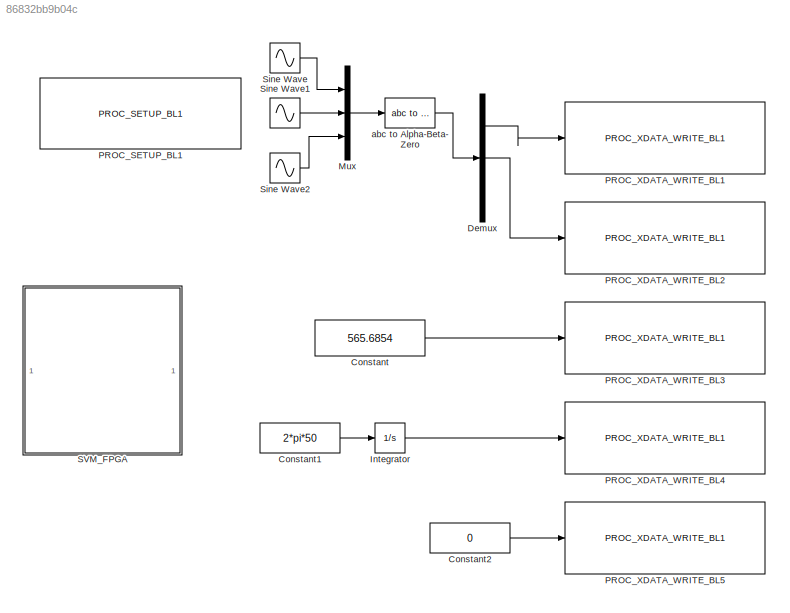
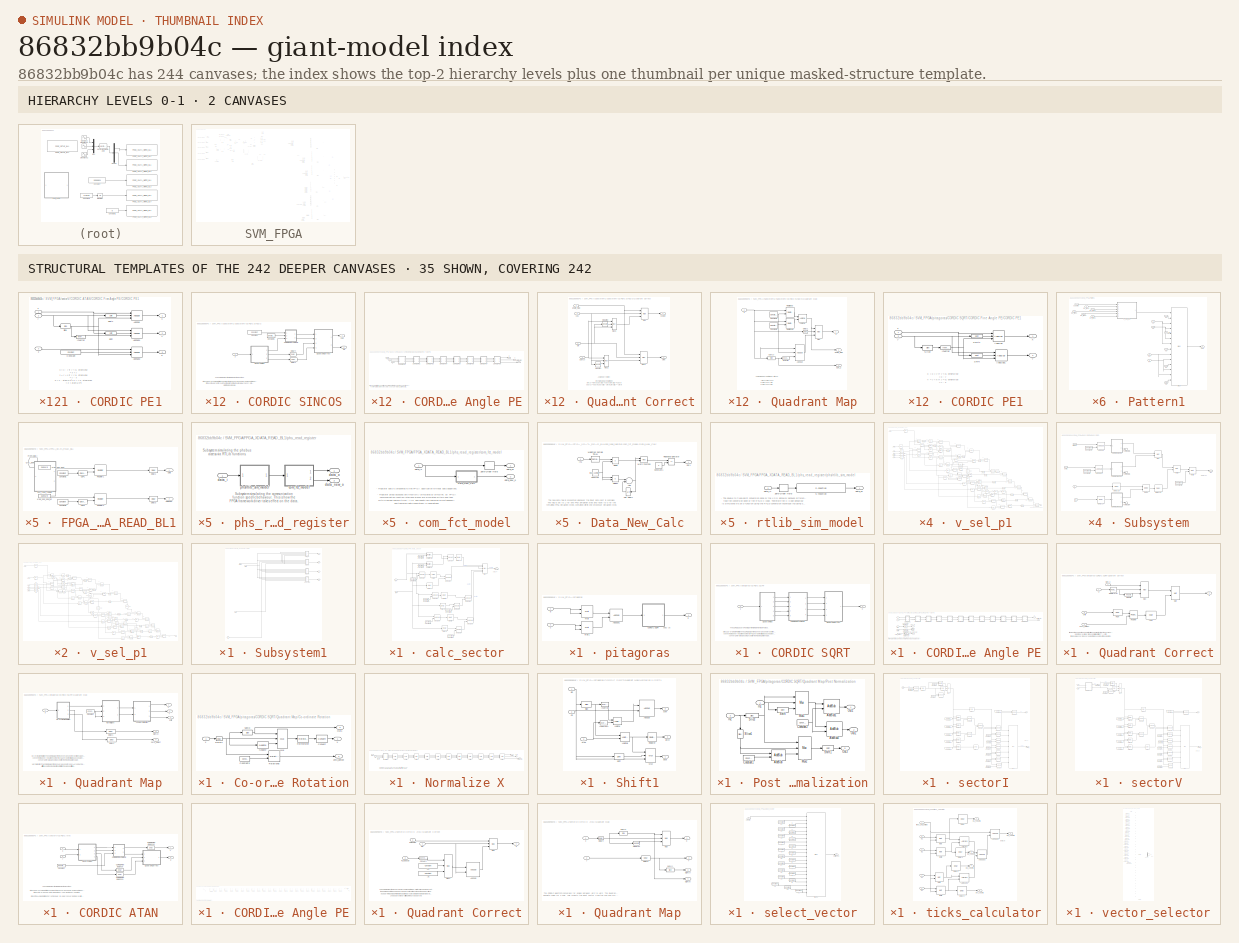
[diagram: thumbnail index - top-2 hierarchy levels (2 canvases) + 35 structural-template representatives of the remaining 242 canvases]
MODEL slx_86832bb9b04c
KIND model
CONFIG AbsTol = auto
CONFIG EnableMultiTasking = off
CONFIG FixedStep = 1/100000000
CONFIG MaxStep = auto
CONFIG MinStep = auto
CONFIG PostLoadFcn = , if any(exist('dsrtsu_mdlpostloadfcn', 'file') ~= 0), dsrtsu_mdlpostloadfcn('Execute', bdroot); end, \n
CONFIG RelTol = 1e-3
CONFIG SampleTimeConstraint = Unconstrained
CONFIG Solver = VariableStepAuto
CONFIG SolverName = VariableStepAuto
CONFIG StartTime = 0.0
CONFIG StopTime = 0.1
BLOCK [Constant] Constant
  Value = 565.6854
BLOCK [Constant] Constant1
  Value = 2*pi*50
BLOCK [Constant] Constant2
  Value = 0
BLOCK [Demux] Demux
  DisplayOption = bar
  Outputs = 3
  Ports = [1, 3]
BLOCK [Integrator] Integrator
  Ports = [1, 1]
BLOCK [Mux] Mux
  DisplayOption = bar
  Inputs = 3
  Ports = [3, 1]
BLOCK [Reference] PROC_SETUP_BL1  REF=rtiproclib/PROC_SETUP_BL1
  AttributesFormatString = FPGA-Build / Offline Simulation
  Ports = []
  SourceBlock = rtiproclib/PROC_SETUP_BL1
  SourceType = RTI
BLOCK [Reference] PROC_XDATA_WRITE_BL1  REF=rtiproclib/PROC_XDATA_WRITE_BL1
  Ports = [1]
  SourceBlock = rtiproclib/PROC_XDATA_WRITE_BL1
  SourceType = RTI
BLOCK [Reference] PROC_XDATA_WRITE_BL2  REF=rtiproclib/PROC_XDATA_WRITE_BL1
  Ports = [1]
  SourceBlock = rtiproclib/PROC_XDATA_WRITE_BL1
  SourceType = RTI
BLOCK [Reference] PROC_XDATA_WRITE_BL3  REF=rtiproclib/PROC_XDATA_WRITE_BL1
  Ports = [1]
  SourceBlock = rtiproclib/PROC_XDATA_WRITE_BL1
  SourceType = RTI
BLOCK [Reference] PROC_XDATA_WRITE_BL4  REF=rtiproclib/PROC_XDATA_WRITE_BL1
  Ports = [1]
  SourceBlock = rtiproclib/PROC_XDATA_WRITE_BL1
  SourceType = RTI
BLOCK [Reference] PROC_XDATA_WRITE_BL5  REF=rtiproclib/PROC_XDATA_WRITE_BL1
  Ports = [1]
  SourceBlock = rtiproclib/PROC_XDATA_WRITE_BL1
  SourceType = RTI
BLOCK [SubSystem] SVM_FPGA
  Ports = []
  RequestExecContextInheritance = off
BLOCK [Reference] SVM_FPGA/ System Generator  REF=xbsIndex_r4/ System Generator
  AttributesFormatString = System\nGenerator
  Ports = []
  SourceBlock = xbsIndex_r4/ System Generator
  SourceType = Xilinx System Generator Block
  Tag = genX
  UserDataPersistent = on
BLOCK [Reference] SVM_FPGA/AddSub9  REF=xbsIndex_r4/AddSub
  Ports = [2, 1]
  SourceBlock = xbsIndex_r4/AddSub
  SourceType = Xilinx Adder/Subtracter Block
BLOCK [Reference] SVM_FPGA/Constant  REF=xbsIndex_r4/Constant
  Ports = [0, 1]
  SourceBlock = xbsIndex_r4/Constant
  SourceType = Xilinx Constant Block Block
BLOCK [Reference] SVM_FPGA/Constant1  REF=xbsIndex_r4/Constant
  Ports = [0, 1]
  SourceBlock = xbsIndex_r4/Constant
  SourceType = Xilinx Constant Block Block
BLOCK [Reference] SVM_FPGA/Constant10  REF=xbsIndex_r4/Constant
  Ports = [0, 1]
  SourceBlock = xbsIndex_r4/Constant
  SourceType = Xilinx Constant Block Block
BLOCK [Reference] SVM_FPGA/Constant11  REF=xbsIndex_r4/Constant
  Ports = [0, 1]
  SourceBlock = xbsIndex_r4/Constant
  SourceType = Xilinx Constant Block Block
BLOCK [Reference] SVM_FPGA/Constant12  REF=xbsIndex_r4/Constant
  Ports = [0, 1]
  SourceBlock = xbsIndex_r4/Constant
  SourceType = Xilinx Constant Block Block
BLOCK [Reference] SVM_FPGA/Constant13  REF=xbsIndex_r4/Constant
  Ports = [0, 1]
  SourceBlock = xbsIndex_r4/Constant
  SourceType = Xilinx Constant Block Block
BLOCK [Reference] SVM_FPGA/Constant14  REF=xbsIndex_r4/Constant
  Ports = [0, 1]
  SourceBlock = xbsIndex_r4/Constant
  SourceType = Xilinx Constant Block Block
BLOCK [Reference] SVM_FPGA/Constant15  REF=xbsIndex_r4/Constant
  Ports = [0, 1]
  SourceBlock = xbsIndex_r4/Constant
  SourceType = Xilinx Constant Block Block
BLOCK [Reference] SVM_FPGA/Constant16  REF=xbsIndex_r4/Constant
  Ports = [0, 1]
  SourceBlock = xbsIndex_r4/Constant
  SourceType = Xilinx Constant Block Block
BLOCK [Reference] SVM_FPGA/Constant17  REF=xbsIndex_r4/Constant
  Ports = [0, 1]
  SourceBlock = xbsIndex_r4/Constant
  SourceType = Xilinx Constant Block Block
BLOCK [Reference] SVM_FPGA/Constant18  REF=xbsIndex_r4/Constant
  Ports = [0, 1]
  SourceBlock = xbsIndex_r4/Constant
  SourceType = Xilinx Constant Block Block
BLOCK [Reference] SVM_FPGA/Constant2  REF=xbsIndex_r4/Constant
  Ports = [0, 1]
  SourceBlock = xbsIndex_r4/Constant
  SourceType = Xilinx Constant Block Block
BLOCK [Reference] SVM_FPGA/Constant3  REF=xbsIndex_r4/Constant
  Ports = [0, 1]
  SourceBlock = xbsIndex_r4/Constant
  SourceType = Xilinx Constant Block Block
BLOCK [Reference] SVM_FPGA/Constant4  REF=xbsIndex_r4/Constant
  Ports = [0, 1]
  SourceBlock = xbsIndex_r4/Constant
  SourceType = Xilinx Constant Block Block
BLOCK [Reference] SVM_FPGA/Constant5  REF=xbsIndex_r4/Constant
  Ports = [0, 1]
  SourceBlock = xbsIndex_r4/Constant
  SourceType = Xilinx Constant Block Block
BLOCK [Reference] SVM_FPGA/Constant6  REF=xbsIndex_r4/Constant
  Ports = [0, 1]
  SourceBlock = xbsIndex_r4/Constant
  SourceType = Xilinx Constant Block Block
BLOCK [Reference] SVM_FPGA/Constant7  REF=xbsIndex_r4/Constant
  Ports = [0, 1]
  SourceBlock = xbsIndex_r4/Constant
  SourceType = Xilinx Constant Block Block
BLOCK [Reference] SVM_FPGA/Constant8  REF=xbsIndex_r4/Constant
  Ports = [0, 1]
  SourceBlock = xbsIndex_r4/Constant
  SourceType = Xilinx Constant Block Block
BLOCK [Reference] SVM_FPGA/Constant9  REF=xbsIndex_r4/Constant
  Ports = [0, 1]
  SourceBlock = xbsIndex_r4/Constant
  SourceType = Xilinx Constant Block Block
BLOCK [Reference] SVM_FPGA/Counter  REF=xbsIndex_r4/Counter
  Ports = [0, 1]
  SourceBlock = xbsIndex_r4/Counter
  SourceType = Xilinx Counter Block
BLOCK [Reference] SVM_FPGA/Delay1  REF=xbsIndex_r4/Delay
  Ports = [1, 1]
  SourceBlock = xbsIndex_r4/Delay
  SourceType = Xilinx Delay Block
BLOCK [Reference] SVM_FPGA/Delay10  REF=xbsIndex_r4/Delay
  Ports = [1, 1]
  SourceBlock = xbsIndex_r4/Delay
  SourceType = Xilinx Delay Block
BLOCK [Reference] SVM_FPGA/Delay11  REF=xbsIndex_r4/Delay
  Ports = [1, 1]
  SourceBlock = xbsIndex_r4/Delay
  SourceType = Xilinx Delay Block
BLOCK [Reference] SVM_FPGA/Delay12  REF=xbsIndex_r4/Delay
  Ports = [1, 1]
  SourceBlock = xbsIndex_r4/Delay
  SourceType = Xilinx Delay Block
BLOCK [Reference] SVM_FPGA/Delay13  REF=xbsIndex_r4/Delay
  Ports = [1, 1]
  SourceBlock = xbsIndex_r4/Delay
  SourceType = Xilinx Delay Block
BLOCK [Reference] SVM_FPGA/Delay14  REF=xbsIndex_r4/Delay
  Ports = [1, 1]
  SourceBlock = xbsIndex_r4/Delay
  SourceType = Xilinx Delay Block
BLOCK [Reference] SVM_FPGA/Delay2  REF=xbsIndex_r4/Delay
  Ports = [1, 1]
  SourceBlock = xbsIndex_r4/Delay
  SourceType = Xilinx Delay Block
BLOCK [Reference] SVM_FPGA/Delay4  REF=xbsIndex_r4/Delay
  Ports = [1, 1]
  SourceBlock = xbsIndex_r4/Delay
  SourceType = Xilinx Delay Block
BLOCK [Reference] SVM_FPGA/Delay5  REF=xbsIndex_r4/Delay
  Ports = [1, 1]
  SourceBlock = xbsIndex_r4/Delay
  SourceType = Xilinx Delay Block
BLOCK [Reference] SVM_FPGA/Delay6  REF=xbsIndex_r4/Delay
  Ports = [1, 1]
  SourceBlock = xbsIndex_r4/Delay
  SourceType = Xilinx Delay Block
BLOCK [Reference] SVM_FPGA/Divide  REF=xbsIndex_r4/Divide
  Ports = [2, 1]
  SourceBlock = xbsIndex_r4/Divide
  SourceType = Xilinx Divider Block
BLOCK [Reference] SVM_FPGA/FPGA_SETUP_BL1  REF=rtifpgainterfacelib/FPGA_SETUP_BL1
  Ports = []
  SourceBlock = rtifpgainterfacelib/FPGA_SETUP_BL1
  SourceType = RTI
BLOCK [SubSystem] SVM_FPGA/FPGA_XDATA_READ_BL1
  CloseFcn = try, rti_fpga_blk_closefcn(gcbh); catch,errordlg({lasterr, '','Please check your RTI installation.'},['Error: ' upper(bdroot)], 'replace'); end
  CopyFcn = try, rti_fpga_blk_copyfcn(gcbh); catch,errordlg({lasterr, '','Please check your RTI installation.'},['Error: ' upper(bdroot)], 'replace'); end
  DeleteFcn = try, rti_fpga_blk_deletefcn(gcbh); catch,errordlg({lasterr, '','Please check your RTI installation.'},['Error: ' upper(bdroot)], 'replace'); end
  InitFcn = try, rti_fpga_blk_initfcn(gcbh); catch,errordlg({lasterr, '','Please check your RTI installation.'},['Error: ' upper(bdroot)], 'replace'); end
  LoadFcn = try, rti_fpga_blk_loadfcn(gcbh); catch,errordlg({lasterr, '','Please check your RTI installation.'},['Error: ' upper(bdroot)], 'replace'); end
  MaskHideContents = on
  ModelCloseFcn = try, rti_fpga_blk_modelclosefcn(gcbh); catch,errordlg({lasterr, '','Please check your RTI installation.'},['Error: ' upper(bdroot)], 'replace'); end
  NameChangeFcn = try, rti_fpga_blk_namechangefcn(gcbh); catch,errordlg({lasterr, '','Please check your RTI installation.'},['Error: ' upper(bdroot)], 'replace'); end
  OpenFcn = try, rti_fpga_blk_openfcn(gcbh); catch,errordlg({lasterr, '','Please check your RTI installation.'},['Error: ' upper(bdroot)], 'replace'); end
  ParentCloseFcn = try, rti_fpga_blk_parentclosefcn(gcbh); catch,errordlg({lasterr, '','Please check your RTI installation.'},['Error: ' upper(bdroot)], 'replace'); end
  Ports = [0, 2]
  PreSaveFcn = try, rti_fpga_blk_presavefcn(gcbh); catch,errordlg({lasterr, '','Please check your RTI installation.'},['Error: ' upper(bdroot)], 'replace'); end
  RequestExecContextInheritance = off
  StartFcn = try, rti_fpga_blk_startfcn(gcbh); catch,errordlg({lasterr, '','Please check your RTI installation.'},['Error: ' upper(bdroot)], 'replace'); end
BLOCK [Reference] SVM_FPGA/FPGA_XDATA_READ_BL1/CEP1  REF=xbsIndex_r4/Clock Enable Probe
  Ports = [1, 1]
  SourceBlock = xbsIndex_r4/Clock Enable Probe
  SourceType = Xilinx Clock Enable Probe Block
BLOCK [Reference] SVM_FPGA/FPGA_XDATA_READ_BL1/CEP3  REF=xbsIndex_r4/Clock Enable Probe
  Ports = [1, 1]
  SourceBlock = xbsIndex_r4/Clock Enable Probe
  SourceType = Xilinx Clock Enable Probe Block
BLOCK [Reference] SVM_FPGA/FPGA_XDATA_READ_BL1/Constant1  REF=xbsIndex_r4/Constant
  Ports = [0, 1]
  SourceBlock = xbsIndex_r4/Constant
  SourceType = Xilinx Constant Block Block
BLOCK [Reference] SVM_FPGA/FPGA_XDATA_READ_BL1/Constant3  REF=xbsIndex_r4/Constant
  Ports = [0, 1]
  SourceBlock = xbsIndex_r4/Constant
  SourceType = Xilinx Constant Block Block
BLOCK [Outport] SVM_FPGA/FPGA_XDATA_READ_BL1/Data
  IconDisplay = Port number
BLOCK [Outport] SVM_FPGA/FPGA_XDATA_READ_BL1/Data New
  IconDisplay = Port number
  Port = 2
BLOCK [Reference] SVM_FPGA/FPGA_XDATA_READ_BL1/Delay1  REF=xbsIndex_r4/Delay
  Ports = [1, 1]
  SourceBlock = xbsIndex_r4/Delay
  SourceType = Xilinx Delay Block
BLOCK [Reference] SVM_FPGA/FPGA_XDATA_READ_BL1/Delay3  REF=xbsIndex_r4/Delay
  Ports = [1, 1]
  SourceBlock = xbsIndex_r4/Delay
  SourceType = Xilinx Delay Block
BLOCK [From] SVM_FPGA/FPGA_XDATA_READ_BL1/From_data_i
  GotoTag = CN_SVM_1_write_Register_1_data_i
  TagVisibility = global
BLOCK [Reference] SVM_FPGA/FPGA_XDATA_READ_BL1/Register1  REF=xbsIndex_r4/Register
  Ports = [2, 1]
  SourceBlock = xbsIndex_r4/Register
  SourceType = Xilinx Register Block
BLOCK [Reference] SVM_FPGA/FPGA_XDATA_READ_BL1/Register3  REF=xbsIndex_r4/Register
  Ports = [2, 1]
  SourceBlock = xbsIndex_r4/Register
  SourceType = Xilinx Register Block
BLOCK [SubSystem] SVM_FPGA/FPGA_XDATA_READ_BL1/phs_read_register
  Ports = [1, 2]
  RequestExecContextInheritance = off
BLOCK [SubSystem] SVM_FPGA/FPGA_XDATA_READ_BL1/phs_read_register/com_fct_model
  Ports = [1, 2]
  RequestExecContextInheritance = off
BLOCK [SubSystem] SVM_FPGA/FPGA_XDATA_READ_BL1/phs_read_register/com_fct_model/Data_New_Calc
  Ports = [1, 1]
  RequestExecContextInheritance = off
BLOCK [Sum] SVM_FPGA/FPGA_XDATA_READ_BL1/phs_read_register/com_fct_model/Data_New_Calc/Add
  InputSameDT = off
  OutDataTypeStr = Inherit: Inherit via internal rule
  Ports = [2, 1]
  SaturateOnIntegerOverflow = off
BLOCK [Constant] SVM_FPGA/FPGA_XDATA_READ_BL1/phs_read_register/com_fct_model/Data_New_Calc/Constant
  SampleTime = fpga_sample_time
  Value = fpga_sample_time
BLOCK [Constant] SVM_FPGA/FPGA_XDATA_READ_BL1/phs_read_register/com_fct_model/Data_New_Calc/Constant1
  Value = 0
BLOCK [Product] SVM_FPGA/FPGA_XDATA_READ_BL1/phs_read_register/com_fct_model/Data_New_Calc/Divide
  InputSameDT = off
  Inputs = */
  OutDataTypeStr = Inherit: Inherit via internal rule
  Ports = [2, 1]
  RndMeth = Floor
  SaturateOnIntegerOverflow = off
BLOCK [Product] SVM_FPGA/FPGA_XDATA_READ_BL1/phs_read_register/com_fct_model/Data_New_Calc/Divide1
  InputSameDT = off
  Inputs = */
  OutDataTypeStr = Inherit: Inherit via internal rule
  Ports = [2, 1]
  RndMeth = Floor
  SaturateOnIntegerOverflow = off
BLOCK [Inport] SVM_FPGA/FPGA_XDATA_READ_BL1/phs_read_register/com_fct_model/Data_New_Calc/In1
  IconDisplay = Port number
BLOCK [Math] SVM_FPGA/FPGA_XDATA_READ_BL1/phs_read_register/com_fct_model/Data_New_Calc/Math Function
  Operator = mod
  Ports = [2, 1]
BLOCK [Outport] SVM_FPGA/FPGA_XDATA_READ_BL1/phs_read_register/com_fct_model/Data_New_Calc/Out1
  IconDisplay = Port number
BLOCK [RelationalOperator] SVM_FPGA/FPGA_XDATA_READ_BL1/phs_read_register/com_fct_model/Data_New_Calc/Relational Operator
  InputSameDT = off
  Operator = ==
  OutDataTypeStr = boolean
  Ports = [2, 1]
BLOCK [UnitDelay] SVM_FPGA/FPGA_XDATA_READ_BL1/phs_read_register/com_fct_model/Data_New_Calc/Unit Delay1
  InitialCondition = -1
  SampleTime = -1
BLOCK [SampleTimeMath] SVM_FPGA/FPGA_XDATA_READ_BL1/phs_read_register/com_fct_model/Data_New_Calc/Weighted Sample Time1
  TsampMathOp = Ts Only
BLOCK [ZeroOrderHold] SVM_FPGA/FPGA_XDATA_READ_BL1/phs_read_register/com_fct_model/Zero-Order Hold
  SampleTime = fpga_sample_time
BLOCK [Inport] SVM_FPGA/FPGA_XDATA_READ_BL1/phs_read_register/com_fct_model/data_i1
  IconDisplay = Port number
BLOCK [Outport] SVM_FPGA/FPGA_XDATA_READ_BL1/phs_read_register/com_fct_model/data_new_o
  IconDisplay = Port number
  Port = 2
BLOCK [Outport] SVM_FPGA/FPGA_XDATA_READ_BL1/phs_read_register/com_fct_model/data_o1
  IconDisplay = Port number
BLOCK [Inport] SVM_FPGA/FPGA_XDATA_READ_BL1/phs_read_register/data_i
  IconDisplay = Port number
BLOCK [Outport] SVM_FPGA/FPGA_XDATA_READ_BL1/phs_read_register/data_new_o
  IconDisplay = Port number
  Port = 2
BLOCK [Outport] SVM_FPGA/FPGA_XDATA_READ_BL1/phs_read_register/data_o
  IconDisplay = Port number
BLOCK [SubSystem] SVM_FPGA/FPGA_XDATA_READ_BL1/phs_read_register/phs//rtlib_sim_model
  Ports = [1, 1]
  RequestExecContextInheritance = off
BLOCK [S-Function] SVM_FPGA/FPGA_XDATA_READ_BL1/phs_read_register/phs//rtlib_sim_model/S-Function
  EnableBusSupport = off
  FunctionName = DS1302_read_register
  Parameters = mode;binaryPoint
  Ports = [1, 1]
  SFcnIsStateOwnerBlock = off
  SFunctionDeploymentMode = off
BLOCK [ZeroOrderHold] SVM_FPGA/FPGA_XDATA_READ_BL1/phs_read_register/phs//rtlib_sim_model/Zero-Order Hold
  SampleTime = proc_sample_time
BLOCK [Inport] SVM_FPGA/FPGA_XDATA_READ_BL1/phs_read_register/phs//rtlib_sim_model/data_i1
  IconDisplay = Port number
BLOCK [Outport] SVM_FPGA/FPGA_XDATA_READ_BL1/phs_read_register/phs//rtlib_sim_model/data_o1
  IconDisplay = Port number
BLOCK [Reference] SVM_FPGA/FPGA_XDATA_READ_BL1/xreg_000_dout  REF=xbsIndex_r4/Gateway In
  Ports = [1, 1]
  SourceBlock = xbsIndex_r4/Gateway In
  SourceType = Xilinx Gateway In Block
BLOCK [Reference] SVM_FPGA/FPGA_XDATA_READ_BL1/xreg_000_dout_wr  REF=xbsIndex_r4/Gateway In
  Ports = [1, 1]
  SourceBlock = xbsIndex_r4/Gateway In
  SourceType = Xilinx Gateway In Block
BLOCK [SubSystem] SVM_FPGA/FPGA_XDATA_READ_BL2
  CloseFcn = try, rti_fpga_blk_closefcn(gcbh); catch,errordlg({lasterr, '','Please check your RTI installation.'},['Error: ' upper(bdroot)], 'replace'); end
  CopyFcn = try, rti_fpga_blk_copyfcn(gcbh); catch,errordlg({lasterr, '','Please check your RTI installation.'},['Error: ' upper(bdroot)], 'replace'); end
  DeleteFcn = try, rti_fpga_blk_deletefcn(gcbh); catch,errordlg({lasterr, '','Please check your RTI installation.'},['Error: ' upper(bdroot)], 'replace'); end
  InitFcn = try, rti_fpga_blk_initfcn(gcbh); catch,errordlg({lasterr, '','Please check your RTI installation.'},['Error: ' upper(bdroot)], 'replace'); end
  LoadFcn = try, rti_fpga_blk_loadfcn(gcbh); catch,errordlg({lasterr, '','Please check your RTI installation.'},['Error: ' upper(bdroot)], 'replace'); end
  MaskHideContents = on
  ModelCloseFcn = try, rti_fpga_blk_modelclosefcn(gcbh); catch,errordlg({lasterr, '','Please check your RTI installation.'},['Error: ' upper(bdroot)], 'replace'); end
  NameChangeFcn = try, rti_fpga_blk_namechangefcn(gcbh); catch,errordlg({lasterr, '','Please check your RTI installation.'},['Error: ' upper(bdroot)], 'replace'); end
  OpenFcn = try, rti_fpga_blk_openfcn(gcbh); catch,errordlg({lasterr, '','Please check your RTI installation.'},['Error: ' upper(bdroot)], 'replace'); end
  ParentCloseFcn = try, rti_fpga_blk_parentclosefcn(gcbh); catch,errordlg({lasterr, '','Please check your RTI installation.'},['Error: ' upper(bdroot)], 'replace'); end
  Ports = [0, 2]
  PreSaveFcn = try, rti_fpga_blk_presavefcn(gcbh); catch,errordlg({lasterr, '','Please check your RTI installation.'},['Error: ' upper(bdroot)], 'replace'); end
  RequestExecContextInheritance = off
  StartFcn = try, rti_fpga_blk_startfcn(gcbh); catch,errordlg({lasterr, '','Please check your RTI installation.'},['Error: ' upper(bdroot)], 'replace'); end
BLOCK [Reference] SVM_FPGA/FPGA_XDATA_READ_BL2/CEP1  REF=xbsIndex_r4/Clock Enable Probe
  Ports = [1, 1]
  SourceBlock = xbsIndex_r4/Clock Enable Probe
  SourceType = Xilinx Clock Enable Probe Block
BLOCK [Reference] SVM_FPGA/FPGA_XDATA_READ_BL2/CEP3  REF=xbsIndex_r4/Clock Enable Probe
  Ports = [1, 1]
  SourceBlock = xbsIndex_r4/Clock Enable Probe
  SourceType = Xilinx Clock Enable Probe Block
BLOCK [Reference] SVM_FPGA/FPGA_XDATA_READ_BL2/Constant1  REF=xbsIndex_r4/Constant
  Ports = [0, 1]
  SourceBlock = xbsIndex_r4/Constant
  SourceType = Xilinx Constant Block Block
BLOCK [Reference] SVM_FPGA/FPGA_XDATA_READ_BL2/Constant3  REF=xbsIndex_r4/Constant
  Ports = [0, 1]
  SourceBlock = xbsIndex_r4/Constant
  SourceType = Xilinx Constant Block Block
BLOCK [Outport] SVM_FPGA/FPGA_XDATA_READ_BL2/Data
  IconDisplay = Port number
BLOCK [Outport] SVM_FPGA/FPGA_XDATA_READ_BL2/Data New
  IconDisplay = Port number
  Port = 2
BLOCK [Reference] SVM_FPGA/FPGA_XDATA_READ_BL2/Delay1  REF=xbsIndex_r4/Delay
  Ports = [1, 1]
  SourceBlock = xbsIndex_r4/Delay
  SourceType = Xilinx Delay Block
BLOCK [Reference] SVM_FPGA/FPGA_XDATA_READ_BL2/Delay3  REF=xbsIndex_r4/Delay
  Ports = [1, 1]
  SourceBlock = xbsIndex_r4/Delay
  SourceType = Xilinx Delay Block
BLOCK [From] SVM_FPGA/FPGA_XDATA_READ_BL2/From_data_i
  GotoTag = CN_SVM_1_write_Register_2_data_i
  TagVisibility = global
BLOCK [Reference] SVM_FPGA/FPGA_XDATA_READ_BL2/Register1  REF=xbsIndex_r4/Register
  Ports = [2, 1]
  SourceBlock = xbsIndex_r4/Register
  SourceType = Xilinx Register Block
BLOCK [Reference] SVM_FPGA/FPGA_XDATA_READ_BL2/Register3  REF=xbsIndex_r4/Register
  Ports = [2, 1]
  SourceBlock = xbsIndex_r4/Register
  SourceType = Xilinx Register Block
BLOCK [SubSystem] SVM_FPGA/FPGA_XDATA_READ_BL2/phs_read_register
  Ports = [1, 2]
  RequestExecContextInheritance = off
BLOCK [SubSystem] SVM_FPGA/FPGA_XDATA_READ_BL2/phs_read_register/com_fct_model
  Ports = [1, 2]
  RequestExecContextInheritance = off
BLOCK [SubSystem] SVM_FPGA/FPGA_XDATA_READ_BL2/phs_read_register/com_fct_model/Data_New_Calc
  Ports = [1, 1]
  RequestExecContextInheritance = off
BLOCK [Sum] SVM_FPGA/FPGA_XDATA_READ_BL2/phs_read_register/com_fct_model/Data_New_Calc/Add
  InputSameDT = off
  OutDataTypeStr = Inherit: Inherit via internal rule
  Ports = [2, 1]
  SaturateOnIntegerOverflow = off
BLOCK [Constant] SVM_FPGA/FPGA_XDATA_READ_BL2/phs_read_register/com_fct_model/Data_New_Calc/Constant
  SampleTime = fpga_sample_time
  Value = fpga_sample_time
BLOCK [Constant] SVM_FPGA/FPGA_XDATA_READ_BL2/phs_read_register/com_fct_model/Data_New_Calc/Constant1
  Value = 0
BLOCK [Product] SVM_FPGA/FPGA_XDATA_READ_BL2/phs_read_register/com_fct_model/Data_New_Calc/Divide
  InputSameDT = off
  Inputs = */
  OutDataTypeStr = Inherit: Inherit via internal rule
  Ports = [2, 1]
  RndMeth = Floor
  SaturateOnIntegerOverflow = off
BLOCK [Product] SVM_FPGA/FPGA_XDATA_READ_BL2/phs_read_register/com_fct_model/Data_New_Calc/Divide1
  InputSameDT = off
  Inputs = */
  OutDataTypeStr = Inherit: Inherit via internal rule
  Ports = [2, 1]
  RndMeth = Floor
  SaturateOnIntegerOverflow = off
BLOCK [Inport] SVM_FPGA/FPGA_XDATA_READ_BL2/phs_read_register/com_fct_model/Data_New_Calc/In1
  IconDisplay = Port number
BLOCK [Math] SVM_FPGA/FPGA_XDATA_READ_BL2/phs_read_register/com_fct_model/Data_New_Calc/Math Function
  Operator = mod
  Ports = [2, 1]
BLOCK [Outport] SVM_FPGA/FPGA_XDATA_READ_BL2/phs_read_register/com_fct_model/Data_New_Calc/Out1
  IconDisplay = Port number
BLOCK [RelationalOperator] SVM_FPGA/FPGA_XDATA_READ_BL2/phs_read_register/com_fct_model/Data_New_Calc/Relational Operator
  InputSameDT = off
  Operator = ==
  OutDataTypeStr = boolean
  Ports = [2, 1]
BLOCK [UnitDelay] SVM_FPGA/FPGA_XDATA_READ_BL2/phs_read_register/com_fct_model/Data_New_Calc/Unit Delay1
  InitialCondition = -1
  SampleTime = -1
BLOCK [SampleTimeMath] SVM_FPGA/FPGA_XDATA_READ_BL2/phs_read_register/com_fct_model/Data_New_Calc/Weighted Sample Time1
  TsampMathOp = Ts Only
BLOCK [ZeroOrderHold] SVM_FPGA/FPGA_XDATA_READ_BL2/phs_read_register/com_fct_model/Zero-Order Hold
  SampleTime = fpga_sample_time
BLOCK [Inport] SVM_FPGA/FPGA_XDATA_READ_BL2/phs_read_register/com_fct_model/data_i1
  IconDisplay = Port number
BLOCK [Outport] SVM_FPGA/FPGA_XDATA_READ_BL2/phs_read_register/com_fct_model/data_new_o
  IconDisplay = Port number
  Port = 2
BLOCK [Outport] SVM_FPGA/FPGA_XDATA_READ_BL2/phs_read_register/com_fct_model/data_o1
  IconDisplay = Port number
BLOCK [Inport] SVM_FPGA/FPGA_XDATA_READ_BL2/phs_read_register/data_i
  IconDisplay = Port number
BLOCK [Outport] SVM_FPGA/FPGA_XDATA_READ_BL2/phs_read_register/data_new_o
  IconDisplay = Port number
  Port = 2
BLOCK [Outport] SVM_FPGA/FPGA_XDATA_READ_BL2/phs_read_register/data_o
  IconDisplay = Port number
BLOCK [SubSystem] SVM_FPGA/FPGA_XDATA_READ_BL2/phs_read_register/phs//rtlib_sim_model
  Ports = [1, 1]
  RequestExecContextInheritance = off
BLOCK [S-Function] SVM_FPGA/FPGA_XDATA_READ_BL2/phs_read_register/phs//rtlib_sim_model/S-Function
  EnableBusSupport = off
  FunctionName = DS1302_read_register
  Parameters = mode;binaryPoint
  Ports = [1, 1]
  SFcnIsStateOwnerBlock = off
  SFunctionDeploymentMode = off
BLOCK [ZeroOrderHold] SVM_FPGA/FPGA_XDATA_READ_BL2/phs_read_register/phs//rtlib_sim_model/Zero-Order Hold
  SampleTime = proc_sample_time
BLOCK [Inport] SVM_FPGA/FPGA_XDATA_READ_BL2/phs_read_register/phs//rtlib_sim_model/data_i1
  IconDisplay = Port number
BLOCK [Outport] SVM_FPGA/FPGA_XDATA_READ_BL2/phs_read_register/phs//rtlib_sim_model/data_o1
  IconDisplay = Port number
BLOCK [Reference] SVM_FPGA/FPGA_XDATA_READ_BL2/xreg_001_dout  REF=xbsIndex_r4/Gateway In
  Ports = [1, 1]
  SourceBlock = xbsIndex_r4/Gateway In
  SourceType = Xilinx Gateway In Block
BLOCK [Reference] SVM_FPGA/FPGA_XDATA_READ_BL2/xreg_001_dout_wr  REF=xbsIndex_r4/Gateway In
  Ports = [1, 1]
  SourceBlock = xbsIndex_r4/Gateway In
  SourceType = Xilinx Gateway In Block
BLOCK [SubSystem] SVM_FPGA/FPGA_XDATA_READ_BL3
  CloseFcn = try, rti_fpga_blk_closefcn(gcbh); catch,errordlg({lasterr, '','Please check your RTI installation.'},['Error: ' upper(bdroot)], 'replace'); end
  CopyFcn = try, rti_fpga_blk_copyfcn(gcbh); catch,errordlg({lasterr, '','Please check your RTI installation.'},['Error: ' upper(bdroot)], 'replace'); end
  DeleteFcn = try, rti_fpga_blk_deletefcn(gcbh); catch,errordlg({lasterr, '','Please check your RTI installation.'},['Error: ' upper(bdroot)], 'replace'); end
  InitFcn = try, rti_fpga_blk_initfcn(gcbh); catch,errordlg({lasterr, '','Please check your RTI installation.'},['Error: ' upper(bdroot)], 'replace'); end
  LoadFcn = try, rti_fpga_blk_loadfcn(gcbh); catch,errordlg({lasterr, '','Please check your RTI installation.'},['Error: ' upper(bdroot)], 'replace'); end
  MaskHideContents = on
  ModelCloseFcn = try, rti_fpga_blk_modelclosefcn(gcbh); catch,errordlg({lasterr, '','Please check your RTI installation.'},['Error: ' upper(bdroot)], 'replace'); end
  NameChangeFcn = try, rti_fpga_blk_namechangefcn(gcbh); catch,errordlg({lasterr, '','Please check your RTI installation.'},['Error: ' upper(bdroot)], 'replace'); end
  OpenFcn = try, rti_fpga_blk_openfcn(gcbh); catch,errordlg({lasterr, '','Please check your RTI installation.'},['Error: ' upper(bdroot)], 'replace'); end
  ParentCloseFcn = try, rti_fpga_blk_parentclosefcn(gcbh); catch,errordlg({lasterr, '','Please check your RTI installation.'},['Error: ' upper(bdroot)], 'replace'); end
  Ports = [0, 2]
  PreSaveFcn = try, rti_fpga_blk_presavefcn(gcbh); catch,errordlg({lasterr, '','Please check your RTI installation.'},['Error: ' upper(bdroot)], 'replace'); end
  RequestExecContextInheritance = off
  StartFcn = try, rti_fpga_blk_startfcn(gcbh); catch,errordlg({lasterr, '','Please check your RTI installation.'},['Error: ' upper(bdroot)], 'replace'); end
BLOCK [Reference] SVM_FPGA/FPGA_XDATA_READ_BL3/CEP1  REF=xbsIndex_r4/Clock Enable Probe
  Ports = [1, 1]
  SourceBlock = xbsIndex_r4/Clock Enable Probe
  SourceType = Xilinx Clock Enable Probe Block
BLOCK [Reference] SVM_FPGA/FPGA_XDATA_READ_BL3/CEP3  REF=xbsIndex_r4/Clock Enable Probe
  Ports = [1, 1]
  SourceBlock = xbsIndex_r4/Clock Enable Probe
  SourceType = Xilinx Clock Enable Probe Block
BLOCK [Reference] SVM_FPGA/FPGA_XDATA_READ_BL3/Constant1  REF=xbsIndex_r4/Constant
  Ports = [0, 1]
  SourceBlock = xbsIndex_r4/Constant
  SourceType = Xilinx Constant Block Block
BLOCK [Reference] SVM_FPGA/FPGA_XDATA_READ_BL3/Constant3  REF=xbsIndex_r4/Constant
  Ports = [0, 1]
  SourceBlock = xbsIndex_r4/Constant
  SourceType = Xilinx Constant Block Block
BLOCK [Outport] SVM_FPGA/FPGA_XDATA_READ_BL3/Data
  IconDisplay = Port number
BLOCK [Outport] SVM_FPGA/FPGA_XDATA_READ_BL3/Data New
  IconDisplay = Port number
  Port = 2
BLOCK [Reference] SVM_FPGA/FPGA_XDATA_READ_BL3/Delay1  REF=xbsIndex_r4/Delay
  Ports = [1, 1]
  SourceBlock = xbsIndex_r4/Delay
  SourceType = Xilinx Delay Block
BLOCK [Reference] SVM_FPGA/FPGA_XDATA_READ_BL3/Delay3  REF=xbsIndex_r4/Delay
  Ports = [1, 1]
  SourceBlock = xbsIndex_r4/Delay
  SourceType = Xilinx Delay Block
BLOCK [From] SVM_FPGA/FPGA_XDATA_READ_BL3/From_data_i
  GotoTag = CN_SVM_1_write_Register_3_data_i
  TagVisibility = global
BLOCK [Reference] SVM_FPGA/FPGA_XDATA_READ_BL3/Register1  REF=xbsIndex_r4/Register
  Ports = [2, 1]
  SourceBlock = xbsIndex_r4/Register
  SourceType = Xilinx Register Block
BLOCK [Reference] SVM_FPGA/FPGA_XDATA_READ_BL3/Register3  REF=xbsIndex_r4/Register
  Ports = [2, 1]
  SourceBlock = xbsIndex_r4/Register
  SourceType = Xilinx Register Block
BLOCK [SubSystem] SVM_FPGA/FPGA_XDATA_READ_BL3/phs_read_register
  Ports = [1, 2]
  RequestExecContextInheritance = off
BLOCK [SubSystem] SVM_FPGA/FPGA_XDATA_READ_BL3/phs_read_register/com_fct_model
  Ports = [1, 2]
  RequestExecContextInheritance = off
BLOCK [SubSystem] SVM_FPGA/FPGA_XDATA_READ_BL3/phs_read_register/com_fct_model/Data_New_Calc
  Ports = [1, 1]
  RequestExecContextInheritance = off
BLOCK [Sum] SVM_FPGA/FPGA_XDATA_READ_BL3/phs_read_register/com_fct_model/Data_New_Calc/Add
  InputSameDT = off
  OutDataTypeStr = Inherit: Inherit via internal rule
  Ports = [2, 1]
  SaturateOnIntegerOverflow = off
BLOCK [Constant] SVM_FPGA/FPGA_XDATA_READ_BL3/phs_read_register/com_fct_model/Data_New_Calc/Constant
  SampleTime = fpga_sample_time
  Value = fpga_sample_time
BLOCK [Constant] SVM_FPGA/FPGA_XDATA_READ_BL3/phs_read_register/com_fct_model/Data_New_Calc/Constant1
  Value = 0
BLOCK [Product] SVM_FPGA/FPGA_XDATA_READ_BL3/phs_read_register/com_fct_model/Data_New_Calc/Divide
  InputSameDT = off
  Inputs = */
  OutDataTypeStr = Inherit: Inherit via internal rule
  Ports = [2, 1]
  RndMeth = Floor
  SaturateOnIntegerOverflow = off
BLOCK [Product] SVM_FPGA/FPGA_XDATA_READ_BL3/phs_read_register/com_fct_model/Data_New_Calc/Divide1
  InputSameDT = off
  Inputs = */
  OutDataTypeStr = Inherit: Inherit via internal rule
  Ports = [2, 1]
  RndMeth = Floor
  SaturateOnIntegerOverflow = off
BLOCK [Inport] SVM_FPGA/FPGA_XDATA_READ_BL3/phs_read_register/com_fct_model/Data_New_Calc/In1
  IconDisplay = Port number
BLOCK [Math] SVM_FPGA/FPGA_XDATA_READ_BL3/phs_read_register/com_fct_model/Data_New_Calc/Math Function
  Operator = mod
  Ports = [2, 1]
BLOCK [Outport] SVM_FPGA/FPGA_XDATA_READ_BL3/phs_read_register/com_fct_model/Data_New_Calc/Out1
  IconDisplay = Port number
BLOCK [RelationalOperator] SVM_FPGA/FPGA_XDATA_READ_BL3/phs_read_register/com_fct_model/Data_New_Calc/Relational Operator
  InputSameDT = off
  Operator = ==
  OutDataTypeStr = boolean
  Ports = [2, 1]
BLOCK [UnitDelay] SVM_FPGA/FPGA_XDATA_READ_BL3/phs_read_register/com_fct_model/Data_New_Calc/Unit Delay1
  InitialCondition = -1
  SampleTime = -1
BLOCK [SampleTimeMath] SVM_FPGA/FPGA_XDATA_READ_BL3/phs_read_register/com_fct_model/Data_New_Calc/Weighted Sample Time1
  TsampMathOp = Ts Only
BLOCK [ZeroOrderHold] SVM_FPGA/FPGA_XDATA_READ_BL3/phs_read_register/com_fct_model/Zero-Order Hold
  SampleTime = fpga_sample_time
BLOCK [Inport] SVM_FPGA/FPGA_XDATA_READ_BL3/phs_read_register/com_fct_model/data_i1
  IconDisplay = Port number
BLOCK [Outport] SVM_FPGA/FPGA_XDATA_READ_BL3/phs_read_register/com_fct_model/data_new_o
  IconDisplay = Port number
  Port = 2
BLOCK [Outport] SVM_FPGA/FPGA_XDATA_READ_BL3/phs_read_register/com_fct_model/data_o1
  IconDisplay = Port number
BLOCK [Inport] SVM_FPGA/FPGA_XDATA_READ_BL3/phs_read_register/data_i
  IconDisplay = Port number
BLOCK [Outport] SVM_FPGA/FPGA_XDATA_READ_BL3/phs_read_register/data_new_o
  IconDisplay = Port number
  Port = 2
BLOCK [Outport] SVM_FPGA/FPGA_XDATA_READ_BL3/phs_read_register/data_o
  IconDisplay = Port number
BLOCK [SubSystem] SVM_FPGA/FPGA_XDATA_READ_BL3/phs_read_register/phs//rtlib_sim_model
  Ports = [1, 1]
  RequestExecContextInheritance = off
BLOCK [S-Function] SVM_FPGA/FPGA_XDATA_READ_BL3/phs_read_register/phs//rtlib_sim_model/S-Function
  EnableBusSupport = off
  FunctionName = DS1302_read_register
  Parameters = mode;binaryPoint
  Ports = [1, 1]
  SFcnIsStateOwnerBlock = off
  SFunctionDeploymentMode = off
BLOCK [ZeroOrderHold] SVM_FPGA/FPGA_XDATA_READ_BL3/phs_read_register/phs//rtlib_sim_model/Zero-Order Hold
  SampleTime = proc_sample_time
BLOCK [Inport] SVM_FPGA/FPGA_XDATA_READ_BL3/phs_read_register/phs//rtlib_sim_model/data_i1
  IconDisplay = Port number
BLOCK [Outport] SVM_FPGA/FPGA_XDATA_READ_BL3/phs_read_register/phs//rtlib_sim_model/data_o1
  IconDisplay = Port number
BLOCK [Reference] SVM_FPGA/FPGA_XDATA_READ_BL3/xreg_002_dout  REF=xbsIndex_r4/Gateway In
  Ports = [1, 1]
  SourceBlock = xbsIndex_r4/Gateway In
  SourceType = Xilinx Gateway In Block
BLOCK [Reference] SVM_FPGA/FPGA_XDATA_READ_BL3/xreg_002_dout_wr  REF=xbsIndex_r4/Gateway In
  Ports = [1, 1]
  SourceBlock = xbsIndex_r4/Gateway In
  SourceType = Xilinx Gateway In Block
BLOCK [SubSystem] SVM_FPGA/FPGA_XDATA_READ_BL4
  CloseFcn = try, rti_fpga_blk_closefcn(gcbh); catch,errordlg({lasterr, '','Please check your RTI installation.'},['Error: ' upper(bdroot)], 'replace'); end
  CopyFcn = try, rti_fpga_blk_copyfcn(gcbh); catch,errordlg({lasterr, '','Please check your RTI installation.'},['Error: ' upper(bdroot)], 'replace'); end
  DeleteFcn = try, rti_fpga_blk_deletefcn(gcbh); catch,errordlg({lasterr, '','Please check your RTI installation.'},['Error: ' upper(bdroot)], 'replace'); end
  InitFcn = try, rti_fpga_blk_initfcn(gcbh); catch,errordlg({lasterr, '','Please check your RTI installation.'},['Error: ' upper(bdroot)], 'replace'); end
  LoadFcn = try, rti_fpga_blk_loadfcn(gcbh); catch,errordlg({lasterr, '','Please check your RTI installation.'},['Error: ' upper(bdroot)], 'replace'); end
  MaskHideContents = on
  ModelCloseFcn = try, rti_fpga_blk_modelclosefcn(gcbh); catch,errordlg({lasterr, '','Please check your RTI installation.'},['Error: ' upper(bdroot)], 'replace'); end
  NameChangeFcn = try, rti_fpga_blk_namechangefcn(gcbh); catch,errordlg({lasterr, '','Please check your RTI installation.'},['Error: ' upper(bdroot)], 'replace'); end
  OpenFcn = try, rti_fpga_blk_openfcn(gcbh); catch,errordlg({lasterr, '','Please check your RTI installation.'},['Error: ' upper(bdroot)], 'replace'); end
  ParentCloseFcn = try, rti_fpga_blk_parentclosefcn(gcbh); catch,errordlg({lasterr, '','Please check your RTI installation.'},['Error: ' upper(bdroot)], 'replace'); end
  Ports = [0, 2]
  PreSaveFcn = try, rti_fpga_blk_presavefcn(gcbh); catch,errordlg({lasterr, '','Please check your RTI installation.'},['Error: ' upper(bdroot)], 'replace'); end
  RequestExecContextInheritance = off
  StartFcn = try, rti_fpga_blk_startfcn(gcbh); catch,errordlg({lasterr, '','Please check your RTI installation.'},['Error: ' upper(bdroot)], 'replace'); end
BLOCK [Reference] SVM_FPGA/FPGA_XDATA_READ_BL4/CEP1  REF=xbsIndex_r4/Clock Enable Probe
  Ports = [1, 1]
  SourceBlock = xbsIndex_r4/Clock Enable Probe
  SourceType = Xilinx Clock Enable Probe Block
BLOCK [Reference] SVM_FPGA/FPGA_XDATA_READ_BL4/CEP3  REF=xbsIndex_r4/Clock Enable Probe
  Ports = [1, 1]
  SourceBlock = xbsIndex_r4/Clock Enable Probe
  SourceType = Xilinx Clock Enable Probe Block
BLOCK [Reference] SVM_FPGA/FPGA_XDATA_READ_BL4/Constant1  REF=xbsIndex_r4/Constant
  Ports = [0, 1]
  SourceBlock = xbsIndex_r4/Constant
  SourceType = Xilinx Constant Block Block
BLOCK [Reference] SVM_FPGA/FPGA_XDATA_READ_BL4/Constant3  REF=xbsIndex_r4/Constant
  Ports = [0, 1]
  SourceBlock = xbsIndex_r4/Constant
  SourceType = Xilinx Constant Block Block
BLOCK [Outport] SVM_FPGA/FPGA_XDATA_READ_BL4/Data
  IconDisplay = Port number
BLOCK [Outport] SVM_FPGA/FPGA_XDATA_READ_BL4/Data New
  IconDisplay = Port number
  Port = 2
BLOCK [Reference] SVM_FPGA/FPGA_XDATA_READ_BL4/Delay1  REF=xbsIndex_r4/Delay
  Ports = [1, 1]
  SourceBlock = xbsIndex_r4/Delay
  SourceType = Xilinx Delay Block
BLOCK [Reference] SVM_FPGA/FPGA_XDATA_READ_BL4/Delay3  REF=xbsIndex_r4/Delay
  Ports = [1, 1]
  SourceBlock = xbsIndex_r4/Delay
  SourceType = Xilinx Delay Block
BLOCK [From] SVM_FPGA/FPGA_XDATA_READ_BL4/From_data_i
  GotoTag = CN_SVM_1_write_Register_4_data_i
  TagVisibility = global
BLOCK [Reference] SVM_FPGA/FPGA_XDATA_READ_BL4/Register1  REF=xbsIndex_r4/Register
  Ports = [2, 1]
  SourceBlock = xbsIndex_r4/Register
  SourceType = Xilinx Register Block
BLOCK [Reference] SVM_FPGA/FPGA_XDATA_READ_BL4/Register3  REF=xbsIndex_r4/Register
  Ports = [2, 1]
  SourceBlock = xbsIndex_r4/Register
  SourceType = Xilinx Register Block
BLOCK [SubSystem] SVM_FPGA/FPGA_XDATA_READ_BL4/phs_read_register
  Ports = [1, 2]
  RequestExecContextInheritance = off
BLOCK [SubSystem] SVM_FPGA/FPGA_XDATA_READ_BL4/phs_read_register/com_fct_model
  Ports = [1, 2]
  RequestExecContextInheritance = off
BLOCK [SubSystem] SVM_FPGA/FPGA_XDATA_READ_BL4/phs_read_register/com_fct_model/Data_New_Calc
  Ports = [1, 1]
  RequestExecContextInheritance = off
BLOCK [Sum] SVM_FPGA/FPGA_XDATA_READ_BL4/phs_read_register/com_fct_model/Data_New_Calc/Add
  InputSameDT = off
  OutDataTypeStr = Inherit: Inherit via internal rule
  Ports = [2, 1]
  SaturateOnIntegerOverflow = off
BLOCK [Constant] SVM_FPGA/FPGA_XDATA_READ_BL4/phs_read_register/com_fct_model/Data_New_Calc/Constant
  SampleTime = fpga_sample_time
  Value = fpga_sample_time
BLOCK [Constant] SVM_FPGA/FPGA_XDATA_READ_BL4/phs_read_register/com_fct_model/Data_New_Calc/Constant1
  Value = 0
BLOCK [Product] SVM_FPGA/FPGA_XDATA_READ_BL4/phs_read_register/com_fct_model/Data_New_Calc/Divide
  InputSameDT = off
  Inputs = */
  OutDataTypeStr = Inherit: Inherit via internal rule
  Ports = [2, 1]
  RndMeth = Floor
  SaturateOnIntegerOverflow = off
BLOCK [Product] SVM_FPGA/FPGA_XDATA_READ_BL4/phs_read_register/com_fct_model/Data_New_Calc/Divide1
  InputSameDT = off
  Inputs = */
  OutDataTypeStr = Inherit: Inherit via internal rule
  Ports = [2, 1]
  RndMeth = Floor
  SaturateOnIntegerOverflow = off
BLOCK [Inport] SVM_FPGA/FPGA_XDATA_READ_BL4/phs_read_register/com_fct_model/Data_New_Calc/In1
  IconDisplay = Port number
BLOCK [Math] SVM_FPGA/FPGA_XDATA_READ_BL4/phs_read_register/com_fct_model/Data_New_Calc/Math Function
  Operator = mod
  Ports = [2, 1]
BLOCK [Outport] SVM_FPGA/FPGA_XDATA_READ_BL4/phs_read_register/com_fct_model/Data_New_Calc/Out1
  IconDisplay = Port number
BLOCK [RelationalOperator] SVM_FPGA/FPGA_XDATA_READ_BL4/phs_read_register/com_fct_model/Data_New_Calc/Relational Operator
  InputSameDT = off
  Operator = ==
  OutDataTypeStr = boolean
  Ports = [2, 1]
BLOCK [UnitDelay] SVM_FPGA/FPGA_XDATA_READ_BL4/phs_read_register/com_fct_model/Data_New_Calc/Unit Delay1
  InitialCondition = -1
  SampleTime = -1
BLOCK [SampleTimeMath] SVM_FPGA/FPGA_XDATA_READ_BL4/phs_read_register/com_fct_model/Data_New_Calc/Weighted Sample Time1
  TsampMathOp = Ts Only
BLOCK [ZeroOrderHold] SVM_FPGA/FPGA_XDATA_READ_BL4/phs_read_register/com_fct_model/Zero-Order Hold
  SampleTime = fpga_sample_time
BLOCK [Inport] SVM_FPGA/FPGA_XDATA_READ_BL4/phs_read_register/com_fct_model/data_i1
  IconDisplay = Port number
BLOCK [Outport] SVM_FPGA/FPGA_XDATA_READ_BL4/phs_read_register/com_fct_model/data_new_o
  IconDisplay = Port number
  Port = 2
BLOCK [Outport] SVM_FPGA/FPGA_XDATA_READ_BL4/phs_read_register/com_fct_model/data_o1
  IconDisplay = Port number
BLOCK [Inport] SVM_FPGA/FPGA_XDATA_READ_BL4/phs_read_register/data_i
  IconDisplay = Port number
BLOCK [Outport] SVM_FPGA/FPGA_XDATA_READ_BL4/phs_read_register/data_new_o
  IconDisplay = Port number
  Port = 2
BLOCK [Outport] SVM_FPGA/FPGA_XDATA_READ_BL4/phs_read_register/data_o
  IconDisplay = Port number
BLOCK [SubSystem] SVM_FPGA/FPGA_XDATA_READ_BL4/phs_read_register/phs//rtlib_sim_model
  Ports = [1, 1]
  RequestExecContextInheritance = off
BLOCK [S-Function] SVM_FPGA/FPGA_XDATA_READ_BL4/phs_read_register/phs//rtlib_sim_model/S-Function
  EnableBusSupport = off
  FunctionName = DS1302_read_register
  Parameters = mode;binaryPoint
  Ports = [1, 1]
  SFcnIsStateOwnerBlock = off
  SFunctionDeploymentMode = off
BLOCK [ZeroOrderHold] SVM_FPGA/FPGA_XDATA_READ_BL4/phs_read_register/phs//rtlib_sim_model/Zero-Order Hold
  SampleTime = proc_sample_time
BLOCK [Inport] SVM_FPGA/FPGA_XDATA_READ_BL4/phs_read_register/phs//rtlib_sim_model/data_i1
  IconDisplay = Port number
BLOCK [Outport] SVM_FPGA/FPGA_XDATA_READ_BL4/phs_read_register/phs//rtlib_sim_model/data_o1
  IconDisplay = Port number
BLOCK [Reference] SVM_FPGA/FPGA_XDATA_READ_BL4/xreg_003_dout  REF=xbsIndex_r4/Gateway In
  Ports = [1, 1]
  SourceBlock = xbsIndex_r4/Gateway In
  SourceType = Xilinx Gateway In Block
BLOCK [Reference] SVM_FPGA/FPGA_XDATA_READ_BL4/xreg_003_dout_wr  REF=xbsIndex_r4/Gateway In
  Ports = [1, 1]
  SourceBlock = xbsIndex_r4/Gateway In
  SourceType = Xilinx Gateway In Block
BLOCK [SubSystem] SVM_FPGA/FPGA_XDATA_READ_BL5
  CloseFcn = try, rti_fpga_blk_closefcn(gcbh); catch,errordlg({lasterr, '','Please check your RTI installation.'},['Error: ' upper(bdroot)], 'replace'); end
  CopyFcn = try, rti_fpga_blk_copyfcn(gcbh); catch,errordlg({lasterr, '','Please check your RTI installation.'},['Error: ' upper(bdroot)], 'replace'); end
  DeleteFcn = try, rti_fpga_blk_deletefcn(gcbh); catch,errordlg({lasterr, '','Please check your RTI installation.'},['Error: ' upper(bdroot)], 'replace'); end
  InitFcn = try, rti_fpga_blk_initfcn(gcbh); catch,errordlg({lasterr, '','Please check your RTI installation.'},['Error: ' upper(bdroot)], 'replace'); end
  LoadFcn = try, rti_fpga_blk_loadfcn(gcbh); catch,errordlg({lasterr, '','Please check your RTI installation.'},['Error: ' upper(bdroot)], 'replace'); end
  MaskHideContents = on
  ModelCloseFcn = try, rti_fpga_blk_modelclosefcn(gcbh); catch,errordlg({lasterr, '','Please check your RTI installation.'},['Error: ' upper(bdroot)], 'replace'); end
  NameChangeFcn = try, rti_fpga_blk_namechangefcn(gcbh); catch,errordlg({lasterr, '','Please check your RTI installation.'},['Error: ' upper(bdroot)], 'replace'); end
  OpenFcn = try, rti_fpga_blk_openfcn(gcbh); catch,errordlg({lasterr, '','Please check your RTI installation.'},['Error: ' upper(bdroot)], 'replace'); end
  ParentCloseFcn = try, rti_fpga_blk_parentclosefcn(gcbh); catch,errordlg({lasterr, '','Please check your RTI installation.'},['Error: ' upper(bdroot)], 'replace'); end
  Ports = [0, 2]
  PreSaveFcn = try, rti_fpga_blk_presavefcn(gcbh); catch,errordlg({lasterr, '','Please check your RTI installation.'},['Error: ' upper(bdroot)], 'replace'); end
  RequestExecContextInheritance = off
  StartFcn = try, rti_fpga_blk_startfcn(gcbh); catch,errordlg({lasterr, '','Please check your RTI installation.'},['Error: ' upper(bdroot)], 'replace'); end
BLOCK [Reference] SVM_FPGA/FPGA_XDATA_READ_BL5/CEP1  REF=xbsIndex_r4/Clock Enable Probe
  Ports = [1, 1]
  SourceBlock = xbsIndex_r4/Clock Enable Probe
  SourceType = Xilinx Clock Enable Probe Block
BLOCK [Reference] SVM_FPGA/FPGA_XDATA_READ_BL5/CEP3  REF=xbsIndex_r4/Clock Enable Probe
  Ports = [1, 1]
  SourceBlock = xbsIndex_r4/Clock Enable Probe
  SourceType = Xilinx Clock Enable Probe Block
BLOCK [Reference] SVM_FPGA/FPGA_XDATA_READ_BL5/Constant1  REF=xbsIndex_r4/Constant
  Ports = [0, 1]
  SourceBlock = xbsIndex_r4/Constant
  SourceType = Xilinx Constant Block Block
BLOCK [Reference] SVM_FPGA/FPGA_XDATA_READ_BL5/Constant3  REF=xbsIndex_r4/Constant
  Ports = [0, 1]
  SourceBlock = xbsIndex_r4/Constant
  SourceType = Xilinx Constant Block Block
BLOCK [Outport] SVM_FPGA/FPGA_XDATA_READ_BL5/Data
  IconDisplay = Port number
BLOCK [Outport] SVM_FPGA/FPGA_XDATA_READ_BL5/Data New
  IconDisplay = Port number
  Port = 2
BLOCK [Reference] SVM_FPGA/FPGA_XDATA_READ_BL5/Delay1  REF=xbsIndex_r4/Delay
  Ports = [1, 1]
  SourceBlock = xbsIndex_r4/Delay
  SourceType = Xilinx Delay Block
BLOCK [Reference] SVM_FPGA/FPGA_XDATA_READ_BL5/Delay3  REF=xbsIndex_r4/Delay
  Ports = [1, 1]
  SourceBlock = xbsIndex_r4/Delay
  SourceType = Xilinx Delay Block
BLOCK [From] SVM_FPGA/FPGA_XDATA_READ_BL5/From_data_i
  GotoTag = CN_SVM_1_write_Register_5_data_i
  TagVisibility = global
BLOCK [Reference] SVM_FPGA/FPGA_XDATA_READ_BL5/Register1  REF=xbsIndex_r4/Register
  Ports = [2, 1]
  SourceBlock = xbsIndex_r4/Register
  SourceType = Xilinx Register Block
BLOCK [Reference] SVM_FPGA/FPGA_XDATA_READ_BL5/Register3  REF=xbsIndex_r4/Register
  Ports = [2, 1]
  SourceBlock = xbsIndex_r4/Register
  SourceType = Xilinx Register Block
BLOCK [SubSystem] SVM_FPGA/FPGA_XDATA_READ_BL5/phs_read_register
  Ports = [1, 2]
  RequestExecContextInheritance = off
BLOCK [SubSystem] SVM_FPGA/FPGA_XDATA_READ_BL5/phs_read_register/com_fct_model
  Ports = [1, 2]
  RequestExecContextInheritance = off
BLOCK [SubSystem] SVM_FPGA/FPGA_XDATA_READ_BL5/phs_read_register/com_fct_model/Data_New_Calc
  Ports = [1, 1]
  RequestExecContextInheritance = off
BLOCK [Sum] SVM_FPGA/FPGA_XDATA_READ_BL5/phs_read_register/com_fct_model/Data_New_Calc/Add
  InputSameDT = off
  OutDataTypeStr = Inherit: Inherit via internal rule
  Ports = [2, 1]
  SaturateOnIntegerOverflow = off
BLOCK [Constant] SVM_FPGA/FPGA_XDATA_READ_BL5/phs_read_register/com_fct_model/Data_New_Calc/Constant
  SampleTime = fpga_sample_time
  Value = fpga_sample_time
BLOCK [Constant] SVM_FPGA/FPGA_XDATA_READ_BL5/phs_read_register/com_fct_model/Data_New_Calc/Constant1
  Value = 0
BLOCK [Product] SVM_FPGA/FPGA_XDATA_READ_BL5/phs_read_register/com_fct_model/Data_New_Calc/Divide
  InputSameDT = off
  Inputs = */
  OutDataTypeStr = Inherit: Inherit via internal rule
  Ports = [2, 1]
  RndMeth = Floor
  SaturateOnIntegerOverflow = off
BLOCK [Product] SVM_FPGA/FPGA_XDATA_READ_BL5/phs_read_register/com_fct_model/Data_New_Calc/Divide1
  InputSameDT = off
  Inputs = */
  OutDataTypeStr = Inherit: Inherit via internal rule
  Ports = [2, 1]
  RndMeth = Floor
  SaturateOnIntegerOverflow = off
BLOCK [Inport] SVM_FPGA/FPGA_XDATA_READ_BL5/phs_read_register/com_fct_model/Data_New_Calc/In1
  IconDisplay = Port number
BLOCK [Math] SVM_FPGA/FPGA_XDATA_READ_BL5/phs_read_register/com_fct_model/Data_New_Calc/Math Function
  Operator = mod
  Ports = [2, 1]
BLOCK [Outport] SVM_FPGA/FPGA_XDATA_READ_BL5/phs_read_register/com_fct_model/Data_New_Calc/Out1
  IconDisplay = Port number
BLOCK [RelationalOperator] SVM_FPGA/FPGA_XDATA_READ_BL5/phs_read_register/com_fct_model/Data_New_Calc/Relational Operator
  InputSameDT = off
  Operator = ==
  OutDataTypeStr = boolean
  Ports = [2, 1]
BLOCK [UnitDelay] SVM_FPGA/FPGA_XDATA_READ_BL5/phs_read_register/com_fct_model/Data_New_Calc/Unit Delay1
  InitialCondition = -1
  SampleTime = -1
BLOCK [SampleTimeMath] SVM_FPGA/FPGA_XDATA_READ_BL5/phs_read_register/com_fct_model/Data_New_Calc/Weighted Sample Time1
  TsampMathOp = Ts Only
BLOCK [ZeroOrderHold] SVM_FPGA/FPGA_XDATA_READ_BL5/phs_read_register/com_fct_model/Zero-Order Hold
  SampleTime = fpga_sample_time
BLOCK [Inport] SVM_FPGA/FPGA_XDATA_READ_BL5/phs_read_register/com_fct_model/data_i1
  IconDisplay = Port number
BLOCK [Outport] SVM_FPGA/FPGA_XDATA_READ_BL5/phs_read_register/com_fct_model/data_new_o
  IconDisplay = Port number
  Port = 2
BLOCK [Outport] SVM_FPGA/FPGA_XDATA_READ_BL5/phs_read_register/com_fct_model/data_o1
  IconDisplay = Port number
BLOCK [Inport] SVM_FPGA/FPGA_XDATA_READ_BL5/phs_read_register/data_i
  IconDisplay = Port number
BLOCK [Outport] SVM_FPGA/FPGA_XDATA_READ_BL5/phs_read_register/data_new_o
  IconDisplay = Port number
  Port = 2
BLOCK [Outport] SVM_FPGA/FPGA_XDATA_READ_BL5/phs_read_register/data_o
  IconDisplay = Port number
BLOCK [SubSystem] SVM_FPGA/FPGA_XDATA_READ_BL5/phs_read_register/phs//rtlib_sim_model
  Ports = [1, 1]
  RequestExecContextInheritance = off
BLOCK [S-Function] SVM_FPGA/FPGA_XDATA_READ_BL5/phs_read_register/phs//rtlib_sim_model/S-Function
  EnableBusSupport = off
  FunctionName = DS1302_read_register
  Parameters = mode;binaryPoint
  Ports = [1, 1]
  SFcnIsStateOwnerBlock = off
  SFunctionDeploymentMode = off
BLOCK [ZeroOrderHold] SVM_FPGA/FPGA_XDATA_READ_BL5/phs_read_register/phs//rtlib_sim_model/Zero-Order Hold
  SampleTime = proc_sample_time
BLOCK [Inport] SVM_FPGA/FPGA_XDATA_READ_BL5/phs_read_register/phs//rtlib_sim_model/data_i1
  IconDisplay = Port number
BLOCK [Outport] SVM_FPGA/FPGA_XDATA_READ_BL5/phs_read_register/phs//rtlib_sim_model/data_o1
  IconDisplay = Port number
BLOCK [Reference] SVM_FPGA/FPGA_XDATA_READ_BL5/xreg_004_dout  REF=xbsIndex_r4/Gateway In
  Ports = [1, 1]
  SourceBlock = xbsIndex_r4/Gateway In
  SourceType = Xilinx Gateway In Block
BLOCK [Reference] SVM_FPGA/FPGA_XDATA_READ_BL5/xreg_004_dout_wr  REF=xbsIndex_r4/Gateway In
  Ports = [1, 1]
  SourceBlock = xbsIndex_r4/Gateway In
  SourceType = Xilinx Gateway In Block
BLOCK [Reference] SVM_FPGA/Mux  REF=xbsIndex_r4/Mux
  Ports = [7, 1]
  SourceBlock = xbsIndex_r4/Mux
  SourceType = Xilinx Bus Multiplexer Block
BLOCK [SubSystem] SVM_FPGA/Pattern1
  Ports = [15, 1]
  RequestExecContextInheritance = off
BLOCK [Inport] SVM_FPGA/Pattern1/01
  IconDisplay = Port number
  Port = 11
BLOCK [Inport] SVM_FPGA/Pattern1/02
  IconDisplay = Port number
  Port = 12
BLOCK [Inport] SVM_FPGA/Pattern1/03
  IconDisplay = Port number
  Port = 13
BLOCK [Inport] SVM_FPGA/Pattern1/04
  IconDisplay = Port number
  Port = 14
BLOCK [Inport] SVM_FPGA/Pattern1/05
  IconDisplay = Port number
  Port = 15
BLOCK [Reference] SVM_FPGA/Pattern1/Mux  REF=xbsIndex_r4/Mux
  Ports = [14, 1]
  SourceBlock = xbsIndex_r4/Mux
  SourceType = Xilinx Bus Multiplexer Block
BLOCK [Outport] SVM_FPGA/Pattern1/Out1
  IconDisplay = Port number
BLOCK [Inport] SVM_FPGA/Pattern1/counter
  IconDisplay = Port number
BLOCK [Inport] SVM_FPGA/Pattern1/d0_ticks
  IconDisplay = Port number
  Port = 6
BLOCK [Inport] SVM_FPGA/Pattern1/d1_ticks
  IconDisplay = Port number
  Port = 7
BLOCK [Inport] SVM_FPGA/Pattern1/d2_ticks
  IconDisplay = Port number
  Port = 8
BLOCK [Inport] SVM_FPGA/Pattern1/d3_ticks
  IconDisplay = Port number
  Port = 9
BLOCK [Inport] SVM_FPGA/Pattern1/d4_ticks
  IconDisplay = Port number
  Port = 10
BLOCK [Inport] SVM_FPGA/Pattern1/v1
  IconDisplay = Port number
  Port = 2
BLOCK [Inport] SVM_FPGA/Pattern1/v2
  IconDisplay = Port number
  Port = 3
BLOCK [Inport] SVM_FPGA/Pattern1/v3
  IconDisplay = Port number
  Port = 4
BLOCK [Inport] SVM_FPGA/Pattern1/v4
  IconDisplay = Port number
  Port = 5
BLOCK [SubSystem] SVM_FPGA/Pattern1/v_sel_p1
  Ports = [6, 1]
  RequestExecContextInheritance = off
BLOCK [Reference] SVM_FPGA/Pattern1/v_sel_p1/AddSub  REF=xbsIndex_r4/AddSub
  Ports = [2, 1]
  SourceBlock = xbsIndex_r4/AddSub
  SourceType = Xilinx Adder/Subtracter Block
BLOCK [Reference] SVM_FPGA/Pattern1/v_sel_p1/AddSub1  REF=xbsIndex_r4/AddSub
  Ports = [2, 1]
  SourceBlock = xbsIndex_r4/AddSub
  SourceType = Xilinx Adder/Subtracter Block
BLOCK [Reference] SVM_FPGA/Pattern1/v_sel_p1/AddSub10  REF=xbsIndex_r4/AddSub
  Ports = [2, 1]
  SourceBlock = xbsIndex_r4/AddSub
  SourceType = Xilinx Adder/Subtracter Block
BLOCK [Reference] SVM_FPGA/Pattern1/v_sel_p1/AddSub11  REF=xbsIndex_r4/AddSub
  Ports = [2, 1]
  SourceBlock = xbsIndex_r4/AddSub
  SourceType = Xilinx Adder/Subtracter Block
BLOCK [Reference] SVM_FPGA/Pattern1/v_sel_p1/AddSub12  REF=xbsIndex_r4/AddSub
  Ports = [2, 1]
  SourceBlock = xbsIndex_r4/AddSub
  SourceType = Xilinx Adder/Subtracter Block
BLOCK [Reference] SVM_FPGA/Pattern1/v_sel_p1/AddSub13  REF=xbsIndex_r4/AddSub
  Ports = [2, 1]
  SourceBlock = xbsIndex_r4/AddSub
  SourceType = Xilinx Adder/Subtracter Block
BLOCK [Reference] SVM_FPGA/Pattern1/v_sel_p1/AddSub14  REF=xbsIndex_r4/AddSub
  Ports = [2, 1]
  SourceBlock = xbsIndex_r4/AddSub
  SourceType = Xilinx Adder/Subtracter Block
BLOCK [Reference] SVM_FPGA/Pattern1/v_sel_p1/AddSub15  REF=xbsIndex_r4/AddSub
  Ports = [2, 1]
  SourceBlock = xbsIndex_r4/AddSub
  SourceType = Xilinx Adder/Subtracter Block
BLOCK [Reference] SVM_FPGA/Pattern1/v_sel_p1/AddSub16  REF=xbsIndex_r4/AddSub
  Ports = [2, 1]
  SourceBlock = xbsIndex_r4/AddSub
  SourceType = Xilinx Adder/Subtracter Block
BLOCK [Reference] SVM_FPGA/Pattern1/v_sel_p1/AddSub17  REF=xbsIndex_r4/AddSub
  Ports = [2, 1]
  SourceBlock = xbsIndex_r4/AddSub
  SourceType = Xilinx Adder/Subtracter Block
BLOCK [Reference] SVM_FPGA/Pattern1/v_sel_p1/AddSub18  REF=xbsIndex_r4/AddSub
  Ports = [2, 1]
  SourceBlock = xbsIndex_r4/AddSub
  SourceType = Xilinx Adder/Subtracter Block
BLOCK [Reference] SVM_FPGA/Pattern1/v_sel_p1/AddSub19  REF=xbsIndex_r4/AddSub
  Ports = [2, 1]
  SourceBlock = xbsIndex_r4/AddSub
  SourceType = Xilinx Adder/Subtracter Block
BLOCK [Reference] SVM_FPGA/Pattern1/v_sel_p1/AddSub2  REF=xbsIndex_r4/AddSub
  Ports = [2, 1]
  SourceBlock = xbsIndex_r4/AddSub
  SourceType = Xilinx Adder/Subtracter Block
BLOCK [Reference] SVM_FPGA/Pattern1/v_sel_p1/AddSub20  REF=xbsIndex_r4/AddSub
  Ports = [2, 1]
  SourceBlock = xbsIndex_r4/AddSub
  SourceType = Xilinx Adder/Subtracter Block
BLOCK [Reference] SVM_FPGA/Pattern1/v_sel_p1/AddSub22  REF=xbsIndex_r4/AddSub
  Ports = [2, 1]
  SourceBlock = xbsIndex_r4/AddSub
  SourceType = Xilinx Adder/Subtracter Block
BLOCK [Reference] SVM_FPGA/Pattern1/v_sel_p1/AddSub23  REF=xbsIndex_r4/AddSub
  Ports = [2, 1]
  SourceBlock = xbsIndex_r4/AddSub
  SourceType = Xilinx Adder/Subtracter Block
BLOCK [Reference] SVM_FPGA/Pattern1/v_sel_p1/AddSub24  REF=xbsIndex_r4/AddSub
  Ports = [2, 1]
  SourceBlock = xbsIndex_r4/AddSub
  SourceType = Xilinx Adder/Subtracter Block
BLOCK [Reference] SVM_FPGA/Pattern1/v_sel_p1/AddSub3  REF=xbsIndex_r4/AddSub
  Ports = [2, 1]
  SourceBlock = xbsIndex_r4/AddSub
  SourceType = Xilinx Adder/Subtracter Block
BLOCK [Reference] SVM_FPGA/Pattern1/v_sel_p1/AddSub4  REF=xbsIndex_r4/AddSub
  Ports = [2, 1]
  SourceBlock = xbsIndex_r4/AddSub
  SourceType = Xilinx Adder/Subtracter Block
BLOCK [Reference] SVM_FPGA/Pattern1/v_sel_p1/AddSub5  REF=xbsIndex_r4/AddSub
  Ports = [2, 1]
  SourceBlock = xbsIndex_r4/AddSub
  SourceType = Xilinx Adder/Subtracter Block
BLOCK [Reference] SVM_FPGA/Pattern1/v_sel_p1/AddSub8  REF=xbsIndex_r4/AddSub
  Ports = [2, 1]
  SourceBlock = xbsIndex_r4/AddSub
  SourceType = Xilinx Adder/Subtracter Block
BLOCK [Reference] SVM_FPGA/Pattern1/v_sel_p1/AddSub9  REF=xbsIndex_r4/AddSub
  Ports = [2, 1]
  SourceBlock = xbsIndex_r4/AddSub
  SourceType = Xilinx Adder/Subtracter Block
BLOCK [Reference] SVM_FPGA/Pattern1/v_sel_p1/CMult  REF=xbsIndex_r4/CMult
  Ports = [1, 1]
  SourceBlock = xbsIndex_r4/CMult
  SourceType = Xilinx Constant Multiplier Block
BLOCK [Reference] SVM_FPGA/Pattern1/v_sel_p1/Convert  REF=xbsIndex_r4/Convert
  Ports = [1, 1]
  SourceBlock = xbsIndex_r4/Convert
  SourceType = Xilinx Type Converter Block
BLOCK [Reference] SVM_FPGA/Pattern1/v_sel_p1/Convert1  REF=xbsIndex_r4/Convert
  Ports = [1, 1]
  SourceBlock = xbsIndex_r4/Convert
  SourceType = Xilinx Type Converter Block
BLOCK [Reference] SVM_FPGA/Pattern1/v_sel_p1/Convert10  REF=xbsIndex_r4/Convert
  Ports = [1, 1]
  SourceBlock = xbsIndex_r4/Convert
  SourceType = Xilinx Type Converter Block
BLOCK [Reference] SVM_FPGA/Pattern1/v_sel_p1/Convert2  REF=xbsIndex_r4/Convert
  Ports = [1, 1]
  SourceBlock = xbsIndex_r4/Convert
  SourceType = Xilinx Type Converter Block
BLOCK [Reference] SVM_FPGA/Pattern1/v_sel_p1/Convert3  REF=xbsIndex_r4/Convert
  Ports = [1, 1]
  SourceBlock = xbsIndex_r4/Convert
  SourceType = Xilinx Type Converter Block
BLOCK [Reference] SVM_FPGA/Pattern1/v_sel_p1/Convert4  REF=xbsIndex_r4/Convert
  Ports = [1, 1]
  SourceBlock = xbsIndex_r4/Convert
  SourceType = Xilinx Type Converter Block
BLOCK [Reference] SVM_FPGA/Pattern1/v_sel_p1/Convert5  REF=xbsIndex_r4/Convert
  Ports = [1, 1]
  SourceBlock = xbsIndex_r4/Convert
  SourceType = Xilinx Type Converter Block
BLOCK [Reference] SVM_FPGA/Pattern1/v_sel_p1/Convert6  REF=xbsIndex_r4/Convert
  Ports = [1, 1]
  SourceBlock = xbsIndex_r4/Convert
  SourceType = Xilinx Type Converter Block
BLOCK [Reference] SVM_FPGA/Pattern1/v_sel_p1/Convert7  REF=xbsIndex_r4/Convert
  Ports = [1, 1]
  SourceBlock = xbsIndex_r4/Convert
  SourceType = Xilinx Type Converter Block
BLOCK [Reference] SVM_FPGA/Pattern1/v_sel_p1/Convert8  REF=xbsIndex_r4/Convert
  Ports = [1, 1]
  SourceBlock = xbsIndex_r4/Convert
  SourceType = Xilinx Type Converter Block
BLOCK [Reference] SVM_FPGA/Pattern1/v_sel_p1/Convert9  REF=xbsIndex_r4/Convert
  Ports = [1, 1]
  SourceBlock = xbsIndex_r4/Convert
  SourceType = Xilinx Type Converter Block
BLOCK [Reference] SVM_FPGA/Pattern1/v_sel_p1/Delay  REF=xbsIndex_r4/Delay
  Ports = [1, 1]
  SourceBlock = xbsIndex_r4/Delay
  SourceType = Xilinx Delay Block
BLOCK [Reference] SVM_FPGA/Pattern1/v_sel_p1/Delay1  REF=xbsIndex_r4/Delay
  Ports = [1, 1]
  SourceBlock = xbsIndex_r4/Delay
  SourceType = Xilinx Delay Block
BLOCK [Reference] SVM_FPGA/Pattern1/v_sel_p1/Delay10  REF=xbsIndex_r4/Delay
  Ports = [1, 1]
  SourceBlock = xbsIndex_r4/Delay
  SourceType = Xilinx Delay Block
BLOCK [Reference] SVM_FPGA/Pattern1/v_sel_p1/Delay11  REF=xbsIndex_r4/Delay
  Ports = [1, 1]
  SourceBlock = xbsIndex_r4/Delay
  SourceType = Xilinx Delay Block
BLOCK [Reference] SVM_FPGA/Pattern1/v_sel_p1/Delay12  REF=xbsIndex_r4/Delay
  Ports = [1, 1]
  SourceBlock = xbsIndex_r4/Delay
  SourceType = Xilinx Delay Block
BLOCK [Reference] SVM_FPGA/Pattern1/v_sel_p1/Delay13  REF=xbsIndex_r4/Delay
  Ports = [1, 1]
  SourceBlock = xbsIndex_r4/Delay
  SourceType = Xilinx Delay Block
BLOCK [Reference] SVM_FPGA/Pattern1/v_sel_p1/Delay14  REF=xbsIndex_r4/Delay
  Ports = [1, 1]
  SourceBlock = xbsIndex_r4/Delay
  SourceType = Xilinx Delay Block
BLOCK [Reference] SVM_FPGA/Pattern1/v_sel_p1/Delay15  REF=xbsIndex_r4/Delay
  Ports = [1, 1]
  SourceBlock = xbsIndex_r4/Delay
  SourceType = Xilinx Delay Block
BLOCK [Reference] SVM_FPGA/Pattern1/v_sel_p1/Delay16  REF=xbsIndex_r4/Delay
  Ports = [1, 1]
  SourceBlock = xbsIndex_r4/Delay
  SourceType = Xilinx Delay Block
BLOCK [Reference] SVM_FPGA/Pattern1/v_sel_p1/Delay17  REF=xbsIndex_r4/Delay
  Ports = [1, 1]
  SourceBlock = xbsIndex_r4/Delay
  SourceType = Xilinx Delay Block
BLOCK [Reference] SVM_FPGA/Pattern1/v_sel_p1/Delay18  REF=xbsIndex_r4/Delay
  Ports = [1, 1]
  SourceBlock = xbsIndex_r4/Delay
  SourceType = Xilinx Delay Block
BLOCK [Reference] SVM_FPGA/Pattern1/v_sel_p1/Delay19  REF=xbsIndex_r4/Delay
  Ports = [1, 1]
  SourceBlock = xbsIndex_r4/Delay
  SourceType = Xilinx Delay Block
BLOCK [Reference] SVM_FPGA/Pattern1/v_sel_p1/Delay2  REF=xbsIndex_r4/Delay
  Ports = [1, 1]
  SourceBlock = xbsIndex_r4/Delay
  SourceType = Xilinx Delay Block
BLOCK [Reference] SVM_FPGA/Pattern1/v_sel_p1/Delay20  REF=xbsIndex_r4/Delay
  Ports = [1, 1]
  SourceBlock = xbsIndex_r4/Delay
  SourceType = Xilinx Delay Block
BLOCK [Reference] SVM_FPGA/Pattern1/v_sel_p1/Delay21  REF=xbsIndex_r4/Delay
  Ports = [1, 1]
  SourceBlock = xbsIndex_r4/Delay
  SourceType = Xilinx Delay Block
BLOCK [Reference] SVM_FPGA/Pattern1/v_sel_p1/Delay22  REF=xbsIndex_r4/Delay
  Ports = [1, 1]
  SourceBlock = xbsIndex_r4/Delay
  SourceType = Xilinx Delay Block
BLOCK [Reference] SVM_FPGA/Pattern1/v_sel_p1/Delay23  REF=xbsIndex_r4/Delay
  Ports = [1, 1]
  SourceBlock = xbsIndex_r4/Delay
  SourceType = Xilinx Delay Block
BLOCK [Reference] SVM_FPGA/Pattern1/v_sel_p1/Delay24  REF=xbsIndex_r4/Delay
  Ports = [1, 1]
  SourceBlock = xbsIndex_r4/Delay
  SourceType = Xilinx Delay Block
BLOCK [Reference] SVM_FPGA/Pattern1/v_sel_p1/Delay25  REF=xbsIndex_r4/Delay
  Ports = [1, 1]
  SourceBlock = xbsIndex_r4/Delay
  SourceType = Xilinx Delay Block
BLOCK [Reference] SVM_FPGA/Pattern1/v_sel_p1/Delay26  REF=xbsIndex_r4/Delay
  Ports = [1, 1]
  SourceBlock = xbsIndex_r4/Delay
  SourceType = Xilinx Delay Block
BLOCK [Reference] SVM_FPGA/Pattern1/v_sel_p1/Delay3  REF=xbsIndex_r4/Delay
  Ports = [1, 1]
  SourceBlock = xbsIndex_r4/Delay
  SourceType = Xilinx Delay Block
BLOCK [Reference] SVM_FPGA/Pattern1/v_sel_p1/Delay4  REF=xbsIndex_r4/Delay
  Ports = [1, 1]
  SourceBlock = xbsIndex_r4/Delay
  SourceType = Xilinx Delay Block
BLOCK [Reference] SVM_FPGA/Pattern1/v_sel_p1/Delay5  REF=xbsIndex_r4/Delay
  Ports = [1, 1]
  SourceBlock = xbsIndex_r4/Delay
  SourceType = Xilinx Delay Block
BLOCK [Reference] SVM_FPGA/Pattern1/v_sel_p1/Delay6  REF=xbsIndex_r4/Delay
  Ports = [1, 1]
  SourceBlock = xbsIndex_r4/Delay
  SourceType = Xilinx Delay Block
BLOCK [Reference] SVM_FPGA/Pattern1/v_sel_p1/Delay7  REF=xbsIndex_r4/Delay
  Ports = [1, 1]
  SourceBlock = xbsIndex_r4/Delay
  SourceType = Xilinx Delay Block
BLOCK [Reference] SVM_FPGA/Pattern1/v_sel_p1/Delay8  REF=xbsIndex_r4/Delay
  Ports = [1, 1]
  SourceBlock = xbsIndex_r4/Delay
  SourceType = Xilinx Delay Block
BLOCK [Reference] SVM_FPGA/Pattern1/v_sel_p1/Delay9  REF=xbsIndex_r4/Delay
  Ports = [1, 1]
  SourceBlock = xbsIndex_r4/Delay
  SourceType = Xilinx Delay Block
BLOCK [Outport] SVM_FPGA/Pattern1/v_sel_p1/Out1
  IconDisplay = Port number
BLOCK [Reference] SVM_FPGA/Pattern1/v_sel_p1/Relational  REF=xbsIndex_r4/Relational
  Ports = [2, 1]
  SourceBlock = xbsIndex_r4/Relational
  SourceType = Xilinx Arithmetic Relational Operator Block
BLOCK [Reference] SVM_FPGA/Pattern1/v_sel_p1/Relational1  REF=xbsIndex_r4/Relational
  Ports = [2, 1]
  SourceBlock = xbsIndex_r4/Relational
  SourceType = Xilinx Arithmetic Relational Operator Block
BLOCK [Reference] SVM_FPGA/Pattern1/v_sel_p1/Relational10  REF=xbsIndex_r4/Relational
  Ports = [2, 1]
  SourceBlock = xbsIndex_r4/Relational
  SourceType = Xilinx Arithmetic Relational Operator Block
BLOCK [Reference] SVM_FPGA/Pattern1/v_sel_p1/Relational11  REF=xbsIndex_r4/Relational
  Ports = [2, 1]
  SourceBlock = xbsIndex_r4/Relational
  SourceType = Xilinx Arithmetic Relational Operator Block
BLOCK [Reference] SVM_FPGA/Pattern1/v_sel_p1/Relational2  REF=xbsIndex_r4/Relational
  Ports = [2, 1]
  SourceBlock = xbsIndex_r4/Relational
  SourceType = Xilinx Arithmetic Relational Operator Block
BLOCK [Reference] SVM_FPGA/Pattern1/v_sel_p1/Relational3  REF=xbsIndex_r4/Relational
  Ports = [2, 1]
  SourceBlock = xbsIndex_r4/Relational
  SourceType = Xilinx Arithmetic Relational Operator Block
BLOCK [Reference] SVM_FPGA/Pattern1/v_sel_p1/Relational4  REF=xbsIndex_r4/Relational
  Ports = [2, 1]
  SourceBlock = xbsIndex_r4/Relational
  SourceType = Xilinx Arithmetic Relational Operator Block
BLOCK [Reference] SVM_FPGA/Pattern1/v_sel_p1/Relational5  REF=xbsIndex_r4/Relational
  Ports = [2, 1]
  SourceBlock = xbsIndex_r4/Relational
  SourceType = Xilinx Arithmetic Relational Operator Block
BLOCK [Reference] SVM_FPGA/Pattern1/v_sel_p1/Relational7  REF=xbsIndex_r4/Relational
  Ports = [2, 1]
  SourceBlock = xbsIndex_r4/Relational
  SourceType = Xilinx Arithmetic Relational Operator Block
BLOCK [Reference] SVM_FPGA/Pattern1/v_sel_p1/Relational8  REF=xbsIndex_r4/Relational
  Ports = [2, 1]
  SourceBlock = xbsIndex_r4/Relational
  SourceType = Xilinx Arithmetic Relational Operator Block
BLOCK [Reference] SVM_FPGA/Pattern1/v_sel_p1/Relational9  REF=xbsIndex_r4/Relational
  Ports = [2, 1]
  SourceBlock = xbsIndex_r4/Relational
  SourceType = Xilinx Arithmetic Relational Operator Block
BLOCK [Reference] SVM_FPGA/Pattern1/v_sel_p1/Shift  REF=xbsIndex_r4/Shift
  Ports = [1, 1]
  SourceBlock = xbsIndex_r4/Shift
  SourceType = Xilinx Binary Shift Operator Block
BLOCK [Reference] SVM_FPGA/Pattern1/v_sel_p1/Shift1  REF=xbsIndex_r4/Shift
  Ports = [1, 1]
  SourceBlock = xbsIndex_r4/Shift
  SourceType = Xilinx Binary Shift Operator Block
BLOCK [Reference] SVM_FPGA/Pattern1/v_sel_p1/Shift2  REF=xbsIndex_r4/Shift
  Ports = [1, 1]
  SourceBlock = xbsIndex_r4/Shift
  SourceType = Xilinx Binary Shift Operator Block
BLOCK [Reference] SVM_FPGA/Pattern1/v_sel_p1/Shift3  REF=xbsIndex_r4/Shift
  Ports = [1, 1]
  SourceBlock = xbsIndex_r4/Shift
  SourceType = Xilinx Binary Shift Operator Block
BLOCK [Inport] SVM_FPGA/Pattern1/v_sel_p1/counter
  IconDisplay = Port number
BLOCK [Inport] SVM_FPGA/Pattern1/v_sel_p1/d0_ticks
  IconDisplay = Port number
  Port = 2
BLOCK [Inport] SVM_FPGA/Pattern1/v_sel_p1/d1_ticks
  IconDisplay = Port number
  Port = 3
BLOCK [Inport] SVM_FPGA/Pattern1/v_sel_p1/d2_ticks
  IconDisplay = Port number
  Port = 4
BLOCK [Inport] SVM_FPGA/Pattern1/v_sel_p1/d3_ticks
  IconDisplay = Port number
  Port = 5
BLOCK [Inport] SVM_FPGA/Pattern1/v_sel_p1/d4_ticks
  IconDisplay = Port number
  Port = 6
BLOCK [SubSystem] SVM_FPGA/Pattern2
  Ports = [15, 1]
  RequestExecContextInheritance = off
BLOCK [Inport] SVM_FPGA/Pattern2/01
  IconDisplay = Port number
  Port = 11
BLOCK [Inport] SVM_FPGA/Pattern2/02
  IconDisplay = Port number
  Port = 12
BLOCK [Inport] SVM_FPGA/Pattern2/03
  IconDisplay = Port number
  Port = 13
BLOCK [Inport] SVM_FPGA/Pattern2/04
  IconDisplay = Port number
  Port = 14
BLOCK [Inport] SVM_FPGA/Pattern2/05
  IconDisplay = Port number
  Port = 15
BLOCK [Reference] SVM_FPGA/Pattern2/Mux  REF=xbsIndex_r4/Mux
  Ports = [14, 1]
  SourceBlock = xbsIndex_r4/Mux
  SourceType = Xilinx Bus Multiplexer Block
BLOCK [Outport] SVM_FPGA/Pattern2/Out1
  IconDisplay = Port number
BLOCK [Inport] SVM_FPGA/Pattern2/counter 
  IconDisplay = Port number
BLOCK [Inport] SVM_FPGA/Pattern2/d0_ticks
  IconDisplay = Port number
  Port = 6
BLOCK [Inport] SVM_FPGA/Pattern2/d1_ticks
  IconDisplay = Port number
  Port = 7
BLOCK [Inport] SVM_FPGA/Pattern2/d2_ticks
  IconDisplay = Port number
  Port = 8
BLOCK [Inport] SVM_FPGA/Pattern2/d3_ticks
  IconDisplay = Port number
  Port = 9
BLOCK [Inport] SVM_FPGA/Pattern2/d4_ticks
  IconDisplay = Port number
  Port = 10
BLOCK [Inport] SVM_FPGA/Pattern2/v1
  IconDisplay = Port number
  Port = 2
BLOCK [Inport] SVM_FPGA/Pattern2/v2
  IconDisplay = Port number
  Port = 3
BLOCK [Inport] SVM_FPGA/Pattern2/v3
  IconDisplay = Port number
  Port = 4
BLOCK [Inport] SVM_FPGA/Pattern2/v4
  IconDisplay = Port number
  Port = 5
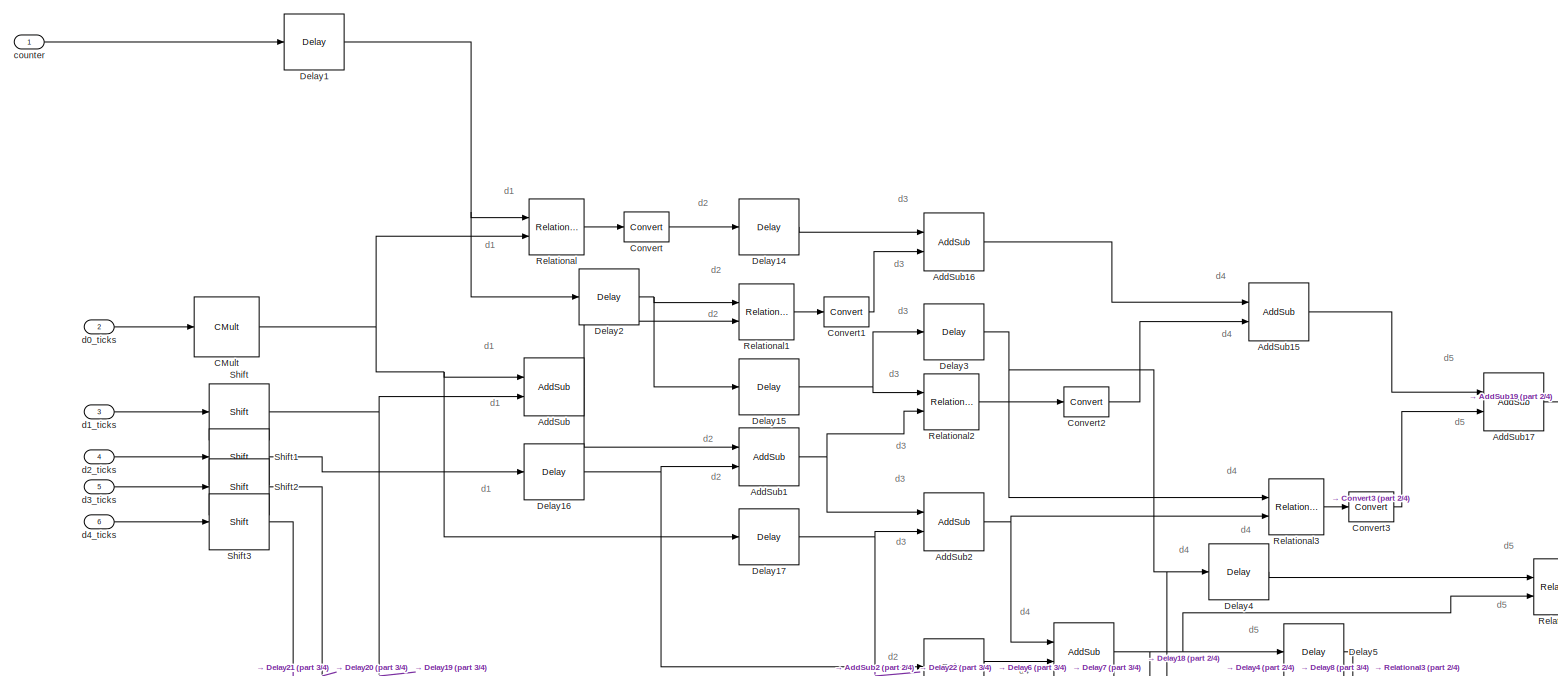
[diagram: SVM_FPGA/Pattern2/v_sel_p1 - part 1/4, top left region]
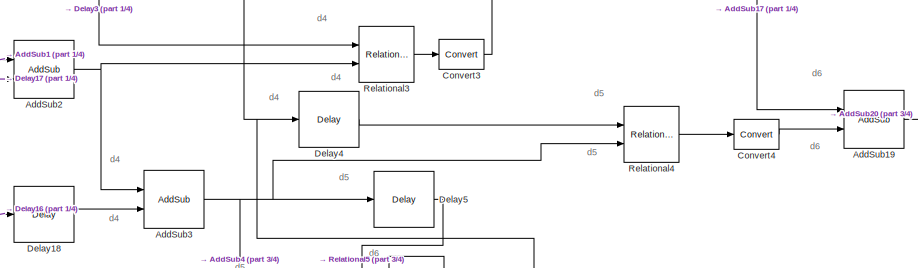
[diagram: SVM_FPGA/Pattern2/v_sel_p1 - part 2/4, central region]
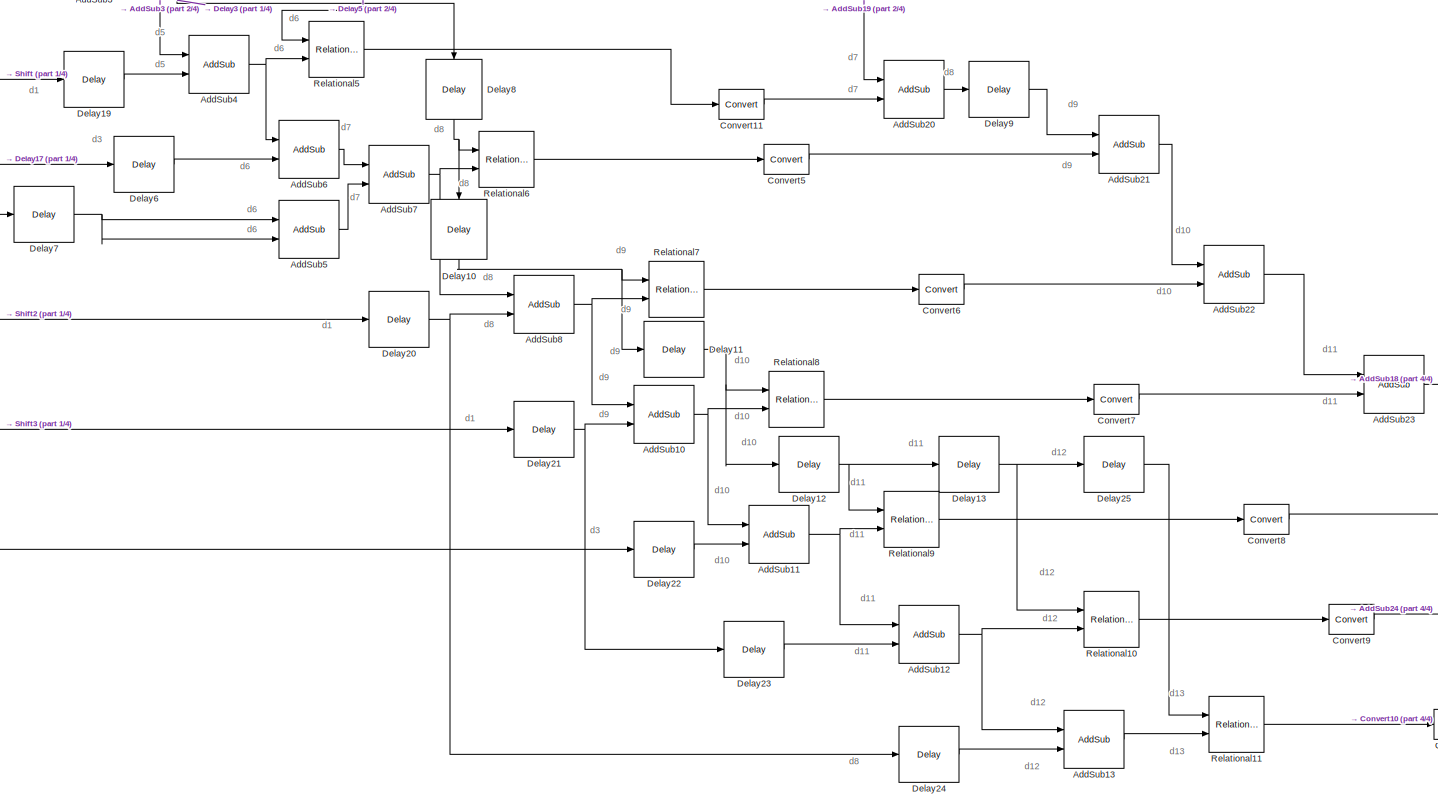
[diagram: SVM_FPGA/Pattern2/v_sel_p1 - part 3/4, bottom center region]
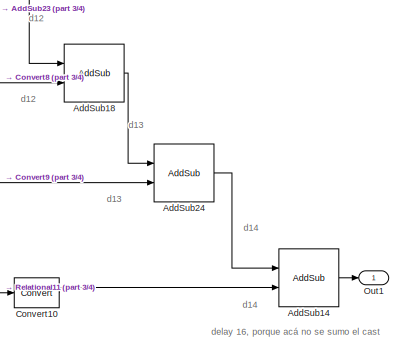
[diagram: SVM_FPGA/Pattern2/v_sel_p1 - part 4/4, bottom right region]
BLOCK [SubSystem] SVM_FPGA/Pattern2/v_sel_p1
  Ports = [6, 1]
  RequestExecContextInheritance = off
BLOCK [Reference] SVM_FPGA/Pattern2/v_sel_p1/AddSub  REF=xbsIndex_r4/AddSub
  Ports = [2, 1]
  SourceBlock = xbsIndex_r4/AddSub
  SourceType = Xilinx Adder/Subtracter Block
BLOCK [Reference] SVM_FPGA/Pattern2/v_sel_p1/AddSub1  REF=xbsIndex_r4/AddSub
  Ports = [2, 1]
  SourceBlock = xbsIndex_r4/AddSub
  SourceType = Xilinx Adder/Subtracter Block
BLOCK [Reference] SVM_FPGA/Pattern2/v_sel_p1/AddSub10  REF=xbsIndex_r4/AddSub
  Ports = [2, 1]
  SourceBlock = xbsIndex_r4/AddSub
  SourceType = Xilinx Adder/Subtracter Block
BLOCK [Reference] SVM_FPGA/Pattern2/v_sel_p1/AddSub11  REF=xbsIndex_r4/AddSub
  Ports = [2, 1]
  SourceBlock = xbsIndex_r4/AddSub
  SourceType = Xilinx Adder/Subtracter Block
BLOCK [Reference] SVM_FPGA/Pattern2/v_sel_p1/AddSub12  REF=xbsIndex_r4/AddSub
  Ports = [2, 1]
  SourceBlock = xbsIndex_r4/AddSub
  SourceType = Xilinx Adder/Subtracter Block
BLOCK [Reference] SVM_FPGA/Pattern2/v_sel_p1/AddSub13  REF=xbsIndex_r4/AddSub
  Ports = [2, 1]
  SourceBlock = xbsIndex_r4/AddSub
  SourceType = Xilinx Adder/Subtracter Block
BLOCK [Reference] SVM_FPGA/Pattern2/v_sel_p1/AddSub14  REF=xbsIndex_r4/AddSub
  Ports = [2, 1]
  SourceBlock = xbsIndex_r4/AddSub
  SourceType = Xilinx Adder/Subtracter Block
BLOCK [Reference] SVM_FPGA/Pattern2/v_sel_p1/AddSub15  REF=xbsIndex_r4/AddSub
  Ports = [2, 1]
  SourceBlock = xbsIndex_r4/AddSub
  SourceType = Xilinx Adder/Subtracter Block
BLOCK [Reference] SVM_FPGA/Pattern2/v_sel_p1/AddSub16  REF=xbsIndex_r4/AddSub
  Ports = [2, 1]
  SourceBlock = xbsIndex_r4/AddSub
  SourceType = Xilinx Adder/Subtracter Block
BLOCK [Reference] SVM_FPGA/Pattern2/v_sel_p1/AddSub17  REF=xbsIndex_r4/AddSub
  Ports = [2, 1]
  SourceBlock = xbsIndex_r4/AddSub
  SourceType = Xilinx Adder/Subtracter Block
BLOCK [Reference] SVM_FPGA/Pattern2/v_sel_p1/AddSub18  REF=xbsIndex_r4/AddSub
  Ports = [2, 1]
  SourceBlock = xbsIndex_r4/AddSub
  SourceType = Xilinx Adder/Subtracter Block
BLOCK [Reference] SVM_FPGA/Pattern2/v_sel_p1/AddSub19  REF=xbsIndex_r4/AddSub
  Ports = [2, 1]
  SourceBlock = xbsIndex_r4/AddSub
  SourceType = Xilinx Adder/Subtracter Block
BLOCK [Reference] SVM_FPGA/Pattern2/v_sel_p1/AddSub2  REF=xbsIndex_r4/AddSub
  Ports = [2, 1]
  SourceBlock = xbsIndex_r4/AddSub
  SourceType = Xilinx Adder/Subtracter Block
BLOCK [Reference] SVM_FPGA/Pattern2/v_sel_p1/AddSub20  REF=xbsIndex_r4/AddSub
  Ports = [2, 1]
  SourceBlock = xbsIndex_r4/AddSub
  SourceType = Xilinx Adder/Subtracter Block
BLOCK [Reference] SVM_FPGA/Pattern2/v_sel_p1/AddSub21  REF=xbsIndex_r4/AddSub
  Ports = [2, 1]
  SourceBlock = xbsIndex_r4/AddSub
  SourceType = Xilinx Adder/Subtracter Block
BLOCK [Reference] SVM_FPGA/Pattern2/v_sel_p1/AddSub22  REF=xbsIndex_r4/AddSub
  Ports = [2, 1]
  SourceBlock = xbsIndex_r4/AddSub
  SourceType = Xilinx Adder/Subtracter Block
BLOCK [Reference] SVM_FPGA/Pattern2/v_sel_p1/AddSub23  REF=xbsIndex_r4/AddSub
  Ports = [2, 1]
  SourceBlock = xbsIndex_r4/AddSub
  SourceType = Xilinx Adder/Subtracter Block
BLOCK [Reference] SVM_FPGA/Pattern2/v_sel_p1/AddSub24  REF=xbsIndex_r4/AddSub
  Ports = [2, 1]
  SourceBlock = xbsIndex_r4/AddSub
  SourceType = Xilinx Adder/Subtracter Block
BLOCK [Reference] SVM_FPGA/Pattern2/v_sel_p1/AddSub3  REF=xbsIndex_r4/AddSub
  Ports = [2, 1]
  SourceBlock = xbsIndex_r4/AddSub
  SourceType = Xilinx Adder/Subtracter Block
BLOCK [Reference] SVM_FPGA/Pattern2/v_sel_p1/AddSub4  REF=xbsIndex_r4/AddSub
  Ports = [2, 1]
  SourceBlock = xbsIndex_r4/AddSub
  SourceType = Xilinx Adder/Subtracter Block
BLOCK [Reference] SVM_FPGA/Pattern2/v_sel_p1/AddSub5  REF=xbsIndex_r4/AddSub
  Ports = [2, 1]
  SourceBlock = xbsIndex_r4/AddSub
  SourceType = Xilinx Adder/Subtracter Block
BLOCK [Reference] SVM_FPGA/Pattern2/v_sel_p1/AddSub6  REF=xbsIndex_r4/AddSub
  Ports = [2, 1]
  SourceBlock = xbsIndex_r4/AddSub
  SourceType = Xilinx Adder/Subtracter Block
BLOCK [Reference] SVM_FPGA/Pattern2/v_sel_p1/AddSub7  REF=xbsIndex_r4/AddSub
  Ports = [2, 1]
  SourceBlock = xbsIndex_r4/AddSub
  SourceType = Xilinx Adder/Subtracter Block
BLOCK [Reference] SVM_FPGA/Pattern2/v_sel_p1/AddSub8  REF=xbsIndex_r4/AddSub
  Ports = [2, 1]
  SourceBlock = xbsIndex_r4/AddSub
  SourceType = Xilinx Adder/Subtracter Block
BLOCK [Reference] SVM_FPGA/Pattern2/v_sel_p1/CMult  REF=xbsIndex_r4/CMult
  Ports = [1, 1]
  SourceBlock = xbsIndex_r4/CMult
  SourceType = Xilinx Constant Multiplier Block
BLOCK [Reference] SVM_FPGA/Pattern2/v_sel_p1/Convert  REF=xbsIndex_r4/Convert
  Ports = [1, 1]
  SourceBlock = xbsIndex_r4/Convert
  SourceType = Xilinx Type Converter Block
BLOCK [Reference] SVM_FPGA/Pattern2/v_sel_p1/Convert1  REF=xbsIndex_r4/Convert
  Ports = [1, 1]
  SourceBlock = xbsIndex_r4/Convert
  SourceType = Xilinx Type Converter Block
BLOCK [Reference] SVM_FPGA/Pattern2/v_sel_p1/Convert10  REF=xbsIndex_r4/Convert
  Ports = [1, 1]
  SourceBlock = xbsIndex_r4/Convert
  SourceType = Xilinx Type Converter Block
BLOCK [Reference] SVM_FPGA/Pattern2/v_sel_p1/Convert11  REF=xbsIndex_r4/Convert
  Ports = [1, 1]
  SourceBlock = xbsIndex_r4/Convert
  SourceType = Xilinx Type Converter Block
BLOCK [Reference] SVM_FPGA/Pattern2/v_sel_p1/Convert2  REF=xbsIndex_r4/Convert
  Ports = [1, 1]
  SourceBlock = xbsIndex_r4/Convert
  SourceType = Xilinx Type Converter Block
BLOCK [Reference] SVM_FPGA/Pattern2/v_sel_p1/Convert3  REF=xbsIndex_r4/Convert
  Ports = [1, 1]
  SourceBlock = xbsIndex_r4/Convert
  SourceType = Xilinx Type Converter Block
BLOCK [Reference] SVM_FPGA/Pattern2/v_sel_p1/Convert4  REF=xbsIndex_r4/Convert
  Ports = [1, 1]
  SourceBlock = xbsIndex_r4/Convert
  SourceType = Xilinx Type Converter Block
BLOCK [Reference] SVM_FPGA/Pattern2/v_sel_p1/Convert5  REF=xbsIndex_r4/Convert
  Ports = [1, 1]
  SourceBlock = xbsIndex_r4/Convert
  SourceType = Xilinx Type Converter Block
BLOCK [Reference] SVM_FPGA/Pattern2/v_sel_p1/Convert6  REF=xbsIndex_r4/Convert
  Ports = [1, 1]
  SourceBlock = xbsIndex_r4/Convert
  SourceType = Xilinx Type Converter Block
BLOCK [Reference] SVM_FPGA/Pattern2/v_sel_p1/Convert7  REF=xbsIndex_r4/Convert
  Ports = [1, 1]
  SourceBlock = xbsIndex_r4/Convert
  SourceType = Xilinx Type Converter Block
BLOCK [Reference] SVM_FPGA/Pattern2/v_sel_p1/Convert8  REF=xbsIndex_r4/Convert
  Ports = [1, 1]
  SourceBlock = xbsIndex_r4/Convert
  SourceType = Xilinx Type Converter Block
BLOCK [Reference] SVM_FPGA/Pattern2/v_sel_p1/Convert9  REF=xbsIndex_r4/Convert
  Ports = [1, 1]
  SourceBlock = xbsIndex_r4/Convert
  SourceType = Xilinx Type Converter Block
BLOCK [Reference] SVM_FPGA/Pattern2/v_sel_p1/Delay1  REF=xbsIndex_r4/Delay
  Ports = [1, 1]
  SourceBlock = xbsIndex_r4/Delay
  SourceType = Xilinx Delay Block
BLOCK [Reference] SVM_FPGA/Pattern2/v_sel_p1/Delay10  REF=xbsIndex_r4/Delay
  Ports = [1, 1]
  SourceBlock = xbsIndex_r4/Delay
  SourceType = Xilinx Delay Block
BLOCK [Reference] SVM_FPGA/Pattern2/v_sel_p1/Delay11  REF=xbsIndex_r4/Delay
  Ports = [1, 1]
  SourceBlock = xbsIndex_r4/Delay
  SourceType = Xilinx Delay Block
BLOCK [Reference] SVM_FPGA/Pattern2/v_sel_p1/Delay12  REF=xbsIndex_r4/Delay
  Ports = [1, 1]
  SourceBlock = xbsIndex_r4/Delay
  SourceType = Xilinx Delay Block
BLOCK [Reference] SVM_FPGA/Pattern2/v_sel_p1/Delay13  REF=xbsIndex_r4/Delay
  Ports = [1, 1]
  SourceBlock = xbsIndex_r4/Delay
  SourceType = Xilinx Delay Block
BLOCK [Reference] SVM_FPGA/Pattern2/v_sel_p1/Delay14  REF=xbsIndex_r4/Delay
  Ports = [1, 1]
  SourceBlock = xbsIndex_r4/Delay
  SourceType = Xilinx Delay Block
BLOCK [Reference] SVM_FPGA/Pattern2/v_sel_p1/Delay15  REF=xbsIndex_r4/Delay
  Ports = [1, 1]
  SourceBlock = xbsIndex_r4/Delay
  SourceType = Xilinx Delay Block
BLOCK [Reference] SVM_FPGA/Pattern2/v_sel_p1/Delay16  REF=xbsIndex_r4/Delay
  Ports = [1, 1]
  SourceBlock = xbsIndex_r4/Delay
  SourceType = Xilinx Delay Block
BLOCK [Reference] SVM_FPGA/Pattern2/v_sel_p1/Delay17  REF=xbsIndex_r4/Delay
  Ports = [1, 1]
  SourceBlock = xbsIndex_r4/Delay
  SourceType = Xilinx Delay Block
BLOCK [Reference] SVM_FPGA/Pattern2/v_sel_p1/Delay18  REF=xbsIndex_r4/Delay
  Ports = [1, 1]
  SourceBlock = xbsIndex_r4/Delay
  SourceType = Xilinx Delay Block
BLOCK [Reference] SVM_FPGA/Pattern2/v_sel_p1/Delay19  REF=xbsIndex_r4/Delay
  Ports = [1, 1]
  SourceBlock = xbsIndex_r4/Delay
  SourceType = Xilinx Delay Block
BLOCK [Reference] SVM_FPGA/Pattern2/v_sel_p1/Delay2  REF=xbsIndex_r4/Delay
  Ports = [1, 1]
  SourceBlock = xbsIndex_r4/Delay
  SourceType = Xilinx Delay Block
BLOCK [Reference] SVM_FPGA/Pattern2/v_sel_p1/Delay20  REF=xbsIndex_r4/Delay
  Ports = [1, 1]
  SourceBlock = xbsIndex_r4/Delay
  SourceType = Xilinx Delay Block
BLOCK [Reference] SVM_FPGA/Pattern2/v_sel_p1/Delay21  REF=xbsIndex_r4/Delay
  Ports = [1, 1]
  SourceBlock = xbsIndex_r4/Delay
  SourceType = Xilinx Delay Block
BLOCK [Reference] SVM_FPGA/Pattern2/v_sel_p1/Delay22  REF=xbsIndex_r4/Delay
  Ports = [1, 1]
  SourceBlock = xbsIndex_r4/Delay
  SourceType = Xilinx Delay Block
BLOCK [Reference] SVM_FPGA/Pattern2/v_sel_p1/Delay23  REF=xbsIndex_r4/Delay
  Ports = [1, 1]
  SourceBlock = xbsIndex_r4/Delay
  SourceType = Xilinx Delay Block
BLOCK [Reference] SVM_FPGA/Pattern2/v_sel_p1/Delay24  REF=xbsIndex_r4/Delay
  Ports = [1, 1]
  SourceBlock = xbsIndex_r4/Delay
  SourceType = Xilinx Delay Block
BLOCK [Reference] SVM_FPGA/Pattern2/v_sel_p1/Delay25  REF=xbsIndex_r4/Delay
  Ports = [1, 1]
  SourceBlock = xbsIndex_r4/Delay
  SourceType = Xilinx Delay Block
BLOCK [Reference] SVM_FPGA/Pattern2/v_sel_p1/Delay3  REF=xbsIndex_r4/Delay
  Ports = [1, 1]
  SourceBlock = xbsIndex_r4/Delay
  SourceType = Xilinx Delay Block
BLOCK [Reference] SVM_FPGA/Pattern2/v_sel_p1/Delay4  REF=xbsIndex_r4/Delay
  Ports = [1, 1]
  SourceBlock = xbsIndex_r4/Delay
  SourceType = Xilinx Delay Block
BLOCK [Reference] SVM_FPGA/Pattern2/v_sel_p1/Delay5  REF=xbsIndex_r4/Delay
  Ports = [1, 1]
  SourceBlock = xbsIndex_r4/Delay
  SourceType = Xilinx Delay Block
BLOCK [Reference] SVM_FPGA/Pattern2/v_sel_p1/Delay6  REF=xbsIndex_r4/Delay
  Ports = [1, 1]
  SourceBlock = xbsIndex_r4/Delay
  SourceType = Xilinx Delay Block
BLOCK [Reference] SVM_FPGA/Pattern2/v_sel_p1/Delay7  REF=xbsIndex_r4/Delay
  Ports = [1, 1]
  SourceBlock = xbsIndex_r4/Delay
  SourceType = Xilinx Delay Block
BLOCK [Reference] SVM_FPGA/Pattern2/v_sel_p1/Delay8  REF=xbsIndex_r4/Delay
  Ports = [1, 1]
  SourceBlock = xbsIndex_r4/Delay
  SourceType = Xilinx Delay Block
BLOCK [Reference] SVM_FPGA/Pattern2/v_sel_p1/Delay9  REF=xbsIndex_r4/Delay
  Ports = [1, 1]
  SourceBlock = xbsIndex_r4/Delay
  SourceType = Xilinx Delay Block
BLOCK [Outport] SVM_FPGA/Pattern2/v_sel_p1/Out1
  IconDisplay = Port number
BLOCK [Reference] SVM_FPGA/Pattern2/v_sel_p1/Relational  REF=xbsIndex_r4/Relational
  Ports = [2, 1]
  SourceBlock = xbsIndex_r4/Relational
  SourceType = Xilinx Arithmetic Relational Operator Block
BLOCK [Reference] SVM_FPGA/Pattern2/v_sel_p1/Relational1  REF=xbsIndex_r4/Relational
  Ports = [2, 1]
  SourceBlock = xbsIndex_r4/Relational
  SourceType = Xilinx Arithmetic Relational Operator Block
BLOCK [Reference] SVM_FPGA/Pattern2/v_sel_p1/Relational10  REF=xbsIndex_r4/Relational
  Ports = [2, 1]
  SourceBlock = xbsIndex_r4/Relational
  SourceType = Xilinx Arithmetic Relational Operator Block
BLOCK [Reference] SVM_FPGA/Pattern2/v_sel_p1/Relational11  REF=xbsIndex_r4/Relational
  Ports = [2, 1]
  SourceBlock = xbsIndex_r4/Relational
  SourceType = Xilinx Arithmetic Relational Operator Block
BLOCK [Reference] SVM_FPGA/Pattern2/v_sel_p1/Relational2  REF=xbsIndex_r4/Relational
  Ports = [2, 1]
  SourceBlock = xbsIndex_r4/Relational
  SourceType = Xilinx Arithmetic Relational Operator Block
BLOCK [Reference] SVM_FPGA/Pattern2/v_sel_p1/Relational3  REF=xbsIndex_r4/Relational
  Ports = [2, 1]
  SourceBlock = xbsIndex_r4/Relational
  SourceType = Xilinx Arithmetic Relational Operator Block
BLOCK [Reference] SVM_FPGA/Pattern2/v_sel_p1/Relational4  REF=xbsIndex_r4/Relational
  Ports = [2, 1]
  SourceBlock = xbsIndex_r4/Relational
  SourceType = Xilinx Arithmetic Relational Operator Block
BLOCK [Reference] SVM_FPGA/Pattern2/v_sel_p1/Relational5  REF=xbsIndex_r4/Relational
  Ports = [2, 1]
  SourceBlock = xbsIndex_r4/Relational
  SourceType = Xilinx Arithmetic Relational Operator Block
BLOCK [Reference] SVM_FPGA/Pattern2/v_sel_p1/Relational6  REF=xbsIndex_r4/Relational
  Ports = [2, 1]
  SourceBlock = xbsIndex_r4/Relational
  SourceType = Xilinx Arithmetic Relational Operator Block
BLOCK [Reference] SVM_FPGA/Pattern2/v_sel_p1/Relational7  REF=xbsIndex_r4/Relational
  Ports = [2, 1]
  SourceBlock = xbsIndex_r4/Relational
  SourceType = Xilinx Arithmetic Relational Operator Block
BLOCK [Reference] SVM_FPGA/Pattern2/v_sel_p1/Relational8  REF=xbsIndex_r4/Relational
  Ports = [2, 1]
  SourceBlock = xbsIndex_r4/Relational
  SourceType = Xilinx Arithmetic Relational Operator Block
BLOCK [Reference] SVM_FPGA/Pattern2/v_sel_p1/Relational9  REF=xbsIndex_r4/Relational
  Ports = [2, 1]
  SourceBlock = xbsIndex_r4/Relational
  SourceType = Xilinx Arithmetic Relational Operator Block
BLOCK [Reference] SVM_FPGA/Pattern2/v_sel_p1/Shift  REF=xbsIndex_r4/Shift
  Ports = [1, 1]
  SourceBlock = xbsIndex_r4/Shift
  SourceType = Xilinx Binary Shift Operator Block
BLOCK [Reference] SVM_FPGA/Pattern2/v_sel_p1/Shift1  REF=xbsIndex_r4/Shift
  Ports = [1, 1]
  SourceBlock = xbsIndex_r4/Shift
  SourceType = Xilinx Binary Shift Operator Block
BLOCK [Reference] SVM_FPGA/Pattern2/v_sel_p1/Shift2  REF=xbsIndex_r4/Shift
  Ports = [1, 1]
  SourceBlock = xbsIndex_r4/Shift
  SourceType = Xilinx Binary Shift Operator Block
BLOCK [Reference] SVM_FPGA/Pattern2/v_sel_p1/Shift3  REF=xbsIndex_r4/Shift
  Ports = [1, 1]
  SourceBlock = xbsIndex_r4/Shift
  SourceType = Xilinx Binary Shift Operator Block
BLOCK [Inport] SVM_FPGA/Pattern2/v_sel_p1/counter
  IconDisplay = Port number
BLOCK [Inport] SVM_FPGA/Pattern2/v_sel_p1/d0_ticks
  IconDisplay = Port number
  Port = 2
BLOCK [Inport] SVM_FPGA/Pattern2/v_sel_p1/d1_ticks
  IconDisplay = Port number
  Port = 3
BLOCK [Inport] SVM_FPGA/Pattern2/v_sel_p1/d2_ticks
  IconDisplay = Port number
  Port = 4
BLOCK [Inport] SVM_FPGA/Pattern2/v_sel_p1/d3_ticks
  IconDisplay = Port number
  Port = 5
BLOCK [Inport] SVM_FPGA/Pattern2/v_sel_p1/d4_ticks
  IconDisplay = Port number
  Port = 6
BLOCK [SubSystem] SVM_FPGA/Pattern3
  Ports = [15, 1]
  RequestExecContextInheritance = off
BLOCK [Inport] SVM_FPGA/Pattern3/01
  IconDisplay = Port number
  Port = 11
BLOCK [Inport] SVM_FPGA/Pattern3/02
  IconDisplay = Port number
  Port = 12
BLOCK [Inport] SVM_FPGA/Pattern3/03
  IconDisplay = Port number
  Port = 13
BLOCK [Inport] SVM_FPGA/Pattern3/04
  IconDisplay = Port number
  Port = 14
BLOCK [Inport] SVM_FPGA/Pattern3/05
  IconDisplay = Port number
  Port = 15
BLOCK [Reference] SVM_FPGA/Pattern3/Mux  REF=xbsIndex_r4/Mux
  Ports = [14, 1]
  SourceBlock = xbsIndex_r4/Mux
  SourceType = Xilinx Bus Multiplexer Block
BLOCK [Outport] SVM_FPGA/Pattern3/Out1
  IconDisplay = Port number
BLOCK [Inport] SVM_FPGA/Pattern3/counter 
  IconDisplay = Port number
BLOCK [Inport] SVM_FPGA/Pattern3/d0_ticks
  IconDisplay = Port number
  Port = 6
BLOCK [Inport] SVM_FPGA/Pattern3/d1_ticks
  IconDisplay = Port number
  Port = 7
BLOCK [Inport] SVM_FPGA/Pattern3/d2_ticks
  IconDisplay = Port number
  Port = 8
BLOCK [Inport] SVM_FPGA/Pattern3/d3_ticks
  IconDisplay = Port number
  Port = 9
BLOCK [Inport] SVM_FPGA/Pattern3/d4_ticks
  IconDisplay = Port number
  Port = 10
BLOCK [Inport] SVM_FPGA/Pattern3/v1
  IconDisplay = Port number
  Port = 2
BLOCK [Inport] SVM_FPGA/Pattern3/v2
  IconDisplay = Port number
  Port = 3
BLOCK [Inport] SVM_FPGA/Pattern3/v3
  IconDisplay = Port number
  Port = 4
BLOCK [Inport] SVM_FPGA/Pattern3/v4
  IconDisplay = Port number
  Port = 5
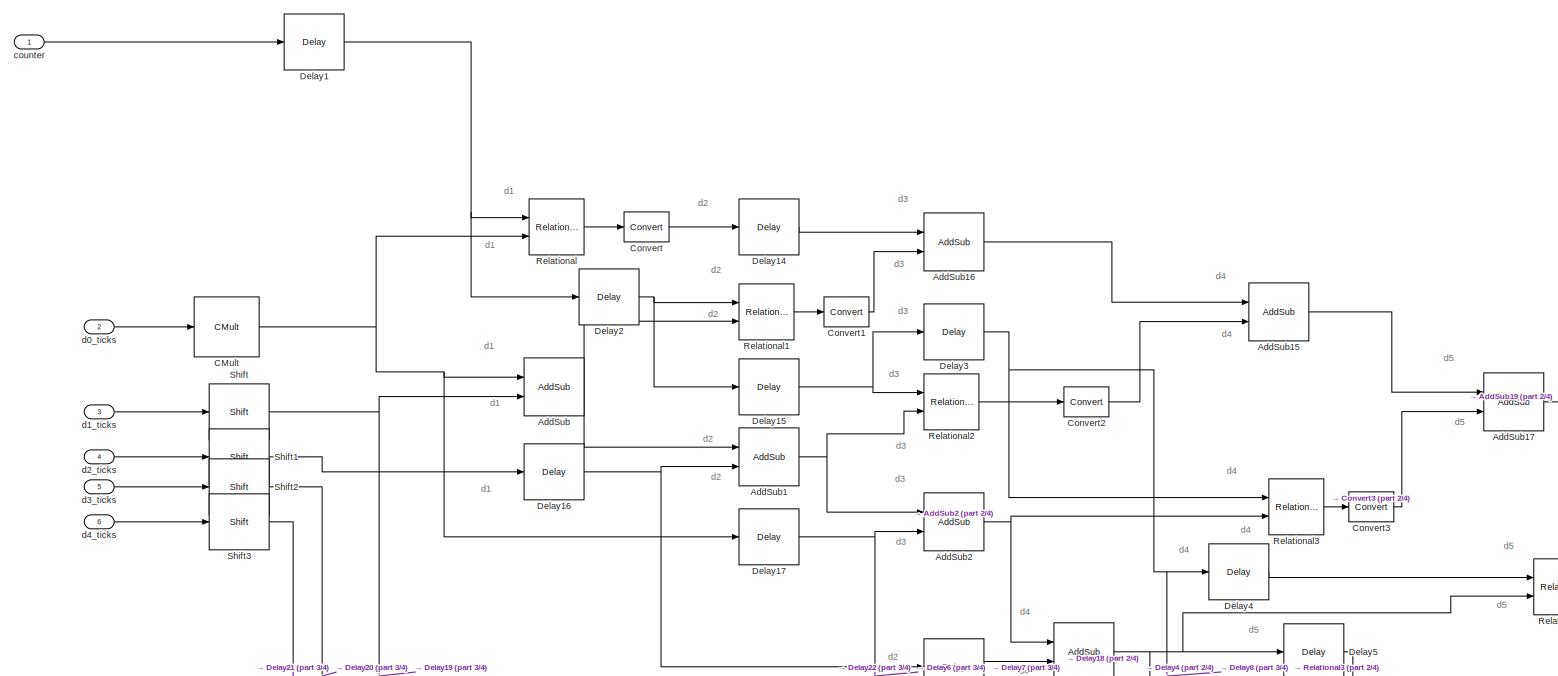
[diagram: SVM_FPGA/Pattern3/v_sel_p1 - part 1/4, top left region]
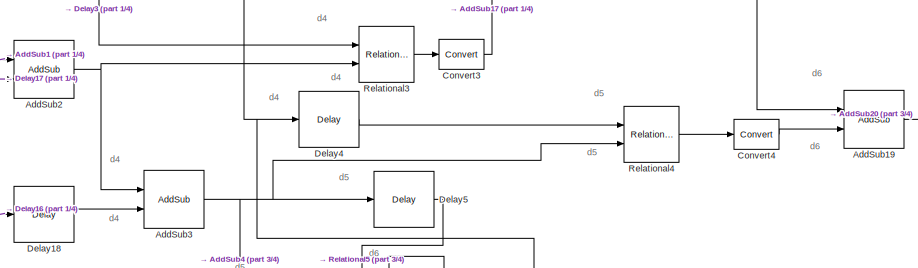
[diagram: SVM_FPGA/Pattern3/v_sel_p1 - part 2/4, central region]
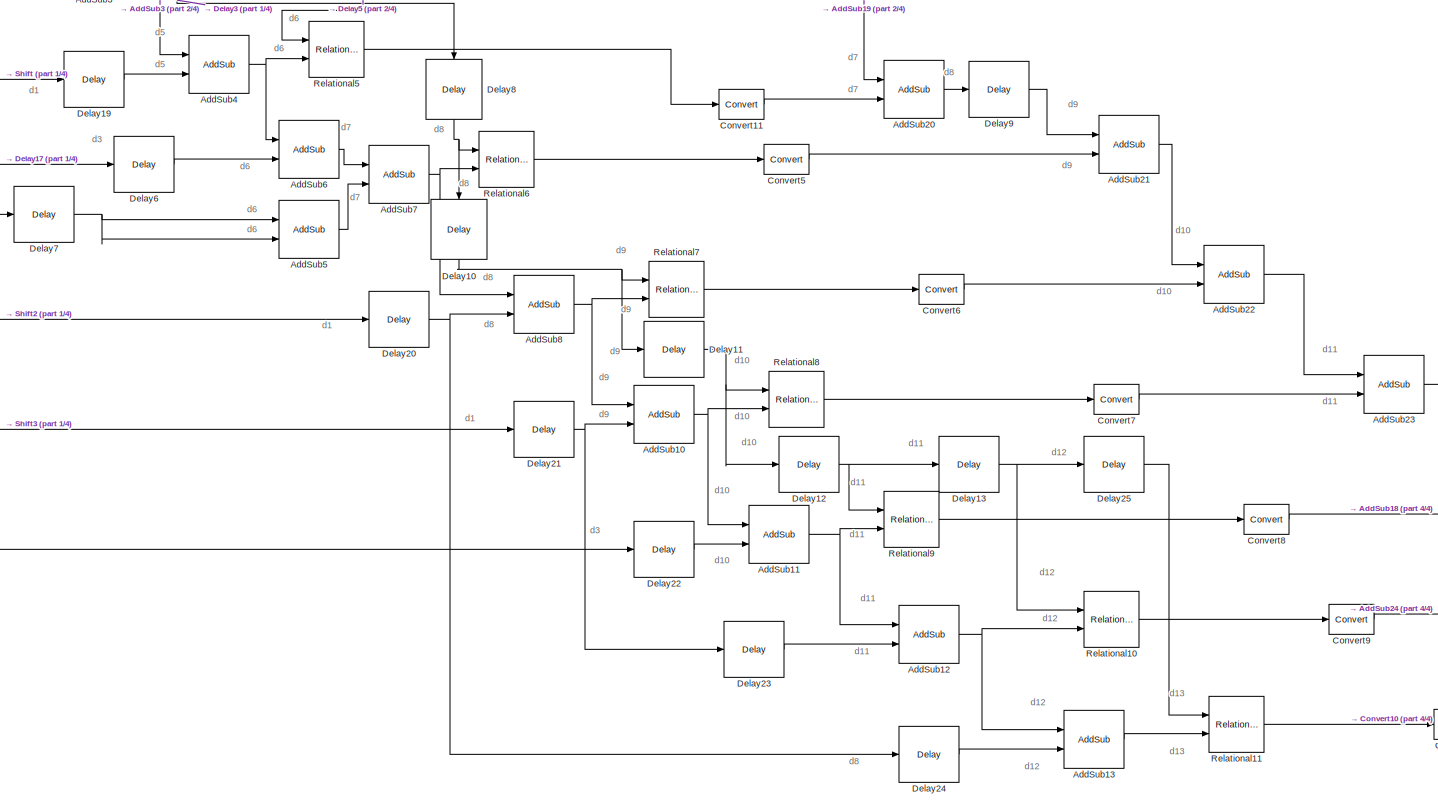
[diagram: SVM_FPGA/Pattern3/v_sel_p1 - part 3/4, bottom center region]
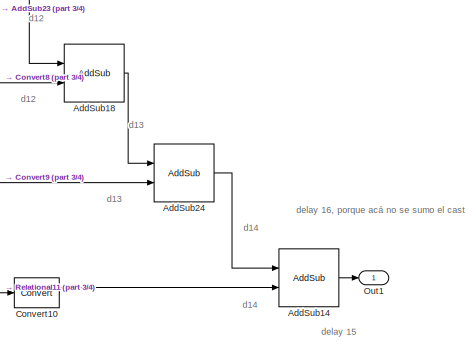
[diagram: SVM_FPGA/Pattern3/v_sel_p1 - part 4/4, bottom right region]
BLOCK [SubSystem] SVM_FPGA/Pattern3/v_sel_p1
  Ports = [6, 1]
  RequestExecContextInheritance = off
BLOCK [Reference] SVM_FPGA/Pattern3/v_sel_p1/AddSub  REF=xbsIndex_r4/AddSub
  Ports = [2, 1]
  SourceBlock = xbsIndex_r4/AddSub
  SourceType = Xilinx Adder/Subtracter Block
BLOCK [Reference] SVM_FPGA/Pattern3/v_sel_p1/AddSub1  REF=xbsIndex_r4/AddSub
  Ports = [2, 1]
  SourceBlock = xbsIndex_r4/AddSub
  SourceType = Xilinx Adder/Subtracter Block
BLOCK [Reference] SVM_FPGA/Pattern3/v_sel_p1/AddSub10  REF=xbsIndex_r4/AddSub
  Ports = [2, 1]
  SourceBlock = xbsIndex_r4/AddSub
  SourceType = Xilinx Adder/Subtracter Block
BLOCK [Reference] SVM_FPGA/Pattern3/v_sel_p1/AddSub11  REF=xbsIndex_r4/AddSub
  Ports = [2, 1]
  SourceBlock = xbsIndex_r4/AddSub
  SourceType = Xilinx Adder/Subtracter Block
BLOCK [Reference] SVM_FPGA/Pattern3/v_sel_p1/AddSub12  REF=xbsIndex_r4/AddSub
  Ports = [2, 1]
  SourceBlock = xbsIndex_r4/AddSub
  SourceType = Xilinx Adder/Subtracter Block
BLOCK [Reference] SVM_FPGA/Pattern3/v_sel_p1/AddSub13  REF=xbsIndex_r4/AddSub
  Ports = [2, 1]
  SourceBlock = xbsIndex_r4/AddSub
  SourceType = Xilinx Adder/Subtracter Block
BLOCK [Reference] SVM_FPGA/Pattern3/v_sel_p1/AddSub14  REF=xbsIndex_r4/AddSub
  Ports = [2, 1]
  SourceBlock = xbsIndex_r4/AddSub
  SourceType = Xilinx Adder/Subtracter Block
BLOCK [Reference] SVM_FPGA/Pattern3/v_sel_p1/AddSub15  REF=xbsIndex_r4/AddSub
  Ports = [2, 1]
  SourceBlock = xbsIndex_r4/AddSub
  SourceType = Xilinx Adder/Subtracter Block
BLOCK [Reference] SVM_FPGA/Pattern3/v_sel_p1/AddSub16  REF=xbsIndex_r4/AddSub
  Ports = [2, 1]
  SourceBlock = xbsIndex_r4/AddSub
  SourceType = Xilinx Adder/Subtracter Block
BLOCK [Reference] SVM_FPGA/Pattern3/v_sel_p1/AddSub17  REF=xbsIndex_r4/AddSub
  Ports = [2, 1]
  SourceBlock = xbsIndex_r4/AddSub
  SourceType = Xilinx Adder/Subtracter Block
BLOCK [Reference] SVM_FPGA/Pattern3/v_sel_p1/AddSub18  REF=xbsIndex_r4/AddSub
  Ports = [2, 1]
  SourceBlock = xbsIndex_r4/AddSub
  SourceType = Xilinx Adder/Subtracter Block
BLOCK [Reference] SVM_FPGA/Pattern3/v_sel_p1/AddSub19  REF=xbsIndex_r4/AddSub
  Ports = [2, 1]
  SourceBlock = xbsIndex_r4/AddSub
  SourceType = Xilinx Adder/Subtracter Block
BLOCK [Reference] SVM_FPGA/Pattern3/v_sel_p1/AddSub2  REF=xbsIndex_r4/AddSub
  Ports = [2, 1]
  SourceBlock = xbsIndex_r4/AddSub
  SourceType = Xilinx Adder/Subtracter Block
BLOCK [Reference] SVM_FPGA/Pattern3/v_sel_p1/AddSub20  REF=xbsIndex_r4/AddSub
  Ports = [2, 1]
  SourceBlock = xbsIndex_r4/AddSub
  SourceType = Xilinx Adder/Subtracter Block
BLOCK [Reference] SVM_FPGA/Pattern3/v_sel_p1/AddSub21  REF=xbsIndex_r4/AddSub
  Ports = [2, 1]
  SourceBlock = xbsIndex_r4/AddSub
  SourceType = Xilinx Adder/Subtracter Block
BLOCK [Reference] SVM_FPGA/Pattern3/v_sel_p1/AddSub22  REF=xbsIndex_r4/AddSub
  Ports = [2, 1]
  SourceBlock = xbsIndex_r4/AddSub
  SourceType = Xilinx Adder/Subtracter Block
BLOCK [Reference] SVM_FPGA/Pattern3/v_sel_p1/AddSub23  REF=xbsIndex_r4/AddSub
  Ports = [2, 1]
  SourceBlock = xbsIndex_r4/AddSub
  SourceType = Xilinx Adder/Subtracter Block
BLOCK [Reference] SVM_FPGA/Pattern3/v_sel_p1/AddSub24  REF=xbsIndex_r4/AddSub
  Ports = [2, 1]
  SourceBlock = xbsIndex_r4/AddSub
  SourceType = Xilinx Adder/Subtracter Block
BLOCK [Reference] SVM_FPGA/Pattern3/v_sel_p1/AddSub3  REF=xbsIndex_r4/AddSub
  Ports = [2, 1]
  SourceBlock = xbsIndex_r4/AddSub
  SourceType = Xilinx Adder/Subtracter Block
BLOCK [Reference] SVM_FPGA/Pattern3/v_sel_p1/AddSub4  REF=xbsIndex_r4/AddSub
  Ports = [2, 1]
  SourceBlock = xbsIndex_r4/AddSub
  SourceType = Xilinx Adder/Subtracter Block
BLOCK [Reference] SVM_FPGA/Pattern3/v_sel_p1/AddSub5  REF=xbsIndex_r4/AddSub
  Ports = [2, 1]
  SourceBlock = xbsIndex_r4/AddSub
  SourceType = Xilinx Adder/Subtracter Block
BLOCK [Reference] SVM_FPGA/Pattern3/v_sel_p1/AddSub6  REF=xbsIndex_r4/AddSub
  Ports = [2, 1]
  SourceBlock = xbsIndex_r4/AddSub
  SourceType = Xilinx Adder/Subtracter Block
BLOCK [Reference] SVM_FPGA/Pattern3/v_sel_p1/AddSub7  REF=xbsIndex_r4/AddSub
  Ports = [2, 1]
  SourceBlock = xbsIndex_r4/AddSub
  SourceType = Xilinx Adder/Subtracter Block
BLOCK [Reference] SVM_FPGA/Pattern3/v_sel_p1/AddSub8  REF=xbsIndex_r4/AddSub
  Ports = [2, 1]
  SourceBlock = xbsIndex_r4/AddSub
  SourceType = Xilinx Adder/Subtracter Block
BLOCK [Reference] SVM_FPGA/Pattern3/v_sel_p1/CMult  REF=xbsIndex_r4/CMult
  Ports = [1, 1]
  SourceBlock = xbsIndex_r4/CMult
  SourceType = Xilinx Constant Multiplier Block
BLOCK [Reference] SVM_FPGA/Pattern3/v_sel_p1/Convert  REF=xbsIndex_r4/Convert
  Ports = [1, 1]
  SourceBlock = xbsIndex_r4/Convert
  SourceType = Xilinx Type Converter Block
BLOCK [Reference] SVM_FPGA/Pattern3/v_sel_p1/Convert1  REF=xbsIndex_r4/Convert
  Ports = [1, 1]
  SourceBlock = xbsIndex_r4/Convert
  SourceType = Xilinx Type Converter Block
BLOCK [Reference] SVM_FPGA/Pattern3/v_sel_p1/Convert10  REF=xbsIndex_r4/Convert
  Ports = [1, 1]
  SourceBlock = xbsIndex_r4/Convert
  SourceType = Xilinx Type Converter Block
BLOCK [Reference] SVM_FPGA/Pattern3/v_sel_p1/Convert11  REF=xbsIndex_r4/Convert
  Ports = [1, 1]
  SourceBlock = xbsIndex_r4/Convert
  SourceType = Xilinx Type Converter Block
BLOCK [Reference] SVM_FPGA/Pattern3/v_sel_p1/Convert2  REF=xbsIndex_r4/Convert
  Ports = [1, 1]
  SourceBlock = xbsIndex_r4/Convert
  SourceType = Xilinx Type Converter Block
BLOCK [Reference] SVM_FPGA/Pattern3/v_sel_p1/Convert3  REF=xbsIndex_r4/Convert
  Ports = [1, 1]
  SourceBlock = xbsIndex_r4/Convert
  SourceType = Xilinx Type Converter Block
BLOCK [Reference] SVM_FPGA/Pattern3/v_sel_p1/Convert4  REF=xbsIndex_r4/Convert
  Ports = [1, 1]
  SourceBlock = xbsIndex_r4/Convert
  SourceType = Xilinx Type Converter Block
BLOCK [Reference] SVM_FPGA/Pattern3/v_sel_p1/Convert5  REF=xbsIndex_r4/Convert
  Ports = [1, 1]
  SourceBlock = xbsIndex_r4/Convert
  SourceType = Xilinx Type Converter Block
BLOCK [Reference] SVM_FPGA/Pattern3/v_sel_p1/Convert6  REF=xbsIndex_r4/Convert
  Ports = [1, 1]
  SourceBlock = xbsIndex_r4/Convert
  SourceType = Xilinx Type Converter Block
BLOCK [Reference] SVM_FPGA/Pattern3/v_sel_p1/Convert7  REF=xbsIndex_r4/Convert
  Ports = [1, 1]
  SourceBlock = xbsIndex_r4/Convert
  SourceType = Xilinx Type Converter Block
BLOCK [Reference] SVM_FPGA/Pattern3/v_sel_p1/Convert8  REF=xbsIndex_r4/Convert
  Ports = [1, 1]
  SourceBlock = xbsIndex_r4/Convert
  SourceType = Xilinx Type Converter Block
BLOCK [Reference] SVM_FPGA/Pattern3/v_sel_p1/Convert9  REF=xbsIndex_r4/Convert
  Ports = [1, 1]
  SourceBlock = xbsIndex_r4/Convert
  SourceType = Xilinx Type Converter Block
BLOCK [Reference] SVM_FPGA/Pattern3/v_sel_p1/Delay1  REF=xbsIndex_r4/Delay
  Ports = [1, 1]
  SourceBlock = xbsIndex_r4/Delay
  SourceType = Xilinx Delay Block
BLOCK [Reference] SVM_FPGA/Pattern3/v_sel_p1/Delay10  REF=xbsIndex_r4/Delay
  Ports = [1, 1]
  SourceBlock = xbsIndex_r4/Delay
  SourceType = Xilinx Delay Block
BLOCK [Reference] SVM_FPGA/Pattern3/v_sel_p1/Delay11  REF=xbsIndex_r4/Delay
  Ports = [1, 1]
  SourceBlock = xbsIndex_r4/Delay
  SourceType = Xilinx Delay Block
BLOCK [Reference] SVM_FPGA/Pattern3/v_sel_p1/Delay12  REF=xbsIndex_r4/Delay
  Ports = [1, 1]
  SourceBlock = xbsIndex_r4/Delay
  SourceType = Xilinx Delay Block
BLOCK [Reference] SVM_FPGA/Pattern3/v_sel_p1/Delay13  REF=xbsIndex_r4/Delay
  Ports = [1, 1]
  SourceBlock = xbsIndex_r4/Delay
  SourceType = Xilinx Delay Block
BLOCK [Reference] SVM_FPGA/Pattern3/v_sel_p1/Delay14  REF=xbsIndex_r4/Delay
  Ports = [1, 1]
  SourceBlock = xbsIndex_r4/Delay
  SourceType = Xilinx Delay Block
BLOCK [Reference] SVM_FPGA/Pattern3/v_sel_p1/Delay15  REF=xbsIndex_r4/Delay
  Ports = [1, 1]
  SourceBlock = xbsIndex_r4/Delay
  SourceType = Xilinx Delay Block
BLOCK [Reference] SVM_FPGA/Pattern3/v_sel_p1/Delay16  REF=xbsIndex_r4/Delay
  Ports = [1, 1]
  SourceBlock = xbsIndex_r4/Delay
  SourceType = Xilinx Delay Block
BLOCK [Reference] SVM_FPGA/Pattern3/v_sel_p1/Delay17  REF=xbsIndex_r4/Delay
  Ports = [1, 1]
  SourceBlock = xbsIndex_r4/Delay
  SourceType = Xilinx Delay Block
BLOCK [Reference] SVM_FPGA/Pattern3/v_sel_p1/Delay18  REF=xbsIndex_r4/Delay
  Ports = [1, 1]
  SourceBlock = xbsIndex_r4/Delay
  SourceType = Xilinx Delay Block
BLOCK [Reference] SVM_FPGA/Pattern3/v_sel_p1/Delay19  REF=xbsIndex_r4/Delay
  Ports = [1, 1]
  SourceBlock = xbsIndex_r4/Delay
  SourceType = Xilinx Delay Block
BLOCK [Reference] SVM_FPGA/Pattern3/v_sel_p1/Delay2  REF=xbsIndex_r4/Delay
  Ports = [1, 1]
  SourceBlock = xbsIndex_r4/Delay
  SourceType = Xilinx Delay Block
BLOCK [Reference] SVM_FPGA/Pattern3/v_sel_p1/Delay20  REF=xbsIndex_r4/Delay
  Ports = [1, 1]
  SourceBlock = xbsIndex_r4/Delay
  SourceType = Xilinx Delay Block
BLOCK [Reference] SVM_FPGA/Pattern3/v_sel_p1/Delay21  REF=xbsIndex_r4/Delay
  Ports = [1, 1]
  SourceBlock = xbsIndex_r4/Delay
  SourceType = Xilinx Delay Block
BLOCK [Reference] SVM_FPGA/Pattern3/v_sel_p1/Delay22  REF=xbsIndex_r4/Delay
  Ports = [1, 1]
  SourceBlock = xbsIndex_r4/Delay
  SourceType = Xilinx Delay Block
BLOCK [Reference] SVM_FPGA/Pattern3/v_sel_p1/Delay23  REF=xbsIndex_r4/Delay
  Ports = [1, 1]
  SourceBlock = xbsIndex_r4/Delay
  SourceType = Xilinx Delay Block
BLOCK [Reference] SVM_FPGA/Pattern3/v_sel_p1/Delay24  REF=xbsIndex_r4/Delay
  Ports = [1, 1]
  SourceBlock = xbsIndex_r4/Delay
  SourceType = Xilinx Delay Block
BLOCK [Reference] SVM_FPGA/Pattern3/v_sel_p1/Delay25  REF=xbsIndex_r4/Delay
  Ports = [1, 1]
  SourceBlock = xbsIndex_r4/Delay
  SourceType = Xilinx Delay Block
BLOCK [Reference] SVM_FPGA/Pattern3/v_sel_p1/Delay3  REF=xbsIndex_r4/Delay
  Ports = [1, 1]
  SourceBlock = xbsIndex_r4/Delay
  SourceType = Xilinx Delay Block
BLOCK [Reference] SVM_FPGA/Pattern3/v_sel_p1/Delay4  REF=xbsIndex_r4/Delay
  Ports = [1, 1]
  SourceBlock = xbsIndex_r4/Delay
  SourceType = Xilinx Delay Block
BLOCK [Reference] SVM_FPGA/Pattern3/v_sel_p1/Delay5  REF=xbsIndex_r4/Delay
  Ports = [1, 1]
  SourceBlock = xbsIndex_r4/Delay
  SourceType = Xilinx Delay Block
BLOCK [Reference] SVM_FPGA/Pattern3/v_sel_p1/Delay6  REF=xbsIndex_r4/Delay
  Ports = [1, 1]
  SourceBlock = xbsIndex_r4/Delay
  SourceType = Xilinx Delay Block
BLOCK [Reference] SVM_FPGA/Pattern3/v_sel_p1/Delay7  REF=xbsIndex_r4/Delay
  Ports = [1, 1]
  SourceBlock = xbsIndex_r4/Delay
  SourceType = Xilinx Delay Block
BLOCK [Reference] SVM_FPGA/Pattern3/v_sel_p1/Delay8  REF=xbsIndex_r4/Delay
  Ports = [1, 1]
  SourceBlock = xbsIndex_r4/Delay
  SourceType = Xilinx Delay Block
BLOCK [Reference] SVM_FPGA/Pattern3/v_sel_p1/Delay9  REF=xbsIndex_r4/Delay
  Ports = [1, 1]
  SourceBlock = xbsIndex_r4/Delay
  SourceType = Xilinx Delay Block
BLOCK [Outport] SVM_FPGA/Pattern3/v_sel_p1/Out1
  IconDisplay = Port number
BLOCK [Reference] SVM_FPGA/Pattern3/v_sel_p1/Relational  REF=xbsIndex_r4/Relational
  Ports = [2, 1]
  SourceBlock = xbsIndex_r4/Relational
  SourceType = Xilinx Arithmetic Relational Operator Block
BLOCK [Reference] SVM_FPGA/Pattern3/v_sel_p1/Relational1  REF=xbsIndex_r4/Relational
  Ports = [2, 1]
  SourceBlock = xbsIndex_r4/Relational
  SourceType = Xilinx Arithmetic Relational Operator Block
BLOCK [Reference] SVM_FPGA/Pattern3/v_sel_p1/Relational10  REF=xbsIndex_r4/Relational
  Ports = [2, 1]
  SourceBlock = xbsIndex_r4/Relational
  SourceType = Xilinx Arithmetic Relational Operator Block
BLOCK [Reference] SVM_FPGA/Pattern3/v_sel_p1/Relational11  REF=xbsIndex_r4/Relational
  Ports = [2, 1]
  SourceBlock = xbsIndex_r4/Relational
  SourceType = Xilinx Arithmetic Relational Operator Block
BLOCK [Reference] SVM_FPGA/Pattern3/v_sel_p1/Relational2  REF=xbsIndex_r4/Relational
  Ports = [2, 1]
  SourceBlock = xbsIndex_r4/Relational
  SourceType = Xilinx Arithmetic Relational Operator Block
BLOCK [Reference] SVM_FPGA/Pattern3/v_sel_p1/Relational3  REF=xbsIndex_r4/Relational
  Ports = [2, 1]
  SourceBlock = xbsIndex_r4/Relational
  SourceType = Xilinx Arithmetic Relational Operator Block
BLOCK [Reference] SVM_FPGA/Pattern3/v_sel_p1/Relational4  REF=xbsIndex_r4/Relational
  Ports = [2, 1]
  SourceBlock = xbsIndex_r4/Relational
  SourceType = Xilinx Arithmetic Relational Operator Block
BLOCK [Reference] SVM_FPGA/Pattern3/v_sel_p1/Relational5  REF=xbsIndex_r4/Relational
  Ports = [2, 1]
  SourceBlock = xbsIndex_r4/Relational
  SourceType = Xilinx Arithmetic Relational Operator Block
BLOCK [Reference] SVM_FPGA/Pattern3/v_sel_p1/Relational6  REF=xbsIndex_r4/Relational
  Ports = [2, 1]
  SourceBlock = xbsIndex_r4/Relational
  SourceType = Xilinx Arithmetic Relational Operator Block
BLOCK [Reference] SVM_FPGA/Pattern3/v_sel_p1/Relational7  REF=xbsIndex_r4/Relational
  Ports = [2, 1]
  SourceBlock = xbsIndex_r4/Relational
  SourceType = Xilinx Arithmetic Relational Operator Block
BLOCK [Reference] SVM_FPGA/Pattern3/v_sel_p1/Relational8  REF=xbsIndex_r4/Relational
  Ports = [2, 1]
  SourceBlock = xbsIndex_r4/Relational
  SourceType = Xilinx Arithmetic Relational Operator Block
BLOCK [Reference] SVM_FPGA/Pattern3/v_sel_p1/Relational9  REF=xbsIndex_r4/Relational
  Ports = [2, 1]
  SourceBlock = xbsIndex_r4/Relational
  SourceType = Xilinx Arithmetic Relational Operator Block
BLOCK [Reference] SVM_FPGA/Pattern3/v_sel_p1/Shift  REF=xbsIndex_r4/Shift
  Ports = [1, 1]
  SourceBlock = xbsIndex_r4/Shift
  SourceType = Xilinx Binary Shift Operator Block
BLOCK [Reference] SVM_FPGA/Pattern3/v_sel_p1/Shift1  REF=xbsIndex_r4/Shift
  Ports = [1, 1]
  SourceBlock = xbsIndex_r4/Shift
  SourceType = Xilinx Binary Shift Operator Block
BLOCK [Reference] SVM_FPGA/Pattern3/v_sel_p1/Shift2  REF=xbsIndex_r4/Shift
  Ports = [1, 1]
  SourceBlock = xbsIndex_r4/Shift
  SourceType = Xilinx Binary Shift Operator Block
BLOCK [Reference] SVM_FPGA/Pattern3/v_sel_p1/Shift3  REF=xbsIndex_r4/Shift
  Ports = [1, 1]
  SourceBlock = xbsIndex_r4/Shift
  SourceType = Xilinx Binary Shift Operator Block
BLOCK [Inport] SVM_FPGA/Pattern3/v_sel_p1/counter
  IconDisplay = Port number
BLOCK [Inport] SVM_FPGA/Pattern3/v_sel_p1/d0_ticks
  IconDisplay = Port number
  Port = 2
BLOCK [Inport] SVM_FPGA/Pattern3/v_sel_p1/d1_ticks
  IconDisplay = Port number
  Port = 3
BLOCK [Inport] SVM_FPGA/Pattern3/v_sel_p1/d2_ticks
  IconDisplay = Port number
  Port = 4
BLOCK [Inport] SVM_FPGA/Pattern3/v_sel_p1/d3_ticks
  IconDisplay = Port number
  Port = 5
BLOCK [Inport] SVM_FPGA/Pattern3/v_sel_p1/d4_ticks
  IconDisplay = Port number
  Port = 6
BLOCK [SubSystem] SVM_FPGA/Pattern4
  Ports = [15, 1]
  RequestExecContextInheritance = off
BLOCK [Inport] SVM_FPGA/Pattern4/01
  IconDisplay = Port number
  Port = 11
BLOCK [Inport] SVM_FPGA/Pattern4/02
  IconDisplay = Port number
  Port = 12
BLOCK [Inport] SVM_FPGA/Pattern4/03
  IconDisplay = Port number
  Port = 13
BLOCK [Inport] SVM_FPGA/Pattern4/04
  IconDisplay = Port number
  Port = 14
BLOCK [Inport] SVM_FPGA/Pattern4/05
  IconDisplay = Port number
  Port = 15
BLOCK [Reference] SVM_FPGA/Pattern4/Mux  REF=xbsIndex_r4/Mux
  Ports = [14, 1]
  SourceBlock = xbsIndex_r4/Mux
  SourceType = Xilinx Bus Multiplexer Block
BLOCK [Outport] SVM_FPGA/Pattern4/Out1
  IconDisplay = Port number
BLOCK [Inport] SVM_FPGA/Pattern4/counter
  IconDisplay = Port number
BLOCK [Inport] SVM_FPGA/Pattern4/d0_ticks
  IconDisplay = Port number
  Port = 6
BLOCK [Inport] SVM_FPGA/Pattern4/d1_ticks
  IconDisplay = Port number
  Port = 7
BLOCK [Inport] SVM_FPGA/Pattern4/d2_ticks
  IconDisplay = Port number
  Port = 8
BLOCK [Inport] SVM_FPGA/Pattern4/d3_ticks
  IconDisplay = Port number
  Port = 9
BLOCK [Inport] SVM_FPGA/Pattern4/d4_ticks
  IconDisplay = Port number
  Port = 10
BLOCK [Inport] SVM_FPGA/Pattern4/v1
  IconDisplay = Port number
  Port = 2
BLOCK [Inport] SVM_FPGA/Pattern4/v2
  IconDisplay = Port number
  Port = 3
BLOCK [Inport] SVM_FPGA/Pattern4/v3
  IconDisplay = Port number
  Port = 4
BLOCK [Inport] SVM_FPGA/Pattern4/v4
  IconDisplay = Port number
  Port = 5
BLOCK [SubSystem] SVM_FPGA/Pattern4/v_sel_p1
  Ports = [6, 1]
  RequestExecContextInheritance = off
BLOCK [Reference] SVM_FPGA/Pattern4/v_sel_p1/AddSub  REF=xbsIndex_r4/AddSub
  Ports = [2, 1]
  SourceBlock = xbsIndex_r4/AddSub
  SourceType = Xilinx Adder/Subtracter Block
BLOCK [Reference] SVM_FPGA/Pattern4/v_sel_p1/AddSub1  REF=xbsIndex_r4/AddSub
  Ports = [2, 1]
  SourceBlock = xbsIndex_r4/AddSub
  SourceType = Xilinx Adder/Subtracter Block
BLOCK [Reference] SVM_FPGA/Pattern4/v_sel_p1/AddSub10  REF=xbsIndex_r4/AddSub
  Ports = [2, 1]
  SourceBlock = xbsIndex_r4/AddSub
  SourceType = Xilinx Adder/Subtracter Block
BLOCK [Reference] SVM_FPGA/Pattern4/v_sel_p1/AddSub11  REF=xbsIndex_r4/AddSub
  Ports = [2, 1]
  SourceBlock = xbsIndex_r4/AddSub
  SourceType = Xilinx Adder/Subtracter Block
BLOCK [Reference] SVM_FPGA/Pattern4/v_sel_p1/AddSub12  REF=xbsIndex_r4/AddSub
  Ports = [2, 1]
  SourceBlock = xbsIndex_r4/AddSub
  SourceType = Xilinx Adder/Subtracter Block
BLOCK [Reference] SVM_FPGA/Pattern4/v_sel_p1/AddSub13  REF=xbsIndex_r4/AddSub
  Ports = [2, 1]
  SourceBlock = xbsIndex_r4/AddSub
  SourceType = Xilinx Adder/Subtracter Block
BLOCK [Reference] SVM_FPGA/Pattern4/v_sel_p1/AddSub14  REF=xbsIndex_r4/AddSub
  Ports = [2, 1]
  SourceBlock = xbsIndex_r4/AddSub
  SourceType = Xilinx Adder/Subtracter Block
BLOCK [Reference] SVM_FPGA/Pattern4/v_sel_p1/AddSub15  REF=xbsIndex_r4/AddSub
  Ports = [2, 1]
  SourceBlock = xbsIndex_r4/AddSub
  SourceType = Xilinx Adder/Subtracter Block
BLOCK [Reference] SVM_FPGA/Pattern4/v_sel_p1/AddSub16  REF=xbsIndex_r4/AddSub
  Ports = [2, 1]
  SourceBlock = xbsIndex_r4/AddSub
  SourceType = Xilinx Adder/Subtracter Block
BLOCK [Reference] SVM_FPGA/Pattern4/v_sel_p1/AddSub17  REF=xbsIndex_r4/AddSub
  Ports = [2, 1]
  SourceBlock = xbsIndex_r4/AddSub
  SourceType = Xilinx Adder/Subtracter Block
BLOCK [Reference] SVM_FPGA/Pattern4/v_sel_p1/AddSub18  REF=xbsIndex_r4/AddSub
  Ports = [2, 1]
  SourceBlock = xbsIndex_r4/AddSub
  SourceType = Xilinx Adder/Subtracter Block
BLOCK [Reference] SVM_FPGA/Pattern4/v_sel_p1/AddSub19  REF=xbsIndex_r4/AddSub
  Ports = [2, 1]
  SourceBlock = xbsIndex_r4/AddSub
  SourceType = Xilinx Adder/Subtracter Block
BLOCK [Reference] SVM_FPGA/Pattern4/v_sel_p1/AddSub2  REF=xbsIndex_r4/AddSub
  Ports = [2, 1]
  SourceBlock = xbsIndex_r4/AddSub
  SourceType = Xilinx Adder/Subtracter Block
BLOCK [Reference] SVM_FPGA/Pattern4/v_sel_p1/AddSub20  REF=xbsIndex_r4/AddSub
  Ports = [2, 1]
  SourceBlock = xbsIndex_r4/AddSub
  SourceType = Xilinx Adder/Subtracter Block
BLOCK [Reference] SVM_FPGA/Pattern4/v_sel_p1/AddSub22  REF=xbsIndex_r4/AddSub
  Ports = [2, 1]
  SourceBlock = xbsIndex_r4/AddSub
  SourceType = Xilinx Adder/Subtracter Block
BLOCK [Reference] SVM_FPGA/Pattern4/v_sel_p1/AddSub23  REF=xbsIndex_r4/AddSub
  Ports = [2, 1]
  SourceBlock = xbsIndex_r4/AddSub
  SourceType = Xilinx Adder/Subtracter Block
BLOCK [Reference] SVM_FPGA/Pattern4/v_sel_p1/AddSub24  REF=xbsIndex_r4/AddSub
  Ports = [2, 1]
  SourceBlock = xbsIndex_r4/AddSub
  SourceType = Xilinx Adder/Subtracter Block
BLOCK [Reference] SVM_FPGA/Pattern4/v_sel_p1/AddSub3  REF=xbsIndex_r4/AddSub
  Ports = [2, 1]
  SourceBlock = xbsIndex_r4/AddSub
  SourceType = Xilinx Adder/Subtracter Block
BLOCK [Reference] SVM_FPGA/Pattern4/v_sel_p1/AddSub4  REF=xbsIndex_r4/AddSub
  Ports = [2, 1]
  SourceBlock = xbsIndex_r4/AddSub
  SourceType = Xilinx Adder/Subtracter Block
BLOCK [Reference] SVM_FPGA/Pattern4/v_sel_p1/AddSub5  REF=xbsIndex_r4/AddSub
  Ports = [2, 1]
  SourceBlock = xbsIndex_r4/AddSub
  SourceType = Xilinx Adder/Subtracter Block
BLOCK [Reference] SVM_FPGA/Pattern4/v_sel_p1/AddSub8  REF=xbsIndex_r4/AddSub
  Ports = [2, 1]
  SourceBlock = xbsIndex_r4/AddSub
  SourceType = Xilinx Adder/Subtracter Block
BLOCK [Reference] SVM_FPGA/Pattern4/v_sel_p1/AddSub9  REF=xbsIndex_r4/AddSub
  Ports = [2, 1]
  SourceBlock = xbsIndex_r4/AddSub
  SourceType = Xilinx Adder/Subtracter Block
BLOCK [Reference] SVM_FPGA/Pattern4/v_sel_p1/CMult  REF=xbsIndex_r4/CMult
  Ports = [1, 1]
  SourceBlock = xbsIndex_r4/CMult
  SourceType = Xilinx Constant Multiplier Block
BLOCK [Reference] SVM_FPGA/Pattern4/v_sel_p1/Convert  REF=xbsIndex_r4/Convert
  Ports = [1, 1]
  SourceBlock = xbsIndex_r4/Convert
  SourceType = Xilinx Type Converter Block
BLOCK [Reference] SVM_FPGA/Pattern4/v_sel_p1/Convert1  REF=xbsIndex_r4/Convert
  Ports = [1, 1]
  SourceBlock = xbsIndex_r4/Convert
  SourceType = Xilinx Type Converter Block
BLOCK [Reference] SVM_FPGA/Pattern4/v_sel_p1/Convert10  REF=xbsIndex_r4/Convert
  Ports = [1, 1]
  SourceBlock = xbsIndex_r4/Convert
  SourceType = Xilinx Type Converter Block
BLOCK [Reference] SVM_FPGA/Pattern4/v_sel_p1/Convert2  REF=xbsIndex_r4/Convert
  Ports = [1, 1]
  SourceBlock = xbsIndex_r4/Convert
  SourceType = Xilinx Type Converter Block
BLOCK [Reference] SVM_FPGA/Pattern4/v_sel_p1/Convert3  REF=xbsIndex_r4/Convert
  Ports = [1, 1]
  SourceBlock = xbsIndex_r4/Convert
  SourceType = Xilinx Type Converter Block
BLOCK [Reference] SVM_FPGA/Pattern4/v_sel_p1/Convert4  REF=xbsIndex_r4/Convert
  Ports = [1, 1]
  SourceBlock = xbsIndex_r4/Convert
  SourceType = Xilinx Type Converter Block
BLOCK [Reference] SVM_FPGA/Pattern4/v_sel_p1/Convert5  REF=xbsIndex_r4/Convert
  Ports = [1, 1]
  SourceBlock = xbsIndex_r4/Convert
  SourceType = Xilinx Type Converter Block
BLOCK [Reference] SVM_FPGA/Pattern4/v_sel_p1/Convert6  REF=xbsIndex_r4/Convert
  Ports = [1, 1]
  SourceBlock = xbsIndex_r4/Convert
  SourceType = Xilinx Type Converter Block
BLOCK [Reference] SVM_FPGA/Pattern4/v_sel_p1/Convert7  REF=xbsIndex_r4/Convert
  Ports = [1, 1]
  SourceBlock = xbsIndex_r4/Convert
  SourceType = Xilinx Type Converter Block
BLOCK [Reference] SVM_FPGA/Pattern4/v_sel_p1/Convert8  REF=xbsIndex_r4/Convert
  Ports = [1, 1]
  SourceBlock = xbsIndex_r4/Convert
  SourceType = Xilinx Type Converter Block
BLOCK [Reference] SVM_FPGA/Pattern4/v_sel_p1/Convert9  REF=xbsIndex_r4/Convert
  Ports = [1, 1]
  SourceBlock = xbsIndex_r4/Convert
  SourceType = Xilinx Type Converter Block
BLOCK [Reference] SVM_FPGA/Pattern4/v_sel_p1/Delay  REF=xbsIndex_r4/Delay
  Ports = [1, 1]
  SourceBlock = xbsIndex_r4/Delay
  SourceType = Xilinx Delay Block
BLOCK [Reference] SVM_FPGA/Pattern4/v_sel_p1/Delay1  REF=xbsIndex_r4/Delay
  Ports = [1, 1]
  SourceBlock = xbsIndex_r4/Delay
  SourceType = Xilinx Delay Block
BLOCK [Reference] SVM_FPGA/Pattern4/v_sel_p1/Delay10  REF=xbsIndex_r4/Delay
  Ports = [1, 1]
  SourceBlock = xbsIndex_r4/Delay
  SourceType = Xilinx Delay Block
BLOCK [Reference] SVM_FPGA/Pattern4/v_sel_p1/Delay11  REF=xbsIndex_r4/Delay
  Ports = [1, 1]
  SourceBlock = xbsIndex_r4/Delay
  SourceType = Xilinx Delay Block
BLOCK [Reference] SVM_FPGA/Pattern4/v_sel_p1/Delay12  REF=xbsIndex_r4/Delay
  Ports = [1, 1]
  SourceBlock = xbsIndex_r4/Delay
  SourceType = Xilinx Delay Block
BLOCK [Reference] SVM_FPGA/Pattern4/v_sel_p1/Delay13  REF=xbsIndex_r4/Delay
  Ports = [1, 1]
  SourceBlock = xbsIndex_r4/Delay
  SourceType = Xilinx Delay Block
BLOCK [Reference] SVM_FPGA/Pattern4/v_sel_p1/Delay14  REF=xbsIndex_r4/Delay
  Ports = [1, 1]
  SourceBlock = xbsIndex_r4/Delay
  SourceType = Xilinx Delay Block
BLOCK [Reference] SVM_FPGA/Pattern4/v_sel_p1/Delay15  REF=xbsIndex_r4/Delay
  Ports = [1, 1]
  SourceBlock = xbsIndex_r4/Delay
  SourceType = Xilinx Delay Block
BLOCK [Reference] SVM_FPGA/Pattern4/v_sel_p1/Delay16  REF=xbsIndex_r4/Delay
  Ports = [1, 1]
  SourceBlock = xbsIndex_r4/Delay
  SourceType = Xilinx Delay Block
BLOCK [Reference] SVM_FPGA/Pattern4/v_sel_p1/Delay17  REF=xbsIndex_r4/Delay
  Ports = [1, 1]
  SourceBlock = xbsIndex_r4/Delay
  SourceType = Xilinx Delay Block
BLOCK [Reference] SVM_FPGA/Pattern4/v_sel_p1/Delay18  REF=xbsIndex_r4/Delay
  Ports = [1, 1]
  SourceBlock = xbsIndex_r4/Delay
  SourceType = Xilinx Delay Block
BLOCK [Reference] SVM_FPGA/Pattern4/v_sel_p1/Delay19  REF=xbsIndex_r4/Delay
  Ports = [1, 1]
  SourceBlock = xbsIndex_r4/Delay
  SourceType = Xilinx Delay Block
BLOCK [Reference] SVM_FPGA/Pattern4/v_sel_p1/Delay2  REF=xbsIndex_r4/Delay
  Ports = [1, 1]
  SourceBlock = xbsIndex_r4/Delay
  SourceType = Xilinx Delay Block
BLOCK [Reference] SVM_FPGA/Pattern4/v_sel_p1/Delay20  REF=xbsIndex_r4/Delay
  Ports = [1, 1]
  SourceBlock = xbsIndex_r4/Delay
  SourceType = Xilinx Delay Block
BLOCK [Reference] SVM_FPGA/Pattern4/v_sel_p1/Delay21  REF=xbsIndex_r4/Delay
  Ports = [1, 1]
  SourceBlock = xbsIndex_r4/Delay
  SourceType = Xilinx Delay Block
BLOCK [Reference] SVM_FPGA/Pattern4/v_sel_p1/Delay22  REF=xbsIndex_r4/Delay
  Ports = [1, 1]
  SourceBlock = xbsIndex_r4/Delay
  SourceType = Xilinx Delay Block
BLOCK [Reference] SVM_FPGA/Pattern4/v_sel_p1/Delay23  REF=xbsIndex_r4/Delay
  Ports = [1, 1]
  SourceBlock = xbsIndex_r4/Delay
  SourceType = Xilinx Delay Block
BLOCK [Reference] SVM_FPGA/Pattern4/v_sel_p1/Delay24  REF=xbsIndex_r4/Delay
  Ports = [1, 1]
  SourceBlock = xbsIndex_r4/Delay
  SourceType = Xilinx Delay Block
BLOCK [Reference] SVM_FPGA/Pattern4/v_sel_p1/Delay25  REF=xbsIndex_r4/Delay
  Ports = [1, 1]
  SourceBlock = xbsIndex_r4/Delay
  SourceType = Xilinx Delay Block
BLOCK [Reference] SVM_FPGA/Pattern4/v_sel_p1/Delay26  REF=xbsIndex_r4/Delay
  Ports = [1, 1]
  SourceBlock = xbsIndex_r4/Delay
  SourceType = Xilinx Delay Block
BLOCK [Reference] SVM_FPGA/Pattern4/v_sel_p1/Delay3  REF=xbsIndex_r4/Delay
  Ports = [1, 1]
  SourceBlock = xbsIndex_r4/Delay
  SourceType = Xilinx Delay Block
BLOCK [Reference] SVM_FPGA/Pattern4/v_sel_p1/Delay4  REF=xbsIndex_r4/Delay
  Ports = [1, 1]
  SourceBlock = xbsIndex_r4/Delay
  SourceType = Xilinx Delay Block
BLOCK [Reference] SVM_FPGA/Pattern4/v_sel_p1/Delay5  REF=xbsIndex_r4/Delay
  Ports = [1, 1]
  SourceBlock = xbsIndex_r4/Delay
  SourceType = Xilinx Delay Block
BLOCK [Reference] SVM_FPGA/Pattern4/v_sel_p1/Delay6  REF=xbsIndex_r4/Delay
  Ports = [1, 1]
  SourceBlock = xbsIndex_r4/Delay
  SourceType = Xilinx Delay Block
BLOCK [Reference] SVM_FPGA/Pattern4/v_sel_p1/Delay7  REF=xbsIndex_r4/Delay
  Ports = [1, 1]
  SourceBlock = xbsIndex_r4/Delay
  SourceType = Xilinx Delay Block
BLOCK [Reference] SVM_FPGA/Pattern4/v_sel_p1/Delay8  REF=xbsIndex_r4/Delay
  Ports = [1, 1]
  SourceBlock = xbsIndex_r4/Delay
  SourceType = Xilinx Delay Block
BLOCK [Reference] SVM_FPGA/Pattern4/v_sel_p1/Delay9  REF=xbsIndex_r4/Delay
  Ports = [1, 1]
  SourceBlock = xbsIndex_r4/Delay
  SourceType = Xilinx Delay Block
BLOCK [Outport] SVM_FPGA/Pattern4/v_sel_p1/Out1
  IconDisplay = Port number
BLOCK [Reference] SVM_FPGA/Pattern4/v_sel_p1/Relational  REF=xbsIndex_r4/Relational
  Ports = [2, 1]
  SourceBlock = xbsIndex_r4/Relational
  SourceType = Xilinx Arithmetic Relational Operator Block
BLOCK [Reference] SVM_FPGA/Pattern4/v_sel_p1/Relational1  REF=xbsIndex_r4/Relational
  Ports = [2, 1]
  SourceBlock = xbsIndex_r4/Relational
  SourceType = Xilinx Arithmetic Relational Operator Block
BLOCK [Reference] SVM_FPGA/Pattern4/v_sel_p1/Relational10  REF=xbsIndex_r4/Relational
  Ports = [2, 1]
  SourceBlock = xbsIndex_r4/Relational
  SourceType = Xilinx Arithmetic Relational Operator Block
BLOCK [Reference] SVM_FPGA/Pattern4/v_sel_p1/Relational11  REF=xbsIndex_r4/Relational
  Ports = [2, 1]
  SourceBlock = xbsIndex_r4/Relational
  SourceType = Xilinx Arithmetic Relational Operator Block
BLOCK [Reference] SVM_FPGA/Pattern4/v_sel_p1/Relational2  REF=xbsIndex_r4/Relational
  Ports = [2, 1]
  SourceBlock = xbsIndex_r4/Relational
  SourceType = Xilinx Arithmetic Relational Operator Block
BLOCK [Reference] SVM_FPGA/Pattern4/v_sel_p1/Relational3  REF=xbsIndex_r4/Relational
  Ports = [2, 1]
  SourceBlock = xbsIndex_r4/Relational
  SourceType = Xilinx Arithmetic Relational Operator Block
BLOCK [Reference] SVM_FPGA/Pattern4/v_sel_p1/Relational4  REF=xbsIndex_r4/Relational
  Ports = [2, 1]
  SourceBlock = xbsIndex_r4/Relational
  SourceType = Xilinx Arithmetic Relational Operator Block
BLOCK [Reference] SVM_FPGA/Pattern4/v_sel_p1/Relational5  REF=xbsIndex_r4/Relational
  Ports = [2, 1]
  SourceBlock = xbsIndex_r4/Relational
  SourceType = Xilinx Arithmetic Relational Operator Block
BLOCK [Reference] SVM_FPGA/Pattern4/v_sel_p1/Relational7  REF=xbsIndex_r4/Relational
  Ports = [2, 1]
  SourceBlock = xbsIndex_r4/Relational
  SourceType = Xilinx Arithmetic Relational Operator Block
BLOCK [Reference] SVM_FPGA/Pattern4/v_sel_p1/Relational8  REF=xbsIndex_r4/Relational
  Ports = [2, 1]
  SourceBlock = xbsIndex_r4/Relational
  SourceType = Xilinx Arithmetic Relational Operator Block
BLOCK [Reference] SVM_FPGA/Pattern4/v_sel_p1/Relational9  REF=xbsIndex_r4/Relational
  Ports = [2, 1]
  SourceBlock = xbsIndex_r4/Relational
  SourceType = Xilinx Arithmetic Relational Operator Block
BLOCK [Reference] SVM_FPGA/Pattern4/v_sel_p1/Shift  REF=xbsIndex_r4/Shift
  Ports = [1, 1]
  SourceBlock = xbsIndex_r4/Shift
  SourceType = Xilinx Binary Shift Operator Block
BLOCK [Reference] SVM_FPGA/Pattern4/v_sel_p1/Shift1  REF=xbsIndex_r4/Shift
  Ports = [1, 1]
  SourceBlock = xbsIndex_r4/Shift
  SourceType = Xilinx Binary Shift Operator Block
BLOCK [Reference] SVM_FPGA/Pattern4/v_sel_p1/Shift2  REF=xbsIndex_r4/Shift
  Ports = [1, 1]
  SourceBlock = xbsIndex_r4/Shift
  SourceType = Xilinx Binary Shift Operator Block
BLOCK [Reference] SVM_FPGA/Pattern4/v_sel_p1/Shift3  REF=xbsIndex_r4/Shift
  Ports = [1, 1]
  SourceBlock = xbsIndex_r4/Shift
  SourceType = Xilinx Binary Shift Operator Block
BLOCK [Inport] SVM_FPGA/Pattern4/v_sel_p1/counter
  IconDisplay = Port number
BLOCK [Inport] SVM_FPGA/Pattern4/v_sel_p1/d0_ticks
  IconDisplay = Port number
  Port = 2
BLOCK [Inport] SVM_FPGA/Pattern4/v_sel_p1/d1_ticks
  IconDisplay = Port number
  Port = 3
BLOCK [Inport] SVM_FPGA/Pattern4/v_sel_p1/d2_ticks
  IconDisplay = Port number
  Port = 4
BLOCK [Inport] SVM_FPGA/Pattern4/v_sel_p1/d3_ticks
  IconDisplay = Port number
  Port = 5
BLOCK [Inport] SVM_FPGA/Pattern4/v_sel_p1/d4_ticks
  IconDisplay = Port number
  Port = 6
BLOCK [SubSystem] SVM_FPGA/Pattern5
  Ports = [15, 1]
  RequestExecContextInheritance = off
BLOCK [Inport] SVM_FPGA/Pattern5/01
  IconDisplay = Port number
  Port = 11
BLOCK [Inport] SVM_FPGA/Pattern5/02
  IconDisplay = Port number
  Port = 12
BLOCK [Inport] SVM_FPGA/Pattern5/03
  IconDisplay = Port number
  Port = 13
BLOCK [Inport] SVM_FPGA/Pattern5/04
  IconDisplay = Port number
  Port = 14
BLOCK [Inport] SVM_FPGA/Pattern5/05
  IconDisplay = Port number
  Port = 15
BLOCK [Reference] SVM_FPGA/Pattern5/Mux  REF=xbsIndex_r4/Mux
  Ports = [14, 1]
  SourceBlock = xbsIndex_r4/Mux
  SourceType = Xilinx Bus Multiplexer Block
BLOCK [Outport] SVM_FPGA/Pattern5/Out1
  IconDisplay = Port number
BLOCK [Inport] SVM_FPGA/Pattern5/counter 
  IconDisplay = Port number
BLOCK [Inport] SVM_FPGA/Pattern5/d0_ticks
  IconDisplay = Port number
  Port = 6
BLOCK [Inport] SVM_FPGA/Pattern5/d1_ticks
  IconDisplay = Port number
  Port = 7
BLOCK [Inport] SVM_FPGA/Pattern5/d2_ticks
  IconDisplay = Port number
  Port = 8
BLOCK [Inport] SVM_FPGA/Pattern5/d3_ticks
  IconDisplay = Port number
  Port = 9
BLOCK [Inport] SVM_FPGA/Pattern5/d4_ticks
  IconDisplay = Port number
  Port = 10
BLOCK [Inport] SVM_FPGA/Pattern5/v1
  IconDisplay = Port number
  Port = 2
BLOCK [Inport] SVM_FPGA/Pattern5/v2
  IconDisplay = Port number
  Port = 3
BLOCK [Inport] SVM_FPGA/Pattern5/v3
  IconDisplay = Port number
  Port = 4
BLOCK [Inport] SVM_FPGA/Pattern5/v4
  IconDisplay = Port number
  Port = 5
BLOCK [SubSystem] SVM_FPGA/Pattern5/v_sel_p1
  Ports = [6, 1]
  RequestExecContextInheritance = off
BLOCK [Reference] SVM_FPGA/Pattern5/v_sel_p1/AddSub  REF=xbsIndex_r4/AddSub
  Ports = [2, 1]
  SourceBlock = xbsIndex_r4/AddSub
  SourceType = Xilinx Adder/Subtracter Block
BLOCK [Reference] SVM_FPGA/Pattern5/v_sel_p1/AddSub1  REF=xbsIndex_r4/AddSub
  Ports = [2, 1]
  SourceBlock = xbsIndex_r4/AddSub
  SourceType = Xilinx Adder/Subtracter Block
BLOCK [Reference] SVM_FPGA/Pattern5/v_sel_p1/AddSub10  REF=xbsIndex_r4/AddSub
  Ports = [2, 1]
  SourceBlock = xbsIndex_r4/AddSub
  SourceType = Xilinx Adder/Subtracter Block
BLOCK [Reference] SVM_FPGA/Pattern5/v_sel_p1/AddSub11  REF=xbsIndex_r4/AddSub
  Ports = [2, 1]
  SourceBlock = xbsIndex_r4/AddSub
  SourceType = Xilinx Adder/Subtracter Block
BLOCK [Reference] SVM_FPGA/Pattern5/v_sel_p1/AddSub12  REF=xbsIndex_r4/AddSub
  Ports = [2, 1]
  SourceBlock = xbsIndex_r4/AddSub
  SourceType = Xilinx Adder/Subtracter Block
BLOCK [Reference] SVM_FPGA/Pattern5/v_sel_p1/AddSub13  REF=xbsIndex_r4/AddSub
  Ports = [2, 1]
  SourceBlock = xbsIndex_r4/AddSub
  SourceType = Xilinx Adder/Subtracter Block
BLOCK [Reference] SVM_FPGA/Pattern5/v_sel_p1/AddSub14  REF=xbsIndex_r4/AddSub
  Ports = [2, 1]
  SourceBlock = xbsIndex_r4/AddSub
  SourceType = Xilinx Adder/Subtracter Block
BLOCK [Reference] SVM_FPGA/Pattern5/v_sel_p1/AddSub15  REF=xbsIndex_r4/AddSub
  Ports = [2, 1]
  SourceBlock = xbsIndex_r4/AddSub
  SourceType = Xilinx Adder/Subtracter Block
BLOCK [Reference] SVM_FPGA/Pattern5/v_sel_p1/AddSub16  REF=xbsIndex_r4/AddSub
  Ports = [2, 1]
  SourceBlock = xbsIndex_r4/AddSub
  SourceType = Xilinx Adder/Subtracter Block
BLOCK [Reference] SVM_FPGA/Pattern5/v_sel_p1/AddSub17  REF=xbsIndex_r4/AddSub
  Ports = [2, 1]
  SourceBlock = xbsIndex_r4/AddSub
  SourceType = Xilinx Adder/Subtracter Block
BLOCK [Reference] SVM_FPGA/Pattern5/v_sel_p1/AddSub18  REF=xbsIndex_r4/AddSub
  Ports = [2, 1]
  SourceBlock = xbsIndex_r4/AddSub
  SourceType = Xilinx Adder/Subtracter Block
BLOCK [Reference] SVM_FPGA/Pattern5/v_sel_p1/AddSub19  REF=xbsIndex_r4/AddSub
  Ports = [2, 1]
  SourceBlock = xbsIndex_r4/AddSub
  SourceType = Xilinx Adder/Subtracter Block
BLOCK [Reference] SVM_FPGA/Pattern5/v_sel_p1/AddSub2  REF=xbsIndex_r4/AddSub
  Ports = [2, 1]
  SourceBlock = xbsIndex_r4/AddSub
  SourceType = Xilinx Adder/Subtracter Block
BLOCK [Reference] SVM_FPGA/Pattern5/v_sel_p1/AddSub20  REF=xbsIndex_r4/AddSub
  Ports = [2, 1]
  SourceBlock = xbsIndex_r4/AddSub
  SourceType = Xilinx Adder/Subtracter Block
BLOCK [Reference] SVM_FPGA/Pattern5/v_sel_p1/AddSub21  REF=xbsIndex_r4/AddSub
  Ports = [2, 1]
  SourceBlock = xbsIndex_r4/AddSub
  SourceType = Xilinx Adder/Subtracter Block
BLOCK [Reference] SVM_FPGA/Pattern5/v_sel_p1/AddSub22  REF=xbsIndex_r4/AddSub
  Ports = [2, 1]
  SourceBlock = xbsIndex_r4/AddSub
  SourceType = Xilinx Adder/Subtracter Block
BLOCK [Reference] SVM_FPGA/Pattern5/v_sel_p1/AddSub23  REF=xbsIndex_r4/AddSub
  Ports = [2, 1]
  SourceBlock = xbsIndex_r4/AddSub
  SourceType = Xilinx Adder/Subtracter Block
BLOCK [Reference] SVM_FPGA/Pattern5/v_sel_p1/AddSub24  REF=xbsIndex_r4/AddSub
  Ports = [2, 1]
  SourceBlock = xbsIndex_r4/AddSub
  SourceType = Xilinx Adder/Subtracter Block
BLOCK [Reference] SVM_FPGA/Pattern5/v_sel_p1/AddSub3  REF=xbsIndex_r4/AddSub
  Ports = [2, 1]
  SourceBlock = xbsIndex_r4/AddSub
  SourceType = Xilinx Adder/Subtracter Block
BLOCK [Reference] SVM_FPGA/Pattern5/v_sel_p1/AddSub4  REF=xbsIndex_r4/AddSub
  Ports = [2, 1]
  SourceBlock = xbsIndex_r4/AddSub
  SourceType = Xilinx Adder/Subtracter Block
BLOCK [Reference] SVM_FPGA/Pattern5/v_sel_p1/AddSub5  REF=xbsIndex_r4/AddSub
  Ports = [2, 1]
  SourceBlock = xbsIndex_r4/AddSub
  SourceType = Xilinx Adder/Subtracter Block
BLOCK [Reference] SVM_FPGA/Pattern5/v_sel_p1/AddSub6  REF=xbsIndex_r4/AddSub
  Ports = [2, 1]
  SourceBlock = xbsIndex_r4/AddSub
  SourceType = Xilinx Adder/Subtracter Block
BLOCK [Reference] SVM_FPGA/Pattern5/v_sel_p1/AddSub7  REF=xbsIndex_r4/AddSub
  Ports = [2, 1]
  SourceBlock = xbsIndex_r4/AddSub
  SourceType = Xilinx Adder/Subtracter Block
BLOCK [Reference] SVM_FPGA/Pattern5/v_sel_p1/AddSub8  REF=xbsIndex_r4/AddSub
  Ports = [2, 1]
  SourceBlock = xbsIndex_r4/AddSub
  SourceType = Xilinx Adder/Subtracter Block
BLOCK [Reference] SVM_FPGA/Pattern5/v_sel_p1/CMult  REF=xbsIndex_r4/CMult
  Ports = [1, 1]
  SourceBlock = xbsIndex_r4/CMult
  SourceType = Xilinx Constant Multiplier Block
BLOCK [Reference] SVM_FPGA/Pattern5/v_sel_p1/Convert  REF=xbsIndex_r4/Convert
  Ports = [1, 1]
  SourceBlock = xbsIndex_r4/Convert
  SourceType = Xilinx Type Converter Block
BLOCK [Reference] SVM_FPGA/Pattern5/v_sel_p1/Convert1  REF=xbsIndex_r4/Convert
  Ports = [1, 1]
  SourceBlock = xbsIndex_r4/Convert
  SourceType = Xilinx Type Converter Block
BLOCK [Reference] SVM_FPGA/Pattern5/v_sel_p1/Convert10  REF=xbsIndex_r4/Convert
  Ports = [1, 1]
  SourceBlock = xbsIndex_r4/Convert
  SourceType = Xilinx Type Converter Block
BLOCK [Reference] SVM_FPGA/Pattern5/v_sel_p1/Convert11  REF=xbsIndex_r4/Convert
  Ports = [1, 1]
  SourceBlock = xbsIndex_r4/Convert
  SourceType = Xilinx Type Converter Block
BLOCK [Reference] SVM_FPGA/Pattern5/v_sel_p1/Convert2  REF=xbsIndex_r4/Convert
  Ports = [1, 1]
  SourceBlock = xbsIndex_r4/Convert
  SourceType = Xilinx Type Converter Block
BLOCK [Reference] SVM_FPGA/Pattern5/v_sel_p1/Convert3  REF=xbsIndex_r4/Convert
  Ports = [1, 1]
  SourceBlock = xbsIndex_r4/Convert
  SourceType = Xilinx Type Converter Block
BLOCK [Reference] SVM_FPGA/Pattern5/v_sel_p1/Convert4  REF=xbsIndex_r4/Convert
  Ports = [1, 1]
  SourceBlock = xbsIndex_r4/Convert
  SourceType = Xilinx Type Converter Block
BLOCK [Reference] SVM_FPGA/Pattern5/v_sel_p1/Convert5  REF=xbsIndex_r4/Convert
  Ports = [1, 1]
  SourceBlock = xbsIndex_r4/Convert
  SourceType = Xilinx Type Converter Block
BLOCK [Reference] SVM_FPGA/Pattern5/v_sel_p1/Convert6  REF=xbsIndex_r4/Convert
  Ports = [1, 1]
  SourceBlock = xbsIndex_r4/Convert
  SourceType = Xilinx Type Converter Block
BLOCK [Reference] SVM_FPGA/Pattern5/v_sel_p1/Convert7  REF=xbsIndex_r4/Convert
  Ports = [1, 1]
  SourceBlock = xbsIndex_r4/Convert
  SourceType = Xilinx Type Converter Block
BLOCK [Reference] SVM_FPGA/Pattern5/v_sel_p1/Convert8  REF=xbsIndex_r4/Convert
  Ports = [1, 1]
  SourceBlock = xbsIndex_r4/Convert
  SourceType = Xilinx Type Converter Block
BLOCK [Reference] SVM_FPGA/Pattern5/v_sel_p1/Convert9  REF=xbsIndex_r4/Convert
  Ports = [1, 1]
  SourceBlock = xbsIndex_r4/Convert
  SourceType = Xilinx Type Converter Block
BLOCK [Reference] SVM_FPGA/Pattern5/v_sel_p1/Delay1  REF=xbsIndex_r4/Delay
  Ports = [1, 1]
  SourceBlock = xbsIndex_r4/Delay
  SourceType = Xilinx Delay Block
BLOCK [Reference] SVM_FPGA/Pattern5/v_sel_p1/Delay10  REF=xbsIndex_r4/Delay
  Ports = [1, 1]
  SourceBlock = xbsIndex_r4/Delay
  SourceType = Xilinx Delay Block
BLOCK [Reference] SVM_FPGA/Pattern5/v_sel_p1/Delay11  REF=xbsIndex_r4/Delay
  Ports = [1, 1]
  SourceBlock = xbsIndex_r4/Delay
  SourceType = Xilinx Delay Block
BLOCK [Reference] SVM_FPGA/Pattern5/v_sel_p1/Delay12  REF=xbsIndex_r4/Delay
  Ports = [1, 1]
  SourceBlock = xbsIndex_r4/Delay
  SourceType = Xilinx Delay Block
BLOCK [Reference] SVM_FPGA/Pattern5/v_sel_p1/Delay13  REF=xbsIndex_r4/Delay
  Ports = [1, 1]
  SourceBlock = xbsIndex_r4/Delay
  SourceType = Xilinx Delay Block
BLOCK [Reference] SVM_FPGA/Pattern5/v_sel_p1/Delay14  REF=xbsIndex_r4/Delay
  Ports = [1, 1]
  SourceBlock = xbsIndex_r4/Delay
  SourceType = Xilinx Delay Block
BLOCK [Reference] SVM_FPGA/Pattern5/v_sel_p1/Delay15  REF=xbsIndex_r4/Delay
  Ports = [1, 1]
  SourceBlock = xbsIndex_r4/Delay
  SourceType = Xilinx Delay Block
BLOCK [Reference] SVM_FPGA/Pattern5/v_sel_p1/Delay16  REF=xbsIndex_r4/Delay
  Ports = [1, 1]
  SourceBlock = xbsIndex_r4/Delay
  SourceType = Xilinx Delay Block
BLOCK [Reference] SVM_FPGA/Pattern5/v_sel_p1/Delay17  REF=xbsIndex_r4/Delay
  Ports = [1, 1]
  SourceBlock = xbsIndex_r4/Delay
  SourceType = Xilinx Delay Block
BLOCK [Reference] SVM_FPGA/Pattern5/v_sel_p1/Delay18  REF=xbsIndex_r4/Delay
  Ports = [1, 1]
  SourceBlock = xbsIndex_r4/Delay
  SourceType = Xilinx Delay Block
BLOCK [Reference] SVM_FPGA/Pattern5/v_sel_p1/Delay19  REF=xbsIndex_r4/Delay
  Ports = [1, 1]
  SourceBlock = xbsIndex_r4/Delay
  SourceType = Xilinx Delay Block
BLOCK [Reference] SVM_FPGA/Pattern5/v_sel_p1/Delay2  REF=xbsIndex_r4/Delay
  Ports = [1, 1]
  SourceBlock = xbsIndex_r4/Delay
  SourceType = Xilinx Delay Block
BLOCK [Reference] SVM_FPGA/Pattern5/v_sel_p1/Delay20  REF=xbsIndex_r4/Delay
  Ports = [1, 1]
  SourceBlock = xbsIndex_r4/Delay
  SourceType = Xilinx Delay Block
BLOCK [Reference] SVM_FPGA/Pattern5/v_sel_p1/Delay21  REF=xbsIndex_r4/Delay
  Ports = [1, 1]
  SourceBlock = xbsIndex_r4/Delay
  SourceType = Xilinx Delay Block
BLOCK [Reference] SVM_FPGA/Pattern5/v_sel_p1/Delay22  REF=xbsIndex_r4/Delay
  Ports = [1, 1]
  SourceBlock = xbsIndex_r4/Delay
  SourceType = Xilinx Delay Block
BLOCK [Reference] SVM_FPGA/Pattern5/v_sel_p1/Delay23  REF=xbsIndex_r4/Delay
  Ports = [1, 1]
  SourceBlock = xbsIndex_r4/Delay
  SourceType = Xilinx Delay Block
BLOCK [Reference] SVM_FPGA/Pattern5/v_sel_p1/Delay24  REF=xbsIndex_r4/Delay
  Ports = [1, 1]
  SourceBlock = xbsIndex_r4/Delay
  SourceType = Xilinx Delay Block
BLOCK [Reference] SVM_FPGA/Pattern5/v_sel_p1/Delay25  REF=xbsIndex_r4/Delay
  Ports = [1, 1]
  SourceBlock = xbsIndex_r4/Delay
  SourceType = Xilinx Delay Block
BLOCK [Reference] SVM_FPGA/Pattern5/v_sel_p1/Delay3  REF=xbsIndex_r4/Delay
  Ports = [1, 1]
  SourceBlock = xbsIndex_r4/Delay
  SourceType = Xilinx Delay Block
BLOCK [Reference] SVM_FPGA/Pattern5/v_sel_p1/Delay4  REF=xbsIndex_r4/Delay
  Ports = [1, 1]
  SourceBlock = xbsIndex_r4/Delay
  SourceType = Xilinx Delay Block
BLOCK [Reference] SVM_FPGA/Pattern5/v_sel_p1/Delay5  REF=xbsIndex_r4/Delay
  Ports = [1, 1]
  SourceBlock = xbsIndex_r4/Delay
  SourceType = Xilinx Delay Block
BLOCK [Reference] SVM_FPGA/Pattern5/v_sel_p1/Delay6  REF=xbsIndex_r4/Delay
  Ports = [1, 1]
  SourceBlock = xbsIndex_r4/Delay
  SourceType = Xilinx Delay Block
BLOCK [Reference] SVM_FPGA/Pattern5/v_sel_p1/Delay7  REF=xbsIndex_r4/Delay
  Ports = [1, 1]
  SourceBlock = xbsIndex_r4/Delay
  SourceType = Xilinx Delay Block
BLOCK [Reference] SVM_FPGA/Pattern5/v_sel_p1/Delay8  REF=xbsIndex_r4/Delay
  Ports = [1, 1]
  SourceBlock = xbsIndex_r4/Delay
  SourceType = Xilinx Delay Block
BLOCK [Reference] SVM_FPGA/Pattern5/v_sel_p1/Delay9  REF=xbsIndex_r4/Delay
  Ports = [1, 1]
  SourceBlock = xbsIndex_r4/Delay
  SourceType = Xilinx Delay Block
BLOCK [Outport] SVM_FPGA/Pattern5/v_sel_p1/Out1
  IconDisplay = Port number
BLOCK [Reference] SVM_FPGA/Pattern5/v_sel_p1/Relational  REF=xbsIndex_r4/Relational
  Ports = [2, 1]
  SourceBlock = xbsIndex_r4/Relational
  SourceType = Xilinx Arithmetic Relational Operator Block
BLOCK [Reference] SVM_FPGA/Pattern5/v_sel_p1/Relational1  REF=xbsIndex_r4/Relational
  Ports = [2, 1]
  SourceBlock = xbsIndex_r4/Relational
  SourceType = Xilinx Arithmetic Relational Operator Block
BLOCK [Reference] SVM_FPGA/Pattern5/v_sel_p1/Relational10  REF=xbsIndex_r4/Relational
  Ports = [2, 1]
  SourceBlock = xbsIndex_r4/Relational
  SourceType = Xilinx Arithmetic Relational Operator Block
BLOCK [Reference] SVM_FPGA/Pattern5/v_sel_p1/Relational11  REF=xbsIndex_r4/Relational
  Ports = [2, 1]
  SourceBlock = xbsIndex_r4/Relational
  SourceType = Xilinx Arithmetic Relational Operator Block
BLOCK [Reference] SVM_FPGA/Pattern5/v_sel_p1/Relational2  REF=xbsIndex_r4/Relational
  Ports = [2, 1]
  SourceBlock = xbsIndex_r4/Relational
  SourceType = Xilinx Arithmetic Relational Operator Block
BLOCK [Reference] SVM_FPGA/Pattern5/v_sel_p1/Relational3  REF=xbsIndex_r4/Relational
  Ports = [2, 1]
  SourceBlock = xbsIndex_r4/Relational
  SourceType = Xilinx Arithmetic Relational Operator Block
BLOCK [Reference] SVM_FPGA/Pattern5/v_sel_p1/Relational4  REF=xbsIndex_r4/Relational
  Ports = [2, 1]
  SourceBlock = xbsIndex_r4/Relational
  SourceType = Xilinx Arithmetic Relational Operator Block
BLOCK [Reference] SVM_FPGA/Pattern5/v_sel_p1/Relational5  REF=xbsIndex_r4/Relational
  Ports = [2, 1]
  SourceBlock = xbsIndex_r4/Relational
  SourceType = Xilinx Arithmetic Relational Operator Block
BLOCK [Reference] SVM_FPGA/Pattern5/v_sel_p1/Relational6  REF=xbsIndex_r4/Relational
  Ports = [2, 1]
  SourceBlock = xbsIndex_r4/Relational
  SourceType = Xilinx Arithmetic Relational Operator Block
BLOCK [Reference] SVM_FPGA/Pattern5/v_sel_p1/Relational7  REF=xbsIndex_r4/Relational
  Ports = [2, 1]
  SourceBlock = xbsIndex_r4/Relational
  SourceType = Xilinx Arithmetic Relational Operator Block
BLOCK [Reference] SVM_FPGA/Pattern5/v_sel_p1/Relational8  REF=xbsIndex_r4/Relational
  Ports = [2, 1]
  SourceBlock = xbsIndex_r4/Relational
  SourceType = Xilinx Arithmetic Relational Operator Block
BLOCK [Reference] SVM_FPGA/Pattern5/v_sel_p1/Relational9  REF=xbsIndex_r4/Relational
  Ports = [2, 1]
  SourceBlock = xbsIndex_r4/Relational
  SourceType = Xilinx Arithmetic Relational Operator Block
BLOCK [Reference] SVM_FPGA/Pattern5/v_sel_p1/Shift  REF=xbsIndex_r4/Shift
  Ports = [1, 1]
  SourceBlock = xbsIndex_r4/Shift
  SourceType = Xilinx Binary Shift Operator Block
BLOCK [Reference] SVM_FPGA/Pattern5/v_sel_p1/Shift1  REF=xbsIndex_r4/Shift
  Ports = [1, 1]
  SourceBlock = xbsIndex_r4/Shift
  SourceType = Xilinx Binary Shift Operator Block
BLOCK [Reference] SVM_FPGA/Pattern5/v_sel_p1/Shift2  REF=xbsIndex_r4/Shift
  Ports = [1, 1]
  SourceBlock = xbsIndex_r4/Shift
  SourceType = Xilinx Binary Shift Operator Block
BLOCK [Reference] SVM_FPGA/Pattern5/v_sel_p1/Shift3  REF=xbsIndex_r4/Shift
  Ports = [1, 1]
  SourceBlock = xbsIndex_r4/Shift
  SourceType = Xilinx Binary Shift Operator Block
BLOCK [Inport] SVM_FPGA/Pattern5/v_sel_p1/counter
  IconDisplay = Port number
BLOCK [Inport] SVM_FPGA/Pattern5/v_sel_p1/d0_ticks
  IconDisplay = Port number
  Port = 2
BLOCK [Inport] SVM_FPGA/Pattern5/v_sel_p1/d1_ticks
  IconDisplay = Port number
  Port = 3
BLOCK [Inport] SVM_FPGA/Pattern5/v_sel_p1/d2_ticks
  IconDisplay = Port number
  Port = 4
BLOCK [Inport] SVM_FPGA/Pattern5/v_sel_p1/d3_ticks
  IconDisplay = Port number
  Port = 5
BLOCK [Inport] SVM_FPGA/Pattern5/v_sel_p1/d4_ticks
  IconDisplay = Port number
  Port = 6
BLOCK [SubSystem] SVM_FPGA/Pattern6
  Ports = [15, 1]
  RequestExecContextInheritance = off
BLOCK [Inport] SVM_FPGA/Pattern6/01
  IconDisplay = Port number
  Port = 11
BLOCK [Inport] SVM_FPGA/Pattern6/02
  IconDisplay = Port number
  Port = 12
BLOCK [Inport] SVM_FPGA/Pattern6/03
  IconDisplay = Port number
  Port = 13
BLOCK [Inport] SVM_FPGA/Pattern6/04
  IconDisplay = Port number
  Port = 14
BLOCK [Inport] SVM_FPGA/Pattern6/05
  IconDisplay = Port number
  Port = 15
BLOCK [Reference] SVM_FPGA/Pattern6/Mux  REF=xbsIndex_r4/Mux
  Ports = [14, 1]
  SourceBlock = xbsIndex_r4/Mux
  SourceType = Xilinx Bus Multiplexer Block
BLOCK [Outport] SVM_FPGA/Pattern6/Out1
  IconDisplay = Port number
BLOCK [Inport] SVM_FPGA/Pattern6/counter 
  IconDisplay = Port number
BLOCK [Inport] SVM_FPGA/Pattern6/d0_ticks
  IconDisplay = Port number
  Port = 6
BLOCK [Inport] SVM_FPGA/Pattern6/d1_ticks
  IconDisplay = Port number
  Port = 7
BLOCK [Inport] SVM_FPGA/Pattern6/d2_ticks
  IconDisplay = Port number
  Port = 8
BLOCK [Inport] SVM_FPGA/Pattern6/d3_ticks
  IconDisplay = Port number
  Port = 9
BLOCK [Inport] SVM_FPGA/Pattern6/d4_ticks
  IconDisplay = Port number
  Port = 10
BLOCK [Inport] SVM_FPGA/Pattern6/v1
  IconDisplay = Port number
  Port = 2
BLOCK [Inport] SVM_FPGA/Pattern6/v2
  IconDisplay = Port number
  Port = 3
BLOCK [Inport] SVM_FPGA/Pattern6/v3
  IconDisplay = Port number
  Port = 4
BLOCK [Inport] SVM_FPGA/Pattern6/v4
  IconDisplay = Port number
  Port = 5
BLOCK [SubSystem] SVM_FPGA/Pattern6/v_sel_p1
  Ports = [6, 1]
  RequestExecContextInheritance = off
BLOCK [Reference] SVM_FPGA/Pattern6/v_sel_p1/AddSub  REF=xbsIndex_r4/AddSub
  Ports = [2, 1]
  SourceBlock = xbsIndex_r4/AddSub
  SourceType = Xilinx Adder/Subtracter Block
BLOCK [Reference] SVM_FPGA/Pattern6/v_sel_p1/AddSub1  REF=xbsIndex_r4/AddSub
  Ports = [2, 1]
  SourceBlock = xbsIndex_r4/AddSub
  SourceType = Xilinx Adder/Subtracter Block
BLOCK [Reference] SVM_FPGA/Pattern6/v_sel_p1/AddSub10  REF=xbsIndex_r4/AddSub
  Ports = [2, 1]
  SourceBlock = xbsIndex_r4/AddSub
  SourceType = Xilinx Adder/Subtracter Block
BLOCK [Reference] SVM_FPGA/Pattern6/v_sel_p1/AddSub11  REF=xbsIndex_r4/AddSub
  Ports = [2, 1]
  SourceBlock = xbsIndex_r4/AddSub
  SourceType = Xilinx Adder/Subtracter Block
BLOCK [Reference] SVM_FPGA/Pattern6/v_sel_p1/AddSub12  REF=xbsIndex_r4/AddSub
  Ports = [2, 1]
  SourceBlock = xbsIndex_r4/AddSub
  SourceType = Xilinx Adder/Subtracter Block
BLOCK [Reference] SVM_FPGA/Pattern6/v_sel_p1/AddSub13  REF=xbsIndex_r4/AddSub
  Ports = [2, 1]
  SourceBlock = xbsIndex_r4/AddSub
  SourceType = Xilinx Adder/Subtracter Block
BLOCK [Reference] SVM_FPGA/Pattern6/v_sel_p1/AddSub14  REF=xbsIndex_r4/AddSub
  Ports = [2, 1]
  SourceBlock = xbsIndex_r4/AddSub
  SourceType = Xilinx Adder/Subtracter Block
BLOCK [Reference] SVM_FPGA/Pattern6/v_sel_p1/AddSub15  REF=xbsIndex_r4/AddSub
  Ports = [2, 1]
  SourceBlock = xbsIndex_r4/AddSub
  SourceType = Xilinx Adder/Subtracter Block
BLOCK [Reference] SVM_FPGA/Pattern6/v_sel_p1/AddSub16  REF=xbsIndex_r4/AddSub
  Ports = [2, 1]
  SourceBlock = xbsIndex_r4/AddSub
  SourceType = Xilinx Adder/Subtracter Block
BLOCK [Reference] SVM_FPGA/Pattern6/v_sel_p1/AddSub17  REF=xbsIndex_r4/AddSub
  Ports = [2, 1]
  SourceBlock = xbsIndex_r4/AddSub
  SourceType = Xilinx Adder/Subtracter Block
BLOCK [Reference] SVM_FPGA/Pattern6/v_sel_p1/AddSub18  REF=xbsIndex_r4/AddSub
  Ports = [2, 1]
  SourceBlock = xbsIndex_r4/AddSub
  SourceType = Xilinx Adder/Subtracter Block
BLOCK [Reference] SVM_FPGA/Pattern6/v_sel_p1/AddSub19  REF=xbsIndex_r4/AddSub
  Ports = [2, 1]
  SourceBlock = xbsIndex_r4/AddSub
  SourceType = Xilinx Adder/Subtracter Block
BLOCK [Reference] SVM_FPGA/Pattern6/v_sel_p1/AddSub2  REF=xbsIndex_r4/AddSub
  Ports = [2, 1]
  SourceBlock = xbsIndex_r4/AddSub
  SourceType = Xilinx Adder/Subtracter Block
BLOCK [Reference] SVM_FPGA/Pattern6/v_sel_p1/AddSub20  REF=xbsIndex_r4/AddSub
  Ports = [2, 1]
  SourceBlock = xbsIndex_r4/AddSub
  SourceType = Xilinx Adder/Subtracter Block
BLOCK [Reference] SVM_FPGA/Pattern6/v_sel_p1/AddSub21  REF=xbsIndex_r4/AddSub
  Ports = [2, 1]
  SourceBlock = xbsIndex_r4/AddSub
  SourceType = Xilinx Adder/Subtracter Block
BLOCK [Reference] SVM_FPGA/Pattern6/v_sel_p1/AddSub22  REF=xbsIndex_r4/AddSub
  Ports = [2, 1]
  SourceBlock = xbsIndex_r4/AddSub
  SourceType = Xilinx Adder/Subtracter Block
BLOCK [Reference] SVM_FPGA/Pattern6/v_sel_p1/AddSub23  REF=xbsIndex_r4/AddSub
  Ports = [2, 1]
  SourceBlock = xbsIndex_r4/AddSub
  SourceType = Xilinx Adder/Subtracter Block
BLOCK [Reference] SVM_FPGA/Pattern6/v_sel_p1/AddSub24  REF=xbsIndex_r4/AddSub
  Ports = [2, 1]
  SourceBlock = xbsIndex_r4/AddSub
  SourceType = Xilinx Adder/Subtracter Block
BLOCK [Reference] SVM_FPGA/Pattern6/v_sel_p1/AddSub3  REF=xbsIndex_r4/AddSub
  Ports = [2, 1]
  SourceBlock = xbsIndex_r4/AddSub
  SourceType = Xilinx Adder/Subtracter Block
BLOCK [Reference] SVM_FPGA/Pattern6/v_sel_p1/AddSub4  REF=xbsIndex_r4/AddSub
  Ports = [2, 1]
  SourceBlock = xbsIndex_r4/AddSub
  SourceType = Xilinx Adder/Subtracter Block
BLOCK [Reference] SVM_FPGA/Pattern6/v_sel_p1/AddSub5  REF=xbsIndex_r4/AddSub
  Ports = [2, 1]
  SourceBlock = xbsIndex_r4/AddSub
  SourceType = Xilinx Adder/Subtracter Block
BLOCK [Reference] SVM_FPGA/Pattern6/v_sel_p1/AddSub6  REF=xbsIndex_r4/AddSub
  Ports = [2, 1]
  SourceBlock = xbsIndex_r4/AddSub
  SourceType = Xilinx Adder/Subtracter Block
BLOCK [Reference] SVM_FPGA/Pattern6/v_sel_p1/AddSub7  REF=xbsIndex_r4/AddSub
  Ports = [2, 1]
  SourceBlock = xbsIndex_r4/AddSub
  SourceType = Xilinx Adder/Subtracter Block
BLOCK [Reference] SVM_FPGA/Pattern6/v_sel_p1/AddSub8  REF=xbsIndex_r4/AddSub
  Ports = [2, 1]
  SourceBlock = xbsIndex_r4/AddSub
  SourceType = Xilinx Adder/Subtracter Block
BLOCK [Reference] SVM_FPGA/Pattern6/v_sel_p1/CMult  REF=xbsIndex_r4/CMult
  Ports = [1, 1]
  SourceBlock = xbsIndex_r4/CMult
  SourceType = Xilinx Constant Multiplier Block
BLOCK [Reference] SVM_FPGA/Pattern6/v_sel_p1/Convert  REF=xbsIndex_r4/Convert
  Ports = [1, 1]
  SourceBlock = xbsIndex_r4/Convert
  SourceType = Xilinx Type Converter Block
BLOCK [Reference] SVM_FPGA/Pattern6/v_sel_p1/Convert1  REF=xbsIndex_r4/Convert
  Ports = [1, 1]
  SourceBlock = xbsIndex_r4/Convert
  SourceType = Xilinx Type Converter Block
BLOCK [Reference] SVM_FPGA/Pattern6/v_sel_p1/Convert10  REF=xbsIndex_r4/Convert
  Ports = [1, 1]
  SourceBlock = xbsIndex_r4/Convert
  SourceType = Xilinx Type Converter Block
BLOCK [Reference] SVM_FPGA/Pattern6/v_sel_p1/Convert11  REF=xbsIndex_r4/Convert
  Ports = [1, 1]
  SourceBlock = xbsIndex_r4/Convert
  SourceType = Xilinx Type Converter Block
BLOCK [Reference] SVM_FPGA/Pattern6/v_sel_p1/Convert2  REF=xbsIndex_r4/Convert
  Ports = [1, 1]
  SourceBlock = xbsIndex_r4/Convert
  SourceType = Xilinx Type Converter Block
BLOCK [Reference] SVM_FPGA/Pattern6/v_sel_p1/Convert3  REF=xbsIndex_r4/Convert
  Ports = [1, 1]
  SourceBlock = xbsIndex_r4/Convert
  SourceType = Xilinx Type Converter Block
BLOCK [Reference] SVM_FPGA/Pattern6/v_sel_p1/Convert4  REF=xbsIndex_r4/Convert
  Ports = [1, 1]
  SourceBlock = xbsIndex_r4/Convert
  SourceType = Xilinx Type Converter Block
BLOCK [Reference] SVM_FPGA/Pattern6/v_sel_p1/Convert5  REF=xbsIndex_r4/Convert
  Ports = [1, 1]
  SourceBlock = xbsIndex_r4/Convert
  SourceType = Xilinx Type Converter Block
BLOCK [Reference] SVM_FPGA/Pattern6/v_sel_p1/Convert6  REF=xbsIndex_r4/Convert
  Ports = [1, 1]
  SourceBlock = xbsIndex_r4/Convert
  SourceType = Xilinx Type Converter Block
BLOCK [Reference] SVM_FPGA/Pattern6/v_sel_p1/Convert7  REF=xbsIndex_r4/Convert
  Ports = [1, 1]
  SourceBlock = xbsIndex_r4/Convert
  SourceType = Xilinx Type Converter Block
BLOCK [Reference] SVM_FPGA/Pattern6/v_sel_p1/Convert8  REF=xbsIndex_r4/Convert
  Ports = [1, 1]
  SourceBlock = xbsIndex_r4/Convert
  SourceType = Xilinx Type Converter Block
BLOCK [Reference] SVM_FPGA/Pattern6/v_sel_p1/Convert9  REF=xbsIndex_r4/Convert
  Ports = [1, 1]
  SourceBlock = xbsIndex_r4/Convert
  SourceType = Xilinx Type Converter Block
BLOCK [Reference] SVM_FPGA/Pattern6/v_sel_p1/Delay1  REF=xbsIndex_r4/Delay
  Ports = [1, 1]
  SourceBlock = xbsIndex_r4/Delay
  SourceType = Xilinx Delay Block
BLOCK [Reference] SVM_FPGA/Pattern6/v_sel_p1/Delay10  REF=xbsIndex_r4/Delay
  Ports = [1, 1]
  SourceBlock = xbsIndex_r4/Delay
  SourceType = Xilinx Delay Block
BLOCK [Reference] SVM_FPGA/Pattern6/v_sel_p1/Delay11  REF=xbsIndex_r4/Delay
  Ports = [1, 1]
  SourceBlock = xbsIndex_r4/Delay
  SourceType = Xilinx Delay Block
BLOCK [Reference] SVM_FPGA/Pattern6/v_sel_p1/Delay12  REF=xbsIndex_r4/Delay
  Ports = [1, 1]
  SourceBlock = xbsIndex_r4/Delay
  SourceType = Xilinx Delay Block
BLOCK [Reference] SVM_FPGA/Pattern6/v_sel_p1/Delay13  REF=xbsIndex_r4/Delay
  Ports = [1, 1]
  SourceBlock = xbsIndex_r4/Delay
  SourceType = Xilinx Delay Block
BLOCK [Reference] SVM_FPGA/Pattern6/v_sel_p1/Delay14  REF=xbsIndex_r4/Delay
  Ports = [1, 1]
  SourceBlock = xbsIndex_r4/Delay
  SourceType = Xilinx Delay Block
BLOCK [Reference] SVM_FPGA/Pattern6/v_sel_p1/Delay15  REF=xbsIndex_r4/Delay
  Ports = [1, 1]
  SourceBlock = xbsIndex_r4/Delay
  SourceType = Xilinx Delay Block
BLOCK [Reference] SVM_FPGA/Pattern6/v_sel_p1/Delay16  REF=xbsIndex_r4/Delay
  Ports = [1, 1]
  SourceBlock = xbsIndex_r4/Delay
  SourceType = Xilinx Delay Block
BLOCK [Reference] SVM_FPGA/Pattern6/v_sel_p1/Delay17  REF=xbsIndex_r4/Delay
  Ports = [1, 1]
  SourceBlock = xbsIndex_r4/Delay
  SourceType = Xilinx Delay Block
BLOCK [Reference] SVM_FPGA/Pattern6/v_sel_p1/Delay18  REF=xbsIndex_r4/Delay
  Ports = [1, 1]
  SourceBlock = xbsIndex_r4/Delay
  SourceType = Xilinx Delay Block
BLOCK [Reference] SVM_FPGA/Pattern6/v_sel_p1/Delay19  REF=xbsIndex_r4/Delay
  Ports = [1, 1]
  SourceBlock = xbsIndex_r4/Delay
  SourceType = Xilinx Delay Block
BLOCK [Reference] SVM_FPGA/Pattern6/v_sel_p1/Delay2  REF=xbsIndex_r4/Delay
  Ports = [1, 1]
  SourceBlock = xbsIndex_r4/Delay
  SourceType = Xilinx Delay Block
BLOCK [Reference] SVM_FPGA/Pattern6/v_sel_p1/Delay20  REF=xbsIndex_r4/Delay
  Ports = [1, 1]
  SourceBlock = xbsIndex_r4/Delay
  SourceType = Xilinx Delay Block
BLOCK [Reference] SVM_FPGA/Pattern6/v_sel_p1/Delay21  REF=xbsIndex_r4/Delay
  Ports = [1, 1]
  SourceBlock = xbsIndex_r4/Delay
  SourceType = Xilinx Delay Block
BLOCK [Reference] SVM_FPGA/Pattern6/v_sel_p1/Delay22  REF=xbsIndex_r4/Delay
  Ports = [1, 1]
  SourceBlock = xbsIndex_r4/Delay
  SourceType = Xilinx Delay Block
BLOCK [Reference] SVM_FPGA/Pattern6/v_sel_p1/Delay23  REF=xbsIndex_r4/Delay
  Ports = [1, 1]
  SourceBlock = xbsIndex_r4/Delay
  SourceType = Xilinx Delay Block
BLOCK [Reference] SVM_FPGA/Pattern6/v_sel_p1/Delay24  REF=xbsIndex_r4/Delay
  Ports = [1, 1]
  SourceBlock = xbsIndex_r4/Delay
  SourceType = Xilinx Delay Block
BLOCK [Reference] SVM_FPGA/Pattern6/v_sel_p1/Delay25  REF=xbsIndex_r4/Delay
  Ports = [1, 1]
  SourceBlock = xbsIndex_r4/Delay
  SourceType = Xilinx Delay Block
BLOCK [Reference] SVM_FPGA/Pattern6/v_sel_p1/Delay3  REF=xbsIndex_r4/Delay
  Ports = [1, 1]
  SourceBlock = xbsIndex_r4/Delay
  SourceType = Xilinx Delay Block
BLOCK [Reference] SVM_FPGA/Pattern6/v_sel_p1/Delay4  REF=xbsIndex_r4/Delay
  Ports = [1, 1]
  SourceBlock = xbsIndex_r4/Delay
  SourceType = Xilinx Delay Block
BLOCK [Reference] SVM_FPGA/Pattern6/v_sel_p1/Delay5  REF=xbsIndex_r4/Delay
  Ports = [1, 1]
  SourceBlock = xbsIndex_r4/Delay
  SourceType = Xilinx Delay Block
BLOCK [Reference] SVM_FPGA/Pattern6/v_sel_p1/Delay6  REF=xbsIndex_r4/Delay
  Ports = [1, 1]
  SourceBlock = xbsIndex_r4/Delay
  SourceType = Xilinx Delay Block
BLOCK [Reference] SVM_FPGA/Pattern6/v_sel_p1/Delay7  REF=xbsIndex_r4/Delay
  Ports = [1, 1]
  SourceBlock = xbsIndex_r4/Delay
  SourceType = Xilinx Delay Block
BLOCK [Reference] SVM_FPGA/Pattern6/v_sel_p1/Delay8  REF=xbsIndex_r4/Delay
  Ports = [1, 1]
  SourceBlock = xbsIndex_r4/Delay
  SourceType = Xilinx Delay Block
BLOCK [Reference] SVM_FPGA/Pattern6/v_sel_p1/Delay9  REF=xbsIndex_r4/Delay
  Ports = [1, 1]
  SourceBlock = xbsIndex_r4/Delay
  SourceType = Xilinx Delay Block
BLOCK [Outport] SVM_FPGA/Pattern6/v_sel_p1/Out1
  IconDisplay = Port number
BLOCK [Reference] SVM_FPGA/Pattern6/v_sel_p1/Relational  REF=xbsIndex_r4/Relational
  Ports = [2, 1]
  SourceBlock = xbsIndex_r4/Relational
  SourceType = Xilinx Arithmetic Relational Operator Block
BLOCK [Reference] SVM_FPGA/Pattern6/v_sel_p1/Relational1  REF=xbsIndex_r4/Relational
  Ports = [2, 1]
  SourceBlock = xbsIndex_r4/Relational
  SourceType = Xilinx Arithmetic Relational Operator Block
BLOCK [Reference] SVM_FPGA/Pattern6/v_sel_p1/Relational10  REF=xbsIndex_r4/Relational
  Ports = [2, 1]
  SourceBlock = xbsIndex_r4/Relational
  SourceType = Xilinx Arithmetic Relational Operator Block
BLOCK [Reference] SVM_FPGA/Pattern6/v_sel_p1/Relational11  REF=xbsIndex_r4/Relational
  Ports = [2, 1]
  SourceBlock = xbsIndex_r4/Relational
  SourceType = Xilinx Arithmetic Relational Operator Block
BLOCK [Reference] SVM_FPGA/Pattern6/v_sel_p1/Relational2  REF=xbsIndex_r4/Relational
  Ports = [2, 1]
  SourceBlock = xbsIndex_r4/Relational
  SourceType = Xilinx Arithmetic Relational Operator Block
BLOCK [Reference] SVM_FPGA/Pattern6/v_sel_p1/Relational3  REF=xbsIndex_r4/Relational
  Ports = [2, 1]
  SourceBlock = xbsIndex_r4/Relational
  SourceType = Xilinx Arithmetic Relational Operator Block
BLOCK [Reference] SVM_FPGA/Pattern6/v_sel_p1/Relational4  REF=xbsIndex_r4/Relational
  Ports = [2, 1]
  SourceBlock = xbsIndex_r4/Relational
  SourceType = Xilinx Arithmetic Relational Operator Block
BLOCK [Reference] SVM_FPGA/Pattern6/v_sel_p1/Relational5  REF=xbsIndex_r4/Relational
  Ports = [2, 1]
  SourceBlock = xbsIndex_r4/Relational
  SourceType = Xilinx Arithmetic Relational Operator Block
BLOCK [Reference] SVM_FPGA/Pattern6/v_sel_p1/Relational6  REF=xbsIndex_r4/Relational
  Ports = [2, 1]
  SourceBlock = xbsIndex_r4/Relational
  SourceType = Xilinx Arithmetic Relational Operator Block
BLOCK [Reference] SVM_FPGA/Pattern6/v_sel_p1/Relational7  REF=xbsIndex_r4/Relational
  Ports = [2, 1]
  SourceBlock = xbsIndex_r4/Relational
  SourceType = Xilinx Arithmetic Relational Operator Block
BLOCK [Reference] SVM_FPGA/Pattern6/v_sel_p1/Relational8  REF=xbsIndex_r4/Relational
  Ports = [2, 1]
  SourceBlock = xbsIndex_r4/Relational
  SourceType = Xilinx Arithmetic Relational Operator Block
BLOCK [Reference] SVM_FPGA/Pattern6/v_sel_p1/Relational9  REF=xbsIndex_r4/Relational
  Ports = [2, 1]
  SourceBlock = xbsIndex_r4/Relational
  SourceType = Xilinx Arithmetic Relational Operator Block
BLOCK [Reference] SVM_FPGA/Pattern6/v_sel_p1/Shift  REF=xbsIndex_r4/Shift
  Ports = [1, 1]
  SourceBlock = xbsIndex_r4/Shift
  SourceType = Xilinx Binary Shift Operator Block
BLOCK [Reference] SVM_FPGA/Pattern6/v_sel_p1/Shift1  REF=xbsIndex_r4/Shift
  Ports = [1, 1]
  SourceBlock = xbsIndex_r4/Shift
  SourceType = Xilinx Binary Shift Operator Block
BLOCK [Reference] SVM_FPGA/Pattern6/v_sel_p1/Shift2  REF=xbsIndex_r4/Shift
  Ports = [1, 1]
  SourceBlock = xbsIndex_r4/Shift
  SourceType = Xilinx Binary Shift Operator Block
BLOCK [Reference] SVM_FPGA/Pattern6/v_sel_p1/Shift3  REF=xbsIndex_r4/Shift
  Ports = [1, 1]
  SourceBlock = xbsIndex_r4/Shift
  SourceType = Xilinx Binary Shift Operator Block
BLOCK [Inport] SVM_FPGA/Pattern6/v_sel_p1/counter
  IconDisplay = Port number
BLOCK [Inport] SVM_FPGA/Pattern6/v_sel_p1/d0_ticks
  IconDisplay = Port number
  Port = 2
BLOCK [Inport] SVM_FPGA/Pattern6/v_sel_p1/d1_ticks
  IconDisplay = Port number
  Port = 3
BLOCK [Inport] SVM_FPGA/Pattern6/v_sel_p1/d2_ticks
  IconDisplay = Port number
  Port = 4
BLOCK [Inport] SVM_FPGA/Pattern6/v_sel_p1/d3_ticks
  IconDisplay = Port number
  Port = 5
BLOCK [Inport] SVM_FPGA/Pattern6/v_sel_p1/d4_ticks
  IconDisplay = Port number
  Port = 6
BLOCK [SubSystem] SVM_FPGA/Subsystem1
  Ports = [4, 4]
  RequestExecContextInheritance = off
BLOCK [SubSystem] SVM_FPGA/Subsystem1/Subsystem
  Ports = [4, 1]
  RequestExecContextInheritance = off
BLOCK [Reference] SVM_FPGA/Subsystem1/Subsystem/AddSub  REF=xbsIndex_r4/AddSub
  Ports = [2, 1]
  SourceBlock = xbsIndex_r4/AddSub
  SourceType = Xilinx Adder/Subtracter Block
BLOCK [Reference] SVM_FPGA/Subsystem1/Subsystem/AddSub1  REF=xbsIndex_r4/AddSub
  Ports = [2, 1]
  SourceBlock = xbsIndex_r4/AddSub
  SourceType = Xilinx Adder/Subtracter Block
BLOCK [SubSystem] SVM_FPGA/Subsystem1/Subsystem/CORDIC SINCOS
  CopyFcn = set_param(gcb, 'MaskSelfModifiable', 'on', 'LinkStatus', 'none');
  Ports = [1, 2]
  RequestExecContextInheritance = off
BLOCK [SubSystem] SVM_FPGA/Subsystem1/Subsystem/CORDIC SINCOS/CORDIC Fine Angle PE
  Ports = [3, 2]
  RequestExecContextInheritance = off
BLOCK [SubSystem] SVM_FPGA/Subsystem1/Subsystem/CORDIC SINCOS/CORDIC Fine Angle PE/CORDIC PE1
  Ports = [3, 3]
  RequestExecContextInheritance = off
BLOCK [Reference] SVM_FPGA/Subsystem1/Subsystem/CORDIC SINCOS/CORDIC Fine Angle PE/CORDIC PE1/AddSub  REF=xbsIndex_r4/AddSub
  Ports = [3, 1]
  SourceBlock = xbsIndex_r4/AddSub
  SourceType = Xilinx Adder/Subtracter Block
BLOCK [Reference] SVM_FPGA/Subsystem1/Subsystem/CORDIC SINCOS/CORDIC Fine Angle PE/CORDIC PE1/AddSub1  REF=xbsIndex_r4/AddSub
  Ports = [3, 1]
  SourceBlock = xbsIndex_r4/AddSub
  SourceType = Xilinx Adder/Subtracter Block
BLOCK [Reference] SVM_FPGA/Subsystem1/Subsystem/CORDIC SINCOS/CORDIC Fine Angle PE/CORDIC PE1/AddSub2  REF=xbsIndex_r4/AddSub
  Ports = [3, 1]
  SourceBlock = xbsIndex_r4/AddSub
  SourceType = Xilinx Adder/Subtracter Block
BLOCK [Reference] SVM_FPGA/Subsystem1/Subsystem/CORDIC SINCOS/CORDIC Fine Angle PE/CORDIC PE1/Constant  REF=xbsIndex_r4/Constant
  Ports = [0, 1]
  SourceBlock = xbsIndex_r4/Constant
  SourceType = Xilinx Constant Block Block
BLOCK [Reference] SVM_FPGA/Subsystem1/Subsystem/CORDIC SINCOS/CORDIC Fine Angle PE/CORDIC PE1/Inverter  REF=xbsIndex_r4/Inverter
  Ports = [1, 1]
  SourceBlock = xbsIndex_r4/Inverter
  SourceType = Xilinx Inverter Block
BLOCK [Reference] SVM_FPGA/Subsystem1/Subsystem/CORDIC SINCOS/CORDIC Fine Angle PE/CORDIC PE1/Shift  REF=xbsIndex_r4/Shift
  Ports = [1, 1]
  SourceBlock = xbsIndex_r4/Shift
  SourceType = Xilinx Binary Shift Operator Block
BLOCK [Reference] SVM_FPGA/Subsystem1/Subsystem/CORDIC SINCOS/CORDIC Fine Angle PE/CORDIC PE1/Shift1  REF=xbsIndex_r4/Shift
  Ports = [1, 1]
  SourceBlock = xbsIndex_r4/Shift
  SourceType = Xilinx Binary Shift Operator Block
BLOCK [Reference] SVM_FPGA/Subsystem1/Subsystem/CORDIC SINCOS/CORDIC Fine Angle PE/CORDIC PE1/Slice  REF=xbsIndex_r4/Slice
  Ports = [1, 1]
  SourceBlock = xbsIndex_r4/Slice
  SourceType = Xilinx Bit Slice Extractor Block
BLOCK [Outport] SVM_FPGA/Subsystem1/Subsystem/CORDIC SINCOS/CORDIC Fine Angle PE/CORDIC PE1/X
  IconDisplay = Port number
BLOCK [Outport] SVM_FPGA/Subsystem1/Subsystem/CORDIC SINCOS/CORDIC Fine Angle PE/CORDIC PE1/Y
  IconDisplay = Port number
  Port = 2
BLOCK [Outport] SVM_FPGA/Subsystem1/Subsystem/CORDIC SINCOS/CORDIC Fine Angle PE/CORDIC PE1/Z
  IconDisplay = Port number
  Port = 3
BLOCK [Inport] SVM_FPGA/Subsystem1/Subsystem/CORDIC SINCOS/CORDIC Fine Angle PE/CORDIC PE1/x
  IconDisplay = Port number
BLOCK [Inport] SVM_FPGA/Subsystem1/Subsystem/CORDIC SINCOS/CORDIC Fine Angle PE/CORDIC PE1/y
  IconDisplay = Port number
  Port = 2
BLOCK [Inport] SVM_FPGA/Subsystem1/Subsystem/CORDIC SINCOS/CORDIC Fine Angle PE/CORDIC PE1/z
  IconDisplay = Port number
  Port = 3
BLOCK [SubSystem] SVM_FPGA/Subsystem1/Subsystem/CORDIC SINCOS/CORDIC Fine Angle PE/CORDIC PE2
  Ports = [3, 3]
  RequestExecContextInheritance = off
BLOCK [Reference] SVM_FPGA/Subsystem1/Subsystem/CORDIC SINCOS/CORDIC Fine Angle PE/CORDIC PE2/AddSub  REF=xbsIndex_r4/AddSub
  Ports = [3, 1]
  SourceBlock = xbsIndex_r4/AddSub
  SourceType = Xilinx Adder/Subtracter Block
BLOCK [Reference] SVM_FPGA/Subsystem1/Subsystem/CORDIC SINCOS/CORDIC Fine Angle PE/CORDIC PE2/AddSub1  REF=xbsIndex_r4/AddSub
  Ports = [3, 1]
  SourceBlock = xbsIndex_r4/AddSub
  SourceType = Xilinx Adder/Subtracter Block
BLOCK [Reference] SVM_FPGA/Subsystem1/Subsystem/CORDIC SINCOS/CORDIC Fine Angle PE/CORDIC PE2/AddSub2  REF=xbsIndex_r4/AddSub
  Ports = [3, 1]
  SourceBlock = xbsIndex_r4/AddSub
  SourceType = Xilinx Adder/Subtracter Block
BLOCK [Reference] SVM_FPGA/Subsystem1/Subsystem/CORDIC SINCOS/CORDIC Fine Angle PE/CORDIC PE2/Constant  REF=xbsIndex_r4/Constant
  Ports = [0, 1]
  SourceBlock = xbsIndex_r4/Constant
  SourceType = Xilinx Constant Block Block
BLOCK [Reference] SVM_FPGA/Subsystem1/Subsystem/CORDIC SINCOS/CORDIC Fine Angle PE/CORDIC PE2/Inverter  REF=xbsIndex_r4/Inverter
  Ports = [1, 1]
  SourceBlock = xbsIndex_r4/Inverter
  SourceType = Xilinx Inverter Block
BLOCK [Reference] SVM_FPGA/Subsystem1/Subsystem/CORDIC SINCOS/CORDIC Fine Angle PE/CORDIC PE2/Shift  REF=xbsIndex_r4/Shift
  Ports = [1, 1]
  SourceBlock = xbsIndex_r4/Shift
  SourceType = Xilinx Binary Shift Operator Block
BLOCK [Reference] SVM_FPGA/Subsystem1/Subsystem/CORDIC SINCOS/CORDIC Fine Angle PE/CORDIC PE2/Shift1  REF=xbsIndex_r4/Shift
  Ports = [1, 1]
  SourceBlock = xbsIndex_r4/Shift
  SourceType = Xilinx Binary Shift Operator Block
BLOCK [Reference] SVM_FPGA/Subsystem1/Subsystem/CORDIC SINCOS/CORDIC Fine Angle PE/CORDIC PE2/Slice  REF=xbsIndex_r4/Slice
  Ports = [1, 1]
  SourceBlock = xbsIndex_r4/Slice
  SourceType = Xilinx Bit Slice Extractor Block
BLOCK [Outport] SVM_FPGA/Subsystem1/Subsystem/CORDIC SINCOS/CORDIC Fine Angle PE/CORDIC PE2/X
  IconDisplay = Port number
BLOCK [Outport] SVM_FPGA/Subsystem1/Subsystem/CORDIC SINCOS/CORDIC Fine Angle PE/CORDIC PE2/Y
  IconDisplay = Port number
  Port = 2
BLOCK [Outport] SVM_FPGA/Subsystem1/Subsystem/CORDIC SINCOS/CORDIC Fine Angle PE/CORDIC PE2/Z
  IconDisplay = Port number
  Port = 3
BLOCK [Inport] SVM_FPGA/Subsystem1/Subsystem/CORDIC SINCOS/CORDIC Fine Angle PE/CORDIC PE2/x
  IconDisplay = Port number
BLOCK [Inport] SVM_FPGA/Subsystem1/Subsystem/CORDIC SINCOS/CORDIC Fine Angle PE/CORDIC PE2/y
  IconDisplay = Port number
  Port = 2
BLOCK [Inport] SVM_FPGA/Subsystem1/Subsystem/CORDIC SINCOS/CORDIC Fine Angle PE/CORDIC PE2/z
  IconDisplay = Port number
  Port = 3
BLOCK [SubSystem] SVM_FPGA/Subsystem1/Subsystem/CORDIC SINCOS/CORDIC Fine Angle PE/CORDIC PE3
  Ports = [3, 3]
  RequestExecContextInheritance = off
BLOCK [Reference] SVM_FPGA/Subsystem1/Subsystem/CORDIC SINCOS/CORDIC Fine Angle PE/CORDIC PE3/AddSub  REF=xbsIndex_r4/AddSub
  Ports = [3, 1]
  SourceBlock = xbsIndex_r4/AddSub
  SourceType = Xilinx Adder/Subtracter Block
BLOCK [Reference] SVM_FPGA/Subsystem1/Subsystem/CORDIC SINCOS/CORDIC Fine Angle PE/CORDIC PE3/AddSub1  REF=xbsIndex_r4/AddSub
  Ports = [3, 1]
  SourceBlock = xbsIndex_r4/AddSub
  SourceType = Xilinx Adder/Subtracter Block
BLOCK [Reference] SVM_FPGA/Subsystem1/Subsystem/CORDIC SINCOS/CORDIC Fine Angle PE/CORDIC PE3/AddSub2  REF=xbsIndex_r4/AddSub
  Ports = [3, 1]
  SourceBlock = xbsIndex_r4/AddSub
  SourceType = Xilinx Adder/Subtracter Block
BLOCK [Reference] SVM_FPGA/Subsystem1/Subsystem/CORDIC SINCOS/CORDIC Fine Angle PE/CORDIC PE3/Constant  REF=xbsIndex_r4/Constant
  Ports = [0, 1]
  SourceBlock = xbsIndex_r4/Constant
  SourceType = Xilinx Constant Block Block
BLOCK [Reference] SVM_FPGA/Subsystem1/Subsystem/CORDIC SINCOS/CORDIC Fine Angle PE/CORDIC PE3/Inverter  REF=xbsIndex_r4/Inverter
  Ports = [1, 1]
  SourceBlock = xbsIndex_r4/Inverter
  SourceType = Xilinx Inverter Block
BLOCK [Reference] SVM_FPGA/Subsystem1/Subsystem/CORDIC SINCOS/CORDIC Fine Angle PE/CORDIC PE3/Shift  REF=xbsIndex_r4/Shift
  Ports = [1, 1]
  SourceBlock = xbsIndex_r4/Shift
  SourceType = Xilinx Binary Shift Operator Block
BLOCK [Reference] SVM_FPGA/Subsystem1/Subsystem/CORDIC SINCOS/CORDIC Fine Angle PE/CORDIC PE3/Shift1  REF=xbsIndex_r4/Shift
  Ports = [1, 1]
  SourceBlock = xbsIndex_r4/Shift
  SourceType = Xilinx Binary Shift Operator Block
BLOCK [Reference] SVM_FPGA/Subsystem1/Subsystem/CORDIC SINCOS/CORDIC Fine Angle PE/CORDIC PE3/Slice  REF=xbsIndex_r4/Slice
  Ports = [1, 1]
  SourceBlock = xbsIndex_r4/Slice
  SourceType = Xilinx Bit Slice Extractor Block
BLOCK [Outport] SVM_FPGA/Subsystem1/Subsystem/CORDIC SINCOS/CORDIC Fine Angle PE/CORDIC PE3/X
  IconDisplay = Port number
BLOCK [Outport] SVM_FPGA/Subsystem1/Subsystem/CORDIC SINCOS/CORDIC Fine Angle PE/CORDIC PE3/Y
  IconDisplay = Port number
  Port = 2
BLOCK [Outport] SVM_FPGA/Subsystem1/Subsystem/CORDIC SINCOS/CORDIC Fine Angle PE/CORDIC PE3/Z
  IconDisplay = Port number
  Port = 3
BLOCK [Inport] SVM_FPGA/Subsystem1/Subsystem/CORDIC SINCOS/CORDIC Fine Angle PE/CORDIC PE3/x
  IconDisplay = Port number
BLOCK [Inport] SVM_FPGA/Subsystem1/Subsystem/CORDIC SINCOS/CORDIC Fine Angle PE/CORDIC PE3/y
  IconDisplay = Port number
  Port = 2
BLOCK [Inport] SVM_FPGA/Subsystem1/Subsystem/CORDIC SINCOS/CORDIC Fine Angle PE/CORDIC PE3/z
  IconDisplay = Port number
  Port = 3
BLOCK [SubSystem] SVM_FPGA/Subsystem1/Subsystem/CORDIC SINCOS/CORDIC Fine Angle PE/CORDIC PE4
  Ports = [3, 3]
  RequestExecContextInheritance = off
BLOCK [Reference] SVM_FPGA/Subsystem1/Subsystem/CORDIC SINCOS/CORDIC Fine Angle PE/CORDIC PE4/AddSub  REF=xbsIndex_r4/AddSub
  Ports = [3, 1]
  SourceBlock = xbsIndex_r4/AddSub
  SourceType = Xilinx Adder/Subtracter Block
BLOCK [Reference] SVM_FPGA/Subsystem1/Subsystem/CORDIC SINCOS/CORDIC Fine Angle PE/CORDIC PE4/AddSub1  REF=xbsIndex_r4/AddSub
  Ports = [3, 1]
  SourceBlock = xbsIndex_r4/AddSub
  SourceType = Xilinx Adder/Subtracter Block
BLOCK [Reference] SVM_FPGA/Subsystem1/Subsystem/CORDIC SINCOS/CORDIC Fine Angle PE/CORDIC PE4/AddSub2  REF=xbsIndex_r4/AddSub
  Ports = [3, 1]
  SourceBlock = xbsIndex_r4/AddSub
  SourceType = Xilinx Adder/Subtracter Block
BLOCK [Reference] SVM_FPGA/Subsystem1/Subsystem/CORDIC SINCOS/CORDIC Fine Angle PE/CORDIC PE4/Constant  REF=xbsIndex_r4/Constant
  Ports = [0, 1]
  SourceBlock = xbsIndex_r4/Constant
  SourceType = Xilinx Constant Block Block
BLOCK [Reference] SVM_FPGA/Subsystem1/Subsystem/CORDIC SINCOS/CORDIC Fine Angle PE/CORDIC PE4/Inverter  REF=xbsIndex_r4/Inverter
  Ports = [1, 1]
  SourceBlock = xbsIndex_r4/Inverter
  SourceType = Xilinx Inverter Block
BLOCK [Reference] SVM_FPGA/Subsystem1/Subsystem/CORDIC SINCOS/CORDIC Fine Angle PE/CORDIC PE4/Shift  REF=xbsIndex_r4/Shift
  Ports = [1, 1]
  SourceBlock = xbsIndex_r4/Shift
  SourceType = Xilinx Binary Shift Operator Block
BLOCK [Reference] SVM_FPGA/Subsystem1/Subsystem/CORDIC SINCOS/CORDIC Fine Angle PE/CORDIC PE4/Shift1  REF=xbsIndex_r4/Shift
  Ports = [1, 1]
  SourceBlock = xbsIndex_r4/Shift
  SourceType = Xilinx Binary Shift Operator Block
BLOCK [Reference] SVM_FPGA/Subsystem1/Subsystem/CORDIC SINCOS/CORDIC Fine Angle PE/CORDIC PE4/Slice  REF=xbsIndex_r4/Slice
  Ports = [1, 1]
  SourceBlock = xbsIndex_r4/Slice
  SourceType = Xilinx Bit Slice Extractor Block
BLOCK [Outport] SVM_FPGA/Subsystem1/Subsystem/CORDIC SINCOS/CORDIC Fine Angle PE/CORDIC PE4/X
  IconDisplay = Port number
BLOCK [Outport] SVM_FPGA/Subsystem1/Subsystem/CORDIC SINCOS/CORDIC Fine Angle PE/CORDIC PE4/Y
  IconDisplay = Port number
  Port = 2
BLOCK [Outport] SVM_FPGA/Subsystem1/Subsystem/CORDIC SINCOS/CORDIC Fine Angle PE/CORDIC PE4/Z
  IconDisplay = Port number
  Port = 3
BLOCK [Inport] SVM_FPGA/Subsystem1/Subsystem/CORDIC SINCOS/CORDIC Fine Angle PE/CORDIC PE4/x
  IconDisplay = Port number
BLOCK [Inport] SVM_FPGA/Subsystem1/Subsystem/CORDIC SINCOS/CORDIC Fine Angle PE/CORDIC PE4/y
  IconDisplay = Port number
  Port = 2
BLOCK [Inport] SVM_FPGA/Subsystem1/Subsystem/CORDIC SINCOS/CORDIC Fine Angle PE/CORDIC PE4/z
  IconDisplay = Port number
  Port = 3
BLOCK [SubSystem] SVM_FPGA/Subsystem1/Subsystem/CORDIC SINCOS/CORDIC Fine Angle PE/CORDIC PE5
  Ports = [3, 3]
  RequestExecContextInheritance = off
BLOCK [Reference] SVM_FPGA/Subsystem1/Subsystem/CORDIC SINCOS/CORDIC Fine Angle PE/CORDIC PE5/AddSub  REF=xbsIndex_r4/AddSub
  Ports = [3, 1]
  SourceBlock = xbsIndex_r4/AddSub
  SourceType = Xilinx Adder/Subtracter Block
BLOCK [Reference] SVM_FPGA/Subsystem1/Subsystem/CORDIC SINCOS/CORDIC Fine Angle PE/CORDIC PE5/AddSub1  REF=xbsIndex_r4/AddSub
  Ports = [3, 1]
  SourceBlock = xbsIndex_r4/AddSub
  SourceType = Xilinx Adder/Subtracter Block
BLOCK [Reference] SVM_FPGA/Subsystem1/Subsystem/CORDIC SINCOS/CORDIC Fine Angle PE/CORDIC PE5/AddSub2  REF=xbsIndex_r4/AddSub
  Ports = [3, 1]
  SourceBlock = xbsIndex_r4/AddSub
  SourceType = Xilinx Adder/Subtracter Block
BLOCK [Reference] SVM_FPGA/Subsystem1/Subsystem/CORDIC SINCOS/CORDIC Fine Angle PE/CORDIC PE5/Constant  REF=xbsIndex_r4/Constant
  Ports = [0, 1]
  SourceBlock = xbsIndex_r4/Constant
  SourceType = Xilinx Constant Block Block
BLOCK [Reference] SVM_FPGA/Subsystem1/Subsystem/CORDIC SINCOS/CORDIC Fine Angle PE/CORDIC PE5/Inverter  REF=xbsIndex_r4/Inverter
  Ports = [1, 1]
  SourceBlock = xbsIndex_r4/Inverter
  SourceType = Xilinx Inverter Block
BLOCK [Reference] SVM_FPGA/Subsystem1/Subsystem/CORDIC SINCOS/CORDIC Fine Angle PE/CORDIC PE5/Shift  REF=xbsIndex_r4/Shift
  Ports = [1, 1]
  SourceBlock = xbsIndex_r4/Shift
  SourceType = Xilinx Binary Shift Operator Block
BLOCK [Reference] SVM_FPGA/Subsystem1/Subsystem/CORDIC SINCOS/CORDIC Fine Angle PE/CORDIC PE5/Shift1  REF=xbsIndex_r4/Shift
  Ports = [1, 1]
  SourceBlock = xbsIndex_r4/Shift
  SourceType = Xilinx Binary Shift Operator Block
BLOCK [Reference] SVM_FPGA/Subsystem1/Subsystem/CORDIC SINCOS/CORDIC Fine Angle PE/CORDIC PE5/Slice  REF=xbsIndex_r4/Slice
  Ports = [1, 1]
  SourceBlock = xbsIndex_r4/Slice
  SourceType = Xilinx Bit Slice Extractor Block
BLOCK [Outport] SVM_FPGA/Subsystem1/Subsystem/CORDIC SINCOS/CORDIC Fine Angle PE/CORDIC PE5/X
  IconDisplay = Port number
BLOCK [Outport] SVM_FPGA/Subsystem1/Subsystem/CORDIC SINCOS/CORDIC Fine Angle PE/CORDIC PE5/Y
  IconDisplay = Port number
  Port = 2
BLOCK [Outport] SVM_FPGA/Subsystem1/Subsystem/CORDIC SINCOS/CORDIC Fine Angle PE/CORDIC PE5/Z
  IconDisplay = Port number
  Port = 3
BLOCK [Inport] SVM_FPGA/Subsystem1/Subsystem/CORDIC SINCOS/CORDIC Fine Angle PE/CORDIC PE5/x
  IconDisplay = Port number
BLOCK [Inport] SVM_FPGA/Subsystem1/Subsystem/CORDIC SINCOS/CORDIC Fine Angle PE/CORDIC PE5/y
  IconDisplay = Port number
  Port = 2
BLOCK [Inport] SVM_FPGA/Subsystem1/Subsystem/CORDIC SINCOS/CORDIC Fine Angle PE/CORDIC PE5/z
  IconDisplay = Port number
  Port = 3
BLOCK [SubSystem] SVM_FPGA/Subsystem1/Subsystem/CORDIC SINCOS/CORDIC Fine Angle PE/CORDIC PE6
  Ports = [3, 3]
  RequestExecContextInheritance = off
BLOCK [Reference] SVM_FPGA/Subsystem1/Subsystem/CORDIC SINCOS/CORDIC Fine Angle PE/CORDIC PE6/AddSub  REF=xbsIndex_r4/AddSub
  Ports = [3, 1]
  SourceBlock = xbsIndex_r4/AddSub
  SourceType = Xilinx Adder/Subtracter Block
BLOCK [Reference] SVM_FPGA/Subsystem1/Subsystem/CORDIC SINCOS/CORDIC Fine Angle PE/CORDIC PE6/AddSub1  REF=xbsIndex_r4/AddSub
  Ports = [3, 1]
  SourceBlock = xbsIndex_r4/AddSub
  SourceType = Xilinx Adder/Subtracter Block
BLOCK [Reference] SVM_FPGA/Subsystem1/Subsystem/CORDIC SINCOS/CORDIC Fine Angle PE/CORDIC PE6/AddSub2  REF=xbsIndex_r4/AddSub
  Ports = [3, 1]
  SourceBlock = xbsIndex_r4/AddSub
  SourceType = Xilinx Adder/Subtracter Block
BLOCK [Reference] SVM_FPGA/Subsystem1/Subsystem/CORDIC SINCOS/CORDIC Fine Angle PE/CORDIC PE6/Constant  REF=xbsIndex_r4/Constant
  Ports = [0, 1]
  SourceBlock = xbsIndex_r4/Constant
  SourceType = Xilinx Constant Block Block
BLOCK [Reference] SVM_FPGA/Subsystem1/Subsystem/CORDIC SINCOS/CORDIC Fine Angle PE/CORDIC PE6/Inverter  REF=xbsIndex_r4/Inverter
  Ports = [1, 1]
  SourceBlock = xbsIndex_r4/Inverter
  SourceType = Xilinx Inverter Block
BLOCK [Reference] SVM_FPGA/Subsystem1/Subsystem/CORDIC SINCOS/CORDIC Fine Angle PE/CORDIC PE6/Shift  REF=xbsIndex_r4/Shift
  Ports = [1, 1]
  SourceBlock = xbsIndex_r4/Shift
  SourceType = Xilinx Binary Shift Operator Block
BLOCK [Reference] SVM_FPGA/Subsystem1/Subsystem/CORDIC SINCOS/CORDIC Fine Angle PE/CORDIC PE6/Shift1  REF=xbsIndex_r4/Shift
  Ports = [1, 1]
  SourceBlock = xbsIndex_r4/Shift
  SourceType = Xilinx Binary Shift Operator Block
BLOCK [Reference] SVM_FPGA/Subsystem1/Subsystem/CORDIC SINCOS/CORDIC Fine Angle PE/CORDIC PE6/Slice  REF=xbsIndex_r4/Slice
  Ports = [1, 1]
  SourceBlock = xbsIndex_r4/Slice
  SourceType = Xilinx Bit Slice Extractor Block
BLOCK [Outport] SVM_FPGA/Subsystem1/Subsystem/CORDIC SINCOS/CORDIC Fine Angle PE/CORDIC PE6/X
  IconDisplay = Port number
BLOCK [Outport] SVM_FPGA/Subsystem1/Subsystem/CORDIC SINCOS/CORDIC Fine Angle PE/CORDIC PE6/Y
  IconDisplay = Port number
  Port = 2
BLOCK [Outport] SVM_FPGA/Subsystem1/Subsystem/CORDIC SINCOS/CORDIC Fine Angle PE/CORDIC PE6/Z
  IconDisplay = Port number
  Port = 3
BLOCK [Inport] SVM_FPGA/Subsystem1/Subsystem/CORDIC SINCOS/CORDIC Fine Angle PE/CORDIC PE6/x
  IconDisplay = Port number
BLOCK [Inport] SVM_FPGA/Subsystem1/Subsystem/CORDIC SINCOS/CORDIC Fine Angle PE/CORDIC PE6/y
  IconDisplay = Port number
  Port = 2
BLOCK [Inport] SVM_FPGA/Subsystem1/Subsystem/CORDIC SINCOS/CORDIC Fine Angle PE/CORDIC PE6/z
  IconDisplay = Port number
  Port = 3
BLOCK [SubSystem] SVM_FPGA/Subsystem1/Subsystem/CORDIC SINCOS/CORDIC Fine Angle PE/CORDIC PE7
  Ports = [3, 3]
  RequestExecContextInheritance = off
BLOCK [Reference] SVM_FPGA/Subsystem1/Subsystem/CORDIC SINCOS/CORDIC Fine Angle PE/CORDIC PE7/AddSub  REF=xbsIndex_r4/AddSub
  Ports = [3, 1]
  SourceBlock = xbsIndex_r4/AddSub
  SourceType = Xilinx Adder/Subtracter Block
BLOCK [Reference] SVM_FPGA/Subsystem1/Subsystem/CORDIC SINCOS/CORDIC Fine Angle PE/CORDIC PE7/AddSub1  REF=xbsIndex_r4/AddSub
  Ports = [3, 1]
  SourceBlock = xbsIndex_r4/AddSub
  SourceType = Xilinx Adder/Subtracter Block
BLOCK [Reference] SVM_FPGA/Subsystem1/Subsystem/CORDIC SINCOS/CORDIC Fine Angle PE/CORDIC PE7/AddSub2  REF=xbsIndex_r4/AddSub
  Ports = [3, 1]
  SourceBlock = xbsIndex_r4/AddSub
  SourceType = Xilinx Adder/Subtracter Block
BLOCK [Reference] SVM_FPGA/Subsystem1/Subsystem/CORDIC SINCOS/CORDIC Fine Angle PE/CORDIC PE7/Constant  REF=xbsIndex_r4/Constant
  Ports = [0, 1]
  SourceBlock = xbsIndex_r4/Constant
  SourceType = Xilinx Constant Block Block
BLOCK [Reference] SVM_FPGA/Subsystem1/Subsystem/CORDIC SINCOS/CORDIC Fine Angle PE/CORDIC PE7/Inverter  REF=xbsIndex_r4/Inverter
  Ports = [1, 1]
  SourceBlock = xbsIndex_r4/Inverter
  SourceType = Xilinx Inverter Block
BLOCK [Reference] SVM_FPGA/Subsystem1/Subsystem/CORDIC SINCOS/CORDIC Fine Angle PE/CORDIC PE7/Shift  REF=xbsIndex_r4/Shift
  Ports = [1, 1]
  SourceBlock = xbsIndex_r4/Shift
  SourceType = Xilinx Binary Shift Operator Block
BLOCK [Reference] SVM_FPGA/Subsystem1/Subsystem/CORDIC SINCOS/CORDIC Fine Angle PE/CORDIC PE7/Shift1  REF=xbsIndex_r4/Shift
  Ports = [1, 1]
  SourceBlock = xbsIndex_r4/Shift
  SourceType = Xilinx Binary Shift Operator Block
BLOCK [Reference] SVM_FPGA/Subsystem1/Subsystem/CORDIC SINCOS/CORDIC Fine Angle PE/CORDIC PE7/Slice  REF=xbsIndex_r4/Slice
  Ports = [1, 1]
  SourceBlock = xbsIndex_r4/Slice
  SourceType = Xilinx Bit Slice Extractor Block
BLOCK [Outport] SVM_FPGA/Subsystem1/Subsystem/CORDIC SINCOS/CORDIC Fine Angle PE/CORDIC PE7/X
  IconDisplay = Port number
BLOCK [Outport] SVM_FPGA/Subsystem1/Subsystem/CORDIC SINCOS/CORDIC Fine Angle PE/CORDIC PE7/Y
  IconDisplay = Port number
  Port = 2
BLOCK [Outport] SVM_FPGA/Subsystem1/Subsystem/CORDIC SINCOS/CORDIC Fine Angle PE/CORDIC PE7/Z
  IconDisplay = Port number
  Port = 3
BLOCK [Inport] SVM_FPGA/Subsystem1/Subsystem/CORDIC SINCOS/CORDIC Fine Angle PE/CORDIC PE7/x
  IconDisplay = Port number
BLOCK [Inport] SVM_FPGA/Subsystem1/Subsystem/CORDIC SINCOS/CORDIC Fine Angle PE/CORDIC PE7/y
  IconDisplay = Port number
  Port = 2
BLOCK [Inport] SVM_FPGA/Subsystem1/Subsystem/CORDIC SINCOS/CORDIC Fine Angle PE/CORDIC PE7/z
  IconDisplay = Port number
  Port = 3
BLOCK [SubSystem] SVM_FPGA/Subsystem1/Subsystem/CORDIC SINCOS/CORDIC Fine Angle PE/CORDIC PE8
  Ports = [3, 3]
  RequestExecContextInheritance = off
BLOCK [Reference] SVM_FPGA/Subsystem1/Subsystem/CORDIC SINCOS/CORDIC Fine Angle PE/CORDIC PE8/AddSub  REF=xbsIndex_r4/AddSub
  Ports = [3, 1]
  SourceBlock = xbsIndex_r4/AddSub
  SourceType = Xilinx Adder/Subtracter Block
BLOCK [Reference] SVM_FPGA/Subsystem1/Subsystem/CORDIC SINCOS/CORDIC Fine Angle PE/CORDIC PE8/AddSub1  REF=xbsIndex_r4/AddSub
  Ports = [3, 1]
  SourceBlock = xbsIndex_r4/AddSub
  SourceType = Xilinx Adder/Subtracter Block
BLOCK [Reference] SVM_FPGA/Subsystem1/Subsystem/CORDIC SINCOS/CORDIC Fine Angle PE/CORDIC PE8/AddSub2  REF=xbsIndex_r4/AddSub
  Ports = [3, 1]
  SourceBlock = xbsIndex_r4/AddSub
  SourceType = Xilinx Adder/Subtracter Block
BLOCK [Reference] SVM_FPGA/Subsystem1/Subsystem/CORDIC SINCOS/CORDIC Fine Angle PE/CORDIC PE8/Constant  REF=xbsIndex_r4/Constant
  Ports = [0, 1]
  SourceBlock = xbsIndex_r4/Constant
  SourceType = Xilinx Constant Block Block
BLOCK [Reference] SVM_FPGA/Subsystem1/Subsystem/CORDIC SINCOS/CORDIC Fine Angle PE/CORDIC PE8/Inverter  REF=xbsIndex_r4/Inverter
  Ports = [1, 1]
  SourceBlock = xbsIndex_r4/Inverter
  SourceType = Xilinx Inverter Block
BLOCK [Reference] SVM_FPGA/Subsystem1/Subsystem/CORDIC SINCOS/CORDIC Fine Angle PE/CORDIC PE8/Shift  REF=xbsIndex_r4/Shift
  Ports = [1, 1]
  SourceBlock = xbsIndex_r4/Shift
  SourceType = Xilinx Binary Shift Operator Block
BLOCK [Reference] SVM_FPGA/Subsystem1/Subsystem/CORDIC SINCOS/CORDIC Fine Angle PE/CORDIC PE8/Shift1  REF=xbsIndex_r4/Shift
  Ports = [1, 1]
  SourceBlock = xbsIndex_r4/Shift
  SourceType = Xilinx Binary Shift Operator Block
BLOCK [Reference] SVM_FPGA/Subsystem1/Subsystem/CORDIC SINCOS/CORDIC Fine Angle PE/CORDIC PE8/Slice  REF=xbsIndex_r4/Slice
  Ports = [1, 1]
  SourceBlock = xbsIndex_r4/Slice
  SourceType = Xilinx Bit Slice Extractor Block
BLOCK [Outport] SVM_FPGA/Subsystem1/Subsystem/CORDIC SINCOS/CORDIC Fine Angle PE/CORDIC PE8/X
  IconDisplay = Port number
BLOCK [Outport] SVM_FPGA/Subsystem1/Subsystem/CORDIC SINCOS/CORDIC Fine Angle PE/CORDIC PE8/Y
  IconDisplay = Port number
  Port = 2
BLOCK [Outport] SVM_FPGA/Subsystem1/Subsystem/CORDIC SINCOS/CORDIC Fine Angle PE/CORDIC PE8/Z
  IconDisplay = Port number
  Port = 3
BLOCK [Inport] SVM_FPGA/Subsystem1/Subsystem/CORDIC SINCOS/CORDIC Fine Angle PE/CORDIC PE8/x
  IconDisplay = Port number
BLOCK [Inport] SVM_FPGA/Subsystem1/Subsystem/CORDIC SINCOS/CORDIC Fine Angle PE/CORDIC PE8/y
  IconDisplay = Port number
  Port = 2
BLOCK [Inport] SVM_FPGA/Subsystem1/Subsystem/CORDIC SINCOS/CORDIC Fine Angle PE/CORDIC PE8/z
  IconDisplay = Port number
  Port = 3
BLOCK [Terminator] SVM_FPGA/Subsystem1/Subsystem/CORDIC SINCOS/CORDIC Fine Angle PE/Terminator
BLOCK [Outport] SVM_FPGA/Subsystem1/Subsystem/CORDIC SINCOS/CORDIC Fine Angle PE/X
  IconDisplay = Port number
BLOCK [Outport] SVM_FPGA/Subsystem1/Subsystem/CORDIC SINCOS/CORDIC Fine Angle PE/Y
  IconDisplay = Port number
  Port = 2
BLOCK [Inport] SVM_FPGA/Subsystem1/Subsystem/CORDIC SINCOS/CORDIC Fine Angle PE/x
  IconDisplay = Port number
BLOCK [Inport] SVM_FPGA/Subsystem1/Subsystem/CORDIC SINCOS/CORDIC Fine Angle PE/y
  IconDisplay = Port number
  Port = 2
BLOCK [Inport] SVM_FPGA/Subsystem1/Subsystem/CORDIC SINCOS/CORDIC Fine Angle PE/z
  IconDisplay = Port number
  Port = 3
BLOCK [Reference] SVM_FPGA/Subsystem1/Subsystem/CORDIC SINCOS/Constant  REF=xbsIndex_r4/Constant
  Ports = [0, 1]
  SourceBlock = xbsIndex_r4/Constant
  SourceType = Xilinx Constant Block Block
BLOCK [Reference] SVM_FPGA/Subsystem1/Subsystem/CORDIC SINCOS/Constant1  REF=xbsIndex_r4/Constant
  Ports = [0, 1]
  SourceBlock = xbsIndex_r4/Constant
  SourceType = Xilinx Constant Block Block
BLOCK [Reference] SVM_FPGA/Subsystem1/Subsystem/CORDIC SINCOS/Delay1  REF=xbsIndex_r4/Delay
  Ports = [1, 1]
  SourceBlock = xbsIndex_r4/Delay
  SourceType = Xilinx Delay Block
BLOCK [Reference] SVM_FPGA/Subsystem1/Subsystem/CORDIC SINCOS/Delay4  REF=xbsIndex_r4/Delay
  Ports = [1, 1]
  SourceBlock = xbsIndex_r4/Delay
  SourceType = Xilinx Delay Block
BLOCK [SubSystem] SVM_FPGA/Subsystem1/Subsystem/CORDIC SINCOS/Quadrant Correct
  Ports = [4, 2]
  RequestExecContextInheritance = off
BLOCK [Reference] SVM_FPGA/Subsystem1/Subsystem/CORDIC SINCOS/Quadrant Correct/Mux  REF=xbsIndex_r4/Mux
  Ports = [3, 1]
  SourceBlock = xbsIndex_r4/Mux
  SourceType = Xilinx Bus Multiplexer Block
BLOCK [Reference] SVM_FPGA/Subsystem1/Subsystem/CORDIC SINCOS/Quadrant Correct/Mux1  REF=xbsIndex_r4/Mux
  Ports = [3, 1]
  SourceBlock = xbsIndex_r4/Mux
  SourceType = Xilinx Bus Multiplexer Block
BLOCK [Reference] SVM_FPGA/Subsystem1/Subsystem/CORDIC SINCOS/Quadrant Correct/Mux2  REF=xbsIndex_r4/Mux
  Ports = [3, 1]
  SourceBlock = xbsIndex_r4/Mux
  SourceType = Xilinx Bus Multiplexer Block
BLOCK [Reference] SVM_FPGA/Subsystem1/Subsystem/CORDIC SINCOS/Quadrant Correct/Mux3  REF=xbsIndex_r4/Mux
  Ports = [3, 1]
  SourceBlock = xbsIndex_r4/Mux
  SourceType = Xilinx Bus Multiplexer Block
BLOCK [Reference] SVM_FPGA/Subsystem1/Subsystem/CORDIC SINCOS/Quadrant Correct/Negate1  REF=xbsIndex_r4/Negate
  Ports = [1, 1]
  SourceBlock = xbsIndex_r4/Negate
  SourceType = Xilinx Negate Block Block
BLOCK [Reference] SVM_FPGA/Subsystem1/Subsystem/CORDIC SINCOS/Quadrant Correct/Negate2  REF=xbsIndex_r4/Negate
  Ports = [1, 1]
  SourceBlock = xbsIndex_r4/Negate
  SourceType = Xilinx Negate Block Block
BLOCK [Inport] SVM_FPGA/Subsystem1/Subsystem/CORDIC SINCOS/Quadrant Correct/angle_map
  IconDisplay = Port number
  Port = 3
BLOCK [Inport] SVM_FPGA/Subsystem1/Subsystem/CORDIC SINCOS/Quadrant Correct/cos
  IconDisplay = Port number
BLOCK [Outport] SVM_FPGA/Subsystem1/Subsystem/CORDIC SINCOS/Quadrant Correct/cosine
  IconDisplay = Port number
BLOCK [Inport] SVM_FPGA/Subsystem1/Subsystem/CORDIC SINCOS/Quadrant Correct/sgn(z)
  IconDisplay = Port number
  Port = 4
BLOCK [Inport] SVM_FPGA/Subsystem1/Subsystem/CORDIC SINCOS/Quadrant Correct/sin
  IconDisplay = Port number
  Port = 2
BLOCK [Outport] SVM_FPGA/Subsystem1/Subsystem/CORDIC SINCOS/Quadrant Correct/sine
  IconDisplay = Port number
  Port = 2
BLOCK [SubSystem] SVM_FPGA/Subsystem1/Subsystem/CORDIC SINCOS/Quadrant Map
  Ports = [1, 3]
  RequestExecContextInheritance = off
BLOCK [Reference] SVM_FPGA/Subsystem1/Subsystem/CORDIC SINCOS/Quadrant Map/AddSub  REF=xbsIndex_r4/AddSub
  Ports = [3, 1]
  SourceBlock = xbsIndex_r4/AddSub
  SourceType = Xilinx Adder/Subtracter Block
BLOCK [Reference] SVM_FPGA/Subsystem1/Subsystem/CORDIC SINCOS/Quadrant Map/Constant1  REF=xbsIndex_r4/Constant
  Ports = [0, 1]
  SourceBlock = xbsIndex_r4/Constant
  SourceType = Xilinx Constant Block Block
BLOCK [Reference] SVM_FPGA/Subsystem1/Subsystem/CORDIC SINCOS/Quadrant Map/Constant2  REF=xbsIndex_r4/Constant
  Ports = [0, 1]
  SourceBlock = xbsIndex_r4/Constant
  SourceType = Xilinx Constant Block Block
BLOCK [Reference] SVM_FPGA/Subsystem1/Subsystem/CORDIC SINCOS/Quadrant Map/Delay1  REF=xbsIndex_r4/Delay
  Ports = [1, 1]
  SourceBlock = xbsIndex_r4/Delay
  SourceType = Xilinx Delay Block
BLOCK [Reference] SVM_FPGA/Subsystem1/Subsystem/CORDIC SINCOS/Quadrant Map/Inverter  REF=xbsIndex_r4/Inverter
  Ports = [1, 1]
  SourceBlock = xbsIndex_r4/Inverter
  SourceType = Xilinx Inverter Block
BLOCK [Reference] SVM_FPGA/Subsystem1/Subsystem/CORDIC SINCOS/Quadrant Map/Logical  REF=xbsIndex_r4/Logical
  Ports = [2, 1]
  SourceBlock = xbsIndex_r4/Logical
  SourceType = Xilinx Logical Block Block
BLOCK [Reference] SVM_FPGA/Subsystem1/Subsystem/CORDIC SINCOS/Quadrant Map/Mux  REF=xbsIndex_r4/Mux
  Ports = [3, 1]
  SourceBlock = xbsIndex_r4/Mux
  SourceType = Xilinx Bus Multiplexer Block
BLOCK [Reference] SVM_FPGA/Subsystem1/Subsystem/CORDIC SINCOS/Quadrant Map/Relational  REF=xbsIndex_r4/Relational
  Ports = [2, 1]
  SourceBlock = xbsIndex_r4/Relational
  SourceType = Xilinx Arithmetic Relational Operator Block
BLOCK [Reference] SVM_FPGA/Subsystem1/Subsystem/CORDIC SINCOS/Quadrant Map/Relational1  REF=xbsIndex_r4/Relational
  Ports = [2, 1]
  SourceBlock = xbsIndex_r4/Relational
  SourceType = Xilinx Arithmetic Relational Operator Block
BLOCK [Outport] SVM_FPGA/Subsystem1/Subsystem/CORDIC SINCOS/Quadrant Map/Z
  IconDisplay = Port number
BLOCK [Outport] SVM_FPGA/Subsystem1/Subsystem/CORDIC SINCOS/Quadrant Map/angle_map
  IconDisplay = Port number
  Port = 2
BLOCK [Reference] SVM_FPGA/Subsystem1/Subsystem/CORDIC SINCOS/Quadrant Map/sgn(z)  REF=xbsIndex_r4/Slice
  Ports = [1, 1]
  SourceBlock = xbsIndex_r4/Slice
  SourceType = Xilinx Bit Slice Extractor Block
BLOCK [Outport] SVM_FPGA/Subsystem1/Subsystem/CORDIC SINCOS/Quadrant Map/sgn_z
  IconDisplay = Port number
  Port = 3
BLOCK [Inport] SVM_FPGA/Subsystem1/Subsystem/CORDIC SINCOS/Quadrant Map/z
  IconDisplay = Port number
BLOCK [Outport] SVM_FPGA/Subsystem1/Subsystem/CORDIC SINCOS/cos
  IconDisplay = Port number
BLOCK [Outport] SVM_FPGA/Subsystem1/Subsystem/CORDIC SINCOS/sin
  IconDisplay = Port number
  Port = 2
BLOCK [Inport] SVM_FPGA/Subsystem1/Subsystem/CORDIC SINCOS/z
  IconDisplay = Port number
BLOCK [SubSystem] SVM_FPGA/Subsystem1/Subsystem/CORDIC SINCOS1
  CopyFcn = set_param(gcb, 'MaskSelfModifiable', 'on', 'LinkStatus', 'none');
  Ports = [1, 2]
  RequestExecContextInheritance = off
BLOCK [SubSystem] SVM_FPGA/Subsystem1/Subsystem/CORDIC SINCOS1/CORDIC Fine Angle PE
  Ports = [3, 2]
  RequestExecContextInheritance = off
BLOCK [SubSystem] SVM_FPGA/Subsystem1/Subsystem/CORDIC SINCOS1/CORDIC Fine Angle PE/CORDIC PE1
  Ports = [3, 3]
  RequestExecContextInheritance = off
BLOCK [Reference] SVM_FPGA/Subsystem1/Subsystem/CORDIC SINCOS1/CORDIC Fine Angle PE/CORDIC PE1/AddSub  REF=xbsIndex_r4/AddSub
  Ports = [3, 1]
  SourceBlock = xbsIndex_r4/AddSub
  SourceType = Xilinx Adder/Subtracter Block
BLOCK [Reference] SVM_FPGA/Subsystem1/Subsystem/CORDIC SINCOS1/CORDIC Fine Angle PE/CORDIC PE1/AddSub1  REF=xbsIndex_r4/AddSub
  Ports = [3, 1]
  SourceBlock = xbsIndex_r4/AddSub
  SourceType = Xilinx Adder/Subtracter Block
BLOCK [Reference] SVM_FPGA/Subsystem1/Subsystem/CORDIC SINCOS1/CORDIC Fine Angle PE/CORDIC PE1/AddSub2  REF=xbsIndex_r4/AddSub
  Ports = [3, 1]
  SourceBlock = xbsIndex_r4/AddSub
  SourceType = Xilinx Adder/Subtracter Block
BLOCK [Reference] SVM_FPGA/Subsystem1/Subsystem/CORDIC SINCOS1/CORDIC Fine Angle PE/CORDIC PE1/Constant  REF=xbsIndex_r4/Constant
  Ports = [0, 1]
  SourceBlock = xbsIndex_r4/Constant
  SourceType = Xilinx Constant Block Block
BLOCK [Reference] SVM_FPGA/Subsystem1/Subsystem/CORDIC SINCOS1/CORDIC Fine Angle PE/CORDIC PE1/Inverter  REF=xbsIndex_r4/Inverter
  Ports = [1, 1]
  SourceBlock = xbsIndex_r4/Inverter
  SourceType = Xilinx Inverter Block
BLOCK [Reference] SVM_FPGA/Subsystem1/Subsystem/CORDIC SINCOS1/CORDIC Fine Angle PE/CORDIC PE1/Shift  REF=xbsIndex_r4/Shift
  Ports = [1, 1]
  SourceBlock = xbsIndex_r4/Shift
  SourceType = Xilinx Binary Shift Operator Block
BLOCK [Reference] SVM_FPGA/Subsystem1/Subsystem/CORDIC SINCOS1/CORDIC Fine Angle PE/CORDIC PE1/Shift1  REF=xbsIndex_r4/Shift
  Ports = [1, 1]
  SourceBlock = xbsIndex_r4/Shift
  SourceType = Xilinx Binary Shift Operator Block
BLOCK [Reference] SVM_FPGA/Subsystem1/Subsystem/CORDIC SINCOS1/CORDIC Fine Angle PE/CORDIC PE1/Slice  REF=xbsIndex_r4/Slice
  Ports = [1, 1]
  SourceBlock = xbsIndex_r4/Slice
  SourceType = Xilinx Bit Slice Extractor Block
BLOCK [Outport] SVM_FPGA/Subsystem1/Subsystem/CORDIC SINCOS1/CORDIC Fine Angle PE/CORDIC PE1/X
  IconDisplay = Port number
BLOCK [Outport] SVM_FPGA/Subsystem1/Subsystem/CORDIC SINCOS1/CORDIC Fine Angle PE/CORDIC PE1/Y
  IconDisplay = Port number
  Port = 2
BLOCK [Outport] SVM_FPGA/Subsystem1/Subsystem/CORDIC SINCOS1/CORDIC Fine Angle PE/CORDIC PE1/Z
  IconDisplay = Port number
  Port = 3
BLOCK [Inport] SVM_FPGA/Subsystem1/Subsystem/CORDIC SINCOS1/CORDIC Fine Angle PE/CORDIC PE1/x
  IconDisplay = Port number
BLOCK [Inport] SVM_FPGA/Subsystem1/Subsystem/CORDIC SINCOS1/CORDIC Fine Angle PE/CORDIC PE1/y
  IconDisplay = Port number
  Port = 2
BLOCK [Inport] SVM_FPGA/Subsystem1/Subsystem/CORDIC SINCOS1/CORDIC Fine Angle PE/CORDIC PE1/z
  IconDisplay = Port number
  Port = 3
BLOCK [SubSystem] SVM_FPGA/Subsystem1/Subsystem/CORDIC SINCOS1/CORDIC Fine Angle PE/CORDIC PE2
  Ports = [3, 3]
  RequestExecContextInheritance = off
BLOCK [Reference] SVM_FPGA/Subsystem1/Subsystem/CORDIC SINCOS1/CORDIC Fine Angle PE/CORDIC PE2/AddSub  REF=xbsIndex_r4/AddSub
  Ports = [3, 1]
  SourceBlock = xbsIndex_r4/AddSub
  SourceType = Xilinx Adder/Subtracter Block
BLOCK [Reference] SVM_FPGA/Subsystem1/Subsystem/CORDIC SINCOS1/CORDIC Fine Angle PE/CORDIC PE2/AddSub1  REF=xbsIndex_r4/AddSub
  Ports = [3, 1]
  SourceBlock = xbsIndex_r4/AddSub
  SourceType = Xilinx Adder/Subtracter Block
BLOCK [Reference] SVM_FPGA/Subsystem1/Subsystem/CORDIC SINCOS1/CORDIC Fine Angle PE/CORDIC PE2/AddSub2  REF=xbsIndex_r4/AddSub
  Ports = [3, 1]
  SourceBlock = xbsIndex_r4/AddSub
  SourceType = Xilinx Adder/Subtracter Block
BLOCK [Reference] SVM_FPGA/Subsystem1/Subsystem/CORDIC SINCOS1/CORDIC Fine Angle PE/CORDIC PE2/Constant  REF=xbsIndex_r4/Constant
  Ports = [0, 1]
  SourceBlock = xbsIndex_r4/Constant
  SourceType = Xilinx Constant Block Block
BLOCK [Reference] SVM_FPGA/Subsystem1/Subsystem/CORDIC SINCOS1/CORDIC Fine Angle PE/CORDIC PE2/Inverter  REF=xbsIndex_r4/Inverter
  Ports = [1, 1]
  SourceBlock = xbsIndex_r4/Inverter
  SourceType = Xilinx Inverter Block
BLOCK [Reference] SVM_FPGA/Subsystem1/Subsystem/CORDIC SINCOS1/CORDIC Fine Angle PE/CORDIC PE2/Shift  REF=xbsIndex_r4/Shift
  Ports = [1, 1]
  SourceBlock = xbsIndex_r4/Shift
  SourceType = Xilinx Binary Shift Operator Block
BLOCK [Reference] SVM_FPGA/Subsystem1/Subsystem/CORDIC SINCOS1/CORDIC Fine Angle PE/CORDIC PE2/Shift1  REF=xbsIndex_r4/Shift
  Ports = [1, 1]
  SourceBlock = xbsIndex_r4/Shift
  SourceType = Xilinx Binary Shift Operator Block
BLOCK [Reference] SVM_FPGA/Subsystem1/Subsystem/CORDIC SINCOS1/CORDIC Fine Angle PE/CORDIC PE2/Slice  REF=xbsIndex_r4/Slice
  Ports = [1, 1]
  SourceBlock = xbsIndex_r4/Slice
  SourceType = Xilinx Bit Slice Extractor Block
BLOCK [Outport] SVM_FPGA/Subsystem1/Subsystem/CORDIC SINCOS1/CORDIC Fine Angle PE/CORDIC PE2/X
  IconDisplay = Port number
BLOCK [Outport] SVM_FPGA/Subsystem1/Subsystem/CORDIC SINCOS1/CORDIC Fine Angle PE/CORDIC PE2/Y
  IconDisplay = Port number
  Port = 2
BLOCK [Outport] SVM_FPGA/Subsystem1/Subsystem/CORDIC SINCOS1/CORDIC Fine Angle PE/CORDIC PE2/Z
  IconDisplay = Port number
  Port = 3
BLOCK [Inport] SVM_FPGA/Subsystem1/Subsystem/CORDIC SINCOS1/CORDIC Fine Angle PE/CORDIC PE2/x
  IconDisplay = Port number
BLOCK [Inport] SVM_FPGA/Subsystem1/Subsystem/CORDIC SINCOS1/CORDIC Fine Angle PE/CORDIC PE2/y
  IconDisplay = Port number
  Port = 2
BLOCK [Inport] SVM_FPGA/Subsystem1/Subsystem/CORDIC SINCOS1/CORDIC Fine Angle PE/CORDIC PE2/z
  IconDisplay = Port number
  Port = 3
BLOCK [SubSystem] SVM_FPGA/Subsystem1/Subsystem/CORDIC SINCOS1/CORDIC Fine Angle PE/CORDIC PE3
  Ports = [3, 3]
  RequestExecContextInheritance = off
BLOCK [Reference] SVM_FPGA/Subsystem1/Subsystem/CORDIC SINCOS1/CORDIC Fine Angle PE/CORDIC PE3/AddSub  REF=xbsIndex_r4/AddSub
  Ports = [3, 1]
  SourceBlock = xbsIndex_r4/AddSub
  SourceType = Xilinx Adder/Subtracter Block
BLOCK [Reference] SVM_FPGA/Subsystem1/Subsystem/CORDIC SINCOS1/CORDIC Fine Angle PE/CORDIC PE3/AddSub1  REF=xbsIndex_r4/AddSub
  Ports = [3, 1]
  SourceBlock = xbsIndex_r4/AddSub
  SourceType = Xilinx Adder/Subtracter Block
BLOCK [Reference] SVM_FPGA/Subsystem1/Subsystem/CORDIC SINCOS1/CORDIC Fine Angle PE/CORDIC PE3/AddSub2  REF=xbsIndex_r4/AddSub
  Ports = [3, 1]
  SourceBlock = xbsIndex_r4/AddSub
  SourceType = Xilinx Adder/Subtracter Block
BLOCK [Reference] SVM_FPGA/Subsystem1/Subsystem/CORDIC SINCOS1/CORDIC Fine Angle PE/CORDIC PE3/Constant  REF=xbsIndex_r4/Constant
  Ports = [0, 1]
  SourceBlock = xbsIndex_r4/Constant
  SourceType = Xilinx Constant Block Block
BLOCK [Reference] SVM_FPGA/Subsystem1/Subsystem/CORDIC SINCOS1/CORDIC Fine Angle PE/CORDIC PE3/Inverter  REF=xbsIndex_r4/Inverter
  Ports = [1, 1]
  SourceBlock = xbsIndex_r4/Inverter
  SourceType = Xilinx Inverter Block
BLOCK [Reference] SVM_FPGA/Subsystem1/Subsystem/CORDIC SINCOS1/CORDIC Fine Angle PE/CORDIC PE3/Shift  REF=xbsIndex_r4/Shift
  Ports = [1, 1]
  SourceBlock = xbsIndex_r4/Shift
  SourceType = Xilinx Binary Shift Operator Block
BLOCK [Reference] SVM_FPGA/Subsystem1/Subsystem/CORDIC SINCOS1/CORDIC Fine Angle PE/CORDIC PE3/Shift1  REF=xbsIndex_r4/Shift
  Ports = [1, 1]
  SourceBlock = xbsIndex_r4/Shift
  SourceType = Xilinx Binary Shift Operator Block
BLOCK [Reference] SVM_FPGA/Subsystem1/Subsystem/CORDIC SINCOS1/CORDIC Fine Angle PE/CORDIC PE3/Slice  REF=xbsIndex_r4/Slice
  Ports = [1, 1]
  SourceBlock = xbsIndex_r4/Slice
  SourceType = Xilinx Bit Slice Extractor Block
BLOCK [Outport] SVM_FPGA/Subsystem1/Subsystem/CORDIC SINCOS1/CORDIC Fine Angle PE/CORDIC PE3/X
  IconDisplay = Port number
BLOCK [Outport] SVM_FPGA/Subsystem1/Subsystem/CORDIC SINCOS1/CORDIC Fine Angle PE/CORDIC PE3/Y
  IconDisplay = Port number
  Port = 2
BLOCK [Outport] SVM_FPGA/Subsystem1/Subsystem/CORDIC SINCOS1/CORDIC Fine Angle PE/CORDIC PE3/Z
  IconDisplay = Port number
  Port = 3
BLOCK [Inport] SVM_FPGA/Subsystem1/Subsystem/CORDIC SINCOS1/CORDIC Fine Angle PE/CORDIC PE3/x
  IconDisplay = Port number
BLOCK [Inport] SVM_FPGA/Subsystem1/Subsystem/CORDIC SINCOS1/CORDIC Fine Angle PE/CORDIC PE3/y
  IconDisplay = Port number
  Port = 2
BLOCK [Inport] SVM_FPGA/Subsystem1/Subsystem/CORDIC SINCOS1/CORDIC Fine Angle PE/CORDIC PE3/z
  IconDisplay = Port number
  Port = 3
BLOCK [SubSystem] SVM_FPGA/Subsystem1/Subsystem/CORDIC SINCOS1/CORDIC Fine Angle PE/CORDIC PE4
  Ports = [3, 3]
  RequestExecContextInheritance = off
BLOCK [Reference] SVM_FPGA/Subsystem1/Subsystem/CORDIC SINCOS1/CORDIC Fine Angle PE/CORDIC PE4/AddSub  REF=xbsIndex_r4/AddSub
  Ports = [3, 1]
  SourceBlock = xbsIndex_r4/AddSub
  SourceType = Xilinx Adder/Subtracter Block
BLOCK [Reference] SVM_FPGA/Subsystem1/Subsystem/CORDIC SINCOS1/CORDIC Fine Angle PE/CORDIC PE4/AddSub1  REF=xbsIndex_r4/AddSub
  Ports = [3, 1]
  SourceBlock = xbsIndex_r4/AddSub
  SourceType = Xilinx Adder/Subtracter Block
BLOCK [Reference] SVM_FPGA/Subsystem1/Subsystem/CORDIC SINCOS1/CORDIC Fine Angle PE/CORDIC PE4/AddSub2  REF=xbsIndex_r4/AddSub
  Ports = [3, 1]
  SourceBlock = xbsIndex_r4/AddSub
  SourceType = Xilinx Adder/Subtracter Block
BLOCK [Reference] SVM_FPGA/Subsystem1/Subsystem/CORDIC SINCOS1/CORDIC Fine Angle PE/CORDIC PE4/Constant  REF=xbsIndex_r4/Constant
  Ports = [0, 1]
  SourceBlock = xbsIndex_r4/Constant
  SourceType = Xilinx Constant Block Block
BLOCK [Reference] SVM_FPGA/Subsystem1/Subsystem/CORDIC SINCOS1/CORDIC Fine Angle PE/CORDIC PE4/Inverter  REF=xbsIndex_r4/Inverter
  Ports = [1, 1]
  SourceBlock = xbsIndex_r4/Inverter
  SourceType = Xilinx Inverter Block
BLOCK [Reference] SVM_FPGA/Subsystem1/Subsystem/CORDIC SINCOS1/CORDIC Fine Angle PE/CORDIC PE4/Shift  REF=xbsIndex_r4/Shift
  Ports = [1, 1]
  SourceBlock = xbsIndex_r4/Shift
  SourceType = Xilinx Binary Shift Operator Block
BLOCK [Reference] SVM_FPGA/Subsystem1/Subsystem/CORDIC SINCOS1/CORDIC Fine Angle PE/CORDIC PE4/Shift1  REF=xbsIndex_r4/Shift
  Ports = [1, 1]
  SourceBlock = xbsIndex_r4/Shift
  SourceType = Xilinx Binary Shift Operator Block
BLOCK [Reference] SVM_FPGA/Subsystem1/Subsystem/CORDIC SINCOS1/CORDIC Fine Angle PE/CORDIC PE4/Slice  REF=xbsIndex_r4/Slice
  Ports = [1, 1]
  SourceBlock = xbsIndex_r4/Slice
  SourceType = Xilinx Bit Slice Extractor Block
BLOCK [Outport] SVM_FPGA/Subsystem1/Subsystem/CORDIC SINCOS1/CORDIC Fine Angle PE/CORDIC PE4/X
  IconDisplay = Port number
BLOCK [Outport] SVM_FPGA/Subsystem1/Subsystem/CORDIC SINCOS1/CORDIC Fine Angle PE/CORDIC PE4/Y
  IconDisplay = Port number
  Port = 2
BLOCK [Outport] SVM_FPGA/Subsystem1/Subsystem/CORDIC SINCOS1/CORDIC Fine Angle PE/CORDIC PE4/Z
  IconDisplay = Port number
  Port = 3
BLOCK [Inport] SVM_FPGA/Subsystem1/Subsystem/CORDIC SINCOS1/CORDIC Fine Angle PE/CORDIC PE4/x
  IconDisplay = Port number
BLOCK [Inport] SVM_FPGA/Subsystem1/Subsystem/CORDIC SINCOS1/CORDIC Fine Angle PE/CORDIC PE4/y
  IconDisplay = Port number
  Port = 2
BLOCK [Inport] SVM_FPGA/Subsystem1/Subsystem/CORDIC SINCOS1/CORDIC Fine Angle PE/CORDIC PE4/z
  IconDisplay = Port number
  Port = 3
BLOCK [SubSystem] SVM_FPGA/Subsystem1/Subsystem/CORDIC SINCOS1/CORDIC Fine Angle PE/CORDIC PE5
  Ports = [3, 3]
  RequestExecContextInheritance = off
BLOCK [Reference] SVM_FPGA/Subsystem1/Subsystem/CORDIC SINCOS1/CORDIC Fine Angle PE/CORDIC PE5/AddSub  REF=xbsIndex_r4/AddSub
  Ports = [3, 1]
  SourceBlock = xbsIndex_r4/AddSub
  SourceType = Xilinx Adder/Subtracter Block
BLOCK [Reference] SVM_FPGA/Subsystem1/Subsystem/CORDIC SINCOS1/CORDIC Fine Angle PE/CORDIC PE5/AddSub1  REF=xbsIndex_r4/AddSub
  Ports = [3, 1]
  SourceBlock = xbsIndex_r4/AddSub
  SourceType = Xilinx Adder/Subtracter Block
BLOCK [Reference] SVM_FPGA/Subsystem1/Subsystem/CORDIC SINCOS1/CORDIC Fine Angle PE/CORDIC PE5/AddSub2  REF=xbsIndex_r4/AddSub
  Ports = [3, 1]
  SourceBlock = xbsIndex_r4/AddSub
  SourceType = Xilinx Adder/Subtracter Block
BLOCK [Reference] SVM_FPGA/Subsystem1/Subsystem/CORDIC SINCOS1/CORDIC Fine Angle PE/CORDIC PE5/Constant  REF=xbsIndex_r4/Constant
  Ports = [0, 1]
  SourceBlock = xbsIndex_r4/Constant
  SourceType = Xilinx Constant Block Block
BLOCK [Reference] SVM_FPGA/Subsystem1/Subsystem/CORDIC SINCOS1/CORDIC Fine Angle PE/CORDIC PE5/Inverter  REF=xbsIndex_r4/Inverter
  Ports = [1, 1]
  SourceBlock = xbsIndex_r4/Inverter
  SourceType = Xilinx Inverter Block
BLOCK [Reference] SVM_FPGA/Subsystem1/Subsystem/CORDIC SINCOS1/CORDIC Fine Angle PE/CORDIC PE5/Shift  REF=xbsIndex_r4/Shift
  Ports = [1, 1]
  SourceBlock = xbsIndex_r4/Shift
  SourceType = Xilinx Binary Shift Operator Block
BLOCK [Reference] SVM_FPGA/Subsystem1/Subsystem/CORDIC SINCOS1/CORDIC Fine Angle PE/CORDIC PE5/Shift1  REF=xbsIndex_r4/Shift
  Ports = [1, 1]
  SourceBlock = xbsIndex_r4/Shift
  SourceType = Xilinx Binary Shift Operator Block
BLOCK [Reference] SVM_FPGA/Subsystem1/Subsystem/CORDIC SINCOS1/CORDIC Fine Angle PE/CORDIC PE5/Slice  REF=xbsIndex_r4/Slice
  Ports = [1, 1]
  SourceBlock = xbsIndex_r4/Slice
  SourceType = Xilinx Bit Slice Extractor Block
BLOCK [Outport] SVM_FPGA/Subsystem1/Subsystem/CORDIC SINCOS1/CORDIC Fine Angle PE/CORDIC PE5/X
  IconDisplay = Port number
BLOCK [Outport] SVM_FPGA/Subsystem1/Subsystem/CORDIC SINCOS1/CORDIC Fine Angle PE/CORDIC PE5/Y
  IconDisplay = Port number
  Port = 2
BLOCK [Outport] SVM_FPGA/Subsystem1/Subsystem/CORDIC SINCOS1/CORDIC Fine Angle PE/CORDIC PE5/Z
  IconDisplay = Port number
  Port = 3
BLOCK [Inport] SVM_FPGA/Subsystem1/Subsystem/CORDIC SINCOS1/CORDIC Fine Angle PE/CORDIC PE5/x
  IconDisplay = Port number
BLOCK [Inport] SVM_FPGA/Subsystem1/Subsystem/CORDIC SINCOS1/CORDIC Fine Angle PE/CORDIC PE5/y
  IconDisplay = Port number
  Port = 2
BLOCK [Inport] SVM_FPGA/Subsystem1/Subsystem/CORDIC SINCOS1/CORDIC Fine Angle PE/CORDIC PE5/z
  IconDisplay = Port number
  Port = 3
BLOCK [SubSystem] SVM_FPGA/Subsystem1/Subsystem/CORDIC SINCOS1/CORDIC Fine Angle PE/CORDIC PE6
  Ports = [3, 3]
  RequestExecContextInheritance = off
BLOCK [Reference] SVM_FPGA/Subsystem1/Subsystem/CORDIC SINCOS1/CORDIC Fine Angle PE/CORDIC PE6/AddSub  REF=xbsIndex_r4/AddSub
  Ports = [3, 1]
  SourceBlock = xbsIndex_r4/AddSub
  SourceType = Xilinx Adder/Subtracter Block
BLOCK [Reference] SVM_FPGA/Subsystem1/Subsystem/CORDIC SINCOS1/CORDIC Fine Angle PE/CORDIC PE6/AddSub1  REF=xbsIndex_r4/AddSub
  Ports = [3, 1]
  SourceBlock = xbsIndex_r4/AddSub
  SourceType = Xilinx Adder/Subtracter Block
BLOCK [Reference] SVM_FPGA/Subsystem1/Subsystem/CORDIC SINCOS1/CORDIC Fine Angle PE/CORDIC PE6/AddSub2  REF=xbsIndex_r4/AddSub
  Ports = [3, 1]
  SourceBlock = xbsIndex_r4/AddSub
  SourceType = Xilinx Adder/Subtracter Block
BLOCK [Reference] SVM_FPGA/Subsystem1/Subsystem/CORDIC SINCOS1/CORDIC Fine Angle PE/CORDIC PE6/Constant  REF=xbsIndex_r4/Constant
  Ports = [0, 1]
  SourceBlock = xbsIndex_r4/Constant
  SourceType = Xilinx Constant Block Block
BLOCK [Reference] SVM_FPGA/Subsystem1/Subsystem/CORDIC SINCOS1/CORDIC Fine Angle PE/CORDIC PE6/Inverter  REF=xbsIndex_r4/Inverter
  Ports = [1, 1]
  SourceBlock = xbsIndex_r4/Inverter
  SourceType = Xilinx Inverter Block
BLOCK [Reference] SVM_FPGA/Subsystem1/Subsystem/CORDIC SINCOS1/CORDIC Fine Angle PE/CORDIC PE6/Shift  REF=xbsIndex_r4/Shift
  Ports = [1, 1]
  SourceBlock = xbsIndex_r4/Shift
  SourceType = Xilinx Binary Shift Operator Block
BLOCK [Reference] SVM_FPGA/Subsystem1/Subsystem/CORDIC SINCOS1/CORDIC Fine Angle PE/CORDIC PE6/Shift1  REF=xbsIndex_r4/Shift
  Ports = [1, 1]
  SourceBlock = xbsIndex_r4/Shift
  SourceType = Xilinx Binary Shift Operator Block
BLOCK [Reference] SVM_FPGA/Subsystem1/Subsystem/CORDIC SINCOS1/CORDIC Fine Angle PE/CORDIC PE6/Slice  REF=xbsIndex_r4/Slice
  Ports = [1, 1]
  SourceBlock = xbsIndex_r4/Slice
  SourceType = Xilinx Bit Slice Extractor Block
BLOCK [Outport] SVM_FPGA/Subsystem1/Subsystem/CORDIC SINCOS1/CORDIC Fine Angle PE/CORDIC PE6/X
  IconDisplay = Port number
BLOCK [Outport] SVM_FPGA/Subsystem1/Subsystem/CORDIC SINCOS1/CORDIC Fine Angle PE/CORDIC PE6/Y
  IconDisplay = Port number
  Port = 2
BLOCK [Outport] SVM_FPGA/Subsystem1/Subsystem/CORDIC SINCOS1/CORDIC Fine Angle PE/CORDIC PE6/Z
  IconDisplay = Port number
  Port = 3
BLOCK [Inport] SVM_FPGA/Subsystem1/Subsystem/CORDIC SINCOS1/CORDIC Fine Angle PE/CORDIC PE6/x
  IconDisplay = Port number
BLOCK [Inport] SVM_FPGA/Subsystem1/Subsystem/CORDIC SINCOS1/CORDIC Fine Angle PE/CORDIC PE6/y
  IconDisplay = Port number
  Port = 2
BLOCK [Inport] SVM_FPGA/Subsystem1/Subsystem/CORDIC SINCOS1/CORDIC Fine Angle PE/CORDIC PE6/z
  IconDisplay = Port number
  Port = 3
BLOCK [SubSystem] SVM_FPGA/Subsystem1/Subsystem/CORDIC SINCOS1/CORDIC Fine Angle PE/CORDIC PE7
  Ports = [3, 3]
  RequestExecContextInheritance = off
BLOCK [Reference] SVM_FPGA/Subsystem1/Subsystem/CORDIC SINCOS1/CORDIC Fine Angle PE/CORDIC PE7/AddSub  REF=xbsIndex_r4/AddSub
  Ports = [3, 1]
  SourceBlock = xbsIndex_r4/AddSub
  SourceType = Xilinx Adder/Subtracter Block
BLOCK [Reference] SVM_FPGA/Subsystem1/Subsystem/CORDIC SINCOS1/CORDIC Fine Angle PE/CORDIC PE7/AddSub1  REF=xbsIndex_r4/AddSub
  Ports = [3, 1]
  SourceBlock = xbsIndex_r4/AddSub
  SourceType = Xilinx Adder/Subtracter Block
BLOCK [Reference] SVM_FPGA/Subsystem1/Subsystem/CORDIC SINCOS1/CORDIC Fine Angle PE/CORDIC PE7/AddSub2  REF=xbsIndex_r4/AddSub
  Ports = [3, 1]
  SourceBlock = xbsIndex_r4/AddSub
  SourceType = Xilinx Adder/Subtracter Block
BLOCK [Reference] SVM_FPGA/Subsystem1/Subsystem/CORDIC SINCOS1/CORDIC Fine Angle PE/CORDIC PE7/Constant  REF=xbsIndex_r4/Constant
  Ports = [0, 1]
  SourceBlock = xbsIndex_r4/Constant
  SourceType = Xilinx Constant Block Block
BLOCK [Reference] SVM_FPGA/Subsystem1/Subsystem/CORDIC SINCOS1/CORDIC Fine Angle PE/CORDIC PE7/Inverter  REF=xbsIndex_r4/Inverter
  Ports = [1, 1]
  SourceBlock = xbsIndex_r4/Inverter
  SourceType = Xilinx Inverter Block
BLOCK [Reference] SVM_FPGA/Subsystem1/Subsystem/CORDIC SINCOS1/CORDIC Fine Angle PE/CORDIC PE7/Shift  REF=xbsIndex_r4/Shift
  Ports = [1, 1]
  SourceBlock = xbsIndex_r4/Shift
  SourceType = Xilinx Binary Shift Operator Block
BLOCK [Reference] SVM_FPGA/Subsystem1/Subsystem/CORDIC SINCOS1/CORDIC Fine Angle PE/CORDIC PE7/Shift1  REF=xbsIndex_r4/Shift
  Ports = [1, 1]
  SourceBlock = xbsIndex_r4/Shift
  SourceType = Xilinx Binary Shift Operator Block
BLOCK [Reference] SVM_FPGA/Subsystem1/Subsystem/CORDIC SINCOS1/CORDIC Fine Angle PE/CORDIC PE7/Slice  REF=xbsIndex_r4/Slice
  Ports = [1, 1]
  SourceBlock = xbsIndex_r4/Slice
  SourceType = Xilinx Bit Slice Extractor Block
BLOCK [Outport] SVM_FPGA/Subsystem1/Subsystem/CORDIC SINCOS1/CORDIC Fine Angle PE/CORDIC PE7/X
  IconDisplay = Port number
BLOCK [Outport] SVM_FPGA/Subsystem1/Subsystem/CORDIC SINCOS1/CORDIC Fine Angle PE/CORDIC PE7/Y
  IconDisplay = Port number
  Port = 2
BLOCK [Outport] SVM_FPGA/Subsystem1/Subsystem/CORDIC SINCOS1/CORDIC Fine Angle PE/CORDIC PE7/Z
  IconDisplay = Port number
  Port = 3
BLOCK [Inport] SVM_FPGA/Subsystem1/Subsystem/CORDIC SINCOS1/CORDIC Fine Angle PE/CORDIC PE7/x
  IconDisplay = Port number
BLOCK [Inport] SVM_FPGA/Subsystem1/Subsystem/CORDIC SINCOS1/CORDIC Fine Angle PE/CORDIC PE7/y
  IconDisplay = Port number
  Port = 2
BLOCK [Inport] SVM_FPGA/Subsystem1/Subsystem/CORDIC SINCOS1/CORDIC Fine Angle PE/CORDIC PE7/z
  IconDisplay = Port number
  Port = 3
BLOCK [SubSystem] SVM_FPGA/Subsystem1/Subsystem/CORDIC SINCOS1/CORDIC Fine Angle PE/CORDIC PE8
  Ports = [3, 3]
  RequestExecContextInheritance = off
BLOCK [Reference] SVM_FPGA/Subsystem1/Subsystem/CORDIC SINCOS1/CORDIC Fine Angle PE/CORDIC PE8/AddSub  REF=xbsIndex_r4/AddSub
  Ports = [3, 1]
  SourceBlock = xbsIndex_r4/AddSub
  SourceType = Xilinx Adder/Subtracter Block
BLOCK [Reference] SVM_FPGA/Subsystem1/Subsystem/CORDIC SINCOS1/CORDIC Fine Angle PE/CORDIC PE8/AddSub1  REF=xbsIndex_r4/AddSub
  Ports = [3, 1]
  SourceBlock = xbsIndex_r4/AddSub
  SourceType = Xilinx Adder/Subtracter Block
BLOCK [Reference] SVM_FPGA/Subsystem1/Subsystem/CORDIC SINCOS1/CORDIC Fine Angle PE/CORDIC PE8/AddSub2  REF=xbsIndex_r4/AddSub
  Ports = [3, 1]
  SourceBlock = xbsIndex_r4/AddSub
  SourceType = Xilinx Adder/Subtracter Block
BLOCK [Reference] SVM_FPGA/Subsystem1/Subsystem/CORDIC SINCOS1/CORDIC Fine Angle PE/CORDIC PE8/Constant  REF=xbsIndex_r4/Constant
  Ports = [0, 1]
  SourceBlock = xbsIndex_r4/Constant
  SourceType = Xilinx Constant Block Block
BLOCK [Reference] SVM_FPGA/Subsystem1/Subsystem/CORDIC SINCOS1/CORDIC Fine Angle PE/CORDIC PE8/Inverter  REF=xbsIndex_r4/Inverter
  Ports = [1, 1]
  SourceBlock = xbsIndex_r4/Inverter
  SourceType = Xilinx Inverter Block
BLOCK [Reference] SVM_FPGA/Subsystem1/Subsystem/CORDIC SINCOS1/CORDIC Fine Angle PE/CORDIC PE8/Shift  REF=xbsIndex_r4/Shift
  Ports = [1, 1]
  SourceBlock = xbsIndex_r4/Shift
  SourceType = Xilinx Binary Shift Operator Block
BLOCK [Reference] SVM_FPGA/Subsystem1/Subsystem/CORDIC SINCOS1/CORDIC Fine Angle PE/CORDIC PE8/Shift1  REF=xbsIndex_r4/Shift
  Ports = [1, 1]
  SourceBlock = xbsIndex_r4/Shift
  SourceType = Xilinx Binary Shift Operator Block
BLOCK [Reference] SVM_FPGA/Subsystem1/Subsystem/CORDIC SINCOS1/CORDIC Fine Angle PE/CORDIC PE8/Slice  REF=xbsIndex_r4/Slice
  Ports = [1, 1]
  SourceBlock = xbsIndex_r4/Slice
  SourceType = Xilinx Bit Slice Extractor Block
BLOCK [Outport] SVM_FPGA/Subsystem1/Subsystem/CORDIC SINCOS1/CORDIC Fine Angle PE/CORDIC PE8/X
  IconDisplay = Port number
BLOCK [Outport] SVM_FPGA/Subsystem1/Subsystem/CORDIC SINCOS1/CORDIC Fine Angle PE/CORDIC PE8/Y
  IconDisplay = Port number
  Port = 2
BLOCK [Outport] SVM_FPGA/Subsystem1/Subsystem/CORDIC SINCOS1/CORDIC Fine Angle PE/CORDIC PE8/Z
  IconDisplay = Port number
  Port = 3
BLOCK [Inport] SVM_FPGA/Subsystem1/Subsystem/CORDIC SINCOS1/CORDIC Fine Angle PE/CORDIC PE8/x
  IconDisplay = Port number
BLOCK [Inport] SVM_FPGA/Subsystem1/Subsystem/CORDIC SINCOS1/CORDIC Fine Angle PE/CORDIC PE8/y
  IconDisplay = Port number
  Port = 2
BLOCK [Inport] SVM_FPGA/Subsystem1/Subsystem/CORDIC SINCOS1/CORDIC Fine Angle PE/CORDIC PE8/z
  IconDisplay = Port number
  Port = 3
BLOCK [Terminator] SVM_FPGA/Subsystem1/Subsystem/CORDIC SINCOS1/CORDIC Fine Angle PE/Terminator
BLOCK [Outport] SVM_FPGA/Subsystem1/Subsystem/CORDIC SINCOS1/CORDIC Fine Angle PE/X
  IconDisplay = Port number
BLOCK [Outport] SVM_FPGA/Subsystem1/Subsystem/CORDIC SINCOS1/CORDIC Fine Angle PE/Y
  IconDisplay = Port number
  Port = 2
BLOCK [Inport] SVM_FPGA/Subsystem1/Subsystem/CORDIC SINCOS1/CORDIC Fine Angle PE/x
  IconDisplay = Port number
BLOCK [Inport] SVM_FPGA/Subsystem1/Subsystem/CORDIC SINCOS1/CORDIC Fine Angle PE/y
  IconDisplay = Port number
  Port = 2
BLOCK [Inport] SVM_FPGA/Subsystem1/Subsystem/CORDIC SINCOS1/CORDIC Fine Angle PE/z
  IconDisplay = Port number
  Port = 3
BLOCK [Reference] SVM_FPGA/Subsystem1/Subsystem/CORDIC SINCOS1/Constant  REF=xbsIndex_r4/Constant
  Ports = [0, 1]
  SourceBlock = xbsIndex_r4/Constant
  SourceType = Xilinx Constant Block Block
BLOCK [Reference] SVM_FPGA/Subsystem1/Subsystem/CORDIC SINCOS1/Constant1  REF=xbsIndex_r4/Constant
  Ports = [0, 1]
  SourceBlock = xbsIndex_r4/Constant
  SourceType = Xilinx Constant Block Block
BLOCK [Reference] SVM_FPGA/Subsystem1/Subsystem/CORDIC SINCOS1/Delay1  REF=xbsIndex_r4/Delay
  Ports = [1, 1]
  SourceBlock = xbsIndex_r4/Delay
  SourceType = Xilinx Delay Block
BLOCK [Reference] SVM_FPGA/Subsystem1/Subsystem/CORDIC SINCOS1/Delay4  REF=xbsIndex_r4/Delay
  Ports = [1, 1]
  SourceBlock = xbsIndex_r4/Delay
  SourceType = Xilinx Delay Block
BLOCK [SubSystem] SVM_FPGA/Subsystem1/Subsystem/CORDIC SINCOS1/Quadrant Correct
  Ports = [4, 2]
  RequestExecContextInheritance = off
BLOCK [Reference] SVM_FPGA/Subsystem1/Subsystem/CORDIC SINCOS1/Quadrant Correct/Mux  REF=xbsIndex_r4/Mux
  Ports = [3, 1]
  SourceBlock = xbsIndex_r4/Mux
  SourceType = Xilinx Bus Multiplexer Block
BLOCK [Reference] SVM_FPGA/Subsystem1/Subsystem/CORDIC SINCOS1/Quadrant Correct/Mux1  REF=xbsIndex_r4/Mux
  Ports = [3, 1]
  SourceBlock = xbsIndex_r4/Mux
  SourceType = Xilinx Bus Multiplexer Block
BLOCK [Reference] SVM_FPGA/Subsystem1/Subsystem/CORDIC SINCOS1/Quadrant Correct/Mux2  REF=xbsIndex_r4/Mux
  Ports = [3, 1]
  SourceBlock = xbsIndex_r4/Mux
  SourceType = Xilinx Bus Multiplexer Block
BLOCK [Reference] SVM_FPGA/Subsystem1/Subsystem/CORDIC SINCOS1/Quadrant Correct/Mux3  REF=xbsIndex_r4/Mux
  Ports = [3, 1]
  SourceBlock = xbsIndex_r4/Mux
  SourceType = Xilinx Bus Multiplexer Block
BLOCK [Reference] SVM_FPGA/Subsystem1/Subsystem/CORDIC SINCOS1/Quadrant Correct/Negate1  REF=xbsIndex_r4/Negate
  Ports = [1, 1]
  SourceBlock = xbsIndex_r4/Negate
  SourceType = Xilinx Negate Block Block
BLOCK [Reference] SVM_FPGA/Subsystem1/Subsystem/CORDIC SINCOS1/Quadrant Correct/Negate2  REF=xbsIndex_r4/Negate
  Ports = [1, 1]
  SourceBlock = xbsIndex_r4/Negate
  SourceType = Xilinx Negate Block Block
BLOCK [Inport] SVM_FPGA/Subsystem1/Subsystem/CORDIC SINCOS1/Quadrant Correct/angle_map
  IconDisplay = Port number
  Port = 3
BLOCK [Inport] SVM_FPGA/Subsystem1/Subsystem/CORDIC SINCOS1/Quadrant Correct/cos
  IconDisplay = Port number
BLOCK [Outport] SVM_FPGA/Subsystem1/Subsystem/CORDIC SINCOS1/Quadrant Correct/cosine
  IconDisplay = Port number
BLOCK [Inport] SVM_FPGA/Subsystem1/Subsystem/CORDIC SINCOS1/Quadrant Correct/sgn(z)
  IconDisplay = Port number
  Port = 4
BLOCK [Inport] SVM_FPGA/Subsystem1/Subsystem/CORDIC SINCOS1/Quadrant Correct/sin
  IconDisplay = Port number
  Port = 2
BLOCK [Outport] SVM_FPGA/Subsystem1/Subsystem/CORDIC SINCOS1/Quadrant Correct/sine
  IconDisplay = Port number
  Port = 2
BLOCK [SubSystem] SVM_FPGA/Subsystem1/Subsystem/CORDIC SINCOS1/Quadrant Map
  Ports = [1, 3]
  RequestExecContextInheritance = off
BLOCK [Reference] SVM_FPGA/Subsystem1/Subsystem/CORDIC SINCOS1/Quadrant Map/AddSub  REF=xbsIndex_r4/AddSub
  Ports = [3, 1]
  SourceBlock = xbsIndex_r4/AddSub
  SourceType = Xilinx Adder/Subtracter Block
BLOCK [Reference] SVM_FPGA/Subsystem1/Subsystem/CORDIC SINCOS1/Quadrant Map/Constant1  REF=xbsIndex_r4/Constant
  Ports = [0, 1]
  SourceBlock = xbsIndex_r4/Constant
  SourceType = Xilinx Constant Block Block
BLOCK [Reference] SVM_FPGA/Subsystem1/Subsystem/CORDIC SINCOS1/Quadrant Map/Constant2  REF=xbsIndex_r4/Constant
  Ports = [0, 1]
  SourceBlock = xbsIndex_r4/Constant
  SourceType = Xilinx Constant Block Block
BLOCK [Reference] SVM_FPGA/Subsystem1/Subsystem/CORDIC SINCOS1/Quadrant Map/Delay1  REF=xbsIndex_r4/Delay
  Ports = [1, 1]
  SourceBlock = xbsIndex_r4/Delay
  SourceType = Xilinx Delay Block
BLOCK [Reference] SVM_FPGA/Subsystem1/Subsystem/CORDIC SINCOS1/Quadrant Map/Inverter  REF=xbsIndex_r4/Inverter
  Ports = [1, 1]
  SourceBlock = xbsIndex_r4/Inverter
  SourceType = Xilinx Inverter Block
BLOCK [Reference] SVM_FPGA/Subsystem1/Subsystem/CORDIC SINCOS1/Quadrant Map/Logical  REF=xbsIndex_r4/Logical
  Ports = [2, 1]
  SourceBlock = xbsIndex_r4/Logical
  SourceType = Xilinx Logical Block Block
BLOCK [Reference] SVM_FPGA/Subsystem1/Subsystem/CORDIC SINCOS1/Quadrant Map/Mux  REF=xbsIndex_r4/Mux
  Ports = [3, 1]
  SourceBlock = xbsIndex_r4/Mux
  SourceType = Xilinx Bus Multiplexer Block
BLOCK [Reference] SVM_FPGA/Subsystem1/Subsystem/CORDIC SINCOS1/Quadrant Map/Relational  REF=xbsIndex_r4/Relational
  Ports = [2, 1]
  SourceBlock = xbsIndex_r4/Relational
  SourceType = Xilinx Arithmetic Relational Operator Block
BLOCK [Reference] SVM_FPGA/Subsystem1/Subsystem/CORDIC SINCOS1/Quadrant Map/Relational1  REF=xbsIndex_r4/Relational
  Ports = [2, 1]
  SourceBlock = xbsIndex_r4/Relational
  SourceType = Xilinx Arithmetic Relational Operator Block
BLOCK [Outport] SVM_FPGA/Subsystem1/Subsystem/CORDIC SINCOS1/Quadrant Map/Z
  IconDisplay = Port number
BLOCK [Outport] SVM_FPGA/Subsystem1/Subsystem/CORDIC SINCOS1/Quadrant Map/angle_map
  IconDisplay = Port number
  Port = 2
BLOCK [Reference] SVM_FPGA/Subsystem1/Subsystem/CORDIC SINCOS1/Quadrant Map/sgn(z)  REF=xbsIndex_r4/Slice
  Ports = [1, 1]
  SourceBlock = xbsIndex_r4/Slice
  SourceType = Xilinx Bit Slice Extractor Block
BLOCK [Outport] SVM_FPGA/Subsystem1/Subsystem/CORDIC SINCOS1/Quadrant Map/sgn_z
  IconDisplay = Port number
  Port = 3
BLOCK [Inport] SVM_FPGA/Subsystem1/Subsystem/CORDIC SINCOS1/Quadrant Map/z
  IconDisplay = Port number
BLOCK [Outport] SVM_FPGA/Subsystem1/Subsystem/CORDIC SINCOS1/cos
  IconDisplay = Port number
BLOCK [Outport] SVM_FPGA/Subsystem1/Subsystem/CORDIC SINCOS1/sin
  IconDisplay = Port number
  Port = 2
BLOCK [Inport] SVM_FPGA/Subsystem1/Subsystem/CORDIC SINCOS1/z
  IconDisplay = Port number
BLOCK [SubSystem] SVM_FPGA/Subsystem1/Subsystem/CORDIC SINCOS2
  CopyFcn = set_param(gcb, 'MaskSelfModifiable', 'on', 'LinkStatus', 'none');
  Ports = [1, 2]
  RequestExecContextInheritance = off
BLOCK [SubSystem] SVM_FPGA/Subsystem1/Subsystem/CORDIC SINCOS2/CORDIC Fine Angle PE
  Ports = [3, 2]
  RequestExecContextInheritance = off
BLOCK [SubSystem] SVM_FPGA/Subsystem1/Subsystem/CORDIC SINCOS2/CORDIC Fine Angle PE/CORDIC PE1
  Ports = [3, 3]
  RequestExecContextInheritance = off
BLOCK [Reference] SVM_FPGA/Subsystem1/Subsystem/CORDIC SINCOS2/CORDIC Fine Angle PE/CORDIC PE1/AddSub  REF=xbsIndex_r4/AddSub
  Ports = [3, 1]
  SourceBlock = xbsIndex_r4/AddSub
  SourceType = Xilinx Adder/Subtracter Block
BLOCK [Reference] SVM_FPGA/Subsystem1/Subsystem/CORDIC SINCOS2/CORDIC Fine Angle PE/CORDIC PE1/AddSub1  REF=xbsIndex_r4/AddSub
  Ports = [3, 1]
  SourceBlock = xbsIndex_r4/AddSub
  SourceType = Xilinx Adder/Subtracter Block
BLOCK [Reference] SVM_FPGA/Subsystem1/Subsystem/CORDIC SINCOS2/CORDIC Fine Angle PE/CORDIC PE1/AddSub2  REF=xbsIndex_r4/AddSub
  Ports = [3, 1]
  SourceBlock = xbsIndex_r4/AddSub
  SourceType = Xilinx Adder/Subtracter Block
BLOCK [Reference] SVM_FPGA/Subsystem1/Subsystem/CORDIC SINCOS2/CORDIC Fine Angle PE/CORDIC PE1/Constant  REF=xbsIndex_r4/Constant
  Ports = [0, 1]
  SourceBlock = xbsIndex_r4/Constant
  SourceType = Xilinx Constant Block Block
BLOCK [Reference] SVM_FPGA/Subsystem1/Subsystem/CORDIC SINCOS2/CORDIC Fine Angle PE/CORDIC PE1/Inverter  REF=xbsIndex_r4/Inverter
  Ports = [1, 1]
  SourceBlock = xbsIndex_r4/Inverter
  SourceType = Xilinx Inverter Block
BLOCK [Reference] SVM_FPGA/Subsystem1/Subsystem/CORDIC SINCOS2/CORDIC Fine Angle PE/CORDIC PE1/Shift  REF=xbsIndex_r4/Shift
  Ports = [1, 1]
  SourceBlock = xbsIndex_r4/Shift
  SourceType = Xilinx Binary Shift Operator Block
BLOCK [Reference] SVM_FPGA/Subsystem1/Subsystem/CORDIC SINCOS2/CORDIC Fine Angle PE/CORDIC PE1/Shift1  REF=xbsIndex_r4/Shift
  Ports = [1, 1]
  SourceBlock = xbsIndex_r4/Shift
  SourceType = Xilinx Binary Shift Operator Block
BLOCK [Reference] SVM_FPGA/Subsystem1/Subsystem/CORDIC SINCOS2/CORDIC Fine Angle PE/CORDIC PE1/Slice  REF=xbsIndex_r4/Slice
  Ports = [1, 1]
  SourceBlock = xbsIndex_r4/Slice
  SourceType = Xilinx Bit Slice Extractor Block
BLOCK [Outport] SVM_FPGA/Subsystem1/Subsystem/CORDIC SINCOS2/CORDIC Fine Angle PE/CORDIC PE1/X
  IconDisplay = Port number
BLOCK [Outport] SVM_FPGA/Subsystem1/Subsystem/CORDIC SINCOS2/CORDIC Fine Angle PE/CORDIC PE1/Y
  IconDisplay = Port number
  Port = 2
BLOCK [Outport] SVM_FPGA/Subsystem1/Subsystem/CORDIC SINCOS2/CORDIC Fine Angle PE/CORDIC PE1/Z
  IconDisplay = Port number
  Port = 3
BLOCK [Inport] SVM_FPGA/Subsystem1/Subsystem/CORDIC SINCOS2/CORDIC Fine Angle PE/CORDIC PE1/x
  IconDisplay = Port number
BLOCK [Inport] SVM_FPGA/Subsystem1/Subsystem/CORDIC SINCOS2/CORDIC Fine Angle PE/CORDIC PE1/y
  IconDisplay = Port number
  Port = 2
BLOCK [Inport] SVM_FPGA/Subsystem1/Subsystem/CORDIC SINCOS2/CORDIC Fine Angle PE/CORDIC PE1/z
  IconDisplay = Port number
  Port = 3
BLOCK [SubSystem] SVM_FPGA/Subsystem1/Subsystem/CORDIC SINCOS2/CORDIC Fine Angle PE/CORDIC PE2
  Ports = [3, 3]
  RequestExecContextInheritance = off
BLOCK [Reference] SVM_FPGA/Subsystem1/Subsystem/CORDIC SINCOS2/CORDIC Fine Angle PE/CORDIC PE2/AddSub  REF=xbsIndex_r4/AddSub
  Ports = [3, 1]
  SourceBlock = xbsIndex_r4/AddSub
  SourceType = Xilinx Adder/Subtracter Block
BLOCK [Reference] SVM_FPGA/Subsystem1/Subsystem/CORDIC SINCOS2/CORDIC Fine Angle PE/CORDIC PE2/AddSub1  REF=xbsIndex_r4/AddSub
  Ports = [3, 1]
  SourceBlock = xbsIndex_r4/AddSub
  SourceType = Xilinx Adder/Subtracter Block
BLOCK [Reference] SVM_FPGA/Subsystem1/Subsystem/CORDIC SINCOS2/CORDIC Fine Angle PE/CORDIC PE2/AddSub2  REF=xbsIndex_r4/AddSub
  Ports = [3, 1]
  SourceBlock = xbsIndex_r4/AddSub
  SourceType = Xilinx Adder/Subtracter Block
BLOCK [Reference] SVM_FPGA/Subsystem1/Subsystem/CORDIC SINCOS2/CORDIC Fine Angle PE/CORDIC PE2/Constant  REF=xbsIndex_r4/Constant
  Ports = [0, 1]
  SourceBlock = xbsIndex_r4/Constant
  SourceType = Xilinx Constant Block Block
BLOCK [Reference] SVM_FPGA/Subsystem1/Subsystem/CORDIC SINCOS2/CORDIC Fine Angle PE/CORDIC PE2/Inverter  REF=xbsIndex_r4/Inverter
  Ports = [1, 1]
  SourceBlock = xbsIndex_r4/Inverter
  SourceType = Xilinx Inverter Block
BLOCK [Reference] SVM_FPGA/Subsystem1/Subsystem/CORDIC SINCOS2/CORDIC Fine Angle PE/CORDIC PE2/Shift  REF=xbsIndex_r4/Shift
  Ports = [1, 1]
  SourceBlock = xbsIndex_r4/Shift
  SourceType = Xilinx Binary Shift Operator Block
BLOCK [Reference] SVM_FPGA/Subsystem1/Subsystem/CORDIC SINCOS2/CORDIC Fine Angle PE/CORDIC PE2/Shift1  REF=xbsIndex_r4/Shift
  Ports = [1, 1]
  SourceBlock = xbsIndex_r4/Shift
  SourceType = Xilinx Binary Shift Operator Block
BLOCK [Reference] SVM_FPGA/Subsystem1/Subsystem/CORDIC SINCOS2/CORDIC Fine Angle PE/CORDIC PE2/Slice  REF=xbsIndex_r4/Slice
  Ports = [1, 1]
  SourceBlock = xbsIndex_r4/Slice
  SourceType = Xilinx Bit Slice Extractor Block
BLOCK [Outport] SVM_FPGA/Subsystem1/Subsystem/CORDIC SINCOS2/CORDIC Fine Angle PE/CORDIC PE2/X
  IconDisplay = Port number
BLOCK [Outport] SVM_FPGA/Subsystem1/Subsystem/CORDIC SINCOS2/CORDIC Fine Angle PE/CORDIC PE2/Y
  IconDisplay = Port number
  Port = 2
BLOCK [Outport] SVM_FPGA/Subsystem1/Subsystem/CORDIC SINCOS2/CORDIC Fine Angle PE/CORDIC PE2/Z
  IconDisplay = Port number
  Port = 3
BLOCK [Inport] SVM_FPGA/Subsystem1/Subsystem/CORDIC SINCOS2/CORDIC Fine Angle PE/CORDIC PE2/x
  IconDisplay = Port number
BLOCK [Inport] SVM_FPGA/Subsystem1/Subsystem/CORDIC SINCOS2/CORDIC Fine Angle PE/CORDIC PE2/y
  IconDisplay = Port number
  Port = 2
BLOCK [Inport] SVM_FPGA/Subsystem1/Subsystem/CORDIC SINCOS2/CORDIC Fine Angle PE/CORDIC PE2/z
  IconDisplay = Port number
  Port = 3
BLOCK [SubSystem] SVM_FPGA/Subsystem1/Subsystem/CORDIC SINCOS2/CORDIC Fine Angle PE/CORDIC PE3
  Ports = [3, 3]
  RequestExecContextInheritance = off
BLOCK [Reference] SVM_FPGA/Subsystem1/Subsystem/CORDIC SINCOS2/CORDIC Fine Angle PE/CORDIC PE3/AddSub  REF=xbsIndex_r4/AddSub
  Ports = [3, 1]
  SourceBlock = xbsIndex_r4/AddSub
  SourceType = Xilinx Adder/Subtracter Block
BLOCK [Reference] SVM_FPGA/Subsystem1/Subsystem/CORDIC SINCOS2/CORDIC Fine Angle PE/CORDIC PE3/AddSub1  REF=xbsIndex_r4/AddSub
  Ports = [3, 1]
  SourceBlock = xbsIndex_r4/AddSub
  SourceType = Xilinx Adder/Subtracter Block
BLOCK [Reference] SVM_FPGA/Subsystem1/Subsystem/CORDIC SINCOS2/CORDIC Fine Angle PE/CORDIC PE3/AddSub2  REF=xbsIndex_r4/AddSub
  Ports = [3, 1]
  SourceBlock = xbsIndex_r4/AddSub
  SourceType = Xilinx Adder/Subtracter Block
BLOCK [Reference] SVM_FPGA/Subsystem1/Subsystem/CORDIC SINCOS2/CORDIC Fine Angle PE/CORDIC PE3/Constant  REF=xbsIndex_r4/Constant
  Ports = [0, 1]
  SourceBlock = xbsIndex_r4/Constant
  SourceType = Xilinx Constant Block Block
BLOCK [Reference] SVM_FPGA/Subsystem1/Subsystem/CORDIC SINCOS2/CORDIC Fine Angle PE/CORDIC PE3/Inverter  REF=xbsIndex_r4/Inverter
  Ports = [1, 1]
  SourceBlock = xbsIndex_r4/Inverter
  SourceType = Xilinx Inverter Block
BLOCK [Reference] SVM_FPGA/Subsystem1/Subsystem/CORDIC SINCOS2/CORDIC Fine Angle PE/CORDIC PE3/Shift  REF=xbsIndex_r4/Shift
  Ports = [1, 1]
  SourceBlock = xbsIndex_r4/Shift
  SourceType = Xilinx Binary Shift Operator Block
BLOCK [Reference] SVM_FPGA/Subsystem1/Subsystem/CORDIC SINCOS2/CORDIC Fine Angle PE/CORDIC PE3/Shift1  REF=xbsIndex_r4/Shift
  Ports = [1, 1]
  SourceBlock = xbsIndex_r4/Shift
  SourceType = Xilinx Binary Shift Operator Block
BLOCK [Reference] SVM_FPGA/Subsystem1/Subsystem/CORDIC SINCOS2/CORDIC Fine Angle PE/CORDIC PE3/Slice  REF=xbsIndex_r4/Slice
  Ports = [1, 1]
  SourceBlock = xbsIndex_r4/Slice
  SourceType = Xilinx Bit Slice Extractor Block
BLOCK [Outport] SVM_FPGA/Subsystem1/Subsystem/CORDIC SINCOS2/CORDIC Fine Angle PE/CORDIC PE3/X
  IconDisplay = Port number
BLOCK [Outport] SVM_FPGA/Subsystem1/Subsystem/CORDIC SINCOS2/CORDIC Fine Angle PE/CORDIC PE3/Y
  IconDisplay = Port number
  Port = 2
BLOCK [Outport] SVM_FPGA/Subsystem1/Subsystem/CORDIC SINCOS2/CORDIC Fine Angle PE/CORDIC PE3/Z
  IconDisplay = Port number
  Port = 3
BLOCK [Inport] SVM_FPGA/Subsystem1/Subsystem/CORDIC SINCOS2/CORDIC Fine Angle PE/CORDIC PE3/x
  IconDisplay = Port number
BLOCK [Inport] SVM_FPGA/Subsystem1/Subsystem/CORDIC SINCOS2/CORDIC Fine Angle PE/CORDIC PE3/y
  IconDisplay = Port number
  Port = 2
BLOCK [Inport] SVM_FPGA/Subsystem1/Subsystem/CORDIC SINCOS2/CORDIC Fine Angle PE/CORDIC PE3/z
  IconDisplay = Port number
  Port = 3
BLOCK [SubSystem] SVM_FPGA/Subsystem1/Subsystem/CORDIC SINCOS2/CORDIC Fine Angle PE/CORDIC PE4
  Ports = [3, 3]
  RequestExecContextInheritance = off
BLOCK [Reference] SVM_FPGA/Subsystem1/Subsystem/CORDIC SINCOS2/CORDIC Fine Angle PE/CORDIC PE4/AddSub  REF=xbsIndex_r4/AddSub
  Ports = [3, 1]
  SourceBlock = xbsIndex_r4/AddSub
  SourceType = Xilinx Adder/Subtracter Block
BLOCK [Reference] SVM_FPGA/Subsystem1/Subsystem/CORDIC SINCOS2/CORDIC Fine Angle PE/CORDIC PE4/AddSub1  REF=xbsIndex_r4/AddSub
  Ports = [3, 1]
  SourceBlock = xbsIndex_r4/AddSub
  SourceType = Xilinx Adder/Subtracter Block
BLOCK [Reference] SVM_FPGA/Subsystem1/Subsystem/CORDIC SINCOS2/CORDIC Fine Angle PE/CORDIC PE4/AddSub2  REF=xbsIndex_r4/AddSub
  Ports = [3, 1]
  SourceBlock = xbsIndex_r4/AddSub
  SourceType = Xilinx Adder/Subtracter Block
BLOCK [Reference] SVM_FPGA/Subsystem1/Subsystem/CORDIC SINCOS2/CORDIC Fine Angle PE/CORDIC PE4/Constant  REF=xbsIndex_r4/Constant
  Ports = [0, 1]
  SourceBlock = xbsIndex_r4/Constant
  SourceType = Xilinx Constant Block Block
BLOCK [Reference] SVM_FPGA/Subsystem1/Subsystem/CORDIC SINCOS2/CORDIC Fine Angle PE/CORDIC PE4/Inverter  REF=xbsIndex_r4/Inverter
  Ports = [1, 1]
  SourceBlock = xbsIndex_r4/Inverter
  SourceType = Xilinx Inverter Block
BLOCK [Reference] SVM_FPGA/Subsystem1/Subsystem/CORDIC SINCOS2/CORDIC Fine Angle PE/CORDIC PE4/Shift  REF=xbsIndex_r4/Shift
  Ports = [1, 1]
  SourceBlock = xbsIndex_r4/Shift
  SourceType = Xilinx Binary Shift Operator Block
BLOCK [Reference] SVM_FPGA/Subsystem1/Subsystem/CORDIC SINCOS2/CORDIC Fine Angle PE/CORDIC PE4/Shift1  REF=xbsIndex_r4/Shift
  Ports = [1, 1]
  SourceBlock = xbsIndex_r4/Shift
  SourceType = Xilinx Binary Shift Operator Block
BLOCK [Reference] SVM_FPGA/Subsystem1/Subsystem/CORDIC SINCOS2/CORDIC Fine Angle PE/CORDIC PE4/Slice  REF=xbsIndex_r4/Slice
  Ports = [1, 1]
  SourceBlock = xbsIndex_r4/Slice
  SourceType = Xilinx Bit Slice Extractor Block
BLOCK [Outport] SVM_FPGA/Subsystem1/Subsystem/CORDIC SINCOS2/CORDIC Fine Angle PE/CORDIC PE4/X
  IconDisplay = Port number
BLOCK [Outport] SVM_FPGA/Subsystem1/Subsystem/CORDIC SINCOS2/CORDIC Fine Angle PE/CORDIC PE4/Y
  IconDisplay = Port number
  Port = 2
BLOCK [Outport] SVM_FPGA/Subsystem1/Subsystem/CORDIC SINCOS2/CORDIC Fine Angle PE/CORDIC PE4/Z
  IconDisplay = Port number
  Port = 3
BLOCK [Inport] SVM_FPGA/Subsystem1/Subsystem/CORDIC SINCOS2/CORDIC Fine Angle PE/CORDIC PE4/x
  IconDisplay = Port number
BLOCK [Inport] SVM_FPGA/Subsystem1/Subsystem/CORDIC SINCOS2/CORDIC Fine Angle PE/CORDIC PE4/y
  IconDisplay = Port number
  Port = 2
BLOCK [Inport] SVM_FPGA/Subsystem1/Subsystem/CORDIC SINCOS2/CORDIC Fine Angle PE/CORDIC PE4/z
  IconDisplay = Port number
  Port = 3
BLOCK [SubSystem] SVM_FPGA/Subsystem1/Subsystem/CORDIC SINCOS2/CORDIC Fine Angle PE/CORDIC PE5
  Ports = [3, 3]
  RequestExecContextInheritance = off
BLOCK [Reference] SVM_FPGA/Subsystem1/Subsystem/CORDIC SINCOS2/CORDIC Fine Angle PE/CORDIC PE5/AddSub  REF=xbsIndex_r4/AddSub
  Ports = [3, 1]
  SourceBlock = xbsIndex_r4/AddSub
  SourceType = Xilinx Adder/Subtracter Block
BLOCK [Reference] SVM_FPGA/Subsystem1/Subsystem/CORDIC SINCOS2/CORDIC Fine Angle PE/CORDIC PE5/AddSub1  REF=xbsIndex_r4/AddSub
  Ports = [3, 1]
  SourceBlock = xbsIndex_r4/AddSub
  SourceType = Xilinx Adder/Subtracter Block
BLOCK [Reference] SVM_FPGA/Subsystem1/Subsystem/CORDIC SINCOS2/CORDIC Fine Angle PE/CORDIC PE5/AddSub2  REF=xbsIndex_r4/AddSub
  Ports = [3, 1]
  SourceBlock = xbsIndex_r4/AddSub
  SourceType = Xilinx Adder/Subtracter Block
BLOCK [Reference] SVM_FPGA/Subsystem1/Subsystem/CORDIC SINCOS2/CORDIC Fine Angle PE/CORDIC PE5/Constant  REF=xbsIndex_r4/Constant
  Ports = [0, 1]
  SourceBlock = xbsIndex_r4/Constant
  SourceType = Xilinx Constant Block Block
BLOCK [Reference] SVM_FPGA/Subsystem1/Subsystem/CORDIC SINCOS2/CORDIC Fine Angle PE/CORDIC PE5/Inverter  REF=xbsIndex_r4/Inverter
  Ports = [1, 1]
  SourceBlock = xbsIndex_r4/Inverter
  SourceType = Xilinx Inverter Block
BLOCK [Reference] SVM_FPGA/Subsystem1/Subsystem/CORDIC SINCOS2/CORDIC Fine Angle PE/CORDIC PE5/Shift  REF=xbsIndex_r4/Shift
  Ports = [1, 1]
  SourceBlock = xbsIndex_r4/Shift
  SourceType = Xilinx Binary Shift Operator Block
BLOCK [Reference] SVM_FPGA/Subsystem1/Subsystem/CORDIC SINCOS2/CORDIC Fine Angle PE/CORDIC PE5/Shift1  REF=xbsIndex_r4/Shift
  Ports = [1, 1]
  SourceBlock = xbsIndex_r4/Shift
  SourceType = Xilinx Binary Shift Operator Block
BLOCK [Reference] SVM_FPGA/Subsystem1/Subsystem/CORDIC SINCOS2/CORDIC Fine Angle PE/CORDIC PE5/Slice  REF=xbsIndex_r4/Slice
  Ports = [1, 1]
  SourceBlock = xbsIndex_r4/Slice
  SourceType = Xilinx Bit Slice Extractor Block
BLOCK [Outport] SVM_FPGA/Subsystem1/Subsystem/CORDIC SINCOS2/CORDIC Fine Angle PE/CORDIC PE5/X
  IconDisplay = Port number
BLOCK [Outport] SVM_FPGA/Subsystem1/Subsystem/CORDIC SINCOS2/CORDIC Fine Angle PE/CORDIC PE5/Y
  IconDisplay = Port number
  Port = 2
BLOCK [Outport] SVM_FPGA/Subsystem1/Subsystem/CORDIC SINCOS2/CORDIC Fine Angle PE/CORDIC PE5/Z
  IconDisplay = Port number
  Port = 3
BLOCK [Inport] SVM_FPGA/Subsystem1/Subsystem/CORDIC SINCOS2/CORDIC Fine Angle PE/CORDIC PE5/x
  IconDisplay = Port number
BLOCK [Inport] SVM_FPGA/Subsystem1/Subsystem/CORDIC SINCOS2/CORDIC Fine Angle PE/CORDIC PE5/y
  IconDisplay = Port number
  Port = 2
BLOCK [Inport] SVM_FPGA/Subsystem1/Subsystem/CORDIC SINCOS2/CORDIC Fine Angle PE/CORDIC PE5/z
  IconDisplay = Port number
  Port = 3
BLOCK [SubSystem] SVM_FPGA/Subsystem1/Subsystem/CORDIC SINCOS2/CORDIC Fine Angle PE/CORDIC PE6
  Ports = [3, 3]
  RequestExecContextInheritance = off
BLOCK [Reference] SVM_FPGA/Subsystem1/Subsystem/CORDIC SINCOS2/CORDIC Fine Angle PE/CORDIC PE6/AddSub  REF=xbsIndex_r4/AddSub
  Ports = [3, 1]
  SourceBlock = xbsIndex_r4/AddSub
  SourceType = Xilinx Adder/Subtracter Block
BLOCK [Reference] SVM_FPGA/Subsystem1/Subsystem/CORDIC SINCOS2/CORDIC Fine Angle PE/CORDIC PE6/AddSub1  REF=xbsIndex_r4/AddSub
  Ports = [3, 1]
  SourceBlock = xbsIndex_r4/AddSub
  SourceType = Xilinx Adder/Subtracter Block
BLOCK [Reference] SVM_FPGA/Subsystem1/Subsystem/CORDIC SINCOS2/CORDIC Fine Angle PE/CORDIC PE6/AddSub2  REF=xbsIndex_r4/AddSub
  Ports = [3, 1]
  SourceBlock = xbsIndex_r4/AddSub
  SourceType = Xilinx Adder/Subtracter Block
BLOCK [Reference] SVM_FPGA/Subsystem1/Subsystem/CORDIC SINCOS2/CORDIC Fine Angle PE/CORDIC PE6/Constant  REF=xbsIndex_r4/Constant
  Ports = [0, 1]
  SourceBlock = xbsIndex_r4/Constant
  SourceType = Xilinx Constant Block Block
BLOCK [Reference] SVM_FPGA/Subsystem1/Subsystem/CORDIC SINCOS2/CORDIC Fine Angle PE/CORDIC PE6/Inverter  REF=xbsIndex_r4/Inverter
  Ports = [1, 1]
  SourceBlock = xbsIndex_r4/Inverter
  SourceType = Xilinx Inverter Block
BLOCK [Reference] SVM_FPGA/Subsystem1/Subsystem/CORDIC SINCOS2/CORDIC Fine Angle PE/CORDIC PE6/Shift  REF=xbsIndex_r4/Shift
  Ports = [1, 1]
  SourceBlock = xbsIndex_r4/Shift
  SourceType = Xilinx Binary Shift Operator Block
BLOCK [Reference] SVM_FPGA/Subsystem1/Subsystem/CORDIC SINCOS2/CORDIC Fine Angle PE/CORDIC PE6/Shift1  REF=xbsIndex_r4/Shift
  Ports = [1, 1]
  SourceBlock = xbsIndex_r4/Shift
  SourceType = Xilinx Binary Shift Operator Block
BLOCK [Reference] SVM_FPGA/Subsystem1/Subsystem/CORDIC SINCOS2/CORDIC Fine Angle PE/CORDIC PE6/Slice  REF=xbsIndex_r4/Slice
  Ports = [1, 1]
  SourceBlock = xbsIndex_r4/Slice
  SourceType = Xilinx Bit Slice Extractor Block
BLOCK [Outport] SVM_FPGA/Subsystem1/Subsystem/CORDIC SINCOS2/CORDIC Fine Angle PE/CORDIC PE6/X
  IconDisplay = Port number
BLOCK [Outport] SVM_FPGA/Subsystem1/Subsystem/CORDIC SINCOS2/CORDIC Fine Angle PE/CORDIC PE6/Y
  IconDisplay = Port number
  Port = 2
BLOCK [Outport] SVM_FPGA/Subsystem1/Subsystem/CORDIC SINCOS2/CORDIC Fine Angle PE/CORDIC PE6/Z
  IconDisplay = Port number
  Port = 3
BLOCK [Inport] SVM_FPGA/Subsystem1/Subsystem/CORDIC SINCOS2/CORDIC Fine Angle PE/CORDIC PE6/x
  IconDisplay = Port number
BLOCK [Inport] SVM_FPGA/Subsystem1/Subsystem/CORDIC SINCOS2/CORDIC Fine Angle PE/CORDIC PE6/y
  IconDisplay = Port number
  Port = 2
BLOCK [Inport] SVM_FPGA/Subsystem1/Subsystem/CORDIC SINCOS2/CORDIC Fine Angle PE/CORDIC PE6/z
  IconDisplay = Port number
  Port = 3
BLOCK [SubSystem] SVM_FPGA/Subsystem1/Subsystem/CORDIC SINCOS2/CORDIC Fine Angle PE/CORDIC PE7
  Ports = [3, 3]
  RequestExecContextInheritance = off
BLOCK [Reference] SVM_FPGA/Subsystem1/Subsystem/CORDIC SINCOS2/CORDIC Fine Angle PE/CORDIC PE7/AddSub  REF=xbsIndex_r4/AddSub
  Ports = [3, 1]
  SourceBlock = xbsIndex_r4/AddSub
  SourceType = Xilinx Adder/Subtracter Block
BLOCK [Reference] SVM_FPGA/Subsystem1/Subsystem/CORDIC SINCOS2/CORDIC Fine Angle PE/CORDIC PE7/AddSub1  REF=xbsIndex_r4/AddSub
  Ports = [3, 1]
  SourceBlock = xbsIndex_r4/AddSub
  SourceType = Xilinx Adder/Subtracter Block
BLOCK [Reference] SVM_FPGA/Subsystem1/Subsystem/CORDIC SINCOS2/CORDIC Fine Angle PE/CORDIC PE7/AddSub2  REF=xbsIndex_r4/AddSub
  Ports = [3, 1]
  SourceBlock = xbsIndex_r4/AddSub
  SourceType = Xilinx Adder/Subtracter Block
BLOCK [Reference] SVM_FPGA/Subsystem1/Subsystem/CORDIC SINCOS2/CORDIC Fine Angle PE/CORDIC PE7/Constant  REF=xbsIndex_r4/Constant
  Ports = [0, 1]
  SourceBlock = xbsIndex_r4/Constant
  SourceType = Xilinx Constant Block Block
BLOCK [Reference] SVM_FPGA/Subsystem1/Subsystem/CORDIC SINCOS2/CORDIC Fine Angle PE/CORDIC PE7/Inverter  REF=xbsIndex_r4/Inverter
  Ports = [1, 1]
  SourceBlock = xbsIndex_r4/Inverter
  SourceType = Xilinx Inverter Block
BLOCK [Reference] SVM_FPGA/Subsystem1/Subsystem/CORDIC SINCOS2/CORDIC Fine Angle PE/CORDIC PE7/Shift  REF=xbsIndex_r4/Shift
  Ports = [1, 1]
  SourceBlock = xbsIndex_r4/Shift
  SourceType = Xilinx Binary Shift Operator Block
BLOCK [Reference] SVM_FPGA/Subsystem1/Subsystem/CORDIC SINCOS2/CORDIC Fine Angle PE/CORDIC PE7/Shift1  REF=xbsIndex_r4/Shift
  Ports = [1, 1]
  SourceBlock = xbsIndex_r4/Shift
  SourceType = Xilinx Binary Shift Operator Block
BLOCK [Reference] SVM_FPGA/Subsystem1/Subsystem/CORDIC SINCOS2/CORDIC Fine Angle PE/CORDIC PE7/Slice  REF=xbsIndex_r4/Slice
  Ports = [1, 1]
  SourceBlock = xbsIndex_r4/Slice
  SourceType = Xilinx Bit Slice Extractor Block
BLOCK [Outport] SVM_FPGA/Subsystem1/Subsystem/CORDIC SINCOS2/CORDIC Fine Angle PE/CORDIC PE7/X
  IconDisplay = Port number
BLOCK [Outport] SVM_FPGA/Subsystem1/Subsystem/CORDIC SINCOS2/CORDIC Fine Angle PE/CORDIC PE7/Y
  IconDisplay = Port number
  Port = 2
BLOCK [Outport] SVM_FPGA/Subsystem1/Subsystem/CORDIC SINCOS2/CORDIC Fine Angle PE/CORDIC PE7/Z
  IconDisplay = Port number
  Port = 3
BLOCK [Inport] SVM_FPGA/Subsystem1/Subsystem/CORDIC SINCOS2/CORDIC Fine Angle PE/CORDIC PE7/x
  IconDisplay = Port number
BLOCK [Inport] SVM_FPGA/Subsystem1/Subsystem/CORDIC SINCOS2/CORDIC Fine Angle PE/CORDIC PE7/y
  IconDisplay = Port number
  Port = 2
BLOCK [Inport] SVM_FPGA/Subsystem1/Subsystem/CORDIC SINCOS2/CORDIC Fine Angle PE/CORDIC PE7/z
  IconDisplay = Port number
  Port = 3
BLOCK [SubSystem] SVM_FPGA/Subsystem1/Subsystem/CORDIC SINCOS2/CORDIC Fine Angle PE/CORDIC PE8
  Ports = [3, 3]
  RequestExecContextInheritance = off
BLOCK [Reference] SVM_FPGA/Subsystem1/Subsystem/CORDIC SINCOS2/CORDIC Fine Angle PE/CORDIC PE8/AddSub  REF=xbsIndex_r4/AddSub
  Ports = [3, 1]
  SourceBlock = xbsIndex_r4/AddSub
  SourceType = Xilinx Adder/Subtracter Block
BLOCK [Reference] SVM_FPGA/Subsystem1/Subsystem/CORDIC SINCOS2/CORDIC Fine Angle PE/CORDIC PE8/AddSub1  REF=xbsIndex_r4/AddSub
  Ports = [3, 1]
  SourceBlock = xbsIndex_r4/AddSub
  SourceType = Xilinx Adder/Subtracter Block
BLOCK [Reference] SVM_FPGA/Subsystem1/Subsystem/CORDIC SINCOS2/CORDIC Fine Angle PE/CORDIC PE8/AddSub2  REF=xbsIndex_r4/AddSub
  Ports = [3, 1]
  SourceBlock = xbsIndex_r4/AddSub
  SourceType = Xilinx Adder/Subtracter Block
BLOCK [Reference] SVM_FPGA/Subsystem1/Subsystem/CORDIC SINCOS2/CORDIC Fine Angle PE/CORDIC PE8/Constant  REF=xbsIndex_r4/Constant
  Ports = [0, 1]
  SourceBlock = xbsIndex_r4/Constant
  SourceType = Xilinx Constant Block Block
BLOCK [Reference] SVM_FPGA/Subsystem1/Subsystem/CORDIC SINCOS2/CORDIC Fine Angle PE/CORDIC PE8/Inverter  REF=xbsIndex_r4/Inverter
  Ports = [1, 1]
  SourceBlock = xbsIndex_r4/Inverter
  SourceType = Xilinx Inverter Block
BLOCK [Reference] SVM_FPGA/Subsystem1/Subsystem/CORDIC SINCOS2/CORDIC Fine Angle PE/CORDIC PE8/Shift  REF=xbsIndex_r4/Shift
  Ports = [1, 1]
  SourceBlock = xbsIndex_r4/Shift
  SourceType = Xilinx Binary Shift Operator Block
BLOCK [Reference] SVM_FPGA/Subsystem1/Subsystem/CORDIC SINCOS2/CORDIC Fine Angle PE/CORDIC PE8/Shift1  REF=xbsIndex_r4/Shift
  Ports = [1, 1]
  SourceBlock = xbsIndex_r4/Shift
  SourceType = Xilinx Binary Shift Operator Block
BLOCK [Reference] SVM_FPGA/Subsystem1/Subsystem/CORDIC SINCOS2/CORDIC Fine Angle PE/CORDIC PE8/Slice  REF=xbsIndex_r4/Slice
  Ports = [1, 1]
  SourceBlock = xbsIndex_r4/Slice
  SourceType = Xilinx Bit Slice Extractor Block
BLOCK [Outport] SVM_FPGA/Subsystem1/Subsystem/CORDIC SINCOS2/CORDIC Fine Angle PE/CORDIC PE8/X
  IconDisplay = Port number
BLOCK [Outport] SVM_FPGA/Subsystem1/Subsystem/CORDIC SINCOS2/CORDIC Fine Angle PE/CORDIC PE8/Y
  IconDisplay = Port number
  Port = 2
BLOCK [Outport] SVM_FPGA/Subsystem1/Subsystem/CORDIC SINCOS2/CORDIC Fine Angle PE/CORDIC PE8/Z
  IconDisplay = Port number
  Port = 3
BLOCK [Inport] SVM_FPGA/Subsystem1/Subsystem/CORDIC SINCOS2/CORDIC Fine Angle PE/CORDIC PE8/x
  IconDisplay = Port number
BLOCK [Inport] SVM_FPGA/Subsystem1/Subsystem/CORDIC SINCOS2/CORDIC Fine Angle PE/CORDIC PE8/y
  IconDisplay = Port number
  Port = 2
BLOCK [Inport] SVM_FPGA/Subsystem1/Subsystem/CORDIC SINCOS2/CORDIC Fine Angle PE/CORDIC PE8/z
  IconDisplay = Port number
  Port = 3
BLOCK [Terminator] SVM_FPGA/Subsystem1/Subsystem/CORDIC SINCOS2/CORDIC Fine Angle PE/Terminator
BLOCK [Outport] SVM_FPGA/Subsystem1/Subsystem/CORDIC SINCOS2/CORDIC Fine Angle PE/X
  IconDisplay = Port number
BLOCK [Outport] SVM_FPGA/Subsystem1/Subsystem/CORDIC SINCOS2/CORDIC Fine Angle PE/Y
  IconDisplay = Port number
  Port = 2
BLOCK [Inport] SVM_FPGA/Subsystem1/Subsystem/CORDIC SINCOS2/CORDIC Fine Angle PE/x
  IconDisplay = Port number
BLOCK [Inport] SVM_FPGA/Subsystem1/Subsystem/CORDIC SINCOS2/CORDIC Fine Angle PE/y
  IconDisplay = Port number
  Port = 2
BLOCK [Inport] SVM_FPGA/Subsystem1/Subsystem/CORDIC SINCOS2/CORDIC Fine Angle PE/z
  IconDisplay = Port number
  Port = 3
BLOCK [Reference] SVM_FPGA/Subsystem1/Subsystem/CORDIC SINCOS2/Constant  REF=xbsIndex_r4/Constant
  Ports = [0, 1]
  SourceBlock = xbsIndex_r4/Constant
  SourceType = Xilinx Constant Block Block
BLOCK [Reference] SVM_FPGA/Subsystem1/Subsystem/CORDIC SINCOS2/Constant1  REF=xbsIndex_r4/Constant
  Ports = [0, 1]
  SourceBlock = xbsIndex_r4/Constant
  SourceType = Xilinx Constant Block Block
BLOCK [Reference] SVM_FPGA/Subsystem1/Subsystem/CORDIC SINCOS2/Delay1  REF=xbsIndex_r4/Delay
  Ports = [1, 1]
  SourceBlock = xbsIndex_r4/Delay
  SourceType = Xilinx Delay Block
BLOCK [Reference] SVM_FPGA/Subsystem1/Subsystem/CORDIC SINCOS2/Delay4  REF=xbsIndex_r4/Delay
  Ports = [1, 1]
  SourceBlock = xbsIndex_r4/Delay
  SourceType = Xilinx Delay Block
BLOCK [SubSystem] SVM_FPGA/Subsystem1/Subsystem/CORDIC SINCOS2/Quadrant Correct
  Ports = [4, 2]
  RequestExecContextInheritance = off
BLOCK [Reference] SVM_FPGA/Subsystem1/Subsystem/CORDIC SINCOS2/Quadrant Correct/Mux  REF=xbsIndex_r4/Mux
  Ports = [3, 1]
  SourceBlock = xbsIndex_r4/Mux
  SourceType = Xilinx Bus Multiplexer Block
BLOCK [Reference] SVM_FPGA/Subsystem1/Subsystem/CORDIC SINCOS2/Quadrant Correct/Mux1  REF=xbsIndex_r4/Mux
  Ports = [3, 1]
  SourceBlock = xbsIndex_r4/Mux
  SourceType = Xilinx Bus Multiplexer Block
BLOCK [Reference] SVM_FPGA/Subsystem1/Subsystem/CORDIC SINCOS2/Quadrant Correct/Mux2  REF=xbsIndex_r4/Mux
  Ports = [3, 1]
  SourceBlock = xbsIndex_r4/Mux
  SourceType = Xilinx Bus Multiplexer Block
BLOCK [Reference] SVM_FPGA/Subsystem1/Subsystem/CORDIC SINCOS2/Quadrant Correct/Mux3  REF=xbsIndex_r4/Mux
  Ports = [3, 1]
  SourceBlock = xbsIndex_r4/Mux
  SourceType = Xilinx Bus Multiplexer Block
BLOCK [Reference] SVM_FPGA/Subsystem1/Subsystem/CORDIC SINCOS2/Quadrant Correct/Negate1  REF=xbsIndex_r4/Negate
  Ports = [1, 1]
  SourceBlock = xbsIndex_r4/Negate
  SourceType = Xilinx Negate Block Block
BLOCK [Reference] SVM_FPGA/Subsystem1/Subsystem/CORDIC SINCOS2/Quadrant Correct/Negate2  REF=xbsIndex_r4/Negate
  Ports = [1, 1]
  SourceBlock = xbsIndex_r4/Negate
  SourceType = Xilinx Negate Block Block
BLOCK [Inport] SVM_FPGA/Subsystem1/Subsystem/CORDIC SINCOS2/Quadrant Correct/angle_map
  IconDisplay = Port number
  Port = 3
BLOCK [Inport] SVM_FPGA/Subsystem1/Subsystem/CORDIC SINCOS2/Quadrant Correct/cos
  IconDisplay = Port number
BLOCK [Outport] SVM_FPGA/Subsystem1/Subsystem/CORDIC SINCOS2/Quadrant Correct/cosine
  IconDisplay = Port number
BLOCK [Inport] SVM_FPGA/Subsystem1/Subsystem/CORDIC SINCOS2/Quadrant Correct/sgn(z)
  IconDisplay = Port number
  Port = 4
BLOCK [Inport] SVM_FPGA/Subsystem1/Subsystem/CORDIC SINCOS2/Quadrant Correct/sin
  IconDisplay = Port number
  Port = 2
BLOCK [Outport] SVM_FPGA/Subsystem1/Subsystem/CORDIC SINCOS2/Quadrant Correct/sine
  IconDisplay = Port number
  Port = 2
BLOCK [SubSystem] SVM_FPGA/Subsystem1/Subsystem/CORDIC SINCOS2/Quadrant Map
  Ports = [1, 3]
  RequestExecContextInheritance = off
BLOCK [Reference] SVM_FPGA/Subsystem1/Subsystem/CORDIC SINCOS2/Quadrant Map/AddSub  REF=xbsIndex_r4/AddSub
  Ports = [3, 1]
  SourceBlock = xbsIndex_r4/AddSub
  SourceType = Xilinx Adder/Subtracter Block
BLOCK [Reference] SVM_FPGA/Subsystem1/Subsystem/CORDIC SINCOS2/Quadrant Map/Constant1  REF=xbsIndex_r4/Constant
  Ports = [0, 1]
  SourceBlock = xbsIndex_r4/Constant
  SourceType = Xilinx Constant Block Block
BLOCK [Reference] SVM_FPGA/Subsystem1/Subsystem/CORDIC SINCOS2/Quadrant Map/Constant2  REF=xbsIndex_r4/Constant
  Ports = [0, 1]
  SourceBlock = xbsIndex_r4/Constant
  SourceType = Xilinx Constant Block Block
BLOCK [Reference] SVM_FPGA/Subsystem1/Subsystem/CORDIC SINCOS2/Quadrant Map/Delay1  REF=xbsIndex_r4/Delay
  Ports = [1, 1]
  SourceBlock = xbsIndex_r4/Delay
  SourceType = Xilinx Delay Block
BLOCK [Reference] SVM_FPGA/Subsystem1/Subsystem/CORDIC SINCOS2/Quadrant Map/Inverter  REF=xbsIndex_r4/Inverter
  Ports = [1, 1]
  SourceBlock = xbsIndex_r4/Inverter
  SourceType = Xilinx Inverter Block
BLOCK [Reference] SVM_FPGA/Subsystem1/Subsystem/CORDIC SINCOS2/Quadrant Map/Logical  REF=xbsIndex_r4/Logical
  Ports = [2, 1]
  SourceBlock = xbsIndex_r4/Logical
  SourceType = Xilinx Logical Block Block
BLOCK [Reference] SVM_FPGA/Subsystem1/Subsystem/CORDIC SINCOS2/Quadrant Map/Mux  REF=xbsIndex_r4/Mux
  Ports = [3, 1]
  SourceBlock = xbsIndex_r4/Mux
  SourceType = Xilinx Bus Multiplexer Block
BLOCK [Reference] SVM_FPGA/Subsystem1/Subsystem/CORDIC SINCOS2/Quadrant Map/Relational  REF=xbsIndex_r4/Relational
  Ports = [2, 1]
  SourceBlock = xbsIndex_r4/Relational
  SourceType = Xilinx Arithmetic Relational Operator Block
BLOCK [Reference] SVM_FPGA/Subsystem1/Subsystem/CORDIC SINCOS2/Quadrant Map/Relational1  REF=xbsIndex_r4/Relational
  Ports = [2, 1]
  SourceBlock = xbsIndex_r4/Relational
  SourceType = Xilinx Arithmetic Relational Operator Block
BLOCK [Outport] SVM_FPGA/Subsystem1/Subsystem/CORDIC SINCOS2/Quadrant Map/Z
  IconDisplay = Port number
BLOCK [Outport] SVM_FPGA/Subsystem1/Subsystem/CORDIC SINCOS2/Quadrant Map/angle_map
  IconDisplay = Port number
  Port = 2
BLOCK [Reference] SVM_FPGA/Subsystem1/Subsystem/CORDIC SINCOS2/Quadrant Map/sgn(z)  REF=xbsIndex_r4/Slice
  Ports = [1, 1]
  SourceBlock = xbsIndex_r4/Slice
  SourceType = Xilinx Bit Slice Extractor Block
BLOCK [Outport] SVM_FPGA/Subsystem1/Subsystem/CORDIC SINCOS2/Quadrant Map/sgn_z
  IconDisplay = Port number
  Port = 3
BLOCK [Inport] SVM_FPGA/Subsystem1/Subsystem/CORDIC SINCOS2/Quadrant Map/z
  IconDisplay = Port number
BLOCK [Outport] SVM_FPGA/Subsystem1/Subsystem/CORDIC SINCOS2/cos
  IconDisplay = Port number
BLOCK [Outport] SVM_FPGA/Subsystem1/Subsystem/CORDIC SINCOS2/sin
  IconDisplay = Port number
  Port = 2
BLOCK [Inport] SVM_FPGA/Subsystem1/Subsystem/CORDIC SINCOS2/z
  IconDisplay = Port number
BLOCK [Reference] SVM_FPGA/Subsystem1/Subsystem/Constant4  REF=xbsIndex_r4/Constant
  Ports = [0, 1]
  SourceBlock = xbsIndex_r4/Constant
  SourceType = Xilinx Constant Block Block
BLOCK [Reference] SVM_FPGA/Subsystem1/Subsystem/Constant5  REF=xbsIndex_r4/Constant
  Ports = [0, 1]
  SourceBlock = xbsIndex_r4/Constant
  SourceType = Xilinx Constant Block Block
BLOCK [Reference] SVM_FPGA/Subsystem1/Subsystem/Constant6  REF=xbsIndex_r4/Constant
  Ports = [0, 1]
  SourceBlock = xbsIndex_r4/Constant
  SourceType = Xilinx Constant Block Block
BLOCK [Reference] SVM_FPGA/Subsystem1/Subsystem/Delay14  REF=xbsIndex_r4/Delay
  Ports = [1, 1]
  SourceBlock = xbsIndex_r4/Delay
  SourceType = Xilinx Delay Block
BLOCK [Reference] SVM_FPGA/Subsystem1/Subsystem/Delay15  REF=xbsIndex_r4/Delay
  Ports = [1, 1]
  SourceBlock = xbsIndex_r4/Delay
  SourceType = Xilinx Delay Block
BLOCK [Reference] SVM_FPGA/Subsystem1/Subsystem/Delay16  REF=xbsIndex_r4/Delay
  Ports = [1, 1]
  SourceBlock = xbsIndex_r4/Delay
  SourceType = Xilinx Delay Block
BLOCK [Reference] SVM_FPGA/Subsystem1/Subsystem/Divide  REF=xbsIndex_r4/Divide
  Ports = [2, 1]
  SourceBlock = xbsIndex_r4/Divide
  SourceType = Xilinx Divider Block
BLOCK [Reference] SVM_FPGA/Subsystem1/Subsystem/Mult  REF=xbsIndex_r4/Mult
  Ports = [2, 1]
  SourceBlock = xbsIndex_r4/Mult
  SourceType = Xilinx Multiplier Block
BLOCK [Reference] SVM_FPGA/Subsystem1/Subsystem/Mult1  REF=xbsIndex_r4/Mult
  Ports = [2, 1]
  SourceBlock = xbsIndex_r4/Mult
  SourceType = Xilinx Multiplier Block
BLOCK [Reference] SVM_FPGA/Subsystem1/Subsystem/Mult2  REF=xbsIndex_r4/Mult
  Ports = [2, 1]
  SourceBlock = xbsIndex_r4/Mult
  SourceType = Xilinx Multiplier Block
BLOCK [Terminator] SVM_FPGA/Subsystem1/Subsystem/Terminator5
BLOCK [Terminator] SVM_FPGA/Subsystem1/Subsystem/Terminator6
BLOCK [Terminator] SVM_FPGA/Subsystem1/Subsystem/Terminator7
BLOCK [Inport] SVM_FPGA/Subsystem1/Subsystem/alpha
  IconDisplay = Port number
BLOCK [Inport] SVM_FPGA/Subsystem1/Subsystem/beta
  IconDisplay = Port number
  Port = 2
BLOCK [Outport] SVM_FPGA/Subsystem1/Subsystem/d4
  IconDisplay = Port number
BLOCK [Inport] SVM_FPGA/Subsystem1/Subsystem/phi
  IconDisplay = Port number
  Port = 4
BLOCK [Inport] SVM_FPGA/Subsystem1/Subsystem/q
  IconDisplay = Port number
  Port = 3
BLOCK [Inport] SVM_FPGA/Subsystem1/alpha
  IconDisplay = Port number
BLOCK [Inport] SVM_FPGA/Subsystem1/beta
  IconDisplay = Port number
  Port = 2
BLOCK [SubSystem] SVM_FPGA/Subsystem1/calc_d1
  Ports = [4, 1]
  RequestExecContextInheritance = off
BLOCK [Reference] SVM_FPGA/Subsystem1/calc_d1/AddSub  REF=xbsIndex_r4/AddSub
  Ports = [2, 1]
  SourceBlock = xbsIndex_r4/AddSub
  SourceType = Xilinx Adder/Subtracter Block
BLOCK [Reference] SVM_FPGA/Subsystem1/calc_d1/AddSub1  REF=xbsIndex_r4/AddSub
  Ports = [2, 1]
  SourceBlock = xbsIndex_r4/AddSub
  SourceType = Xilinx Adder/Subtracter Block
BLOCK [SubSystem] SVM_FPGA/Subsystem1/calc_d1/CORDIC SINCOS
  CopyFcn = set_param(gcb, 'MaskSelfModifiable', 'on', 'LinkStatus', 'none');
  Ports = [1, 2]
  RequestExecContextInheritance = off
BLOCK [SubSystem] SVM_FPGA/Subsystem1/calc_d1/CORDIC SINCOS/CORDIC Fine Angle PE
  Ports = [3, 2]
  RequestExecContextInheritance = off
BLOCK [SubSystem] SVM_FPGA/Subsystem1/calc_d1/CORDIC SINCOS/CORDIC Fine Angle PE/CORDIC PE1
  Ports = [3, 3]
  RequestExecContextInheritance = off
BLOCK [Reference] SVM_FPGA/Subsystem1/calc_d1/CORDIC SINCOS/CORDIC Fine Angle PE/CORDIC PE1/AddSub  REF=xbsIndex_r4/AddSub
  Ports = [3, 1]
  SourceBlock = xbsIndex_r4/AddSub
  SourceType = Xilinx Adder/Subtracter Block
BLOCK [Reference] SVM_FPGA/Subsystem1/calc_d1/CORDIC SINCOS/CORDIC Fine Angle PE/CORDIC PE1/AddSub1  REF=xbsIndex_r4/AddSub
  Ports = [3, 1]
  SourceBlock = xbsIndex_r4/AddSub
  SourceType = Xilinx Adder/Subtracter Block
BLOCK [Reference] SVM_FPGA/Subsystem1/calc_d1/CORDIC SINCOS/CORDIC Fine Angle PE/CORDIC PE1/AddSub2  REF=xbsIndex_r4/AddSub
  Ports = [3, 1]
  SourceBlock = xbsIndex_r4/AddSub
  SourceType = Xilinx Adder/Subtracter Block
BLOCK [Reference] SVM_FPGA/Subsystem1/calc_d1/CORDIC SINCOS/CORDIC Fine Angle PE/CORDIC PE1/Constant  REF=xbsIndex_r4/Constant
  Ports = [0, 1]
  SourceBlock = xbsIndex_r4/Constant
  SourceType = Xilinx Constant Block Block
BLOCK [Reference] SVM_FPGA/Subsystem1/calc_d1/CORDIC SINCOS/CORDIC Fine Angle PE/CORDIC PE1/Inverter  REF=xbsIndex_r4/Inverter
  Ports = [1, 1]
  SourceBlock = xbsIndex_r4/Inverter
  SourceType = Xilinx Inverter Block
BLOCK [Reference] SVM_FPGA/Subsystem1/calc_d1/CORDIC SINCOS/CORDIC Fine Angle PE/CORDIC PE1/Shift  REF=xbsIndex_r4/Shift
  Ports = [1, 1]
  SourceBlock = xbsIndex_r4/Shift
  SourceType = Xilinx Binary Shift Operator Block
BLOCK [Reference] SVM_FPGA/Subsystem1/calc_d1/CORDIC SINCOS/CORDIC Fine Angle PE/CORDIC PE1/Shift1  REF=xbsIndex_r4/Shift
  Ports = [1, 1]
  SourceBlock = xbsIndex_r4/Shift
  SourceType = Xilinx Binary Shift Operator Block
BLOCK [Reference] SVM_FPGA/Subsystem1/calc_d1/CORDIC SINCOS/CORDIC Fine Angle PE/CORDIC PE1/Slice  REF=xbsIndex_r4/Slice
  Ports = [1, 1]
  SourceBlock = xbsIndex_r4/Slice
  SourceType = Xilinx Bit Slice Extractor Block
BLOCK [Outport] SVM_FPGA/Subsystem1/calc_d1/CORDIC SINCOS/CORDIC Fine Angle PE/CORDIC PE1/X
  IconDisplay = Port number
BLOCK [Outport] SVM_FPGA/Subsystem1/calc_d1/CORDIC SINCOS/CORDIC Fine Angle PE/CORDIC PE1/Y
  IconDisplay = Port number
  Port = 2
BLOCK [Outport] SVM_FPGA/Subsystem1/calc_d1/CORDIC SINCOS/CORDIC Fine Angle PE/CORDIC PE1/Z
  IconDisplay = Port number
  Port = 3
BLOCK [Inport] SVM_FPGA/Subsystem1/calc_d1/CORDIC SINCOS/CORDIC Fine Angle PE/CORDIC PE1/x
  IconDisplay = Port number
BLOCK [Inport] SVM_FPGA/Subsystem1/calc_d1/CORDIC SINCOS/CORDIC Fine Angle PE/CORDIC PE1/y
  IconDisplay = Port number
  Port = 2
BLOCK [Inport] SVM_FPGA/Subsystem1/calc_d1/CORDIC SINCOS/CORDIC Fine Angle PE/CORDIC PE1/z
  IconDisplay = Port number
  Port = 3
BLOCK [SubSystem] SVM_FPGA/Subsystem1/calc_d1/CORDIC SINCOS/CORDIC Fine Angle PE/CORDIC PE2
  Ports = [3, 3]
  RequestExecContextInheritance = off
BLOCK [Reference] SVM_FPGA/Subsystem1/calc_d1/CORDIC SINCOS/CORDIC Fine Angle PE/CORDIC PE2/AddSub  REF=xbsIndex_r4/AddSub
  Ports = [3, 1]
  SourceBlock = xbsIndex_r4/AddSub
  SourceType = Xilinx Adder/Subtracter Block
BLOCK [Reference] SVM_FPGA/Subsystem1/calc_d1/CORDIC SINCOS/CORDIC Fine Angle PE/CORDIC PE2/AddSub1  REF=xbsIndex_r4/AddSub
  Ports = [3, 1]
  SourceBlock = xbsIndex_r4/AddSub
  SourceType = Xilinx Adder/Subtracter Block
BLOCK [Reference] SVM_FPGA/Subsystem1/calc_d1/CORDIC SINCOS/CORDIC Fine Angle PE/CORDIC PE2/AddSub2  REF=xbsIndex_r4/AddSub
  Ports = [3, 1]
  SourceBlock = xbsIndex_r4/AddSub
  SourceType = Xilinx Adder/Subtracter Block
BLOCK [Reference] SVM_FPGA/Subsystem1/calc_d1/CORDIC SINCOS/CORDIC Fine Angle PE/CORDIC PE2/Constant  REF=xbsIndex_r4/Constant
  Ports = [0, 1]
  SourceBlock = xbsIndex_r4/Constant
  SourceType = Xilinx Constant Block Block
BLOCK [Reference] SVM_FPGA/Subsystem1/calc_d1/CORDIC SINCOS/CORDIC Fine Angle PE/CORDIC PE2/Inverter  REF=xbsIndex_r4/Inverter
  Ports = [1, 1]
  SourceBlock = xbsIndex_r4/Inverter
  SourceType = Xilinx Inverter Block
BLOCK [Reference] SVM_FPGA/Subsystem1/calc_d1/CORDIC SINCOS/CORDIC Fine Angle PE/CORDIC PE2/Shift  REF=xbsIndex_r4/Shift
  Ports = [1, 1]
  SourceBlock = xbsIndex_r4/Shift
  SourceType = Xilinx Binary Shift Operator Block
BLOCK [Reference] SVM_FPGA/Subsystem1/calc_d1/CORDIC SINCOS/CORDIC Fine Angle PE/CORDIC PE2/Shift1  REF=xbsIndex_r4/Shift
  Ports = [1, 1]
  SourceBlock = xbsIndex_r4/Shift
  SourceType = Xilinx Binary Shift Operator Block
BLOCK [Reference] SVM_FPGA/Subsystem1/calc_d1/CORDIC SINCOS/CORDIC Fine Angle PE/CORDIC PE2/Slice  REF=xbsIndex_r4/Slice
  Ports = [1, 1]
  SourceBlock = xbsIndex_r4/Slice
  SourceType = Xilinx Bit Slice Extractor Block
BLOCK [Outport] SVM_FPGA/Subsystem1/calc_d1/CORDIC SINCOS/CORDIC Fine Angle PE/CORDIC PE2/X
  IconDisplay = Port number
BLOCK [Outport] SVM_FPGA/Subsystem1/calc_d1/CORDIC SINCOS/CORDIC Fine Angle PE/CORDIC PE2/Y
  IconDisplay = Port number
  Port = 2
BLOCK [Outport] SVM_FPGA/Subsystem1/calc_d1/CORDIC SINCOS/CORDIC Fine Angle PE/CORDIC PE2/Z
  IconDisplay = Port number
  Port = 3
BLOCK [Inport] SVM_FPGA/Subsystem1/calc_d1/CORDIC SINCOS/CORDIC Fine Angle PE/CORDIC PE2/x
  IconDisplay = Port number
BLOCK [Inport] SVM_FPGA/Subsystem1/calc_d1/CORDIC SINCOS/CORDIC Fine Angle PE/CORDIC PE2/y
  IconDisplay = Port number
  Port = 2
BLOCK [Inport] SVM_FPGA/Subsystem1/calc_d1/CORDIC SINCOS/CORDIC Fine Angle PE/CORDIC PE2/z
  IconDisplay = Port number
  Port = 3
BLOCK [SubSystem] SVM_FPGA/Subsystem1/calc_d1/CORDIC SINCOS/CORDIC Fine Angle PE/CORDIC PE3
  Ports = [3, 3]
  RequestExecContextInheritance = off
BLOCK [Reference] SVM_FPGA/Subsystem1/calc_d1/CORDIC SINCOS/CORDIC Fine Angle PE/CORDIC PE3/AddSub  REF=xbsIndex_r4/AddSub
  Ports = [3, 1]
  SourceBlock = xbsIndex_r4/AddSub
  SourceType = Xilinx Adder/Subtracter Block
BLOCK [Reference] SVM_FPGA/Subsystem1/calc_d1/CORDIC SINCOS/CORDIC Fine Angle PE/CORDIC PE3/AddSub1  REF=xbsIndex_r4/AddSub
  Ports = [3, 1]
  SourceBlock = xbsIndex_r4/AddSub
  SourceType = Xilinx Adder/Subtracter Block
BLOCK [Reference] SVM_FPGA/Subsystem1/calc_d1/CORDIC SINCOS/CORDIC Fine Angle PE/CORDIC PE3/AddSub2  REF=xbsIndex_r4/AddSub
  Ports = [3, 1]
  SourceBlock = xbsIndex_r4/AddSub
  SourceType = Xilinx Adder/Subtracter Block
BLOCK [Reference] SVM_FPGA/Subsystem1/calc_d1/CORDIC SINCOS/CORDIC Fine Angle PE/CORDIC PE3/Constant  REF=xbsIndex_r4/Constant
  Ports = [0, 1]
  SourceBlock = xbsIndex_r4/Constant
  SourceType = Xilinx Constant Block Block
BLOCK [Reference] SVM_FPGA/Subsystem1/calc_d1/CORDIC SINCOS/CORDIC Fine Angle PE/CORDIC PE3/Inverter  REF=xbsIndex_r4/Inverter
  Ports = [1, 1]
  SourceBlock = xbsIndex_r4/Inverter
  SourceType = Xilinx Inverter Block
BLOCK [Reference] SVM_FPGA/Subsystem1/calc_d1/CORDIC SINCOS/CORDIC Fine Angle PE/CORDIC PE3/Shift  REF=xbsIndex_r4/Shift
  Ports = [1, 1]
  SourceBlock = xbsIndex_r4/Shift
  SourceType = Xilinx Binary Shift Operator Block
BLOCK [Reference] SVM_FPGA/Subsystem1/calc_d1/CORDIC SINCOS/CORDIC Fine Angle PE/CORDIC PE3/Shift1  REF=xbsIndex_r4/Shift
  Ports = [1, 1]
  SourceBlock = xbsIndex_r4/Shift
  SourceType = Xilinx Binary Shift Operator Block
BLOCK [Reference] SVM_FPGA/Subsystem1/calc_d1/CORDIC SINCOS/CORDIC Fine Angle PE/CORDIC PE3/Slice  REF=xbsIndex_r4/Slice
  Ports = [1, 1]
  SourceBlock = xbsIndex_r4/Slice
  SourceType = Xilinx Bit Slice Extractor Block
BLOCK [Outport] SVM_FPGA/Subsystem1/calc_d1/CORDIC SINCOS/CORDIC Fine Angle PE/CORDIC PE3/X
  IconDisplay = Port number
BLOCK [Outport] SVM_FPGA/Subsystem1/calc_d1/CORDIC SINCOS/CORDIC Fine Angle PE/CORDIC PE3/Y
  IconDisplay = Port number
  Port = 2
BLOCK [Outport] SVM_FPGA/Subsystem1/calc_d1/CORDIC SINCOS/CORDIC Fine Angle PE/CORDIC PE3/Z
  IconDisplay = Port number
  Port = 3
BLOCK [Inport] SVM_FPGA/Subsystem1/calc_d1/CORDIC SINCOS/CORDIC Fine Angle PE/CORDIC PE3/x
  IconDisplay = Port number
BLOCK [Inport] SVM_FPGA/Subsystem1/calc_d1/CORDIC SINCOS/CORDIC Fine Angle PE/CORDIC PE3/y
  IconDisplay = Port number
  Port = 2
BLOCK [Inport] SVM_FPGA/Subsystem1/calc_d1/CORDIC SINCOS/CORDIC Fine Angle PE/CORDIC PE3/z
  IconDisplay = Port number
  Port = 3
BLOCK [SubSystem] SVM_FPGA/Subsystem1/calc_d1/CORDIC SINCOS/CORDIC Fine Angle PE/CORDIC PE4
  Ports = [3, 3]
  RequestExecContextInheritance = off
BLOCK [Reference] SVM_FPGA/Subsystem1/calc_d1/CORDIC SINCOS/CORDIC Fine Angle PE/CORDIC PE4/AddSub  REF=xbsIndex_r4/AddSub
  Ports = [3, 1]
  SourceBlock = xbsIndex_r4/AddSub
  SourceType = Xilinx Adder/Subtracter Block
BLOCK [Reference] SVM_FPGA/Subsystem1/calc_d1/CORDIC SINCOS/CORDIC Fine Angle PE/CORDIC PE4/AddSub1  REF=xbsIndex_r4/AddSub
  Ports = [3, 1]
  SourceBlock = xbsIndex_r4/AddSub
  SourceType = Xilinx Adder/Subtracter Block
BLOCK [Reference] SVM_FPGA/Subsystem1/calc_d1/CORDIC SINCOS/CORDIC Fine Angle PE/CORDIC PE4/AddSub2  REF=xbsIndex_r4/AddSub
  Ports = [3, 1]
  SourceBlock = xbsIndex_r4/AddSub
  SourceType = Xilinx Adder/Subtracter Block
BLOCK [Reference] SVM_FPGA/Subsystem1/calc_d1/CORDIC SINCOS/CORDIC Fine Angle PE/CORDIC PE4/Constant  REF=xbsIndex_r4/Constant
  Ports = [0, 1]
  SourceBlock = xbsIndex_r4/Constant
  SourceType = Xilinx Constant Block Block
BLOCK [Reference] SVM_FPGA/Subsystem1/calc_d1/CORDIC SINCOS/CORDIC Fine Angle PE/CORDIC PE4/Inverter  REF=xbsIndex_r4/Inverter
  Ports = [1, 1]
  SourceBlock = xbsIndex_r4/Inverter
  SourceType = Xilinx Inverter Block
BLOCK [Reference] SVM_FPGA/Subsystem1/calc_d1/CORDIC SINCOS/CORDIC Fine Angle PE/CORDIC PE4/Shift  REF=xbsIndex_r4/Shift
  Ports = [1, 1]
  SourceBlock = xbsIndex_r4/Shift
  SourceType = Xilinx Binary Shift Operator Block
BLOCK [Reference] SVM_FPGA/Subsystem1/calc_d1/CORDIC SINCOS/CORDIC Fine Angle PE/CORDIC PE4/Shift1  REF=xbsIndex_r4/Shift
  Ports = [1, 1]
  SourceBlock = xbsIndex_r4/Shift
  SourceType = Xilinx Binary Shift Operator Block
BLOCK [Reference] SVM_FPGA/Subsystem1/calc_d1/CORDIC SINCOS/CORDIC Fine Angle PE/CORDIC PE4/Slice  REF=xbsIndex_r4/Slice
  Ports = [1, 1]
  SourceBlock = xbsIndex_r4/Slice
  SourceType = Xilinx Bit Slice Extractor Block
BLOCK [Outport] SVM_FPGA/Subsystem1/calc_d1/CORDIC SINCOS/CORDIC Fine Angle PE/CORDIC PE4/X
  IconDisplay = Port number
BLOCK [Outport] SVM_FPGA/Subsystem1/calc_d1/CORDIC SINCOS/CORDIC Fine Angle PE/CORDIC PE4/Y
  IconDisplay = Port number
  Port = 2
BLOCK [Outport] SVM_FPGA/Subsystem1/calc_d1/CORDIC SINCOS/CORDIC Fine Angle PE/CORDIC PE4/Z
  IconDisplay = Port number
  Port = 3
BLOCK [Inport] SVM_FPGA/Subsystem1/calc_d1/CORDIC SINCOS/CORDIC Fine Angle PE/CORDIC PE4/x
  IconDisplay = Port number
BLOCK [Inport] SVM_FPGA/Subsystem1/calc_d1/CORDIC SINCOS/CORDIC Fine Angle PE/CORDIC PE4/y
  IconDisplay = Port number
  Port = 2
BLOCK [Inport] SVM_FPGA/Subsystem1/calc_d1/CORDIC SINCOS/CORDIC Fine Angle PE/CORDIC PE4/z
  IconDisplay = Port number
  Port = 3
BLOCK [SubSystem] SVM_FPGA/Subsystem1/calc_d1/CORDIC SINCOS/CORDIC Fine Angle PE/CORDIC PE5
  Ports = [3, 3]
  RequestExecContextInheritance = off
BLOCK [Reference] SVM_FPGA/Subsystem1/calc_d1/CORDIC SINCOS/CORDIC Fine Angle PE/CORDIC PE5/AddSub  REF=xbsIndex_r4/AddSub
  Ports = [3, 1]
  SourceBlock = xbsIndex_r4/AddSub
  SourceType = Xilinx Adder/Subtracter Block
BLOCK [Reference] SVM_FPGA/Subsystem1/calc_d1/CORDIC SINCOS/CORDIC Fine Angle PE/CORDIC PE5/AddSub1  REF=xbsIndex_r4/AddSub
  Ports = [3, 1]
  SourceBlock = xbsIndex_r4/AddSub
  SourceType = Xilinx Adder/Subtracter Block
BLOCK [Reference] SVM_FPGA/Subsystem1/calc_d1/CORDIC SINCOS/CORDIC Fine Angle PE/CORDIC PE5/AddSub2  REF=xbsIndex_r4/AddSub
  Ports = [3, 1]
  SourceBlock = xbsIndex_r4/AddSub
  SourceType = Xilinx Adder/Subtracter Block
BLOCK [Reference] SVM_FPGA/Subsystem1/calc_d1/CORDIC SINCOS/CORDIC Fine Angle PE/CORDIC PE5/Constant  REF=xbsIndex_r4/Constant
  Ports = [0, 1]
  SourceBlock = xbsIndex_r4/Constant
  SourceType = Xilinx Constant Block Block
BLOCK [Reference] SVM_FPGA/Subsystem1/calc_d1/CORDIC SINCOS/CORDIC Fine Angle PE/CORDIC PE5/Inverter  REF=xbsIndex_r4/Inverter
  Ports = [1, 1]
  SourceBlock = xbsIndex_r4/Inverter
  SourceType = Xilinx Inverter Block
BLOCK [Reference] SVM_FPGA/Subsystem1/calc_d1/CORDIC SINCOS/CORDIC Fine Angle PE/CORDIC PE5/Shift  REF=xbsIndex_r4/Shift
  Ports = [1, 1]
  SourceBlock = xbsIndex_r4/Shift
  SourceType = Xilinx Binary Shift Operator Block
BLOCK [Reference] SVM_FPGA/Subsystem1/calc_d1/CORDIC SINCOS/CORDIC Fine Angle PE/CORDIC PE5/Shift1  REF=xbsIndex_r4/Shift
  Ports = [1, 1]
  SourceBlock = xbsIndex_r4/Shift
  SourceType = Xilinx Binary Shift Operator Block
BLOCK [Reference] SVM_FPGA/Subsystem1/calc_d1/CORDIC SINCOS/CORDIC Fine Angle PE/CORDIC PE5/Slice  REF=xbsIndex_r4/Slice
  Ports = [1, 1]
  SourceBlock = xbsIndex_r4/Slice
  SourceType = Xilinx Bit Slice Extractor Block
BLOCK [Outport] SVM_FPGA/Subsystem1/calc_d1/CORDIC SINCOS/CORDIC Fine Angle PE/CORDIC PE5/X
  IconDisplay = Port number
BLOCK [Outport] SVM_FPGA/Subsystem1/calc_d1/CORDIC SINCOS/CORDIC Fine Angle PE/CORDIC PE5/Y
  IconDisplay = Port number
  Port = 2
BLOCK [Outport] SVM_FPGA/Subsystem1/calc_d1/CORDIC SINCOS/CORDIC Fine Angle PE/CORDIC PE5/Z
  IconDisplay = Port number
  Port = 3
BLOCK [Inport] SVM_FPGA/Subsystem1/calc_d1/CORDIC SINCOS/CORDIC Fine Angle PE/CORDIC PE5/x
  IconDisplay = Port number
BLOCK [Inport] SVM_FPGA/Subsystem1/calc_d1/CORDIC SINCOS/CORDIC Fine Angle PE/CORDIC PE5/y
  IconDisplay = Port number
  Port = 2
BLOCK [Inport] SVM_FPGA/Subsystem1/calc_d1/CORDIC SINCOS/CORDIC Fine Angle PE/CORDIC PE5/z
  IconDisplay = Port number
  Port = 3
BLOCK [SubSystem] SVM_FPGA/Subsystem1/calc_d1/CORDIC SINCOS/CORDIC Fine Angle PE/CORDIC PE6
  Ports = [3, 3]
  RequestExecContextInheritance = off
BLOCK [Reference] SVM_FPGA/Subsystem1/calc_d1/CORDIC SINCOS/CORDIC Fine Angle PE/CORDIC PE6/AddSub  REF=xbsIndex_r4/AddSub
  Ports = [3, 1]
  SourceBlock = xbsIndex_r4/AddSub
  SourceType = Xilinx Adder/Subtracter Block
BLOCK [Reference] SVM_FPGA/Subsystem1/calc_d1/CORDIC SINCOS/CORDIC Fine Angle PE/CORDIC PE6/AddSub1  REF=xbsIndex_r4/AddSub
  Ports = [3, 1]
  SourceBlock = xbsIndex_r4/AddSub
  SourceType = Xilinx Adder/Subtracter Block
BLOCK [Reference] SVM_FPGA/Subsystem1/calc_d1/CORDIC SINCOS/CORDIC Fine Angle PE/CORDIC PE6/AddSub2  REF=xbsIndex_r4/AddSub
  Ports = [3, 1]
  SourceBlock = xbsIndex_r4/AddSub
  SourceType = Xilinx Adder/Subtracter Block
BLOCK [Reference] SVM_FPGA/Subsystem1/calc_d1/CORDIC SINCOS/CORDIC Fine Angle PE/CORDIC PE6/Constant  REF=xbsIndex_r4/Constant
  Ports = [0, 1]
  SourceBlock = xbsIndex_r4/Constant
  SourceType = Xilinx Constant Block Block
BLOCK [Reference] SVM_FPGA/Subsystem1/calc_d1/CORDIC SINCOS/CORDIC Fine Angle PE/CORDIC PE6/Inverter  REF=xbsIndex_r4/Inverter
  Ports = [1, 1]
  SourceBlock = xbsIndex_r4/Inverter
  SourceType = Xilinx Inverter Block
BLOCK [Reference] SVM_FPGA/Subsystem1/calc_d1/CORDIC SINCOS/CORDIC Fine Angle PE/CORDIC PE6/Shift  REF=xbsIndex_r4/Shift
  Ports = [1, 1]
  SourceBlock = xbsIndex_r4/Shift
  SourceType = Xilinx Binary Shift Operator Block
BLOCK [Reference] SVM_FPGA/Subsystem1/calc_d1/CORDIC SINCOS/CORDIC Fine Angle PE/CORDIC PE6/Shift1  REF=xbsIndex_r4/Shift
  Ports = [1, 1]
  SourceBlock = xbsIndex_r4/Shift
  SourceType = Xilinx Binary Shift Operator Block
BLOCK [Reference] SVM_FPGA/Subsystem1/calc_d1/CORDIC SINCOS/CORDIC Fine Angle PE/CORDIC PE6/Slice  REF=xbsIndex_r4/Slice
  Ports = [1, 1]
  SourceBlock = xbsIndex_r4/Slice
  SourceType = Xilinx Bit Slice Extractor Block
BLOCK [Outport] SVM_FPGA/Subsystem1/calc_d1/CORDIC SINCOS/CORDIC Fine Angle PE/CORDIC PE6/X
  IconDisplay = Port number
BLOCK [Outport] SVM_FPGA/Subsystem1/calc_d1/CORDIC SINCOS/CORDIC Fine Angle PE/CORDIC PE6/Y
  IconDisplay = Port number
  Port = 2
BLOCK [Outport] SVM_FPGA/Subsystem1/calc_d1/CORDIC SINCOS/CORDIC Fine Angle PE/CORDIC PE6/Z
  IconDisplay = Port number
  Port = 3
BLOCK [Inport] SVM_FPGA/Subsystem1/calc_d1/CORDIC SINCOS/CORDIC Fine Angle PE/CORDIC PE6/x
  IconDisplay = Port number
BLOCK [Inport] SVM_FPGA/Subsystem1/calc_d1/CORDIC SINCOS/CORDIC Fine Angle PE/CORDIC PE6/y
  IconDisplay = Port number
  Port = 2
BLOCK [Inport] SVM_FPGA/Subsystem1/calc_d1/CORDIC SINCOS/CORDIC Fine Angle PE/CORDIC PE6/z
  IconDisplay = Port number
  Port = 3
BLOCK [SubSystem] SVM_FPGA/Subsystem1/calc_d1/CORDIC SINCOS/CORDIC Fine Angle PE/CORDIC PE7
  Ports = [3, 3]
  RequestExecContextInheritance = off
BLOCK [Reference] SVM_FPGA/Subsystem1/calc_d1/CORDIC SINCOS/CORDIC Fine Angle PE/CORDIC PE7/AddSub  REF=xbsIndex_r4/AddSub
  Ports = [3, 1]
  SourceBlock = xbsIndex_r4/AddSub
  SourceType = Xilinx Adder/Subtracter Block
BLOCK [Reference] SVM_FPGA/Subsystem1/calc_d1/CORDIC SINCOS/CORDIC Fine Angle PE/CORDIC PE7/AddSub1  REF=xbsIndex_r4/AddSub
  Ports = [3, 1]
  SourceBlock = xbsIndex_r4/AddSub
  SourceType = Xilinx Adder/Subtracter Block
BLOCK [Reference] SVM_FPGA/Subsystem1/calc_d1/CORDIC SINCOS/CORDIC Fine Angle PE/CORDIC PE7/AddSub2  REF=xbsIndex_r4/AddSub
  Ports = [3, 1]
  SourceBlock = xbsIndex_r4/AddSub
  SourceType = Xilinx Adder/Subtracter Block
BLOCK [Reference] SVM_FPGA/Subsystem1/calc_d1/CORDIC SINCOS/CORDIC Fine Angle PE/CORDIC PE7/Constant  REF=xbsIndex_r4/Constant
  Ports = [0, 1]
  SourceBlock = xbsIndex_r4/Constant
  SourceType = Xilinx Constant Block Block
BLOCK [Reference] SVM_FPGA/Subsystem1/calc_d1/CORDIC SINCOS/CORDIC Fine Angle PE/CORDIC PE7/Inverter  REF=xbsIndex_r4/Inverter
  Ports = [1, 1]
  SourceBlock = xbsIndex_r4/Inverter
  SourceType = Xilinx Inverter Block
BLOCK [Reference] SVM_FPGA/Subsystem1/calc_d1/CORDIC SINCOS/CORDIC Fine Angle PE/CORDIC PE7/Shift  REF=xbsIndex_r4/Shift
  Ports = [1, 1]
  SourceBlock = xbsIndex_r4/Shift
  SourceType = Xilinx Binary Shift Operator Block
BLOCK [Reference] SVM_FPGA/Subsystem1/calc_d1/CORDIC SINCOS/CORDIC Fine Angle PE/CORDIC PE7/Shift1  REF=xbsIndex_r4/Shift
  Ports = [1, 1]
  SourceBlock = xbsIndex_r4/Shift
  SourceType = Xilinx Binary Shift Operator Block
BLOCK [Reference] SVM_FPGA/Subsystem1/calc_d1/CORDIC SINCOS/CORDIC Fine Angle PE/CORDIC PE7/Slice  REF=xbsIndex_r4/Slice
  Ports = [1, 1]
  SourceBlock = xbsIndex_r4/Slice
  SourceType = Xilinx Bit Slice Extractor Block
BLOCK [Outport] SVM_FPGA/Subsystem1/calc_d1/CORDIC SINCOS/CORDIC Fine Angle PE/CORDIC PE7/X
  IconDisplay = Port number
BLOCK [Outport] SVM_FPGA/Subsystem1/calc_d1/CORDIC SINCOS/CORDIC Fine Angle PE/CORDIC PE7/Y
  IconDisplay = Port number
  Port = 2
BLOCK [Outport] SVM_FPGA/Subsystem1/calc_d1/CORDIC SINCOS/CORDIC Fine Angle PE/CORDIC PE7/Z
  IconDisplay = Port number
  Port = 3
BLOCK [Inport] SVM_FPGA/Subsystem1/calc_d1/CORDIC SINCOS/CORDIC Fine Angle PE/CORDIC PE7/x
  IconDisplay = Port number
BLOCK [Inport] SVM_FPGA/Subsystem1/calc_d1/CORDIC SINCOS/CORDIC Fine Angle PE/CORDIC PE7/y
  IconDisplay = Port number
  Port = 2
BLOCK [Inport] SVM_FPGA/Subsystem1/calc_d1/CORDIC SINCOS/CORDIC Fine Angle PE/CORDIC PE7/z
  IconDisplay = Port number
  Port = 3
BLOCK [SubSystem] SVM_FPGA/Subsystem1/calc_d1/CORDIC SINCOS/CORDIC Fine Angle PE/CORDIC PE8
  Ports = [3, 3]
  RequestExecContextInheritance = off
BLOCK [Reference] SVM_FPGA/Subsystem1/calc_d1/CORDIC SINCOS/CORDIC Fine Angle PE/CORDIC PE8/AddSub  REF=xbsIndex_r4/AddSub
  Ports = [3, 1]
  SourceBlock = xbsIndex_r4/AddSub
  SourceType = Xilinx Adder/Subtracter Block
BLOCK [Reference] SVM_FPGA/Subsystem1/calc_d1/CORDIC SINCOS/CORDIC Fine Angle PE/CORDIC PE8/AddSub1  REF=xbsIndex_r4/AddSub
  Ports = [3, 1]
  SourceBlock = xbsIndex_r4/AddSub
  SourceType = Xilinx Adder/Subtracter Block
BLOCK [Reference] SVM_FPGA/Subsystem1/calc_d1/CORDIC SINCOS/CORDIC Fine Angle PE/CORDIC PE8/AddSub2  REF=xbsIndex_r4/AddSub
  Ports = [3, 1]
  SourceBlock = xbsIndex_r4/AddSub
  SourceType = Xilinx Adder/Subtracter Block
BLOCK [Reference] SVM_FPGA/Subsystem1/calc_d1/CORDIC SINCOS/CORDIC Fine Angle PE/CORDIC PE8/Constant  REF=xbsIndex_r4/Constant
  Ports = [0, 1]
  SourceBlock = xbsIndex_r4/Constant
  SourceType = Xilinx Constant Block Block
BLOCK [Reference] SVM_FPGA/Subsystem1/calc_d1/CORDIC SINCOS/CORDIC Fine Angle PE/CORDIC PE8/Inverter  REF=xbsIndex_r4/Inverter
  Ports = [1, 1]
  SourceBlock = xbsIndex_r4/Inverter
  SourceType = Xilinx Inverter Block
BLOCK [Reference] SVM_FPGA/Subsystem1/calc_d1/CORDIC SINCOS/CORDIC Fine Angle PE/CORDIC PE8/Shift  REF=xbsIndex_r4/Shift
  Ports = [1, 1]
  SourceBlock = xbsIndex_r4/Shift
  SourceType = Xilinx Binary Shift Operator Block
BLOCK [Reference] SVM_FPGA/Subsystem1/calc_d1/CORDIC SINCOS/CORDIC Fine Angle PE/CORDIC PE8/Shift1  REF=xbsIndex_r4/Shift
  Ports = [1, 1]
  SourceBlock = xbsIndex_r4/Shift
  SourceType = Xilinx Binary Shift Operator Block
BLOCK [Reference] SVM_FPGA/Subsystem1/calc_d1/CORDIC SINCOS/CORDIC Fine Angle PE/CORDIC PE8/Slice  REF=xbsIndex_r4/Slice
  Ports = [1, 1]
  SourceBlock = xbsIndex_r4/Slice
  SourceType = Xilinx Bit Slice Extractor Block
BLOCK [Outport] SVM_FPGA/Subsystem1/calc_d1/CORDIC SINCOS/CORDIC Fine Angle PE/CORDIC PE8/X
  IconDisplay = Port number
BLOCK [Outport] SVM_FPGA/Subsystem1/calc_d1/CORDIC SINCOS/CORDIC Fine Angle PE/CORDIC PE8/Y
  IconDisplay = Port number
  Port = 2
BLOCK [Outport] SVM_FPGA/Subsystem1/calc_d1/CORDIC SINCOS/CORDIC Fine Angle PE/CORDIC PE8/Z
  IconDisplay = Port number
  Port = 3
BLOCK [Inport] SVM_FPGA/Subsystem1/calc_d1/CORDIC SINCOS/CORDIC Fine Angle PE/CORDIC PE8/x
  IconDisplay = Port number
BLOCK [Inport] SVM_FPGA/Subsystem1/calc_d1/CORDIC SINCOS/CORDIC Fine Angle PE/CORDIC PE8/y
  IconDisplay = Port number
  Port = 2
BLOCK [Inport] SVM_FPGA/Subsystem1/calc_d1/CORDIC SINCOS/CORDIC Fine Angle PE/CORDIC PE8/z
  IconDisplay = Port number
  Port = 3
BLOCK [Terminator] SVM_FPGA/Subsystem1/calc_d1/CORDIC SINCOS/CORDIC Fine Angle PE/Terminator
BLOCK [Outport] SVM_FPGA/Subsystem1/calc_d1/CORDIC SINCOS/CORDIC Fine Angle PE/X
  IconDisplay = Port number
BLOCK [Outport] SVM_FPGA/Subsystem1/calc_d1/CORDIC SINCOS/CORDIC Fine Angle PE/Y
  IconDisplay = Port number
  Port = 2
BLOCK [Inport] SVM_FPGA/Subsystem1/calc_d1/CORDIC SINCOS/CORDIC Fine Angle PE/x
  IconDisplay = Port number
BLOCK [Inport] SVM_FPGA/Subsystem1/calc_d1/CORDIC SINCOS/CORDIC Fine Angle PE/y
  IconDisplay = Port number
  Port = 2
BLOCK [Inport] SVM_FPGA/Subsystem1/calc_d1/CORDIC SINCOS/CORDIC Fine Angle PE/z
  IconDisplay = Port number
  Port = 3
BLOCK [Reference] SVM_FPGA/Subsystem1/calc_d1/CORDIC SINCOS/Constant  REF=xbsIndex_r4/Constant
  Ports = [0, 1]
  SourceBlock = xbsIndex_r4/Constant
  SourceType = Xilinx Constant Block Block
BLOCK [Reference] SVM_FPGA/Subsystem1/calc_d1/CORDIC SINCOS/Constant1  REF=xbsIndex_r4/Constant
  Ports = [0, 1]
  SourceBlock = xbsIndex_r4/Constant
  SourceType = Xilinx Constant Block Block
BLOCK [Reference] SVM_FPGA/Subsystem1/calc_d1/CORDIC SINCOS/Delay1  REF=xbsIndex_r4/Delay
  Ports = [1, 1]
  SourceBlock = xbsIndex_r4/Delay
  SourceType = Xilinx Delay Block
BLOCK [Reference] SVM_FPGA/Subsystem1/calc_d1/CORDIC SINCOS/Delay4  REF=xbsIndex_r4/Delay
  Ports = [1, 1]
  SourceBlock = xbsIndex_r4/Delay
  SourceType = Xilinx Delay Block
BLOCK [SubSystem] SVM_FPGA/Subsystem1/calc_d1/CORDIC SINCOS/Quadrant Correct
  Ports = [4, 2]
  RequestExecContextInheritance = off
BLOCK [Reference] SVM_FPGA/Subsystem1/calc_d1/CORDIC SINCOS/Quadrant Correct/Mux  REF=xbsIndex_r4/Mux
  Ports = [3, 1]
  SourceBlock = xbsIndex_r4/Mux
  SourceType = Xilinx Bus Multiplexer Block
BLOCK [Reference] SVM_FPGA/Subsystem1/calc_d1/CORDIC SINCOS/Quadrant Correct/Mux1  REF=xbsIndex_r4/Mux
  Ports = [3, 1]
  SourceBlock = xbsIndex_r4/Mux
  SourceType = Xilinx Bus Multiplexer Block
BLOCK [Reference] SVM_FPGA/Subsystem1/calc_d1/CORDIC SINCOS/Quadrant Correct/Mux2  REF=xbsIndex_r4/Mux
  Ports = [3, 1]
  SourceBlock = xbsIndex_r4/Mux
  SourceType = Xilinx Bus Multiplexer Block
BLOCK [Reference] SVM_FPGA/Subsystem1/calc_d1/CORDIC SINCOS/Quadrant Correct/Mux3  REF=xbsIndex_r4/Mux
  Ports = [3, 1]
  SourceBlock = xbsIndex_r4/Mux
  SourceType = Xilinx Bus Multiplexer Block
BLOCK [Reference] SVM_FPGA/Subsystem1/calc_d1/CORDIC SINCOS/Quadrant Correct/Negate1  REF=xbsIndex_r4/Negate
  Ports = [1, 1]
  SourceBlock = xbsIndex_r4/Negate
  SourceType = Xilinx Negate Block Block
BLOCK [Reference] SVM_FPGA/Subsystem1/calc_d1/CORDIC SINCOS/Quadrant Correct/Negate2  REF=xbsIndex_r4/Negate
  Ports = [1, 1]
  SourceBlock = xbsIndex_r4/Negate
  SourceType = Xilinx Negate Block Block
BLOCK [Inport] SVM_FPGA/Subsystem1/calc_d1/CORDIC SINCOS/Quadrant Correct/angle_map
  IconDisplay = Port number
  Port = 3
BLOCK [Inport] SVM_FPGA/Subsystem1/calc_d1/CORDIC SINCOS/Quadrant Correct/cos
  IconDisplay = Port number
BLOCK [Outport] SVM_FPGA/Subsystem1/calc_d1/CORDIC SINCOS/Quadrant Correct/cosine
  IconDisplay = Port number
BLOCK [Inport] SVM_FPGA/Subsystem1/calc_d1/CORDIC SINCOS/Quadrant Correct/sgn(z)
  IconDisplay = Port number
  Port = 4
BLOCK [Inport] SVM_FPGA/Subsystem1/calc_d1/CORDIC SINCOS/Quadrant Correct/sin
  IconDisplay = Port number
  Port = 2
BLOCK [Outport] SVM_FPGA/Subsystem1/calc_d1/CORDIC SINCOS/Quadrant Correct/sine
  IconDisplay = Port number
  Port = 2
BLOCK [SubSystem] SVM_FPGA/Subsystem1/calc_d1/CORDIC SINCOS/Quadrant Map
  Ports = [1, 3]
  RequestExecContextInheritance = off
BLOCK [Reference] SVM_FPGA/Subsystem1/calc_d1/CORDIC SINCOS/Quadrant Map/AddSub  REF=xbsIndex_r4/AddSub
  Ports = [3, 1]
  SourceBlock = xbsIndex_r4/AddSub
  SourceType = Xilinx Adder/Subtracter Block
BLOCK [Reference] SVM_FPGA/Subsystem1/calc_d1/CORDIC SINCOS/Quadrant Map/Constant1  REF=xbsIndex_r4/Constant
  Ports = [0, 1]
  SourceBlock = xbsIndex_r4/Constant
  SourceType = Xilinx Constant Block Block
BLOCK [Reference] SVM_FPGA/Subsystem1/calc_d1/CORDIC SINCOS/Quadrant Map/Constant2  REF=xbsIndex_r4/Constant
  Ports = [0, 1]
  SourceBlock = xbsIndex_r4/Constant
  SourceType = Xilinx Constant Block Block
BLOCK [Reference] SVM_FPGA/Subsystem1/calc_d1/CORDIC SINCOS/Quadrant Map/Delay1  REF=xbsIndex_r4/Delay
  Ports = [1, 1]
  SourceBlock = xbsIndex_r4/Delay
  SourceType = Xilinx Delay Block
BLOCK [Reference] SVM_FPGA/Subsystem1/calc_d1/CORDIC SINCOS/Quadrant Map/Inverter  REF=xbsIndex_r4/Inverter
  Ports = [1, 1]
  SourceBlock = xbsIndex_r4/Inverter
  SourceType = Xilinx Inverter Block
BLOCK [Reference] SVM_FPGA/Subsystem1/calc_d1/CORDIC SINCOS/Quadrant Map/Logical  REF=xbsIndex_r4/Logical
  Ports = [2, 1]
  SourceBlock = xbsIndex_r4/Logical
  SourceType = Xilinx Logical Block Block
BLOCK [Reference] SVM_FPGA/Subsystem1/calc_d1/CORDIC SINCOS/Quadrant Map/Mux  REF=xbsIndex_r4/Mux
  Ports = [3, 1]
  SourceBlock = xbsIndex_r4/Mux
  SourceType = Xilinx Bus Multiplexer Block
BLOCK [Reference] SVM_FPGA/Subsystem1/calc_d1/CORDIC SINCOS/Quadrant Map/Relational  REF=xbsIndex_r4/Relational
  Ports = [2, 1]
  SourceBlock = xbsIndex_r4/Relational
  SourceType = Xilinx Arithmetic Relational Operator Block
BLOCK [Reference] SVM_FPGA/Subsystem1/calc_d1/CORDIC SINCOS/Quadrant Map/Relational1  REF=xbsIndex_r4/Relational
  Ports = [2, 1]
  SourceBlock = xbsIndex_r4/Relational
  SourceType = Xilinx Arithmetic Relational Operator Block
BLOCK [Outport] SVM_FPGA/Subsystem1/calc_d1/CORDIC SINCOS/Quadrant Map/Z
  IconDisplay = Port number
BLOCK [Outport] SVM_FPGA/Subsystem1/calc_d1/CORDIC SINCOS/Quadrant Map/angle_map
  IconDisplay = Port number
  Port = 2
BLOCK [Reference] SVM_FPGA/Subsystem1/calc_d1/CORDIC SINCOS/Quadrant Map/sgn(z)  REF=xbsIndex_r4/Slice
  Ports = [1, 1]
  SourceBlock = xbsIndex_r4/Slice
  SourceType = Xilinx Bit Slice Extractor Block
BLOCK [Outport] SVM_FPGA/Subsystem1/calc_d1/CORDIC SINCOS/Quadrant Map/sgn_z
  IconDisplay = Port number
  Port = 3
BLOCK [Inport] SVM_FPGA/Subsystem1/calc_d1/CORDIC SINCOS/Quadrant Map/z
  IconDisplay = Port number
BLOCK [Outport] SVM_FPGA/Subsystem1/calc_d1/CORDIC SINCOS/cos
  IconDisplay = Port number
BLOCK [Outport] SVM_FPGA/Subsystem1/calc_d1/CORDIC SINCOS/sin
  IconDisplay = Port number
  Port = 2
BLOCK [Inport] SVM_FPGA/Subsystem1/calc_d1/CORDIC SINCOS/z
  IconDisplay = Port number
BLOCK [SubSystem] SVM_FPGA/Subsystem1/calc_d1/CORDIC SINCOS1
  CopyFcn = set_param(gcb, 'MaskSelfModifiable', 'on', 'LinkStatus', 'none');
  Ports = [1, 2]
  RequestExecContextInheritance = off
BLOCK [SubSystem] SVM_FPGA/Subsystem1/calc_d1/CORDIC SINCOS1/CORDIC Fine Angle PE
  Ports = [3, 2]
  RequestExecContextInheritance = off
BLOCK [SubSystem] SVM_FPGA/Subsystem1/calc_d1/CORDIC SINCOS1/CORDIC Fine Angle PE/CORDIC PE1
  Ports = [3, 3]
  RequestExecContextInheritance = off
BLOCK [Reference] SVM_FPGA/Subsystem1/calc_d1/CORDIC SINCOS1/CORDIC Fine Angle PE/CORDIC PE1/AddSub  REF=xbsIndex_r4/AddSub
  Ports = [3, 1]
  SourceBlock = xbsIndex_r4/AddSub
  SourceType = Xilinx Adder/Subtracter Block
BLOCK [Reference] SVM_FPGA/Subsystem1/calc_d1/CORDIC SINCOS1/CORDIC Fine Angle PE/CORDIC PE1/AddSub1  REF=xbsIndex_r4/AddSub
  Ports = [3, 1]
  SourceBlock = xbsIndex_r4/AddSub
  SourceType = Xilinx Adder/Subtracter Block
BLOCK [Reference] SVM_FPGA/Subsystem1/calc_d1/CORDIC SINCOS1/CORDIC Fine Angle PE/CORDIC PE1/AddSub2  REF=xbsIndex_r4/AddSub
  Ports = [3, 1]
  SourceBlock = xbsIndex_r4/AddSub
  SourceType = Xilinx Adder/Subtracter Block
BLOCK [Reference] SVM_FPGA/Subsystem1/calc_d1/CORDIC SINCOS1/CORDIC Fine Angle PE/CORDIC PE1/Constant  REF=xbsIndex_r4/Constant
  Ports = [0, 1]
  SourceBlock = xbsIndex_r4/Constant
  SourceType = Xilinx Constant Block Block
BLOCK [Reference] SVM_FPGA/Subsystem1/calc_d1/CORDIC SINCOS1/CORDIC Fine Angle PE/CORDIC PE1/Inverter  REF=xbsIndex_r4/Inverter
  Ports = [1, 1]
  SourceBlock = xbsIndex_r4/Inverter
  SourceType = Xilinx Inverter Block
BLOCK [Reference] SVM_FPGA/Subsystem1/calc_d1/CORDIC SINCOS1/CORDIC Fine Angle PE/CORDIC PE1/Shift  REF=xbsIndex_r4/Shift
  Ports = [1, 1]
  SourceBlock = xbsIndex_r4/Shift
  SourceType = Xilinx Binary Shift Operator Block
BLOCK [Reference] SVM_FPGA/Subsystem1/calc_d1/CORDIC SINCOS1/CORDIC Fine Angle PE/CORDIC PE1/Shift1  REF=xbsIndex_r4/Shift
  Ports = [1, 1]
  SourceBlock = xbsIndex_r4/Shift
  SourceType = Xilinx Binary Shift Operator Block
BLOCK [Reference] SVM_FPGA/Subsystem1/calc_d1/CORDIC SINCOS1/CORDIC Fine Angle PE/CORDIC PE1/Slice  REF=xbsIndex_r4/Slice
  Ports = [1, 1]
  SourceBlock = xbsIndex_r4/Slice
  SourceType = Xilinx Bit Slice Extractor Block
BLOCK [Outport] SVM_FPGA/Subsystem1/calc_d1/CORDIC SINCOS1/CORDIC Fine Angle PE/CORDIC PE1/X
  IconDisplay = Port number
BLOCK [Outport] SVM_FPGA/Subsystem1/calc_d1/CORDIC SINCOS1/CORDIC Fine Angle PE/CORDIC PE1/Y
  IconDisplay = Port number
  Port = 2
BLOCK [Outport] SVM_FPGA/Subsystem1/calc_d1/CORDIC SINCOS1/CORDIC Fine Angle PE/CORDIC PE1/Z
  IconDisplay = Port number
  Port = 3
BLOCK [Inport] SVM_FPGA/Subsystem1/calc_d1/CORDIC SINCOS1/CORDIC Fine Angle PE/CORDIC PE1/x
  IconDisplay = Port number
BLOCK [Inport] SVM_FPGA/Subsystem1/calc_d1/CORDIC SINCOS1/CORDIC Fine Angle PE/CORDIC PE1/y
  IconDisplay = Port number
  Port = 2
BLOCK [Inport] SVM_FPGA/Subsystem1/calc_d1/CORDIC SINCOS1/CORDIC Fine Angle PE/CORDIC PE1/z
  IconDisplay = Port number
  Port = 3
BLOCK [SubSystem] SVM_FPGA/Subsystem1/calc_d1/CORDIC SINCOS1/CORDIC Fine Angle PE/CORDIC PE2
  Ports = [3, 3]
  RequestExecContextInheritance = off
BLOCK [Reference] SVM_FPGA/Subsystem1/calc_d1/CORDIC SINCOS1/CORDIC Fine Angle PE/CORDIC PE2/AddSub  REF=xbsIndex_r4/AddSub
  Ports = [3, 1]
  SourceBlock = xbsIndex_r4/AddSub
  SourceType = Xilinx Adder/Subtracter Block
BLOCK [Reference] SVM_FPGA/Subsystem1/calc_d1/CORDIC SINCOS1/CORDIC Fine Angle PE/CORDIC PE2/AddSub1  REF=xbsIndex_r4/AddSub
  Ports = [3, 1]
  SourceBlock = xbsIndex_r4/AddSub
  SourceType = Xilinx Adder/Subtracter Block
BLOCK [Reference] SVM_FPGA/Subsystem1/calc_d1/CORDIC SINCOS1/CORDIC Fine Angle PE/CORDIC PE2/AddSub2  REF=xbsIndex_r4/AddSub
  Ports = [3, 1]
  SourceBlock = xbsIndex_r4/AddSub
  SourceType = Xilinx Adder/Subtracter Block
BLOCK [Reference] SVM_FPGA/Subsystem1/calc_d1/CORDIC SINCOS1/CORDIC Fine Angle PE/CORDIC PE2/Constant  REF=xbsIndex_r4/Constant
  Ports = [0, 1]
  SourceBlock = xbsIndex_r4/Constant
  SourceType = Xilinx Constant Block Block
BLOCK [Reference] SVM_FPGA/Subsystem1/calc_d1/CORDIC SINCOS1/CORDIC Fine Angle PE/CORDIC PE2/Inverter  REF=xbsIndex_r4/Inverter
  Ports = [1, 1]
  SourceBlock = xbsIndex_r4/Inverter
  SourceType = Xilinx Inverter Block
BLOCK [Reference] SVM_FPGA/Subsystem1/calc_d1/CORDIC SINCOS1/CORDIC Fine Angle PE/CORDIC PE2/Shift  REF=xbsIndex_r4/Shift
  Ports = [1, 1]
  SourceBlock = xbsIndex_r4/Shift
  SourceType = Xilinx Binary Shift Operator Block
BLOCK [Reference] SVM_FPGA/Subsystem1/calc_d1/CORDIC SINCOS1/CORDIC Fine Angle PE/CORDIC PE2/Shift1  REF=xbsIndex_r4/Shift
  Ports = [1, 1]
  SourceBlock = xbsIndex_r4/Shift
  SourceType = Xilinx Binary Shift Operator Block
BLOCK [Reference] SVM_FPGA/Subsystem1/calc_d1/CORDIC SINCOS1/CORDIC Fine Angle PE/CORDIC PE2/Slice  REF=xbsIndex_r4/Slice
  Ports = [1, 1]
  SourceBlock = xbsIndex_r4/Slice
  SourceType = Xilinx Bit Slice Extractor Block
BLOCK [Outport] SVM_FPGA/Subsystem1/calc_d1/CORDIC SINCOS1/CORDIC Fine Angle PE/CORDIC PE2/X
  IconDisplay = Port number
BLOCK [Outport] SVM_FPGA/Subsystem1/calc_d1/CORDIC SINCOS1/CORDIC Fine Angle PE/CORDIC PE2/Y
  IconDisplay = Port number
  Port = 2
BLOCK [Outport] SVM_FPGA/Subsystem1/calc_d1/CORDIC SINCOS1/CORDIC Fine Angle PE/CORDIC PE2/Z
  IconDisplay = Port number
  Port = 3
BLOCK [Inport] SVM_FPGA/Subsystem1/calc_d1/CORDIC SINCOS1/CORDIC Fine Angle PE/CORDIC PE2/x
  IconDisplay = Port number
BLOCK [Inport] SVM_FPGA/Subsystem1/calc_d1/CORDIC SINCOS1/CORDIC Fine Angle PE/CORDIC PE2/y
  IconDisplay = Port number
  Port = 2
BLOCK [Inport] SVM_FPGA/Subsystem1/calc_d1/CORDIC SINCOS1/CORDIC Fine Angle PE/CORDIC PE2/z
  IconDisplay = Port number
  Port = 3
BLOCK [SubSystem] SVM_FPGA/Subsystem1/calc_d1/CORDIC SINCOS1/CORDIC Fine Angle PE/CORDIC PE3
  Ports = [3, 3]
  RequestExecContextInheritance = off
BLOCK [Reference] SVM_FPGA/Subsystem1/calc_d1/CORDIC SINCOS1/CORDIC Fine Angle PE/CORDIC PE3/AddSub  REF=xbsIndex_r4/AddSub
  Ports = [3, 1]
  SourceBlock = xbsIndex_r4/AddSub
  SourceType = Xilinx Adder/Subtracter Block
BLOCK [Reference] SVM_FPGA/Subsystem1/calc_d1/CORDIC SINCOS1/CORDIC Fine Angle PE/CORDIC PE3/AddSub1  REF=xbsIndex_r4/AddSub
  Ports = [3, 1]
  SourceBlock = xbsIndex_r4/AddSub
  SourceType = Xilinx Adder/Subtracter Block
BLOCK [Reference] SVM_FPGA/Subsystem1/calc_d1/CORDIC SINCOS1/CORDIC Fine Angle PE/CORDIC PE3/AddSub2  REF=xbsIndex_r4/AddSub
  Ports = [3, 1]
  SourceBlock = xbsIndex_r4/AddSub
  SourceType = Xilinx Adder/Subtracter Block
BLOCK [Reference] SVM_FPGA/Subsystem1/calc_d1/CORDIC SINCOS1/CORDIC Fine Angle PE/CORDIC PE3/Constant  REF=xbsIndex_r4/Constant
  Ports = [0, 1]
  SourceBlock = xbsIndex_r4/Constant
  SourceType = Xilinx Constant Block Block
BLOCK [Reference] SVM_FPGA/Subsystem1/calc_d1/CORDIC SINCOS1/CORDIC Fine Angle PE/CORDIC PE3/Inverter  REF=xbsIndex_r4/Inverter
  Ports = [1, 1]
  SourceBlock = xbsIndex_r4/Inverter
  SourceType = Xilinx Inverter Block
BLOCK [Reference] SVM_FPGA/Subsystem1/calc_d1/CORDIC SINCOS1/CORDIC Fine Angle PE/CORDIC PE3/Shift  REF=xbsIndex_r4/Shift
  Ports = [1, 1]
  SourceBlock = xbsIndex_r4/Shift
  SourceType = Xilinx Binary Shift Operator Block
BLOCK [Reference] SVM_FPGA/Subsystem1/calc_d1/CORDIC SINCOS1/CORDIC Fine Angle PE/CORDIC PE3/Shift1  REF=xbsIndex_r4/Shift
  Ports = [1, 1]
  SourceBlock = xbsIndex_r4/Shift
  SourceType = Xilinx Binary Shift Operator Block
BLOCK [Reference] SVM_FPGA/Subsystem1/calc_d1/CORDIC SINCOS1/CORDIC Fine Angle PE/CORDIC PE3/Slice  REF=xbsIndex_r4/Slice
  Ports = [1, 1]
  SourceBlock = xbsIndex_r4/Slice
  SourceType = Xilinx Bit Slice Extractor Block
BLOCK [Outport] SVM_FPGA/Subsystem1/calc_d1/CORDIC SINCOS1/CORDIC Fine Angle PE/CORDIC PE3/X
  IconDisplay = Port number
BLOCK [Outport] SVM_FPGA/Subsystem1/calc_d1/CORDIC SINCOS1/CORDIC Fine Angle PE/CORDIC PE3/Y
  IconDisplay = Port number
  Port = 2
BLOCK [Outport] SVM_FPGA/Subsystem1/calc_d1/CORDIC SINCOS1/CORDIC Fine Angle PE/CORDIC PE3/Z
  IconDisplay = Port number
  Port = 3
BLOCK [Inport] SVM_FPGA/Subsystem1/calc_d1/CORDIC SINCOS1/CORDIC Fine Angle PE/CORDIC PE3/x
  IconDisplay = Port number
BLOCK [Inport] SVM_FPGA/Subsystem1/calc_d1/CORDIC SINCOS1/CORDIC Fine Angle PE/CORDIC PE3/y
  IconDisplay = Port number
  Port = 2
BLOCK [Inport] SVM_FPGA/Subsystem1/calc_d1/CORDIC SINCOS1/CORDIC Fine Angle PE/CORDIC PE3/z
  IconDisplay = Port number
  Port = 3
BLOCK [SubSystem] SVM_FPGA/Subsystem1/calc_d1/CORDIC SINCOS1/CORDIC Fine Angle PE/CORDIC PE4
  Ports = [3, 3]
  RequestExecContextInheritance = off
BLOCK [Reference] SVM_FPGA/Subsystem1/calc_d1/CORDIC SINCOS1/CORDIC Fine Angle PE/CORDIC PE4/AddSub  REF=xbsIndex_r4/AddSub
  Ports = [3, 1]
  SourceBlock = xbsIndex_r4/AddSub
  SourceType = Xilinx Adder/Subtracter Block
BLOCK [Reference] SVM_FPGA/Subsystem1/calc_d1/CORDIC SINCOS1/CORDIC Fine Angle PE/CORDIC PE4/AddSub1  REF=xbsIndex_r4/AddSub
  Ports = [3, 1]
  SourceBlock = xbsIndex_r4/AddSub
  SourceType = Xilinx Adder/Subtracter Block
BLOCK [Reference] SVM_FPGA/Subsystem1/calc_d1/CORDIC SINCOS1/CORDIC Fine Angle PE/CORDIC PE4/AddSub2  REF=xbsIndex_r4/AddSub
  Ports = [3, 1]
  SourceBlock = xbsIndex_r4/AddSub
  SourceType = Xilinx Adder/Subtracter Block
BLOCK [Reference] SVM_FPGA/Subsystem1/calc_d1/CORDIC SINCOS1/CORDIC Fine Angle PE/CORDIC PE4/Constant  REF=xbsIndex_r4/Constant
  Ports = [0, 1]
  SourceBlock = xbsIndex_r4/Constant
  SourceType = Xilinx Constant Block Block
BLOCK [Reference] SVM_FPGA/Subsystem1/calc_d1/CORDIC SINCOS1/CORDIC Fine Angle PE/CORDIC PE4/Inverter  REF=xbsIndex_r4/Inverter
  Ports = [1, 1]
  SourceBlock = xbsIndex_r4/Inverter
  SourceType = Xilinx Inverter Block
BLOCK [Reference] SVM_FPGA/Subsystem1/calc_d1/CORDIC SINCOS1/CORDIC Fine Angle PE/CORDIC PE4/Shift  REF=xbsIndex_r4/Shift
  Ports = [1, 1]
  SourceBlock = xbsIndex_r4/Shift
  SourceType = Xilinx Binary Shift Operator Block
BLOCK [Reference] SVM_FPGA/Subsystem1/calc_d1/CORDIC SINCOS1/CORDIC Fine Angle PE/CORDIC PE4/Shift1  REF=xbsIndex_r4/Shift
  Ports = [1, 1]
  SourceBlock = xbsIndex_r4/Shift
  SourceType = Xilinx Binary Shift Operator Block
BLOCK [Reference] SVM_FPGA/Subsystem1/calc_d1/CORDIC SINCOS1/CORDIC Fine Angle PE/CORDIC PE4/Slice  REF=xbsIndex_r4/Slice
  Ports = [1, 1]
  SourceBlock = xbsIndex_r4/Slice
  SourceType = Xilinx Bit Slice Extractor Block
BLOCK [Outport] SVM_FPGA/Subsystem1/calc_d1/CORDIC SINCOS1/CORDIC Fine Angle PE/CORDIC PE4/X
  IconDisplay = Port number
BLOCK [Outport] SVM_FPGA/Subsystem1/calc_d1/CORDIC SINCOS1/CORDIC Fine Angle PE/CORDIC PE4/Y
  IconDisplay = Port number
  Port = 2
BLOCK [Outport] SVM_FPGA/Subsystem1/calc_d1/CORDIC SINCOS1/CORDIC Fine Angle PE/CORDIC PE4/Z
  IconDisplay = Port number
  Port = 3
BLOCK [Inport] SVM_FPGA/Subsystem1/calc_d1/CORDIC SINCOS1/CORDIC Fine Angle PE/CORDIC PE4/x
  IconDisplay = Port number
BLOCK [Inport] SVM_FPGA/Subsystem1/calc_d1/CORDIC SINCOS1/CORDIC Fine Angle PE/CORDIC PE4/y
  IconDisplay = Port number
  Port = 2
BLOCK [Inport] SVM_FPGA/Subsystem1/calc_d1/CORDIC SINCOS1/CORDIC Fine Angle PE/CORDIC PE4/z
  IconDisplay = Port number
  Port = 3
BLOCK [SubSystem] SVM_FPGA/Subsystem1/calc_d1/CORDIC SINCOS1/CORDIC Fine Angle PE/CORDIC PE5
  Ports = [3, 3]
  RequestExecContextInheritance = off
BLOCK [Reference] SVM_FPGA/Subsystem1/calc_d1/CORDIC SINCOS1/CORDIC Fine Angle PE/CORDIC PE5/AddSub  REF=xbsIndex_r4/AddSub
  Ports = [3, 1]
  SourceBlock = xbsIndex_r4/AddSub
  SourceType = Xilinx Adder/Subtracter Block
BLOCK [Reference] SVM_FPGA/Subsystem1/calc_d1/CORDIC SINCOS1/CORDIC Fine Angle PE/CORDIC PE5/AddSub1  REF=xbsIndex_r4/AddSub
  Ports = [3, 1]
  SourceBlock = xbsIndex_r4/AddSub
  SourceType = Xilinx Adder/Subtracter Block
BLOCK [Reference] SVM_FPGA/Subsystem1/calc_d1/CORDIC SINCOS1/CORDIC Fine Angle PE/CORDIC PE5/AddSub2  REF=xbsIndex_r4/AddSub
  Ports = [3, 1]
  SourceBlock = xbsIndex_r4/AddSub
  SourceType = Xilinx Adder/Subtracter Block
BLOCK [Reference] SVM_FPGA/Subsystem1/calc_d1/CORDIC SINCOS1/CORDIC Fine Angle PE/CORDIC PE5/Constant  REF=xbsIndex_r4/Constant
  Ports = [0, 1]
  SourceBlock = xbsIndex_r4/Constant
  SourceType = Xilinx Constant Block Block
BLOCK [Reference] SVM_FPGA/Subsystem1/calc_d1/CORDIC SINCOS1/CORDIC Fine Angle PE/CORDIC PE5/Inverter  REF=xbsIndex_r4/Inverter
  Ports = [1, 1]
  SourceBlock = xbsIndex_r4/Inverter
  SourceType = Xilinx Inverter Block
BLOCK [Reference] SVM_FPGA/Subsystem1/calc_d1/CORDIC SINCOS1/CORDIC Fine Angle PE/CORDIC PE5/Shift  REF=xbsIndex_r4/Shift
  Ports = [1, 1]
  SourceBlock = xbsIndex_r4/Shift
  SourceType = Xilinx Binary Shift Operator Block
BLOCK [Reference] SVM_FPGA/Subsystem1/calc_d1/CORDIC SINCOS1/CORDIC Fine Angle PE/CORDIC PE5/Shift1  REF=xbsIndex_r4/Shift
  Ports = [1, 1]
  SourceBlock = xbsIndex_r4/Shift
  SourceType = Xilinx Binary Shift Operator Block
BLOCK [Reference] SVM_FPGA/Subsystem1/calc_d1/CORDIC SINCOS1/CORDIC Fine Angle PE/CORDIC PE5/Slice  REF=xbsIndex_r4/Slice
  Ports = [1, 1]
  SourceBlock = xbsIndex_r4/Slice
  SourceType = Xilinx Bit Slice Extractor Block
BLOCK [Outport] SVM_FPGA/Subsystem1/calc_d1/CORDIC SINCOS1/CORDIC Fine Angle PE/CORDIC PE5/X
  IconDisplay = Port number
BLOCK [Outport] SVM_FPGA/Subsystem1/calc_d1/CORDIC SINCOS1/CORDIC Fine Angle PE/CORDIC PE5/Y
  IconDisplay = Port number
  Port = 2
BLOCK [Outport] SVM_FPGA/Subsystem1/calc_d1/CORDIC SINCOS1/CORDIC Fine Angle PE/CORDIC PE5/Z
  IconDisplay = Port number
  Port = 3
BLOCK [Inport] SVM_FPGA/Subsystem1/calc_d1/CORDIC SINCOS1/CORDIC Fine Angle PE/CORDIC PE5/x
  IconDisplay = Port number
BLOCK [Inport] SVM_FPGA/Subsystem1/calc_d1/CORDIC SINCOS1/CORDIC Fine Angle PE/CORDIC PE5/y
  IconDisplay = Port number
  Port = 2
BLOCK [Inport] SVM_FPGA/Subsystem1/calc_d1/CORDIC SINCOS1/CORDIC Fine Angle PE/CORDIC PE5/z
  IconDisplay = Port number
  Port = 3
BLOCK [SubSystem] SVM_FPGA/Subsystem1/calc_d1/CORDIC SINCOS1/CORDIC Fine Angle PE/CORDIC PE6
  Ports = [3, 3]
  RequestExecContextInheritance = off
BLOCK [Reference] SVM_FPGA/Subsystem1/calc_d1/CORDIC SINCOS1/CORDIC Fine Angle PE/CORDIC PE6/AddSub  REF=xbsIndex_r4/AddSub
  Ports = [3, 1]
  SourceBlock = xbsIndex_r4/AddSub
  SourceType = Xilinx Adder/Subtracter Block
BLOCK [Reference] SVM_FPGA/Subsystem1/calc_d1/CORDIC SINCOS1/CORDIC Fine Angle PE/CORDIC PE6/AddSub1  REF=xbsIndex_r4/AddSub
  Ports = [3, 1]
  SourceBlock = xbsIndex_r4/AddSub
  SourceType = Xilinx Adder/Subtracter Block
BLOCK [Reference] SVM_FPGA/Subsystem1/calc_d1/CORDIC SINCOS1/CORDIC Fine Angle PE/CORDIC PE6/AddSub2  REF=xbsIndex_r4/AddSub
  Ports = [3, 1]
  SourceBlock = xbsIndex_r4/AddSub
  SourceType = Xilinx Adder/Subtracter Block
BLOCK [Reference] SVM_FPGA/Subsystem1/calc_d1/CORDIC SINCOS1/CORDIC Fine Angle PE/CORDIC PE6/Constant  REF=xbsIndex_r4/Constant
  Ports = [0, 1]
  SourceBlock = xbsIndex_r4/Constant
  SourceType = Xilinx Constant Block Block
BLOCK [Reference] SVM_FPGA/Subsystem1/calc_d1/CORDIC SINCOS1/CORDIC Fine Angle PE/CORDIC PE6/Inverter  REF=xbsIndex_r4/Inverter
  Ports = [1, 1]
  SourceBlock = xbsIndex_r4/Inverter
  SourceType = Xilinx Inverter Block
BLOCK [Reference] SVM_FPGA/Subsystem1/calc_d1/CORDIC SINCOS1/CORDIC Fine Angle PE/CORDIC PE6/Shift  REF=xbsIndex_r4/Shift
  Ports = [1, 1]
  SourceBlock = xbsIndex_r4/Shift
  SourceType = Xilinx Binary Shift Operator Block
BLOCK [Reference] SVM_FPGA/Subsystem1/calc_d1/CORDIC SINCOS1/CORDIC Fine Angle PE/CORDIC PE6/Shift1  REF=xbsIndex_r4/Shift
  Ports = [1, 1]
  SourceBlock = xbsIndex_r4/Shift
  SourceType = Xilinx Binary Shift Operator Block
BLOCK [Reference] SVM_FPGA/Subsystem1/calc_d1/CORDIC SINCOS1/CORDIC Fine Angle PE/CORDIC PE6/Slice  REF=xbsIndex_r4/Slice
  Ports = [1, 1]
  SourceBlock = xbsIndex_r4/Slice
  SourceType = Xilinx Bit Slice Extractor Block
BLOCK [Outport] SVM_FPGA/Subsystem1/calc_d1/CORDIC SINCOS1/CORDIC Fine Angle PE/CORDIC PE6/X
  IconDisplay = Port number
BLOCK [Outport] SVM_FPGA/Subsystem1/calc_d1/CORDIC SINCOS1/CORDIC Fine Angle PE/CORDIC PE6/Y
  IconDisplay = Port number
  Port = 2
BLOCK [Outport] SVM_FPGA/Subsystem1/calc_d1/CORDIC SINCOS1/CORDIC Fine Angle PE/CORDIC PE6/Z
  IconDisplay = Port number
  Port = 3
BLOCK [Inport] SVM_FPGA/Subsystem1/calc_d1/CORDIC SINCOS1/CORDIC Fine Angle PE/CORDIC PE6/x
  IconDisplay = Port number
BLOCK [Inport] SVM_FPGA/Subsystem1/calc_d1/CORDIC SINCOS1/CORDIC Fine Angle PE/CORDIC PE6/y
  IconDisplay = Port number
  Port = 2
BLOCK [Inport] SVM_FPGA/Subsystem1/calc_d1/CORDIC SINCOS1/CORDIC Fine Angle PE/CORDIC PE6/z
  IconDisplay = Port number
  Port = 3
BLOCK [SubSystem] SVM_FPGA/Subsystem1/calc_d1/CORDIC SINCOS1/CORDIC Fine Angle PE/CORDIC PE7
  Ports = [3, 3]
  RequestExecContextInheritance = off
BLOCK [Reference] SVM_FPGA/Subsystem1/calc_d1/CORDIC SINCOS1/CORDIC Fine Angle PE/CORDIC PE7/AddSub  REF=xbsIndex_r4/AddSub
  Ports = [3, 1]
  SourceBlock = xbsIndex_r4/AddSub
  SourceType = Xilinx Adder/Subtracter Block
BLOCK [Reference] SVM_FPGA/Subsystem1/calc_d1/CORDIC SINCOS1/CORDIC Fine Angle PE/CORDIC PE7/AddSub1  REF=xbsIndex_r4/AddSub
  Ports = [3, 1]
  SourceBlock = xbsIndex_r4/AddSub
  SourceType = Xilinx Adder/Subtracter Block
BLOCK [Reference] SVM_FPGA/Subsystem1/calc_d1/CORDIC SINCOS1/CORDIC Fine Angle PE/CORDIC PE7/AddSub2  REF=xbsIndex_r4/AddSub
  Ports = [3, 1]
  SourceBlock = xbsIndex_r4/AddSub
  SourceType = Xilinx Adder/Subtracter Block
BLOCK [Reference] SVM_FPGA/Subsystem1/calc_d1/CORDIC SINCOS1/CORDIC Fine Angle PE/CORDIC PE7/Constant  REF=xbsIndex_r4/Constant
  Ports = [0, 1]
  SourceBlock = xbsIndex_r4/Constant
  SourceType = Xilinx Constant Block Block
BLOCK [Reference] SVM_FPGA/Subsystem1/calc_d1/CORDIC SINCOS1/CORDIC Fine Angle PE/CORDIC PE7/Inverter  REF=xbsIndex_r4/Inverter
  Ports = [1, 1]
  SourceBlock = xbsIndex_r4/Inverter
  SourceType = Xilinx Inverter Block
BLOCK [Reference] SVM_FPGA/Subsystem1/calc_d1/CORDIC SINCOS1/CORDIC Fine Angle PE/CORDIC PE7/Shift  REF=xbsIndex_r4/Shift
  Ports = [1, 1]
  SourceBlock = xbsIndex_r4/Shift
  SourceType = Xilinx Binary Shift Operator Block
BLOCK [Reference] SVM_FPGA/Subsystem1/calc_d1/CORDIC SINCOS1/CORDIC Fine Angle PE/CORDIC PE7/Shift1  REF=xbsIndex_r4/Shift
  Ports = [1, 1]
  SourceBlock = xbsIndex_r4/Shift
  SourceType = Xilinx Binary Shift Operator Block
BLOCK [Reference] SVM_FPGA/Subsystem1/calc_d1/CORDIC SINCOS1/CORDIC Fine Angle PE/CORDIC PE7/Slice  REF=xbsIndex_r4/Slice
  Ports = [1, 1]
  SourceBlock = xbsIndex_r4/Slice
  SourceType = Xilinx Bit Slice Extractor Block
BLOCK [Outport] SVM_FPGA/Subsystem1/calc_d1/CORDIC SINCOS1/CORDIC Fine Angle PE/CORDIC PE7/X
  IconDisplay = Port number
BLOCK [Outport] SVM_FPGA/Subsystem1/calc_d1/CORDIC SINCOS1/CORDIC Fine Angle PE/CORDIC PE7/Y
  IconDisplay = Port number
  Port = 2
BLOCK [Outport] SVM_FPGA/Subsystem1/calc_d1/CORDIC SINCOS1/CORDIC Fine Angle PE/CORDIC PE7/Z
  IconDisplay = Port number
  Port = 3
BLOCK [Inport] SVM_FPGA/Subsystem1/calc_d1/CORDIC SINCOS1/CORDIC Fine Angle PE/CORDIC PE7/x
  IconDisplay = Port number
BLOCK [Inport] SVM_FPGA/Subsystem1/calc_d1/CORDIC SINCOS1/CORDIC Fine Angle PE/CORDIC PE7/y
  IconDisplay = Port number
  Port = 2
BLOCK [Inport] SVM_FPGA/Subsystem1/calc_d1/CORDIC SINCOS1/CORDIC Fine Angle PE/CORDIC PE7/z
  IconDisplay = Port number
  Port = 3
BLOCK [SubSystem] SVM_FPGA/Subsystem1/calc_d1/CORDIC SINCOS1/CORDIC Fine Angle PE/CORDIC PE8
  Ports = [3, 3]
  RequestExecContextInheritance = off
BLOCK [Reference] SVM_FPGA/Subsystem1/calc_d1/CORDIC SINCOS1/CORDIC Fine Angle PE/CORDIC PE8/AddSub  REF=xbsIndex_r4/AddSub
  Ports = [3, 1]
  SourceBlock = xbsIndex_r4/AddSub
  SourceType = Xilinx Adder/Subtracter Block
BLOCK [Reference] SVM_FPGA/Subsystem1/calc_d1/CORDIC SINCOS1/CORDIC Fine Angle PE/CORDIC PE8/AddSub1  REF=xbsIndex_r4/AddSub
  Ports = [3, 1]
  SourceBlock = xbsIndex_r4/AddSub
  SourceType = Xilinx Adder/Subtracter Block
BLOCK [Reference] SVM_FPGA/Subsystem1/calc_d1/CORDIC SINCOS1/CORDIC Fine Angle PE/CORDIC PE8/AddSub2  REF=xbsIndex_r4/AddSub
  Ports = [3, 1]
  SourceBlock = xbsIndex_r4/AddSub
  SourceType = Xilinx Adder/Subtracter Block
BLOCK [Reference] SVM_FPGA/Subsystem1/calc_d1/CORDIC SINCOS1/CORDIC Fine Angle PE/CORDIC PE8/Constant  REF=xbsIndex_r4/Constant
  Ports = [0, 1]
  SourceBlock = xbsIndex_r4/Constant
  SourceType = Xilinx Constant Block Block
BLOCK [Reference] SVM_FPGA/Subsystem1/calc_d1/CORDIC SINCOS1/CORDIC Fine Angle PE/CORDIC PE8/Inverter  REF=xbsIndex_r4/Inverter
  Ports = [1, 1]
  SourceBlock = xbsIndex_r4/Inverter
  SourceType = Xilinx Inverter Block
BLOCK [Reference] SVM_FPGA/Subsystem1/calc_d1/CORDIC SINCOS1/CORDIC Fine Angle PE/CORDIC PE8/Shift  REF=xbsIndex_r4/Shift
  Ports = [1, 1]
  SourceBlock = xbsIndex_r4/Shift
  SourceType = Xilinx Binary Shift Operator Block
BLOCK [Reference] SVM_FPGA/Subsystem1/calc_d1/CORDIC SINCOS1/CORDIC Fine Angle PE/CORDIC PE8/Shift1  REF=xbsIndex_r4/Shift
  Ports = [1, 1]
  SourceBlock = xbsIndex_r4/Shift
  SourceType = Xilinx Binary Shift Operator Block
BLOCK [Reference] SVM_FPGA/Subsystem1/calc_d1/CORDIC SINCOS1/CORDIC Fine Angle PE/CORDIC PE8/Slice  REF=xbsIndex_r4/Slice
  Ports = [1, 1]
  SourceBlock = xbsIndex_r4/Slice
  SourceType = Xilinx Bit Slice Extractor Block
BLOCK [Outport] SVM_FPGA/Subsystem1/calc_d1/CORDIC SINCOS1/CORDIC Fine Angle PE/CORDIC PE8/X
  IconDisplay = Port number
BLOCK [Outport] SVM_FPGA/Subsystem1/calc_d1/CORDIC SINCOS1/CORDIC Fine Angle PE/CORDIC PE8/Y
  IconDisplay = Port number
  Port = 2
BLOCK [Outport] SVM_FPGA/Subsystem1/calc_d1/CORDIC SINCOS1/CORDIC Fine Angle PE/CORDIC PE8/Z
  IconDisplay = Port number
  Port = 3
BLOCK [Inport] SVM_FPGA/Subsystem1/calc_d1/CORDIC SINCOS1/CORDIC Fine Angle PE/CORDIC PE8/x
  IconDisplay = Port number
BLOCK [Inport] SVM_FPGA/Subsystem1/calc_d1/CORDIC SINCOS1/CORDIC Fine Angle PE/CORDIC PE8/y
  IconDisplay = Port number
  Port = 2
BLOCK [Inport] SVM_FPGA/Subsystem1/calc_d1/CORDIC SINCOS1/CORDIC Fine Angle PE/CORDIC PE8/z
  IconDisplay = Port number
  Port = 3
BLOCK [Terminator] SVM_FPGA/Subsystem1/calc_d1/CORDIC SINCOS1/CORDIC Fine Angle PE/Terminator
BLOCK [Outport] SVM_FPGA/Subsystem1/calc_d1/CORDIC SINCOS1/CORDIC Fine Angle PE/X
  IconDisplay = Port number
BLOCK [Outport] SVM_FPGA/Subsystem1/calc_d1/CORDIC SINCOS1/CORDIC Fine Angle PE/Y
  IconDisplay = Port number
  Port = 2
BLOCK [Inport] SVM_FPGA/Subsystem1/calc_d1/CORDIC SINCOS1/CORDIC Fine Angle PE/x
  IconDisplay = Port number
BLOCK [Inport] SVM_FPGA/Subsystem1/calc_d1/CORDIC SINCOS1/CORDIC Fine Angle PE/y
  IconDisplay = Port number
  Port = 2
BLOCK [Inport] SVM_FPGA/Subsystem1/calc_d1/CORDIC SINCOS1/CORDIC Fine Angle PE/z
  IconDisplay = Port number
  Port = 3
BLOCK [Reference] SVM_FPGA/Subsystem1/calc_d1/CORDIC SINCOS1/Constant  REF=xbsIndex_r4/Constant
  Ports = [0, 1]
  SourceBlock = xbsIndex_r4/Constant
  SourceType = Xilinx Constant Block Block
BLOCK [Reference] SVM_FPGA/Subsystem1/calc_d1/CORDIC SINCOS1/Constant1  REF=xbsIndex_r4/Constant
  Ports = [0, 1]
  SourceBlock = xbsIndex_r4/Constant
  SourceType = Xilinx Constant Block Block
BLOCK [Reference] SVM_FPGA/Subsystem1/calc_d1/CORDIC SINCOS1/Delay1  REF=xbsIndex_r4/Delay
  Ports = [1, 1]
  SourceBlock = xbsIndex_r4/Delay
  SourceType = Xilinx Delay Block
BLOCK [Reference] SVM_FPGA/Subsystem1/calc_d1/CORDIC SINCOS1/Delay4  REF=xbsIndex_r4/Delay
  Ports = [1, 1]
  SourceBlock = xbsIndex_r4/Delay
  SourceType = Xilinx Delay Block
BLOCK [SubSystem] SVM_FPGA/Subsystem1/calc_d1/CORDIC SINCOS1/Quadrant Correct
  Ports = [4, 2]
  RequestExecContextInheritance = off
BLOCK [Reference] SVM_FPGA/Subsystem1/calc_d1/CORDIC SINCOS1/Quadrant Correct/Mux  REF=xbsIndex_r4/Mux
  Ports = [3, 1]
  SourceBlock = xbsIndex_r4/Mux
  SourceType = Xilinx Bus Multiplexer Block
BLOCK [Reference] SVM_FPGA/Subsystem1/calc_d1/CORDIC SINCOS1/Quadrant Correct/Mux1  REF=xbsIndex_r4/Mux
  Ports = [3, 1]
  SourceBlock = xbsIndex_r4/Mux
  SourceType = Xilinx Bus Multiplexer Block
BLOCK [Reference] SVM_FPGA/Subsystem1/calc_d1/CORDIC SINCOS1/Quadrant Correct/Mux2  REF=xbsIndex_r4/Mux
  Ports = [3, 1]
  SourceBlock = xbsIndex_r4/Mux
  SourceType = Xilinx Bus Multiplexer Block
BLOCK [Reference] SVM_FPGA/Subsystem1/calc_d1/CORDIC SINCOS1/Quadrant Correct/Mux3  REF=xbsIndex_r4/Mux
  Ports = [3, 1]
  SourceBlock = xbsIndex_r4/Mux
  SourceType = Xilinx Bus Multiplexer Block
BLOCK [Reference] SVM_FPGA/Subsystem1/calc_d1/CORDIC SINCOS1/Quadrant Correct/Negate1  REF=xbsIndex_r4/Negate
  Ports = [1, 1]
  SourceBlock = xbsIndex_r4/Negate
  SourceType = Xilinx Negate Block Block
BLOCK [Reference] SVM_FPGA/Subsystem1/calc_d1/CORDIC SINCOS1/Quadrant Correct/Negate2  REF=xbsIndex_r4/Negate
  Ports = [1, 1]
  SourceBlock = xbsIndex_r4/Negate
  SourceType = Xilinx Negate Block Block
BLOCK [Inport] SVM_FPGA/Subsystem1/calc_d1/CORDIC SINCOS1/Quadrant Correct/angle_map
  IconDisplay = Port number
  Port = 3
BLOCK [Inport] SVM_FPGA/Subsystem1/calc_d1/CORDIC SINCOS1/Quadrant Correct/cos
  IconDisplay = Port number
BLOCK [Outport] SVM_FPGA/Subsystem1/calc_d1/CORDIC SINCOS1/Quadrant Correct/cosine
  IconDisplay = Port number
BLOCK [Inport] SVM_FPGA/Subsystem1/calc_d1/CORDIC SINCOS1/Quadrant Correct/sgn(z)
  IconDisplay = Port number
  Port = 4
BLOCK [Inport] SVM_FPGA/Subsystem1/calc_d1/CORDIC SINCOS1/Quadrant Correct/sin
  IconDisplay = Port number
  Port = 2
BLOCK [Outport] SVM_FPGA/Subsystem1/calc_d1/CORDIC SINCOS1/Quadrant Correct/sine
  IconDisplay = Port number
  Port = 2
BLOCK [SubSystem] SVM_FPGA/Subsystem1/calc_d1/CORDIC SINCOS1/Quadrant Map
  Ports = [1, 3]
  RequestExecContextInheritance = off
BLOCK [Reference] SVM_FPGA/Subsystem1/calc_d1/CORDIC SINCOS1/Quadrant Map/AddSub  REF=xbsIndex_r4/AddSub
  Ports = [3, 1]
  SourceBlock = xbsIndex_r4/AddSub
  SourceType = Xilinx Adder/Subtracter Block
BLOCK [Reference] SVM_FPGA/Subsystem1/calc_d1/CORDIC SINCOS1/Quadrant Map/Constant1  REF=xbsIndex_r4/Constant
  Ports = [0, 1]
  SourceBlock = xbsIndex_r4/Constant
  SourceType = Xilinx Constant Block Block
BLOCK [Reference] SVM_FPGA/Subsystem1/calc_d1/CORDIC SINCOS1/Quadrant Map/Constant2  REF=xbsIndex_r4/Constant
  Ports = [0, 1]
  SourceBlock = xbsIndex_r4/Constant
  SourceType = Xilinx Constant Block Block
BLOCK [Reference] SVM_FPGA/Subsystem1/calc_d1/CORDIC SINCOS1/Quadrant Map/Delay1  REF=xbsIndex_r4/Delay
  Ports = [1, 1]
  SourceBlock = xbsIndex_r4/Delay
  SourceType = Xilinx Delay Block
BLOCK [Reference] SVM_FPGA/Subsystem1/calc_d1/CORDIC SINCOS1/Quadrant Map/Inverter  REF=xbsIndex_r4/Inverter
  Ports = [1, 1]
  SourceBlock = xbsIndex_r4/Inverter
  SourceType = Xilinx Inverter Block
BLOCK [Reference] SVM_FPGA/Subsystem1/calc_d1/CORDIC SINCOS1/Quadrant Map/Logical  REF=xbsIndex_r4/Logical
  Ports = [2, 1]
  SourceBlock = xbsIndex_r4/Logical
  SourceType = Xilinx Logical Block Block
BLOCK [Reference] SVM_FPGA/Subsystem1/calc_d1/CORDIC SINCOS1/Quadrant Map/Mux  REF=xbsIndex_r4/Mux
  Ports = [3, 1]
  SourceBlock = xbsIndex_r4/Mux
  SourceType = Xilinx Bus Multiplexer Block
BLOCK [Reference] SVM_FPGA/Subsystem1/calc_d1/CORDIC SINCOS1/Quadrant Map/Relational  REF=xbsIndex_r4/Relational
  Ports = [2, 1]
  SourceBlock = xbsIndex_r4/Relational
  SourceType = Xilinx Arithmetic Relational Operator Block
BLOCK [Reference] SVM_FPGA/Subsystem1/calc_d1/CORDIC SINCOS1/Quadrant Map/Relational1  REF=xbsIndex_r4/Relational
  Ports = [2, 1]
  SourceBlock = xbsIndex_r4/Relational
  SourceType = Xilinx Arithmetic Relational Operator Block
BLOCK [Outport] SVM_FPGA/Subsystem1/calc_d1/CORDIC SINCOS1/Quadrant Map/Z
  IconDisplay = Port number
BLOCK [Outport] SVM_FPGA/Subsystem1/calc_d1/CORDIC SINCOS1/Quadrant Map/angle_map
  IconDisplay = Port number
  Port = 2
BLOCK [Reference] SVM_FPGA/Subsystem1/calc_d1/CORDIC SINCOS1/Quadrant Map/sgn(z)  REF=xbsIndex_r4/Slice
  Ports = [1, 1]
  SourceBlock = xbsIndex_r4/Slice
  SourceType = Xilinx Bit Slice Extractor Block
BLOCK [Outport] SVM_FPGA/Subsystem1/calc_d1/CORDIC SINCOS1/Quadrant Map/sgn_z
  IconDisplay = Port number
  Port = 3
BLOCK [Inport] SVM_FPGA/Subsystem1/calc_d1/CORDIC SINCOS1/Quadrant Map/z
  IconDisplay = Port number
BLOCK [Outport] SVM_FPGA/Subsystem1/calc_d1/CORDIC SINCOS1/cos
  IconDisplay = Port number
BLOCK [Outport] SVM_FPGA/Subsystem1/calc_d1/CORDIC SINCOS1/sin
  IconDisplay = Port number
  Port = 2
BLOCK [Inport] SVM_FPGA/Subsystem1/calc_d1/CORDIC SINCOS1/z
  IconDisplay = Port number
BLOCK [SubSystem] SVM_FPGA/Subsystem1/calc_d1/CORDIC SINCOS2
  CopyFcn = set_param(gcb, 'MaskSelfModifiable', 'on', 'LinkStatus', 'none');
  Ports = [1, 2]
  RequestExecContextInheritance = off
BLOCK [SubSystem] SVM_FPGA/Subsystem1/calc_d1/CORDIC SINCOS2/CORDIC Fine Angle PE
  Ports = [3, 2]
  RequestExecContextInheritance = off
BLOCK [SubSystem] SVM_FPGA/Subsystem1/calc_d1/CORDIC SINCOS2/CORDIC Fine Angle PE/CORDIC PE1
  Ports = [3, 3]
  RequestExecContextInheritance = off
BLOCK [Reference] SVM_FPGA/Subsystem1/calc_d1/CORDIC SINCOS2/CORDIC Fine Angle PE/CORDIC PE1/AddSub  REF=xbsIndex_r4/AddSub
  Ports = [3, 1]
  SourceBlock = xbsIndex_r4/AddSub
  SourceType = Xilinx Adder/Subtracter Block
BLOCK [Reference] SVM_FPGA/Subsystem1/calc_d1/CORDIC SINCOS2/CORDIC Fine Angle PE/CORDIC PE1/AddSub1  REF=xbsIndex_r4/AddSub
  Ports = [3, 1]
  SourceBlock = xbsIndex_r4/AddSub
  SourceType = Xilinx Adder/Subtracter Block
BLOCK [Reference] SVM_FPGA/Subsystem1/calc_d1/CORDIC SINCOS2/CORDIC Fine Angle PE/CORDIC PE1/AddSub2  REF=xbsIndex_r4/AddSub
  Ports = [3, 1]
  SourceBlock = xbsIndex_r4/AddSub
  SourceType = Xilinx Adder/Subtracter Block
BLOCK [Reference] SVM_FPGA/Subsystem1/calc_d1/CORDIC SINCOS2/CORDIC Fine Angle PE/CORDIC PE1/Constant  REF=xbsIndex_r4/Constant
  Ports = [0, 1]
  SourceBlock = xbsIndex_r4/Constant
  SourceType = Xilinx Constant Block Block
BLOCK [Reference] SVM_FPGA/Subsystem1/calc_d1/CORDIC SINCOS2/CORDIC Fine Angle PE/CORDIC PE1/Inverter  REF=xbsIndex_r4/Inverter
  Ports = [1, 1]
  SourceBlock = xbsIndex_r4/Inverter
  SourceType = Xilinx Inverter Block
BLOCK [Reference] SVM_FPGA/Subsystem1/calc_d1/CORDIC SINCOS2/CORDIC Fine Angle PE/CORDIC PE1/Shift  REF=xbsIndex_r4/Shift
  Ports = [1, 1]
  SourceBlock = xbsIndex_r4/Shift
  SourceType = Xilinx Binary Shift Operator Block
BLOCK [Reference] SVM_FPGA/Subsystem1/calc_d1/CORDIC SINCOS2/CORDIC Fine Angle PE/CORDIC PE1/Shift1  REF=xbsIndex_r4/Shift
  Ports = [1, 1]
  SourceBlock = xbsIndex_r4/Shift
  SourceType = Xilinx Binary Shift Operator Block
BLOCK [Reference] SVM_FPGA/Subsystem1/calc_d1/CORDIC SINCOS2/CORDIC Fine Angle PE/CORDIC PE1/Slice  REF=xbsIndex_r4/Slice
  Ports = [1, 1]
  SourceBlock = xbsIndex_r4/Slice
  SourceType = Xilinx Bit Slice Extractor Block
BLOCK [Outport] SVM_FPGA/Subsystem1/calc_d1/CORDIC SINCOS2/CORDIC Fine Angle PE/CORDIC PE1/X
  IconDisplay = Port number
BLOCK [Outport] SVM_FPGA/Subsystem1/calc_d1/CORDIC SINCOS2/CORDIC Fine Angle PE/CORDIC PE1/Y
  IconDisplay = Port number
  Port = 2
BLOCK [Outport] SVM_FPGA/Subsystem1/calc_d1/CORDIC SINCOS2/CORDIC Fine Angle PE/CORDIC PE1/Z
  IconDisplay = Port number
  Port = 3
BLOCK [Inport] SVM_FPGA/Subsystem1/calc_d1/CORDIC SINCOS2/CORDIC Fine Angle PE/CORDIC PE1/x
  IconDisplay = Port number
BLOCK [Inport] SVM_FPGA/Subsystem1/calc_d1/CORDIC SINCOS2/CORDIC Fine Angle PE/CORDIC PE1/y
  IconDisplay = Port number
  Port = 2
BLOCK [Inport] SVM_FPGA/Subsystem1/calc_d1/CORDIC SINCOS2/CORDIC Fine Angle PE/CORDIC PE1/z
  IconDisplay = Port number
  Port = 3
BLOCK [SubSystem] SVM_FPGA/Subsystem1/calc_d1/CORDIC SINCOS2/CORDIC Fine Angle PE/CORDIC PE2
  Ports = [3, 3]
  RequestExecContextInheritance = off
BLOCK [Reference] SVM_FPGA/Subsystem1/calc_d1/CORDIC SINCOS2/CORDIC Fine Angle PE/CORDIC PE2/AddSub  REF=xbsIndex_r4/AddSub
  Ports = [3, 1]
  SourceBlock = xbsIndex_r4/AddSub
  SourceType = Xilinx Adder/Subtracter Block
BLOCK [Reference] SVM_FPGA/Subsystem1/calc_d1/CORDIC SINCOS2/CORDIC Fine Angle PE/CORDIC PE2/AddSub1  REF=xbsIndex_r4/AddSub
  Ports = [3, 1]
  SourceBlock = xbsIndex_r4/AddSub
  SourceType = Xilinx Adder/Subtracter Block
BLOCK [Reference] SVM_FPGA/Subsystem1/calc_d1/CORDIC SINCOS2/CORDIC Fine Angle PE/CORDIC PE2/AddSub2  REF=xbsIndex_r4/AddSub
  Ports = [3, 1]
  SourceBlock = xbsIndex_r4/AddSub
  SourceType = Xilinx Adder/Subtracter Block
BLOCK [Reference] SVM_FPGA/Subsystem1/calc_d1/CORDIC SINCOS2/CORDIC Fine Angle PE/CORDIC PE2/Constant  REF=xbsIndex_r4/Constant
  Ports = [0, 1]
  SourceBlock = xbsIndex_r4/Constant
  SourceType = Xilinx Constant Block Block
BLOCK [Reference] SVM_FPGA/Subsystem1/calc_d1/CORDIC SINCOS2/CORDIC Fine Angle PE/CORDIC PE2/Inverter  REF=xbsIndex_r4/Inverter
  Ports = [1, 1]
  SourceBlock = xbsIndex_r4/Inverter
  SourceType = Xilinx Inverter Block
BLOCK [Reference] SVM_FPGA/Subsystem1/calc_d1/CORDIC SINCOS2/CORDIC Fine Angle PE/CORDIC PE2/Shift  REF=xbsIndex_r4/Shift
  Ports = [1, 1]
  SourceBlock = xbsIndex_r4/Shift
  SourceType = Xilinx Binary Shift Operator Block
BLOCK [Reference] SVM_FPGA/Subsystem1/calc_d1/CORDIC SINCOS2/CORDIC Fine Angle PE/CORDIC PE2/Shift1  REF=xbsIndex_r4/Shift
  Ports = [1, 1]
  SourceBlock = xbsIndex_r4/Shift
  SourceType = Xilinx Binary Shift Operator Block
BLOCK [Reference] SVM_FPGA/Subsystem1/calc_d1/CORDIC SINCOS2/CORDIC Fine Angle PE/CORDIC PE2/Slice  REF=xbsIndex_r4/Slice
  Ports = [1, 1]
  SourceBlock = xbsIndex_r4/Slice
  SourceType = Xilinx Bit Slice Extractor Block
BLOCK [Outport] SVM_FPGA/Subsystem1/calc_d1/CORDIC SINCOS2/CORDIC Fine Angle PE/CORDIC PE2/X
  IconDisplay = Port number
BLOCK [Outport] SVM_FPGA/Subsystem1/calc_d1/CORDIC SINCOS2/CORDIC Fine Angle PE/CORDIC PE2/Y
  IconDisplay = Port number
  Port = 2
BLOCK [Outport] SVM_FPGA/Subsystem1/calc_d1/CORDIC SINCOS2/CORDIC Fine Angle PE/CORDIC PE2/Z
  IconDisplay = Port number
  Port = 3
BLOCK [Inport] SVM_FPGA/Subsystem1/calc_d1/CORDIC SINCOS2/CORDIC Fine Angle PE/CORDIC PE2/x
  IconDisplay = Port number
BLOCK [Inport] SVM_FPGA/Subsystem1/calc_d1/CORDIC SINCOS2/CORDIC Fine Angle PE/CORDIC PE2/y
  IconDisplay = Port number
  Port = 2
BLOCK [Inport] SVM_FPGA/Subsystem1/calc_d1/CORDIC SINCOS2/CORDIC Fine Angle PE/CORDIC PE2/z
  IconDisplay = Port number
  Port = 3
BLOCK [SubSystem] SVM_FPGA/Subsystem1/calc_d1/CORDIC SINCOS2/CORDIC Fine Angle PE/CORDIC PE3
  Ports = [3, 3]
  RequestExecContextInheritance = off
BLOCK [Reference] SVM_FPGA/Subsystem1/calc_d1/CORDIC SINCOS2/CORDIC Fine Angle PE/CORDIC PE3/AddSub  REF=xbsIndex_r4/AddSub
  Ports = [3, 1]
  SourceBlock = xbsIndex_r4/AddSub
  SourceType = Xilinx Adder/Subtracter Block
BLOCK [Reference] SVM_FPGA/Subsystem1/calc_d1/CORDIC SINCOS2/CORDIC Fine Angle PE/CORDIC PE3/AddSub1  REF=xbsIndex_r4/AddSub
  Ports = [3, 1]
  SourceBlock = xbsIndex_r4/AddSub
  SourceType = Xilinx Adder/Subtracter Block
BLOCK [Reference] SVM_FPGA/Subsystem1/calc_d1/CORDIC SINCOS2/CORDIC Fine Angle PE/CORDIC PE3/AddSub2  REF=xbsIndex_r4/AddSub
  Ports = [3, 1]
  SourceBlock = xbsIndex_r4/AddSub
  SourceType = Xilinx Adder/Subtracter Block
BLOCK [Reference] SVM_FPGA/Subsystem1/calc_d1/CORDIC SINCOS2/CORDIC Fine Angle PE/CORDIC PE3/Constant  REF=xbsIndex_r4/Constant
  Ports = [0, 1]
  SourceBlock = xbsIndex_r4/Constant
  SourceType = Xilinx Constant Block Block
BLOCK [Reference] SVM_FPGA/Subsystem1/calc_d1/CORDIC SINCOS2/CORDIC Fine Angle PE/CORDIC PE3/Inverter  REF=xbsIndex_r4/Inverter
  Ports = [1, 1]
  SourceBlock = xbsIndex_r4/Inverter
  SourceType = Xilinx Inverter Block
BLOCK [Reference] SVM_FPGA/Subsystem1/calc_d1/CORDIC SINCOS2/CORDIC Fine Angle PE/CORDIC PE3/Shift  REF=xbsIndex_r4/Shift
  Ports = [1, 1]
  SourceBlock = xbsIndex_r4/Shift
  SourceType = Xilinx Binary Shift Operator Block
BLOCK [Reference] SVM_FPGA/Subsystem1/calc_d1/CORDIC SINCOS2/CORDIC Fine Angle PE/CORDIC PE3/Shift1  REF=xbsIndex_r4/Shift
  Ports = [1, 1]
  SourceBlock = xbsIndex_r4/Shift
  SourceType = Xilinx Binary Shift Operator Block
BLOCK [Reference] SVM_FPGA/Subsystem1/calc_d1/CORDIC SINCOS2/CORDIC Fine Angle PE/CORDIC PE3/Slice  REF=xbsIndex_r4/Slice
  Ports = [1, 1]
  SourceBlock = xbsIndex_r4/Slice
  SourceType = Xilinx Bit Slice Extractor Block
BLOCK [Outport] SVM_FPGA/Subsystem1/calc_d1/CORDIC SINCOS2/CORDIC Fine Angle PE/CORDIC PE3/X
  IconDisplay = Port number
BLOCK [Outport] SVM_FPGA/Subsystem1/calc_d1/CORDIC SINCOS2/CORDIC Fine Angle PE/CORDIC PE3/Y
  IconDisplay = Port number
  Port = 2
BLOCK [Outport] SVM_FPGA/Subsystem1/calc_d1/CORDIC SINCOS2/CORDIC Fine Angle PE/CORDIC PE3/Z
  IconDisplay = Port number
  Port = 3
BLOCK [Inport] SVM_FPGA/Subsystem1/calc_d1/CORDIC SINCOS2/CORDIC Fine Angle PE/CORDIC PE3/x
  IconDisplay = Port number
BLOCK [Inport] SVM_FPGA/Subsystem1/calc_d1/CORDIC SINCOS2/CORDIC Fine Angle PE/CORDIC PE3/y
  IconDisplay = Port number
  Port = 2
BLOCK [Inport] SVM_FPGA/Subsystem1/calc_d1/CORDIC SINCOS2/CORDIC Fine Angle PE/CORDIC PE3/z
  IconDisplay = Port number
  Port = 3
BLOCK [SubSystem] SVM_FPGA/Subsystem1/calc_d1/CORDIC SINCOS2/CORDIC Fine Angle PE/CORDIC PE4
  Ports = [3, 3]
  RequestExecContextInheritance = off
BLOCK [Reference] SVM_FPGA/Subsystem1/calc_d1/CORDIC SINCOS2/CORDIC Fine Angle PE/CORDIC PE4/AddSub  REF=xbsIndex_r4/AddSub
  Ports = [3, 1]
  SourceBlock = xbsIndex_r4/AddSub
  SourceType = Xilinx Adder/Subtracter Block
BLOCK [Reference] SVM_FPGA/Subsystem1/calc_d1/CORDIC SINCOS2/CORDIC Fine Angle PE/CORDIC PE4/AddSub1  REF=xbsIndex_r4/AddSub
  Ports = [3, 1]
  SourceBlock = xbsIndex_r4/AddSub
  SourceType = Xilinx Adder/Subtracter Block
BLOCK [Reference] SVM_FPGA/Subsystem1/calc_d1/CORDIC SINCOS2/CORDIC Fine Angle PE/CORDIC PE4/AddSub2  REF=xbsIndex_r4/AddSub
  Ports = [3, 1]
  SourceBlock = xbsIndex_r4/AddSub
  SourceType = Xilinx Adder/Subtracter Block
BLOCK [Reference] SVM_FPGA/Subsystem1/calc_d1/CORDIC SINCOS2/CORDIC Fine Angle PE/CORDIC PE4/Constant  REF=xbsIndex_r4/Constant
  Ports = [0, 1]
  SourceBlock = xbsIndex_r4/Constant
  SourceType = Xilinx Constant Block Block
BLOCK [Reference] SVM_FPGA/Subsystem1/calc_d1/CORDIC SINCOS2/CORDIC Fine Angle PE/CORDIC PE4/Inverter  REF=xbsIndex_r4/Inverter
  Ports = [1, 1]
  SourceBlock = xbsIndex_r4/Inverter
  SourceType = Xilinx Inverter Block
BLOCK [Reference] SVM_FPGA/Subsystem1/calc_d1/CORDIC SINCOS2/CORDIC Fine Angle PE/CORDIC PE4/Shift  REF=xbsIndex_r4/Shift
  Ports = [1, 1]
  SourceBlock = xbsIndex_r4/Shift
  SourceType = Xilinx Binary Shift Operator Block
BLOCK [Reference] SVM_FPGA/Subsystem1/calc_d1/CORDIC SINCOS2/CORDIC Fine Angle PE/CORDIC PE4/Shift1  REF=xbsIndex_r4/Shift
  Ports = [1, 1]
  SourceBlock = xbsIndex_r4/Shift
  SourceType = Xilinx Binary Shift Operator Block
BLOCK [Reference] SVM_FPGA/Subsystem1/calc_d1/CORDIC SINCOS2/CORDIC Fine Angle PE/CORDIC PE4/Slice  REF=xbsIndex_r4/Slice
  Ports = [1, 1]
  SourceBlock = xbsIndex_r4/Slice
  SourceType = Xilinx Bit Slice Extractor Block
BLOCK [Outport] SVM_FPGA/Subsystem1/calc_d1/CORDIC SINCOS2/CORDIC Fine Angle PE/CORDIC PE4/X
  IconDisplay = Port number
BLOCK [Outport] SVM_FPGA/Subsystem1/calc_d1/CORDIC SINCOS2/CORDIC Fine Angle PE/CORDIC PE4/Y
  IconDisplay = Port number
  Port = 2
BLOCK [Outport] SVM_FPGA/Subsystem1/calc_d1/CORDIC SINCOS2/CORDIC Fine Angle PE/CORDIC PE4/Z
  IconDisplay = Port number
  Port = 3
BLOCK [Inport] SVM_FPGA/Subsystem1/calc_d1/CORDIC SINCOS2/CORDIC Fine Angle PE/CORDIC PE4/x
  IconDisplay = Port number
BLOCK [Inport] SVM_FPGA/Subsystem1/calc_d1/CORDIC SINCOS2/CORDIC Fine Angle PE/CORDIC PE4/y
  IconDisplay = Port number
  Port = 2
BLOCK [Inport] SVM_FPGA/Subsystem1/calc_d1/CORDIC SINCOS2/CORDIC Fine Angle PE/CORDIC PE4/z
  IconDisplay = Port number
  Port = 3
BLOCK [SubSystem] SVM_FPGA/Subsystem1/calc_d1/CORDIC SINCOS2/CORDIC Fine Angle PE/CORDIC PE5
  Ports = [3, 3]
  RequestExecContextInheritance = off
BLOCK [Reference] SVM_FPGA/Subsystem1/calc_d1/CORDIC SINCOS2/CORDIC Fine Angle PE/CORDIC PE5/AddSub  REF=xbsIndex_r4/AddSub
  Ports = [3, 1]
  SourceBlock = xbsIndex_r4/AddSub
  SourceType = Xilinx Adder/Subtracter Block
BLOCK [Reference] SVM_FPGA/Subsystem1/calc_d1/CORDIC SINCOS2/CORDIC Fine Angle PE/CORDIC PE5/AddSub1  REF=xbsIndex_r4/AddSub
  Ports = [3, 1]
  SourceBlock = xbsIndex_r4/AddSub
  SourceType = Xilinx Adder/Subtracter Block
BLOCK [Reference] SVM_FPGA/Subsystem1/calc_d1/CORDIC SINCOS2/CORDIC Fine Angle PE/CORDIC PE5/AddSub2  REF=xbsIndex_r4/AddSub
  Ports = [3, 1]
  SourceBlock = xbsIndex_r4/AddSub
  SourceType = Xilinx Adder/Subtracter Block
BLOCK [Reference] SVM_FPGA/Subsystem1/calc_d1/CORDIC SINCOS2/CORDIC Fine Angle PE/CORDIC PE5/Constant  REF=xbsIndex_r4/Constant
  Ports = [0, 1]
  SourceBlock = xbsIndex_r4/Constant
  SourceType = Xilinx Constant Block Block
BLOCK [Reference] SVM_FPGA/Subsystem1/calc_d1/CORDIC SINCOS2/CORDIC Fine Angle PE/CORDIC PE5/Inverter  REF=xbsIndex_r4/Inverter
  Ports = [1, 1]
  SourceBlock = xbsIndex_r4/Inverter
  SourceType = Xilinx Inverter Block
BLOCK [Reference] SVM_FPGA/Subsystem1/calc_d1/CORDIC SINCOS2/CORDIC Fine Angle PE/CORDIC PE5/Shift  REF=xbsIndex_r4/Shift
  Ports = [1, 1]
  SourceBlock = xbsIndex_r4/Shift
  SourceType = Xilinx Binary Shift Operator Block
BLOCK [Reference] SVM_FPGA/Subsystem1/calc_d1/CORDIC SINCOS2/CORDIC Fine Angle PE/CORDIC PE5/Shift1  REF=xbsIndex_r4/Shift
  Ports = [1, 1]
  SourceBlock = xbsIndex_r4/Shift
  SourceType = Xilinx Binary Shift Operator Block
BLOCK [Reference] SVM_FPGA/Subsystem1/calc_d1/CORDIC SINCOS2/CORDIC Fine Angle PE/CORDIC PE5/Slice  REF=xbsIndex_r4/Slice
  Ports = [1, 1]
  SourceBlock = xbsIndex_r4/Slice
  SourceType = Xilinx Bit Slice Extractor Block
BLOCK [Outport] SVM_FPGA/Subsystem1/calc_d1/CORDIC SINCOS2/CORDIC Fine Angle PE/CORDIC PE5/X
  IconDisplay = Port number
BLOCK [Outport] SVM_FPGA/Subsystem1/calc_d1/CORDIC SINCOS2/CORDIC Fine Angle PE/CORDIC PE5/Y
  IconDisplay = Port number
  Port = 2
BLOCK [Outport] SVM_FPGA/Subsystem1/calc_d1/CORDIC SINCOS2/CORDIC Fine Angle PE/CORDIC PE5/Z
  IconDisplay = Port number
  Port = 3
BLOCK [Inport] SVM_FPGA/Subsystem1/calc_d1/CORDIC SINCOS2/CORDIC Fine Angle PE/CORDIC PE5/x
  IconDisplay = Port number
BLOCK [Inport] SVM_FPGA/Subsystem1/calc_d1/CORDIC SINCOS2/CORDIC Fine Angle PE/CORDIC PE5/y
  IconDisplay = Port number
  Port = 2
BLOCK [Inport] SVM_FPGA/Subsystem1/calc_d1/CORDIC SINCOS2/CORDIC Fine Angle PE/CORDIC PE5/z
  IconDisplay = Port number
  Port = 3
BLOCK [SubSystem] SVM_FPGA/Subsystem1/calc_d1/CORDIC SINCOS2/CORDIC Fine Angle PE/CORDIC PE6
  Ports = [3, 3]
  RequestExecContextInheritance = off
BLOCK [Reference] SVM_FPGA/Subsystem1/calc_d1/CORDIC SINCOS2/CORDIC Fine Angle PE/CORDIC PE6/AddSub  REF=xbsIndex_r4/AddSub
  Ports = [3, 1]
  SourceBlock = xbsIndex_r4/AddSub
  SourceType = Xilinx Adder/Subtracter Block
BLOCK [Reference] SVM_FPGA/Subsystem1/calc_d1/CORDIC SINCOS2/CORDIC Fine Angle PE/CORDIC PE6/AddSub1  REF=xbsIndex_r4/AddSub
  Ports = [3, 1]
  SourceBlock = xbsIndex_r4/AddSub
  SourceType = Xilinx Adder/Subtracter Block
BLOCK [Reference] SVM_FPGA/Subsystem1/calc_d1/CORDIC SINCOS2/CORDIC Fine Angle PE/CORDIC PE6/AddSub2  REF=xbsIndex_r4/AddSub
  Ports = [3, 1]
  SourceBlock = xbsIndex_r4/AddSub
  SourceType = Xilinx Adder/Subtracter Block
BLOCK [Reference] SVM_FPGA/Subsystem1/calc_d1/CORDIC SINCOS2/CORDIC Fine Angle PE/CORDIC PE6/Constant  REF=xbsIndex_r4/Constant
  Ports = [0, 1]
  SourceBlock = xbsIndex_r4/Constant
  SourceType = Xilinx Constant Block Block
BLOCK [Reference] SVM_FPGA/Subsystem1/calc_d1/CORDIC SINCOS2/CORDIC Fine Angle PE/CORDIC PE6/Inverter  REF=xbsIndex_r4/Inverter
  Ports = [1, 1]
  SourceBlock = xbsIndex_r4/Inverter
  SourceType = Xilinx Inverter Block
BLOCK [Reference] SVM_FPGA/Subsystem1/calc_d1/CORDIC SINCOS2/CORDIC Fine Angle PE/CORDIC PE6/Shift  REF=xbsIndex_r4/Shift
  Ports = [1, 1]
  SourceBlock = xbsIndex_r4/Shift
  SourceType = Xilinx Binary Shift Operator Block
BLOCK [Reference] SVM_FPGA/Subsystem1/calc_d1/CORDIC SINCOS2/CORDIC Fine Angle PE/CORDIC PE6/Shift1  REF=xbsIndex_r4/Shift
  Ports = [1, 1]
  SourceBlock = xbsIndex_r4/Shift
  SourceType = Xilinx Binary Shift Operator Block
BLOCK [Reference] SVM_FPGA/Subsystem1/calc_d1/CORDIC SINCOS2/CORDIC Fine Angle PE/CORDIC PE6/Slice  REF=xbsIndex_r4/Slice
  Ports = [1, 1]
  SourceBlock = xbsIndex_r4/Slice
  SourceType = Xilinx Bit Slice Extractor Block
BLOCK [Outport] SVM_FPGA/Subsystem1/calc_d1/CORDIC SINCOS2/CORDIC Fine Angle PE/CORDIC PE6/X
  IconDisplay = Port number
BLOCK [Outport] SVM_FPGA/Subsystem1/calc_d1/CORDIC SINCOS2/CORDIC Fine Angle PE/CORDIC PE6/Y
  IconDisplay = Port number
  Port = 2
BLOCK [Outport] SVM_FPGA/Subsystem1/calc_d1/CORDIC SINCOS2/CORDIC Fine Angle PE/CORDIC PE6/Z
  IconDisplay = Port number
  Port = 3
BLOCK [Inport] SVM_FPGA/Subsystem1/calc_d1/CORDIC SINCOS2/CORDIC Fine Angle PE/CORDIC PE6/x
  IconDisplay = Port number
BLOCK [Inport] SVM_FPGA/Subsystem1/calc_d1/CORDIC SINCOS2/CORDIC Fine Angle PE/CORDIC PE6/y
  IconDisplay = Port number
  Port = 2
BLOCK [Inport] SVM_FPGA/Subsystem1/calc_d1/CORDIC SINCOS2/CORDIC Fine Angle PE/CORDIC PE6/z
  IconDisplay = Port number
  Port = 3
BLOCK [SubSystem] SVM_FPGA/Subsystem1/calc_d1/CORDIC SINCOS2/CORDIC Fine Angle PE/CORDIC PE7
  Ports = [3, 3]
  RequestExecContextInheritance = off
BLOCK [Reference] SVM_FPGA/Subsystem1/calc_d1/CORDIC SINCOS2/CORDIC Fine Angle PE/CORDIC PE7/AddSub  REF=xbsIndex_r4/AddSub
  Ports = [3, 1]
  SourceBlock = xbsIndex_r4/AddSub
  SourceType = Xilinx Adder/Subtracter Block
BLOCK [Reference] SVM_FPGA/Subsystem1/calc_d1/CORDIC SINCOS2/CORDIC Fine Angle PE/CORDIC PE7/AddSub1  REF=xbsIndex_r4/AddSub
  Ports = [3, 1]
  SourceBlock = xbsIndex_r4/AddSub
  SourceType = Xilinx Adder/Subtracter Block
BLOCK [Reference] SVM_FPGA/Subsystem1/calc_d1/CORDIC SINCOS2/CORDIC Fine Angle PE/CORDIC PE7/AddSub2  REF=xbsIndex_r4/AddSub
  Ports = [3, 1]
  SourceBlock = xbsIndex_r4/AddSub
  SourceType = Xilinx Adder/Subtracter Block
BLOCK [Reference] SVM_FPGA/Subsystem1/calc_d1/CORDIC SINCOS2/CORDIC Fine Angle PE/CORDIC PE7/Constant  REF=xbsIndex_r4/Constant
  Ports = [0, 1]
  SourceBlock = xbsIndex_r4/Constant
  SourceType = Xilinx Constant Block Block
BLOCK [Reference] SVM_FPGA/Subsystem1/calc_d1/CORDIC SINCOS2/CORDIC Fine Angle PE/CORDIC PE7/Inverter  REF=xbsIndex_r4/Inverter
  Ports = [1, 1]
  SourceBlock = xbsIndex_r4/Inverter
  SourceType = Xilinx Inverter Block
BLOCK [Reference] SVM_FPGA/Subsystem1/calc_d1/CORDIC SINCOS2/CORDIC Fine Angle PE/CORDIC PE7/Shift  REF=xbsIndex_r4/Shift
  Ports = [1, 1]
  SourceBlock = xbsIndex_r4/Shift
  SourceType = Xilinx Binary Shift Operator Block
BLOCK [Reference] SVM_FPGA/Subsystem1/calc_d1/CORDIC SINCOS2/CORDIC Fine Angle PE/CORDIC PE7/Shift1  REF=xbsIndex_r4/Shift
  Ports = [1, 1]
  SourceBlock = xbsIndex_r4/Shift
  SourceType = Xilinx Binary Shift Operator Block
BLOCK [Reference] SVM_FPGA/Subsystem1/calc_d1/CORDIC SINCOS2/CORDIC Fine Angle PE/CORDIC PE7/Slice  REF=xbsIndex_r4/Slice
  Ports = [1, 1]
  SourceBlock = xbsIndex_r4/Slice
  SourceType = Xilinx Bit Slice Extractor Block
BLOCK [Outport] SVM_FPGA/Subsystem1/calc_d1/CORDIC SINCOS2/CORDIC Fine Angle PE/CORDIC PE7/X
  IconDisplay = Port number
BLOCK [Outport] SVM_FPGA/Subsystem1/calc_d1/CORDIC SINCOS2/CORDIC Fine Angle PE/CORDIC PE7/Y
  IconDisplay = Port number
  Port = 2
BLOCK [Outport] SVM_FPGA/Subsystem1/calc_d1/CORDIC SINCOS2/CORDIC Fine Angle PE/CORDIC PE7/Z
  IconDisplay = Port number
  Port = 3
BLOCK [Inport] SVM_FPGA/Subsystem1/calc_d1/CORDIC SINCOS2/CORDIC Fine Angle PE/CORDIC PE7/x
  IconDisplay = Port number
BLOCK [Inport] SVM_FPGA/Subsystem1/calc_d1/CORDIC SINCOS2/CORDIC Fine Angle PE/CORDIC PE7/y
  IconDisplay = Port number
  Port = 2
BLOCK [Inport] SVM_FPGA/Subsystem1/calc_d1/CORDIC SINCOS2/CORDIC Fine Angle PE/CORDIC PE7/z
  IconDisplay = Port number
  Port = 3
BLOCK [SubSystem] SVM_FPGA/Subsystem1/calc_d1/CORDIC SINCOS2/CORDIC Fine Angle PE/CORDIC PE8
  Ports = [3, 3]
  RequestExecContextInheritance = off
BLOCK [Reference] SVM_FPGA/Subsystem1/calc_d1/CORDIC SINCOS2/CORDIC Fine Angle PE/CORDIC PE8/AddSub  REF=xbsIndex_r4/AddSub
  Ports = [3, 1]
  SourceBlock = xbsIndex_r4/AddSub
  SourceType = Xilinx Adder/Subtracter Block
BLOCK [Reference] SVM_FPGA/Subsystem1/calc_d1/CORDIC SINCOS2/CORDIC Fine Angle PE/CORDIC PE8/AddSub1  REF=xbsIndex_r4/AddSub
  Ports = [3, 1]
  SourceBlock = xbsIndex_r4/AddSub
  SourceType = Xilinx Adder/Subtracter Block
BLOCK [Reference] SVM_FPGA/Subsystem1/calc_d1/CORDIC SINCOS2/CORDIC Fine Angle PE/CORDIC PE8/AddSub2  REF=xbsIndex_r4/AddSub
  Ports = [3, 1]
  SourceBlock = xbsIndex_r4/AddSub
  SourceType = Xilinx Adder/Subtracter Block
BLOCK [Reference] SVM_FPGA/Subsystem1/calc_d1/CORDIC SINCOS2/CORDIC Fine Angle PE/CORDIC PE8/Constant  REF=xbsIndex_r4/Constant
  Ports = [0, 1]
  SourceBlock = xbsIndex_r4/Constant
  SourceType = Xilinx Constant Block Block
BLOCK [Reference] SVM_FPGA/Subsystem1/calc_d1/CORDIC SINCOS2/CORDIC Fine Angle PE/CORDIC PE8/Inverter  REF=xbsIndex_r4/Inverter
  Ports = [1, 1]
  SourceBlock = xbsIndex_r4/Inverter
  SourceType = Xilinx Inverter Block
BLOCK [Reference] SVM_FPGA/Subsystem1/calc_d1/CORDIC SINCOS2/CORDIC Fine Angle PE/CORDIC PE8/Shift  REF=xbsIndex_r4/Shift
  Ports = [1, 1]
  SourceBlock = xbsIndex_r4/Shift
  SourceType = Xilinx Binary Shift Operator Block
BLOCK [Reference] SVM_FPGA/Subsystem1/calc_d1/CORDIC SINCOS2/CORDIC Fine Angle PE/CORDIC PE8/Shift1  REF=xbsIndex_r4/Shift
  Ports = [1, 1]
  SourceBlock = xbsIndex_r4/Shift
  SourceType = Xilinx Binary Shift Operator Block
BLOCK [Reference] SVM_FPGA/Subsystem1/calc_d1/CORDIC SINCOS2/CORDIC Fine Angle PE/CORDIC PE8/Slice  REF=xbsIndex_r4/Slice
  Ports = [1, 1]
  SourceBlock = xbsIndex_r4/Slice
  SourceType = Xilinx Bit Slice Extractor Block
BLOCK [Outport] SVM_FPGA/Subsystem1/calc_d1/CORDIC SINCOS2/CORDIC Fine Angle PE/CORDIC PE8/X
  IconDisplay = Port number
BLOCK [Outport] SVM_FPGA/Subsystem1/calc_d1/CORDIC SINCOS2/CORDIC Fine Angle PE/CORDIC PE8/Y
  IconDisplay = Port number
  Port = 2
BLOCK [Outport] SVM_FPGA/Subsystem1/calc_d1/CORDIC SINCOS2/CORDIC Fine Angle PE/CORDIC PE8/Z
  IconDisplay = Port number
  Port = 3
BLOCK [Inport] SVM_FPGA/Subsystem1/calc_d1/CORDIC SINCOS2/CORDIC Fine Angle PE/CORDIC PE8/x
  IconDisplay = Port number
BLOCK [Inport] SVM_FPGA/Subsystem1/calc_d1/CORDIC SINCOS2/CORDIC Fine Angle PE/CORDIC PE8/y
  IconDisplay = Port number
  Port = 2
BLOCK [Inport] SVM_FPGA/Subsystem1/calc_d1/CORDIC SINCOS2/CORDIC Fine Angle PE/CORDIC PE8/z
  IconDisplay = Port number
  Port = 3
BLOCK [Terminator] SVM_FPGA/Subsystem1/calc_d1/CORDIC SINCOS2/CORDIC Fine Angle PE/Terminator
BLOCK [Outport] SVM_FPGA/Subsystem1/calc_d1/CORDIC SINCOS2/CORDIC Fine Angle PE/X
  IconDisplay = Port number
BLOCK [Outport] SVM_FPGA/Subsystem1/calc_d1/CORDIC SINCOS2/CORDIC Fine Angle PE/Y
  IconDisplay = Port number
  Port = 2
BLOCK [Inport] SVM_FPGA/Subsystem1/calc_d1/CORDIC SINCOS2/CORDIC Fine Angle PE/x
  IconDisplay = Port number
BLOCK [Inport] SVM_FPGA/Subsystem1/calc_d1/CORDIC SINCOS2/CORDIC Fine Angle PE/y
  IconDisplay = Port number
  Port = 2
BLOCK [Inport] SVM_FPGA/Subsystem1/calc_d1/CORDIC SINCOS2/CORDIC Fine Angle PE/z
  IconDisplay = Port number
  Port = 3
BLOCK [Reference] SVM_FPGA/Subsystem1/calc_d1/CORDIC SINCOS2/Constant  REF=xbsIndex_r4/Constant
  Ports = [0, 1]
  SourceBlock = xbsIndex_r4/Constant
  SourceType = Xilinx Constant Block Block
BLOCK [Reference] SVM_FPGA/Subsystem1/calc_d1/CORDIC SINCOS2/Constant1  REF=xbsIndex_r4/Constant
  Ports = [0, 1]
  SourceBlock = xbsIndex_r4/Constant
  SourceType = Xilinx Constant Block Block
BLOCK [Reference] SVM_FPGA/Subsystem1/calc_d1/CORDIC SINCOS2/Delay1  REF=xbsIndex_r4/Delay
  Ports = [1, 1]
  SourceBlock = xbsIndex_r4/Delay
  SourceType = Xilinx Delay Block
BLOCK [Reference] SVM_FPGA/Subsystem1/calc_d1/CORDIC SINCOS2/Delay4  REF=xbsIndex_r4/Delay
  Ports = [1, 1]
  SourceBlock = xbsIndex_r4/Delay
  SourceType = Xilinx Delay Block
BLOCK [SubSystem] SVM_FPGA/Subsystem1/calc_d1/CORDIC SINCOS2/Quadrant Correct
  Ports = [4, 2]
  RequestExecContextInheritance = off
BLOCK [Reference] SVM_FPGA/Subsystem1/calc_d1/CORDIC SINCOS2/Quadrant Correct/Mux  REF=xbsIndex_r4/Mux
  Ports = [3, 1]
  SourceBlock = xbsIndex_r4/Mux
  SourceType = Xilinx Bus Multiplexer Block
BLOCK [Reference] SVM_FPGA/Subsystem1/calc_d1/CORDIC SINCOS2/Quadrant Correct/Mux1  REF=xbsIndex_r4/Mux
  Ports = [3, 1]
  SourceBlock = xbsIndex_r4/Mux
  SourceType = Xilinx Bus Multiplexer Block
BLOCK [Reference] SVM_FPGA/Subsystem1/calc_d1/CORDIC SINCOS2/Quadrant Correct/Mux2  REF=xbsIndex_r4/Mux
  Ports = [3, 1]
  SourceBlock = xbsIndex_r4/Mux
  SourceType = Xilinx Bus Multiplexer Block
BLOCK [Reference] SVM_FPGA/Subsystem1/calc_d1/CORDIC SINCOS2/Quadrant Correct/Mux3  REF=xbsIndex_r4/Mux
  Ports = [3, 1]
  SourceBlock = xbsIndex_r4/Mux
  SourceType = Xilinx Bus Multiplexer Block
BLOCK [Reference] SVM_FPGA/Subsystem1/calc_d1/CORDIC SINCOS2/Quadrant Correct/Negate1  REF=xbsIndex_r4/Negate
  Ports = [1, 1]
  SourceBlock = xbsIndex_r4/Negate
  SourceType = Xilinx Negate Block Block
BLOCK [Reference] SVM_FPGA/Subsystem1/calc_d1/CORDIC SINCOS2/Quadrant Correct/Negate2  REF=xbsIndex_r4/Negate
  Ports = [1, 1]
  SourceBlock = xbsIndex_r4/Negate
  SourceType = Xilinx Negate Block Block
BLOCK [Inport] SVM_FPGA/Subsystem1/calc_d1/CORDIC SINCOS2/Quadrant Correct/angle_map
  IconDisplay = Port number
  Port = 3
BLOCK [Inport] SVM_FPGA/Subsystem1/calc_d1/CORDIC SINCOS2/Quadrant Correct/cos
  IconDisplay = Port number
BLOCK [Outport] SVM_FPGA/Subsystem1/calc_d1/CORDIC SINCOS2/Quadrant Correct/cosine
  IconDisplay = Port number
BLOCK [Inport] SVM_FPGA/Subsystem1/calc_d1/CORDIC SINCOS2/Quadrant Correct/sgn(z)
  IconDisplay = Port number
  Port = 4
BLOCK [Inport] SVM_FPGA/Subsystem1/calc_d1/CORDIC SINCOS2/Quadrant Correct/sin
  IconDisplay = Port number
  Port = 2
BLOCK [Outport] SVM_FPGA/Subsystem1/calc_d1/CORDIC SINCOS2/Quadrant Correct/sine
  IconDisplay = Port number
  Port = 2
BLOCK [SubSystem] SVM_FPGA/Subsystem1/calc_d1/CORDIC SINCOS2/Quadrant Map
  Ports = [1, 3]
  RequestExecContextInheritance = off
BLOCK [Reference] SVM_FPGA/Subsystem1/calc_d1/CORDIC SINCOS2/Quadrant Map/AddSub  REF=xbsIndex_r4/AddSub
  Ports = [3, 1]
  SourceBlock = xbsIndex_r4/AddSub
  SourceType = Xilinx Adder/Subtracter Block
BLOCK [Reference] SVM_FPGA/Subsystem1/calc_d1/CORDIC SINCOS2/Quadrant Map/Constant1  REF=xbsIndex_r4/Constant
  Ports = [0, 1]
  SourceBlock = xbsIndex_r4/Constant
  SourceType = Xilinx Constant Block Block
BLOCK [Reference] SVM_FPGA/Subsystem1/calc_d1/CORDIC SINCOS2/Quadrant Map/Constant2  REF=xbsIndex_r4/Constant
  Ports = [0, 1]
  SourceBlock = xbsIndex_r4/Constant
  SourceType = Xilinx Constant Block Block
BLOCK [Reference] SVM_FPGA/Subsystem1/calc_d1/CORDIC SINCOS2/Quadrant Map/Delay1  REF=xbsIndex_r4/Delay
  Ports = [1, 1]
  SourceBlock = xbsIndex_r4/Delay
  SourceType = Xilinx Delay Block
BLOCK [Reference] SVM_FPGA/Subsystem1/calc_d1/CORDIC SINCOS2/Quadrant Map/Inverter  REF=xbsIndex_r4/Inverter
  Ports = [1, 1]
  SourceBlock = xbsIndex_r4/Inverter
  SourceType = Xilinx Inverter Block
BLOCK [Reference] SVM_FPGA/Subsystem1/calc_d1/CORDIC SINCOS2/Quadrant Map/Logical  REF=xbsIndex_r4/Logical
  Ports = [2, 1]
  SourceBlock = xbsIndex_r4/Logical
  SourceType = Xilinx Logical Block Block
BLOCK [Reference] SVM_FPGA/Subsystem1/calc_d1/CORDIC SINCOS2/Quadrant Map/Mux  REF=xbsIndex_r4/Mux
  Ports = [3, 1]
  SourceBlock = xbsIndex_r4/Mux
  SourceType = Xilinx Bus Multiplexer Block
BLOCK [Reference] SVM_FPGA/Subsystem1/calc_d1/CORDIC SINCOS2/Quadrant Map/Relational  REF=xbsIndex_r4/Relational
  Ports = [2, 1]
  SourceBlock = xbsIndex_r4/Relational
  SourceType = Xilinx Arithmetic Relational Operator Block
BLOCK [Reference] SVM_FPGA/Subsystem1/calc_d1/CORDIC SINCOS2/Quadrant Map/Relational1  REF=xbsIndex_r4/Relational
  Ports = [2, 1]
  SourceBlock = xbsIndex_r4/Relational
  SourceType = Xilinx Arithmetic Relational Operator Block
BLOCK [Outport] SVM_FPGA/Subsystem1/calc_d1/CORDIC SINCOS2/Quadrant Map/Z
  IconDisplay = Port number
BLOCK [Outport] SVM_FPGA/Subsystem1/calc_d1/CORDIC SINCOS2/Quadrant Map/angle_map
  IconDisplay = Port number
  Port = 2
BLOCK [Reference] SVM_FPGA/Subsystem1/calc_d1/CORDIC SINCOS2/Quadrant Map/sgn(z)  REF=xbsIndex_r4/Slice
  Ports = [1, 1]
  SourceBlock = xbsIndex_r4/Slice
  SourceType = Xilinx Bit Slice Extractor Block
BLOCK [Outport] SVM_FPGA/Subsystem1/calc_d1/CORDIC SINCOS2/Quadrant Map/sgn_z
  IconDisplay = Port number
  Port = 3
BLOCK [Inport] SVM_FPGA/Subsystem1/calc_d1/CORDIC SINCOS2/Quadrant Map/z
  IconDisplay = Port number
BLOCK [Outport] SVM_FPGA/Subsystem1/calc_d1/CORDIC SINCOS2/cos
  IconDisplay = Port number
BLOCK [Outport] SVM_FPGA/Subsystem1/calc_d1/CORDIC SINCOS2/sin
  IconDisplay = Port number
  Port = 2
BLOCK [Inport] SVM_FPGA/Subsystem1/calc_d1/CORDIC SINCOS2/z
  IconDisplay = Port number
BLOCK [Reference] SVM_FPGA/Subsystem1/calc_d1/Constant  REF=xbsIndex_r4/Constant
  Ports = [0, 1]
  SourceBlock = xbsIndex_r4/Constant
  SourceType = Xilinx Constant Block Block
BLOCK [Reference] SVM_FPGA/Subsystem1/calc_d1/Constant1  REF=xbsIndex_r4/Constant
  Ports = [0, 1]
  SourceBlock = xbsIndex_r4/Constant
  SourceType = Xilinx Constant Block Block
BLOCK [Reference] SVM_FPGA/Subsystem1/calc_d1/Constant2  REF=xbsIndex_r4/Constant
  Ports = [0, 1]
  SourceBlock = xbsIndex_r4/Constant
  SourceType = Xilinx Constant Block Block
BLOCK [Reference] SVM_FPGA/Subsystem1/calc_d1/Delay3  REF=xbsIndex_r4/Delay
  Ports = [1, 1]
  SourceBlock = xbsIndex_r4/Delay
  SourceType = Xilinx Delay Block
BLOCK [Reference] SVM_FPGA/Subsystem1/calc_d1/Delay4  REF=xbsIndex_r4/Delay
  Ports = [1, 1]
  SourceBlock = xbsIndex_r4/Delay
  SourceType = Xilinx Delay Block
BLOCK [Reference] SVM_FPGA/Subsystem1/calc_d1/Delay5  REF=xbsIndex_r4/Delay
  Ports = [1, 1]
  SourceBlock = xbsIndex_r4/Delay
  SourceType = Xilinx Delay Block
BLOCK [Reference] SVM_FPGA/Subsystem1/calc_d1/Divide  REF=xbsIndex_r4/Divide
  Ports = [2, 1]
  SourceBlock = xbsIndex_r4/Divide
  SourceType = Xilinx Divider Block
BLOCK [Reference] SVM_FPGA/Subsystem1/calc_d1/Mult  REF=xbsIndex_r4/Mult
  Ports = [2, 1]
  SourceBlock = xbsIndex_r4/Mult
  SourceType = Xilinx Multiplier Block
BLOCK [Reference] SVM_FPGA/Subsystem1/calc_d1/Mult1  REF=xbsIndex_r4/Mult
  Ports = [2, 1]
  SourceBlock = xbsIndex_r4/Mult
  SourceType = Xilinx Multiplier Block
BLOCK [Reference] SVM_FPGA/Subsystem1/calc_d1/Mult2  REF=xbsIndex_r4/Mult
  Ports = [2, 1]
  SourceBlock = xbsIndex_r4/Mult
  SourceType = Xilinx Multiplier Block
BLOCK [Terminator] SVM_FPGA/Subsystem1/calc_d1/Terminator
BLOCK [Terminator] SVM_FPGA/Subsystem1/calc_d1/Terminator1
BLOCK [Terminator] SVM_FPGA/Subsystem1/calc_d1/Terminator2
BLOCK [Inport] SVM_FPGA/Subsystem1/calc_d1/alpha
  IconDisplay = Port number
BLOCK [Inport] SVM_FPGA/Subsystem1/calc_d1/beta
  IconDisplay = Port number
  Port = 2
BLOCK [Outport] SVM_FPGA/Subsystem1/calc_d1/d1
  IconDisplay = Port number
BLOCK [Inport] SVM_FPGA/Subsystem1/calc_d1/phi 
  IconDisplay = Port number
  Port = 4
BLOCK [Inport] SVM_FPGA/Subsystem1/calc_d1/q
  IconDisplay = Port number
  Port = 3
BLOCK [SubSystem] SVM_FPGA/Subsystem1/calc_d2
  Ports = [4, 1]
  RequestExecContextInheritance = off
BLOCK [Reference] SVM_FPGA/Subsystem1/calc_d2/AddSub  REF=xbsIndex_r4/AddSub
  Ports = [2, 1]
  SourceBlock = xbsIndex_r4/AddSub
  SourceType = Xilinx Adder/Subtracter Block
BLOCK [Reference] SVM_FPGA/Subsystem1/calc_d2/AddSub1  REF=xbsIndex_r4/AddSub
  Ports = [2, 1]
  SourceBlock = xbsIndex_r4/AddSub
  SourceType = Xilinx Adder/Subtracter Block
BLOCK [SubSystem] SVM_FPGA/Subsystem1/calc_d2/CORDIC SINCOS
  CopyFcn = set_param(gcb, 'MaskSelfModifiable', 'on', 'LinkStatus', 'none');
  Ports = [1, 2]
  RequestExecContextInheritance = off
BLOCK [SubSystem] SVM_FPGA/Subsystem1/calc_d2/CORDIC SINCOS/CORDIC Fine Angle PE
  Ports = [3, 2]
  RequestExecContextInheritance = off
BLOCK [SubSystem] SVM_FPGA/Subsystem1/calc_d2/CORDIC SINCOS/CORDIC Fine Angle PE/CORDIC PE1
  Ports = [3, 3]
  RequestExecContextInheritance = off
BLOCK [Reference] SVM_FPGA/Subsystem1/calc_d2/CORDIC SINCOS/CORDIC Fine Angle PE/CORDIC PE1/AddSub  REF=xbsIndex_r4/AddSub
  Ports = [3, 1]
  SourceBlock = xbsIndex_r4/AddSub
  SourceType = Xilinx Adder/Subtracter Block
BLOCK [Reference] SVM_FPGA/Subsystem1/calc_d2/CORDIC SINCOS/CORDIC Fine Angle PE/CORDIC PE1/AddSub1  REF=xbsIndex_r4/AddSub
  Ports = [3, 1]
  SourceBlock = xbsIndex_r4/AddSub
  SourceType = Xilinx Adder/Subtracter Block
BLOCK [Reference] SVM_FPGA/Subsystem1/calc_d2/CORDIC SINCOS/CORDIC Fine Angle PE/CORDIC PE1/AddSub2  REF=xbsIndex_r4/AddSub
  Ports = [3, 1]
  SourceBlock = xbsIndex_r4/AddSub
  SourceType = Xilinx Adder/Subtracter Block
BLOCK [Reference] SVM_FPGA/Subsystem1/calc_d2/CORDIC SINCOS/CORDIC Fine Angle PE/CORDIC PE1/Constant  REF=xbsIndex_r4/Constant
  Ports = [0, 1]
  SourceBlock = xbsIndex_r4/Constant
  SourceType = Xilinx Constant Block Block
BLOCK [Reference] SVM_FPGA/Subsystem1/calc_d2/CORDIC SINCOS/CORDIC Fine Angle PE/CORDIC PE1/Inverter  REF=xbsIndex_r4/Inverter
  Ports = [1, 1]
  SourceBlock = xbsIndex_r4/Inverter
  SourceType = Xilinx Inverter Block
BLOCK [Reference] SVM_FPGA/Subsystem1/calc_d2/CORDIC SINCOS/CORDIC Fine Angle PE/CORDIC PE1/Shift  REF=xbsIndex_r4/Shift
  Ports = [1, 1]
  SourceBlock = xbsIndex_r4/Shift
  SourceType = Xilinx Binary Shift Operator Block
BLOCK [Reference] SVM_FPGA/Subsystem1/calc_d2/CORDIC SINCOS/CORDIC Fine Angle PE/CORDIC PE1/Shift1  REF=xbsIndex_r4/Shift
  Ports = [1, 1]
  SourceBlock = xbsIndex_r4/Shift
  SourceType = Xilinx Binary Shift Operator Block
BLOCK [Reference] SVM_FPGA/Subsystem1/calc_d2/CORDIC SINCOS/CORDIC Fine Angle PE/CORDIC PE1/Slice  REF=xbsIndex_r4/Slice
  Ports = [1, 1]
  SourceBlock = xbsIndex_r4/Slice
  SourceType = Xilinx Bit Slice Extractor Block
BLOCK [Outport] SVM_FPGA/Subsystem1/calc_d2/CORDIC SINCOS/CORDIC Fine Angle PE/CORDIC PE1/X
  IconDisplay = Port number
BLOCK [Outport] SVM_FPGA/Subsystem1/calc_d2/CORDIC SINCOS/CORDIC Fine Angle PE/CORDIC PE1/Y
  IconDisplay = Port number
  Port = 2
BLOCK [Outport] SVM_FPGA/Subsystem1/calc_d2/CORDIC SINCOS/CORDIC Fine Angle PE/CORDIC PE1/Z
  IconDisplay = Port number
  Port = 3
BLOCK [Inport] SVM_FPGA/Subsystem1/calc_d2/CORDIC SINCOS/CORDIC Fine Angle PE/CORDIC PE1/x
  IconDisplay = Port number
BLOCK [Inport] SVM_FPGA/Subsystem1/calc_d2/CORDIC SINCOS/CORDIC Fine Angle PE/CORDIC PE1/y
  IconDisplay = Port number
  Port = 2
BLOCK [Inport] SVM_FPGA/Subsystem1/calc_d2/CORDIC SINCOS/CORDIC Fine Angle PE/CORDIC PE1/z
  IconDisplay = Port number
  Port = 3
BLOCK [SubSystem] SVM_FPGA/Subsystem1/calc_d2/CORDIC SINCOS/CORDIC Fine Angle PE/CORDIC PE2
  Ports = [3, 3]
  RequestExecContextInheritance = off
BLOCK [Reference] SVM_FPGA/Subsystem1/calc_d2/CORDIC SINCOS/CORDIC Fine Angle PE/CORDIC PE2/AddSub  REF=xbsIndex_r4/AddSub
  Ports = [3, 1]
  SourceBlock = xbsIndex_r4/AddSub
  SourceType = Xilinx Adder/Subtracter Block
BLOCK [Reference] SVM_FPGA/Subsystem1/calc_d2/CORDIC SINCOS/CORDIC Fine Angle PE/CORDIC PE2/AddSub1  REF=xbsIndex_r4/AddSub
  Ports = [3, 1]
  SourceBlock = xbsIndex_r4/AddSub
  SourceType = Xilinx Adder/Subtracter Block
BLOCK [Reference] SVM_FPGA/Subsystem1/calc_d2/CORDIC SINCOS/CORDIC Fine Angle PE/CORDIC PE2/AddSub2  REF=xbsIndex_r4/AddSub
  Ports = [3, 1]
  SourceBlock = xbsIndex_r4/AddSub
  SourceType = Xilinx Adder/Subtracter Block
BLOCK [Reference] SVM_FPGA/Subsystem1/calc_d2/CORDIC SINCOS/CORDIC Fine Angle PE/CORDIC PE2/Constant  REF=xbsIndex_r4/Constant
  Ports = [0, 1]
  SourceBlock = xbsIndex_r4/Constant
  SourceType = Xilinx Constant Block Block
BLOCK [Reference] SVM_FPGA/Subsystem1/calc_d2/CORDIC SINCOS/CORDIC Fine Angle PE/CORDIC PE2/Inverter  REF=xbsIndex_r4/Inverter
  Ports = [1, 1]
  SourceBlock = xbsIndex_r4/Inverter
  SourceType = Xilinx Inverter Block
BLOCK [Reference] SVM_FPGA/Subsystem1/calc_d2/CORDIC SINCOS/CORDIC Fine Angle PE/CORDIC PE2/Shift  REF=xbsIndex_r4/Shift
  Ports = [1, 1]
  SourceBlock = xbsIndex_r4/Shift
  SourceType = Xilinx Binary Shift Operator Block
BLOCK [Reference] SVM_FPGA/Subsystem1/calc_d2/CORDIC SINCOS/CORDIC Fine Angle PE/CORDIC PE2/Shift1  REF=xbsIndex_r4/Shift
  Ports = [1, 1]
  SourceBlock = xbsIndex_r4/Shift
  SourceType = Xilinx Binary Shift Operator Block
BLOCK [Reference] SVM_FPGA/Subsystem1/calc_d2/CORDIC SINCOS/CORDIC Fine Angle PE/CORDIC PE2/Slice  REF=xbsIndex_r4/Slice
  Ports = [1, 1]
  SourceBlock = xbsIndex_r4/Slice
  SourceType = Xilinx Bit Slice Extractor Block
BLOCK [Outport] SVM_FPGA/Subsystem1/calc_d2/CORDIC SINCOS/CORDIC Fine Angle PE/CORDIC PE2/X
  IconDisplay = Port number
BLOCK [Outport] SVM_FPGA/Subsystem1/calc_d2/CORDIC SINCOS/CORDIC Fine Angle PE/CORDIC PE2/Y
  IconDisplay = Port number
  Port = 2
BLOCK [Outport] SVM_FPGA/Subsystem1/calc_d2/CORDIC SINCOS/CORDIC Fine Angle PE/CORDIC PE2/Z
  IconDisplay = Port number
  Port = 3
BLOCK [Inport] SVM_FPGA/Subsystem1/calc_d2/CORDIC SINCOS/CORDIC Fine Angle PE/CORDIC PE2/x
  IconDisplay = Port number
BLOCK [Inport] SVM_FPGA/Subsystem1/calc_d2/CORDIC SINCOS/CORDIC Fine Angle PE/CORDIC PE2/y
  IconDisplay = Port number
  Port = 2
BLOCK [Inport] SVM_FPGA/Subsystem1/calc_d2/CORDIC SINCOS/CORDIC Fine Angle PE/CORDIC PE2/z
  IconDisplay = Port number
  Port = 3
BLOCK [SubSystem] SVM_FPGA/Subsystem1/calc_d2/CORDIC SINCOS/CORDIC Fine Angle PE/CORDIC PE3
  Ports = [3, 3]
  RequestExecContextInheritance = off
BLOCK [Reference] SVM_FPGA/Subsystem1/calc_d2/CORDIC SINCOS/CORDIC Fine Angle PE/CORDIC PE3/AddSub  REF=xbsIndex_r4/AddSub
  Ports = [3, 1]
  SourceBlock = xbsIndex_r4/AddSub
  SourceType = Xilinx Adder/Subtracter Block
BLOCK [Reference] SVM_FPGA/Subsystem1/calc_d2/CORDIC SINCOS/CORDIC Fine Angle PE/CORDIC PE3/AddSub1  REF=xbsIndex_r4/AddSub
  Ports = [3, 1]
  SourceBlock = xbsIndex_r4/AddSub
  SourceType = Xilinx Adder/Subtracter Block
BLOCK [Reference] SVM_FPGA/Subsystem1/calc_d2/CORDIC SINCOS/CORDIC Fine Angle PE/CORDIC PE3/AddSub2  REF=xbsIndex_r4/AddSub
  Ports = [3, 1]
  SourceBlock = xbsIndex_r4/AddSub
  SourceType = Xilinx Adder/Subtracter Block
BLOCK [Reference] SVM_FPGA/Subsystem1/calc_d2/CORDIC SINCOS/CORDIC Fine Angle PE/CORDIC PE3/Constant  REF=xbsIndex_r4/Constant
  Ports = [0, 1]
  SourceBlock = xbsIndex_r4/Constant
  SourceType = Xilinx Constant Block Block
BLOCK [Reference] SVM_FPGA/Subsystem1/calc_d2/CORDIC SINCOS/CORDIC Fine Angle PE/CORDIC PE3/Inverter  REF=xbsIndex_r4/Inverter
  Ports = [1, 1]
  SourceBlock = xbsIndex_r4/Inverter
  SourceType = Xilinx Inverter Block
BLOCK [Reference] SVM_FPGA/Subsystem1/calc_d2/CORDIC SINCOS/CORDIC Fine Angle PE/CORDIC PE3/Shift  REF=xbsIndex_r4/Shift
  Ports = [1, 1]
  SourceBlock = xbsIndex_r4/Shift
  SourceType = Xilinx Binary Shift Operator Block
BLOCK [Reference] SVM_FPGA/Subsystem1/calc_d2/CORDIC SINCOS/CORDIC Fine Angle PE/CORDIC PE3/Shift1  REF=xbsIndex_r4/Shift
  Ports = [1, 1]
  SourceBlock = xbsIndex_r4/Shift
  SourceType = Xilinx Binary Shift Operator Block
BLOCK [Reference] SVM_FPGA/Subsystem1/calc_d2/CORDIC SINCOS/CORDIC Fine Angle PE/CORDIC PE3/Slice  REF=xbsIndex_r4/Slice
  Ports = [1, 1]
  SourceBlock = xbsIndex_r4/Slice
  SourceType = Xilinx Bit Slice Extractor Block
BLOCK [Outport] SVM_FPGA/Subsystem1/calc_d2/CORDIC SINCOS/CORDIC Fine Angle PE/CORDIC PE3/X
  IconDisplay = Port number
BLOCK [Outport] SVM_FPGA/Subsystem1/calc_d2/CORDIC SINCOS/CORDIC Fine Angle PE/CORDIC PE3/Y
  IconDisplay = Port number
  Port = 2
BLOCK [Outport] SVM_FPGA/Subsystem1/calc_d2/CORDIC SINCOS/CORDIC Fine Angle PE/CORDIC PE3/Z
  IconDisplay = Port number
  Port = 3
BLOCK [Inport] SVM_FPGA/Subsystem1/calc_d2/CORDIC SINCOS/CORDIC Fine Angle PE/CORDIC PE3/x
  IconDisplay = Port number
BLOCK [Inport] SVM_FPGA/Subsystem1/calc_d2/CORDIC SINCOS/CORDIC Fine Angle PE/CORDIC PE3/y
  IconDisplay = Port number
  Port = 2
BLOCK [Inport] SVM_FPGA/Subsystem1/calc_d2/CORDIC SINCOS/CORDIC Fine Angle PE/CORDIC PE3/z
  IconDisplay = Port number
  Port = 3
BLOCK [SubSystem] SVM_FPGA/Subsystem1/calc_d2/CORDIC SINCOS/CORDIC Fine Angle PE/CORDIC PE4
  Ports = [3, 3]
  RequestExecContextInheritance = off
BLOCK [Reference] SVM_FPGA/Subsystem1/calc_d2/CORDIC SINCOS/CORDIC Fine Angle PE/CORDIC PE4/AddSub  REF=xbsIndex_r4/AddSub
  Ports = [3, 1]
  SourceBlock = xbsIndex_r4/AddSub
  SourceType = Xilinx Adder/Subtracter Block
BLOCK [Reference] SVM_FPGA/Subsystem1/calc_d2/CORDIC SINCOS/CORDIC Fine Angle PE/CORDIC PE4/AddSub1  REF=xbsIndex_r4/AddSub
  Ports = [3, 1]
  SourceBlock = xbsIndex_r4/AddSub
  SourceType = Xilinx Adder/Subtracter Block
BLOCK [Reference] SVM_FPGA/Subsystem1/calc_d2/CORDIC SINCOS/CORDIC Fine Angle PE/CORDIC PE4/AddSub2  REF=xbsIndex_r4/AddSub
  Ports = [3, 1]
  SourceBlock = xbsIndex_r4/AddSub
  SourceType = Xilinx Adder/Subtracter Block
BLOCK [Reference] SVM_FPGA/Subsystem1/calc_d2/CORDIC SINCOS/CORDIC Fine Angle PE/CORDIC PE4/Constant  REF=xbsIndex_r4/Constant
  Ports = [0, 1]
  SourceBlock = xbsIndex_r4/Constant
  SourceType = Xilinx Constant Block Block
BLOCK [Reference] SVM_FPGA/Subsystem1/calc_d2/CORDIC SINCOS/CORDIC Fine Angle PE/CORDIC PE4/Inverter  REF=xbsIndex_r4/Inverter
  Ports = [1, 1]
  SourceBlock = xbsIndex_r4/Inverter
  SourceType = Xilinx Inverter Block
BLOCK [Reference] SVM_FPGA/Subsystem1/calc_d2/CORDIC SINCOS/CORDIC Fine Angle PE/CORDIC PE4/Shift  REF=xbsIndex_r4/Shift
  Ports = [1, 1]
  SourceBlock = xbsIndex_r4/Shift
  SourceType = Xilinx Binary Shift Operator Block
BLOCK [Reference] SVM_FPGA/Subsystem1/calc_d2/CORDIC SINCOS/CORDIC Fine Angle PE/CORDIC PE4/Shift1  REF=xbsIndex_r4/Shift
  Ports = [1, 1]
  SourceBlock = xbsIndex_r4/Shift
  SourceType = Xilinx Binary Shift Operator Block
BLOCK [Reference] SVM_FPGA/Subsystem1/calc_d2/CORDIC SINCOS/CORDIC Fine Angle PE/CORDIC PE4/Slice  REF=xbsIndex_r4/Slice
  Ports = [1, 1]
  SourceBlock = xbsIndex_r4/Slice
  SourceType = Xilinx Bit Slice Extractor Block
BLOCK [Outport] SVM_FPGA/Subsystem1/calc_d2/CORDIC SINCOS/CORDIC Fine Angle PE/CORDIC PE4/X
  IconDisplay = Port number
BLOCK [Outport] SVM_FPGA/Subsystem1/calc_d2/CORDIC SINCOS/CORDIC Fine Angle PE/CORDIC PE4/Y
  IconDisplay = Port number
  Port = 2
BLOCK [Outport] SVM_FPGA/Subsystem1/calc_d2/CORDIC SINCOS/CORDIC Fine Angle PE/CORDIC PE4/Z
  IconDisplay = Port number
  Port = 3
BLOCK [Inport] SVM_FPGA/Subsystem1/calc_d2/CORDIC SINCOS/CORDIC Fine Angle PE/CORDIC PE4/x
  IconDisplay = Port number
BLOCK [Inport] SVM_FPGA/Subsystem1/calc_d2/CORDIC SINCOS/CORDIC Fine Angle PE/CORDIC PE4/y
  IconDisplay = Port number
  Port = 2
BLOCK [Inport] SVM_FPGA/Subsystem1/calc_d2/CORDIC SINCOS/CORDIC Fine Angle PE/CORDIC PE4/z
  IconDisplay = Port number
  Port = 3
BLOCK [SubSystem] SVM_FPGA/Subsystem1/calc_d2/CORDIC SINCOS/CORDIC Fine Angle PE/CORDIC PE5
  Ports = [3, 3]
  RequestExecContextInheritance = off
BLOCK [Reference] SVM_FPGA/Subsystem1/calc_d2/CORDIC SINCOS/CORDIC Fine Angle PE/CORDIC PE5/AddSub  REF=xbsIndex_r4/AddSub
  Ports = [3, 1]
  SourceBlock = xbsIndex_r4/AddSub
  SourceType = Xilinx Adder/Subtracter Block
BLOCK [Reference] SVM_FPGA/Subsystem1/calc_d2/CORDIC SINCOS/CORDIC Fine Angle PE/CORDIC PE5/AddSub1  REF=xbsIndex_r4/AddSub
  Ports = [3, 1]
  SourceBlock = xbsIndex_r4/AddSub
  SourceType = Xilinx Adder/Subtracter Block
BLOCK [Reference] SVM_FPGA/Subsystem1/calc_d2/CORDIC SINCOS/CORDIC Fine Angle PE/CORDIC PE5/AddSub2  REF=xbsIndex_r4/AddSub
  Ports = [3, 1]
  SourceBlock = xbsIndex_r4/AddSub
  SourceType = Xilinx Adder/Subtracter Block
BLOCK [Reference] SVM_FPGA/Subsystem1/calc_d2/CORDIC SINCOS/CORDIC Fine Angle PE/CORDIC PE5/Constant  REF=xbsIndex_r4/Constant
  Ports = [0, 1]
  SourceBlock = xbsIndex_r4/Constant
  SourceType = Xilinx Constant Block Block
BLOCK [Reference] SVM_FPGA/Subsystem1/calc_d2/CORDIC SINCOS/CORDIC Fine Angle PE/CORDIC PE5/Inverter  REF=xbsIndex_r4/Inverter
  Ports = [1, 1]
  SourceBlock = xbsIndex_r4/Inverter
  SourceType = Xilinx Inverter Block
BLOCK [Reference] SVM_FPGA/Subsystem1/calc_d2/CORDIC SINCOS/CORDIC Fine Angle PE/CORDIC PE5/Shift  REF=xbsIndex_r4/Shift
  Ports = [1, 1]
  SourceBlock = xbsIndex_r4/Shift
  SourceType = Xilinx Binary Shift Operator Block
BLOCK [Reference] SVM_FPGA/Subsystem1/calc_d2/CORDIC SINCOS/CORDIC Fine Angle PE/CORDIC PE5/Shift1  REF=xbsIndex_r4/Shift
  Ports = [1, 1]
  SourceBlock = xbsIndex_r4/Shift
  SourceType = Xilinx Binary Shift Operator Block
BLOCK [Reference] SVM_FPGA/Subsystem1/calc_d2/CORDIC SINCOS/CORDIC Fine Angle PE/CORDIC PE5/Slice  REF=xbsIndex_r4/Slice
  Ports = [1, 1]
  SourceBlock = xbsIndex_r4/Slice
  SourceType = Xilinx Bit Slice Extractor Block
BLOCK [Outport] SVM_FPGA/Subsystem1/calc_d2/CORDIC SINCOS/CORDIC Fine Angle PE/CORDIC PE5/X
  IconDisplay = Port number
BLOCK [Outport] SVM_FPGA/Subsystem1/calc_d2/CORDIC SINCOS/CORDIC Fine Angle PE/CORDIC PE5/Y
  IconDisplay = Port number
  Port = 2
BLOCK [Outport] SVM_FPGA/Subsystem1/calc_d2/CORDIC SINCOS/CORDIC Fine Angle PE/CORDIC PE5/Z
  IconDisplay = Port number
  Port = 3
BLOCK [Inport] SVM_FPGA/Subsystem1/calc_d2/CORDIC SINCOS/CORDIC Fine Angle PE/CORDIC PE5/x
  IconDisplay = Port number
BLOCK [Inport] SVM_FPGA/Subsystem1/calc_d2/CORDIC SINCOS/CORDIC Fine Angle PE/CORDIC PE5/y
  IconDisplay = Port number
  Port = 2
BLOCK [Inport] SVM_FPGA/Subsystem1/calc_d2/CORDIC SINCOS/CORDIC Fine Angle PE/CORDIC PE5/z
  IconDisplay = Port number
  Port = 3
BLOCK [SubSystem] SVM_FPGA/Subsystem1/calc_d2/CORDIC SINCOS/CORDIC Fine Angle PE/CORDIC PE6
  Ports = [3, 3]
  RequestExecContextInheritance = off
BLOCK [Reference] SVM_FPGA/Subsystem1/calc_d2/CORDIC SINCOS/CORDIC Fine Angle PE/CORDIC PE6/AddSub  REF=xbsIndex_r4/AddSub
  Ports = [3, 1]
  SourceBlock = xbsIndex_r4/AddSub
  SourceType = Xilinx Adder/Subtracter Block
BLOCK [Reference] SVM_FPGA/Subsystem1/calc_d2/CORDIC SINCOS/CORDIC Fine Angle PE/CORDIC PE6/AddSub1  REF=xbsIndex_r4/AddSub
  Ports = [3, 1]
  SourceBlock = xbsIndex_r4/AddSub
  SourceType = Xilinx Adder/Subtracter Block
BLOCK [Reference] SVM_FPGA/Subsystem1/calc_d2/CORDIC SINCOS/CORDIC Fine Angle PE/CORDIC PE6/AddSub2  REF=xbsIndex_r4/AddSub
  Ports = [3, 1]
  SourceBlock = xbsIndex_r4/AddSub
  SourceType = Xilinx Adder/Subtracter Block
BLOCK [Reference] SVM_FPGA/Subsystem1/calc_d2/CORDIC SINCOS/CORDIC Fine Angle PE/CORDIC PE6/Constant  REF=xbsIndex_r4/Constant
  Ports = [0, 1]
  SourceBlock = xbsIndex_r4/Constant
  SourceType = Xilinx Constant Block Block
BLOCK [Reference] SVM_FPGA/Subsystem1/calc_d2/CORDIC SINCOS/CORDIC Fine Angle PE/CORDIC PE6/Inverter  REF=xbsIndex_r4/Inverter
  Ports = [1, 1]
  SourceBlock = xbsIndex_r4/Inverter
  SourceType = Xilinx Inverter Block
BLOCK [Reference] SVM_FPGA/Subsystem1/calc_d2/CORDIC SINCOS/CORDIC Fine Angle PE/CORDIC PE6/Shift  REF=xbsIndex_r4/Shift
  Ports = [1, 1]
  SourceBlock = xbsIndex_r4/Shift
  SourceType = Xilinx Binary Shift Operator Block
BLOCK [Reference] SVM_FPGA/Subsystem1/calc_d2/CORDIC SINCOS/CORDIC Fine Angle PE/CORDIC PE6/Shift1  REF=xbsIndex_r4/Shift
  Ports = [1, 1]
  SourceBlock = xbsIndex_r4/Shift
  SourceType = Xilinx Binary Shift Operator Block
BLOCK [Reference] SVM_FPGA/Subsystem1/calc_d2/CORDIC SINCOS/CORDIC Fine Angle PE/CORDIC PE6/Slice  REF=xbsIndex_r4/Slice
  Ports = [1, 1]
  SourceBlock = xbsIndex_r4/Slice
  SourceType = Xilinx Bit Slice Extractor Block
BLOCK [Outport] SVM_FPGA/Subsystem1/calc_d2/CORDIC SINCOS/CORDIC Fine Angle PE/CORDIC PE6/X
  IconDisplay = Port number
BLOCK [Outport] SVM_FPGA/Subsystem1/calc_d2/CORDIC SINCOS/CORDIC Fine Angle PE/CORDIC PE6/Y
  IconDisplay = Port number
  Port = 2
BLOCK [Outport] SVM_FPGA/Subsystem1/calc_d2/CORDIC SINCOS/CORDIC Fine Angle PE/CORDIC PE6/Z
  IconDisplay = Port number
  Port = 3
BLOCK [Inport] SVM_FPGA/Subsystem1/calc_d2/CORDIC SINCOS/CORDIC Fine Angle PE/CORDIC PE6/x
  IconDisplay = Port number
BLOCK [Inport] SVM_FPGA/Subsystem1/calc_d2/CORDIC SINCOS/CORDIC Fine Angle PE/CORDIC PE6/y
  IconDisplay = Port number
  Port = 2
BLOCK [Inport] SVM_FPGA/Subsystem1/calc_d2/CORDIC SINCOS/CORDIC Fine Angle PE/CORDIC PE6/z
  IconDisplay = Port number
  Port = 3
BLOCK [SubSystem] SVM_FPGA/Subsystem1/calc_d2/CORDIC SINCOS/CORDIC Fine Angle PE/CORDIC PE7
  Ports = [3, 3]
  RequestExecContextInheritance = off
BLOCK [Reference] SVM_FPGA/Subsystem1/calc_d2/CORDIC SINCOS/CORDIC Fine Angle PE/CORDIC PE7/AddSub  REF=xbsIndex_r4/AddSub
  Ports = [3, 1]
  SourceBlock = xbsIndex_r4/AddSub
  SourceType = Xilinx Adder/Subtracter Block
BLOCK [Reference] SVM_FPGA/Subsystem1/calc_d2/CORDIC SINCOS/CORDIC Fine Angle PE/CORDIC PE7/AddSub1  REF=xbsIndex_r4/AddSub
  Ports = [3, 1]
  SourceBlock = xbsIndex_r4/AddSub
  SourceType = Xilinx Adder/Subtracter Block
BLOCK [Reference] SVM_FPGA/Subsystem1/calc_d2/CORDIC SINCOS/CORDIC Fine Angle PE/CORDIC PE7/AddSub2  REF=xbsIndex_r4/AddSub
  Ports = [3, 1]
  SourceBlock = xbsIndex_r4/AddSub
  SourceType = Xilinx Adder/Subtracter Block
BLOCK [Reference] SVM_FPGA/Subsystem1/calc_d2/CORDIC SINCOS/CORDIC Fine Angle PE/CORDIC PE7/Constant  REF=xbsIndex_r4/Constant
  Ports = [0, 1]
  SourceBlock = xbsIndex_r4/Constant
  SourceType = Xilinx Constant Block Block
BLOCK [Reference] SVM_FPGA/Subsystem1/calc_d2/CORDIC SINCOS/CORDIC Fine Angle PE/CORDIC PE7/Inverter  REF=xbsIndex_r4/Inverter
  Ports = [1, 1]
  SourceBlock = xbsIndex_r4/Inverter
  SourceType = Xilinx Inverter Block
BLOCK [Reference] SVM_FPGA/Subsystem1/calc_d2/CORDIC SINCOS/CORDIC Fine Angle PE/CORDIC PE7/Shift  REF=xbsIndex_r4/Shift
  Ports = [1, 1]
  SourceBlock = xbsIndex_r4/Shift
  SourceType = Xilinx Binary Shift Operator Block
BLOCK [Reference] SVM_FPGA/Subsystem1/calc_d2/CORDIC SINCOS/CORDIC Fine Angle PE/CORDIC PE7/Shift1  REF=xbsIndex_r4/Shift
  Ports = [1, 1]
  SourceBlock = xbsIndex_r4/Shift
  SourceType = Xilinx Binary Shift Operator Block
BLOCK [Reference] SVM_FPGA/Subsystem1/calc_d2/CORDIC SINCOS/CORDIC Fine Angle PE/CORDIC PE7/Slice  REF=xbsIndex_r4/Slice
  Ports = [1, 1]
  SourceBlock = xbsIndex_r4/Slice
  SourceType = Xilinx Bit Slice Extractor Block
BLOCK [Outport] SVM_FPGA/Subsystem1/calc_d2/CORDIC SINCOS/CORDIC Fine Angle PE/CORDIC PE7/X
  IconDisplay = Port number
BLOCK [Outport] SVM_FPGA/Subsystem1/calc_d2/CORDIC SINCOS/CORDIC Fine Angle PE/CORDIC PE7/Y
  IconDisplay = Port number
  Port = 2
BLOCK [Outport] SVM_FPGA/Subsystem1/calc_d2/CORDIC SINCOS/CORDIC Fine Angle PE/CORDIC PE7/Z
  IconDisplay = Port number
  Port = 3
BLOCK [Inport] SVM_FPGA/Subsystem1/calc_d2/CORDIC SINCOS/CORDIC Fine Angle PE/CORDIC PE7/x
  IconDisplay = Port number
BLOCK [Inport] SVM_FPGA/Subsystem1/calc_d2/CORDIC SINCOS/CORDIC Fine Angle PE/CORDIC PE7/y
  IconDisplay = Port number
  Port = 2
BLOCK [Inport] SVM_FPGA/Subsystem1/calc_d2/CORDIC SINCOS/CORDIC Fine Angle PE/CORDIC PE7/z
  IconDisplay = Port number
  Port = 3
BLOCK [SubSystem] SVM_FPGA/Subsystem1/calc_d2/CORDIC SINCOS/CORDIC Fine Angle PE/CORDIC PE8
  Ports = [3, 3]
  RequestExecContextInheritance = off
BLOCK [Reference] SVM_FPGA/Subsystem1/calc_d2/CORDIC SINCOS/CORDIC Fine Angle PE/CORDIC PE8/AddSub  REF=xbsIndex_r4/AddSub
  Ports = [3, 1]
  SourceBlock = xbsIndex_r4/AddSub
  SourceType = Xilinx Adder/Subtracter Block
BLOCK [Reference] SVM_FPGA/Subsystem1/calc_d2/CORDIC SINCOS/CORDIC Fine Angle PE/CORDIC PE8/AddSub1  REF=xbsIndex_r4/AddSub
  Ports = [3, 1]
  SourceBlock = xbsIndex_r4/AddSub
  SourceType = Xilinx Adder/Subtracter Block
BLOCK [Reference] SVM_FPGA/Subsystem1/calc_d2/CORDIC SINCOS/CORDIC Fine Angle PE/CORDIC PE8/AddSub2  REF=xbsIndex_r4/AddSub
  Ports = [3, 1]
  SourceBlock = xbsIndex_r4/AddSub
  SourceType = Xilinx Adder/Subtracter Block
BLOCK [Reference] SVM_FPGA/Subsystem1/calc_d2/CORDIC SINCOS/CORDIC Fine Angle PE/CORDIC PE8/Constant  REF=xbsIndex_r4/Constant
  Ports = [0, 1]
  SourceBlock = xbsIndex_r4/Constant
  SourceType = Xilinx Constant Block Block
BLOCK [Reference] SVM_FPGA/Subsystem1/calc_d2/CORDIC SINCOS/CORDIC Fine Angle PE/CORDIC PE8/Inverter  REF=xbsIndex_r4/Inverter
  Ports = [1, 1]
  SourceBlock = xbsIndex_r4/Inverter
  SourceType = Xilinx Inverter Block
BLOCK [Reference] SVM_FPGA/Subsystem1/calc_d2/CORDIC SINCOS/CORDIC Fine Angle PE/CORDIC PE8/Shift  REF=xbsIndex_r4/Shift
  Ports = [1, 1]
  SourceBlock = xbsIndex_r4/Shift
  SourceType = Xilinx Binary Shift Operator Block
BLOCK [Reference] SVM_FPGA/Subsystem1/calc_d2/CORDIC SINCOS/CORDIC Fine Angle PE/CORDIC PE8/Shift1  REF=xbsIndex_r4/Shift
  Ports = [1, 1]
  SourceBlock = xbsIndex_r4/Shift
  SourceType = Xilinx Binary Shift Operator Block
BLOCK [Reference] SVM_FPGA/Subsystem1/calc_d2/CORDIC SINCOS/CORDIC Fine Angle PE/CORDIC PE8/Slice  REF=xbsIndex_r4/Slice
  Ports = [1, 1]
  SourceBlock = xbsIndex_r4/Slice
  SourceType = Xilinx Bit Slice Extractor Block
BLOCK [Outport] SVM_FPGA/Subsystem1/calc_d2/CORDIC SINCOS/CORDIC Fine Angle PE/CORDIC PE8/X
  IconDisplay = Port number
BLOCK [Outport] SVM_FPGA/Subsystem1/calc_d2/CORDIC SINCOS/CORDIC Fine Angle PE/CORDIC PE8/Y
  IconDisplay = Port number
  Port = 2
BLOCK [Outport] SVM_FPGA/Subsystem1/calc_d2/CORDIC SINCOS/CORDIC Fine Angle PE/CORDIC PE8/Z
  IconDisplay = Port number
  Port = 3
BLOCK [Inport] SVM_FPGA/Subsystem1/calc_d2/CORDIC SINCOS/CORDIC Fine Angle PE/CORDIC PE8/x
  IconDisplay = Port number
BLOCK [Inport] SVM_FPGA/Subsystem1/calc_d2/CORDIC SINCOS/CORDIC Fine Angle PE/CORDIC PE8/y
  IconDisplay = Port number
  Port = 2
BLOCK [Inport] SVM_FPGA/Subsystem1/calc_d2/CORDIC SINCOS/CORDIC Fine Angle PE/CORDIC PE8/z
  IconDisplay = Port number
  Port = 3
BLOCK [Terminator] SVM_FPGA/Subsystem1/calc_d2/CORDIC SINCOS/CORDIC Fine Angle PE/Terminator
BLOCK [Outport] SVM_FPGA/Subsystem1/calc_d2/CORDIC SINCOS/CORDIC Fine Angle PE/X
  IconDisplay = Port number
BLOCK [Outport] SVM_FPGA/Subsystem1/calc_d2/CORDIC SINCOS/CORDIC Fine Angle PE/Y
  IconDisplay = Port number
  Port = 2
BLOCK [Inport] SVM_FPGA/Subsystem1/calc_d2/CORDIC SINCOS/CORDIC Fine Angle PE/x
  IconDisplay = Port number
BLOCK [Inport] SVM_FPGA/Subsystem1/calc_d2/CORDIC SINCOS/CORDIC Fine Angle PE/y
  IconDisplay = Port number
  Port = 2
BLOCK [Inport] SVM_FPGA/Subsystem1/calc_d2/CORDIC SINCOS/CORDIC Fine Angle PE/z
  IconDisplay = Port number
  Port = 3
BLOCK [Reference] SVM_FPGA/Subsystem1/calc_d2/CORDIC SINCOS/Constant  REF=xbsIndex_r4/Constant
  Ports = [0, 1]
  SourceBlock = xbsIndex_r4/Constant
  SourceType = Xilinx Constant Block Block
BLOCK [Reference] SVM_FPGA/Subsystem1/calc_d2/CORDIC SINCOS/Constant1  REF=xbsIndex_r4/Constant
  Ports = [0, 1]
  SourceBlock = xbsIndex_r4/Constant
  SourceType = Xilinx Constant Block Block
BLOCK [Reference] SVM_FPGA/Subsystem1/calc_d2/CORDIC SINCOS/Delay1  REF=xbsIndex_r4/Delay
  Ports = [1, 1]
  SourceBlock = xbsIndex_r4/Delay
  SourceType = Xilinx Delay Block
BLOCK [Reference] SVM_FPGA/Subsystem1/calc_d2/CORDIC SINCOS/Delay4  REF=xbsIndex_r4/Delay
  Ports = [1, 1]
  SourceBlock = xbsIndex_r4/Delay
  SourceType = Xilinx Delay Block
BLOCK [SubSystem] SVM_FPGA/Subsystem1/calc_d2/CORDIC SINCOS/Quadrant Correct
  Ports = [4, 2]
  RequestExecContextInheritance = off
BLOCK [Reference] SVM_FPGA/Subsystem1/calc_d2/CORDIC SINCOS/Quadrant Correct/Mux  REF=xbsIndex_r4/Mux
  Ports = [3, 1]
  SourceBlock = xbsIndex_r4/Mux
  SourceType = Xilinx Bus Multiplexer Block
BLOCK [Reference] SVM_FPGA/Subsystem1/calc_d2/CORDIC SINCOS/Quadrant Correct/Mux1  REF=xbsIndex_r4/Mux
  Ports = [3, 1]
  SourceBlock = xbsIndex_r4/Mux
  SourceType = Xilinx Bus Multiplexer Block
BLOCK [Reference] SVM_FPGA/Subsystem1/calc_d2/CORDIC SINCOS/Quadrant Correct/Mux2  REF=xbsIndex_r4/Mux
  Ports = [3, 1]
  SourceBlock = xbsIndex_r4/Mux
  SourceType = Xilinx Bus Multiplexer Block
BLOCK [Reference] SVM_FPGA/Subsystem1/calc_d2/CORDIC SINCOS/Quadrant Correct/Mux3  REF=xbsIndex_r4/Mux
  Ports = [3, 1]
  SourceBlock = xbsIndex_r4/Mux
  SourceType = Xilinx Bus Multiplexer Block
BLOCK [Reference] SVM_FPGA/Subsystem1/calc_d2/CORDIC SINCOS/Quadrant Correct/Negate1  REF=xbsIndex_r4/Negate
  Ports = [1, 1]
  SourceBlock = xbsIndex_r4/Negate
  SourceType = Xilinx Negate Block Block
BLOCK [Reference] SVM_FPGA/Subsystem1/calc_d2/CORDIC SINCOS/Quadrant Correct/Negate2  REF=xbsIndex_r4/Negate
  Ports = [1, 1]
  SourceBlock = xbsIndex_r4/Negate
  SourceType = Xilinx Negate Block Block
BLOCK [Inport] SVM_FPGA/Subsystem1/calc_d2/CORDIC SINCOS/Quadrant Correct/angle_map
  IconDisplay = Port number
  Port = 3
BLOCK [Inport] SVM_FPGA/Subsystem1/calc_d2/CORDIC SINCOS/Quadrant Correct/cos
  IconDisplay = Port number
BLOCK [Outport] SVM_FPGA/Subsystem1/calc_d2/CORDIC SINCOS/Quadrant Correct/cosine
  IconDisplay = Port number
BLOCK [Inport] SVM_FPGA/Subsystem1/calc_d2/CORDIC SINCOS/Quadrant Correct/sgn(z)
  IconDisplay = Port number
  Port = 4
BLOCK [Inport] SVM_FPGA/Subsystem1/calc_d2/CORDIC SINCOS/Quadrant Correct/sin
  IconDisplay = Port number
  Port = 2
BLOCK [Outport] SVM_FPGA/Subsystem1/calc_d2/CORDIC SINCOS/Quadrant Correct/sine
  IconDisplay = Port number
  Port = 2
BLOCK [SubSystem] SVM_FPGA/Subsystem1/calc_d2/CORDIC SINCOS/Quadrant Map
  Ports = [1, 3]
  RequestExecContextInheritance = off
BLOCK [Reference] SVM_FPGA/Subsystem1/calc_d2/CORDIC SINCOS/Quadrant Map/AddSub  REF=xbsIndex_r4/AddSub
  Ports = [3, 1]
  SourceBlock = xbsIndex_r4/AddSub
  SourceType = Xilinx Adder/Subtracter Block
BLOCK [Reference] SVM_FPGA/Subsystem1/calc_d2/CORDIC SINCOS/Quadrant Map/Constant1  REF=xbsIndex_r4/Constant
  Ports = [0, 1]
  SourceBlock = xbsIndex_r4/Constant
  SourceType = Xilinx Constant Block Block
BLOCK [Reference] SVM_FPGA/Subsystem1/calc_d2/CORDIC SINCOS/Quadrant Map/Constant2  REF=xbsIndex_r4/Constant
  Ports = [0, 1]
  SourceBlock = xbsIndex_r4/Constant
  SourceType = Xilinx Constant Block Block
BLOCK [Reference] SVM_FPGA/Subsystem1/calc_d2/CORDIC SINCOS/Quadrant Map/Delay1  REF=xbsIndex_r4/Delay
  Ports = [1, 1]
  SourceBlock = xbsIndex_r4/Delay
  SourceType = Xilinx Delay Block
BLOCK [Reference] SVM_FPGA/Subsystem1/calc_d2/CORDIC SINCOS/Quadrant Map/Inverter  REF=xbsIndex_r4/Inverter
  Ports = [1, 1]
  SourceBlock = xbsIndex_r4/Inverter
  SourceType = Xilinx Inverter Block
BLOCK [Reference] SVM_FPGA/Subsystem1/calc_d2/CORDIC SINCOS/Quadrant Map/Logical  REF=xbsIndex_r4/Logical
  Ports = [2, 1]
  SourceBlock = xbsIndex_r4/Logical
  SourceType = Xilinx Logical Block Block
BLOCK [Reference] SVM_FPGA/Subsystem1/calc_d2/CORDIC SINCOS/Quadrant Map/Mux  REF=xbsIndex_r4/Mux
  Ports = [3, 1]
  SourceBlock = xbsIndex_r4/Mux
  SourceType = Xilinx Bus Multiplexer Block
BLOCK [Reference] SVM_FPGA/Subsystem1/calc_d2/CORDIC SINCOS/Quadrant Map/Relational  REF=xbsIndex_r4/Relational
  Ports = [2, 1]
  SourceBlock = xbsIndex_r4/Relational
  SourceType = Xilinx Arithmetic Relational Operator Block
BLOCK [Reference] SVM_FPGA/Subsystem1/calc_d2/CORDIC SINCOS/Quadrant Map/Relational1  REF=xbsIndex_r4/Relational
  Ports = [2, 1]
  SourceBlock = xbsIndex_r4/Relational
  SourceType = Xilinx Arithmetic Relational Operator Block
BLOCK [Outport] SVM_FPGA/Subsystem1/calc_d2/CORDIC SINCOS/Quadrant Map/Z
  IconDisplay = Port number
BLOCK [Outport] SVM_FPGA/Subsystem1/calc_d2/CORDIC SINCOS/Quadrant Map/angle_map
  IconDisplay = Port number
  Port = 2
BLOCK [Reference] SVM_FPGA/Subsystem1/calc_d2/CORDIC SINCOS/Quadrant Map/sgn(z)  REF=xbsIndex_r4/Slice
  Ports = [1, 1]
  SourceBlock = xbsIndex_r4/Slice
  SourceType = Xilinx Bit Slice Extractor Block
BLOCK [Outport] SVM_FPGA/Subsystem1/calc_d2/CORDIC SINCOS/Quadrant Map/sgn_z
  IconDisplay = Port number
  Port = 3
BLOCK [Inport] SVM_FPGA/Subsystem1/calc_d2/CORDIC SINCOS/Quadrant Map/z
  IconDisplay = Port number
BLOCK [Outport] SVM_FPGA/Subsystem1/calc_d2/CORDIC SINCOS/cos
  IconDisplay = Port number
BLOCK [Outport] SVM_FPGA/Subsystem1/calc_d2/CORDIC SINCOS/sin
  IconDisplay = Port number
  Port = 2
BLOCK [Inport] SVM_FPGA/Subsystem1/calc_d2/CORDIC SINCOS/z
  IconDisplay = Port number
BLOCK [SubSystem] SVM_FPGA/Subsystem1/calc_d2/CORDIC SINCOS1
  CopyFcn = set_param(gcb, 'MaskSelfModifiable', 'on', 'LinkStatus', 'none');
  Ports = [1, 2]
  RequestExecContextInheritance = off
BLOCK [SubSystem] SVM_FPGA/Subsystem1/calc_d2/CORDIC SINCOS1/CORDIC Fine Angle PE
  Ports = [3, 2]
  RequestExecContextInheritance = off
BLOCK [SubSystem] SVM_FPGA/Subsystem1/calc_d2/CORDIC SINCOS1/CORDIC Fine Angle PE/CORDIC PE1
  Ports = [3, 3]
  RequestExecContextInheritance = off
BLOCK [Reference] SVM_FPGA/Subsystem1/calc_d2/CORDIC SINCOS1/CORDIC Fine Angle PE/CORDIC PE1/AddSub  REF=xbsIndex_r4/AddSub
  Ports = [3, 1]
  SourceBlock = xbsIndex_r4/AddSub
  SourceType = Xilinx Adder/Subtracter Block
BLOCK [Reference] SVM_FPGA/Subsystem1/calc_d2/CORDIC SINCOS1/CORDIC Fine Angle PE/CORDIC PE1/AddSub1  REF=xbsIndex_r4/AddSub
  Ports = [3, 1]
  SourceBlock = xbsIndex_r4/AddSub
  SourceType = Xilinx Adder/Subtracter Block
BLOCK [Reference] SVM_FPGA/Subsystem1/calc_d2/CORDIC SINCOS1/CORDIC Fine Angle PE/CORDIC PE1/AddSub2  REF=xbsIndex_r4/AddSub
  Ports = [3, 1]
  SourceBlock = xbsIndex_r4/AddSub
  SourceType = Xilinx Adder/Subtracter Block
BLOCK [Reference] SVM_FPGA/Subsystem1/calc_d2/CORDIC SINCOS1/CORDIC Fine Angle PE/CORDIC PE1/Constant  REF=xbsIndex_r4/Constant
  Ports = [0, 1]
  SourceBlock = xbsIndex_r4/Constant
  SourceType = Xilinx Constant Block Block
BLOCK [Reference] SVM_FPGA/Subsystem1/calc_d2/CORDIC SINCOS1/CORDIC Fine Angle PE/CORDIC PE1/Inverter  REF=xbsIndex_r4/Inverter
  Ports = [1, 1]
  SourceBlock = xbsIndex_r4/Inverter
  SourceType = Xilinx Inverter Block
BLOCK [Reference] SVM_FPGA/Subsystem1/calc_d2/CORDIC SINCOS1/CORDIC Fine Angle PE/CORDIC PE1/Shift  REF=xbsIndex_r4/Shift
  Ports = [1, 1]
  SourceBlock = xbsIndex_r4/Shift
  SourceType = Xilinx Binary Shift Operator Block
BLOCK [Reference] SVM_FPGA/Subsystem1/calc_d2/CORDIC SINCOS1/CORDIC Fine Angle PE/CORDIC PE1/Shift1  REF=xbsIndex_r4/Shift
  Ports = [1, 1]
  SourceBlock = xbsIndex_r4/Shift
  SourceType = Xilinx Binary Shift Operator Block
BLOCK [Reference] SVM_FPGA/Subsystem1/calc_d2/CORDIC SINCOS1/CORDIC Fine Angle PE/CORDIC PE1/Slice  REF=xbsIndex_r4/Slice
  Ports = [1, 1]
  SourceBlock = xbsIndex_r4/Slice
  SourceType = Xilinx Bit Slice Extractor Block
BLOCK [Outport] SVM_FPGA/Subsystem1/calc_d2/CORDIC SINCOS1/CORDIC Fine Angle PE/CORDIC PE1/X
  IconDisplay = Port number
BLOCK [Outport] SVM_FPGA/Subsystem1/calc_d2/CORDIC SINCOS1/CORDIC Fine Angle PE/CORDIC PE1/Y
  IconDisplay = Port number
  Port = 2
BLOCK [Outport] SVM_FPGA/Subsystem1/calc_d2/CORDIC SINCOS1/CORDIC Fine Angle PE/CORDIC PE1/Z
  IconDisplay = Port number
  Port = 3
BLOCK [Inport] SVM_FPGA/Subsystem1/calc_d2/CORDIC SINCOS1/CORDIC Fine Angle PE/CORDIC PE1/x
  IconDisplay = Port number
BLOCK [Inport] SVM_FPGA/Subsystem1/calc_d2/CORDIC SINCOS1/CORDIC Fine Angle PE/CORDIC PE1/y
  IconDisplay = Port number
  Port = 2
BLOCK [Inport] SVM_FPGA/Subsystem1/calc_d2/CORDIC SINCOS1/CORDIC Fine Angle PE/CORDIC PE1/z
  IconDisplay = Port number
  Port = 3
BLOCK [SubSystem] SVM_FPGA/Subsystem1/calc_d2/CORDIC SINCOS1/CORDIC Fine Angle PE/CORDIC PE2
  Ports = [3, 3]
  RequestExecContextInheritance = off
BLOCK [Reference] SVM_FPGA/Subsystem1/calc_d2/CORDIC SINCOS1/CORDIC Fine Angle PE/CORDIC PE2/AddSub  REF=xbsIndex_r4/AddSub
  Ports = [3, 1]
  SourceBlock = xbsIndex_r4/AddSub
  SourceType = Xilinx Adder/Subtracter Block
BLOCK [Reference] SVM_FPGA/Subsystem1/calc_d2/CORDIC SINCOS1/CORDIC Fine Angle PE/CORDIC PE2/AddSub1  REF=xbsIndex_r4/AddSub
  Ports = [3, 1]
  SourceBlock = xbsIndex_r4/AddSub
  SourceType = Xilinx Adder/Subtracter Block
BLOCK [Reference] SVM_FPGA/Subsystem1/calc_d2/CORDIC SINCOS1/CORDIC Fine Angle PE/CORDIC PE2/AddSub2  REF=xbsIndex_r4/AddSub
  Ports = [3, 1]
  SourceBlock = xbsIndex_r4/AddSub
  SourceType = Xilinx Adder/Subtracter Block
BLOCK [Reference] SVM_FPGA/Subsystem1/calc_d2/CORDIC SINCOS1/CORDIC Fine Angle PE/CORDIC PE2/Constant  REF=xbsIndex_r4/Constant
  Ports = [0, 1]
  SourceBlock = xbsIndex_r4/Constant
  SourceType = Xilinx Constant Block Block
BLOCK [Reference] SVM_FPGA/Subsystem1/calc_d2/CORDIC SINCOS1/CORDIC Fine Angle PE/CORDIC PE2/Inverter  REF=xbsIndex_r4/Inverter
  Ports = [1, 1]
  SourceBlock = xbsIndex_r4/Inverter
  SourceType = Xilinx Inverter Block
BLOCK [Reference] SVM_FPGA/Subsystem1/calc_d2/CORDIC SINCOS1/CORDIC Fine Angle PE/CORDIC PE2/Shift  REF=xbsIndex_r4/Shift
  Ports = [1, 1]
  SourceBlock = xbsIndex_r4/Shift
  SourceType = Xilinx Binary Shift Operator Block
BLOCK [Reference] SVM_FPGA/Subsystem1/calc_d2/CORDIC SINCOS1/CORDIC Fine Angle PE/CORDIC PE2/Shift1  REF=xbsIndex_r4/Shift
  Ports = [1, 1]
  SourceBlock = xbsIndex_r4/Shift
  SourceType = Xilinx Binary Shift Operator Block
BLOCK [Reference] SVM_FPGA/Subsystem1/calc_d2/CORDIC SINCOS1/CORDIC Fine Angle PE/CORDIC PE2/Slice  REF=xbsIndex_r4/Slice
  Ports = [1, 1]
  SourceBlock = xbsIndex_r4/Slice
  SourceType = Xilinx Bit Slice Extractor Block
BLOCK [Outport] SVM_FPGA/Subsystem1/calc_d2/CORDIC SINCOS1/CORDIC Fine Angle PE/CORDIC PE2/X
  IconDisplay = Port number
BLOCK [Outport] SVM_FPGA/Subsystem1/calc_d2/CORDIC SINCOS1/CORDIC Fine Angle PE/CORDIC PE2/Y
  IconDisplay = Port number
  Port = 2
BLOCK [Outport] SVM_FPGA/Subsystem1/calc_d2/CORDIC SINCOS1/CORDIC Fine Angle PE/CORDIC PE2/Z
  IconDisplay = Port number
  Port = 3
BLOCK [Inport] SVM_FPGA/Subsystem1/calc_d2/CORDIC SINCOS1/CORDIC Fine Angle PE/CORDIC PE2/x
  IconDisplay = Port number
BLOCK [Inport] SVM_FPGA/Subsystem1/calc_d2/CORDIC SINCOS1/CORDIC Fine Angle PE/CORDIC PE2/y
  IconDisplay = Port number
  Port = 2
BLOCK [Inport] SVM_FPGA/Subsystem1/calc_d2/CORDIC SINCOS1/CORDIC Fine Angle PE/CORDIC PE2/z
  IconDisplay = Port number
  Port = 3
BLOCK [SubSystem] SVM_FPGA/Subsystem1/calc_d2/CORDIC SINCOS1/CORDIC Fine Angle PE/CORDIC PE3
  Ports = [3, 3]
  RequestExecContextInheritance = off
BLOCK [Reference] SVM_FPGA/Subsystem1/calc_d2/CORDIC SINCOS1/CORDIC Fine Angle PE/CORDIC PE3/AddSub  REF=xbsIndex_r4/AddSub
  Ports = [3, 1]
  SourceBlock = xbsIndex_r4/AddSub
  SourceType = Xilinx Adder/Subtracter Block
BLOCK [Reference] SVM_FPGA/Subsystem1/calc_d2/CORDIC SINCOS1/CORDIC Fine Angle PE/CORDIC PE3/AddSub1  REF=xbsIndex_r4/AddSub
  Ports = [3, 1]
  SourceBlock = xbsIndex_r4/AddSub
  SourceType = Xilinx Adder/Subtracter Block
BLOCK [Reference] SVM_FPGA/Subsystem1/calc_d2/CORDIC SINCOS1/CORDIC Fine Angle PE/CORDIC PE3/AddSub2  REF=xbsIndex_r4/AddSub
  Ports = [3, 1]
  SourceBlock = xbsIndex_r4/AddSub
  SourceType = Xilinx Adder/Subtracter Block
BLOCK [Reference] SVM_FPGA/Subsystem1/calc_d2/CORDIC SINCOS1/CORDIC Fine Angle PE/CORDIC PE3/Constant  REF=xbsIndex_r4/Constant
  Ports = [0, 1]
  SourceBlock = xbsIndex_r4/Constant
  SourceType = Xilinx Constant Block Block
BLOCK [Reference] SVM_FPGA/Subsystem1/calc_d2/CORDIC SINCOS1/CORDIC Fine Angle PE/CORDIC PE3/Inverter  REF=xbsIndex_r4/Inverter
  Ports = [1, 1]
  SourceBlock = xbsIndex_r4/Inverter
  SourceType = Xilinx Inverter Block
BLOCK [Reference] SVM_FPGA/Subsystem1/calc_d2/CORDIC SINCOS1/CORDIC Fine Angle PE/CORDIC PE3/Shift  REF=xbsIndex_r4/Shift
  Ports = [1, 1]
  SourceBlock = xbsIndex_r4/Shift
  SourceType = Xilinx Binary Shift Operator Block
BLOCK [Reference] SVM_FPGA/Subsystem1/calc_d2/CORDIC SINCOS1/CORDIC Fine Angle PE/CORDIC PE3/Shift1  REF=xbsIndex_r4/Shift
  Ports = [1, 1]
  SourceBlock = xbsIndex_r4/Shift
  SourceType = Xilinx Binary Shift Operator Block
BLOCK [Reference] SVM_FPGA/Subsystem1/calc_d2/CORDIC SINCOS1/CORDIC Fine Angle PE/CORDIC PE3/Slice  REF=xbsIndex_r4/Slice
  Ports = [1, 1]
  SourceBlock = xbsIndex_r4/Slice
  SourceType = Xilinx Bit Slice Extractor Block
BLOCK [Outport] SVM_FPGA/Subsystem1/calc_d2/CORDIC SINCOS1/CORDIC Fine Angle PE/CORDIC PE3/X
  IconDisplay = Port number
BLOCK [Outport] SVM_FPGA/Subsystem1/calc_d2/CORDIC SINCOS1/CORDIC Fine Angle PE/CORDIC PE3/Y
  IconDisplay = Port number
  Port = 2
BLOCK [Outport] SVM_FPGA/Subsystem1/calc_d2/CORDIC SINCOS1/CORDIC Fine Angle PE/CORDIC PE3/Z
  IconDisplay = Port number
  Port = 3
BLOCK [Inport] SVM_FPGA/Subsystem1/calc_d2/CORDIC SINCOS1/CORDIC Fine Angle PE/CORDIC PE3/x
  IconDisplay = Port number
BLOCK [Inport] SVM_FPGA/Subsystem1/calc_d2/CORDIC SINCOS1/CORDIC Fine Angle PE/CORDIC PE3/y
  IconDisplay = Port number
  Port = 2
BLOCK [Inport] SVM_FPGA/Subsystem1/calc_d2/CORDIC SINCOS1/CORDIC Fine Angle PE/CORDIC PE3/z
  IconDisplay = Port number
  Port = 3
BLOCK [SubSystem] SVM_FPGA/Subsystem1/calc_d2/CORDIC SINCOS1/CORDIC Fine Angle PE/CORDIC PE4
  Ports = [3, 3]
  RequestExecContextInheritance = off
BLOCK [Reference] SVM_FPGA/Subsystem1/calc_d2/CORDIC SINCOS1/CORDIC Fine Angle PE/CORDIC PE4/AddSub  REF=xbsIndex_r4/AddSub
  Ports = [3, 1]
  SourceBlock = xbsIndex_r4/AddSub
  SourceType = Xilinx Adder/Subtracter Block
BLOCK [Reference] SVM_FPGA/Subsystem1/calc_d2/CORDIC SINCOS1/CORDIC Fine Angle PE/CORDIC PE4/AddSub1  REF=xbsIndex_r4/AddSub
  Ports = [3, 1]
  SourceBlock = xbsIndex_r4/AddSub
  SourceType = Xilinx Adder/Subtracter Block
BLOCK [Reference] SVM_FPGA/Subsystem1/calc_d2/CORDIC SINCOS1/CORDIC Fine Angle PE/CORDIC PE4/AddSub2  REF=xbsIndex_r4/AddSub
  Ports = [3, 1]
  SourceBlock = xbsIndex_r4/AddSub
  SourceType = Xilinx Adder/Subtracter Block
BLOCK [Reference] SVM_FPGA/Subsystem1/calc_d2/CORDIC SINCOS1/CORDIC Fine Angle PE/CORDIC PE4/Constant  REF=xbsIndex_r4/Constant
  Ports = [0, 1]
  SourceBlock = xbsIndex_r4/Constant
  SourceType = Xilinx Constant Block Block
BLOCK [Reference] SVM_FPGA/Subsystem1/calc_d2/CORDIC SINCOS1/CORDIC Fine Angle PE/CORDIC PE4/Inverter  REF=xbsIndex_r4/Inverter
  Ports = [1, 1]
  SourceBlock = xbsIndex_r4/Inverter
  SourceType = Xilinx Inverter Block
BLOCK [Reference] SVM_FPGA/Subsystem1/calc_d2/CORDIC SINCOS1/CORDIC Fine Angle PE/CORDIC PE4/Shift  REF=xbsIndex_r4/Shift
  Ports = [1, 1]
  SourceBlock = xbsIndex_r4/Shift
  SourceType = Xilinx Binary Shift Operator Block
BLOCK [Reference] SVM_FPGA/Subsystem1/calc_d2/CORDIC SINCOS1/CORDIC Fine Angle PE/CORDIC PE4/Shift1  REF=xbsIndex_r4/Shift
  Ports = [1, 1]
  SourceBlock = xbsIndex_r4/Shift
  SourceType = Xilinx Binary Shift Operator Block
BLOCK [Reference] SVM_FPGA/Subsystem1/calc_d2/CORDIC SINCOS1/CORDIC Fine Angle PE/CORDIC PE4/Slice  REF=xbsIndex_r4/Slice
  Ports = [1, 1]
  SourceBlock = xbsIndex_r4/Slice
  SourceType = Xilinx Bit Slice Extractor Block
BLOCK [Outport] SVM_FPGA/Subsystem1/calc_d2/CORDIC SINCOS1/CORDIC Fine Angle PE/CORDIC PE4/X
  IconDisplay = Port number
BLOCK [Outport] SVM_FPGA/Subsystem1/calc_d2/CORDIC SINCOS1/CORDIC Fine Angle PE/CORDIC PE4/Y
  IconDisplay = Port number
  Port = 2
BLOCK [Outport] SVM_FPGA/Subsystem1/calc_d2/CORDIC SINCOS1/CORDIC Fine Angle PE/CORDIC PE4/Z
  IconDisplay = Port number
  Port = 3
BLOCK [Inport] SVM_FPGA/Subsystem1/calc_d2/CORDIC SINCOS1/CORDIC Fine Angle PE/CORDIC PE4/x
  IconDisplay = Port number
BLOCK [Inport] SVM_FPGA/Subsystem1/calc_d2/CORDIC SINCOS1/CORDIC Fine Angle PE/CORDIC PE4/y
  IconDisplay = Port number
  Port = 2
BLOCK [Inport] SVM_FPGA/Subsystem1/calc_d2/CORDIC SINCOS1/CORDIC Fine Angle PE/CORDIC PE4/z
  IconDisplay = Port number
  Port = 3
BLOCK [SubSystem] SVM_FPGA/Subsystem1/calc_d2/CORDIC SINCOS1/CORDIC Fine Angle PE/CORDIC PE5
  Ports = [3, 3]
  RequestExecContextInheritance = off
BLOCK [Reference] SVM_FPGA/Subsystem1/calc_d2/CORDIC SINCOS1/CORDIC Fine Angle PE/CORDIC PE5/AddSub  REF=xbsIndex_r4/AddSub
  Ports = [3, 1]
  SourceBlock = xbsIndex_r4/AddSub
  SourceType = Xilinx Adder/Subtracter Block
BLOCK [Reference] SVM_FPGA/Subsystem1/calc_d2/CORDIC SINCOS1/CORDIC Fine Angle PE/CORDIC PE5/AddSub1  REF=xbsIndex_r4/AddSub
  Ports = [3, 1]
  SourceBlock = xbsIndex_r4/AddSub
  SourceType = Xilinx Adder/Subtracter Block
BLOCK [Reference] SVM_FPGA/Subsystem1/calc_d2/CORDIC SINCOS1/CORDIC Fine Angle PE/CORDIC PE5/AddSub2  REF=xbsIndex_r4/AddSub
  Ports = [3, 1]
  SourceBlock = xbsIndex_r4/AddSub
  SourceType = Xilinx Adder/Subtracter Block
BLOCK [Reference] SVM_FPGA/Subsystem1/calc_d2/CORDIC SINCOS1/CORDIC Fine Angle PE/CORDIC PE5/Constant  REF=xbsIndex_r4/Constant
  Ports = [0, 1]
  SourceBlock = xbsIndex_r4/Constant
  SourceType = Xilinx Constant Block Block
BLOCK [Reference] SVM_FPGA/Subsystem1/calc_d2/CORDIC SINCOS1/CORDIC Fine Angle PE/CORDIC PE5/Inverter  REF=xbsIndex_r4/Inverter
  Ports = [1, 1]
  SourceBlock = xbsIndex_r4/Inverter
  SourceType = Xilinx Inverter Block
BLOCK [Reference] SVM_FPGA/Subsystem1/calc_d2/CORDIC SINCOS1/CORDIC Fine Angle PE/CORDIC PE5/Shift  REF=xbsIndex_r4/Shift
  Ports = [1, 1]
  SourceBlock = xbsIndex_r4/Shift
  SourceType = Xilinx Binary Shift Operator Block
BLOCK [Reference] SVM_FPGA/Subsystem1/calc_d2/CORDIC SINCOS1/CORDIC Fine Angle PE/CORDIC PE5/Shift1  REF=xbsIndex_r4/Shift
  Ports = [1, 1]
  SourceBlock = xbsIndex_r4/Shift
  SourceType = Xilinx Binary Shift Operator Block
BLOCK [Reference] SVM_FPGA/Subsystem1/calc_d2/CORDIC SINCOS1/CORDIC Fine Angle PE/CORDIC PE5/Slice  REF=xbsIndex_r4/Slice
  Ports = [1, 1]
  SourceBlock = xbsIndex_r4/Slice
  SourceType = Xilinx Bit Slice Extractor Block
BLOCK [Outport] SVM_FPGA/Subsystem1/calc_d2/CORDIC SINCOS1/CORDIC Fine Angle PE/CORDIC PE5/X
  IconDisplay = Port number
BLOCK [Outport] SVM_FPGA/Subsystem1/calc_d2/CORDIC SINCOS1/CORDIC Fine Angle PE/CORDIC PE5/Y
  IconDisplay = Port number
  Port = 2
BLOCK [Outport] SVM_FPGA/Subsystem1/calc_d2/CORDIC SINCOS1/CORDIC Fine Angle PE/CORDIC PE5/Z
  IconDisplay = Port number
  Port = 3
BLOCK [Inport] SVM_FPGA/Subsystem1/calc_d2/CORDIC SINCOS1/CORDIC Fine Angle PE/CORDIC PE5/x
  IconDisplay = Port number
BLOCK [Inport] SVM_FPGA/Subsystem1/calc_d2/CORDIC SINCOS1/CORDIC Fine Angle PE/CORDIC PE5/y
  IconDisplay = Port number
  Port = 2
BLOCK [Inport] SVM_FPGA/Subsystem1/calc_d2/CORDIC SINCOS1/CORDIC Fine Angle PE/CORDIC PE5/z
  IconDisplay = Port number
  Port = 3
BLOCK [SubSystem] SVM_FPGA/Subsystem1/calc_d2/CORDIC SINCOS1/CORDIC Fine Angle PE/CORDIC PE6
  Ports = [3, 3]
  RequestExecContextInheritance = off
BLOCK [Reference] SVM_FPGA/Subsystem1/calc_d2/CORDIC SINCOS1/CORDIC Fine Angle PE/CORDIC PE6/AddSub  REF=xbsIndex_r4/AddSub
  Ports = [3, 1]
  SourceBlock = xbsIndex_r4/AddSub
  SourceType = Xilinx Adder/Subtracter Block
BLOCK [Reference] SVM_FPGA/Subsystem1/calc_d2/CORDIC SINCOS1/CORDIC Fine Angle PE/CORDIC PE6/AddSub1  REF=xbsIndex_r4/AddSub
  Ports = [3, 1]
  SourceBlock = xbsIndex_r4/AddSub
  SourceType = Xilinx Adder/Subtracter Block
BLOCK [Reference] SVM_FPGA/Subsystem1/calc_d2/CORDIC SINCOS1/CORDIC Fine Angle PE/CORDIC PE6/AddSub2  REF=xbsIndex_r4/AddSub
  Ports = [3, 1]
  SourceBlock = xbsIndex_r4/AddSub
  SourceType = Xilinx Adder/Subtracter Block
BLOCK [Reference] SVM_FPGA/Subsystem1/calc_d2/CORDIC SINCOS1/CORDIC Fine Angle PE/CORDIC PE6/Constant  REF=xbsIndex_r4/Constant
  Ports = [0, 1]
  SourceBlock = xbsIndex_r4/Constant
  SourceType = Xilinx Constant Block Block
BLOCK [Reference] SVM_FPGA/Subsystem1/calc_d2/CORDIC SINCOS1/CORDIC Fine Angle PE/CORDIC PE6/Inverter  REF=xbsIndex_r4/Inverter
  Ports = [1, 1]
  SourceBlock = xbsIndex_r4/Inverter
  SourceType = Xilinx Inverter Block
BLOCK [Reference] SVM_FPGA/Subsystem1/calc_d2/CORDIC SINCOS1/CORDIC Fine Angle PE/CORDIC PE6/Shift  REF=xbsIndex_r4/Shift
  Ports = [1, 1]
  SourceBlock = xbsIndex_r4/Shift
  SourceType = Xilinx Binary Shift Operator Block
BLOCK [Reference] SVM_FPGA/Subsystem1/calc_d2/CORDIC SINCOS1/CORDIC Fine Angle PE/CORDIC PE6/Shift1  REF=xbsIndex_r4/Shift
  Ports = [1, 1]
  SourceBlock = xbsIndex_r4/Shift
  SourceType = Xilinx Binary Shift Operator Block
BLOCK [Reference] SVM_FPGA/Subsystem1/calc_d2/CORDIC SINCOS1/CORDIC Fine Angle PE/CORDIC PE6/Slice  REF=xbsIndex_r4/Slice
  Ports = [1, 1]
  SourceBlock = xbsIndex_r4/Slice
  SourceType = Xilinx Bit Slice Extractor Block
BLOCK [Outport] SVM_FPGA/Subsystem1/calc_d2/CORDIC SINCOS1/CORDIC Fine Angle PE/CORDIC PE6/X
  IconDisplay = Port number
BLOCK [Outport] SVM_FPGA/Subsystem1/calc_d2/CORDIC SINCOS1/CORDIC Fine Angle PE/CORDIC PE6/Y
  IconDisplay = Port number
  Port = 2
BLOCK [Outport] SVM_FPGA/Subsystem1/calc_d2/CORDIC SINCOS1/CORDIC Fine Angle PE/CORDIC PE6/Z
  IconDisplay = Port number
  Port = 3
BLOCK [Inport] SVM_FPGA/Subsystem1/calc_d2/CORDIC SINCOS1/CORDIC Fine Angle PE/CORDIC PE6/x
  IconDisplay = Port number
BLOCK [Inport] SVM_FPGA/Subsystem1/calc_d2/CORDIC SINCOS1/CORDIC Fine Angle PE/CORDIC PE6/y
  IconDisplay = Port number
  Port = 2
BLOCK [Inport] SVM_FPGA/Subsystem1/calc_d2/CORDIC SINCOS1/CORDIC Fine Angle PE/CORDIC PE6/z
  IconDisplay = Port number
  Port = 3
BLOCK [SubSystem] SVM_FPGA/Subsystem1/calc_d2/CORDIC SINCOS1/CORDIC Fine Angle PE/CORDIC PE7
  Ports = [3, 3]
  RequestExecContextInheritance = off
BLOCK [Reference] SVM_FPGA/Subsystem1/calc_d2/CORDIC SINCOS1/CORDIC Fine Angle PE/CORDIC PE7/AddSub  REF=xbsIndex_r4/AddSub
  Ports = [3, 1]
  SourceBlock = xbsIndex_r4/AddSub
  SourceType = Xilinx Adder/Subtracter Block
BLOCK [Reference] SVM_FPGA/Subsystem1/calc_d2/CORDIC SINCOS1/CORDIC Fine Angle PE/CORDIC PE7/AddSub1  REF=xbsIndex_r4/AddSub
  Ports = [3, 1]
  SourceBlock = xbsIndex_r4/AddSub
  SourceType = Xilinx Adder/Subtracter Block
BLOCK [Reference] SVM_FPGA/Subsystem1/calc_d2/CORDIC SINCOS1/CORDIC Fine Angle PE/CORDIC PE7/AddSub2  REF=xbsIndex_r4/AddSub
  Ports = [3, 1]
  SourceBlock = xbsIndex_r4/AddSub
  SourceType = Xilinx Adder/Subtracter Block
BLOCK [Reference] SVM_FPGA/Subsystem1/calc_d2/CORDIC SINCOS1/CORDIC Fine Angle PE/CORDIC PE7/Constant  REF=xbsIndex_r4/Constant
  Ports = [0, 1]
  SourceBlock = xbsIndex_r4/Constant
  SourceType = Xilinx Constant Block Block
BLOCK [Reference] SVM_FPGA/Subsystem1/calc_d2/CORDIC SINCOS1/CORDIC Fine Angle PE/CORDIC PE7/Inverter  REF=xbsIndex_r4/Inverter
  Ports = [1, 1]
  SourceBlock = xbsIndex_r4/Inverter
  SourceType = Xilinx Inverter Block
BLOCK [Reference] SVM_FPGA/Subsystem1/calc_d2/CORDIC SINCOS1/CORDIC Fine Angle PE/CORDIC PE7/Shift  REF=xbsIndex_r4/Shift
  Ports = [1, 1]
  SourceBlock = xbsIndex_r4/Shift
  SourceType = Xilinx Binary Shift Operator Block
BLOCK [Reference] SVM_FPGA/Subsystem1/calc_d2/CORDIC SINCOS1/CORDIC Fine Angle PE/CORDIC PE7/Shift1  REF=xbsIndex_r4/Shift
  Ports = [1, 1]
  SourceBlock = xbsIndex_r4/Shift
  SourceType = Xilinx Binary Shift Operator Block
BLOCK [Reference] SVM_FPGA/Subsystem1/calc_d2/CORDIC SINCOS1/CORDIC Fine Angle PE/CORDIC PE7/Slice  REF=xbsIndex_r4/Slice
  Ports = [1, 1]
  SourceBlock = xbsIndex_r4/Slice
  SourceType = Xilinx Bit Slice Extractor Block
BLOCK [Outport] SVM_FPGA/Subsystem1/calc_d2/CORDIC SINCOS1/CORDIC Fine Angle PE/CORDIC PE7/X
  IconDisplay = Port number
BLOCK [Outport] SVM_FPGA/Subsystem1/calc_d2/CORDIC SINCOS1/CORDIC Fine Angle PE/CORDIC PE7/Y
  IconDisplay = Port number
  Port = 2
BLOCK [Outport] SVM_FPGA/Subsystem1/calc_d2/CORDIC SINCOS1/CORDIC Fine Angle PE/CORDIC PE7/Z
  IconDisplay = Port number
  Port = 3
BLOCK [Inport] SVM_FPGA/Subsystem1/calc_d2/CORDIC SINCOS1/CORDIC Fine Angle PE/CORDIC PE7/x
  IconDisplay = Port number
BLOCK [Inport] SVM_FPGA/Subsystem1/calc_d2/CORDIC SINCOS1/CORDIC Fine Angle PE/CORDIC PE7/y
  IconDisplay = Port number
  Port = 2
BLOCK [Inport] SVM_FPGA/Subsystem1/calc_d2/CORDIC SINCOS1/CORDIC Fine Angle PE/CORDIC PE7/z
  IconDisplay = Port number
  Port = 3
BLOCK [SubSystem] SVM_FPGA/Subsystem1/calc_d2/CORDIC SINCOS1/CORDIC Fine Angle PE/CORDIC PE8
  Ports = [3, 3]
  RequestExecContextInheritance = off
BLOCK [Reference] SVM_FPGA/Subsystem1/calc_d2/CORDIC SINCOS1/CORDIC Fine Angle PE/CORDIC PE8/AddSub  REF=xbsIndex_r4/AddSub
  Ports = [3, 1]
  SourceBlock = xbsIndex_r4/AddSub
  SourceType = Xilinx Adder/Subtracter Block
BLOCK [Reference] SVM_FPGA/Subsystem1/calc_d2/CORDIC SINCOS1/CORDIC Fine Angle PE/CORDIC PE8/AddSub1  REF=xbsIndex_r4/AddSub
  Ports = [3, 1]
  SourceBlock = xbsIndex_r4/AddSub
  SourceType = Xilinx Adder/Subtracter Block
BLOCK [Reference] SVM_FPGA/Subsystem1/calc_d2/CORDIC SINCOS1/CORDIC Fine Angle PE/CORDIC PE8/AddSub2  REF=xbsIndex_r4/AddSub
  Ports = [3, 1]
  SourceBlock = xbsIndex_r4/AddSub
  SourceType = Xilinx Adder/Subtracter Block
BLOCK [Reference] SVM_FPGA/Subsystem1/calc_d2/CORDIC SINCOS1/CORDIC Fine Angle PE/CORDIC PE8/Constant  REF=xbsIndex_r4/Constant
  Ports = [0, 1]
  SourceBlock = xbsIndex_r4/Constant
  SourceType = Xilinx Constant Block Block
BLOCK [Reference] SVM_FPGA/Subsystem1/calc_d2/CORDIC SINCOS1/CORDIC Fine Angle PE/CORDIC PE8/Inverter  REF=xbsIndex_r4/Inverter
  Ports = [1, 1]
  SourceBlock = xbsIndex_r4/Inverter
  SourceType = Xilinx Inverter Block
BLOCK [Reference] SVM_FPGA/Subsystem1/calc_d2/CORDIC SINCOS1/CORDIC Fine Angle PE/CORDIC PE8/Shift  REF=xbsIndex_r4/Shift
  Ports = [1, 1]
  SourceBlock = xbsIndex_r4/Shift
  SourceType = Xilinx Binary Shift Operator Block
BLOCK [Reference] SVM_FPGA/Subsystem1/calc_d2/CORDIC SINCOS1/CORDIC Fine Angle PE/CORDIC PE8/Shift1  REF=xbsIndex_r4/Shift
  Ports = [1, 1]
  SourceBlock = xbsIndex_r4/Shift
  SourceType = Xilinx Binary Shift Operator Block
BLOCK [Reference] SVM_FPGA/Subsystem1/calc_d2/CORDIC SINCOS1/CORDIC Fine Angle PE/CORDIC PE8/Slice  REF=xbsIndex_r4/Slice
  Ports = [1, 1]
  SourceBlock = xbsIndex_r4/Slice
  SourceType = Xilinx Bit Slice Extractor Block
BLOCK [Outport] SVM_FPGA/Subsystem1/calc_d2/CORDIC SINCOS1/CORDIC Fine Angle PE/CORDIC PE8/X
  IconDisplay = Port number
BLOCK [Outport] SVM_FPGA/Subsystem1/calc_d2/CORDIC SINCOS1/CORDIC Fine Angle PE/CORDIC PE8/Y
  IconDisplay = Port number
  Port = 2
BLOCK [Outport] SVM_FPGA/Subsystem1/calc_d2/CORDIC SINCOS1/CORDIC Fine Angle PE/CORDIC PE8/Z
  IconDisplay = Port number
  Port = 3
BLOCK [Inport] SVM_FPGA/Subsystem1/calc_d2/CORDIC SINCOS1/CORDIC Fine Angle PE/CORDIC PE8/x
  IconDisplay = Port number
BLOCK [Inport] SVM_FPGA/Subsystem1/calc_d2/CORDIC SINCOS1/CORDIC Fine Angle PE/CORDIC PE8/y
  IconDisplay = Port number
  Port = 2
BLOCK [Inport] SVM_FPGA/Subsystem1/calc_d2/CORDIC SINCOS1/CORDIC Fine Angle PE/CORDIC PE8/z
  IconDisplay = Port number
  Port = 3
BLOCK [Terminator] SVM_FPGA/Subsystem1/calc_d2/CORDIC SINCOS1/CORDIC Fine Angle PE/Terminator
BLOCK [Outport] SVM_FPGA/Subsystem1/calc_d2/CORDIC SINCOS1/CORDIC Fine Angle PE/X
  IconDisplay = Port number
BLOCK [Outport] SVM_FPGA/Subsystem1/calc_d2/CORDIC SINCOS1/CORDIC Fine Angle PE/Y
  IconDisplay = Port number
  Port = 2
BLOCK [Inport] SVM_FPGA/Subsystem1/calc_d2/CORDIC SINCOS1/CORDIC Fine Angle PE/x
  IconDisplay = Port number
BLOCK [Inport] SVM_FPGA/Subsystem1/calc_d2/CORDIC SINCOS1/CORDIC Fine Angle PE/y
  IconDisplay = Port number
  Port = 2
BLOCK [Inport] SVM_FPGA/Subsystem1/calc_d2/CORDIC SINCOS1/CORDIC Fine Angle PE/z
  IconDisplay = Port number
  Port = 3
BLOCK [Reference] SVM_FPGA/Subsystem1/calc_d2/CORDIC SINCOS1/Constant  REF=xbsIndex_r4/Constant
  Ports = [0, 1]
  SourceBlock = xbsIndex_r4/Constant
  SourceType = Xilinx Constant Block Block
BLOCK [Reference] SVM_FPGA/Subsystem1/calc_d2/CORDIC SINCOS1/Constant1  REF=xbsIndex_r4/Constant
  Ports = [0, 1]
  SourceBlock = xbsIndex_r4/Constant
  SourceType = Xilinx Constant Block Block
BLOCK [Reference] SVM_FPGA/Subsystem1/calc_d2/CORDIC SINCOS1/Delay1  REF=xbsIndex_r4/Delay
  Ports = [1, 1]
  SourceBlock = xbsIndex_r4/Delay
  SourceType = Xilinx Delay Block
BLOCK [Reference] SVM_FPGA/Subsystem1/calc_d2/CORDIC SINCOS1/Delay4  REF=xbsIndex_r4/Delay
  Ports = [1, 1]
  SourceBlock = xbsIndex_r4/Delay
  SourceType = Xilinx Delay Block
BLOCK [SubSystem] SVM_FPGA/Subsystem1/calc_d2/CORDIC SINCOS1/Quadrant Correct
  Ports = [4, 2]
  RequestExecContextInheritance = off
BLOCK [Reference] SVM_FPGA/Subsystem1/calc_d2/CORDIC SINCOS1/Quadrant Correct/Mux  REF=xbsIndex_r4/Mux
  Ports = [3, 1]
  SourceBlock = xbsIndex_r4/Mux
  SourceType = Xilinx Bus Multiplexer Block
BLOCK [Reference] SVM_FPGA/Subsystem1/calc_d2/CORDIC SINCOS1/Quadrant Correct/Mux1  REF=xbsIndex_r4/Mux
  Ports = [3, 1]
  SourceBlock = xbsIndex_r4/Mux
  SourceType = Xilinx Bus Multiplexer Block
BLOCK [Reference] SVM_FPGA/Subsystem1/calc_d2/CORDIC SINCOS1/Quadrant Correct/Mux2  REF=xbsIndex_r4/Mux
  Ports = [3, 1]
  SourceBlock = xbsIndex_r4/Mux
  SourceType = Xilinx Bus Multiplexer Block
BLOCK [Reference] SVM_FPGA/Subsystem1/calc_d2/CORDIC SINCOS1/Quadrant Correct/Mux3  REF=xbsIndex_r4/Mux
  Ports = [3, 1]
  SourceBlock = xbsIndex_r4/Mux
  SourceType = Xilinx Bus Multiplexer Block
BLOCK [Reference] SVM_FPGA/Subsystem1/calc_d2/CORDIC SINCOS1/Quadrant Correct/Negate1  REF=xbsIndex_r4/Negate
  Ports = [1, 1]
  SourceBlock = xbsIndex_r4/Negate
  SourceType = Xilinx Negate Block Block
BLOCK [Reference] SVM_FPGA/Subsystem1/calc_d2/CORDIC SINCOS1/Quadrant Correct/Negate2  REF=xbsIndex_r4/Negate
  Ports = [1, 1]
  SourceBlock = xbsIndex_r4/Negate
  SourceType = Xilinx Negate Block Block
BLOCK [Inport] SVM_FPGA/Subsystem1/calc_d2/CORDIC SINCOS1/Quadrant Correct/angle_map
  IconDisplay = Port number
  Port = 3
BLOCK [Inport] SVM_FPGA/Subsystem1/calc_d2/CORDIC SINCOS1/Quadrant Correct/cos
  IconDisplay = Port number
BLOCK [Outport] SVM_FPGA/Subsystem1/calc_d2/CORDIC SINCOS1/Quadrant Correct/cosine
  IconDisplay = Port number
BLOCK [Inport] SVM_FPGA/Subsystem1/calc_d2/CORDIC SINCOS1/Quadrant Correct/sgn(z)
  IconDisplay = Port number
  Port = 4
BLOCK [Inport] SVM_FPGA/Subsystem1/calc_d2/CORDIC SINCOS1/Quadrant Correct/sin
  IconDisplay = Port number
  Port = 2
BLOCK [Outport] SVM_FPGA/Subsystem1/calc_d2/CORDIC SINCOS1/Quadrant Correct/sine
  IconDisplay = Port number
  Port = 2
BLOCK [SubSystem] SVM_FPGA/Subsystem1/calc_d2/CORDIC SINCOS1/Quadrant Map
  Ports = [1, 3]
  RequestExecContextInheritance = off
BLOCK [Reference] SVM_FPGA/Subsystem1/calc_d2/CORDIC SINCOS1/Quadrant Map/AddSub  REF=xbsIndex_r4/AddSub
  Ports = [3, 1]
  SourceBlock = xbsIndex_r4/AddSub
  SourceType = Xilinx Adder/Subtracter Block
BLOCK [Reference] SVM_FPGA/Subsystem1/calc_d2/CORDIC SINCOS1/Quadrant Map/Constant1  REF=xbsIndex_r4/Constant
  Ports = [0, 1]
  SourceBlock = xbsIndex_r4/Constant
  SourceType = Xilinx Constant Block Block
BLOCK [Reference] SVM_FPGA/Subsystem1/calc_d2/CORDIC SINCOS1/Quadrant Map/Constant2  REF=xbsIndex_r4/Constant
  Ports = [0, 1]
  SourceBlock = xbsIndex_r4/Constant
  SourceType = Xilinx Constant Block Block
BLOCK [Reference] SVM_FPGA/Subsystem1/calc_d2/CORDIC SINCOS1/Quadrant Map/Delay1  REF=xbsIndex_r4/Delay
  Ports = [1, 1]
  SourceBlock = xbsIndex_r4/Delay
  SourceType = Xilinx Delay Block
BLOCK [Reference] SVM_FPGA/Subsystem1/calc_d2/CORDIC SINCOS1/Quadrant Map/Inverter  REF=xbsIndex_r4/Inverter
  Ports = [1, 1]
  SourceBlock = xbsIndex_r4/Inverter
  SourceType = Xilinx Inverter Block
BLOCK [Reference] SVM_FPGA/Subsystem1/calc_d2/CORDIC SINCOS1/Quadrant Map/Logical  REF=xbsIndex_r4/Logical
  Ports = [2, 1]
  SourceBlock = xbsIndex_r4/Logical
  SourceType = Xilinx Logical Block Block
BLOCK [Reference] SVM_FPGA/Subsystem1/calc_d2/CORDIC SINCOS1/Quadrant Map/Mux  REF=xbsIndex_r4/Mux
  Ports = [3, 1]
  SourceBlock = xbsIndex_r4/Mux
  SourceType = Xilinx Bus Multiplexer Block
BLOCK [Reference] SVM_FPGA/Subsystem1/calc_d2/CORDIC SINCOS1/Quadrant Map/Relational  REF=xbsIndex_r4/Relational
  Ports = [2, 1]
  SourceBlock = xbsIndex_r4/Relational
  SourceType = Xilinx Arithmetic Relational Operator Block
BLOCK [Reference] SVM_FPGA/Subsystem1/calc_d2/CORDIC SINCOS1/Quadrant Map/Relational1  REF=xbsIndex_r4/Relational
  Ports = [2, 1]
  SourceBlock = xbsIndex_r4/Relational
  SourceType = Xilinx Arithmetic Relational Operator Block
BLOCK [Outport] SVM_FPGA/Subsystem1/calc_d2/CORDIC SINCOS1/Quadrant Map/Z
  IconDisplay = Port number
BLOCK [Outport] SVM_FPGA/Subsystem1/calc_d2/CORDIC SINCOS1/Quadrant Map/angle_map
  IconDisplay = Port number
  Port = 2
BLOCK [Reference] SVM_FPGA/Subsystem1/calc_d2/CORDIC SINCOS1/Quadrant Map/sgn(z)  REF=xbsIndex_r4/Slice
  Ports = [1, 1]
  SourceBlock = xbsIndex_r4/Slice
  SourceType = Xilinx Bit Slice Extractor Block
BLOCK [Outport] SVM_FPGA/Subsystem1/calc_d2/CORDIC SINCOS1/Quadrant Map/sgn_z
  IconDisplay = Port number
  Port = 3
BLOCK [Inport] SVM_FPGA/Subsystem1/calc_d2/CORDIC SINCOS1/Quadrant Map/z
  IconDisplay = Port number
BLOCK [Outport] SVM_FPGA/Subsystem1/calc_d2/CORDIC SINCOS1/cos
  IconDisplay = Port number
BLOCK [Outport] SVM_FPGA/Subsystem1/calc_d2/CORDIC SINCOS1/sin
  IconDisplay = Port number
  Port = 2
BLOCK [Inport] SVM_FPGA/Subsystem1/calc_d2/CORDIC SINCOS1/z
  IconDisplay = Port number
BLOCK [SubSystem] SVM_FPGA/Subsystem1/calc_d2/CORDIC SINCOS2
  CopyFcn = set_param(gcb, 'MaskSelfModifiable', 'on', 'LinkStatus', 'none');
  Ports = [1, 2]
  RequestExecContextInheritance = off
BLOCK [SubSystem] SVM_FPGA/Subsystem1/calc_d2/CORDIC SINCOS2/CORDIC Fine Angle PE
  Ports = [3, 2]
  RequestExecContextInheritance = off
BLOCK [SubSystem] SVM_FPGA/Subsystem1/calc_d2/CORDIC SINCOS2/CORDIC Fine Angle PE/CORDIC PE1
  Ports = [3, 3]
  RequestExecContextInheritance = off
BLOCK [Reference] SVM_FPGA/Subsystem1/calc_d2/CORDIC SINCOS2/CORDIC Fine Angle PE/CORDIC PE1/AddSub  REF=xbsIndex_r4/AddSub
  Ports = [3, 1]
  SourceBlock = xbsIndex_r4/AddSub
  SourceType = Xilinx Adder/Subtracter Block
BLOCK [Reference] SVM_FPGA/Subsystem1/calc_d2/CORDIC SINCOS2/CORDIC Fine Angle PE/CORDIC PE1/AddSub1  REF=xbsIndex_r4/AddSub
  Ports = [3, 1]
  SourceBlock = xbsIndex_r4/AddSub
  SourceType = Xilinx Adder/Subtracter Block
BLOCK [Reference] SVM_FPGA/Subsystem1/calc_d2/CORDIC SINCOS2/CORDIC Fine Angle PE/CORDIC PE1/AddSub2  REF=xbsIndex_r4/AddSub
  Ports = [3, 1]
  SourceBlock = xbsIndex_r4/AddSub
  SourceType = Xilinx Adder/Subtracter Block
BLOCK [Reference] SVM_FPGA/Subsystem1/calc_d2/CORDIC SINCOS2/CORDIC Fine Angle PE/CORDIC PE1/Constant  REF=xbsIndex_r4/Constant
  Ports = [0, 1]
  SourceBlock = xbsIndex_r4/Constant
  SourceType = Xilinx Constant Block Block
BLOCK [Reference] SVM_FPGA/Subsystem1/calc_d2/CORDIC SINCOS2/CORDIC Fine Angle PE/CORDIC PE1/Inverter  REF=xbsIndex_r4/Inverter
  Ports = [1, 1]
  SourceBlock = xbsIndex_r4/Inverter
  SourceType = Xilinx Inverter Block
BLOCK [Reference] SVM_FPGA/Subsystem1/calc_d2/CORDIC SINCOS2/CORDIC Fine Angle PE/CORDIC PE1/Shift  REF=xbsIndex_r4/Shift
  Ports = [1, 1]
  SourceBlock = xbsIndex_r4/Shift
  SourceType = Xilinx Binary Shift Operator Block
BLOCK [Reference] SVM_FPGA/Subsystem1/calc_d2/CORDIC SINCOS2/CORDIC Fine Angle PE/CORDIC PE1/Shift1  REF=xbsIndex_r4/Shift
  Ports = [1, 1]
  SourceBlock = xbsIndex_r4/Shift
  SourceType = Xilinx Binary Shift Operator Block
BLOCK [Reference] SVM_FPGA/Subsystem1/calc_d2/CORDIC SINCOS2/CORDIC Fine Angle PE/CORDIC PE1/Slice  REF=xbsIndex_r4/Slice
  Ports = [1, 1]
  SourceBlock = xbsIndex_r4/Slice
  SourceType = Xilinx Bit Slice Extractor Block
BLOCK [Outport] SVM_FPGA/Subsystem1/calc_d2/CORDIC SINCOS2/CORDIC Fine Angle PE/CORDIC PE1/X
  IconDisplay = Port number
BLOCK [Outport] SVM_FPGA/Subsystem1/calc_d2/CORDIC SINCOS2/CORDIC Fine Angle PE/CORDIC PE1/Y
  IconDisplay = Port number
  Port = 2
BLOCK [Outport] SVM_FPGA/Subsystem1/calc_d2/CORDIC SINCOS2/CORDIC Fine Angle PE/CORDIC PE1/Z
  IconDisplay = Port number
  Port = 3
BLOCK [Inport] SVM_FPGA/Subsystem1/calc_d2/CORDIC SINCOS2/CORDIC Fine Angle PE/CORDIC PE1/x
  IconDisplay = Port number
BLOCK [Inport] SVM_FPGA/Subsystem1/calc_d2/CORDIC SINCOS2/CORDIC Fine Angle PE/CORDIC PE1/y
  IconDisplay = Port number
  Port = 2
BLOCK [Inport] SVM_FPGA/Subsystem1/calc_d2/CORDIC SINCOS2/CORDIC Fine Angle PE/CORDIC PE1/z
  IconDisplay = Port number
  Port = 3
BLOCK [SubSystem] SVM_FPGA/Subsystem1/calc_d2/CORDIC SINCOS2/CORDIC Fine Angle PE/CORDIC PE2
  Ports = [3, 3]
  RequestExecContextInheritance = off
BLOCK [Reference] SVM_FPGA/Subsystem1/calc_d2/CORDIC SINCOS2/CORDIC Fine Angle PE/CORDIC PE2/AddSub  REF=xbsIndex_r4/AddSub
  Ports = [3, 1]
  SourceBlock = xbsIndex_r4/AddSub
  SourceType = Xilinx Adder/Subtracter Block
BLOCK [Reference] SVM_FPGA/Subsystem1/calc_d2/CORDIC SINCOS2/CORDIC Fine Angle PE/CORDIC PE2/AddSub1  REF=xbsIndex_r4/AddSub
  Ports = [3, 1]
  SourceBlock = xbsIndex_r4/AddSub
  SourceType = Xilinx Adder/Subtracter Block
BLOCK [Reference] SVM_FPGA/Subsystem1/calc_d2/CORDIC SINCOS2/CORDIC Fine Angle PE/CORDIC PE2/AddSub2  REF=xbsIndex_r4/AddSub
  Ports = [3, 1]
  SourceBlock = xbsIndex_r4/AddSub
  SourceType = Xilinx Adder/Subtracter Block
BLOCK [Reference] SVM_FPGA/Subsystem1/calc_d2/CORDIC SINCOS2/CORDIC Fine Angle PE/CORDIC PE2/Constant  REF=xbsIndex_r4/Constant
  Ports = [0, 1]
  SourceBlock = xbsIndex_r4/Constant
  SourceType = Xilinx Constant Block Block
BLOCK [Reference] SVM_FPGA/Subsystem1/calc_d2/CORDIC SINCOS2/CORDIC Fine Angle PE/CORDIC PE2/Inverter  REF=xbsIndex_r4/Inverter
  Ports = [1, 1]
  SourceBlock = xbsIndex_r4/Inverter
  SourceType = Xilinx Inverter Block
BLOCK [Reference] SVM_FPGA/Subsystem1/calc_d2/CORDIC SINCOS2/CORDIC Fine Angle PE/CORDIC PE2/Shift  REF=xbsIndex_r4/Shift
  Ports = [1, 1]
  SourceBlock = xbsIndex_r4/Shift
  SourceType = Xilinx Binary Shift Operator Block
BLOCK [Reference] SVM_FPGA/Subsystem1/calc_d2/CORDIC SINCOS2/CORDIC Fine Angle PE/CORDIC PE2/Shift1  REF=xbsIndex_r4/Shift
  Ports = [1, 1]
  SourceBlock = xbsIndex_r4/Shift
  SourceType = Xilinx Binary Shift Operator Block
BLOCK [Reference] SVM_FPGA/Subsystem1/calc_d2/CORDIC SINCOS2/CORDIC Fine Angle PE/CORDIC PE2/Slice  REF=xbsIndex_r4/Slice
  Ports = [1, 1]
  SourceBlock = xbsIndex_r4/Slice
  SourceType = Xilinx Bit Slice Extractor Block
BLOCK [Outport] SVM_FPGA/Subsystem1/calc_d2/CORDIC SINCOS2/CORDIC Fine Angle PE/CORDIC PE2/X
  IconDisplay = Port number
BLOCK [Outport] SVM_FPGA/Subsystem1/calc_d2/CORDIC SINCOS2/CORDIC Fine Angle PE/CORDIC PE2/Y
  IconDisplay = Port number
  Port = 2
BLOCK [Outport] SVM_FPGA/Subsystem1/calc_d2/CORDIC SINCOS2/CORDIC Fine Angle PE/CORDIC PE2/Z
  IconDisplay = Port number
  Port = 3
BLOCK [Inport] SVM_FPGA/Subsystem1/calc_d2/CORDIC SINCOS2/CORDIC Fine Angle PE/CORDIC PE2/x
  IconDisplay = Port number
BLOCK [Inport] SVM_FPGA/Subsystem1/calc_d2/CORDIC SINCOS2/CORDIC Fine Angle PE/CORDIC PE2/y
  IconDisplay = Port number
  Port = 2
BLOCK [Inport] SVM_FPGA/Subsystem1/calc_d2/CORDIC SINCOS2/CORDIC Fine Angle PE/CORDIC PE2/z
  IconDisplay = Port number
  Port = 3
BLOCK [SubSystem] SVM_FPGA/Subsystem1/calc_d2/CORDIC SINCOS2/CORDIC Fine Angle PE/CORDIC PE3
  Ports = [3, 3]
  RequestExecContextInheritance = off
BLOCK [Reference] SVM_FPGA/Subsystem1/calc_d2/CORDIC SINCOS2/CORDIC Fine Angle PE/CORDIC PE3/AddSub  REF=xbsIndex_r4/AddSub
  Ports = [3, 1]
  SourceBlock = xbsIndex_r4/AddSub
  SourceType = Xilinx Adder/Subtracter Block
BLOCK [Reference] SVM_FPGA/Subsystem1/calc_d2/CORDIC SINCOS2/CORDIC Fine Angle PE/CORDIC PE3/AddSub1  REF=xbsIndex_r4/AddSub
  Ports = [3, 1]
  SourceBlock = xbsIndex_r4/AddSub
  SourceType = Xilinx Adder/Subtracter Block
BLOCK [Reference] SVM_FPGA/Subsystem1/calc_d2/CORDIC SINCOS2/CORDIC Fine Angle PE/CORDIC PE3/AddSub2  REF=xbsIndex_r4/AddSub
  Ports = [3, 1]
  SourceBlock = xbsIndex_r4/AddSub
  SourceType = Xilinx Adder/Subtracter Block
BLOCK [Reference] SVM_FPGA/Subsystem1/calc_d2/CORDIC SINCOS2/CORDIC Fine Angle PE/CORDIC PE3/Constant  REF=xbsIndex_r4/Constant
  Ports = [0, 1]
  SourceBlock = xbsIndex_r4/Constant
  SourceType = Xilinx Constant Block Block
BLOCK [Reference] SVM_FPGA/Subsystem1/calc_d2/CORDIC SINCOS2/CORDIC Fine Angle PE/CORDIC PE3/Inverter  REF=xbsIndex_r4/Inverter
  Ports = [1, 1]
  SourceBlock = xbsIndex_r4/Inverter
  SourceType = Xilinx Inverter Block
BLOCK [Reference] SVM_FPGA/Subsystem1/calc_d2/CORDIC SINCOS2/CORDIC Fine Angle PE/CORDIC PE3/Shift  REF=xbsIndex_r4/Shift
  Ports = [1, 1]
  SourceBlock = xbsIndex_r4/Shift
  SourceType = Xilinx Binary Shift Operator Block
BLOCK [Reference] SVM_FPGA/Subsystem1/calc_d2/CORDIC SINCOS2/CORDIC Fine Angle PE/CORDIC PE3/Shift1  REF=xbsIndex_r4/Shift
  Ports = [1, 1]
  SourceBlock = xbsIndex_r4/Shift
  SourceType = Xilinx Binary Shift Operator Block
BLOCK [Reference] SVM_FPGA/Subsystem1/calc_d2/CORDIC SINCOS2/CORDIC Fine Angle PE/CORDIC PE3/Slice  REF=xbsIndex_r4/Slice
  Ports = [1, 1]
  SourceBlock = xbsIndex_r4/Slice
  SourceType = Xilinx Bit Slice Extractor Block
BLOCK [Outport] SVM_FPGA/Subsystem1/calc_d2/CORDIC SINCOS2/CORDIC Fine Angle PE/CORDIC PE3/X
  IconDisplay = Port number
BLOCK [Outport] SVM_FPGA/Subsystem1/calc_d2/CORDIC SINCOS2/CORDIC Fine Angle PE/CORDIC PE3/Y
  IconDisplay = Port number
  Port = 2
BLOCK [Outport] SVM_FPGA/Subsystem1/calc_d2/CORDIC SINCOS2/CORDIC Fine Angle PE/CORDIC PE3/Z
  IconDisplay = Port number
  Port = 3
BLOCK [Inport] SVM_FPGA/Subsystem1/calc_d2/CORDIC SINCOS2/CORDIC Fine Angle PE/CORDIC PE3/x
  IconDisplay = Port number
BLOCK [Inport] SVM_FPGA/Subsystem1/calc_d2/CORDIC SINCOS2/CORDIC Fine Angle PE/CORDIC PE3/y
  IconDisplay = Port number
  Port = 2
BLOCK [Inport] SVM_FPGA/Subsystem1/calc_d2/CORDIC SINCOS2/CORDIC Fine Angle PE/CORDIC PE3/z
  IconDisplay = Port number
  Port = 3
BLOCK [SubSystem] SVM_FPGA/Subsystem1/calc_d2/CORDIC SINCOS2/CORDIC Fine Angle PE/CORDIC PE4
  Ports = [3, 3]
  RequestExecContextInheritance = off
BLOCK [Reference] SVM_FPGA/Subsystem1/calc_d2/CORDIC SINCOS2/CORDIC Fine Angle PE/CORDIC PE4/AddSub  REF=xbsIndex_r4/AddSub
  Ports = [3, 1]
  SourceBlock = xbsIndex_r4/AddSub
  SourceType = Xilinx Adder/Subtracter Block
BLOCK [Reference] SVM_FPGA/Subsystem1/calc_d2/CORDIC SINCOS2/CORDIC Fine Angle PE/CORDIC PE4/AddSub1  REF=xbsIndex_r4/AddSub
  Ports = [3, 1]
  SourceBlock = xbsIndex_r4/AddSub
  SourceType = Xilinx Adder/Subtracter Block
BLOCK [Reference] SVM_FPGA/Subsystem1/calc_d2/CORDIC SINCOS2/CORDIC Fine Angle PE/CORDIC PE4/AddSub2  REF=xbsIndex_r4/AddSub
  Ports = [3, 1]
  SourceBlock = xbsIndex_r4/AddSub
  SourceType = Xilinx Adder/Subtracter Block
BLOCK [Reference] SVM_FPGA/Subsystem1/calc_d2/CORDIC SINCOS2/CORDIC Fine Angle PE/CORDIC PE4/Constant  REF=xbsIndex_r4/Constant
  Ports = [0, 1]
  SourceBlock = xbsIndex_r4/Constant
  SourceType = Xilinx Constant Block Block
BLOCK [Reference] SVM_FPGA/Subsystem1/calc_d2/CORDIC SINCOS2/CORDIC Fine Angle PE/CORDIC PE4/Inverter  REF=xbsIndex_r4/Inverter
  Ports = [1, 1]
  SourceBlock = xbsIndex_r4/Inverter
  SourceType = Xilinx Inverter Block
BLOCK [Reference] SVM_FPGA/Subsystem1/calc_d2/CORDIC SINCOS2/CORDIC Fine Angle PE/CORDIC PE4/Shift  REF=xbsIndex_r4/Shift
  Ports = [1, 1]
  SourceBlock = xbsIndex_r4/Shift
  SourceType = Xilinx Binary Shift Operator Block
BLOCK [Reference] SVM_FPGA/Subsystem1/calc_d2/CORDIC SINCOS2/CORDIC Fine Angle PE/CORDIC PE4/Shift1  REF=xbsIndex_r4/Shift
  Ports = [1, 1]
  SourceBlock = xbsIndex_r4/Shift
  SourceType = Xilinx Binary Shift Operator Block
BLOCK [Reference] SVM_FPGA/Subsystem1/calc_d2/CORDIC SINCOS2/CORDIC Fine Angle PE/CORDIC PE4/Slice  REF=xbsIndex_r4/Slice
  Ports = [1, 1]
  SourceBlock = xbsIndex_r4/Slice
  SourceType = Xilinx Bit Slice Extractor Block
BLOCK [Outport] SVM_FPGA/Subsystem1/calc_d2/CORDIC SINCOS2/CORDIC Fine Angle PE/CORDIC PE4/X
  IconDisplay = Port number
BLOCK [Outport] SVM_FPGA/Subsystem1/calc_d2/CORDIC SINCOS2/CORDIC Fine Angle PE/CORDIC PE4/Y
  IconDisplay = Port number
  Port = 2
BLOCK [Outport] SVM_FPGA/Subsystem1/calc_d2/CORDIC SINCOS2/CORDIC Fine Angle PE/CORDIC PE4/Z
  IconDisplay = Port number
  Port = 3
BLOCK [Inport] SVM_FPGA/Subsystem1/calc_d2/CORDIC SINCOS2/CORDIC Fine Angle PE/CORDIC PE4/x
  IconDisplay = Port number
BLOCK [Inport] SVM_FPGA/Subsystem1/calc_d2/CORDIC SINCOS2/CORDIC Fine Angle PE/CORDIC PE4/y
  IconDisplay = Port number
  Port = 2
BLOCK [Inport] SVM_FPGA/Subsystem1/calc_d2/CORDIC SINCOS2/CORDIC Fine Angle PE/CORDIC PE4/z
  IconDisplay = Port number
  Port = 3
BLOCK [SubSystem] SVM_FPGA/Subsystem1/calc_d2/CORDIC SINCOS2/CORDIC Fine Angle PE/CORDIC PE5
  Ports = [3, 3]
  RequestExecContextInheritance = off
BLOCK [Reference] SVM_FPGA/Subsystem1/calc_d2/CORDIC SINCOS2/CORDIC Fine Angle PE/CORDIC PE5/AddSub  REF=xbsIndex_r4/AddSub
  Ports = [3, 1]
  SourceBlock = xbsIndex_r4/AddSub
  SourceType = Xilinx Adder/Subtracter Block
BLOCK [Reference] SVM_FPGA/Subsystem1/calc_d2/CORDIC SINCOS2/CORDIC Fine Angle PE/CORDIC PE5/AddSub1  REF=xbsIndex_r4/AddSub
  Ports = [3, 1]
  SourceBlock = xbsIndex_r4/AddSub
  SourceType = Xilinx Adder/Subtracter Block
BLOCK [Reference] SVM_FPGA/Subsystem1/calc_d2/CORDIC SINCOS2/CORDIC Fine Angle PE/CORDIC PE5/AddSub2  REF=xbsIndex_r4/AddSub
  Ports = [3, 1]
  SourceBlock = xbsIndex_r4/AddSub
  SourceType = Xilinx Adder/Subtracter Block
BLOCK [Reference] SVM_FPGA/Subsystem1/calc_d2/CORDIC SINCOS2/CORDIC Fine Angle PE/CORDIC PE5/Constant  REF=xbsIndex_r4/Constant
  Ports = [0, 1]
  SourceBlock = xbsIndex_r4/Constant
  SourceType = Xilinx Constant Block Block
BLOCK [Reference] SVM_FPGA/Subsystem1/calc_d2/CORDIC SINCOS2/CORDIC Fine Angle PE/CORDIC PE5/Inverter  REF=xbsIndex_r4/Inverter
  Ports = [1, 1]
  SourceBlock = xbsIndex_r4/Inverter
  SourceType = Xilinx Inverter Block
BLOCK [Reference] SVM_FPGA/Subsystem1/calc_d2/CORDIC SINCOS2/CORDIC Fine Angle PE/CORDIC PE5/Shift  REF=xbsIndex_r4/Shift
  Ports = [1, 1]
  SourceBlock = xbsIndex_r4/Shift
  SourceType = Xilinx Binary Shift Operator Block
BLOCK [Reference] SVM_FPGA/Subsystem1/calc_d2/CORDIC SINCOS2/CORDIC Fine Angle PE/CORDIC PE5/Shift1  REF=xbsIndex_r4/Shift
  Ports = [1, 1]
  SourceBlock = xbsIndex_r4/Shift
  SourceType = Xilinx Binary Shift Operator Block
BLOCK [Reference] SVM_FPGA/Subsystem1/calc_d2/CORDIC SINCOS2/CORDIC Fine Angle PE/CORDIC PE5/Slice  REF=xbsIndex_r4/Slice
  Ports = [1, 1]
  SourceBlock = xbsIndex_r4/Slice
  SourceType = Xilinx Bit Slice Extractor Block
BLOCK [Outport] SVM_FPGA/Subsystem1/calc_d2/CORDIC SINCOS2/CORDIC Fine Angle PE/CORDIC PE5/X
  IconDisplay = Port number
BLOCK [Outport] SVM_FPGA/Subsystem1/calc_d2/CORDIC SINCOS2/CORDIC Fine Angle PE/CORDIC PE5/Y
  IconDisplay = Port number
  Port = 2
BLOCK [Outport] SVM_FPGA/Subsystem1/calc_d2/CORDIC SINCOS2/CORDIC Fine Angle PE/CORDIC PE5/Z
  IconDisplay = Port number
  Port = 3
BLOCK [Inport] SVM_FPGA/Subsystem1/calc_d2/CORDIC SINCOS2/CORDIC Fine Angle PE/CORDIC PE5/x
  IconDisplay = Port number
BLOCK [Inport] SVM_FPGA/Subsystem1/calc_d2/CORDIC SINCOS2/CORDIC Fine Angle PE/CORDIC PE5/y
  IconDisplay = Port number
  Port = 2
BLOCK [Inport] SVM_FPGA/Subsystem1/calc_d2/CORDIC SINCOS2/CORDIC Fine Angle PE/CORDIC PE5/z
  IconDisplay = Port number
  Port = 3
BLOCK [SubSystem] SVM_FPGA/Subsystem1/calc_d2/CORDIC SINCOS2/CORDIC Fine Angle PE/CORDIC PE6
  Ports = [3, 3]
  RequestExecContextInheritance = off
BLOCK [Reference] SVM_FPGA/Subsystem1/calc_d2/CORDIC SINCOS2/CORDIC Fine Angle PE/CORDIC PE6/AddSub  REF=xbsIndex_r4/AddSub
  Ports = [3, 1]
  SourceBlock = xbsIndex_r4/AddSub
  SourceType = Xilinx Adder/Subtracter Block
BLOCK [Reference] SVM_FPGA/Subsystem1/calc_d2/CORDIC SINCOS2/CORDIC Fine Angle PE/CORDIC PE6/AddSub1  REF=xbsIndex_r4/AddSub
  Ports = [3, 1]
  SourceBlock = xbsIndex_r4/AddSub
  SourceType = Xilinx Adder/Subtracter Block
BLOCK [Reference] SVM_FPGA/Subsystem1/calc_d2/CORDIC SINCOS2/CORDIC Fine Angle PE/CORDIC PE6/AddSub2  REF=xbsIndex_r4/AddSub
  Ports = [3, 1]
  SourceBlock = xbsIndex_r4/AddSub
  SourceType = Xilinx Adder/Subtracter Block
BLOCK [Reference] SVM_FPGA/Subsystem1/calc_d2/CORDIC SINCOS2/CORDIC Fine Angle PE/CORDIC PE6/Constant  REF=xbsIndex_r4/Constant
  Ports = [0, 1]
  SourceBlock = xbsIndex_r4/Constant
  SourceType = Xilinx Constant Block Block
BLOCK [Reference] SVM_FPGA/Subsystem1/calc_d2/CORDIC SINCOS2/CORDIC Fine Angle PE/CORDIC PE6/Inverter  REF=xbsIndex_r4/Inverter
  Ports = [1, 1]
  SourceBlock = xbsIndex_r4/Inverter
  SourceType = Xilinx Inverter Block
BLOCK [Reference] SVM_FPGA/Subsystem1/calc_d2/CORDIC SINCOS2/CORDIC Fine Angle PE/CORDIC PE6/Shift  REF=xbsIndex_r4/Shift
  Ports = [1, 1]
  SourceBlock = xbsIndex_r4/Shift
  SourceType = Xilinx Binary Shift Operator Block
BLOCK [Reference] SVM_FPGA/Subsystem1/calc_d2/CORDIC SINCOS2/CORDIC Fine Angle PE/CORDIC PE6/Shift1  REF=xbsIndex_r4/Shift
  Ports = [1, 1]
  SourceBlock = xbsIndex_r4/Shift
  SourceType = Xilinx Binary Shift Operator Block
BLOCK [Reference] SVM_FPGA/Subsystem1/calc_d2/CORDIC SINCOS2/CORDIC Fine Angle PE/CORDIC PE6/Slice  REF=xbsIndex_r4/Slice
  Ports = [1, 1]
  SourceBlock = xbsIndex_r4/Slice
  SourceType = Xilinx Bit Slice Extractor Block
BLOCK [Outport] SVM_FPGA/Subsystem1/calc_d2/CORDIC SINCOS2/CORDIC Fine Angle PE/CORDIC PE6/X
  IconDisplay = Port number
BLOCK [Outport] SVM_FPGA/Subsystem1/calc_d2/CORDIC SINCOS2/CORDIC Fine Angle PE/CORDIC PE6/Y
  IconDisplay = Port number
  Port = 2
BLOCK [Outport] SVM_FPGA/Subsystem1/calc_d2/CORDIC SINCOS2/CORDIC Fine Angle PE/CORDIC PE6/Z
  IconDisplay = Port number
  Port = 3
BLOCK [Inport] SVM_FPGA/Subsystem1/calc_d2/CORDIC SINCOS2/CORDIC Fine Angle PE/CORDIC PE6/x
  IconDisplay = Port number
BLOCK [Inport] SVM_FPGA/Subsystem1/calc_d2/CORDIC SINCOS2/CORDIC Fine Angle PE/CORDIC PE6/y
  IconDisplay = Port number
  Port = 2
BLOCK [Inport] SVM_FPGA/Subsystem1/calc_d2/CORDIC SINCOS2/CORDIC Fine Angle PE/CORDIC PE6/z
  IconDisplay = Port number
  Port = 3
BLOCK [SubSystem] SVM_FPGA/Subsystem1/calc_d2/CORDIC SINCOS2/CORDIC Fine Angle PE/CORDIC PE7
  Ports = [3, 3]
  RequestExecContextInheritance = off
BLOCK [Reference] SVM_FPGA/Subsystem1/calc_d2/CORDIC SINCOS2/CORDIC Fine Angle PE/CORDIC PE7/AddSub  REF=xbsIndex_r4/AddSub
  Ports = [3, 1]
  SourceBlock = xbsIndex_r4/AddSub
  SourceType = Xilinx Adder/Subtracter Block
BLOCK [Reference] SVM_FPGA/Subsystem1/calc_d2/CORDIC SINCOS2/CORDIC Fine Angle PE/CORDIC PE7/AddSub1  REF=xbsIndex_r4/AddSub
  Ports = [3, 1]
  SourceBlock = xbsIndex_r4/AddSub
  SourceType = Xilinx Adder/Subtracter Block
BLOCK [Reference] SVM_FPGA/Subsystem1/calc_d2/CORDIC SINCOS2/CORDIC Fine Angle PE/CORDIC PE7/AddSub2  REF=xbsIndex_r4/AddSub
  Ports = [3, 1]
  SourceBlock = xbsIndex_r4/AddSub
  SourceType = Xilinx Adder/Subtracter Block
BLOCK [Reference] SVM_FPGA/Subsystem1/calc_d2/CORDIC SINCOS2/CORDIC Fine Angle PE/CORDIC PE7/Constant  REF=xbsIndex_r4/Constant
  Ports = [0, 1]
  SourceBlock = xbsIndex_r4/Constant
  SourceType = Xilinx Constant Block Block
BLOCK [Reference] SVM_FPGA/Subsystem1/calc_d2/CORDIC SINCOS2/CORDIC Fine Angle PE/CORDIC PE7/Inverter  REF=xbsIndex_r4/Inverter
  Ports = [1, 1]
  SourceBlock = xbsIndex_r4/Inverter
  SourceType = Xilinx Inverter Block
BLOCK [Reference] SVM_FPGA/Subsystem1/calc_d2/CORDIC SINCOS2/CORDIC Fine Angle PE/CORDIC PE7/Shift  REF=xbsIndex_r4/Shift
  Ports = [1, 1]
  SourceBlock = xbsIndex_r4/Shift
  SourceType = Xilinx Binary Shift Operator Block
BLOCK [Reference] SVM_FPGA/Subsystem1/calc_d2/CORDIC SINCOS2/CORDIC Fine Angle PE/CORDIC PE7/Shift1  REF=xbsIndex_r4/Shift
  Ports = [1, 1]
  SourceBlock = xbsIndex_r4/Shift
  SourceType = Xilinx Binary Shift Operator Block
BLOCK [Reference] SVM_FPGA/Subsystem1/calc_d2/CORDIC SINCOS2/CORDIC Fine Angle PE/CORDIC PE7/Slice  REF=xbsIndex_r4/Slice
  Ports = [1, 1]
  SourceBlock = xbsIndex_r4/Slice
  SourceType = Xilinx Bit Slice Extractor Block
BLOCK [Outport] SVM_FPGA/Subsystem1/calc_d2/CORDIC SINCOS2/CORDIC Fine Angle PE/CORDIC PE7/X
  IconDisplay = Port number
BLOCK [Outport] SVM_FPGA/Subsystem1/calc_d2/CORDIC SINCOS2/CORDIC Fine Angle PE/CORDIC PE7/Y
  IconDisplay = Port number
  Port = 2
BLOCK [Outport] SVM_FPGA/Subsystem1/calc_d2/CORDIC SINCOS2/CORDIC Fine Angle PE/CORDIC PE7/Z
  IconDisplay = Port number
  Port = 3
BLOCK [Inport] SVM_FPGA/Subsystem1/calc_d2/CORDIC SINCOS2/CORDIC Fine Angle PE/CORDIC PE7/x
  IconDisplay = Port number
BLOCK [Inport] SVM_FPGA/Subsystem1/calc_d2/CORDIC SINCOS2/CORDIC Fine Angle PE/CORDIC PE7/y
  IconDisplay = Port number
  Port = 2
BLOCK [Inport] SVM_FPGA/Subsystem1/calc_d2/CORDIC SINCOS2/CORDIC Fine Angle PE/CORDIC PE7/z
  IconDisplay = Port number
  Port = 3
BLOCK [SubSystem] SVM_FPGA/Subsystem1/calc_d2/CORDIC SINCOS2/CORDIC Fine Angle PE/CORDIC PE8
  Ports = [3, 3]
  RequestExecContextInheritance = off
BLOCK [Reference] SVM_FPGA/Subsystem1/calc_d2/CORDIC SINCOS2/CORDIC Fine Angle PE/CORDIC PE8/AddSub  REF=xbsIndex_r4/AddSub
  Ports = [3, 1]
  SourceBlock = xbsIndex_r4/AddSub
  SourceType = Xilinx Adder/Subtracter Block
BLOCK [Reference] SVM_FPGA/Subsystem1/calc_d2/CORDIC SINCOS2/CORDIC Fine Angle PE/CORDIC PE8/AddSub1  REF=xbsIndex_r4/AddSub
  Ports = [3, 1]
  SourceBlock = xbsIndex_r4/AddSub
  SourceType = Xilinx Adder/Subtracter Block
BLOCK [Reference] SVM_FPGA/Subsystem1/calc_d2/CORDIC SINCOS2/CORDIC Fine Angle PE/CORDIC PE8/AddSub2  REF=xbsIndex_r4/AddSub
  Ports = [3, 1]
  SourceBlock = xbsIndex_r4/AddSub
  SourceType = Xilinx Adder/Subtracter Block
BLOCK [Reference] SVM_FPGA/Subsystem1/calc_d2/CORDIC SINCOS2/CORDIC Fine Angle PE/CORDIC PE8/Constant  REF=xbsIndex_r4/Constant
  Ports = [0, 1]
  SourceBlock = xbsIndex_r4/Constant
  SourceType = Xilinx Constant Block Block
BLOCK [Reference] SVM_FPGA/Subsystem1/calc_d2/CORDIC SINCOS2/CORDIC Fine Angle PE/CORDIC PE8/Inverter  REF=xbsIndex_r4/Inverter
  Ports = [1, 1]
  SourceBlock = xbsIndex_r4/Inverter
  SourceType = Xilinx Inverter Block
BLOCK [Reference] SVM_FPGA/Subsystem1/calc_d2/CORDIC SINCOS2/CORDIC Fine Angle PE/CORDIC PE8/Shift  REF=xbsIndex_r4/Shift
  Ports = [1, 1]
  SourceBlock = xbsIndex_r4/Shift
  SourceType = Xilinx Binary Shift Operator Block
BLOCK [Reference] SVM_FPGA/Subsystem1/calc_d2/CORDIC SINCOS2/CORDIC Fine Angle PE/CORDIC PE8/Shift1  REF=xbsIndex_r4/Shift
  Ports = [1, 1]
  SourceBlock = xbsIndex_r4/Shift
  SourceType = Xilinx Binary Shift Operator Block
BLOCK [Reference] SVM_FPGA/Subsystem1/calc_d2/CORDIC SINCOS2/CORDIC Fine Angle PE/CORDIC PE8/Slice  REF=xbsIndex_r4/Slice
  Ports = [1, 1]
  SourceBlock = xbsIndex_r4/Slice
  SourceType = Xilinx Bit Slice Extractor Block
BLOCK [Outport] SVM_FPGA/Subsystem1/calc_d2/CORDIC SINCOS2/CORDIC Fine Angle PE/CORDIC PE8/X
  IconDisplay = Port number
BLOCK [Outport] SVM_FPGA/Subsystem1/calc_d2/CORDIC SINCOS2/CORDIC Fine Angle PE/CORDIC PE8/Y
  IconDisplay = Port number
  Port = 2
BLOCK [Outport] SVM_FPGA/Subsystem1/calc_d2/CORDIC SINCOS2/CORDIC Fine Angle PE/CORDIC PE8/Z
  IconDisplay = Port number
  Port = 3
BLOCK [Inport] SVM_FPGA/Subsystem1/calc_d2/CORDIC SINCOS2/CORDIC Fine Angle PE/CORDIC PE8/x
  IconDisplay = Port number
BLOCK [Inport] SVM_FPGA/Subsystem1/calc_d2/CORDIC SINCOS2/CORDIC Fine Angle PE/CORDIC PE8/y
  IconDisplay = Port number
  Port = 2
BLOCK [Inport] SVM_FPGA/Subsystem1/calc_d2/CORDIC SINCOS2/CORDIC Fine Angle PE/CORDIC PE8/z
  IconDisplay = Port number
  Port = 3
BLOCK [Terminator] SVM_FPGA/Subsystem1/calc_d2/CORDIC SINCOS2/CORDIC Fine Angle PE/Terminator
BLOCK [Outport] SVM_FPGA/Subsystem1/calc_d2/CORDIC SINCOS2/CORDIC Fine Angle PE/X
  IconDisplay = Port number
BLOCK [Outport] SVM_FPGA/Subsystem1/calc_d2/CORDIC SINCOS2/CORDIC Fine Angle PE/Y
  IconDisplay = Port number
  Port = 2
BLOCK [Inport] SVM_FPGA/Subsystem1/calc_d2/CORDIC SINCOS2/CORDIC Fine Angle PE/x
  IconDisplay = Port number
BLOCK [Inport] SVM_FPGA/Subsystem1/calc_d2/CORDIC SINCOS2/CORDIC Fine Angle PE/y
  IconDisplay = Port number
  Port = 2
BLOCK [Inport] SVM_FPGA/Subsystem1/calc_d2/CORDIC SINCOS2/CORDIC Fine Angle PE/z
  IconDisplay = Port number
  Port = 3
BLOCK [Reference] SVM_FPGA/Subsystem1/calc_d2/CORDIC SINCOS2/Constant  REF=xbsIndex_r4/Constant
  Ports = [0, 1]
  SourceBlock = xbsIndex_r4/Constant
  SourceType = Xilinx Constant Block Block
BLOCK [Reference] SVM_FPGA/Subsystem1/calc_d2/CORDIC SINCOS2/Constant1  REF=xbsIndex_r4/Constant
  Ports = [0, 1]
  SourceBlock = xbsIndex_r4/Constant
  SourceType = Xilinx Constant Block Block
BLOCK [Reference] SVM_FPGA/Subsystem1/calc_d2/CORDIC SINCOS2/Delay1  REF=xbsIndex_r4/Delay
  Ports = [1, 1]
  SourceBlock = xbsIndex_r4/Delay
  SourceType = Xilinx Delay Block
BLOCK [Reference] SVM_FPGA/Subsystem1/calc_d2/CORDIC SINCOS2/Delay4  REF=xbsIndex_r4/Delay
  Ports = [1, 1]
  SourceBlock = xbsIndex_r4/Delay
  SourceType = Xilinx Delay Block
BLOCK [SubSystem] SVM_FPGA/Subsystem1/calc_d2/CORDIC SINCOS2/Quadrant Correct
  Ports = [4, 2]
  RequestExecContextInheritance = off
BLOCK [Reference] SVM_FPGA/Subsystem1/calc_d2/CORDIC SINCOS2/Quadrant Correct/Mux  REF=xbsIndex_r4/Mux
  Ports = [3, 1]
  SourceBlock = xbsIndex_r4/Mux
  SourceType = Xilinx Bus Multiplexer Block
BLOCK [Reference] SVM_FPGA/Subsystem1/calc_d2/CORDIC SINCOS2/Quadrant Correct/Mux1  REF=xbsIndex_r4/Mux
  Ports = [3, 1]
  SourceBlock = xbsIndex_r4/Mux
  SourceType = Xilinx Bus Multiplexer Block
BLOCK [Reference] SVM_FPGA/Subsystem1/calc_d2/CORDIC SINCOS2/Quadrant Correct/Mux2  REF=xbsIndex_r4/Mux
  Ports = [3, 1]
  SourceBlock = xbsIndex_r4/Mux
  SourceType = Xilinx Bus Multiplexer Block
BLOCK [Reference] SVM_FPGA/Subsystem1/calc_d2/CORDIC SINCOS2/Quadrant Correct/Mux3  REF=xbsIndex_r4/Mux
  Ports = [3, 1]
  SourceBlock = xbsIndex_r4/Mux
  SourceType = Xilinx Bus Multiplexer Block
BLOCK [Reference] SVM_FPGA/Subsystem1/calc_d2/CORDIC SINCOS2/Quadrant Correct/Negate1  REF=xbsIndex_r4/Negate
  Ports = [1, 1]
  SourceBlock = xbsIndex_r4/Negate
  SourceType = Xilinx Negate Block Block
BLOCK [Reference] SVM_FPGA/Subsystem1/calc_d2/CORDIC SINCOS2/Quadrant Correct/Negate2  REF=xbsIndex_r4/Negate
  Ports = [1, 1]
  SourceBlock = xbsIndex_r4/Negate
  SourceType = Xilinx Negate Block Block
BLOCK [Inport] SVM_FPGA/Subsystem1/calc_d2/CORDIC SINCOS2/Quadrant Correct/angle_map
  IconDisplay = Port number
  Port = 3
BLOCK [Inport] SVM_FPGA/Subsystem1/calc_d2/CORDIC SINCOS2/Quadrant Correct/cos
  IconDisplay = Port number
BLOCK [Outport] SVM_FPGA/Subsystem1/calc_d2/CORDIC SINCOS2/Quadrant Correct/cosine
  IconDisplay = Port number
BLOCK [Inport] SVM_FPGA/Subsystem1/calc_d2/CORDIC SINCOS2/Quadrant Correct/sgn(z)
  IconDisplay = Port number
  Port = 4
BLOCK [Inport] SVM_FPGA/Subsystem1/calc_d2/CORDIC SINCOS2/Quadrant Correct/sin
  IconDisplay = Port number
  Port = 2
BLOCK [Outport] SVM_FPGA/Subsystem1/calc_d2/CORDIC SINCOS2/Quadrant Correct/sine
  IconDisplay = Port number
  Port = 2
BLOCK [SubSystem] SVM_FPGA/Subsystem1/calc_d2/CORDIC SINCOS2/Quadrant Map
  Ports = [1, 3]
  RequestExecContextInheritance = off
BLOCK [Reference] SVM_FPGA/Subsystem1/calc_d2/CORDIC SINCOS2/Quadrant Map/AddSub  REF=xbsIndex_r4/AddSub
  Ports = [3, 1]
  SourceBlock = xbsIndex_r4/AddSub
  SourceType = Xilinx Adder/Subtracter Block
BLOCK [Reference] SVM_FPGA/Subsystem1/calc_d2/CORDIC SINCOS2/Quadrant Map/Constant1  REF=xbsIndex_r4/Constant
  Ports = [0, 1]
  SourceBlock = xbsIndex_r4/Constant
  SourceType = Xilinx Constant Block Block
BLOCK [Reference] SVM_FPGA/Subsystem1/calc_d2/CORDIC SINCOS2/Quadrant Map/Constant2  REF=xbsIndex_r4/Constant
  Ports = [0, 1]
  SourceBlock = xbsIndex_r4/Constant
  SourceType = Xilinx Constant Block Block
BLOCK [Reference] SVM_FPGA/Subsystem1/calc_d2/CORDIC SINCOS2/Quadrant Map/Delay1  REF=xbsIndex_r4/Delay
  Ports = [1, 1]
  SourceBlock = xbsIndex_r4/Delay
  SourceType = Xilinx Delay Block
BLOCK [Reference] SVM_FPGA/Subsystem1/calc_d2/CORDIC SINCOS2/Quadrant Map/Inverter  REF=xbsIndex_r4/Inverter
  Ports = [1, 1]
  SourceBlock = xbsIndex_r4/Inverter
  SourceType = Xilinx Inverter Block
BLOCK [Reference] SVM_FPGA/Subsystem1/calc_d2/CORDIC SINCOS2/Quadrant Map/Logical  REF=xbsIndex_r4/Logical
  Ports = [2, 1]
  SourceBlock = xbsIndex_r4/Logical
  SourceType = Xilinx Logical Block Block
BLOCK [Reference] SVM_FPGA/Subsystem1/calc_d2/CORDIC SINCOS2/Quadrant Map/Mux  REF=xbsIndex_r4/Mux
  Ports = [3, 1]
  SourceBlock = xbsIndex_r4/Mux
  SourceType = Xilinx Bus Multiplexer Block
BLOCK [Reference] SVM_FPGA/Subsystem1/calc_d2/CORDIC SINCOS2/Quadrant Map/Relational  REF=xbsIndex_r4/Relational
  Ports = [2, 1]
  SourceBlock = xbsIndex_r4/Relational
  SourceType = Xilinx Arithmetic Relational Operator Block
BLOCK [Reference] SVM_FPGA/Subsystem1/calc_d2/CORDIC SINCOS2/Quadrant Map/Relational1  REF=xbsIndex_r4/Relational
  Ports = [2, 1]
  SourceBlock = xbsIndex_r4/Relational
  SourceType = Xilinx Arithmetic Relational Operator Block
BLOCK [Outport] SVM_FPGA/Subsystem1/calc_d2/CORDIC SINCOS2/Quadrant Map/Z
  IconDisplay = Port number
BLOCK [Outport] SVM_FPGA/Subsystem1/calc_d2/CORDIC SINCOS2/Quadrant Map/angle_map
  IconDisplay = Port number
  Port = 2
BLOCK [Reference] SVM_FPGA/Subsystem1/calc_d2/CORDIC SINCOS2/Quadrant Map/sgn(z)  REF=xbsIndex_r4/Slice
  Ports = [1, 1]
  SourceBlock = xbsIndex_r4/Slice
  SourceType = Xilinx Bit Slice Extractor Block
BLOCK [Outport] SVM_FPGA/Subsystem1/calc_d2/CORDIC SINCOS2/Quadrant Map/sgn_z
  IconDisplay = Port number
  Port = 3
BLOCK [Inport] SVM_FPGA/Subsystem1/calc_d2/CORDIC SINCOS2/Quadrant Map/z
  IconDisplay = Port number
BLOCK [Outport] SVM_FPGA/Subsystem1/calc_d2/CORDIC SINCOS2/cos
  IconDisplay = Port number
BLOCK [Outport] SVM_FPGA/Subsystem1/calc_d2/CORDIC SINCOS2/sin
  IconDisplay = Port number
  Port = 2
BLOCK [Inport] SVM_FPGA/Subsystem1/calc_d2/CORDIC SINCOS2/z
  IconDisplay = Port number
BLOCK [Reference] SVM_FPGA/Subsystem1/calc_d2/Constant  REF=xbsIndex_r4/Constant
  Ports = [0, 1]
  SourceBlock = xbsIndex_r4/Constant
  SourceType = Xilinx Constant Block Block
BLOCK [Reference] SVM_FPGA/Subsystem1/calc_d2/Constant1  REF=xbsIndex_r4/Constant
  Ports = [0, 1]
  SourceBlock = xbsIndex_r4/Constant
  SourceType = Xilinx Constant Block Block
BLOCK [Reference] SVM_FPGA/Subsystem1/calc_d2/Constant2  REF=xbsIndex_r4/Constant
  Ports = [0, 1]
  SourceBlock = xbsIndex_r4/Constant
  SourceType = Xilinx Constant Block Block
BLOCK [Reference] SVM_FPGA/Subsystem1/calc_d2/Delay3  REF=xbsIndex_r4/Delay
  Ports = [1, 1]
  SourceBlock = xbsIndex_r4/Delay
  SourceType = Xilinx Delay Block
BLOCK [Reference] SVM_FPGA/Subsystem1/calc_d2/Delay4  REF=xbsIndex_r4/Delay
  Ports = [1, 1]
  SourceBlock = xbsIndex_r4/Delay
  SourceType = Xilinx Delay Block
BLOCK [Reference] SVM_FPGA/Subsystem1/calc_d2/Delay5  REF=xbsIndex_r4/Delay
  Ports = [1, 1]
  SourceBlock = xbsIndex_r4/Delay
  SourceType = Xilinx Delay Block
BLOCK [Reference] SVM_FPGA/Subsystem1/calc_d2/Divide  REF=xbsIndex_r4/Divide
  Ports = [2, 1]
  SourceBlock = xbsIndex_r4/Divide
  SourceType = Xilinx Divider Block
BLOCK [Reference] SVM_FPGA/Subsystem1/calc_d2/Mult  REF=xbsIndex_r4/Mult
  Ports = [2, 1]
  SourceBlock = xbsIndex_r4/Mult
  SourceType = Xilinx Multiplier Block
BLOCK [Reference] SVM_FPGA/Subsystem1/calc_d2/Mult1  REF=xbsIndex_r4/Mult
  Ports = [2, 1]
  SourceBlock = xbsIndex_r4/Mult
  SourceType = Xilinx Multiplier Block
BLOCK [Reference] SVM_FPGA/Subsystem1/calc_d2/Mult2  REF=xbsIndex_r4/Mult
  Ports = [2, 1]
  SourceBlock = xbsIndex_r4/Mult
  SourceType = Xilinx Multiplier Block
BLOCK [Terminator] SVM_FPGA/Subsystem1/calc_d2/Terminator
BLOCK [Terminator] SVM_FPGA/Subsystem1/calc_d2/Terminator1
BLOCK [Terminator] SVM_FPGA/Subsystem1/calc_d2/Terminator2
BLOCK [Inport] SVM_FPGA/Subsystem1/calc_d2/alpha
  IconDisplay = Port number
BLOCK [Inport] SVM_FPGA/Subsystem1/calc_d2/beta
  IconDisplay = Port number
  Port = 2
BLOCK [Outport] SVM_FPGA/Subsystem1/calc_d2/d2
  IconDisplay = Port number
BLOCK [Inport] SVM_FPGA/Subsystem1/calc_d2/phi 
  IconDisplay = Port number
  Port = 4
BLOCK [Inport] SVM_FPGA/Subsystem1/calc_d2/q
  IconDisplay = Port number
  Port = 3
BLOCK [SubSystem] SVM_FPGA/Subsystem1/calc_d3
  Ports = [4, 1]
  RequestExecContextInheritance = off
BLOCK [Reference] SVM_FPGA/Subsystem1/calc_d3/AddSub  REF=xbsIndex_r4/AddSub
  Ports = [2, 1]
  SourceBlock = xbsIndex_r4/AddSub
  SourceType = Xilinx Adder/Subtracter Block
BLOCK [Reference] SVM_FPGA/Subsystem1/calc_d3/AddSub1  REF=xbsIndex_r4/AddSub
  Ports = [2, 1]
  SourceBlock = xbsIndex_r4/AddSub
  SourceType = Xilinx Adder/Subtracter Block
BLOCK [SubSystem] SVM_FPGA/Subsystem1/calc_d3/CORDIC SINCOS
  CopyFcn = set_param(gcb, 'MaskSelfModifiable', 'on', 'LinkStatus', 'none');
  Ports = [1, 2]
  RequestExecContextInheritance = off
BLOCK [SubSystem] SVM_FPGA/Subsystem1/calc_d3/CORDIC SINCOS/CORDIC Fine Angle PE
  Ports = [3, 2]
  RequestExecContextInheritance = off
BLOCK [SubSystem] SVM_FPGA/Subsystem1/calc_d3/CORDIC SINCOS/CORDIC Fine Angle PE/CORDIC PE1
  Ports = [3, 3]
  RequestExecContextInheritance = off
BLOCK [Reference] SVM_FPGA/Subsystem1/calc_d3/CORDIC SINCOS/CORDIC Fine Angle PE/CORDIC PE1/AddSub  REF=xbsIndex_r4/AddSub
  Ports = [3, 1]
  SourceBlock = xbsIndex_r4/AddSub
  SourceType = Xilinx Adder/Subtracter Block
BLOCK [Reference] SVM_FPGA/Subsystem1/calc_d3/CORDIC SINCOS/CORDIC Fine Angle PE/CORDIC PE1/AddSub1  REF=xbsIndex_r4/AddSub
  Ports = [3, 1]
  SourceBlock = xbsIndex_r4/AddSub
  SourceType = Xilinx Adder/Subtracter Block
BLOCK [Reference] SVM_FPGA/Subsystem1/calc_d3/CORDIC SINCOS/CORDIC Fine Angle PE/CORDIC PE1/AddSub2  REF=xbsIndex_r4/AddSub
  Ports = [3, 1]
  SourceBlock = xbsIndex_r4/AddSub
  SourceType = Xilinx Adder/Subtracter Block
BLOCK [Reference] SVM_FPGA/Subsystem1/calc_d3/CORDIC SINCOS/CORDIC Fine Angle PE/CORDIC PE1/Constant  REF=xbsIndex_r4/Constant
  Ports = [0, 1]
  SourceBlock = xbsIndex_r4/Constant
  SourceType = Xilinx Constant Block Block
BLOCK [Reference] SVM_FPGA/Subsystem1/calc_d3/CORDIC SINCOS/CORDIC Fine Angle PE/CORDIC PE1/Inverter  REF=xbsIndex_r4/Inverter
  Ports = [1, 1]
  SourceBlock = xbsIndex_r4/Inverter
  SourceType = Xilinx Inverter Block
BLOCK [Reference] SVM_FPGA/Subsystem1/calc_d3/CORDIC SINCOS/CORDIC Fine Angle PE/CORDIC PE1/Shift  REF=xbsIndex_r4/Shift
  Ports = [1, 1]
  SourceBlock = xbsIndex_r4/Shift
  SourceType = Xilinx Binary Shift Operator Block
BLOCK [Reference] SVM_FPGA/Subsystem1/calc_d3/CORDIC SINCOS/CORDIC Fine Angle PE/CORDIC PE1/Shift1  REF=xbsIndex_r4/Shift
  Ports = [1, 1]
  SourceBlock = xbsIndex_r4/Shift
  SourceType = Xilinx Binary Shift Operator Block
BLOCK [Reference] SVM_FPGA/Subsystem1/calc_d3/CORDIC SINCOS/CORDIC Fine Angle PE/CORDIC PE1/Slice  REF=xbsIndex_r4/Slice
  Ports = [1, 1]
  SourceBlock = xbsIndex_r4/Slice
  SourceType = Xilinx Bit Slice Extractor Block
BLOCK [Outport] SVM_FPGA/Subsystem1/calc_d3/CORDIC SINCOS/CORDIC Fine Angle PE/CORDIC PE1/X
  IconDisplay = Port number
BLOCK [Outport] SVM_FPGA/Subsystem1/calc_d3/CORDIC SINCOS/CORDIC Fine Angle PE/CORDIC PE1/Y
  IconDisplay = Port number
  Port = 2
BLOCK [Outport] SVM_FPGA/Subsystem1/calc_d3/CORDIC SINCOS/CORDIC Fine Angle PE/CORDIC PE1/Z
  IconDisplay = Port number
  Port = 3
BLOCK [Inport] SVM_FPGA/Subsystem1/calc_d3/CORDIC SINCOS/CORDIC Fine Angle PE/CORDIC PE1/x
  IconDisplay = Port number
BLOCK [Inport] SVM_FPGA/Subsystem1/calc_d3/CORDIC SINCOS/CORDIC Fine Angle PE/CORDIC PE1/y
  IconDisplay = Port number
  Port = 2
BLOCK [Inport] SVM_FPGA/Subsystem1/calc_d3/CORDIC SINCOS/CORDIC Fine Angle PE/CORDIC PE1/z
  IconDisplay = Port number
  Port = 3
BLOCK [SubSystem] SVM_FPGA/Subsystem1/calc_d3/CORDIC SINCOS/CORDIC Fine Angle PE/CORDIC PE2
  Ports = [3, 3]
  RequestExecContextInheritance = off
BLOCK [Reference] SVM_FPGA/Subsystem1/calc_d3/CORDIC SINCOS/CORDIC Fine Angle PE/CORDIC PE2/AddSub  REF=xbsIndex_r4/AddSub
  Ports = [3, 1]
  SourceBlock = xbsIndex_r4/AddSub
  SourceType = Xilinx Adder/Subtracter Block
BLOCK [Reference] SVM_FPGA/Subsystem1/calc_d3/CORDIC SINCOS/CORDIC Fine Angle PE/CORDIC PE2/AddSub1  REF=xbsIndex_r4/AddSub
  Ports = [3, 1]
  SourceBlock = xbsIndex_r4/AddSub
  SourceType = Xilinx Adder/Subtracter Block
BLOCK [Reference] SVM_FPGA/Subsystem1/calc_d3/CORDIC SINCOS/CORDIC Fine Angle PE/CORDIC PE2/AddSub2  REF=xbsIndex_r4/AddSub
  Ports = [3, 1]
  SourceBlock = xbsIndex_r4/AddSub
  SourceType = Xilinx Adder/Subtracter Block
BLOCK [Reference] SVM_FPGA/Subsystem1/calc_d3/CORDIC SINCOS/CORDIC Fine Angle PE/CORDIC PE2/Constant  REF=xbsIndex_r4/Constant
  Ports = [0, 1]
  SourceBlock = xbsIndex_r4/Constant
  SourceType = Xilinx Constant Block Block
BLOCK [Reference] SVM_FPGA/Subsystem1/calc_d3/CORDIC SINCOS/CORDIC Fine Angle PE/CORDIC PE2/Inverter  REF=xbsIndex_r4/Inverter
  Ports = [1, 1]
  SourceBlock = xbsIndex_r4/Inverter
  SourceType = Xilinx Inverter Block
BLOCK [Reference] SVM_FPGA/Subsystem1/calc_d3/CORDIC SINCOS/CORDIC Fine Angle PE/CORDIC PE2/Shift  REF=xbsIndex_r4/Shift
  Ports = [1, 1]
  SourceBlock = xbsIndex_r4/Shift
  SourceType = Xilinx Binary Shift Operator Block
BLOCK [Reference] SVM_FPGA/Subsystem1/calc_d3/CORDIC SINCOS/CORDIC Fine Angle PE/CORDIC PE2/Shift1  REF=xbsIndex_r4/Shift
  Ports = [1, 1]
  SourceBlock = xbsIndex_r4/Shift
  SourceType = Xilinx Binary Shift Operator Block
BLOCK [Reference] SVM_FPGA/Subsystem1/calc_d3/CORDIC SINCOS/CORDIC Fine Angle PE/CORDIC PE2/Slice  REF=xbsIndex_r4/Slice
  Ports = [1, 1]
  SourceBlock = xbsIndex_r4/Slice
  SourceType = Xilinx Bit Slice Extractor Block
BLOCK [Outport] SVM_FPGA/Subsystem1/calc_d3/CORDIC SINCOS/CORDIC Fine Angle PE/CORDIC PE2/X
  IconDisplay = Port number
BLOCK [Outport] SVM_FPGA/Subsystem1/calc_d3/CORDIC SINCOS/CORDIC Fine Angle PE/CORDIC PE2/Y
  IconDisplay = Port number
  Port = 2
BLOCK [Outport] SVM_FPGA/Subsystem1/calc_d3/CORDIC SINCOS/CORDIC Fine Angle PE/CORDIC PE2/Z
  IconDisplay = Port number
  Port = 3
BLOCK [Inport] SVM_FPGA/Subsystem1/calc_d3/CORDIC SINCOS/CORDIC Fine Angle PE/CORDIC PE2/x
  IconDisplay = Port number
BLOCK [Inport] SVM_FPGA/Subsystem1/calc_d3/CORDIC SINCOS/CORDIC Fine Angle PE/CORDIC PE2/y
  IconDisplay = Port number
  Port = 2
BLOCK [Inport] SVM_FPGA/Subsystem1/calc_d3/CORDIC SINCOS/CORDIC Fine Angle PE/CORDIC PE2/z
  IconDisplay = Port number
  Port = 3
BLOCK [SubSystem] SVM_FPGA/Subsystem1/calc_d3/CORDIC SINCOS/CORDIC Fine Angle PE/CORDIC PE3
  Ports = [3, 3]
  RequestExecContextInheritance = off
BLOCK [Reference] SVM_FPGA/Subsystem1/calc_d3/CORDIC SINCOS/CORDIC Fine Angle PE/CORDIC PE3/AddSub  REF=xbsIndex_r4/AddSub
  Ports = [3, 1]
  SourceBlock = xbsIndex_r4/AddSub
  SourceType = Xilinx Adder/Subtracter Block
BLOCK [Reference] SVM_FPGA/Subsystem1/calc_d3/CORDIC SINCOS/CORDIC Fine Angle PE/CORDIC PE3/AddSub1  REF=xbsIndex_r4/AddSub
  Ports = [3, 1]
  SourceBlock = xbsIndex_r4/AddSub
  SourceType = Xilinx Adder/Subtracter Block
BLOCK [Reference] SVM_FPGA/Subsystem1/calc_d3/CORDIC SINCOS/CORDIC Fine Angle PE/CORDIC PE3/AddSub2  REF=xbsIndex_r4/AddSub
  Ports = [3, 1]
  SourceBlock = xbsIndex_r4/AddSub
  SourceType = Xilinx Adder/Subtracter Block
BLOCK [Reference] SVM_FPGA/Subsystem1/calc_d3/CORDIC SINCOS/CORDIC Fine Angle PE/CORDIC PE3/Constant  REF=xbsIndex_r4/Constant
  Ports = [0, 1]
  SourceBlock = xbsIndex_r4/Constant
  SourceType = Xilinx Constant Block Block
BLOCK [Reference] SVM_FPGA/Subsystem1/calc_d3/CORDIC SINCOS/CORDIC Fine Angle PE/CORDIC PE3/Inverter  REF=xbsIndex_r4/Inverter
  Ports = [1, 1]
  SourceBlock = xbsIndex_r4/Inverter
  SourceType = Xilinx Inverter Block
BLOCK [Reference] SVM_FPGA/Subsystem1/calc_d3/CORDIC SINCOS/CORDIC Fine Angle PE/CORDIC PE3/Shift  REF=xbsIndex_r4/Shift
  Ports = [1, 1]
  SourceBlock = xbsIndex_r4/Shift
  SourceType = Xilinx Binary Shift Operator Block
BLOCK [Reference] SVM_FPGA/Subsystem1/calc_d3/CORDIC SINCOS/CORDIC Fine Angle PE/CORDIC PE3/Shift1  REF=xbsIndex_r4/Shift
  Ports = [1, 1]
  SourceBlock = xbsIndex_r4/Shift
  SourceType = Xilinx Binary Shift Operator Block
BLOCK [Reference] SVM_FPGA/Subsystem1/calc_d3/CORDIC SINCOS/CORDIC Fine Angle PE/CORDIC PE3/Slice  REF=xbsIndex_r4/Slice
  Ports = [1, 1]
  SourceBlock = xbsIndex_r4/Slice
  SourceType = Xilinx Bit Slice Extractor Block
BLOCK [Outport] SVM_FPGA/Subsystem1/calc_d3/CORDIC SINCOS/CORDIC Fine Angle PE/CORDIC PE3/X
  IconDisplay = Port number
BLOCK [Outport] SVM_FPGA/Subsystem1/calc_d3/CORDIC SINCOS/CORDIC Fine Angle PE/CORDIC PE3/Y
  IconDisplay = Port number
  Port = 2
BLOCK [Outport] SVM_FPGA/Subsystem1/calc_d3/CORDIC SINCOS/CORDIC Fine Angle PE/CORDIC PE3/Z
  IconDisplay = Port number
  Port = 3
BLOCK [Inport] SVM_FPGA/Subsystem1/calc_d3/CORDIC SINCOS/CORDIC Fine Angle PE/CORDIC PE3/x
  IconDisplay = Port number
BLOCK [Inport] SVM_FPGA/Subsystem1/calc_d3/CORDIC SINCOS/CORDIC Fine Angle PE/CORDIC PE3/y
  IconDisplay = Port number
  Port = 2
BLOCK [Inport] SVM_FPGA/Subsystem1/calc_d3/CORDIC SINCOS/CORDIC Fine Angle PE/CORDIC PE3/z
  IconDisplay = Port number
  Port = 3
BLOCK [SubSystem] SVM_FPGA/Subsystem1/calc_d3/CORDIC SINCOS/CORDIC Fine Angle PE/CORDIC PE4
  Ports = [3, 3]
  RequestExecContextInheritance = off
BLOCK [Reference] SVM_FPGA/Subsystem1/calc_d3/CORDIC SINCOS/CORDIC Fine Angle PE/CORDIC PE4/AddSub  REF=xbsIndex_r4/AddSub
  Ports = [3, 1]
  SourceBlock = xbsIndex_r4/AddSub
  SourceType = Xilinx Adder/Subtracter Block
BLOCK [Reference] SVM_FPGA/Subsystem1/calc_d3/CORDIC SINCOS/CORDIC Fine Angle PE/CORDIC PE4/AddSub1  REF=xbsIndex_r4/AddSub
  Ports = [3, 1]
  SourceBlock = xbsIndex_r4/AddSub
  SourceType = Xilinx Adder/Subtracter Block
BLOCK [Reference] SVM_FPGA/Subsystem1/calc_d3/CORDIC SINCOS/CORDIC Fine Angle PE/CORDIC PE4/AddSub2  REF=xbsIndex_r4/AddSub
  Ports = [3, 1]
  SourceBlock = xbsIndex_r4/AddSub
  SourceType = Xilinx Adder/Subtracter Block
BLOCK [Reference] SVM_FPGA/Subsystem1/calc_d3/CORDIC SINCOS/CORDIC Fine Angle PE/CORDIC PE4/Constant  REF=xbsIndex_r4/Constant
  Ports = [0, 1]
  SourceBlock = xbsIndex_r4/Constant
  SourceType = Xilinx Constant Block Block
BLOCK [Reference] SVM_FPGA/Subsystem1/calc_d3/CORDIC SINCOS/CORDIC Fine Angle PE/CORDIC PE4/Inverter  REF=xbsIndex_r4/Inverter
  Ports = [1, 1]
  SourceBlock = xbsIndex_r4/Inverter
  SourceType = Xilinx Inverter Block
BLOCK [Reference] SVM_FPGA/Subsystem1/calc_d3/CORDIC SINCOS/CORDIC Fine Angle PE/CORDIC PE4/Shift  REF=xbsIndex_r4/Shift
  Ports = [1, 1]
  SourceBlock = xbsIndex_r4/Shift
  SourceType = Xilinx Binary Shift Operator Block
BLOCK [Reference] SVM_FPGA/Subsystem1/calc_d3/CORDIC SINCOS/CORDIC Fine Angle PE/CORDIC PE4/Shift1  REF=xbsIndex_r4/Shift
  Ports = [1, 1]
  SourceBlock = xbsIndex_r4/Shift
  SourceType = Xilinx Binary Shift Operator Block
BLOCK [Reference] SVM_FPGA/Subsystem1/calc_d3/CORDIC SINCOS/CORDIC Fine Angle PE/CORDIC PE4/Slice  REF=xbsIndex_r4/Slice
  Ports = [1, 1]
  SourceBlock = xbsIndex_r4/Slice
  SourceType = Xilinx Bit Slice Extractor Block
BLOCK [Outport] SVM_FPGA/Subsystem1/calc_d3/CORDIC SINCOS/CORDIC Fine Angle PE/CORDIC PE4/X
  IconDisplay = Port number
BLOCK [Outport] SVM_FPGA/Subsystem1/calc_d3/CORDIC SINCOS/CORDIC Fine Angle PE/CORDIC PE4/Y
  IconDisplay = Port number
  Port = 2
BLOCK [Outport] SVM_FPGA/Subsystem1/calc_d3/CORDIC SINCOS/CORDIC Fine Angle PE/CORDIC PE4/Z
  IconDisplay = Port number
  Port = 3
BLOCK [Inport] SVM_FPGA/Subsystem1/calc_d3/CORDIC SINCOS/CORDIC Fine Angle PE/CORDIC PE4/x
  IconDisplay = Port number
BLOCK [Inport] SVM_FPGA/Subsystem1/calc_d3/CORDIC SINCOS/CORDIC Fine Angle PE/CORDIC PE4/y
  IconDisplay = Port number
  Port = 2
BLOCK [Inport] SVM_FPGA/Subsystem1/calc_d3/CORDIC SINCOS/CORDIC Fine Angle PE/CORDIC PE4/z
  IconDisplay = Port number
  Port = 3
BLOCK [SubSystem] SVM_FPGA/Subsystem1/calc_d3/CORDIC SINCOS/CORDIC Fine Angle PE/CORDIC PE5
  Ports = [3, 3]
  RequestExecContextInheritance = off
BLOCK [Reference] SVM_FPGA/Subsystem1/calc_d3/CORDIC SINCOS/CORDIC Fine Angle PE/CORDIC PE5/AddSub  REF=xbsIndex_r4/AddSub
  Ports = [3, 1]
  SourceBlock = xbsIndex_r4/AddSub
  SourceType = Xilinx Adder/Subtracter Block
BLOCK [Reference] SVM_FPGA/Subsystem1/calc_d3/CORDIC SINCOS/CORDIC Fine Angle PE/CORDIC PE5/AddSub1  REF=xbsIndex_r4/AddSub
  Ports = [3, 1]
  SourceBlock = xbsIndex_r4/AddSub
  SourceType = Xilinx Adder/Subtracter Block
BLOCK [Reference] SVM_FPGA/Subsystem1/calc_d3/CORDIC SINCOS/CORDIC Fine Angle PE/CORDIC PE5/AddSub2  REF=xbsIndex_r4/AddSub
  Ports = [3, 1]
  SourceBlock = xbsIndex_r4/AddSub
  SourceType = Xilinx Adder/Subtracter Block
BLOCK [Reference] SVM_FPGA/Subsystem1/calc_d3/CORDIC SINCOS/CORDIC Fine Angle PE/CORDIC PE5/Constant  REF=xbsIndex_r4/Constant
  Ports = [0, 1]
  SourceBlock = xbsIndex_r4/Constant
  SourceType = Xilinx Constant Block Block
BLOCK [Reference] SVM_FPGA/Subsystem1/calc_d3/CORDIC SINCOS/CORDIC Fine Angle PE/CORDIC PE5/Inverter  REF=xbsIndex_r4/Inverter
  Ports = [1, 1]
  SourceBlock = xbsIndex_r4/Inverter
  SourceType = Xilinx Inverter Block
BLOCK [Reference] SVM_FPGA/Subsystem1/calc_d3/CORDIC SINCOS/CORDIC Fine Angle PE/CORDIC PE5/Shift  REF=xbsIndex_r4/Shift
  Ports = [1, 1]
  SourceBlock = xbsIndex_r4/Shift
  SourceType = Xilinx Binary Shift Operator Block
BLOCK [Reference] SVM_FPGA/Subsystem1/calc_d3/CORDIC SINCOS/CORDIC Fine Angle PE/CORDIC PE5/Shift1  REF=xbsIndex_r4/Shift
  Ports = [1, 1]
  SourceBlock = xbsIndex_r4/Shift
  SourceType = Xilinx Binary Shift Operator Block
BLOCK [Reference] SVM_FPGA/Subsystem1/calc_d3/CORDIC SINCOS/CORDIC Fine Angle PE/CORDIC PE5/Slice  REF=xbsIndex_r4/Slice
  Ports = [1, 1]
  SourceBlock = xbsIndex_r4/Slice
  SourceType = Xilinx Bit Slice Extractor Block
BLOCK [Outport] SVM_FPGA/Subsystem1/calc_d3/CORDIC SINCOS/CORDIC Fine Angle PE/CORDIC PE5/X
  IconDisplay = Port number
BLOCK [Outport] SVM_FPGA/Subsystem1/calc_d3/CORDIC SINCOS/CORDIC Fine Angle PE/CORDIC PE5/Y
  IconDisplay = Port number
  Port = 2
BLOCK [Outport] SVM_FPGA/Subsystem1/calc_d3/CORDIC SINCOS/CORDIC Fine Angle PE/CORDIC PE5/Z
  IconDisplay = Port number
  Port = 3
BLOCK [Inport] SVM_FPGA/Subsystem1/calc_d3/CORDIC SINCOS/CORDIC Fine Angle PE/CORDIC PE5/x
  IconDisplay = Port number
BLOCK [Inport] SVM_FPGA/Subsystem1/calc_d3/CORDIC SINCOS/CORDIC Fine Angle PE/CORDIC PE5/y
  IconDisplay = Port number
  Port = 2
BLOCK [Inport] SVM_FPGA/Subsystem1/calc_d3/CORDIC SINCOS/CORDIC Fine Angle PE/CORDIC PE5/z
  IconDisplay = Port number
  Port = 3
BLOCK [SubSystem] SVM_FPGA/Subsystem1/calc_d3/CORDIC SINCOS/CORDIC Fine Angle PE/CORDIC PE6
  Ports = [3, 3]
  RequestExecContextInheritance = off
BLOCK [Reference] SVM_FPGA/Subsystem1/calc_d3/CORDIC SINCOS/CORDIC Fine Angle PE/CORDIC PE6/AddSub  REF=xbsIndex_r4/AddSub
  Ports = [3, 1]
  SourceBlock = xbsIndex_r4/AddSub
  SourceType = Xilinx Adder/Subtracter Block
BLOCK [Reference] SVM_FPGA/Subsystem1/calc_d3/CORDIC SINCOS/CORDIC Fine Angle PE/CORDIC PE6/AddSub1  REF=xbsIndex_r4/AddSub
  Ports = [3, 1]
  SourceBlock = xbsIndex_r4/AddSub
  SourceType = Xilinx Adder/Subtracter Block
BLOCK [Reference] SVM_FPGA/Subsystem1/calc_d3/CORDIC SINCOS/CORDIC Fine Angle PE/CORDIC PE6/AddSub2  REF=xbsIndex_r4/AddSub
  Ports = [3, 1]
  SourceBlock = xbsIndex_r4/AddSub
  SourceType = Xilinx Adder/Subtracter Block
BLOCK [Reference] SVM_FPGA/Subsystem1/calc_d3/CORDIC SINCOS/CORDIC Fine Angle PE/CORDIC PE6/Constant  REF=xbsIndex_r4/Constant
  Ports = [0, 1]
  SourceBlock = xbsIndex_r4/Constant
  SourceType = Xilinx Constant Block Block
BLOCK [Reference] SVM_FPGA/Subsystem1/calc_d3/CORDIC SINCOS/CORDIC Fine Angle PE/CORDIC PE6/Inverter  REF=xbsIndex_r4/Inverter
  Ports = [1, 1]
  SourceBlock = xbsIndex_r4/Inverter
  SourceType = Xilinx Inverter Block
BLOCK [Reference] SVM_FPGA/Subsystem1/calc_d3/CORDIC SINCOS/CORDIC Fine Angle PE/CORDIC PE6/Shift  REF=xbsIndex_r4/Shift
  Ports = [1, 1]
  SourceBlock = xbsIndex_r4/Shift
  SourceType = Xilinx Binary Shift Operator Block
BLOCK [Reference] SVM_FPGA/Subsystem1/calc_d3/CORDIC SINCOS/CORDIC Fine Angle PE/CORDIC PE6/Shift1  REF=xbsIndex_r4/Shift
  Ports = [1, 1]
  SourceBlock = xbsIndex_r4/Shift
  SourceType = Xilinx Binary Shift Operator Block
BLOCK [Reference] SVM_FPGA/Subsystem1/calc_d3/CORDIC SINCOS/CORDIC Fine Angle PE/CORDIC PE6/Slice  REF=xbsIndex_r4/Slice
  Ports = [1, 1]
  SourceBlock = xbsIndex_r4/Slice
  SourceType = Xilinx Bit Slice Extractor Block
BLOCK [Outport] SVM_FPGA/Subsystem1/calc_d3/CORDIC SINCOS/CORDIC Fine Angle PE/CORDIC PE6/X
  IconDisplay = Port number
BLOCK [Outport] SVM_FPGA/Subsystem1/calc_d3/CORDIC SINCOS/CORDIC Fine Angle PE/CORDIC PE6/Y
  IconDisplay = Port number
  Port = 2
BLOCK [Outport] SVM_FPGA/Subsystem1/calc_d3/CORDIC SINCOS/CORDIC Fine Angle PE/CORDIC PE6/Z
  IconDisplay = Port number
  Port = 3
BLOCK [Inport] SVM_FPGA/Subsystem1/calc_d3/CORDIC SINCOS/CORDIC Fine Angle PE/CORDIC PE6/x
  IconDisplay = Port number
BLOCK [Inport] SVM_FPGA/Subsystem1/calc_d3/CORDIC SINCOS/CORDIC Fine Angle PE/CORDIC PE6/y
  IconDisplay = Port number
  Port = 2
BLOCK [Inport] SVM_FPGA/Subsystem1/calc_d3/CORDIC SINCOS/CORDIC Fine Angle PE/CORDIC PE6/z
  IconDisplay = Port number
  Port = 3
BLOCK [SubSystem] SVM_FPGA/Subsystem1/calc_d3/CORDIC SINCOS/CORDIC Fine Angle PE/CORDIC PE7
  Ports = [3, 3]
  RequestExecContextInheritance = off
BLOCK [Reference] SVM_FPGA/Subsystem1/calc_d3/CORDIC SINCOS/CORDIC Fine Angle PE/CORDIC PE7/AddSub  REF=xbsIndex_r4/AddSub
  Ports = [3, 1]
  SourceBlock = xbsIndex_r4/AddSub
  SourceType = Xilinx Adder/Subtracter Block
BLOCK [Reference] SVM_FPGA/Subsystem1/calc_d3/CORDIC SINCOS/CORDIC Fine Angle PE/CORDIC PE7/AddSub1  REF=xbsIndex_r4/AddSub
  Ports = [3, 1]
  SourceBlock = xbsIndex_r4/AddSub
  SourceType = Xilinx Adder/Subtracter Block
BLOCK [Reference] SVM_FPGA/Subsystem1/calc_d3/CORDIC SINCOS/CORDIC Fine Angle PE/CORDIC PE7/AddSub2  REF=xbsIndex_r4/AddSub
  Ports = [3, 1]
  SourceBlock = xbsIndex_r4/AddSub
  SourceType = Xilinx Adder/Subtracter Block
BLOCK [Reference] SVM_FPGA/Subsystem1/calc_d3/CORDIC SINCOS/CORDIC Fine Angle PE/CORDIC PE7/Constant  REF=xbsIndex_r4/Constant
  Ports = [0, 1]
  SourceBlock = xbsIndex_r4/Constant
  SourceType = Xilinx Constant Block Block
BLOCK [Reference] SVM_FPGA/Subsystem1/calc_d3/CORDIC SINCOS/CORDIC Fine Angle PE/CORDIC PE7/Inverter  REF=xbsIndex_r4/Inverter
  Ports = [1, 1]
  SourceBlock = xbsIndex_r4/Inverter
  SourceType = Xilinx Inverter Block
BLOCK [Reference] SVM_FPGA/Subsystem1/calc_d3/CORDIC SINCOS/CORDIC Fine Angle PE/CORDIC PE7/Shift  REF=xbsIndex_r4/Shift
  Ports = [1, 1]
  SourceBlock = xbsIndex_r4/Shift
  SourceType = Xilinx Binary Shift Operator Block
BLOCK [Reference] SVM_FPGA/Subsystem1/calc_d3/CORDIC SINCOS/CORDIC Fine Angle PE/CORDIC PE7/Shift1  REF=xbsIndex_r4/Shift
  Ports = [1, 1]
  SourceBlock = xbsIndex_r4/Shift
  SourceType = Xilinx Binary Shift Operator Block
BLOCK [Reference] SVM_FPGA/Subsystem1/calc_d3/CORDIC SINCOS/CORDIC Fine Angle PE/CORDIC PE7/Slice  REF=xbsIndex_r4/Slice
  Ports = [1, 1]
  SourceBlock = xbsIndex_r4/Slice
  SourceType = Xilinx Bit Slice Extractor Block
BLOCK [Outport] SVM_FPGA/Subsystem1/calc_d3/CORDIC SINCOS/CORDIC Fine Angle PE/CORDIC PE7/X
  IconDisplay = Port number
BLOCK [Outport] SVM_FPGA/Subsystem1/calc_d3/CORDIC SINCOS/CORDIC Fine Angle PE/CORDIC PE7/Y
  IconDisplay = Port number
  Port = 2
BLOCK [Outport] SVM_FPGA/Subsystem1/calc_d3/CORDIC SINCOS/CORDIC Fine Angle PE/CORDIC PE7/Z
  IconDisplay = Port number
  Port = 3
BLOCK [Inport] SVM_FPGA/Subsystem1/calc_d3/CORDIC SINCOS/CORDIC Fine Angle PE/CORDIC PE7/x
  IconDisplay = Port number
BLOCK [Inport] SVM_FPGA/Subsystem1/calc_d3/CORDIC SINCOS/CORDIC Fine Angle PE/CORDIC PE7/y
  IconDisplay = Port number
  Port = 2
BLOCK [Inport] SVM_FPGA/Subsystem1/calc_d3/CORDIC SINCOS/CORDIC Fine Angle PE/CORDIC PE7/z
  IconDisplay = Port number
  Port = 3
BLOCK [SubSystem] SVM_FPGA/Subsystem1/calc_d3/CORDIC SINCOS/CORDIC Fine Angle PE/CORDIC PE8
  Ports = [3, 3]
  RequestExecContextInheritance = off
BLOCK [Reference] SVM_FPGA/Subsystem1/calc_d3/CORDIC SINCOS/CORDIC Fine Angle PE/CORDIC PE8/AddSub  REF=xbsIndex_r4/AddSub
  Ports = [3, 1]
  SourceBlock = xbsIndex_r4/AddSub
  SourceType = Xilinx Adder/Subtracter Block
BLOCK [Reference] SVM_FPGA/Subsystem1/calc_d3/CORDIC SINCOS/CORDIC Fine Angle PE/CORDIC PE8/AddSub1  REF=xbsIndex_r4/AddSub
  Ports = [3, 1]
  SourceBlock = xbsIndex_r4/AddSub
  SourceType = Xilinx Adder/Subtracter Block
BLOCK [Reference] SVM_FPGA/Subsystem1/calc_d3/CORDIC SINCOS/CORDIC Fine Angle PE/CORDIC PE8/AddSub2  REF=xbsIndex_r4/AddSub
  Ports = [3, 1]
  SourceBlock = xbsIndex_r4/AddSub
  SourceType = Xilinx Adder/Subtracter Block
BLOCK [Reference] SVM_FPGA/Subsystem1/calc_d3/CORDIC SINCOS/CORDIC Fine Angle PE/CORDIC PE8/Constant  REF=xbsIndex_r4/Constant
  Ports = [0, 1]
  SourceBlock = xbsIndex_r4/Constant
  SourceType = Xilinx Constant Block Block
BLOCK [Reference] SVM_FPGA/Subsystem1/calc_d3/CORDIC SINCOS/CORDIC Fine Angle PE/CORDIC PE8/Inverter  REF=xbsIndex_r4/Inverter
  Ports = [1, 1]
  SourceBlock = xbsIndex_r4/Inverter
  SourceType = Xilinx Inverter Block
BLOCK [Reference] SVM_FPGA/Subsystem1/calc_d3/CORDIC SINCOS/CORDIC Fine Angle PE/CORDIC PE8/Shift  REF=xbsIndex_r4/Shift
  Ports = [1, 1]
  SourceBlock = xbsIndex_r4/Shift
  SourceType = Xilinx Binary Shift Operator Block
BLOCK [Reference] SVM_FPGA/Subsystem1/calc_d3/CORDIC SINCOS/CORDIC Fine Angle PE/CORDIC PE8/Shift1  REF=xbsIndex_r4/Shift
  Ports = [1, 1]
  SourceBlock = xbsIndex_r4/Shift
  SourceType = Xilinx Binary Shift Operator Block
BLOCK [Reference] SVM_FPGA/Subsystem1/calc_d3/CORDIC SINCOS/CORDIC Fine Angle PE/CORDIC PE8/Slice  REF=xbsIndex_r4/Slice
  Ports = [1, 1]
  SourceBlock = xbsIndex_r4/Slice
  SourceType = Xilinx Bit Slice Extractor Block
BLOCK [Outport] SVM_FPGA/Subsystem1/calc_d3/CORDIC SINCOS/CORDIC Fine Angle PE/CORDIC PE8/X
  IconDisplay = Port number
BLOCK [Outport] SVM_FPGA/Subsystem1/calc_d3/CORDIC SINCOS/CORDIC Fine Angle PE/CORDIC PE8/Y
  IconDisplay = Port number
  Port = 2
BLOCK [Outport] SVM_FPGA/Subsystem1/calc_d3/CORDIC SINCOS/CORDIC Fine Angle PE/CORDIC PE8/Z
  IconDisplay = Port number
  Port = 3
BLOCK [Inport] SVM_FPGA/Subsystem1/calc_d3/CORDIC SINCOS/CORDIC Fine Angle PE/CORDIC PE8/x
  IconDisplay = Port number
BLOCK [Inport] SVM_FPGA/Subsystem1/calc_d3/CORDIC SINCOS/CORDIC Fine Angle PE/CORDIC PE8/y
  IconDisplay = Port number
  Port = 2
BLOCK [Inport] SVM_FPGA/Subsystem1/calc_d3/CORDIC SINCOS/CORDIC Fine Angle PE/CORDIC PE8/z
  IconDisplay = Port number
  Port = 3
BLOCK [Terminator] SVM_FPGA/Subsystem1/calc_d3/CORDIC SINCOS/CORDIC Fine Angle PE/Terminator
BLOCK [Outport] SVM_FPGA/Subsystem1/calc_d3/CORDIC SINCOS/CORDIC Fine Angle PE/X
  IconDisplay = Port number
BLOCK [Outport] SVM_FPGA/Subsystem1/calc_d3/CORDIC SINCOS/CORDIC Fine Angle PE/Y
  IconDisplay = Port number
  Port = 2
BLOCK [Inport] SVM_FPGA/Subsystem1/calc_d3/CORDIC SINCOS/CORDIC Fine Angle PE/x
  IconDisplay = Port number
BLOCK [Inport] SVM_FPGA/Subsystem1/calc_d3/CORDIC SINCOS/CORDIC Fine Angle PE/y
  IconDisplay = Port number
  Port = 2
BLOCK [Inport] SVM_FPGA/Subsystem1/calc_d3/CORDIC SINCOS/CORDIC Fine Angle PE/z
  IconDisplay = Port number
  Port = 3
BLOCK [Reference] SVM_FPGA/Subsystem1/calc_d3/CORDIC SINCOS/Constant  REF=xbsIndex_r4/Constant
  Ports = [0, 1]
  SourceBlock = xbsIndex_r4/Constant
  SourceType = Xilinx Constant Block Block
BLOCK [Reference] SVM_FPGA/Subsystem1/calc_d3/CORDIC SINCOS/Constant1  REF=xbsIndex_r4/Constant
  Ports = [0, 1]
  SourceBlock = xbsIndex_r4/Constant
  SourceType = Xilinx Constant Block Block
BLOCK [Reference] SVM_FPGA/Subsystem1/calc_d3/CORDIC SINCOS/Delay1  REF=xbsIndex_r4/Delay
  Ports = [1, 1]
  SourceBlock = xbsIndex_r4/Delay
  SourceType = Xilinx Delay Block
BLOCK [Reference] SVM_FPGA/Subsystem1/calc_d3/CORDIC SINCOS/Delay4  REF=xbsIndex_r4/Delay
  Ports = [1, 1]
  SourceBlock = xbsIndex_r4/Delay
  SourceType = Xilinx Delay Block
BLOCK [SubSystem] SVM_FPGA/Subsystem1/calc_d3/CORDIC SINCOS/Quadrant Correct
  Ports = [4, 2]
  RequestExecContextInheritance = off
BLOCK [Reference] SVM_FPGA/Subsystem1/calc_d3/CORDIC SINCOS/Quadrant Correct/Mux  REF=xbsIndex_r4/Mux
  Ports = [3, 1]
  SourceBlock = xbsIndex_r4/Mux
  SourceType = Xilinx Bus Multiplexer Block
BLOCK [Reference] SVM_FPGA/Subsystem1/calc_d3/CORDIC SINCOS/Quadrant Correct/Mux1  REF=xbsIndex_r4/Mux
  Ports = [3, 1]
  SourceBlock = xbsIndex_r4/Mux
  SourceType = Xilinx Bus Multiplexer Block
BLOCK [Reference] SVM_FPGA/Subsystem1/calc_d3/CORDIC SINCOS/Quadrant Correct/Mux2  REF=xbsIndex_r4/Mux
  Ports = [3, 1]
  SourceBlock = xbsIndex_r4/Mux
  SourceType = Xilinx Bus Multiplexer Block
BLOCK [Reference] SVM_FPGA/Subsystem1/calc_d3/CORDIC SINCOS/Quadrant Correct/Mux3  REF=xbsIndex_r4/Mux
  Ports = [3, 1]
  SourceBlock = xbsIndex_r4/Mux
  SourceType = Xilinx Bus Multiplexer Block
BLOCK [Reference] SVM_FPGA/Subsystem1/calc_d3/CORDIC SINCOS/Quadrant Correct/Negate1  REF=xbsIndex_r4/Negate
  Ports = [1, 1]
  SourceBlock = xbsIndex_r4/Negate
  SourceType = Xilinx Negate Block Block
BLOCK [Reference] SVM_FPGA/Subsystem1/calc_d3/CORDIC SINCOS/Quadrant Correct/Negate2  REF=xbsIndex_r4/Negate
  Ports = [1, 1]
  SourceBlock = xbsIndex_r4/Negate
  SourceType = Xilinx Negate Block Block
BLOCK [Inport] SVM_FPGA/Subsystem1/calc_d3/CORDIC SINCOS/Quadrant Correct/angle_map
  IconDisplay = Port number
  Port = 3
BLOCK [Inport] SVM_FPGA/Subsystem1/calc_d3/CORDIC SINCOS/Quadrant Correct/cos
  IconDisplay = Port number
BLOCK [Outport] SVM_FPGA/Subsystem1/calc_d3/CORDIC SINCOS/Quadrant Correct/cosine
  IconDisplay = Port number
BLOCK [Inport] SVM_FPGA/Subsystem1/calc_d3/CORDIC SINCOS/Quadrant Correct/sgn(z)
  IconDisplay = Port number
  Port = 4
BLOCK [Inport] SVM_FPGA/Subsystem1/calc_d3/CORDIC SINCOS/Quadrant Correct/sin
  IconDisplay = Port number
  Port = 2
BLOCK [Outport] SVM_FPGA/Subsystem1/calc_d3/CORDIC SINCOS/Quadrant Correct/sine
  IconDisplay = Port number
  Port = 2
BLOCK [SubSystem] SVM_FPGA/Subsystem1/calc_d3/CORDIC SINCOS/Quadrant Map
  Ports = [1, 3]
  RequestExecContextInheritance = off
BLOCK [Reference] SVM_FPGA/Subsystem1/calc_d3/CORDIC SINCOS/Quadrant Map/AddSub  REF=xbsIndex_r4/AddSub
  Ports = [3, 1]
  SourceBlock = xbsIndex_r4/AddSub
  SourceType = Xilinx Adder/Subtracter Block
BLOCK [Reference] SVM_FPGA/Subsystem1/calc_d3/CORDIC SINCOS/Quadrant Map/Constant1  REF=xbsIndex_r4/Constant
  Ports = [0, 1]
  SourceBlock = xbsIndex_r4/Constant
  SourceType = Xilinx Constant Block Block
BLOCK [Reference] SVM_FPGA/Subsystem1/calc_d3/CORDIC SINCOS/Quadrant Map/Constant2  REF=xbsIndex_r4/Constant
  Ports = [0, 1]
  SourceBlock = xbsIndex_r4/Constant
  SourceType = Xilinx Constant Block Block
BLOCK [Reference] SVM_FPGA/Subsystem1/calc_d3/CORDIC SINCOS/Quadrant Map/Delay1  REF=xbsIndex_r4/Delay
  Ports = [1, 1]
  SourceBlock = xbsIndex_r4/Delay
  SourceType = Xilinx Delay Block
BLOCK [Reference] SVM_FPGA/Subsystem1/calc_d3/CORDIC SINCOS/Quadrant Map/Inverter  REF=xbsIndex_r4/Inverter
  Ports = [1, 1]
  SourceBlock = xbsIndex_r4/Inverter
  SourceType = Xilinx Inverter Block
BLOCK [Reference] SVM_FPGA/Subsystem1/calc_d3/CORDIC SINCOS/Quadrant Map/Logical  REF=xbsIndex_r4/Logical
  Ports = [2, 1]
  SourceBlock = xbsIndex_r4/Logical
  SourceType = Xilinx Logical Block Block
BLOCK [Reference] SVM_FPGA/Subsystem1/calc_d3/CORDIC SINCOS/Quadrant Map/Mux  REF=xbsIndex_r4/Mux
  Ports = [3, 1]
  SourceBlock = xbsIndex_r4/Mux
  SourceType = Xilinx Bus Multiplexer Block
BLOCK [Reference] SVM_FPGA/Subsystem1/calc_d3/CORDIC SINCOS/Quadrant Map/Relational  REF=xbsIndex_r4/Relational
  Ports = [2, 1]
  SourceBlock = xbsIndex_r4/Relational
  SourceType = Xilinx Arithmetic Relational Operator Block
BLOCK [Reference] SVM_FPGA/Subsystem1/calc_d3/CORDIC SINCOS/Quadrant Map/Relational1  REF=xbsIndex_r4/Relational
  Ports = [2, 1]
  SourceBlock = xbsIndex_r4/Relational
  SourceType = Xilinx Arithmetic Relational Operator Block
BLOCK [Outport] SVM_FPGA/Subsystem1/calc_d3/CORDIC SINCOS/Quadrant Map/Z
  IconDisplay = Port number
BLOCK [Outport] SVM_FPGA/Subsystem1/calc_d3/CORDIC SINCOS/Quadrant Map/angle_map
  IconDisplay = Port number
  Port = 2
BLOCK [Reference] SVM_FPGA/Subsystem1/calc_d3/CORDIC SINCOS/Quadrant Map/sgn(z)  REF=xbsIndex_r4/Slice
  Ports = [1, 1]
  SourceBlock = xbsIndex_r4/Slice
  SourceType = Xilinx Bit Slice Extractor Block
BLOCK [Outport] SVM_FPGA/Subsystem1/calc_d3/CORDIC SINCOS/Quadrant Map/sgn_z
  IconDisplay = Port number
  Port = 3
BLOCK [Inport] SVM_FPGA/Subsystem1/calc_d3/CORDIC SINCOS/Quadrant Map/z
  IconDisplay = Port number
BLOCK [Outport] SVM_FPGA/Subsystem1/calc_d3/CORDIC SINCOS/cos
  IconDisplay = Port number
BLOCK [Outport] SVM_FPGA/Subsystem1/calc_d3/CORDIC SINCOS/sin
  IconDisplay = Port number
  Port = 2
BLOCK [Inport] SVM_FPGA/Subsystem1/calc_d3/CORDIC SINCOS/z
  IconDisplay = Port number
BLOCK [SubSystem] SVM_FPGA/Subsystem1/calc_d3/CORDIC SINCOS1
  CopyFcn = set_param(gcb, 'MaskSelfModifiable', 'on', 'LinkStatus', 'none');
  Ports = [1, 2]
  RequestExecContextInheritance = off
BLOCK [SubSystem] SVM_FPGA/Subsystem1/calc_d3/CORDIC SINCOS1/CORDIC Fine Angle PE
  Ports = [3, 2]
  RequestExecContextInheritance = off
BLOCK [SubSystem] SVM_FPGA/Subsystem1/calc_d3/CORDIC SINCOS1/CORDIC Fine Angle PE/CORDIC PE1
  Ports = [3, 3]
  RequestExecContextInheritance = off
BLOCK [Reference] SVM_FPGA/Subsystem1/calc_d3/CORDIC SINCOS1/CORDIC Fine Angle PE/CORDIC PE1/AddSub  REF=xbsIndex_r4/AddSub
  Ports = [3, 1]
  SourceBlock = xbsIndex_r4/AddSub
  SourceType = Xilinx Adder/Subtracter Block
BLOCK [Reference] SVM_FPGA/Subsystem1/calc_d3/CORDIC SINCOS1/CORDIC Fine Angle PE/CORDIC PE1/AddSub1  REF=xbsIndex_r4/AddSub
  Ports = [3, 1]
  SourceBlock = xbsIndex_r4/AddSub
  SourceType = Xilinx Adder/Subtracter Block
BLOCK [Reference] SVM_FPGA/Subsystem1/calc_d3/CORDIC SINCOS1/CORDIC Fine Angle PE/CORDIC PE1/AddSub2  REF=xbsIndex_r4/AddSub
  Ports = [3, 1]
  SourceBlock = xbsIndex_r4/AddSub
  SourceType = Xilinx Adder/Subtracter Block
BLOCK [Reference] SVM_FPGA/Subsystem1/calc_d3/CORDIC SINCOS1/CORDIC Fine Angle PE/CORDIC PE1/Constant  REF=xbsIndex_r4/Constant
  Ports = [0, 1]
  SourceBlock = xbsIndex_r4/Constant
  SourceType = Xilinx Constant Block Block
BLOCK [Reference] SVM_FPGA/Subsystem1/calc_d3/CORDIC SINCOS1/CORDIC Fine Angle PE/CORDIC PE1/Inverter  REF=xbsIndex_r4/Inverter
  Ports = [1, 1]
  SourceBlock = xbsIndex_r4/Inverter
  SourceType = Xilinx Inverter Block
BLOCK [Reference] SVM_FPGA/Subsystem1/calc_d3/CORDIC SINCOS1/CORDIC Fine Angle PE/CORDIC PE1/Shift  REF=xbsIndex_r4/Shift
  Ports = [1, 1]
  SourceBlock = xbsIndex_r4/Shift
  SourceType = Xilinx Binary Shift Operator Block
BLOCK [Reference] SVM_FPGA/Subsystem1/calc_d3/CORDIC SINCOS1/CORDIC Fine Angle PE/CORDIC PE1/Shift1  REF=xbsIndex_r4/Shift
  Ports = [1, 1]
  SourceBlock = xbsIndex_r4/Shift
  SourceType = Xilinx Binary Shift Operator Block
BLOCK [Reference] SVM_FPGA/Subsystem1/calc_d3/CORDIC SINCOS1/CORDIC Fine Angle PE/CORDIC PE1/Slice  REF=xbsIndex_r4/Slice
  Ports = [1, 1]
  SourceBlock = xbsIndex_r4/Slice
  SourceType = Xilinx Bit Slice Extractor Block
BLOCK [Outport] SVM_FPGA/Subsystem1/calc_d3/CORDIC SINCOS1/CORDIC Fine Angle PE/CORDIC PE1/X
  IconDisplay = Port number
BLOCK [Outport] SVM_FPGA/Subsystem1/calc_d3/CORDIC SINCOS1/CORDIC Fine Angle PE/CORDIC PE1/Y
  IconDisplay = Port number
  Port = 2
BLOCK [Outport] SVM_FPGA/Subsystem1/calc_d3/CORDIC SINCOS1/CORDIC Fine Angle PE/CORDIC PE1/Z
  IconDisplay = Port number
  Port = 3
BLOCK [Inport] SVM_FPGA/Subsystem1/calc_d3/CORDIC SINCOS1/CORDIC Fine Angle PE/CORDIC PE1/x
  IconDisplay = Port number
BLOCK [Inport] SVM_FPGA/Subsystem1/calc_d3/CORDIC SINCOS1/CORDIC Fine Angle PE/CORDIC PE1/y
  IconDisplay = Port number
  Port = 2
BLOCK [Inport] SVM_FPGA/Subsystem1/calc_d3/CORDIC SINCOS1/CORDIC Fine Angle PE/CORDIC PE1/z
  IconDisplay = Port number
  Port = 3
BLOCK [SubSystem] SVM_FPGA/Subsystem1/calc_d3/CORDIC SINCOS1/CORDIC Fine Angle PE/CORDIC PE2
  Ports = [3, 3]
  RequestExecContextInheritance = off
BLOCK [Reference] SVM_FPGA/Subsystem1/calc_d3/CORDIC SINCOS1/CORDIC Fine Angle PE/CORDIC PE2/AddSub  REF=xbsIndex_r4/AddSub
  Ports = [3, 1]
  SourceBlock = xbsIndex_r4/AddSub
  SourceType = Xilinx Adder/Subtracter Block
BLOCK [Reference] SVM_FPGA/Subsystem1/calc_d3/CORDIC SINCOS1/CORDIC Fine Angle PE/CORDIC PE2/AddSub1  REF=xbsIndex_r4/AddSub
  Ports = [3, 1]
  SourceBlock = xbsIndex_r4/AddSub
  SourceType = Xilinx Adder/Subtracter Block
BLOCK [Reference] SVM_FPGA/Subsystem1/calc_d3/CORDIC SINCOS1/CORDIC Fine Angle PE/CORDIC PE2/AddSub2  REF=xbsIndex_r4/AddSub
  Ports = [3, 1]
  SourceBlock = xbsIndex_r4/AddSub
  SourceType = Xilinx Adder/Subtracter Block
BLOCK [Reference] SVM_FPGA/Subsystem1/calc_d3/CORDIC SINCOS1/CORDIC Fine Angle PE/CORDIC PE2/Constant  REF=xbsIndex_r4/Constant
  Ports = [0, 1]
  SourceBlock = xbsIndex_r4/Constant
  SourceType = Xilinx Constant Block Block
BLOCK [Reference] SVM_FPGA/Subsystem1/calc_d3/CORDIC SINCOS1/CORDIC Fine Angle PE/CORDIC PE2/Inverter  REF=xbsIndex_r4/Inverter
  Ports = [1, 1]
  SourceBlock = xbsIndex_r4/Inverter
  SourceType = Xilinx Inverter Block
BLOCK [Reference] SVM_FPGA/Subsystem1/calc_d3/CORDIC SINCOS1/CORDIC Fine Angle PE/CORDIC PE2/Shift  REF=xbsIndex_r4/Shift
  Ports = [1, 1]
  SourceBlock = xbsIndex_r4/Shift
  SourceType = Xilinx Binary Shift Operator Block
BLOCK [Reference] SVM_FPGA/Subsystem1/calc_d3/CORDIC SINCOS1/CORDIC Fine Angle PE/CORDIC PE2/Shift1  REF=xbsIndex_r4/Shift
  Ports = [1, 1]
  SourceBlock = xbsIndex_r4/Shift
  SourceType = Xilinx Binary Shift Operator Block
BLOCK [Reference] SVM_FPGA/Subsystem1/calc_d3/CORDIC SINCOS1/CORDIC Fine Angle PE/CORDIC PE2/Slice  REF=xbsIndex_r4/Slice
  Ports = [1, 1]
  SourceBlock = xbsIndex_r4/Slice
  SourceType = Xilinx Bit Slice Extractor Block
BLOCK [Outport] SVM_FPGA/Subsystem1/calc_d3/CORDIC SINCOS1/CORDIC Fine Angle PE/CORDIC PE2/X
  IconDisplay = Port number
BLOCK [Outport] SVM_FPGA/Subsystem1/calc_d3/CORDIC SINCOS1/CORDIC Fine Angle PE/CORDIC PE2/Y
  IconDisplay = Port number
  Port = 2
BLOCK [Outport] SVM_FPGA/Subsystem1/calc_d3/CORDIC SINCOS1/CORDIC Fine Angle PE/CORDIC PE2/Z
  IconDisplay = Port number
  Port = 3
BLOCK [Inport] SVM_FPGA/Subsystem1/calc_d3/CORDIC SINCOS1/CORDIC Fine Angle PE/CORDIC PE2/x
  IconDisplay = Port number
BLOCK [Inport] SVM_FPGA/Subsystem1/calc_d3/CORDIC SINCOS1/CORDIC Fine Angle PE/CORDIC PE2/y
  IconDisplay = Port number
  Port = 2
BLOCK [Inport] SVM_FPGA/Subsystem1/calc_d3/CORDIC SINCOS1/CORDIC Fine Angle PE/CORDIC PE2/z
  IconDisplay = Port number
  Port = 3
BLOCK [SubSystem] SVM_FPGA/Subsystem1/calc_d3/CORDIC SINCOS1/CORDIC Fine Angle PE/CORDIC PE3
  Ports = [3, 3]
  RequestExecContextInheritance = off
BLOCK [Reference] SVM_FPGA/Subsystem1/calc_d3/CORDIC SINCOS1/CORDIC Fine Angle PE/CORDIC PE3/AddSub  REF=xbsIndex_r4/AddSub
  Ports = [3, 1]
  SourceBlock = xbsIndex_r4/AddSub
  SourceType = Xilinx Adder/Subtracter Block
BLOCK [Reference] SVM_FPGA/Subsystem1/calc_d3/CORDIC SINCOS1/CORDIC Fine Angle PE/CORDIC PE3/AddSub1  REF=xbsIndex_r4/AddSub
  Ports = [3, 1]
  SourceBlock = xbsIndex_r4/AddSub
  SourceType = Xilinx Adder/Subtracter Block
BLOCK [Reference] SVM_FPGA/Subsystem1/calc_d3/CORDIC SINCOS1/CORDIC Fine Angle PE/CORDIC PE3/AddSub2  REF=xbsIndex_r4/AddSub
  Ports = [3, 1]
  SourceBlock = xbsIndex_r4/AddSub
  SourceType = Xilinx Adder/Subtracter Block
BLOCK [Reference] SVM_FPGA/Subsystem1/calc_d3/CORDIC SINCOS1/CORDIC Fine Angle PE/CORDIC PE3/Constant  REF=xbsIndex_r4/Constant
  Ports = [0, 1]
  SourceBlock = xbsIndex_r4/Constant
  SourceType = Xilinx Constant Block Block
BLOCK [Reference] SVM_FPGA/Subsystem1/calc_d3/CORDIC SINCOS1/CORDIC Fine Angle PE/CORDIC PE3/Inverter  REF=xbsIndex_r4/Inverter
  Ports = [1, 1]
  SourceBlock = xbsIndex_r4/Inverter
  SourceType = Xilinx Inverter Block
BLOCK [Reference] SVM_FPGA/Subsystem1/calc_d3/CORDIC SINCOS1/CORDIC Fine Angle PE/CORDIC PE3/Shift  REF=xbsIndex_r4/Shift
  Ports = [1, 1]
  SourceBlock = xbsIndex_r4/Shift
  SourceType = Xilinx Binary Shift Operator Block
BLOCK [Reference] SVM_FPGA/Subsystem1/calc_d3/CORDIC SINCOS1/CORDIC Fine Angle PE/CORDIC PE3/Shift1  REF=xbsIndex_r4/Shift
  Ports = [1, 1]
  SourceBlock = xbsIndex_r4/Shift
  SourceType = Xilinx Binary Shift Operator Block
BLOCK [Reference] SVM_FPGA/Subsystem1/calc_d3/CORDIC SINCOS1/CORDIC Fine Angle PE/CORDIC PE3/Slice  REF=xbsIndex_r4/Slice
  Ports = [1, 1]
  SourceBlock = xbsIndex_r4/Slice
  SourceType = Xilinx Bit Slice Extractor Block
BLOCK [Outport] SVM_FPGA/Subsystem1/calc_d3/CORDIC SINCOS1/CORDIC Fine Angle PE/CORDIC PE3/X
  IconDisplay = Port number
BLOCK [Outport] SVM_FPGA/Subsystem1/calc_d3/CORDIC SINCOS1/CORDIC Fine Angle PE/CORDIC PE3/Y
  IconDisplay = Port number
  Port = 2
BLOCK [Outport] SVM_FPGA/Subsystem1/calc_d3/CORDIC SINCOS1/CORDIC Fine Angle PE/CORDIC PE3/Z
  IconDisplay = Port number
  Port = 3
BLOCK [Inport] SVM_FPGA/Subsystem1/calc_d3/CORDIC SINCOS1/CORDIC Fine Angle PE/CORDIC PE3/x
  IconDisplay = Port number
BLOCK [Inport] SVM_FPGA/Subsystem1/calc_d3/CORDIC SINCOS1/CORDIC Fine Angle PE/CORDIC PE3/y
  IconDisplay = Port number
  Port = 2
BLOCK [Inport] SVM_FPGA/Subsystem1/calc_d3/CORDIC SINCOS1/CORDIC Fine Angle PE/CORDIC PE3/z
  IconDisplay = Port number
  Port = 3
BLOCK [SubSystem] SVM_FPGA/Subsystem1/calc_d3/CORDIC SINCOS1/CORDIC Fine Angle PE/CORDIC PE4
  Ports = [3, 3]
  RequestExecContextInheritance = off
BLOCK [Reference] SVM_FPGA/Subsystem1/calc_d3/CORDIC SINCOS1/CORDIC Fine Angle PE/CORDIC PE4/AddSub  REF=xbsIndex_r4/AddSub
  Ports = [3, 1]
  SourceBlock = xbsIndex_r4/AddSub
  SourceType = Xilinx Adder/Subtracter Block
BLOCK [Reference] SVM_FPGA/Subsystem1/calc_d3/CORDIC SINCOS1/CORDIC Fine Angle PE/CORDIC PE4/AddSub1  REF=xbsIndex_r4/AddSub
  Ports = [3, 1]
  SourceBlock = xbsIndex_r4/AddSub
  SourceType = Xilinx Adder/Subtracter Block
BLOCK [Reference] SVM_FPGA/Subsystem1/calc_d3/CORDIC SINCOS1/CORDIC Fine Angle PE/CORDIC PE4/AddSub2  REF=xbsIndex_r4/AddSub
  Ports = [3, 1]
  SourceBlock = xbsIndex_r4/AddSub
  SourceType = Xilinx Adder/Subtracter Block
BLOCK [Reference] SVM_FPGA/Subsystem1/calc_d3/CORDIC SINCOS1/CORDIC Fine Angle PE/CORDIC PE4/Constant  REF=xbsIndex_r4/Constant
  Ports = [0, 1]
  SourceBlock = xbsIndex_r4/Constant
  SourceType = Xilinx Constant Block Block
BLOCK [Reference] SVM_FPGA/Subsystem1/calc_d3/CORDIC SINCOS1/CORDIC Fine Angle PE/CORDIC PE4/Inverter  REF=xbsIndex_r4/Inverter
  Ports = [1, 1]
  SourceBlock = xbsIndex_r4/Inverter
  SourceType = Xilinx Inverter Block
BLOCK [Reference] SVM_FPGA/Subsystem1/calc_d3/CORDIC SINCOS1/CORDIC Fine Angle PE/CORDIC PE4/Shift  REF=xbsIndex_r4/Shift
  Ports = [1, 1]
  SourceBlock = xbsIndex_r4/Shift
  SourceType = Xilinx Binary Shift Operator Block
BLOCK [Reference] SVM_FPGA/Subsystem1/calc_d3/CORDIC SINCOS1/CORDIC Fine Angle PE/CORDIC PE4/Shift1  REF=xbsIndex_r4/Shift
  Ports = [1, 1]
  SourceBlock = xbsIndex_r4/Shift
  SourceType = Xilinx Binary Shift Operator Block
BLOCK [Reference] SVM_FPGA/Subsystem1/calc_d3/CORDIC SINCOS1/CORDIC Fine Angle PE/CORDIC PE4/Slice  REF=xbsIndex_r4/Slice
  Ports = [1, 1]
  SourceBlock = xbsIndex_r4/Slice
  SourceType = Xilinx Bit Slice Extractor Block
BLOCK [Outport] SVM_FPGA/Subsystem1/calc_d3/CORDIC SINCOS1/CORDIC Fine Angle PE/CORDIC PE4/X
  IconDisplay = Port number
BLOCK [Outport] SVM_FPGA/Subsystem1/calc_d3/CORDIC SINCOS1/CORDIC Fine Angle PE/CORDIC PE4/Y
  IconDisplay = Port number
  Port = 2
BLOCK [Outport] SVM_FPGA/Subsystem1/calc_d3/CORDIC SINCOS1/CORDIC Fine Angle PE/CORDIC PE4/Z
  IconDisplay = Port number
  Port = 3
BLOCK [Inport] SVM_FPGA/Subsystem1/calc_d3/CORDIC SINCOS1/CORDIC Fine Angle PE/CORDIC PE4/x
  IconDisplay = Port number
BLOCK [Inport] SVM_FPGA/Subsystem1/calc_d3/CORDIC SINCOS1/CORDIC Fine Angle PE/CORDIC PE4/y
  IconDisplay = Port number
  Port = 2
BLOCK [Inport] SVM_FPGA/Subsystem1/calc_d3/CORDIC SINCOS1/CORDIC Fine Angle PE/CORDIC PE4/z
  IconDisplay = Port number
  Port = 3
BLOCK [SubSystem] SVM_FPGA/Subsystem1/calc_d3/CORDIC SINCOS1/CORDIC Fine Angle PE/CORDIC PE5
  Ports = [3, 3]
  RequestExecContextInheritance = off
BLOCK [Reference] SVM_FPGA/Subsystem1/calc_d3/CORDIC SINCOS1/CORDIC Fine Angle PE/CORDIC PE5/AddSub  REF=xbsIndex_r4/AddSub
  Ports = [3, 1]
  SourceBlock = xbsIndex_r4/AddSub
  SourceType = Xilinx Adder/Subtracter Block
BLOCK [Reference] SVM_FPGA/Subsystem1/calc_d3/CORDIC SINCOS1/CORDIC Fine Angle PE/CORDIC PE5/AddSub1  REF=xbsIndex_r4/AddSub
  Ports = [3, 1]
  SourceBlock = xbsIndex_r4/AddSub
  SourceType = Xilinx Adder/Subtracter Block
BLOCK [Reference] SVM_FPGA/Subsystem1/calc_d3/CORDIC SINCOS1/CORDIC Fine Angle PE/CORDIC PE5/AddSub2  REF=xbsIndex_r4/AddSub
  Ports = [3, 1]
  SourceBlock = xbsIndex_r4/AddSub
  SourceType = Xilinx Adder/Subtracter Block
BLOCK [Reference] SVM_FPGA/Subsystem1/calc_d3/CORDIC SINCOS1/CORDIC Fine Angle PE/CORDIC PE5/Constant  REF=xbsIndex_r4/Constant
  Ports = [0, 1]
  SourceBlock = xbsIndex_r4/Constant
  SourceType = Xilinx Constant Block Block
BLOCK [Reference] SVM_FPGA/Subsystem1/calc_d3/CORDIC SINCOS1/CORDIC Fine Angle PE/CORDIC PE5/Inverter  REF=xbsIndex_r4/Inverter
  Ports = [1, 1]
  SourceBlock = xbsIndex_r4/Inverter
  SourceType = Xilinx Inverter Block
BLOCK [Reference] SVM_FPGA/Subsystem1/calc_d3/CORDIC SINCOS1/CORDIC Fine Angle PE/CORDIC PE5/Shift  REF=xbsIndex_r4/Shift
  Ports = [1, 1]
  SourceBlock = xbsIndex_r4/Shift
  SourceType = Xilinx Binary Shift Operator Block
BLOCK [Reference] SVM_FPGA/Subsystem1/calc_d3/CORDIC SINCOS1/CORDIC Fine Angle PE/CORDIC PE5/Shift1  REF=xbsIndex_r4/Shift
  Ports = [1, 1]
  SourceBlock = xbsIndex_r4/Shift
  SourceType = Xilinx Binary Shift Operator Block
BLOCK [Reference] SVM_FPGA/Subsystem1/calc_d3/CORDIC SINCOS1/CORDIC Fine Angle PE/CORDIC PE5/Slice  REF=xbsIndex_r4/Slice
  Ports = [1, 1]
  SourceBlock = xbsIndex_r4/Slice
  SourceType = Xilinx Bit Slice Extractor Block
BLOCK [Outport] SVM_FPGA/Subsystem1/calc_d3/CORDIC SINCOS1/CORDIC Fine Angle PE/CORDIC PE5/X
  IconDisplay = Port number
BLOCK [Outport] SVM_FPGA/Subsystem1/calc_d3/CORDIC SINCOS1/CORDIC Fine Angle PE/CORDIC PE5/Y
  IconDisplay = Port number
  Port = 2
BLOCK [Outport] SVM_FPGA/Subsystem1/calc_d3/CORDIC SINCOS1/CORDIC Fine Angle PE/CORDIC PE5/Z
  IconDisplay = Port number
  Port = 3
BLOCK [Inport] SVM_FPGA/Subsystem1/calc_d3/CORDIC SINCOS1/CORDIC Fine Angle PE/CORDIC PE5/x
  IconDisplay = Port number
BLOCK [Inport] SVM_FPGA/Subsystem1/calc_d3/CORDIC SINCOS1/CORDIC Fine Angle PE/CORDIC PE5/y
  IconDisplay = Port number
  Port = 2
BLOCK [Inport] SVM_FPGA/Subsystem1/calc_d3/CORDIC SINCOS1/CORDIC Fine Angle PE/CORDIC PE5/z
  IconDisplay = Port number
  Port = 3
BLOCK [SubSystem] SVM_FPGA/Subsystem1/calc_d3/CORDIC SINCOS1/CORDIC Fine Angle PE/CORDIC PE6
  Ports = [3, 3]
  RequestExecContextInheritance = off
BLOCK [Reference] SVM_FPGA/Subsystem1/calc_d3/CORDIC SINCOS1/CORDIC Fine Angle PE/CORDIC PE6/AddSub  REF=xbsIndex_r4/AddSub
  Ports = [3, 1]
  SourceBlock = xbsIndex_r4/AddSub
  SourceType = Xilinx Adder/Subtracter Block
BLOCK [Reference] SVM_FPGA/Subsystem1/calc_d3/CORDIC SINCOS1/CORDIC Fine Angle PE/CORDIC PE6/AddSub1  REF=xbsIndex_r4/AddSub
  Ports = [3, 1]
  SourceBlock = xbsIndex_r4/AddSub
  SourceType = Xilinx Adder/Subtracter Block
BLOCK [Reference] SVM_FPGA/Subsystem1/calc_d3/CORDIC SINCOS1/CORDIC Fine Angle PE/CORDIC PE6/AddSub2  REF=xbsIndex_r4/AddSub
  Ports = [3, 1]
  SourceBlock = xbsIndex_r4/AddSub
  SourceType = Xilinx Adder/Subtracter Block
BLOCK [Reference] SVM_FPGA/Subsystem1/calc_d3/CORDIC SINCOS1/CORDIC Fine Angle PE/CORDIC PE6/Constant  REF=xbsIndex_r4/Constant
  Ports = [0, 1]
  SourceBlock = xbsIndex_r4/Constant
  SourceType = Xilinx Constant Block Block
BLOCK [Reference] SVM_FPGA/Subsystem1/calc_d3/CORDIC SINCOS1/CORDIC Fine Angle PE/CORDIC PE6/Inverter  REF=xbsIndex_r4/Inverter
  Ports = [1, 1]
  SourceBlock = xbsIndex_r4/Inverter
  SourceType = Xilinx Inverter Block
BLOCK [Reference] SVM_FPGA/Subsystem1/calc_d3/CORDIC SINCOS1/CORDIC Fine Angle PE/CORDIC PE6/Shift  REF=xbsIndex_r4/Shift
  Ports = [1, 1]
  SourceBlock = xbsIndex_r4/Shift
  SourceType = Xilinx Binary Shift Operator Block
BLOCK [Reference] SVM_FPGA/Subsystem1/calc_d3/CORDIC SINCOS1/CORDIC Fine Angle PE/CORDIC PE6/Shift1  REF=xbsIndex_r4/Shift
  Ports = [1, 1]
  SourceBlock = xbsIndex_r4/Shift
  SourceType = Xilinx Binary Shift Operator Block
BLOCK [Reference] SVM_FPGA/Subsystem1/calc_d3/CORDIC SINCOS1/CORDIC Fine Angle PE/CORDIC PE6/Slice  REF=xbsIndex_r4/Slice
  Ports = [1, 1]
  SourceBlock = xbsIndex_r4/Slice
  SourceType = Xilinx Bit Slice Extractor Block
BLOCK [Outport] SVM_FPGA/Subsystem1/calc_d3/CORDIC SINCOS1/CORDIC Fine Angle PE/CORDIC PE6/X
  IconDisplay = Port number
BLOCK [Outport] SVM_FPGA/Subsystem1/calc_d3/CORDIC SINCOS1/CORDIC Fine Angle PE/CORDIC PE6/Y
  IconDisplay = Port number
  Port = 2
BLOCK [Outport] SVM_FPGA/Subsystem1/calc_d3/CORDIC SINCOS1/CORDIC Fine Angle PE/CORDIC PE6/Z
  IconDisplay = Port number
  Port = 3
BLOCK [Inport] SVM_FPGA/Subsystem1/calc_d3/CORDIC SINCOS1/CORDIC Fine Angle PE/CORDIC PE6/x
  IconDisplay = Port number
BLOCK [Inport] SVM_FPGA/Subsystem1/calc_d3/CORDIC SINCOS1/CORDIC Fine Angle PE/CORDIC PE6/y
  IconDisplay = Port number
  Port = 2
BLOCK [Inport] SVM_FPGA/Subsystem1/calc_d3/CORDIC SINCOS1/CORDIC Fine Angle PE/CORDIC PE6/z
  IconDisplay = Port number
  Port = 3
BLOCK [SubSystem] SVM_FPGA/Subsystem1/calc_d3/CORDIC SINCOS1/CORDIC Fine Angle PE/CORDIC PE7
  Ports = [3, 3]
  RequestExecContextInheritance = off
BLOCK [Reference] SVM_FPGA/Subsystem1/calc_d3/CORDIC SINCOS1/CORDIC Fine Angle PE/CORDIC PE7/AddSub  REF=xbsIndex_r4/AddSub
  Ports = [3, 1]
  SourceBlock = xbsIndex_r4/AddSub
  SourceType = Xilinx Adder/Subtracter Block
BLOCK [Reference] SVM_FPGA/Subsystem1/calc_d3/CORDIC SINCOS1/CORDIC Fine Angle PE/CORDIC PE7/AddSub1  REF=xbsIndex_r4/AddSub
  Ports = [3, 1]
  SourceBlock = xbsIndex_r4/AddSub
  SourceType = Xilinx Adder/Subtracter Block
BLOCK [Reference] SVM_FPGA/Subsystem1/calc_d3/CORDIC SINCOS1/CORDIC Fine Angle PE/CORDIC PE7/AddSub2  REF=xbsIndex_r4/AddSub
  Ports = [3, 1]
  SourceBlock = xbsIndex_r4/AddSub
  SourceType = Xilinx Adder/Subtracter Block
BLOCK [Reference] SVM_FPGA/Subsystem1/calc_d3/CORDIC SINCOS1/CORDIC Fine Angle PE/CORDIC PE7/Constant  REF=xbsIndex_r4/Constant
  Ports = [0, 1]
  SourceBlock = xbsIndex_r4/Constant
  SourceType = Xilinx Constant Block Block
BLOCK [Reference] SVM_FPGA/Subsystem1/calc_d3/CORDIC SINCOS1/CORDIC Fine Angle PE/CORDIC PE7/Inverter  REF=xbsIndex_r4/Inverter
  Ports = [1, 1]
  SourceBlock = xbsIndex_r4/Inverter
  SourceType = Xilinx Inverter Block
BLOCK [Reference] SVM_FPGA/Subsystem1/calc_d3/CORDIC SINCOS1/CORDIC Fine Angle PE/CORDIC PE7/Shift  REF=xbsIndex_r4/Shift
  Ports = [1, 1]
  SourceBlock = xbsIndex_r4/Shift
  SourceType = Xilinx Binary Shift Operator Block
BLOCK [Reference] SVM_FPGA/Subsystem1/calc_d3/CORDIC SINCOS1/CORDIC Fine Angle PE/CORDIC PE7/Shift1  REF=xbsIndex_r4/Shift
  Ports = [1, 1]
  SourceBlock = xbsIndex_r4/Shift
  SourceType = Xilinx Binary Shift Operator Block
BLOCK [Reference] SVM_FPGA/Subsystem1/calc_d3/CORDIC SINCOS1/CORDIC Fine Angle PE/CORDIC PE7/Slice  REF=xbsIndex_r4/Slice
  Ports = [1, 1]
  SourceBlock = xbsIndex_r4/Slice
  SourceType = Xilinx Bit Slice Extractor Block
BLOCK [Outport] SVM_FPGA/Subsystem1/calc_d3/CORDIC SINCOS1/CORDIC Fine Angle PE/CORDIC PE7/X
  IconDisplay = Port number
BLOCK [Outport] SVM_FPGA/Subsystem1/calc_d3/CORDIC SINCOS1/CORDIC Fine Angle PE/CORDIC PE7/Y
  IconDisplay = Port number
  Port = 2
BLOCK [Outport] SVM_FPGA/Subsystem1/calc_d3/CORDIC SINCOS1/CORDIC Fine Angle PE/CORDIC PE7/Z
  IconDisplay = Port number
  Port = 3
BLOCK [Inport] SVM_FPGA/Subsystem1/calc_d3/CORDIC SINCOS1/CORDIC Fine Angle PE/CORDIC PE7/x
  IconDisplay = Port number
BLOCK [Inport] SVM_FPGA/Subsystem1/calc_d3/CORDIC SINCOS1/CORDIC Fine Angle PE/CORDIC PE7/y
  IconDisplay = Port number
  Port = 2
BLOCK [Inport] SVM_FPGA/Subsystem1/calc_d3/CORDIC SINCOS1/CORDIC Fine Angle PE/CORDIC PE7/z
  IconDisplay = Port number
  Port = 3
BLOCK [SubSystem] SVM_FPGA/Subsystem1/calc_d3/CORDIC SINCOS1/CORDIC Fine Angle PE/CORDIC PE8
  Ports = [3, 3]
  RequestExecContextInheritance = off
BLOCK [Reference] SVM_FPGA/Subsystem1/calc_d3/CORDIC SINCOS1/CORDIC Fine Angle PE/CORDIC PE8/AddSub  REF=xbsIndex_r4/AddSub
  Ports = [3, 1]
  SourceBlock = xbsIndex_r4/AddSub
  SourceType = Xilinx Adder/Subtracter Block
BLOCK [Reference] SVM_FPGA/Subsystem1/calc_d3/CORDIC SINCOS1/CORDIC Fine Angle PE/CORDIC PE8/AddSub1  REF=xbsIndex_r4/AddSub
  Ports = [3, 1]
  SourceBlock = xbsIndex_r4/AddSub
  SourceType = Xilinx Adder/Subtracter Block
BLOCK [Reference] SVM_FPGA/Subsystem1/calc_d3/CORDIC SINCOS1/CORDIC Fine Angle PE/CORDIC PE8/AddSub2  REF=xbsIndex_r4/AddSub
  Ports = [3, 1]
  SourceBlock = xbsIndex_r4/AddSub
  SourceType = Xilinx Adder/Subtracter Block
BLOCK [Reference] SVM_FPGA/Subsystem1/calc_d3/CORDIC SINCOS1/CORDIC Fine Angle PE/CORDIC PE8/Constant  REF=xbsIndex_r4/Constant
  Ports = [0, 1]
  SourceBlock = xbsIndex_r4/Constant
  SourceType = Xilinx Constant Block Block
BLOCK [Reference] SVM_FPGA/Subsystem1/calc_d3/CORDIC SINCOS1/CORDIC Fine Angle PE/CORDIC PE8/Inverter  REF=xbsIndex_r4/Inverter
  Ports = [1, 1]
  SourceBlock = xbsIndex_r4/Inverter
  SourceType = Xilinx Inverter Block
BLOCK [Reference] SVM_FPGA/Subsystem1/calc_d3/CORDIC SINCOS1/CORDIC Fine Angle PE/CORDIC PE8/Shift  REF=xbsIndex_r4/Shift
  Ports = [1, 1]
  SourceBlock = xbsIndex_r4/Shift
  SourceType = Xilinx Binary Shift Operator Block
BLOCK [Reference] SVM_FPGA/Subsystem1/calc_d3/CORDIC SINCOS1/CORDIC Fine Angle PE/CORDIC PE8/Shift1  REF=xbsIndex_r4/Shift
  Ports = [1, 1]
  SourceBlock = xbsIndex_r4/Shift
  SourceType = Xilinx Binary Shift Operator Block
BLOCK [Reference] SVM_FPGA/Subsystem1/calc_d3/CORDIC SINCOS1/CORDIC Fine Angle PE/CORDIC PE8/Slice  REF=xbsIndex_r4/Slice
  Ports = [1, 1]
  SourceBlock = xbsIndex_r4/Slice
  SourceType = Xilinx Bit Slice Extractor Block
BLOCK [Outport] SVM_FPGA/Subsystem1/calc_d3/CORDIC SINCOS1/CORDIC Fine Angle PE/CORDIC PE8/X
  IconDisplay = Port number
BLOCK [Outport] SVM_FPGA/Subsystem1/calc_d3/CORDIC SINCOS1/CORDIC Fine Angle PE/CORDIC PE8/Y
  IconDisplay = Port number
  Port = 2
BLOCK [Outport] SVM_FPGA/Subsystem1/calc_d3/CORDIC SINCOS1/CORDIC Fine Angle PE/CORDIC PE8/Z
  IconDisplay = Port number
  Port = 3
BLOCK [Inport] SVM_FPGA/Subsystem1/calc_d3/CORDIC SINCOS1/CORDIC Fine Angle PE/CORDIC PE8/x
  IconDisplay = Port number
BLOCK [Inport] SVM_FPGA/Subsystem1/calc_d3/CORDIC SINCOS1/CORDIC Fine Angle PE/CORDIC PE8/y
  IconDisplay = Port number
  Port = 2
BLOCK [Inport] SVM_FPGA/Subsystem1/calc_d3/CORDIC SINCOS1/CORDIC Fine Angle PE/CORDIC PE8/z
  IconDisplay = Port number
  Port = 3
BLOCK [Terminator] SVM_FPGA/Subsystem1/calc_d3/CORDIC SINCOS1/CORDIC Fine Angle PE/Terminator
BLOCK [Outport] SVM_FPGA/Subsystem1/calc_d3/CORDIC SINCOS1/CORDIC Fine Angle PE/X
  IconDisplay = Port number
BLOCK [Outport] SVM_FPGA/Subsystem1/calc_d3/CORDIC SINCOS1/CORDIC Fine Angle PE/Y
  IconDisplay = Port number
  Port = 2
BLOCK [Inport] SVM_FPGA/Subsystem1/calc_d3/CORDIC SINCOS1/CORDIC Fine Angle PE/x
  IconDisplay = Port number
BLOCK [Inport] SVM_FPGA/Subsystem1/calc_d3/CORDIC SINCOS1/CORDIC Fine Angle PE/y
  IconDisplay = Port number
  Port = 2
BLOCK [Inport] SVM_FPGA/Subsystem1/calc_d3/CORDIC SINCOS1/CORDIC Fine Angle PE/z
  IconDisplay = Port number
  Port = 3
BLOCK [Reference] SVM_FPGA/Subsystem1/calc_d3/CORDIC SINCOS1/Constant  REF=xbsIndex_r4/Constant
  Ports = [0, 1]
  SourceBlock = xbsIndex_r4/Constant
  SourceType = Xilinx Constant Block Block
BLOCK [Reference] SVM_FPGA/Subsystem1/calc_d3/CORDIC SINCOS1/Constant1  REF=xbsIndex_r4/Constant
  Ports = [0, 1]
  SourceBlock = xbsIndex_r4/Constant
  SourceType = Xilinx Constant Block Block
BLOCK [Reference] SVM_FPGA/Subsystem1/calc_d3/CORDIC SINCOS1/Delay1  REF=xbsIndex_r4/Delay
  Ports = [1, 1]
  SourceBlock = xbsIndex_r4/Delay
  SourceType = Xilinx Delay Block
BLOCK [Reference] SVM_FPGA/Subsystem1/calc_d3/CORDIC SINCOS1/Delay4  REF=xbsIndex_r4/Delay
  Ports = [1, 1]
  SourceBlock = xbsIndex_r4/Delay
  SourceType = Xilinx Delay Block
BLOCK [SubSystem] SVM_FPGA/Subsystem1/calc_d3/CORDIC SINCOS1/Quadrant Correct
  Ports = [4, 2]
  RequestExecContextInheritance = off
BLOCK [Reference] SVM_FPGA/Subsystem1/calc_d3/CORDIC SINCOS1/Quadrant Correct/Mux  REF=xbsIndex_r4/Mux
  Ports = [3, 1]
  SourceBlock = xbsIndex_r4/Mux
  SourceType = Xilinx Bus Multiplexer Block
BLOCK [Reference] SVM_FPGA/Subsystem1/calc_d3/CORDIC SINCOS1/Quadrant Correct/Mux1  REF=xbsIndex_r4/Mux
  Ports = [3, 1]
  SourceBlock = xbsIndex_r4/Mux
  SourceType = Xilinx Bus Multiplexer Block
BLOCK [Reference] SVM_FPGA/Subsystem1/calc_d3/CORDIC SINCOS1/Quadrant Correct/Mux2  REF=xbsIndex_r4/Mux
  Ports = [3, 1]
  SourceBlock = xbsIndex_r4/Mux
  SourceType = Xilinx Bus Multiplexer Block
BLOCK [Reference] SVM_FPGA/Subsystem1/calc_d3/CORDIC SINCOS1/Quadrant Correct/Mux3  REF=xbsIndex_r4/Mux
  Ports = [3, 1]
  SourceBlock = xbsIndex_r4/Mux
  SourceType = Xilinx Bus Multiplexer Block
BLOCK [Reference] SVM_FPGA/Subsystem1/calc_d3/CORDIC SINCOS1/Quadrant Correct/Negate1  REF=xbsIndex_r4/Negate
  Ports = [1, 1]
  SourceBlock = xbsIndex_r4/Negate
  SourceType = Xilinx Negate Block Block
BLOCK [Reference] SVM_FPGA/Subsystem1/calc_d3/CORDIC SINCOS1/Quadrant Correct/Negate2  REF=xbsIndex_r4/Negate
  Ports = [1, 1]
  SourceBlock = xbsIndex_r4/Negate
  SourceType = Xilinx Negate Block Block
BLOCK [Inport] SVM_FPGA/Subsystem1/calc_d3/CORDIC SINCOS1/Quadrant Correct/angle_map
  IconDisplay = Port number
  Port = 3
BLOCK [Inport] SVM_FPGA/Subsystem1/calc_d3/CORDIC SINCOS1/Quadrant Correct/cos
  IconDisplay = Port number
BLOCK [Outport] SVM_FPGA/Subsystem1/calc_d3/CORDIC SINCOS1/Quadrant Correct/cosine
  IconDisplay = Port number
BLOCK [Inport] SVM_FPGA/Subsystem1/calc_d3/CORDIC SINCOS1/Quadrant Correct/sgn(z)
  IconDisplay = Port number
  Port = 4
BLOCK [Inport] SVM_FPGA/Subsystem1/calc_d3/CORDIC SINCOS1/Quadrant Correct/sin
  IconDisplay = Port number
  Port = 2
BLOCK [Outport] SVM_FPGA/Subsystem1/calc_d3/CORDIC SINCOS1/Quadrant Correct/sine
  IconDisplay = Port number
  Port = 2
BLOCK [SubSystem] SVM_FPGA/Subsystem1/calc_d3/CORDIC SINCOS1/Quadrant Map
  Ports = [1, 3]
  RequestExecContextInheritance = off
BLOCK [Reference] SVM_FPGA/Subsystem1/calc_d3/CORDIC SINCOS1/Quadrant Map/AddSub  REF=xbsIndex_r4/AddSub
  Ports = [3, 1]
  SourceBlock = xbsIndex_r4/AddSub
  SourceType = Xilinx Adder/Subtracter Block
BLOCK [Reference] SVM_FPGA/Subsystem1/calc_d3/CORDIC SINCOS1/Quadrant Map/Constant1  REF=xbsIndex_r4/Constant
  Ports = [0, 1]
  SourceBlock = xbsIndex_r4/Constant
  SourceType = Xilinx Constant Block Block
BLOCK [Reference] SVM_FPGA/Subsystem1/calc_d3/CORDIC SINCOS1/Quadrant Map/Constant2  REF=xbsIndex_r4/Constant
  Ports = [0, 1]
  SourceBlock = xbsIndex_r4/Constant
  SourceType = Xilinx Constant Block Block
BLOCK [Reference] SVM_FPGA/Subsystem1/calc_d3/CORDIC SINCOS1/Quadrant Map/Delay1  REF=xbsIndex_r4/Delay
  Ports = [1, 1]
  SourceBlock = xbsIndex_r4/Delay
  SourceType = Xilinx Delay Block
BLOCK [Reference] SVM_FPGA/Subsystem1/calc_d3/CORDIC SINCOS1/Quadrant Map/Inverter  REF=xbsIndex_r4/Inverter
  Ports = [1, 1]
  SourceBlock = xbsIndex_r4/Inverter
  SourceType = Xilinx Inverter Block
BLOCK [Reference] SVM_FPGA/Subsystem1/calc_d3/CORDIC SINCOS1/Quadrant Map/Logical  REF=xbsIndex_r4/Logical
  Ports = [2, 1]
  SourceBlock = xbsIndex_r4/Logical
  SourceType = Xilinx Logical Block Block
BLOCK [Reference] SVM_FPGA/Subsystem1/calc_d3/CORDIC SINCOS1/Quadrant Map/Mux  REF=xbsIndex_r4/Mux
  Ports = [3, 1]
  SourceBlock = xbsIndex_r4/Mux
  SourceType = Xilinx Bus Multiplexer Block
BLOCK [Reference] SVM_FPGA/Subsystem1/calc_d3/CORDIC SINCOS1/Quadrant Map/Relational  REF=xbsIndex_r4/Relational
  Ports = [2, 1]
  SourceBlock = xbsIndex_r4/Relational
  SourceType = Xilinx Arithmetic Relational Operator Block
BLOCK [Reference] SVM_FPGA/Subsystem1/calc_d3/CORDIC SINCOS1/Quadrant Map/Relational1  REF=xbsIndex_r4/Relational
  Ports = [2, 1]
  SourceBlock = xbsIndex_r4/Relational
  SourceType = Xilinx Arithmetic Relational Operator Block
BLOCK [Outport] SVM_FPGA/Subsystem1/calc_d3/CORDIC SINCOS1/Quadrant Map/Z
  IconDisplay = Port number
BLOCK [Outport] SVM_FPGA/Subsystem1/calc_d3/CORDIC SINCOS1/Quadrant Map/angle_map
  IconDisplay = Port number
  Port = 2
BLOCK [Reference] SVM_FPGA/Subsystem1/calc_d3/CORDIC SINCOS1/Quadrant Map/sgn(z)  REF=xbsIndex_r4/Slice
  Ports = [1, 1]
  SourceBlock = xbsIndex_r4/Slice
  SourceType = Xilinx Bit Slice Extractor Block
BLOCK [Outport] SVM_FPGA/Subsystem1/calc_d3/CORDIC SINCOS1/Quadrant Map/sgn_z
  IconDisplay = Port number
  Port = 3
BLOCK [Inport] SVM_FPGA/Subsystem1/calc_d3/CORDIC SINCOS1/Quadrant Map/z
  IconDisplay = Port number
BLOCK [Outport] SVM_FPGA/Subsystem1/calc_d3/CORDIC SINCOS1/cos
  IconDisplay = Port number
BLOCK [Outport] SVM_FPGA/Subsystem1/calc_d3/CORDIC SINCOS1/sin
  IconDisplay = Port number
  Port = 2
BLOCK [Inport] SVM_FPGA/Subsystem1/calc_d3/CORDIC SINCOS1/z
  IconDisplay = Port number
BLOCK [SubSystem] SVM_FPGA/Subsystem1/calc_d3/CORDIC SINCOS2
  CopyFcn = set_param(gcb, 'MaskSelfModifiable', 'on', 'LinkStatus', 'none');
  Ports = [1, 2]
  RequestExecContextInheritance = off
BLOCK [SubSystem] SVM_FPGA/Subsystem1/calc_d3/CORDIC SINCOS2/CORDIC Fine Angle PE
  Ports = [3, 2]
  RequestExecContextInheritance = off
BLOCK [SubSystem] SVM_FPGA/Subsystem1/calc_d3/CORDIC SINCOS2/CORDIC Fine Angle PE/CORDIC PE1
  Ports = [3, 3]
  RequestExecContextInheritance = off
BLOCK [Reference] SVM_FPGA/Subsystem1/calc_d3/CORDIC SINCOS2/CORDIC Fine Angle PE/CORDIC PE1/AddSub  REF=xbsIndex_r4/AddSub
  Ports = [3, 1]
  SourceBlock = xbsIndex_r4/AddSub
  SourceType = Xilinx Adder/Subtracter Block
BLOCK [Reference] SVM_FPGA/Subsystem1/calc_d3/CORDIC SINCOS2/CORDIC Fine Angle PE/CORDIC PE1/AddSub1  REF=xbsIndex_r4/AddSub
  Ports = [3, 1]
  SourceBlock = xbsIndex_r4/AddSub
  SourceType = Xilinx Adder/Subtracter Block
BLOCK [Reference] SVM_FPGA/Subsystem1/calc_d3/CORDIC SINCOS2/CORDIC Fine Angle PE/CORDIC PE1/AddSub2  REF=xbsIndex_r4/AddSub
  Ports = [3, 1]
  SourceBlock = xbsIndex_r4/AddSub
  SourceType = Xilinx Adder/Subtracter Block
BLOCK [Reference] SVM_FPGA/Subsystem1/calc_d3/CORDIC SINCOS2/CORDIC Fine Angle PE/CORDIC PE1/Constant  REF=xbsIndex_r4/Constant
  Ports = [0, 1]
  SourceBlock = xbsIndex_r4/Constant
  SourceType = Xilinx Constant Block Block
BLOCK [Reference] SVM_FPGA/Subsystem1/calc_d3/CORDIC SINCOS2/CORDIC Fine Angle PE/CORDIC PE1/Inverter  REF=xbsIndex_r4/Inverter
  Ports = [1, 1]
  SourceBlock = xbsIndex_r4/Inverter
  SourceType = Xilinx Inverter Block
BLOCK [Reference] SVM_FPGA/Subsystem1/calc_d3/CORDIC SINCOS2/CORDIC Fine Angle PE/CORDIC PE1/Shift  REF=xbsIndex_r4/Shift
  Ports = [1, 1]
  SourceBlock = xbsIndex_r4/Shift
  SourceType = Xilinx Binary Shift Operator Block
BLOCK [Reference] SVM_FPGA/Subsystem1/calc_d3/CORDIC SINCOS2/CORDIC Fine Angle PE/CORDIC PE1/Shift1  REF=xbsIndex_r4/Shift
  Ports = [1, 1]
  SourceBlock = xbsIndex_r4/Shift
  SourceType = Xilinx Binary Shift Operator Block
BLOCK [Reference] SVM_FPGA/Subsystem1/calc_d3/CORDIC SINCOS2/CORDIC Fine Angle PE/CORDIC PE1/Slice  REF=xbsIndex_r4/Slice
  Ports = [1, 1]
  SourceBlock = xbsIndex_r4/Slice
  SourceType = Xilinx Bit Slice Extractor Block
BLOCK [Outport] SVM_FPGA/Subsystem1/calc_d3/CORDIC SINCOS2/CORDIC Fine Angle PE/CORDIC PE1/X
  IconDisplay = Port number
BLOCK [Outport] SVM_FPGA/Subsystem1/calc_d3/CORDIC SINCOS2/CORDIC Fine Angle PE/CORDIC PE1/Y
  IconDisplay = Port number
  Port = 2
BLOCK [Outport] SVM_FPGA/Subsystem1/calc_d3/CORDIC SINCOS2/CORDIC Fine Angle PE/CORDIC PE1/Z
  IconDisplay = Port number
  Port = 3
BLOCK [Inport] SVM_FPGA/Subsystem1/calc_d3/CORDIC SINCOS2/CORDIC Fine Angle PE/CORDIC PE1/x
  IconDisplay = Port number
BLOCK [Inport] SVM_FPGA/Subsystem1/calc_d3/CORDIC SINCOS2/CORDIC Fine Angle PE/CORDIC PE1/y
  IconDisplay = Port number
  Port = 2
BLOCK [Inport] SVM_FPGA/Subsystem1/calc_d3/CORDIC SINCOS2/CORDIC Fine Angle PE/CORDIC PE1/z
  IconDisplay = Port number
  Port = 3
BLOCK [SubSystem] SVM_FPGA/Subsystem1/calc_d3/CORDIC SINCOS2/CORDIC Fine Angle PE/CORDIC PE2
  Ports = [3, 3]
  RequestExecContextInheritance = off
BLOCK [Reference] SVM_FPGA/Subsystem1/calc_d3/CORDIC SINCOS2/CORDIC Fine Angle PE/CORDIC PE2/AddSub  REF=xbsIndex_r4/AddSub
  Ports = [3, 1]
  SourceBlock = xbsIndex_r4/AddSub
  SourceType = Xilinx Adder/Subtracter Block
BLOCK [Reference] SVM_FPGA/Subsystem1/calc_d3/CORDIC SINCOS2/CORDIC Fine Angle PE/CORDIC PE2/AddSub1  REF=xbsIndex_r4/AddSub
  Ports = [3, 1]
  SourceBlock = xbsIndex_r4/AddSub
  SourceType = Xilinx Adder/Subtracter Block
BLOCK [Reference] SVM_FPGA/Subsystem1/calc_d3/CORDIC SINCOS2/CORDIC Fine Angle PE/CORDIC PE2/AddSub2  REF=xbsIndex_r4/AddSub
  Ports = [3, 1]
  SourceBlock = xbsIndex_r4/AddSub
  SourceType = Xilinx Adder/Subtracter Block
BLOCK [Reference] SVM_FPGA/Subsystem1/calc_d3/CORDIC SINCOS2/CORDIC Fine Angle PE/CORDIC PE2/Constant  REF=xbsIndex_r4/Constant
  Ports = [0, 1]
  SourceBlock = xbsIndex_r4/Constant
  SourceType = Xilinx Constant Block Block
BLOCK [Reference] SVM_FPGA/Subsystem1/calc_d3/CORDIC SINCOS2/CORDIC Fine Angle PE/CORDIC PE2/Inverter  REF=xbsIndex_r4/Inverter
  Ports = [1, 1]
  SourceBlock = xbsIndex_r4/Inverter
  SourceType = Xilinx Inverter Block
BLOCK [Reference] SVM_FPGA/Subsystem1/calc_d3/CORDIC SINCOS2/CORDIC Fine Angle PE/CORDIC PE2/Shift  REF=xbsIndex_r4/Shift
  Ports = [1, 1]
  SourceBlock = xbsIndex_r4/Shift
  SourceType = Xilinx Binary Shift Operator Block
BLOCK [Reference] SVM_FPGA/Subsystem1/calc_d3/CORDIC SINCOS2/CORDIC Fine Angle PE/CORDIC PE2/Shift1  REF=xbsIndex_r4/Shift
  Ports = [1, 1]
  SourceBlock = xbsIndex_r4/Shift
  SourceType = Xilinx Binary Shift Operator Block
BLOCK [Reference] SVM_FPGA/Subsystem1/calc_d3/CORDIC SINCOS2/CORDIC Fine Angle PE/CORDIC PE2/Slice  REF=xbsIndex_r4/Slice
  Ports = [1, 1]
  SourceBlock = xbsIndex_r4/Slice
  SourceType = Xilinx Bit Slice Extractor Block
BLOCK [Outport] SVM_FPGA/Subsystem1/calc_d3/CORDIC SINCOS2/CORDIC Fine Angle PE/CORDIC PE2/X
  IconDisplay = Port number
BLOCK [Outport] SVM_FPGA/Subsystem1/calc_d3/CORDIC SINCOS2/CORDIC Fine Angle PE/CORDIC PE2/Y
  IconDisplay = Port number
  Port = 2
BLOCK [Outport] SVM_FPGA/Subsystem1/calc_d3/CORDIC SINCOS2/CORDIC Fine Angle PE/CORDIC PE2/Z
  IconDisplay = Port number
  Port = 3
BLOCK [Inport] SVM_FPGA/Subsystem1/calc_d3/CORDIC SINCOS2/CORDIC Fine Angle PE/CORDIC PE2/x
  IconDisplay = Port number
BLOCK [Inport] SVM_FPGA/Subsystem1/calc_d3/CORDIC SINCOS2/CORDIC Fine Angle PE/CORDIC PE2/y
  IconDisplay = Port number
  Port = 2
BLOCK [Inport] SVM_FPGA/Subsystem1/calc_d3/CORDIC SINCOS2/CORDIC Fine Angle PE/CORDIC PE2/z
  IconDisplay = Port number
  Port = 3
BLOCK [SubSystem] SVM_FPGA/Subsystem1/calc_d3/CORDIC SINCOS2/CORDIC Fine Angle PE/CORDIC PE3
  Ports = [3, 3]
  RequestExecContextInheritance = off
BLOCK [Reference] SVM_FPGA/Subsystem1/calc_d3/CORDIC SINCOS2/CORDIC Fine Angle PE/CORDIC PE3/AddSub  REF=xbsIndex_r4/AddSub
  Ports = [3, 1]
  SourceBlock = xbsIndex_r4/AddSub
  SourceType = Xilinx Adder/Subtracter Block
BLOCK [Reference] SVM_FPGA/Subsystem1/calc_d3/CORDIC SINCOS2/CORDIC Fine Angle PE/CORDIC PE3/AddSub1  REF=xbsIndex_r4/AddSub
  Ports = [3, 1]
  SourceBlock = xbsIndex_r4/AddSub
  SourceType = Xilinx Adder/Subtracter Block
BLOCK [Reference] SVM_FPGA/Subsystem1/calc_d3/CORDIC SINCOS2/CORDIC Fine Angle PE/CORDIC PE3/AddSub2  REF=xbsIndex_r4/AddSub
  Ports = [3, 1]
  SourceBlock = xbsIndex_r4/AddSub
  SourceType = Xilinx Adder/Subtracter Block
BLOCK [Reference] SVM_FPGA/Subsystem1/calc_d3/CORDIC SINCOS2/CORDIC Fine Angle PE/CORDIC PE3/Constant  REF=xbsIndex_r4/Constant
  Ports = [0, 1]
  SourceBlock = xbsIndex_r4/Constant
  SourceType = Xilinx Constant Block Block
BLOCK [Reference] SVM_FPGA/Subsystem1/calc_d3/CORDIC SINCOS2/CORDIC Fine Angle PE/CORDIC PE3/Inverter  REF=xbsIndex_r4/Inverter
  Ports = [1, 1]
  SourceBlock = xbsIndex_r4/Inverter
  SourceType = Xilinx Inverter Block
BLOCK [Reference] SVM_FPGA/Subsystem1/calc_d3/CORDIC SINCOS2/CORDIC Fine Angle PE/CORDIC PE3/Shift  REF=xbsIndex_r4/Shift
  Ports = [1, 1]
  SourceBlock = xbsIndex_r4/Shift
  SourceType = Xilinx Binary Shift Operator Block
BLOCK [Reference] SVM_FPGA/Subsystem1/calc_d3/CORDIC SINCOS2/CORDIC Fine Angle PE/CORDIC PE3/Shift1  REF=xbsIndex_r4/Shift
  Ports = [1, 1]
  SourceBlock = xbsIndex_r4/Shift
  SourceType = Xilinx Binary Shift Operator Block
BLOCK [Reference] SVM_FPGA/Subsystem1/calc_d3/CORDIC SINCOS2/CORDIC Fine Angle PE/CORDIC PE3/Slice  REF=xbsIndex_r4/Slice
  Ports = [1, 1]
  SourceBlock = xbsIndex_r4/Slice
  SourceType = Xilinx Bit Slice Extractor Block
BLOCK [Outport] SVM_FPGA/Subsystem1/calc_d3/CORDIC SINCOS2/CORDIC Fine Angle PE/CORDIC PE3/X
  IconDisplay = Port number
BLOCK [Outport] SVM_FPGA/Subsystem1/calc_d3/CORDIC SINCOS2/CORDIC Fine Angle PE/CORDIC PE3/Y
  IconDisplay = Port number
  Port = 2
BLOCK [Outport] SVM_FPGA/Subsystem1/calc_d3/CORDIC SINCOS2/CORDIC Fine Angle PE/CORDIC PE3/Z
  IconDisplay = Port number
  Port = 3
BLOCK [Inport] SVM_FPGA/Subsystem1/calc_d3/CORDIC SINCOS2/CORDIC Fine Angle PE/CORDIC PE3/x
  IconDisplay = Port number
BLOCK [Inport] SVM_FPGA/Subsystem1/calc_d3/CORDIC SINCOS2/CORDIC Fine Angle PE/CORDIC PE3/y
  IconDisplay = Port number
  Port = 2
BLOCK [Inport] SVM_FPGA/Subsystem1/calc_d3/CORDIC SINCOS2/CORDIC Fine Angle PE/CORDIC PE3/z
  IconDisplay = Port number
  Port = 3
BLOCK [SubSystem] SVM_FPGA/Subsystem1/calc_d3/CORDIC SINCOS2/CORDIC Fine Angle PE/CORDIC PE4
  Ports = [3, 3]
  RequestExecContextInheritance = off
BLOCK [Reference] SVM_FPGA/Subsystem1/calc_d3/CORDIC SINCOS2/CORDIC Fine Angle PE/CORDIC PE4/AddSub  REF=xbsIndex_r4/AddSub
  Ports = [3, 1]
  SourceBlock = xbsIndex_r4/AddSub
  SourceType = Xilinx Adder/Subtracter Block
BLOCK [Reference] SVM_FPGA/Subsystem1/calc_d3/CORDIC SINCOS2/CORDIC Fine Angle PE/CORDIC PE4/AddSub1  REF=xbsIndex_r4/AddSub
  Ports = [3, 1]
  SourceBlock = xbsIndex_r4/AddSub
  SourceType = Xilinx Adder/Subtracter Block
BLOCK [Reference] SVM_FPGA/Subsystem1/calc_d3/CORDIC SINCOS2/CORDIC Fine Angle PE/CORDIC PE4/AddSub2  REF=xbsIndex_r4/AddSub
  Ports = [3, 1]
  SourceBlock = xbsIndex_r4/AddSub
  SourceType = Xilinx Adder/Subtracter Block
BLOCK [Reference] SVM_FPGA/Subsystem1/calc_d3/CORDIC SINCOS2/CORDIC Fine Angle PE/CORDIC PE4/Constant  REF=xbsIndex_r4/Constant
  Ports = [0, 1]
  SourceBlock = xbsIndex_r4/Constant
  SourceType = Xilinx Constant Block Block
BLOCK [Reference] SVM_FPGA/Subsystem1/calc_d3/CORDIC SINCOS2/CORDIC Fine Angle PE/CORDIC PE4/Inverter  REF=xbsIndex_r4/Inverter
  Ports = [1, 1]
  SourceBlock = xbsIndex_r4/Inverter
  SourceType = Xilinx Inverter Block
BLOCK [Reference] SVM_FPGA/Subsystem1/calc_d3/CORDIC SINCOS2/CORDIC Fine Angle PE/CORDIC PE4/Shift  REF=xbsIndex_r4/Shift
  Ports = [1, 1]
  SourceBlock = xbsIndex_r4/Shift
  SourceType = Xilinx Binary Shift Operator Block
BLOCK [Reference] SVM_FPGA/Subsystem1/calc_d3/CORDIC SINCOS2/CORDIC Fine Angle PE/CORDIC PE4/Shift1  REF=xbsIndex_r4/Shift
  Ports = [1, 1]
  SourceBlock = xbsIndex_r4/Shift
  SourceType = Xilinx Binary Shift Operator Block
BLOCK [Reference] SVM_FPGA/Subsystem1/calc_d3/CORDIC SINCOS2/CORDIC Fine Angle PE/CORDIC PE4/Slice  REF=xbsIndex_r4/Slice
  Ports = [1, 1]
  SourceBlock = xbsIndex_r4/Slice
  SourceType = Xilinx Bit Slice Extractor Block
BLOCK [Outport] SVM_FPGA/Subsystem1/calc_d3/CORDIC SINCOS2/CORDIC Fine Angle PE/CORDIC PE4/X
  IconDisplay = Port number
BLOCK [Outport] SVM_FPGA/Subsystem1/calc_d3/CORDIC SINCOS2/CORDIC Fine Angle PE/CORDIC PE4/Y
  IconDisplay = Port number
  Port = 2
BLOCK [Outport] SVM_FPGA/Subsystem1/calc_d3/CORDIC SINCOS2/CORDIC Fine Angle PE/CORDIC PE4/Z
  IconDisplay = Port number
  Port = 3
BLOCK [Inport] SVM_FPGA/Subsystem1/calc_d3/CORDIC SINCOS2/CORDIC Fine Angle PE/CORDIC PE4/x
  IconDisplay = Port number
BLOCK [Inport] SVM_FPGA/Subsystem1/calc_d3/CORDIC SINCOS2/CORDIC Fine Angle PE/CORDIC PE4/y
  IconDisplay = Port number
  Port = 2
BLOCK [Inport] SVM_FPGA/Subsystem1/calc_d3/CORDIC SINCOS2/CORDIC Fine Angle PE/CORDIC PE4/z
  IconDisplay = Port number
  Port = 3
BLOCK [SubSystem] SVM_FPGA/Subsystem1/calc_d3/CORDIC SINCOS2/CORDIC Fine Angle PE/CORDIC PE5
  Ports = [3, 3]
  RequestExecContextInheritance = off
BLOCK [Reference] SVM_FPGA/Subsystem1/calc_d3/CORDIC SINCOS2/CORDIC Fine Angle PE/CORDIC PE5/AddSub  REF=xbsIndex_r4/AddSub
  Ports = [3, 1]
  SourceBlock = xbsIndex_r4/AddSub
  SourceType = Xilinx Adder/Subtracter Block
BLOCK [Reference] SVM_FPGA/Subsystem1/calc_d3/CORDIC SINCOS2/CORDIC Fine Angle PE/CORDIC PE5/AddSub1  REF=xbsIndex_r4/AddSub
  Ports = [3, 1]
  SourceBlock = xbsIndex_r4/AddSub
  SourceType = Xilinx Adder/Subtracter Block
BLOCK [Reference] SVM_FPGA/Subsystem1/calc_d3/CORDIC SINCOS2/CORDIC Fine Angle PE/CORDIC PE5/AddSub2  REF=xbsIndex_r4/AddSub
  Ports = [3, 1]
  SourceBlock = xbsIndex_r4/AddSub
  SourceType = Xilinx Adder/Subtracter Block
BLOCK [Reference] SVM_FPGA/Subsystem1/calc_d3/CORDIC SINCOS2/CORDIC Fine Angle PE/CORDIC PE5/Constant  REF=xbsIndex_r4/Constant
  Ports = [0, 1]
  SourceBlock = xbsIndex_r4/Constant
  SourceType = Xilinx Constant Block Block
BLOCK [Reference] SVM_FPGA/Subsystem1/calc_d3/CORDIC SINCOS2/CORDIC Fine Angle PE/CORDIC PE5/Inverter  REF=xbsIndex_r4/Inverter
  Ports = [1, 1]
  SourceBlock = xbsIndex_r4/Inverter
  SourceType = Xilinx Inverter Block
BLOCK [Reference] SVM_FPGA/Subsystem1/calc_d3/CORDIC SINCOS2/CORDIC Fine Angle PE/CORDIC PE5/Shift  REF=xbsIndex_r4/Shift
  Ports = [1, 1]
  SourceBlock = xbsIndex_r4/Shift
  SourceType = Xilinx Binary Shift Operator Block
BLOCK [Reference] SVM_FPGA/Subsystem1/calc_d3/CORDIC SINCOS2/CORDIC Fine Angle PE/CORDIC PE5/Shift1  REF=xbsIndex_r4/Shift
  Ports = [1, 1]
  SourceBlock = xbsIndex_r4/Shift
  SourceType = Xilinx Binary Shift Operator Block
BLOCK [Reference] SVM_FPGA/Subsystem1/calc_d3/CORDIC SINCOS2/CORDIC Fine Angle PE/CORDIC PE5/Slice  REF=xbsIndex_r4/Slice
  Ports = [1, 1]
  SourceBlock = xbsIndex_r4/Slice
  SourceType = Xilinx Bit Slice Extractor Block
BLOCK [Outport] SVM_FPGA/Subsystem1/calc_d3/CORDIC SINCOS2/CORDIC Fine Angle PE/CORDIC PE5/X
  IconDisplay = Port number
BLOCK [Outport] SVM_FPGA/Subsystem1/calc_d3/CORDIC SINCOS2/CORDIC Fine Angle PE/CORDIC PE5/Y
  IconDisplay = Port number
  Port = 2
BLOCK [Outport] SVM_FPGA/Subsystem1/calc_d3/CORDIC SINCOS2/CORDIC Fine Angle PE/CORDIC PE5/Z
  IconDisplay = Port number
  Port = 3
BLOCK [Inport] SVM_FPGA/Subsystem1/calc_d3/CORDIC SINCOS2/CORDIC Fine Angle PE/CORDIC PE5/x
  IconDisplay = Port number
BLOCK [Inport] SVM_FPGA/Subsystem1/calc_d3/CORDIC SINCOS2/CORDIC Fine Angle PE/CORDIC PE5/y
  IconDisplay = Port number
  Port = 2
BLOCK [Inport] SVM_FPGA/Subsystem1/calc_d3/CORDIC SINCOS2/CORDIC Fine Angle PE/CORDIC PE5/z
  IconDisplay = Port number
  Port = 3
BLOCK [SubSystem] SVM_FPGA/Subsystem1/calc_d3/CORDIC SINCOS2/CORDIC Fine Angle PE/CORDIC PE6
  Ports = [3, 3]
  RequestExecContextInheritance = off
BLOCK [Reference] SVM_FPGA/Subsystem1/calc_d3/CORDIC SINCOS2/CORDIC Fine Angle PE/CORDIC PE6/AddSub  REF=xbsIndex_r4/AddSub
  Ports = [3, 1]
  SourceBlock = xbsIndex_r4/AddSub
  SourceType = Xilinx Adder/Subtracter Block
BLOCK [Reference] SVM_FPGA/Subsystem1/calc_d3/CORDIC SINCOS2/CORDIC Fine Angle PE/CORDIC PE6/AddSub1  REF=xbsIndex_r4/AddSub
  Ports = [3, 1]
  SourceBlock = xbsIndex_r4/AddSub
  SourceType = Xilinx Adder/Subtracter Block
BLOCK [Reference] SVM_FPGA/Subsystem1/calc_d3/CORDIC SINCOS2/CORDIC Fine Angle PE/CORDIC PE6/AddSub2  REF=xbsIndex_r4/AddSub
  Ports = [3, 1]
  SourceBlock = xbsIndex_r4/AddSub
  SourceType = Xilinx Adder/Subtracter Block
BLOCK [Reference] SVM_FPGA/Subsystem1/calc_d3/CORDIC SINCOS2/CORDIC Fine Angle PE/CORDIC PE6/Constant  REF=xbsIndex_r4/Constant
  Ports = [0, 1]
  SourceBlock = xbsIndex_r4/Constant
  SourceType = Xilinx Constant Block Block
BLOCK [Reference] SVM_FPGA/Subsystem1/calc_d3/CORDIC SINCOS2/CORDIC Fine Angle PE/CORDIC PE6/Inverter  REF=xbsIndex_r4/Inverter
  Ports = [1, 1]
  SourceBlock = xbsIndex_r4/Inverter
  SourceType = Xilinx Inverter Block
BLOCK [Reference] SVM_FPGA/Subsystem1/calc_d3/CORDIC SINCOS2/CORDIC Fine Angle PE/CORDIC PE6/Shift  REF=xbsIndex_r4/Shift
  Ports = [1, 1]
  SourceBlock = xbsIndex_r4/Shift
  SourceType = Xilinx Binary Shift Operator Block
BLOCK [Reference] SVM_FPGA/Subsystem1/calc_d3/CORDIC SINCOS2/CORDIC Fine Angle PE/CORDIC PE6/Shift1  REF=xbsIndex_r4/Shift
  Ports = [1, 1]
  SourceBlock = xbsIndex_r4/Shift
  SourceType = Xilinx Binary Shift Operator Block
BLOCK [Reference] SVM_FPGA/Subsystem1/calc_d3/CORDIC SINCOS2/CORDIC Fine Angle PE/CORDIC PE6/Slice  REF=xbsIndex_r4/Slice
  Ports = [1, 1]
  SourceBlock = xbsIndex_r4/Slice
  SourceType = Xilinx Bit Slice Extractor Block
BLOCK [Outport] SVM_FPGA/Subsystem1/calc_d3/CORDIC SINCOS2/CORDIC Fine Angle PE/CORDIC PE6/X
  IconDisplay = Port number
BLOCK [Outport] SVM_FPGA/Subsystem1/calc_d3/CORDIC SINCOS2/CORDIC Fine Angle PE/CORDIC PE6/Y
  IconDisplay = Port number
  Port = 2
BLOCK [Outport] SVM_FPGA/Subsystem1/calc_d3/CORDIC SINCOS2/CORDIC Fine Angle PE/CORDIC PE6/Z
  IconDisplay = Port number
  Port = 3
BLOCK [Inport] SVM_FPGA/Subsystem1/calc_d3/CORDIC SINCOS2/CORDIC Fine Angle PE/CORDIC PE6/x
  IconDisplay = Port number
BLOCK [Inport] SVM_FPGA/Subsystem1/calc_d3/CORDIC SINCOS2/CORDIC Fine Angle PE/CORDIC PE6/y
  IconDisplay = Port number
  Port = 2
BLOCK [Inport] SVM_FPGA/Subsystem1/calc_d3/CORDIC SINCOS2/CORDIC Fine Angle PE/CORDIC PE6/z
  IconDisplay = Port number
  Port = 3
BLOCK [SubSystem] SVM_FPGA/Subsystem1/calc_d3/CORDIC SINCOS2/CORDIC Fine Angle PE/CORDIC PE7
  Ports = [3, 3]
  RequestExecContextInheritance = off
BLOCK [Reference] SVM_FPGA/Subsystem1/calc_d3/CORDIC SINCOS2/CORDIC Fine Angle PE/CORDIC PE7/AddSub  REF=xbsIndex_r4/AddSub
  Ports = [3, 1]
  SourceBlock = xbsIndex_r4/AddSub
  SourceType = Xilinx Adder/Subtracter Block
BLOCK [Reference] SVM_FPGA/Subsystem1/calc_d3/CORDIC SINCOS2/CORDIC Fine Angle PE/CORDIC PE7/AddSub1  REF=xbsIndex_r4/AddSub
  Ports = [3, 1]
  SourceBlock = xbsIndex_r4/AddSub
  SourceType = Xilinx Adder/Subtracter Block
BLOCK [Reference] SVM_FPGA/Subsystem1/calc_d3/CORDIC SINCOS2/CORDIC Fine Angle PE/CORDIC PE7/AddSub2  REF=xbsIndex_r4/AddSub
  Ports = [3, 1]
  SourceBlock = xbsIndex_r4/AddSub
  SourceType = Xilinx Adder/Subtracter Block
BLOCK [Reference] SVM_FPGA/Subsystem1/calc_d3/CORDIC SINCOS2/CORDIC Fine Angle PE/CORDIC PE7/Constant  REF=xbsIndex_r4/Constant
  Ports = [0, 1]
  SourceBlock = xbsIndex_r4/Constant
  SourceType = Xilinx Constant Block Block
BLOCK [Reference] SVM_FPGA/Subsystem1/calc_d3/CORDIC SINCOS2/CORDIC Fine Angle PE/CORDIC PE7/Inverter  REF=xbsIndex_r4/Inverter
  Ports = [1, 1]
  SourceBlock = xbsIndex_r4/Inverter
  SourceType = Xilinx Inverter Block
BLOCK [Reference] SVM_FPGA/Subsystem1/calc_d3/CORDIC SINCOS2/CORDIC Fine Angle PE/CORDIC PE7/Shift  REF=xbsIndex_r4/Shift
  Ports = [1, 1]
  SourceBlock = xbsIndex_r4/Shift
  SourceType = Xilinx Binary Shift Operator Block
BLOCK [Reference] SVM_FPGA/Subsystem1/calc_d3/CORDIC SINCOS2/CORDIC Fine Angle PE/CORDIC PE7/Shift1  REF=xbsIndex_r4/Shift
  Ports = [1, 1]
  SourceBlock = xbsIndex_r4/Shift
  SourceType = Xilinx Binary Shift Operator Block
BLOCK [Reference] SVM_FPGA/Subsystem1/calc_d3/CORDIC SINCOS2/CORDIC Fine Angle PE/CORDIC PE7/Slice  REF=xbsIndex_r4/Slice
  Ports = [1, 1]
  SourceBlock = xbsIndex_r4/Slice
  SourceType = Xilinx Bit Slice Extractor Block
BLOCK [Outport] SVM_FPGA/Subsystem1/calc_d3/CORDIC SINCOS2/CORDIC Fine Angle PE/CORDIC PE7/X
  IconDisplay = Port number
BLOCK [Outport] SVM_FPGA/Subsystem1/calc_d3/CORDIC SINCOS2/CORDIC Fine Angle PE/CORDIC PE7/Y
  IconDisplay = Port number
  Port = 2
BLOCK [Outport] SVM_FPGA/Subsystem1/calc_d3/CORDIC SINCOS2/CORDIC Fine Angle PE/CORDIC PE7/Z
  IconDisplay = Port number
  Port = 3
BLOCK [Inport] SVM_FPGA/Subsystem1/calc_d3/CORDIC SINCOS2/CORDIC Fine Angle PE/CORDIC PE7/x
  IconDisplay = Port number
BLOCK [Inport] SVM_FPGA/Subsystem1/calc_d3/CORDIC SINCOS2/CORDIC Fine Angle PE/CORDIC PE7/y
  IconDisplay = Port number
  Port = 2
BLOCK [Inport] SVM_FPGA/Subsystem1/calc_d3/CORDIC SINCOS2/CORDIC Fine Angle PE/CORDIC PE7/z
  IconDisplay = Port number
  Port = 3
BLOCK [SubSystem] SVM_FPGA/Subsystem1/calc_d3/CORDIC SINCOS2/CORDIC Fine Angle PE/CORDIC PE8
  Ports = [3, 3]
  RequestExecContextInheritance = off
BLOCK [Reference] SVM_FPGA/Subsystem1/calc_d3/CORDIC SINCOS2/CORDIC Fine Angle PE/CORDIC PE8/AddSub  REF=xbsIndex_r4/AddSub
  Ports = [3, 1]
  SourceBlock = xbsIndex_r4/AddSub
  SourceType = Xilinx Adder/Subtracter Block
BLOCK [Reference] SVM_FPGA/Subsystem1/calc_d3/CORDIC SINCOS2/CORDIC Fine Angle PE/CORDIC PE8/AddSub1  REF=xbsIndex_r4/AddSub
  Ports = [3, 1]
  SourceBlock = xbsIndex_r4/AddSub
  SourceType = Xilinx Adder/Subtracter Block
BLOCK [Reference] SVM_FPGA/Subsystem1/calc_d3/CORDIC SINCOS2/CORDIC Fine Angle PE/CORDIC PE8/AddSub2  REF=xbsIndex_r4/AddSub
  Ports = [3, 1]
  SourceBlock = xbsIndex_r4/AddSub
  SourceType = Xilinx Adder/Subtracter Block
BLOCK [Reference] SVM_FPGA/Subsystem1/calc_d3/CORDIC SINCOS2/CORDIC Fine Angle PE/CORDIC PE8/Constant  REF=xbsIndex_r4/Constant
  Ports = [0, 1]
  SourceBlock = xbsIndex_r4/Constant
  SourceType = Xilinx Constant Block Block
BLOCK [Reference] SVM_FPGA/Subsystem1/calc_d3/CORDIC SINCOS2/CORDIC Fine Angle PE/CORDIC PE8/Inverter  REF=xbsIndex_r4/Inverter
  Ports = [1, 1]
  SourceBlock = xbsIndex_r4/Inverter
  SourceType = Xilinx Inverter Block
BLOCK [Reference] SVM_FPGA/Subsystem1/calc_d3/CORDIC SINCOS2/CORDIC Fine Angle PE/CORDIC PE8/Shift  REF=xbsIndex_r4/Shift
  Ports = [1, 1]
  SourceBlock = xbsIndex_r4/Shift
  SourceType = Xilinx Binary Shift Operator Block
BLOCK [Reference] SVM_FPGA/Subsystem1/calc_d3/CORDIC SINCOS2/CORDIC Fine Angle PE/CORDIC PE8/Shift1  REF=xbsIndex_r4/Shift
  Ports = [1, 1]
  SourceBlock = xbsIndex_r4/Shift
  SourceType = Xilinx Binary Shift Operator Block
BLOCK [Reference] SVM_FPGA/Subsystem1/calc_d3/CORDIC SINCOS2/CORDIC Fine Angle PE/CORDIC PE8/Slice  REF=xbsIndex_r4/Slice
  Ports = [1, 1]
  SourceBlock = xbsIndex_r4/Slice
  SourceType = Xilinx Bit Slice Extractor Block
BLOCK [Outport] SVM_FPGA/Subsystem1/calc_d3/CORDIC SINCOS2/CORDIC Fine Angle PE/CORDIC PE8/X
  IconDisplay = Port number
BLOCK [Outport] SVM_FPGA/Subsystem1/calc_d3/CORDIC SINCOS2/CORDIC Fine Angle PE/CORDIC PE8/Y
  IconDisplay = Port number
  Port = 2
BLOCK [Outport] SVM_FPGA/Subsystem1/calc_d3/CORDIC SINCOS2/CORDIC Fine Angle PE/CORDIC PE8/Z
  IconDisplay = Port number
  Port = 3
BLOCK [Inport] SVM_FPGA/Subsystem1/calc_d3/CORDIC SINCOS2/CORDIC Fine Angle PE/CORDIC PE8/x
  IconDisplay = Port number
BLOCK [Inport] SVM_FPGA/Subsystem1/calc_d3/CORDIC SINCOS2/CORDIC Fine Angle PE/CORDIC PE8/y
  IconDisplay = Port number
  Port = 2
BLOCK [Inport] SVM_FPGA/Subsystem1/calc_d3/CORDIC SINCOS2/CORDIC Fine Angle PE/CORDIC PE8/z
  IconDisplay = Port number
  Port = 3
BLOCK [Terminator] SVM_FPGA/Subsystem1/calc_d3/CORDIC SINCOS2/CORDIC Fine Angle PE/Terminator
BLOCK [Outport] SVM_FPGA/Subsystem1/calc_d3/CORDIC SINCOS2/CORDIC Fine Angle PE/X
  IconDisplay = Port number
BLOCK [Outport] SVM_FPGA/Subsystem1/calc_d3/CORDIC SINCOS2/CORDIC Fine Angle PE/Y
  IconDisplay = Port number
  Port = 2
BLOCK [Inport] SVM_FPGA/Subsystem1/calc_d3/CORDIC SINCOS2/CORDIC Fine Angle PE/x
  IconDisplay = Port number
BLOCK [Inport] SVM_FPGA/Subsystem1/calc_d3/CORDIC SINCOS2/CORDIC Fine Angle PE/y
  IconDisplay = Port number
  Port = 2
BLOCK [Inport] SVM_FPGA/Subsystem1/calc_d3/CORDIC SINCOS2/CORDIC Fine Angle PE/z
  IconDisplay = Port number
  Port = 3
BLOCK [Reference] SVM_FPGA/Subsystem1/calc_d3/CORDIC SINCOS2/Constant  REF=xbsIndex_r4/Constant
  Ports = [0, 1]
  SourceBlock = xbsIndex_r4/Constant
  SourceType = Xilinx Constant Block Block
BLOCK [Reference] SVM_FPGA/Subsystem1/calc_d3/CORDIC SINCOS2/Constant1  REF=xbsIndex_r4/Constant
  Ports = [0, 1]
  SourceBlock = xbsIndex_r4/Constant
  SourceType = Xilinx Constant Block Block
BLOCK [Reference] SVM_FPGA/Subsystem1/calc_d3/CORDIC SINCOS2/Delay1  REF=xbsIndex_r4/Delay
  Ports = [1, 1]
  SourceBlock = xbsIndex_r4/Delay
  SourceType = Xilinx Delay Block
BLOCK [Reference] SVM_FPGA/Subsystem1/calc_d3/CORDIC SINCOS2/Delay4  REF=xbsIndex_r4/Delay
  Ports = [1, 1]
  SourceBlock = xbsIndex_r4/Delay
  SourceType = Xilinx Delay Block
BLOCK [SubSystem] SVM_FPGA/Subsystem1/calc_d3/CORDIC SINCOS2/Quadrant Correct
  Ports = [4, 2]
  RequestExecContextInheritance = off
BLOCK [Reference] SVM_FPGA/Subsystem1/calc_d3/CORDIC SINCOS2/Quadrant Correct/Mux  REF=xbsIndex_r4/Mux
  Ports = [3, 1]
  SourceBlock = xbsIndex_r4/Mux
  SourceType = Xilinx Bus Multiplexer Block
BLOCK [Reference] SVM_FPGA/Subsystem1/calc_d3/CORDIC SINCOS2/Quadrant Correct/Mux1  REF=xbsIndex_r4/Mux
  Ports = [3, 1]
  SourceBlock = xbsIndex_r4/Mux
  SourceType = Xilinx Bus Multiplexer Block
BLOCK [Reference] SVM_FPGA/Subsystem1/calc_d3/CORDIC SINCOS2/Quadrant Correct/Mux2  REF=xbsIndex_r4/Mux
  Ports = [3, 1]
  SourceBlock = xbsIndex_r4/Mux
  SourceType = Xilinx Bus Multiplexer Block
BLOCK [Reference] SVM_FPGA/Subsystem1/calc_d3/CORDIC SINCOS2/Quadrant Correct/Mux3  REF=xbsIndex_r4/Mux
  Ports = [3, 1]
  SourceBlock = xbsIndex_r4/Mux
  SourceType = Xilinx Bus Multiplexer Block
BLOCK [Reference] SVM_FPGA/Subsystem1/calc_d3/CORDIC SINCOS2/Quadrant Correct/Negate1  REF=xbsIndex_r4/Negate
  Ports = [1, 1]
  SourceBlock = xbsIndex_r4/Negate
  SourceType = Xilinx Negate Block Block
BLOCK [Reference] SVM_FPGA/Subsystem1/calc_d3/CORDIC SINCOS2/Quadrant Correct/Negate2  REF=xbsIndex_r4/Negate
  Ports = [1, 1]
  SourceBlock = xbsIndex_r4/Negate
  SourceType = Xilinx Negate Block Block
BLOCK [Inport] SVM_FPGA/Subsystem1/calc_d3/CORDIC SINCOS2/Quadrant Correct/angle_map
  IconDisplay = Port number
  Port = 3
BLOCK [Inport] SVM_FPGA/Subsystem1/calc_d3/CORDIC SINCOS2/Quadrant Correct/cos
  IconDisplay = Port number
BLOCK [Outport] SVM_FPGA/Subsystem1/calc_d3/CORDIC SINCOS2/Quadrant Correct/cosine
  IconDisplay = Port number
BLOCK [Inport] SVM_FPGA/Subsystem1/calc_d3/CORDIC SINCOS2/Quadrant Correct/sgn(z)
  IconDisplay = Port number
  Port = 4
BLOCK [Inport] SVM_FPGA/Subsystem1/calc_d3/CORDIC SINCOS2/Quadrant Correct/sin
  IconDisplay = Port number
  Port = 2
BLOCK [Outport] SVM_FPGA/Subsystem1/calc_d3/CORDIC SINCOS2/Quadrant Correct/sine
  IconDisplay = Port number
  Port = 2
BLOCK [SubSystem] SVM_FPGA/Subsystem1/calc_d3/CORDIC SINCOS2/Quadrant Map
  Ports = [1, 3]
  RequestExecContextInheritance = off
BLOCK [Reference] SVM_FPGA/Subsystem1/calc_d3/CORDIC SINCOS2/Quadrant Map/AddSub  REF=xbsIndex_r4/AddSub
  Ports = [3, 1]
  SourceBlock = xbsIndex_r4/AddSub
  SourceType = Xilinx Adder/Subtracter Block
BLOCK [Reference] SVM_FPGA/Subsystem1/calc_d3/CORDIC SINCOS2/Quadrant Map/Constant1  REF=xbsIndex_r4/Constant
  Ports = [0, 1]
  SourceBlock = xbsIndex_r4/Constant
  SourceType = Xilinx Constant Block Block
BLOCK [Reference] SVM_FPGA/Subsystem1/calc_d3/CORDIC SINCOS2/Quadrant Map/Constant2  REF=xbsIndex_r4/Constant
  Ports = [0, 1]
  SourceBlock = xbsIndex_r4/Constant
  SourceType = Xilinx Constant Block Block
BLOCK [Reference] SVM_FPGA/Subsystem1/calc_d3/CORDIC SINCOS2/Quadrant Map/Delay1  REF=xbsIndex_r4/Delay
  Ports = [1, 1]
  SourceBlock = xbsIndex_r4/Delay
  SourceType = Xilinx Delay Block
BLOCK [Reference] SVM_FPGA/Subsystem1/calc_d3/CORDIC SINCOS2/Quadrant Map/Inverter  REF=xbsIndex_r4/Inverter
  Ports = [1, 1]
  SourceBlock = xbsIndex_r4/Inverter
  SourceType = Xilinx Inverter Block
BLOCK [Reference] SVM_FPGA/Subsystem1/calc_d3/CORDIC SINCOS2/Quadrant Map/Logical  REF=xbsIndex_r4/Logical
  Ports = [2, 1]
  SourceBlock = xbsIndex_r4/Logical
  SourceType = Xilinx Logical Block Block
BLOCK [Reference] SVM_FPGA/Subsystem1/calc_d3/CORDIC SINCOS2/Quadrant Map/Mux  REF=xbsIndex_r4/Mux
  Ports = [3, 1]
  SourceBlock = xbsIndex_r4/Mux
  SourceType = Xilinx Bus Multiplexer Block
BLOCK [Reference] SVM_FPGA/Subsystem1/calc_d3/CORDIC SINCOS2/Quadrant Map/Relational  REF=xbsIndex_r4/Relational
  Ports = [2, 1]
  SourceBlock = xbsIndex_r4/Relational
  SourceType = Xilinx Arithmetic Relational Operator Block
BLOCK [Reference] SVM_FPGA/Subsystem1/calc_d3/CORDIC SINCOS2/Quadrant Map/Relational1  REF=xbsIndex_r4/Relational
  Ports = [2, 1]
  SourceBlock = xbsIndex_r4/Relational
  SourceType = Xilinx Arithmetic Relational Operator Block
BLOCK [Outport] SVM_FPGA/Subsystem1/calc_d3/CORDIC SINCOS2/Quadrant Map/Z
  IconDisplay = Port number
BLOCK [Outport] SVM_FPGA/Subsystem1/calc_d3/CORDIC SINCOS2/Quadrant Map/angle_map
  IconDisplay = Port number
  Port = 2
BLOCK [Reference] SVM_FPGA/Subsystem1/calc_d3/CORDIC SINCOS2/Quadrant Map/sgn(z)  REF=xbsIndex_r4/Slice
  Ports = [1, 1]
  SourceBlock = xbsIndex_r4/Slice
  SourceType = Xilinx Bit Slice Extractor Block
BLOCK [Outport] SVM_FPGA/Subsystem1/calc_d3/CORDIC SINCOS2/Quadrant Map/sgn_z
  IconDisplay = Port number
  Port = 3
BLOCK [Inport] SVM_FPGA/Subsystem1/calc_d3/CORDIC SINCOS2/Quadrant Map/z
  IconDisplay = Port number
BLOCK [Outport] SVM_FPGA/Subsystem1/calc_d3/CORDIC SINCOS2/cos
  IconDisplay = Port number
BLOCK [Outport] SVM_FPGA/Subsystem1/calc_d3/CORDIC SINCOS2/sin
  IconDisplay = Port number
  Port = 2
BLOCK [Inport] SVM_FPGA/Subsystem1/calc_d3/CORDIC SINCOS2/z
  IconDisplay = Port number
BLOCK [Reference] SVM_FPGA/Subsystem1/calc_d3/Constant  REF=xbsIndex_r4/Constant
  Ports = [0, 1]
  SourceBlock = xbsIndex_r4/Constant
  SourceType = Xilinx Constant Block Block
BLOCK [Reference] SVM_FPGA/Subsystem1/calc_d3/Constant1  REF=xbsIndex_r4/Constant
  Ports = [0, 1]
  SourceBlock = xbsIndex_r4/Constant
  SourceType = Xilinx Constant Block Block
BLOCK [Reference] SVM_FPGA/Subsystem1/calc_d3/Constant2  REF=xbsIndex_r4/Constant
  Ports = [0, 1]
  SourceBlock = xbsIndex_r4/Constant
  SourceType = Xilinx Constant Block Block
BLOCK [Reference] SVM_FPGA/Subsystem1/calc_d3/Delay3  REF=xbsIndex_r4/Delay
  Ports = [1, 1]
  SourceBlock = xbsIndex_r4/Delay
  SourceType = Xilinx Delay Block
BLOCK [Reference] SVM_FPGA/Subsystem1/calc_d3/Delay4  REF=xbsIndex_r4/Delay
  Ports = [1, 1]
  SourceBlock = xbsIndex_r4/Delay
  SourceType = Xilinx Delay Block
BLOCK [Reference] SVM_FPGA/Subsystem1/calc_d3/Delay5  REF=xbsIndex_r4/Delay
  Ports = [1, 1]
  SourceBlock = xbsIndex_r4/Delay
  SourceType = Xilinx Delay Block
BLOCK [Reference] SVM_FPGA/Subsystem1/calc_d3/Divide  REF=xbsIndex_r4/Divide
  Ports = [2, 1]
  SourceBlock = xbsIndex_r4/Divide
  SourceType = Xilinx Divider Block
BLOCK [Reference] SVM_FPGA/Subsystem1/calc_d3/Mult  REF=xbsIndex_r4/Mult
  Ports = [2, 1]
  SourceBlock = xbsIndex_r4/Mult
  SourceType = Xilinx Multiplier Block
BLOCK [Reference] SVM_FPGA/Subsystem1/calc_d3/Mult1  REF=xbsIndex_r4/Mult
  Ports = [2, 1]
  SourceBlock = xbsIndex_r4/Mult
  SourceType = Xilinx Multiplier Block
BLOCK [Reference] SVM_FPGA/Subsystem1/calc_d3/Mult2  REF=xbsIndex_r4/Mult
  Ports = [2, 1]
  SourceBlock = xbsIndex_r4/Mult
  SourceType = Xilinx Multiplier Block
BLOCK [Terminator] SVM_FPGA/Subsystem1/calc_d3/Terminator
BLOCK [Terminator] SVM_FPGA/Subsystem1/calc_d3/Terminator1
BLOCK [Terminator] SVM_FPGA/Subsystem1/calc_d3/Terminator2
BLOCK [Inport] SVM_FPGA/Subsystem1/calc_d3/alpha
  IconDisplay = Port number
BLOCK [Inport] SVM_FPGA/Subsystem1/calc_d3/beta
  IconDisplay = Port number
  Port = 2
BLOCK [Outport] SVM_FPGA/Subsystem1/calc_d3/d3
  IconDisplay = Port number
BLOCK [Inport] SVM_FPGA/Subsystem1/calc_d3/phi 
  IconDisplay = Port number
  Port = 4
BLOCK [Inport] SVM_FPGA/Subsystem1/calc_d3/q
  IconDisplay = Port number
  Port = 3
BLOCK [Outport] SVM_FPGA/Subsystem1/d1
  IconDisplay = Port number
BLOCK [Outport] SVM_FPGA/Subsystem1/d2
  IconDisplay = Port number
  Port = 2
BLOCK [Outport] SVM_FPGA/Subsystem1/d3
  IconDisplay = Port number
  Port = 3
BLOCK [Outport] SVM_FPGA/Subsystem1/d4
  IconDisplay = Port number
  Port = 4
BLOCK [Inport] SVM_FPGA/Subsystem1/phi
  IconDisplay = Port number
  Port = 3
BLOCK [Inport] SVM_FPGA/Subsystem1/q
  IconDisplay = Port number
  Port = 4
BLOCK [Terminator] SVM_FPGA/Terminator
BLOCK [Terminator] SVM_FPGA/Terminator1
BLOCK [Terminator] SVM_FPGA/Terminator2
BLOCK [Terminator] SVM_FPGA/Terminator3
BLOCK [Terminator] SVM_FPGA/Terminator4
BLOCK [SubSystem] SVM_FPGA/calc_sector
  Ports = [2, 1]
  RequestExecContextInheritance = off
BLOCK [Reference] SVM_FPGA/calc_sector/AddSub  REF=xbsIndex_r4/AddSub
  Ports = [2, 1]
  SourceBlock = xbsIndex_r4/AddSub
  SourceType = Xilinx Adder/Subtracter Block
BLOCK [Reference] SVM_FPGA/calc_sector/AddSub1  REF=xbsIndex_r4/AddSub
  Ports = [2, 1]
  SourceBlock = xbsIndex_r4/AddSub
  SourceType = Xilinx Adder/Subtracter Block
BLOCK [Reference] SVM_FPGA/calc_sector/AddSub2  REF=xbsIndex_r4/AddSub
  Ports = [2, 1]
  SourceBlock = xbsIndex_r4/AddSub
  SourceType = Xilinx Adder/Subtracter Block
BLOCK [Reference] SVM_FPGA/calc_sector/AddSub3  REF=xbsIndex_r4/AddSub
  Ports = [2, 1]
  SourceBlock = xbsIndex_r4/AddSub
  SourceType = Xilinx Adder/Subtracter Block
BLOCK [Reference] SVM_FPGA/calc_sector/AddSub4  REF=xbsIndex_r4/AddSub
  Ports = [2, 1]
  SourceBlock = xbsIndex_r4/AddSub
  SourceType = Xilinx Adder/Subtracter Block
BLOCK [Reference] SVM_FPGA/calc_sector/AddSub5  REF=xbsIndex_r4/AddSub
  Ports = [2, 1]
  SourceBlock = xbsIndex_r4/AddSub
  SourceType = Xilinx Adder/Subtracter Block
BLOCK [Reference] SVM_FPGA/calc_sector/AddSub6  REF=xbsIndex_r4/AddSub
  Ports = [2, 1]
  SourceBlock = xbsIndex_r4/AddSub
  SourceType = Xilinx Adder/Subtracter Block
BLOCK [Reference] SVM_FPGA/calc_sector/AddSub7  REF=xbsIndex_r4/AddSub
  Ports = [2, 1]
  SourceBlock = xbsIndex_r4/AddSub
  SourceType = Xilinx Adder/Subtracter Block
BLOCK [Reference] SVM_FPGA/calc_sector/CMult  REF=xbsIndex_r4/CMult
  Ports = [1, 1]
  SourceBlock = xbsIndex_r4/CMult
  SourceType = Xilinx Constant Multiplier Block
BLOCK [Reference] SVM_FPGA/calc_sector/CMult1  REF=xbsIndex_r4/CMult
  Ports = [1, 1]
  SourceBlock = xbsIndex_r4/CMult
  SourceType = Xilinx Constant Multiplier Block
BLOCK [Reference] SVM_FPGA/calc_sector/CMult2  REF=xbsIndex_r4/CMult
  Ports = [1, 1]
  SourceBlock = xbsIndex_r4/CMult
  SourceType = Xilinx Constant Multiplier Block
BLOCK [Reference] SVM_FPGA/calc_sector/Concat  REF=xbsIndex_r4/Concat
  Ports = [2, 1]
  SourceBlock = xbsIndex_r4/Concat
  SourceType = Xilinx Bus Concatenator Block
BLOCK [Reference] SVM_FPGA/calc_sector/Constant1  REF=xbsIndex_r4/Constant
  Ports = [0, 1]
  SourceBlock = xbsIndex_r4/Constant
  SourceType = Xilinx Constant Block Block
BLOCK [Reference] SVM_FPGA/calc_sector/Constant2  REF=xbsIndex_r4/Constant
  Ports = [0, 1]
  SourceBlock = xbsIndex_r4/Constant
  SourceType = Xilinx Constant Block Block
BLOCK [Reference] SVM_FPGA/calc_sector/Constant3  REF=xbsIndex_r4/Constant
  Ports = [0, 1]
  SourceBlock = xbsIndex_r4/Constant
  SourceType = Xilinx Constant Block Block
BLOCK [Reference] SVM_FPGA/calc_sector/Constant4  REF=xbsIndex_r4/Constant
  Ports = [0, 1]
  SourceBlock = xbsIndex_r4/Constant
  SourceType = Xilinx Constant Block Block
BLOCK [Reference] SVM_FPGA/calc_sector/Constant5  REF=xbsIndex_r4/Constant
  Ports = [0, 1]
  SourceBlock = xbsIndex_r4/Constant
  SourceType = Xilinx Constant Block Block
BLOCK [Reference] SVM_FPGA/calc_sector/Constant6  REF=xbsIndex_r4/Constant
  Ports = [0, 1]
  SourceBlock = xbsIndex_r4/Constant
  SourceType = Xilinx Constant Block Block
BLOCK [Reference] SVM_FPGA/calc_sector/Constant7  REF=xbsIndex_r4/Constant
  Ports = [0, 1]
  SourceBlock = xbsIndex_r4/Constant
  SourceType = Xilinx Constant Block Block
BLOCK [Reference] SVM_FPGA/calc_sector/Delay10  REF=xbsIndex_r4/Delay
  Ports = [1, 1]
  SourceBlock = xbsIndex_r4/Delay
  SourceType = Xilinx Delay Block
BLOCK [Reference] SVM_FPGA/calc_sector/Delay7  REF=xbsIndex_r4/Delay
  Ports = [1, 1]
  SourceBlock = xbsIndex_r4/Delay
  SourceType = Xilinx Delay Block
BLOCK [Reference] SVM_FPGA/calc_sector/Delay8  REF=xbsIndex_r4/Delay
  Ports = [1, 1]
  SourceBlock = xbsIndex_r4/Delay
  SourceType = Xilinx Delay Block
BLOCK [Reference] SVM_FPGA/calc_sector/Delay9  REF=xbsIndex_r4/Delay
  Ports = [1, 1]
  SourceBlock = xbsIndex_r4/Delay
  SourceType = Xilinx Delay Block
BLOCK [Inport] SVM_FPGA/calc_sector/Ki
  IconDisplay = Port number
  Port = 2
BLOCK [Inport] SVM_FPGA/calc_sector/Kv
  IconDisplay = Port number
BLOCK [Reference] SVM_FPGA/calc_sector/Mux  REF=xbsIndex_r4/Mux
  Ports = [5, 1]
  SourceBlock = xbsIndex_r4/Mux
  SourceType = Xilinx Bus Multiplexer Block
BLOCK [Reference] SVM_FPGA/calc_sector/Relational  REF=xbsIndex_r4/Relational
  Ports = [2, 1]
  SourceBlock = xbsIndex_r4/Relational
  SourceType = Xilinx Arithmetic Relational Operator Block
BLOCK [Reference] SVM_FPGA/calc_sector/Relational1  REF=xbsIndex_r4/Relational
  Ports = [2, 1]
  SourceBlock = xbsIndex_r4/Relational
  SourceType = Xilinx Arithmetic Relational Operator Block
BLOCK [Outport] SVM_FPGA/calc_sector/sector
  IconDisplay = Port number
BLOCK [SubSystem] SVM_FPGA/pitagoras
  Ports = [2, 1]
  RequestExecContextInheritance = off
BLOCK [Reference] SVM_FPGA/pitagoras/AddSub1  REF=xbsIndex_r4/AddSub
  Ports = [2, 1]
  SourceBlock = xbsIndex_r4/AddSub
  SourceType = Xilinx Adder/Subtracter Block
BLOCK [SubSystem] SVM_FPGA/pitagoras/CORDIC SQRT
  CopyFcn = set_param(gcb, 'MaskSelfModifiable', 'on', 'LinkStatus', 'none');
  Ports = [1, 1]
  RequestExecContextInheritance = off
BLOCK [SubSystem] SVM_FPGA/pitagoras/CORDIC SQRT/CORDIC Fine Angle PE
  Ports = [5, 4]
  RequestExecContextInheritance = off
BLOCK [SubSystem] SVM_FPGA/pitagoras/CORDIC SQRT/CORDIC Fine Angle PE/CORDIC PE1
  Ports = [2, 2]
  RequestExecContextInheritance = off
BLOCK [Reference] SVM_FPGA/pitagoras/CORDIC SQRT/CORDIC Fine Angle PE/CORDIC PE1/AddSub  REF=xbsIndex_r4/AddSub
  Ports = [3, 1]
  SourceBlock = xbsIndex_r4/AddSub
  SourceType = Xilinx Adder/Subtracter Block
BLOCK [Reference] SVM_FPGA/pitagoras/CORDIC SQRT/CORDIC Fine Angle PE/CORDIC PE1/AddSub1  REF=xbsIndex_r4/AddSub
  Ports = [3, 1]
  SourceBlock = xbsIndex_r4/AddSub
  SourceType = Xilinx Adder/Subtracter Block
BLOCK [Reference] SVM_FPGA/pitagoras/CORDIC SQRT/CORDIC Fine Angle PE/CORDIC PE1/Inverter  REF=xbsIndex_r4/Inverter
  Ports = [1, 1]
  SourceBlock = xbsIndex_r4/Inverter
  SourceType = Xilinx Inverter Block
BLOCK [Reference] SVM_FPGA/pitagoras/CORDIC SQRT/CORDIC Fine Angle PE/CORDIC PE1/Shift  REF=xbsIndex_r4/Shift
  Ports = [1, 1]
  SourceBlock = xbsIndex_r4/Shift
  SourceType = Xilinx Binary Shift Operator Block
BLOCK [Reference] SVM_FPGA/pitagoras/CORDIC SQRT/CORDIC Fine Angle PE/CORDIC PE1/Shift1  REF=xbsIndex_r4/Shift
  Ports = [1, 1]
  SourceBlock = xbsIndex_r4/Shift
  SourceType = Xilinx Binary Shift Operator Block
BLOCK [Reference] SVM_FPGA/pitagoras/CORDIC SQRT/CORDIC Fine Angle PE/CORDIC PE1/Slice  REF=xbsIndex_r4/Slice
  Ports = [1, 1]
  SourceBlock = xbsIndex_r4/Slice
  SourceType = Xilinx Bit Slice Extractor Block
BLOCK [Outport] SVM_FPGA/pitagoras/CORDIC SQRT/CORDIC Fine Angle PE/CORDIC PE1/X
  IconDisplay = Port number
BLOCK [Outport] SVM_FPGA/pitagoras/CORDIC SQRT/CORDIC Fine Angle PE/CORDIC PE1/Y
  IconDisplay = Port number
  Port = 2
BLOCK [Inport] SVM_FPGA/pitagoras/CORDIC SQRT/CORDIC Fine Angle PE/CORDIC PE1/x
  IconDisplay = Port number
BLOCK [Inport] SVM_FPGA/pitagoras/CORDIC SQRT/CORDIC Fine Angle PE/CORDIC PE1/y
  IconDisplay = Port number
  Port = 2
BLOCK [SubSystem] SVM_FPGA/pitagoras/CORDIC SQRT/CORDIC Fine Angle PE/CORDIC PE10
  Ports = [2, 2]
  RequestExecContextInheritance = off
BLOCK [Reference] SVM_FPGA/pitagoras/CORDIC SQRT/CORDIC Fine Angle PE/CORDIC PE10/AddSub  REF=xbsIndex_r4/AddSub
  Ports = [3, 1]
  SourceBlock = xbsIndex_r4/AddSub
  SourceType = Xilinx Adder/Subtracter Block
BLOCK [Reference] SVM_FPGA/pitagoras/CORDIC SQRT/CORDIC Fine Angle PE/CORDIC PE10/AddSub1  REF=xbsIndex_r4/AddSub
  Ports = [3, 1]
  SourceBlock = xbsIndex_r4/AddSub
  SourceType = Xilinx Adder/Subtracter Block
BLOCK [Reference] SVM_FPGA/pitagoras/CORDIC SQRT/CORDIC Fine Angle PE/CORDIC PE10/Inverter  REF=xbsIndex_r4/Inverter
  Ports = [1, 1]
  SourceBlock = xbsIndex_r4/Inverter
  SourceType = Xilinx Inverter Block
BLOCK [Reference] SVM_FPGA/pitagoras/CORDIC SQRT/CORDIC Fine Angle PE/CORDIC PE10/Shift  REF=xbsIndex_r4/Shift
  Ports = [1, 1]
  SourceBlock = xbsIndex_r4/Shift
  SourceType = Xilinx Binary Shift Operator Block
BLOCK [Reference] SVM_FPGA/pitagoras/CORDIC SQRT/CORDIC Fine Angle PE/CORDIC PE10/Shift1  REF=xbsIndex_r4/Shift
  Ports = [1, 1]
  SourceBlock = xbsIndex_r4/Shift
  SourceType = Xilinx Binary Shift Operator Block
BLOCK [Reference] SVM_FPGA/pitagoras/CORDIC SQRT/CORDIC Fine Angle PE/CORDIC PE10/Slice  REF=xbsIndex_r4/Slice
  Ports = [1, 1]
  SourceBlock = xbsIndex_r4/Slice
  SourceType = Xilinx Bit Slice Extractor Block
BLOCK [Outport] SVM_FPGA/pitagoras/CORDIC SQRT/CORDIC Fine Angle PE/CORDIC PE10/X
  IconDisplay = Port number
BLOCK [Outport] SVM_FPGA/pitagoras/CORDIC SQRT/CORDIC Fine Angle PE/CORDIC PE10/Y
  IconDisplay = Port number
  Port = 2
BLOCK [Inport] SVM_FPGA/pitagoras/CORDIC SQRT/CORDIC Fine Angle PE/CORDIC PE10/x
  IconDisplay = Port number
BLOCK [Inport] SVM_FPGA/pitagoras/CORDIC SQRT/CORDIC Fine Angle PE/CORDIC PE10/y
  IconDisplay = Port number
  Port = 2
BLOCK [SubSystem] SVM_FPGA/pitagoras/CORDIC SQRT/CORDIC Fine Angle PE/CORDIC PE11
  Ports = [2, 2]
  RequestExecContextInheritance = off
BLOCK [Reference] SVM_FPGA/pitagoras/CORDIC SQRT/CORDIC Fine Angle PE/CORDIC PE11/AddSub  REF=xbsIndex_r4/AddSub
  Ports = [3, 1]
  SourceBlock = xbsIndex_r4/AddSub
  SourceType = Xilinx Adder/Subtracter Block
BLOCK [Reference] SVM_FPGA/pitagoras/CORDIC SQRT/CORDIC Fine Angle PE/CORDIC PE11/AddSub1  REF=xbsIndex_r4/AddSub
  Ports = [3, 1]
  SourceBlock = xbsIndex_r4/AddSub
  SourceType = Xilinx Adder/Subtracter Block
BLOCK [Reference] SVM_FPGA/pitagoras/CORDIC SQRT/CORDIC Fine Angle PE/CORDIC PE11/Inverter  REF=xbsIndex_r4/Inverter
  Ports = [1, 1]
  SourceBlock = xbsIndex_r4/Inverter
  SourceType = Xilinx Inverter Block
BLOCK [Reference] SVM_FPGA/pitagoras/CORDIC SQRT/CORDIC Fine Angle PE/CORDIC PE11/Shift  REF=xbsIndex_r4/Shift
  Ports = [1, 1]
  SourceBlock = xbsIndex_r4/Shift
  SourceType = Xilinx Binary Shift Operator Block
BLOCK [Reference] SVM_FPGA/pitagoras/CORDIC SQRT/CORDIC Fine Angle PE/CORDIC PE11/Shift1  REF=xbsIndex_r4/Shift
  Ports = [1, 1]
  SourceBlock = xbsIndex_r4/Shift
  SourceType = Xilinx Binary Shift Operator Block
BLOCK [Reference] SVM_FPGA/pitagoras/CORDIC SQRT/CORDIC Fine Angle PE/CORDIC PE11/Slice  REF=xbsIndex_r4/Slice
  Ports = [1, 1]
  SourceBlock = xbsIndex_r4/Slice
  SourceType = Xilinx Bit Slice Extractor Block
BLOCK [Outport] SVM_FPGA/pitagoras/CORDIC SQRT/CORDIC Fine Angle PE/CORDIC PE11/X
  IconDisplay = Port number
BLOCK [Outport] SVM_FPGA/pitagoras/CORDIC SQRT/CORDIC Fine Angle PE/CORDIC PE11/Y
  IconDisplay = Port number
  Port = 2
BLOCK [Inport] SVM_FPGA/pitagoras/CORDIC SQRT/CORDIC Fine Angle PE/CORDIC PE11/x
  IconDisplay = Port number
BLOCK [Inport] SVM_FPGA/pitagoras/CORDIC SQRT/CORDIC Fine Angle PE/CORDIC PE11/y
  IconDisplay = Port number
  Port = 2
BLOCK [SubSystem] SVM_FPGA/pitagoras/CORDIC SQRT/CORDIC Fine Angle PE/CORDIC PE12
  Ports = [2, 2]
  RequestExecContextInheritance = off
BLOCK [Reference] SVM_FPGA/pitagoras/CORDIC SQRT/CORDIC Fine Angle PE/CORDIC PE12/AddSub  REF=xbsIndex_r4/AddSub
  Ports = [3, 1]
  SourceBlock = xbsIndex_r4/AddSub
  SourceType = Xilinx Adder/Subtracter Block
BLOCK [Reference] SVM_FPGA/pitagoras/CORDIC SQRT/CORDIC Fine Angle PE/CORDIC PE12/AddSub1  REF=xbsIndex_r4/AddSub
  Ports = [3, 1]
  SourceBlock = xbsIndex_r4/AddSub
  SourceType = Xilinx Adder/Subtracter Block
BLOCK [Reference] SVM_FPGA/pitagoras/CORDIC SQRT/CORDIC Fine Angle PE/CORDIC PE12/Inverter  REF=xbsIndex_r4/Inverter
  Ports = [1, 1]
  SourceBlock = xbsIndex_r4/Inverter
  SourceType = Xilinx Inverter Block
BLOCK [Reference] SVM_FPGA/pitagoras/CORDIC SQRT/CORDIC Fine Angle PE/CORDIC PE12/Shift  REF=xbsIndex_r4/Shift
  Ports = [1, 1]
  SourceBlock = xbsIndex_r4/Shift
  SourceType = Xilinx Binary Shift Operator Block
BLOCK [Reference] SVM_FPGA/pitagoras/CORDIC SQRT/CORDIC Fine Angle PE/CORDIC PE12/Shift1  REF=xbsIndex_r4/Shift
  Ports = [1, 1]
  SourceBlock = xbsIndex_r4/Shift
  SourceType = Xilinx Binary Shift Operator Block
BLOCK [Reference] SVM_FPGA/pitagoras/CORDIC SQRT/CORDIC Fine Angle PE/CORDIC PE12/Slice  REF=xbsIndex_r4/Slice
  Ports = [1, 1]
  SourceBlock = xbsIndex_r4/Slice
  SourceType = Xilinx Bit Slice Extractor Block
BLOCK [Outport] SVM_FPGA/pitagoras/CORDIC SQRT/CORDIC Fine Angle PE/CORDIC PE12/X
  IconDisplay = Port number
BLOCK [Outport] SVM_FPGA/pitagoras/CORDIC SQRT/CORDIC Fine Angle PE/CORDIC PE12/Y
  IconDisplay = Port number
  Port = 2
BLOCK [Inport] SVM_FPGA/pitagoras/CORDIC SQRT/CORDIC Fine Angle PE/CORDIC PE12/x
  IconDisplay = Port number
BLOCK [Inport] SVM_FPGA/pitagoras/CORDIC SQRT/CORDIC Fine Angle PE/CORDIC PE12/y
  IconDisplay = Port number
  Port = 2
BLOCK [SubSystem] SVM_FPGA/pitagoras/CORDIC SQRT/CORDIC Fine Angle PE/CORDIC PE2
  Ports = [2, 2]
  RequestExecContextInheritance = off
BLOCK [Reference] SVM_FPGA/pitagoras/CORDIC SQRT/CORDIC Fine Angle PE/CORDIC PE2/AddSub  REF=xbsIndex_r4/AddSub
  Ports = [3, 1]
  SourceBlock = xbsIndex_r4/AddSub
  SourceType = Xilinx Adder/Subtracter Block
BLOCK [Reference] SVM_FPGA/pitagoras/CORDIC SQRT/CORDIC Fine Angle PE/CORDIC PE2/AddSub1  REF=xbsIndex_r4/AddSub
  Ports = [3, 1]
  SourceBlock = xbsIndex_r4/AddSub
  SourceType = Xilinx Adder/Subtracter Block
BLOCK [Reference] SVM_FPGA/pitagoras/CORDIC SQRT/CORDIC Fine Angle PE/CORDIC PE2/Inverter  REF=xbsIndex_r4/Inverter
  Ports = [1, 1]
  SourceBlock = xbsIndex_r4/Inverter
  SourceType = Xilinx Inverter Block
BLOCK [Reference] SVM_FPGA/pitagoras/CORDIC SQRT/CORDIC Fine Angle PE/CORDIC PE2/Shift  REF=xbsIndex_r4/Shift
  Ports = [1, 1]
  SourceBlock = xbsIndex_r4/Shift
  SourceType = Xilinx Binary Shift Operator Block
BLOCK [Reference] SVM_FPGA/pitagoras/CORDIC SQRT/CORDIC Fine Angle PE/CORDIC PE2/Shift1  REF=xbsIndex_r4/Shift
  Ports = [1, 1]
  SourceBlock = xbsIndex_r4/Shift
  SourceType = Xilinx Binary Shift Operator Block
BLOCK [Reference] SVM_FPGA/pitagoras/CORDIC SQRT/CORDIC Fine Angle PE/CORDIC PE2/Slice  REF=xbsIndex_r4/Slice
  Ports = [1, 1]
  SourceBlock = xbsIndex_r4/Slice
  SourceType = Xilinx Bit Slice Extractor Block
BLOCK [Outport] SVM_FPGA/pitagoras/CORDIC SQRT/CORDIC Fine Angle PE/CORDIC PE2/X
  IconDisplay = Port number
BLOCK [Outport] SVM_FPGA/pitagoras/CORDIC SQRT/CORDIC Fine Angle PE/CORDIC PE2/Y
  IconDisplay = Port number
  Port = 2
BLOCK [Inport] SVM_FPGA/pitagoras/CORDIC SQRT/CORDIC Fine Angle PE/CORDIC PE2/x
  IconDisplay = Port number
BLOCK [Inport] SVM_FPGA/pitagoras/CORDIC SQRT/CORDIC Fine Angle PE/CORDIC PE2/y
  IconDisplay = Port number
  Port = 2
BLOCK [SubSystem] SVM_FPGA/pitagoras/CORDIC SQRT/CORDIC Fine Angle PE/CORDIC PE3
  Ports = [2, 2]
  RequestExecContextInheritance = off
BLOCK [Reference] SVM_FPGA/pitagoras/CORDIC SQRT/CORDIC Fine Angle PE/CORDIC PE3/AddSub  REF=xbsIndex_r4/AddSub
  Ports = [3, 1]
  SourceBlock = xbsIndex_r4/AddSub
  SourceType = Xilinx Adder/Subtracter Block
BLOCK [Reference] SVM_FPGA/pitagoras/CORDIC SQRT/CORDIC Fine Angle PE/CORDIC PE3/AddSub1  REF=xbsIndex_r4/AddSub
  Ports = [3, 1]
  SourceBlock = xbsIndex_r4/AddSub
  SourceType = Xilinx Adder/Subtracter Block
BLOCK [Reference] SVM_FPGA/pitagoras/CORDIC SQRT/CORDIC Fine Angle PE/CORDIC PE3/Inverter  REF=xbsIndex_r4/Inverter
  Ports = [1, 1]
  SourceBlock = xbsIndex_r4/Inverter
  SourceType = Xilinx Inverter Block
BLOCK [Reference] SVM_FPGA/pitagoras/CORDIC SQRT/CORDIC Fine Angle PE/CORDIC PE3/Shift  REF=xbsIndex_r4/Shift
  Ports = [1, 1]
  SourceBlock = xbsIndex_r4/Shift
  SourceType = Xilinx Binary Shift Operator Block
BLOCK [Reference] SVM_FPGA/pitagoras/CORDIC SQRT/CORDIC Fine Angle PE/CORDIC PE3/Shift1  REF=xbsIndex_r4/Shift
  Ports = [1, 1]
  SourceBlock = xbsIndex_r4/Shift
  SourceType = Xilinx Binary Shift Operator Block
BLOCK [Reference] SVM_FPGA/pitagoras/CORDIC SQRT/CORDIC Fine Angle PE/CORDIC PE3/Slice  REF=xbsIndex_r4/Slice
  Ports = [1, 1]
  SourceBlock = xbsIndex_r4/Slice
  SourceType = Xilinx Bit Slice Extractor Block
BLOCK [Outport] SVM_FPGA/pitagoras/CORDIC SQRT/CORDIC Fine Angle PE/CORDIC PE3/X
  IconDisplay = Port number
BLOCK [Outport] SVM_FPGA/pitagoras/CORDIC SQRT/CORDIC Fine Angle PE/CORDIC PE3/Y
  IconDisplay = Port number
  Port = 2
BLOCK [Inport] SVM_FPGA/pitagoras/CORDIC SQRT/CORDIC Fine Angle PE/CORDIC PE3/x
  IconDisplay = Port number
BLOCK [Inport] SVM_FPGA/pitagoras/CORDIC SQRT/CORDIC Fine Angle PE/CORDIC PE3/y
  IconDisplay = Port number
  Port = 2
BLOCK [SubSystem] SVM_FPGA/pitagoras/CORDIC SQRT/CORDIC Fine Angle PE/CORDIC PE4
  Ports = [2, 2]
  RequestExecContextInheritance = off
BLOCK [Reference] SVM_FPGA/pitagoras/CORDIC SQRT/CORDIC Fine Angle PE/CORDIC PE4/AddSub  REF=xbsIndex_r4/AddSub
  Ports = [3, 1]
  SourceBlock = xbsIndex_r4/AddSub
  SourceType = Xilinx Adder/Subtracter Block
BLOCK [Reference] SVM_FPGA/pitagoras/CORDIC SQRT/CORDIC Fine Angle PE/CORDIC PE4/AddSub1  REF=xbsIndex_r4/AddSub
  Ports = [3, 1]
  SourceBlock = xbsIndex_r4/AddSub
  SourceType = Xilinx Adder/Subtracter Block
BLOCK [Reference] SVM_FPGA/pitagoras/CORDIC SQRT/CORDIC Fine Angle PE/CORDIC PE4/Inverter  REF=xbsIndex_r4/Inverter
  Ports = [1, 1]
  SourceBlock = xbsIndex_r4/Inverter
  SourceType = Xilinx Inverter Block
BLOCK [Reference] SVM_FPGA/pitagoras/CORDIC SQRT/CORDIC Fine Angle PE/CORDIC PE4/Shift  REF=xbsIndex_r4/Shift
  Ports = [1, 1]
  SourceBlock = xbsIndex_r4/Shift
  SourceType = Xilinx Binary Shift Operator Block
BLOCK [Reference] SVM_FPGA/pitagoras/CORDIC SQRT/CORDIC Fine Angle PE/CORDIC PE4/Shift1  REF=xbsIndex_r4/Shift
  Ports = [1, 1]
  SourceBlock = xbsIndex_r4/Shift
  SourceType = Xilinx Binary Shift Operator Block
BLOCK [Reference] SVM_FPGA/pitagoras/CORDIC SQRT/CORDIC Fine Angle PE/CORDIC PE4/Slice  REF=xbsIndex_r4/Slice
  Ports = [1, 1]
  SourceBlock = xbsIndex_r4/Slice
  SourceType = Xilinx Bit Slice Extractor Block
BLOCK [Outport] SVM_FPGA/pitagoras/CORDIC SQRT/CORDIC Fine Angle PE/CORDIC PE4/X
  IconDisplay = Port number
BLOCK [Outport] SVM_FPGA/pitagoras/CORDIC SQRT/CORDIC Fine Angle PE/CORDIC PE4/Y
  IconDisplay = Port number
  Port = 2
BLOCK [Inport] SVM_FPGA/pitagoras/CORDIC SQRT/CORDIC Fine Angle PE/CORDIC PE4/x
  IconDisplay = Port number
BLOCK [Inport] SVM_FPGA/pitagoras/CORDIC SQRT/CORDIC Fine Angle PE/CORDIC PE4/y
  IconDisplay = Port number
  Port = 2
BLOCK [SubSystem] SVM_FPGA/pitagoras/CORDIC SQRT/CORDIC Fine Angle PE/CORDIC PE5
  Ports = [2, 2]
  RequestExecContextInheritance = off
BLOCK [Reference] SVM_FPGA/pitagoras/CORDIC SQRT/CORDIC Fine Angle PE/CORDIC PE5/AddSub  REF=xbsIndex_r4/AddSub
  Ports = [3, 1]
  SourceBlock = xbsIndex_r4/AddSub
  SourceType = Xilinx Adder/Subtracter Block
BLOCK [Reference] SVM_FPGA/pitagoras/CORDIC SQRT/CORDIC Fine Angle PE/CORDIC PE5/AddSub1  REF=xbsIndex_r4/AddSub
  Ports = [3, 1]
  SourceBlock = xbsIndex_r4/AddSub
  SourceType = Xilinx Adder/Subtracter Block
BLOCK [Reference] SVM_FPGA/pitagoras/CORDIC SQRT/CORDIC Fine Angle PE/CORDIC PE5/Inverter  REF=xbsIndex_r4/Inverter
  Ports = [1, 1]
  SourceBlock = xbsIndex_r4/Inverter
  SourceType = Xilinx Inverter Block
BLOCK [Reference] SVM_FPGA/pitagoras/CORDIC SQRT/CORDIC Fine Angle PE/CORDIC PE5/Shift  REF=xbsIndex_r4/Shift
  Ports = [1, 1]
  SourceBlock = xbsIndex_r4/Shift
  SourceType = Xilinx Binary Shift Operator Block
BLOCK [Reference] SVM_FPGA/pitagoras/CORDIC SQRT/CORDIC Fine Angle PE/CORDIC PE5/Shift1  REF=xbsIndex_r4/Shift
  Ports = [1, 1]
  SourceBlock = xbsIndex_r4/Shift
  SourceType = Xilinx Binary Shift Operator Block
BLOCK [Reference] SVM_FPGA/pitagoras/CORDIC SQRT/CORDIC Fine Angle PE/CORDIC PE5/Slice  REF=xbsIndex_r4/Slice
  Ports = [1, 1]
  SourceBlock = xbsIndex_r4/Slice
  SourceType = Xilinx Bit Slice Extractor Block
BLOCK [Outport] SVM_FPGA/pitagoras/CORDIC SQRT/CORDIC Fine Angle PE/CORDIC PE5/X
  IconDisplay = Port number
BLOCK [Outport] SVM_FPGA/pitagoras/CORDIC SQRT/CORDIC Fine Angle PE/CORDIC PE5/Y
  IconDisplay = Port number
  Port = 2
BLOCK [Inport] SVM_FPGA/pitagoras/CORDIC SQRT/CORDIC Fine Angle PE/CORDIC PE5/x
  IconDisplay = Port number
BLOCK [Inport] SVM_FPGA/pitagoras/CORDIC SQRT/CORDIC Fine Angle PE/CORDIC PE5/y
  IconDisplay = Port number
  Port = 2
BLOCK [SubSystem] SVM_FPGA/pitagoras/CORDIC SQRT/CORDIC Fine Angle PE/CORDIC PE6
  Ports = [2, 2]
  RequestExecContextInheritance = off
BLOCK [Reference] SVM_FPGA/pitagoras/CORDIC SQRT/CORDIC Fine Angle PE/CORDIC PE6/AddSub  REF=xbsIndex_r4/AddSub
  Ports = [3, 1]
  SourceBlock = xbsIndex_r4/AddSub
  SourceType = Xilinx Adder/Subtracter Block
BLOCK [Reference] SVM_FPGA/pitagoras/CORDIC SQRT/CORDIC Fine Angle PE/CORDIC PE6/AddSub1  REF=xbsIndex_r4/AddSub
  Ports = [3, 1]
  SourceBlock = xbsIndex_r4/AddSub
  SourceType = Xilinx Adder/Subtracter Block
BLOCK [Reference] SVM_FPGA/pitagoras/CORDIC SQRT/CORDIC Fine Angle PE/CORDIC PE6/Inverter  REF=xbsIndex_r4/Inverter
  Ports = [1, 1]
  SourceBlock = xbsIndex_r4/Inverter
  SourceType = Xilinx Inverter Block
BLOCK [Reference] SVM_FPGA/pitagoras/CORDIC SQRT/CORDIC Fine Angle PE/CORDIC PE6/Shift  REF=xbsIndex_r4/Shift
  Ports = [1, 1]
  SourceBlock = xbsIndex_r4/Shift
  SourceType = Xilinx Binary Shift Operator Block
BLOCK [Reference] SVM_FPGA/pitagoras/CORDIC SQRT/CORDIC Fine Angle PE/CORDIC PE6/Shift1  REF=xbsIndex_r4/Shift
  Ports = [1, 1]
  SourceBlock = xbsIndex_r4/Shift
  SourceType = Xilinx Binary Shift Operator Block
BLOCK [Reference] SVM_FPGA/pitagoras/CORDIC SQRT/CORDIC Fine Angle PE/CORDIC PE6/Slice  REF=xbsIndex_r4/Slice
  Ports = [1, 1]
  SourceBlock = xbsIndex_r4/Slice
  SourceType = Xilinx Bit Slice Extractor Block
BLOCK [Outport] SVM_FPGA/pitagoras/CORDIC SQRT/CORDIC Fine Angle PE/CORDIC PE6/X
  IconDisplay = Port number
BLOCK [Outport] SVM_FPGA/pitagoras/CORDIC SQRT/CORDIC Fine Angle PE/CORDIC PE6/Y
  IconDisplay = Port number
  Port = 2
BLOCK [Inport] SVM_FPGA/pitagoras/CORDIC SQRT/CORDIC Fine Angle PE/CORDIC PE6/x
  IconDisplay = Port number
BLOCK [Inport] SVM_FPGA/pitagoras/CORDIC SQRT/CORDIC Fine Angle PE/CORDIC PE6/y
  IconDisplay = Port number
  Port = 2
BLOCK [SubSystem] SVM_FPGA/pitagoras/CORDIC SQRT/CORDIC Fine Angle PE/CORDIC PE7
  Ports = [2, 2]
  RequestExecContextInheritance = off
BLOCK [Reference] SVM_FPGA/pitagoras/CORDIC SQRT/CORDIC Fine Angle PE/CORDIC PE7/AddSub  REF=xbsIndex_r4/AddSub
  Ports = [3, 1]
  SourceBlock = xbsIndex_r4/AddSub
  SourceType = Xilinx Adder/Subtracter Block
BLOCK [Reference] SVM_FPGA/pitagoras/CORDIC SQRT/CORDIC Fine Angle PE/CORDIC PE7/AddSub1  REF=xbsIndex_r4/AddSub
  Ports = [3, 1]
  SourceBlock = xbsIndex_r4/AddSub
  SourceType = Xilinx Adder/Subtracter Block
BLOCK [Reference] SVM_FPGA/pitagoras/CORDIC SQRT/CORDIC Fine Angle PE/CORDIC PE7/Inverter  REF=xbsIndex_r4/Inverter
  Ports = [1, 1]
  SourceBlock = xbsIndex_r4/Inverter
  SourceType = Xilinx Inverter Block
BLOCK [Reference] SVM_FPGA/pitagoras/CORDIC SQRT/CORDIC Fine Angle PE/CORDIC PE7/Shift  REF=xbsIndex_r4/Shift
  Ports = [1, 1]
  SourceBlock = xbsIndex_r4/Shift
  SourceType = Xilinx Binary Shift Operator Block
BLOCK [Reference] SVM_FPGA/pitagoras/CORDIC SQRT/CORDIC Fine Angle PE/CORDIC PE7/Shift1  REF=xbsIndex_r4/Shift
  Ports = [1, 1]
  SourceBlock = xbsIndex_r4/Shift
  SourceType = Xilinx Binary Shift Operator Block
BLOCK [Reference] SVM_FPGA/pitagoras/CORDIC SQRT/CORDIC Fine Angle PE/CORDIC PE7/Slice  REF=xbsIndex_r4/Slice
  Ports = [1, 1]
  SourceBlock = xbsIndex_r4/Slice
  SourceType = Xilinx Bit Slice Extractor Block
BLOCK [Outport] SVM_FPGA/pitagoras/CORDIC SQRT/CORDIC Fine Angle PE/CORDIC PE7/X
  IconDisplay = Port number
BLOCK [Outport] SVM_FPGA/pitagoras/CORDIC SQRT/CORDIC Fine Angle PE/CORDIC PE7/Y
  IconDisplay = Port number
  Port = 2
BLOCK [Inport] SVM_FPGA/pitagoras/CORDIC SQRT/CORDIC Fine Angle PE/CORDIC PE7/x
  IconDisplay = Port number
BLOCK [Inport] SVM_FPGA/pitagoras/CORDIC SQRT/CORDIC Fine Angle PE/CORDIC PE7/y
  IconDisplay = Port number
  Port = 2
BLOCK [SubSystem] SVM_FPGA/pitagoras/CORDIC SQRT/CORDIC Fine Angle PE/CORDIC PE8
  Ports = [2, 2]
  RequestExecContextInheritance = off
BLOCK [Reference] SVM_FPGA/pitagoras/CORDIC SQRT/CORDIC Fine Angle PE/CORDIC PE8/AddSub  REF=xbsIndex_r4/AddSub
  Ports = [3, 1]
  SourceBlock = xbsIndex_r4/AddSub
  SourceType = Xilinx Adder/Subtracter Block
BLOCK [Reference] SVM_FPGA/pitagoras/CORDIC SQRT/CORDIC Fine Angle PE/CORDIC PE8/AddSub1  REF=xbsIndex_r4/AddSub
  Ports = [3, 1]
  SourceBlock = xbsIndex_r4/AddSub
  SourceType = Xilinx Adder/Subtracter Block
BLOCK [Reference] SVM_FPGA/pitagoras/CORDIC SQRT/CORDIC Fine Angle PE/CORDIC PE8/Inverter  REF=xbsIndex_r4/Inverter
  Ports = [1, 1]
  SourceBlock = xbsIndex_r4/Inverter
  SourceType = Xilinx Inverter Block
BLOCK [Reference] SVM_FPGA/pitagoras/CORDIC SQRT/CORDIC Fine Angle PE/CORDIC PE8/Shift  REF=xbsIndex_r4/Shift
  Ports = [1, 1]
  SourceBlock = xbsIndex_r4/Shift
  SourceType = Xilinx Binary Shift Operator Block
BLOCK [Reference] SVM_FPGA/pitagoras/CORDIC SQRT/CORDIC Fine Angle PE/CORDIC PE8/Shift1  REF=xbsIndex_r4/Shift
  Ports = [1, 1]
  SourceBlock = xbsIndex_r4/Shift
  SourceType = Xilinx Binary Shift Operator Block
BLOCK [Reference] SVM_FPGA/pitagoras/CORDIC SQRT/CORDIC Fine Angle PE/CORDIC PE8/Slice  REF=xbsIndex_r4/Slice
  Ports = [1, 1]
  SourceBlock = xbsIndex_r4/Slice
  SourceType = Xilinx Bit Slice Extractor Block
BLOCK [Outport] SVM_FPGA/pitagoras/CORDIC SQRT/CORDIC Fine Angle PE/CORDIC PE8/X
  IconDisplay = Port number
BLOCK [Outport] SVM_FPGA/pitagoras/CORDIC SQRT/CORDIC Fine Angle PE/CORDIC PE8/Y
  IconDisplay = Port number
  Port = 2
BLOCK [Inport] SVM_FPGA/pitagoras/CORDIC SQRT/CORDIC Fine Angle PE/CORDIC PE8/x
  IconDisplay = Port number
BLOCK [Inport] SVM_FPGA/pitagoras/CORDIC SQRT/CORDIC Fine Angle PE/CORDIC PE8/y
  IconDisplay = Port number
  Port = 2
BLOCK [SubSystem] SVM_FPGA/pitagoras/CORDIC SQRT/CORDIC Fine Angle PE/CORDIC PE9
  Ports = [2, 2]
  RequestExecContextInheritance = off
BLOCK [Reference] SVM_FPGA/pitagoras/CORDIC SQRT/CORDIC Fine Angle PE/CORDIC PE9/AddSub  REF=xbsIndex_r4/AddSub
  Ports = [3, 1]
  SourceBlock = xbsIndex_r4/AddSub
  SourceType = Xilinx Adder/Subtracter Block
BLOCK [Reference] SVM_FPGA/pitagoras/CORDIC SQRT/CORDIC Fine Angle PE/CORDIC PE9/AddSub1  REF=xbsIndex_r4/AddSub
  Ports = [3, 1]
  SourceBlock = xbsIndex_r4/AddSub
  SourceType = Xilinx Adder/Subtracter Block
BLOCK [Reference] SVM_FPGA/pitagoras/CORDIC SQRT/CORDIC Fine Angle PE/CORDIC PE9/Inverter  REF=xbsIndex_r4/Inverter
  Ports = [1, 1]
  SourceBlock = xbsIndex_r4/Inverter
  SourceType = Xilinx Inverter Block
BLOCK [Reference] SVM_FPGA/pitagoras/CORDIC SQRT/CORDIC Fine Angle PE/CORDIC PE9/Shift  REF=xbsIndex_r4/Shift
  Ports = [1, 1]
  SourceBlock = xbsIndex_r4/Shift
  SourceType = Xilinx Binary Shift Operator Block
BLOCK [Reference] SVM_FPGA/pitagoras/CORDIC SQRT/CORDIC Fine Angle PE/CORDIC PE9/Shift1  REF=xbsIndex_r4/Shift
  Ports = [1, 1]
  SourceBlock = xbsIndex_r4/Shift
  SourceType = Xilinx Binary Shift Operator Block
BLOCK [Reference] SVM_FPGA/pitagoras/CORDIC SQRT/CORDIC Fine Angle PE/CORDIC PE9/Slice  REF=xbsIndex_r4/Slice
  Ports = [1, 1]
  SourceBlock = xbsIndex_r4/Slice
  SourceType = Xilinx Bit Slice Extractor Block
BLOCK [Outport] SVM_FPGA/pitagoras/CORDIC SQRT/CORDIC Fine Angle PE/CORDIC PE9/X
  IconDisplay = Port number
BLOCK [Outport] SVM_FPGA/pitagoras/CORDIC SQRT/CORDIC Fine Angle PE/CORDIC PE9/Y
  IconDisplay = Port number
  Port = 2
BLOCK [Inport] SVM_FPGA/pitagoras/CORDIC SQRT/CORDIC Fine Angle PE/CORDIC PE9/x
  IconDisplay = Port number
BLOCK [Inport] SVM_FPGA/pitagoras/CORDIC SQRT/CORDIC Fine Angle PE/CORDIC PE9/y
  IconDisplay = Port number
  Port = 2
BLOCK [Reference] SVM_FPGA/pitagoras/CORDIC SQRT/CORDIC Fine Angle PE/CORDIC Pipe Balance  REF=xbsIndex_r4/Delay
  Ports = [1, 1]
  SourceBlock = xbsIndex_r4/Delay
  SourceType = Xilinx Delay Block
BLOCK [Reference] SVM_FPGA/pitagoras/CORDIC SQRT/CORDIC Fine Angle PE/CORDIC Pipe Balance1  REF=xbsIndex_r4/Delay
  Ports = [1, 1]
  SourceBlock = xbsIndex_r4/Delay
  SourceType = Xilinx Delay Block
BLOCK [Reference] SVM_FPGA/pitagoras/CORDIC SQRT/CORDIC Fine Angle PE/CORDIC Pipe Balance2  REF=xbsIndex_r4/Delay
  Ports = [1, 1]
  SourceBlock = xbsIndex_r4/Delay
  SourceType = Xilinx Delay Block
BLOCK [Terminator] SVM_FPGA/pitagoras/CORDIC SQRT/CORDIC Fine Angle PE/Terminator
BLOCK [Outport] SVM_FPGA/pitagoras/CORDIC SQRT/CORDIC Fine Angle PE/X
  IconDisplay = Port number
BLOCK [Inport] SVM_FPGA/pitagoras/CORDIC SQRT/CORDIC Fine Angle PE/shift
  IconDisplay = Port number
  Port = 4
BLOCK [Outport] SVM_FPGA/pitagoras/CORDIC SQRT/CORDIC Fine Angle PE/shift_dly
  IconDisplay = Port number
  Port = 3
BLOCK [Inport] SVM_FPGA/pitagoras/CORDIC SQRT/CORDIC Fine Angle PE/sign
  IconDisplay = Port number
  Port = 3
BLOCK [Outport] SVM_FPGA/pitagoras/CORDIC SQRT/CORDIC Fine Angle PE/sign_dly
  IconDisplay = Port number
  Port = 2
BLOCK [Inport] SVM_FPGA/pitagoras/CORDIC SQRT/CORDIC Fine Angle PE/x
  IconDisplay = Port number
BLOCK [Inport] SVM_FPGA/pitagoras/CORDIC SQRT/CORDIC Fine Angle PE/y
  IconDisplay = Port number
  Port = 2
BLOCK [Inport] SVM_FPGA/pitagoras/CORDIC SQRT/CORDIC Fine Angle PE/zero_detect
  IconDisplay = Port number
  Port = 5
BLOCK [Outport] SVM_FPGA/pitagoras/CORDIC SQRT/CORDIC Fine Angle PE/zero_detect_dly
  IconDisplay = Port number
  Port = 4
BLOCK [SubSystem] SVM_FPGA/pitagoras/CORDIC SQRT/Quadrant Correct
  Ports = [4, 1]
  RequestExecContextInheritance = off
BLOCK [Reference] SVM_FPGA/pitagoras/CORDIC SQRT/Quadrant Correct/CMult  REF=xbsIndex_r4/CMult
  Ports = [1, 1]
  SourceBlock = xbsIndex_r4/CMult
  SourceType = Xilinx Constant Multiplier Block
BLOCK [Reference] SVM_FPGA/pitagoras/CORDIC SQRT/Quadrant Correct/Mult  REF=xbsIndex_r4/Mult
  Ports = [2, 1]
  SourceBlock = xbsIndex_r4/Mult
  SourceType = Xilinx Multiplier Block
BLOCK [Reference] SVM_FPGA/pitagoras/CORDIC SQRT/Quadrant Correct/Mux  REF=xbsIndex_r4/Mux
  Ports = [3, 1]
  SourceBlock = xbsIndex_r4/Mux
  SourceType = Xilinx Bus Multiplexer Block
BLOCK [Reference] SVM_FPGA/pitagoras/CORDIC SQRT/Quadrant Correct/Negate  REF=xbsIndex_r4/Negate
  Ports = [1, 1]
  SourceBlock = xbsIndex_r4/Negate
  SourceType = Xilinx Negate Block Block
BLOCK [Reference] SVM_FPGA/pitagoras/CORDIC SQRT/Quadrant Correct/ROM  REF=xbsIndex_r4/ROM
  Ports = [1, 1]
  SourceBlock = xbsIndex_r4/ROM
  SourceType = Xilinx Single Port Read-Only Memory Block
BLOCK [Reference] SVM_FPGA/pitagoras/CORDIC SQRT/Quadrant Correct/Register  REF=xbsIndex_r4/Register
  Ports = [2, 1]
  SourceBlock = xbsIndex_r4/Register
  SourceType = Xilinx Register Block
BLOCK [Reference] SVM_FPGA/pitagoras/CORDIC SQRT/Quadrant Correct/Reinterpret  REF=xbsIndex_r4/Reinterpret
  Ports = [1, 1]
  SourceBlock = xbsIndex_r4/Reinterpret
  SourceType = Xilinx Type Reinterpreter Block
BLOCK [Inport] SVM_FPGA/pitagoras/CORDIC SQRT/Quadrant Correct/X
  IconDisplay = Port number
BLOCK [Outport] SVM_FPGA/pitagoras/CORDIC SQRT/Quadrant Correct/Z
  IconDisplay = Port number
BLOCK [Inport] SVM_FPGA/pitagoras/CORDIC SQRT/Quadrant Correct/shift
  IconDisplay = Port number
  Port = 3
BLOCK [Inport] SVM_FPGA/pitagoras/CORDIC SQRT/Quadrant Correct/sign_x
  IconDisplay = Port number
  Port = 2
BLOCK [Inport] SVM_FPGA/pitagoras/CORDIC SQRT/Quadrant Correct/zero_detect
  IconDisplay = Port number
  Port = 4
BLOCK [SubSystem] SVM_FPGA/pitagoras/CORDIC SQRT/Quadrant Map
  Ports = [1, 5]
  RequestExecContextInheritance = off
BLOCK [SubSystem] SVM_FPGA/pitagoras/CORDIC SQRT/Quadrant Map/Co-ordinate Rotation
  Ports = [1, 3]
  RequestExecContextInheritance = off
BLOCK [Reference] SVM_FPGA/pitagoras/CORDIC SQRT/Quadrant Map/Co-ordinate Rotation/Constant3  REF=xbsIndex_r4/Constant
  Ports = [0, 1]
  SourceBlock = xbsIndex_r4/Constant
  SourceType = Xilinx Constant Block Block
BLOCK [Reference] SVM_FPGA/pitagoras/CORDIC SQRT/Quadrant Map/Co-ordinate Rotation/Convert  REF=xbsIndex_r4/Convert
  Ports = [1, 1]
  SourceBlock = xbsIndex_r4/Convert
  SourceType = Xilinx Type Converter Block
BLOCK [Reference] SVM_FPGA/pitagoras/CORDIC SQRT/Quadrant Map/Co-ordinate Rotation/Delay4  REF=xbsIndex_r4/Delay
  Ports = [1, 1]
  SourceBlock = xbsIndex_r4/Delay
  SourceType = Xilinx Delay Block
BLOCK [Reference] SVM_FPGA/pitagoras/CORDIC SQRT/Quadrant Map/Co-ordinate Rotation/Mux  REF=xbsIndex_r4/Mux
  Ports = [3, 1]
  SourceBlock = xbsIndex_r4/Mux
  SourceType = Xilinx Bus Multiplexer Block
BLOCK [Reference] SVM_FPGA/pitagoras/CORDIC SQRT/Quadrant Map/Co-ordinate Rotation/Negate  REF=xbsIndex_r4/Negate
  Ports = [1, 1]
  SourceBlock = xbsIndex_r4/Negate
  SourceType = Xilinx Negate Block Block
BLOCK [Outport] SVM_FPGA/pitagoras/CORDIC SQRT/Quadrant Map/Co-ordinate Rotation/Out1
  IconDisplay = Port number
  Port = 2
BLOCK [Reference] SVM_FPGA/pitagoras/CORDIC SQRT/Quadrant Map/Co-ordinate Rotation/Reinterpret  REF=xbsIndex_r4/Reinterpret
  Ports = [1, 1]
  SourceBlock = xbsIndex_r4/Reinterpret
  SourceType = Xilinx Type Reinterpreter Block
BLOCK [Reference] SVM_FPGA/pitagoras/CORDIC SQRT/Quadrant Map/Co-ordinate Rotation/Relational  REF=xbsIndex_r4/Relational
  Ports = [2, 1]
  SourceBlock = xbsIndex_r4/Relational
  SourceType = Xilinx Arithmetic Relational Operator Block
BLOCK [Outport] SVM_FPGA/pitagoras/CORDIC SQRT/Quadrant Map/Co-ordinate Rotation/X
  IconDisplay = Port number
BLOCK [Reference] SVM_FPGA/pitagoras/CORDIC SQRT/Quadrant Map/Co-ordinate Rotation/sgn(x)  REF=xbsIndex_r4/Slice
  Ports = [1, 1]
  SourceBlock = xbsIndex_r4/Slice
  SourceType = Xilinx Bit Slice Extractor Block
BLOCK [Inport] SVM_FPGA/pitagoras/CORDIC SQRT/Quadrant Map/Co-ordinate Rotation/x
  IconDisplay = Port number
BLOCK [Outport] SVM_FPGA/pitagoras/CORDIC SQRT/Quadrant Map/Co-ordinate Rotation/zero_detect
  IconDisplay = Port number
  Port = 3
BLOCK [Reference] SVM_FPGA/pitagoras/CORDIC SQRT/Quadrant Map/Constant  REF=xbsIndex_r4/Constant
  Ports = [0, 1]
  SourceBlock = xbsIndex_r4/Constant
  SourceType = Xilinx Constant Block Block
BLOCK [Reference] SVM_FPGA/pitagoras/CORDIC SQRT/Quadrant Map/Delay1  REF=xbsIndex_r4/Delay
  Ports = [1, 1]
  SourceBlock = xbsIndex_r4/Delay
  SourceType = Xilinx Delay Block
BLOCK [Reference] SVM_FPGA/pitagoras/CORDIC SQRT/Quadrant Map/Delay2  REF=xbsIndex_r4/Delay
  Ports = [1, 1]
  SourceBlock = xbsIndex_r4/Delay
  SourceType = Xilinx Delay Block
BLOCK [SubSystem] SVM_FPGA/pitagoras/CORDIC SQRT/Quadrant Map/Normalize X
  Ports = [3, 2]
  RequestExecContextInheritance = off
BLOCK [SubSystem] SVM_FPGA/pitagoras/CORDIC SQRT/Quadrant Map/Normalize X/Shift1
  Ports = [3, 3]
  RequestExecContextInheritance = off
BLOCK [Reference] SVM_FPGA/pitagoras/CORDIC SQRT/Quadrant Map/Normalize X/Shift1/AddSub  REF=xbsIndex_r4/AddSub
  Ports = [2, 1]
  SourceBlock = xbsIndex_r4/AddSub
  SourceType = Xilinx Adder/Subtracter Block
BLOCK [Reference] SVM_FPGA/pitagoras/CORDIC SQRT/Quadrant Map/Normalize X/Shift1/Inverter  REF=xbsIndex_r4/Inverter
  Ports = [1, 1]
  SourceBlock = xbsIndex_r4/Inverter
  SourceType = Xilinx Inverter Block
BLOCK [Reference] SVM_FPGA/pitagoras/CORDIC SQRT/Quadrant Map/Normalize X/Shift1/Inverter1  REF=xbsIndex_r4/Inverter
  Ports = [1, 1]
  SourceBlock = xbsIndex_r4/Inverter
  SourceType = Xilinx Inverter Block
BLOCK [Reference] SVM_FPGA/pitagoras/CORDIC SQRT/Quadrant Map/Normalize X/Shift1/Logical  REF=xbsIndex_r4/Logical
  Ports = [2, 1]
  SourceBlock = xbsIndex_r4/Logical
  SourceType = Xilinx Logical Block Block
BLOCK [Reference] SVM_FPGA/pitagoras/CORDIC SQRT/Quadrant Map/Normalize X/Shift1/Logical1  REF=xbsIndex_r4/Logical
  Ports = [2, 1]
  SourceBlock = xbsIndex_r4/Logical
  SourceType = Xilinx Logical Block Block
BLOCK [Reference] SVM_FPGA/pitagoras/CORDIC SQRT/Quadrant Map/Normalize X/Shift1/Mux  REF=xbsIndex_r4/Mux
  Ports = [3, 1]
  SourceBlock = xbsIndex_r4/Mux
  SourceType = Xilinx Bus Multiplexer Block
BLOCK [Reference] SVM_FPGA/pitagoras/CORDIC SQRT/Quadrant Map/Normalize X/Shift1/Register  REF=xbsIndex_r4/Register
  Ports = [1, 1]
  SourceBlock = xbsIndex_r4/Register
  SourceType = Xilinx Register Block
BLOCK [Reference] SVM_FPGA/pitagoras/CORDIC SQRT/Quadrant Map/Normalize X/Shift1/Shift  REF=xbsIndex_r4/Shift
  Ports = [1, 1]
  SourceBlock = xbsIndex_r4/Shift
  SourceType = Xilinx Binary Shift Operator Block
BLOCK [Reference] SVM_FPGA/pitagoras/CORDIC SQRT/Quadrant Map/Normalize X/Shift1/Slice  REF=xbsIndex_r4/Slice
  Ports = [1, 1]
  SourceBlock = xbsIndex_r4/Slice
  SourceType = Xilinx Bit Slice Extractor Block
BLOCK [Inport] SVM_FPGA/pitagoras/CORDIC SQRT/Quadrant Map/Normalize X/Shift1/cin
  IconDisplay = Port number
  Port = 2
BLOCK [Inport] SVM_FPGA/pitagoras/CORDIC SQRT/Quadrant Map/Normalize X/Shift1/din
  IconDisplay = Port number
BLOCK [Outport] SVM_FPGA/pitagoras/CORDIC SQRT/Quadrant Map/Normalize X/Shift1/dout
  IconDisplay = Port number
BLOCK [Outport] SVM_FPGA/pitagoras/CORDIC SQRT/Quadrant Map/Normalize X/Shift1/latch
  IconDisplay = Port number
  Port = 3
BLOCK [Inport] SVM_FPGA/pitagoras/CORDIC SQRT/Quadrant Map/Normalize X/Shift1/msb
  IconDisplay = Port number
  Port = 3
BLOCK [Outport] SVM_FPGA/pitagoras/CORDIC SQRT/Quadrant Map/Normalize X/Shift1/sum
  IconDisplay = Port number
  Port = 2
BLOCK [Reference] SVM_FPGA/pitagoras/CORDIC SQRT/Quadrant Map/Normalize X/Shift10  REF=xrbsMath_r4/CORDIC SQRT/Quadrant Map/Normalize X/Shift1
  Ports = [3, 3]
  SourceBlock = xrbsMath_r4/CORDIC SQRT/Quadrant Map/Normalize X/Shift1
  SourceProductName = Xilinx Reference Blockset
  SourceType = Normalize Shift Stage
BLOCK [Reference] SVM_FPGA/pitagoras/CORDIC SQRT/Quadrant Map/Normalize X/Shift11  REF=xrbsMath_r4/CORDIC SQRT/Quadrant Map/Normalize X/Shift1
  Ports = [3, 3]
  SourceBlock = xrbsMath_r4/CORDIC SQRT/Quadrant Map/Normalize X/Shift1
  SourceProductName = Xilinx Reference Blockset
  SourceType = Normalize Shift Stage
BLOCK [Reference] SVM_FPGA/pitagoras/CORDIC SQRT/Quadrant Map/Normalize X/Shift12  REF=xrbsMath_r4/CORDIC SQRT/Quadrant Map/Normalize X/Shift1
  Ports = [3, 3]
  SourceBlock = xrbsMath_r4/CORDIC SQRT/Quadrant Map/Normalize X/Shift1
  SourceProductName = Xilinx Reference Blockset
  SourceType = Normalize Shift Stage
BLOCK [Reference] SVM_FPGA/pitagoras/CORDIC SQRT/Quadrant Map/Normalize X/Shift2  REF=xrbsMath_r4/CORDIC SQRT/Quadrant Map/Normalize X/Shift1
  Ports = [3, 3]
  SourceBlock = xrbsMath_r4/CORDIC SQRT/Quadrant Map/Normalize X/Shift1
  SourceProductName = Xilinx Reference Blockset
  SourceType = Normalize Shift Stage
BLOCK [Reference] SVM_FPGA/pitagoras/CORDIC SQRT/Quadrant Map/Normalize X/Shift3  REF=xrbsMath_r4/CORDIC SQRT/Quadrant Map/Normalize X/Shift1
  Ports = [3, 3]
  SourceBlock = xrbsMath_r4/CORDIC SQRT/Quadrant Map/Normalize X/Shift1
  SourceProductName = Xilinx Reference Blockset
  SourceType = Normalize Shift Stage
BLOCK [Reference] SVM_FPGA/pitagoras/CORDIC SQRT/Quadrant Map/Normalize X/Shift4  REF=xrbsMath_r4/CORDIC SQRT/Quadrant Map/Normalize X/Shift1
  Ports = [3, 3]
  SourceBlock = xrbsMath_r4/CORDIC SQRT/Quadrant Map/Normalize X/Shift1
  SourceProductName = Xilinx Reference Blockset
  SourceType = Normalize Shift Stage
BLOCK [Reference] SVM_FPGA/pitagoras/CORDIC SQRT/Quadrant Map/Normalize X/Shift5  REF=xrbsMath_r4/CORDIC SQRT/Quadrant Map/Normalize X/Shift1
  Ports = [3, 3]
  SourceBlock = xrbsMath_r4/CORDIC SQRT/Quadrant Map/Normalize X/Shift1
  SourceProductName = Xilinx Reference Blockset
  SourceType = Normalize Shift Stage
BLOCK [Reference] SVM_FPGA/pitagoras/CORDIC SQRT/Quadrant Map/Normalize X/Shift6  REF=xrbsMath_r4/CORDIC SQRT/Quadrant Map/Normalize X/Shift1
  Ports = [3, 3]
  SourceBlock = xrbsMath_r4/CORDIC SQRT/Quadrant Map/Normalize X/Shift1
  SourceProductName = Xilinx Reference Blockset
  SourceType = Normalize Shift Stage
BLOCK [Reference] SVM_FPGA/pitagoras/CORDIC SQRT/Quadrant Map/Normalize X/Shift7  REF=xrbsMath_r4/CORDIC SQRT/Quadrant Map/Normalize X/Shift1
  Ports = [3, 3]
  SourceBlock = xrbsMath_r4/CORDIC SQRT/Quadrant Map/Normalize X/Shift1
  SourceProductName = Xilinx Reference Blockset
  SourceType = Normalize Shift Stage
BLOCK [Reference] SVM_FPGA/pitagoras/CORDIC SQRT/Quadrant Map/Normalize X/Shift8  REF=xrbsMath_r4/CORDIC SQRT/Quadrant Map/Normalize X/Shift1
  Ports = [3, 3]
  SourceBlock = xrbsMath_r4/CORDIC SQRT/Quadrant Map/Normalize X/Shift1
  SourceProductName = Xilinx Reference Blockset
  SourceType = Normalize Shift Stage
BLOCK [Reference] SVM_FPGA/pitagoras/CORDIC SQRT/Quadrant Map/Normalize X/Shift9  REF=xrbsMath_r4/CORDIC SQRT/Quadrant Map/Normalize X/Shift1
  Ports = [3, 3]
  SourceBlock = xrbsMath_r4/CORDIC SQRT/Quadrant Map/Normalize X/Shift1
  SourceProductName = Xilinx Reference Blockset
  SourceType = Normalize Shift Stage
BLOCK [Terminator] SVM_FPGA/pitagoras/CORDIC SQRT/Quadrant Map/Normalize X/Terminator1
BLOCK [Inport] SVM_FPGA/pitagoras/CORDIC SQRT/Quadrant Map/Normalize X/abs
  IconDisplay = Port number
BLOCK [Inport] SVM_FPGA/pitagoras/CORDIC SQRT/Quadrant Map/Normalize X/cin
  IconDisplay = Port number
  Port = 2
BLOCK [Inport] SVM_FPGA/pitagoras/CORDIC SQRT/Quadrant Map/Normalize X/msb
  IconDisplay = Port number
  Port = 3
BLOCK [Outport] SVM_FPGA/pitagoras/CORDIC SQRT/Quadrant Map/Normalize X/norm
  IconDisplay = Port number
BLOCK [Outport] SVM_FPGA/pitagoras/CORDIC SQRT/Quadrant Map/Normalize X/shift
  IconDisplay = Port number
  Port = 2
BLOCK [SubSystem] SVM_FPGA/pitagoras/CORDIC SQRT/Quadrant Map/Post Normalization
  Ports = [2, 3]
  RequestExecContextInheritance = off
BLOCK [Reference] SVM_FPGA/pitagoras/CORDIC SQRT/Quadrant Map/Post Normalization/AddSub  REF=xbsIndex_r4/AddSub
  Ports = [2, 1]
  SourceBlock = xbsIndex_r4/AddSub
  SourceType = Xilinx Adder/Subtracter Block
BLOCK [Reference] SVM_FPGA/pitagoras/CORDIC SQRT/Quadrant Map/Post Normalization/AddSub1  REF=xbsIndex_r4/AddSub
  Ports = [2, 1]
  SourceBlock = xbsIndex_r4/AddSub
  SourceType = Xilinx Adder/Subtracter Block
BLOCK [Reference] SVM_FPGA/pitagoras/CORDIC SQRT/Quadrant Map/Post Normalization/AddSub2  REF=xbsIndex_r4/AddSub
  Ports = [2, 1]
  SourceBlock = xbsIndex_r4/AddSub
  SourceType = Xilinx Adder/Subtracter Block
BLOCK [Reference] SVM_FPGA/pitagoras/CORDIC SQRT/Quadrant Map/Post Normalization/Constant1  REF=xbsIndex_r4/Constant
  Ports = [0, 1]
  SourceBlock = xbsIndex_r4/Constant
  SourceType = Xilinx Constant Block Block
BLOCK [Reference] SVM_FPGA/pitagoras/CORDIC SQRT/Quadrant Map/Post Normalization/Constant2  REF=xbsIndex_r4/Constant
  Ports = [0, 1]
  SourceBlock = xbsIndex_r4/Constant
  SourceType = Xilinx Constant Block Block
BLOCK [Inport] SVM_FPGA/pitagoras/CORDIC SQRT/Quadrant Map/Post Normalization/In1
  IconDisplay = Port number
BLOCK [Inport] SVM_FPGA/pitagoras/CORDIC SQRT/Quadrant Map/Post Normalization/In2
  IconDisplay = Port number
  Port = 2
BLOCK [Reference] SVM_FPGA/pitagoras/CORDIC SQRT/Quadrant Map/Post Normalization/Mux1  REF=xbsIndex_r4/Mux
  Ports = [3, 1]
  SourceBlock = xbsIndex_r4/Mux
  SourceType = Xilinx Bus Multiplexer Block
BLOCK [Reference] SVM_FPGA/pitagoras/CORDIC SQRT/Quadrant Map/Post Normalization/Mux2  REF=xbsIndex_r4/Mux
  Ports = [3, 1]
  SourceBlock = xbsIndex_r4/Mux
  SourceType = Xilinx Bus Multiplexer Block
BLOCK [Outport] SVM_FPGA/pitagoras/CORDIC SQRT/Quadrant Map/Post Normalization/Out1
  IconDisplay = Port number
BLOCK [Outport] SVM_FPGA/pitagoras/CORDIC SQRT/Quadrant Map/Post Normalization/Out2
  IconDisplay = Port number
  Port = 2
BLOCK [Outport] SVM_FPGA/pitagoras/CORDIC SQRT/Quadrant Map/Post Normalization/Out3
  IconDisplay = Port number
  Port = 3
BLOCK [Reference] SVM_FPGA/pitagoras/CORDIC SQRT/Quadrant Map/Post Normalization/Shift  REF=xbsIndex_r4/Shift
  Ports = [1, 1]
  SourceBlock = xbsIndex_r4/Shift
  SourceType = Xilinx Binary Shift Operator Block
BLOCK [Reference] SVM_FPGA/pitagoras/CORDIC SQRT/Quadrant Map/Post Normalization/Shift1  REF=xbsIndex_r4/Shift
  Ports = [1, 1]
  SourceBlock = xbsIndex_r4/Shift
  SourceType = Xilinx Binary Shift Operator Block
BLOCK [Reference] SVM_FPGA/pitagoras/CORDIC SQRT/Quadrant Map/Post Normalization/Slice  REF=xbsIndex_r4/Slice
  Ports = [1, 1]
  SourceBlock = xbsIndex_r4/Slice
  SourceType = Xilinx Bit Slice Extractor Block
BLOCK [Reference] SVM_FPGA/pitagoras/CORDIC SQRT/Quadrant Map/Post Normalization/Slice1  REF=xbsIndex_r4/Slice
  Ports = [1, 1]
  SourceBlock = xbsIndex_r4/Slice
  SourceType = Xilinx Bit Slice Extractor Block
BLOCK [Outport] SVM_FPGA/pitagoras/CORDIC SQRT/Quadrant Map/X
  IconDisplay = Port number
BLOCK [Outport] SVM_FPGA/pitagoras/CORDIC SQRT/Quadrant Map/Y
  IconDisplay = Port number
  Port = 2
BLOCK [Outport] SVM_FPGA/pitagoras/CORDIC SQRT/Quadrant Map/shift
  IconDisplay = Port number
  Port = 4
BLOCK [Outport] SVM_FPGA/pitagoras/CORDIC SQRT/Quadrant Map/sign(x)
  IconDisplay = Port number
  Port = 3
BLOCK [Inport] SVM_FPGA/pitagoras/CORDIC SQRT/Quadrant Map/x
  IconDisplay = Port number
BLOCK [Outport] SVM_FPGA/pitagoras/CORDIC SQRT/Quadrant Map/zero_detect
  IconDisplay = Port number
  Port = 5
BLOCK [Outport] SVM_FPGA/pitagoras/CORDIC SQRT/X
  IconDisplay = Port number
BLOCK [Inport] SVM_FPGA/pitagoras/CORDIC SQRT/x
  IconDisplay = Port number
BLOCK [Reference] SVM_FPGA/pitagoras/Mult  REF=xbsIndex_r4/Mult
  Ports = [2, 1]
  SourceBlock = xbsIndex_r4/Mult
  SourceType = Xilinx Multiplier Block
BLOCK [Reference] SVM_FPGA/pitagoras/Mult1  REF=xbsIndex_r4/Mult
  Ports = [2, 1]
  SourceBlock = xbsIndex_r4/Mult
  SourceType = Xilinx Multiplier Block
BLOCK [Outport] SVM_FPGA/pitagoras/a
  IconDisplay = Port number
BLOCK [Inport] SVM_FPGA/pitagoras/b
  IconDisplay = Port number
BLOCK [Inport] SVM_FPGA/pitagoras/c
  IconDisplay = Port number
  Port = 2
BLOCK [SubSystem] SVM_FPGA/sectorI
  Ports = [1, 2]
  RequestExecContextInheritance = off
BLOCK [Reference] SVM_FPGA/sectorI/AddSub  REF=xbsIndex_r4/AddSub
  Ports = [2, 1]
  SourceBlock = xbsIndex_r4/AddSub
  SourceType = Xilinx Adder/Subtracter Block
BLOCK [Reference] SVM_FPGA/sectorI/AddSub1  REF=xbsIndex_r4/AddSub
  Ports = [2, 1]
  SourceBlock = xbsIndex_r4/AddSub
  SourceType = Xilinx Adder/Subtracter Block
BLOCK [Reference] SVM_FPGA/sectorI/AddSub10  REF=xbsIndex_r4/AddSub
  Ports = [2, 1]
  SourceBlock = xbsIndex_r4/AddSub
  SourceType = Xilinx Adder/Subtracter Block
BLOCK [Reference] SVM_FPGA/sectorI/AddSub11  REF=xbsIndex_r4/AddSub
  Ports = [2, 1]
  SourceBlock = xbsIndex_r4/AddSub
  SourceType = Xilinx Adder/Subtracter Block
BLOCK [Reference] SVM_FPGA/sectorI/AddSub12  REF=xbsIndex_r4/AddSub
  Ports = [2, 1]
  SourceBlock = xbsIndex_r4/AddSub
  SourceType = Xilinx Adder/Subtracter Block
BLOCK [Reference] SVM_FPGA/sectorI/AddSub2  REF=xbsIndex_r4/AddSub
  Ports = [2, 1]
  SourceBlock = xbsIndex_r4/AddSub
  SourceType = Xilinx Adder/Subtracter Block
BLOCK [Reference] SVM_FPGA/sectorI/AddSub3  REF=xbsIndex_r4/AddSub
  Ports = [2, 1]
  SourceBlock = xbsIndex_r4/AddSub
  SourceType = Xilinx Adder/Subtracter Block
BLOCK [Reference] SVM_FPGA/sectorI/AddSub4  REF=xbsIndex_r4/AddSub
  Ports = [2, 1]
  SourceBlock = xbsIndex_r4/AddSub
  SourceType = Xilinx Adder/Subtracter Block
BLOCK [Reference] SVM_FPGA/sectorI/AddSub5  REF=xbsIndex_r4/AddSub
  Ports = [2, 1]
  SourceBlock = xbsIndex_r4/AddSub
  SourceType = Xilinx Adder/Subtracter Block
BLOCK [Reference] SVM_FPGA/sectorI/AddSub6  REF=xbsIndex_r4/AddSub
  Ports = [2, 1]
  SourceBlock = xbsIndex_r4/AddSub
  SourceType = Xilinx Adder/Subtracter Block
BLOCK [Reference] SVM_FPGA/sectorI/AddSub7  REF=xbsIndex_r4/AddSub
  Ports = [2, 1]
  SourceBlock = xbsIndex_r4/AddSub
  SourceType = Xilinx Adder/Subtracter Block
BLOCK [Reference] SVM_FPGA/sectorI/AddSub8  REF=xbsIndex_r4/AddSub
  Ports = [2, 1]
  SourceBlock = xbsIndex_r4/AddSub
  SourceType = Xilinx Adder/Subtracter Block
BLOCK [Reference] SVM_FPGA/sectorI/AddSub9  REF=xbsIndex_r4/AddSub
  Ports = [2, 1]
  SourceBlock = xbsIndex_r4/AddSub
  SourceType = Xilinx Adder/Subtracter Block
BLOCK [Reference] SVM_FPGA/sectorI/Constant1  REF=xbsIndex_r4/Constant
  Ports = [0, 1]
  SourceBlock = xbsIndex_r4/Constant
  SourceType = Xilinx Constant Block Block
BLOCK [Reference] SVM_FPGA/sectorI/Constant10  REF=xbsIndex_r4/Constant
  Ports = [0, 1]
  SourceBlock = xbsIndex_r4/Constant
  SourceType = Xilinx Constant Block Block
BLOCK [Reference] SVM_FPGA/sectorI/Constant11  REF=xbsIndex_r4/Constant
  Ports = [0, 1]
  SourceBlock = xbsIndex_r4/Constant
  SourceType = Xilinx Constant Block Block
BLOCK [Reference] SVM_FPGA/sectorI/Constant12  REF=xbsIndex_r4/Constant
  Ports = [0, 1]
  SourceBlock = xbsIndex_r4/Constant
  SourceType = Xilinx Constant Block Block
BLOCK [Reference] SVM_FPGA/sectorI/Constant13  REF=xbsIndex_r4/Constant
  Ports = [0, 1]
  SourceBlock = xbsIndex_r4/Constant
  SourceType = Xilinx Constant Block Block
BLOCK [Reference] SVM_FPGA/sectorI/Constant14  REF=xbsIndex_r4/Constant
  Ports = [0, 1]
  SourceBlock = xbsIndex_r4/Constant
  SourceType = Xilinx Constant Block Block
BLOCK [Reference] SVM_FPGA/sectorI/Constant15  REF=xbsIndex_r4/Constant
  Ports = [0, 1]
  SourceBlock = xbsIndex_r4/Constant
  SourceType = Xilinx Constant Block Block
BLOCK [Reference] SVM_FPGA/sectorI/Constant16  REF=xbsIndex_r4/Constant
  Ports = [0, 1]
  SourceBlock = xbsIndex_r4/Constant
  SourceType = Xilinx Constant Block Block
BLOCK [Reference] SVM_FPGA/sectorI/Constant17  REF=xbsIndex_r4/Constant
  Ports = [0, 1]
  SourceBlock = xbsIndex_r4/Constant
  SourceType = Xilinx Constant Block Block
BLOCK [Reference] SVM_FPGA/sectorI/Constant2  REF=xbsIndex_r4/Constant
  Ports = [0, 1]
  SourceBlock = xbsIndex_r4/Constant
  SourceType = Xilinx Constant Block Block
BLOCK [Reference] SVM_FPGA/sectorI/Constant3  REF=xbsIndex_r4/Constant
  Ports = [0, 1]
  SourceBlock = xbsIndex_r4/Constant
  SourceType = Xilinx Constant Block Block
BLOCK [Reference] SVM_FPGA/sectorI/Constant4  REF=xbsIndex_r4/Constant
  Ports = [0, 1]
  SourceBlock = xbsIndex_r4/Constant
  SourceType = Xilinx Constant Block Block
BLOCK [Reference] SVM_FPGA/sectorI/Constant5  REF=xbsIndex_r4/Constant
  Ports = [0, 1]
  SourceBlock = xbsIndex_r4/Constant
  SourceType = Xilinx Constant Block Block
BLOCK [Reference] SVM_FPGA/sectorI/Constant6  REF=xbsIndex_r4/Constant
  Ports = [0, 1]
  SourceBlock = xbsIndex_r4/Constant
  SourceType = Xilinx Constant Block Block
BLOCK [Reference] SVM_FPGA/sectorI/Constant7  REF=xbsIndex_r4/Constant
  Ports = [0, 1]
  SourceBlock = xbsIndex_r4/Constant
  SourceType = Xilinx Constant Block Block
BLOCK [Reference] SVM_FPGA/sectorI/Delay  REF=xbsIndex_r4/Delay
  Ports = [1, 1]
  SourceBlock = xbsIndex_r4/Delay
  SourceType = Xilinx Delay Block
BLOCK [Reference] SVM_FPGA/sectorI/Delay1  REF=xbsIndex_r4/Delay
  Ports = [1, 1]
  SourceBlock = xbsIndex_r4/Delay
  SourceType = Xilinx Delay Block
BLOCK [Reference] SVM_FPGA/sectorI/Delay2  REF=xbsIndex_r4/Delay
  Ports = [1, 1]
  SourceBlock = xbsIndex_r4/Delay
  SourceType = Xilinx Delay Block
BLOCK [Reference] SVM_FPGA/sectorI/Delay3  REF=xbsIndex_r4/Delay
  Ports = [1, 1]
  SourceBlock = xbsIndex_r4/Delay
  SourceType = Xilinx Delay Block
BLOCK [Outport] SVM_FPGA/sectorI/Ki
  IconDisplay = Port number
BLOCK [Reference] SVM_FPGA/sectorI/Mux  REF=xbsIndex_r4/Mux
  Ports = [7, 1]
  SourceBlock = xbsIndex_r4/Mux
  SourceType = Xilinx Bus Multiplexer Block
BLOCK [Reference] SVM_FPGA/sectorI/Mux1  REF=xbsIndex_r4/Mux
  Ports = [3, 1]
  SourceBlock = xbsIndex_r4/Mux
  SourceType = Xilinx Bus Multiplexer Block
BLOCK [Reference] SVM_FPGA/sectorI/Relational1  REF=xbsIndex_r4/Relational
  Ports = [2, 1]
  SourceBlock = xbsIndex_r4/Relational
  SourceType = Xilinx Arithmetic Relational Operator Block
BLOCK [Reference] SVM_FPGA/sectorI/Relational10  REF=xbsIndex_r4/Relational
  Ports = [2, 1]
  SourceBlock = xbsIndex_r4/Relational
  SourceType = Xilinx Arithmetic Relational Operator Block
BLOCK [Reference] SVM_FPGA/sectorI/Relational2  REF=xbsIndex_r4/Relational
  Ports = [2, 1]
  SourceBlock = xbsIndex_r4/Relational
  SourceType = Xilinx Arithmetic Relational Operator Block
BLOCK [Reference] SVM_FPGA/sectorI/Relational3  REF=xbsIndex_r4/Relational
  Ports = [2, 1]
  SourceBlock = xbsIndex_r4/Relational
  SourceType = Xilinx Arithmetic Relational Operator Block
BLOCK [Reference] SVM_FPGA/sectorI/Relational4  REF=xbsIndex_r4/Relational
  Ports = [2, 1]
  SourceBlock = xbsIndex_r4/Relational
  SourceType = Xilinx Arithmetic Relational Operator Block
BLOCK [Reference] SVM_FPGA/sectorI/Relational5  REF=xbsIndex_r4/Relational
  Ports = [2, 1]
  SourceBlock = xbsIndex_r4/Relational
  SourceType = Xilinx Arithmetic Relational Operator Block
BLOCK [Outport] SVM_FPGA/sectorI/angle_i
  IconDisplay = Port number
  Port = 2
BLOCK [Inport] SVM_FPGA/sectorI/beta
  IconDisplay = Port number
BLOCK [SubSystem] SVM_FPGA/sectorV
  Ports = [2, 2]
  RequestExecContextInheritance = off
BLOCK [Reference] SVM_FPGA/sectorV/AddSub  REF=xbsIndex_r4/AddSub
  Ports = [2, 1]
  SourceBlock = xbsIndex_r4/AddSub
  SourceType = Xilinx Adder/Subtracter Block
BLOCK [Reference] SVM_FPGA/sectorV/AddSub1  REF=xbsIndex_r4/AddSub
  Ports = [2, 1]
  SourceBlock = xbsIndex_r4/AddSub
  SourceType = Xilinx Adder/Subtracter Block
BLOCK [Reference] SVM_FPGA/sectorV/AddSub10  REF=xbsIndex_r4/AddSub
  Ports = [2, 1]
  SourceBlock = xbsIndex_r4/AddSub
  SourceType = Xilinx Adder/Subtracter Block
BLOCK [Reference] SVM_FPGA/sectorV/AddSub11  REF=xbsIndex_r4/AddSub
  Ports = [2, 1]
  SourceBlock = xbsIndex_r4/AddSub
  SourceType = Xilinx Adder/Subtracter Block
BLOCK [Reference] SVM_FPGA/sectorV/AddSub2  REF=xbsIndex_r4/AddSub
  Ports = [2, 1]
  SourceBlock = xbsIndex_r4/AddSub
  SourceType = Xilinx Adder/Subtracter Block
BLOCK [Reference] SVM_FPGA/sectorV/AddSub3  REF=xbsIndex_r4/AddSub
  Ports = [2, 1]
  SourceBlock = xbsIndex_r4/AddSub
  SourceType = Xilinx Adder/Subtracter Block
BLOCK [Reference] SVM_FPGA/sectorV/AddSub4  REF=xbsIndex_r4/AddSub
  Ports = [2, 1]
  SourceBlock = xbsIndex_r4/AddSub
  SourceType = Xilinx Adder/Subtracter Block
BLOCK [Reference] SVM_FPGA/sectorV/AddSub5  REF=xbsIndex_r4/AddSub
  Ports = [2, 1]
  SourceBlock = xbsIndex_r4/AddSub
  SourceType = Xilinx Adder/Subtracter Block
BLOCK [Reference] SVM_FPGA/sectorV/AddSub6  REF=xbsIndex_r4/AddSub
  Ports = [2, 1]
  SourceBlock = xbsIndex_r4/AddSub
  SourceType = Xilinx Adder/Subtracter Block
BLOCK [Reference] SVM_FPGA/sectorV/AddSub7  REF=xbsIndex_r4/AddSub
  Ports = [2, 1]
  SourceBlock = xbsIndex_r4/AddSub
  SourceType = Xilinx Adder/Subtracter Block
BLOCK [Reference] SVM_FPGA/sectorV/AddSub8  REF=xbsIndex_r4/AddSub
  Ports = [2, 1]
  SourceBlock = xbsIndex_r4/AddSub
  SourceType = Xilinx Adder/Subtracter Block
BLOCK [Reference] SVM_FPGA/sectorV/AddSub9  REF=xbsIndex_r4/AddSub
  Ports = [2, 1]
  SourceBlock = xbsIndex_r4/AddSub
  SourceType = Xilinx Adder/Subtracter Block
BLOCK [SubSystem] SVM_FPGA/sectorV/CORDIC ATAN
  CopyFcn = set_param(gcb, 'MaskSelfModifiable', 'on', 'LinkStatus', 'none');
  Ports = [2, 2]
  RequestExecContextInheritance = off
BLOCK [SubSystem] SVM_FPGA/sectorV/CORDIC ATAN/CORDIC Fine Angle PE
  Ports = [3, 2]
  RequestExecContextInheritance = off
BLOCK [SubSystem] SVM_FPGA/sectorV/CORDIC ATAN/CORDIC Fine Angle PE/CORDIC PE1
  Ports = [3, 3]
  RequestExecContextInheritance = off
BLOCK [Reference] SVM_FPGA/sectorV/CORDIC ATAN/CORDIC Fine Angle PE/CORDIC PE1/AddSub  REF=xbsIndex_r4/AddSub
  Ports = [3, 1]
  SourceBlock = xbsIndex_r4/AddSub
  SourceType = Xilinx Adder/Subtracter Block
BLOCK [Reference] SVM_FPGA/sectorV/CORDIC ATAN/CORDIC Fine Angle PE/CORDIC PE1/AddSub1  REF=xbsIndex_r4/AddSub
  Ports = [3, 1]
  SourceBlock = xbsIndex_r4/AddSub
  SourceType = Xilinx Adder/Subtracter Block
BLOCK [Reference] SVM_FPGA/sectorV/CORDIC ATAN/CORDIC Fine Angle PE/CORDIC PE1/AddSub2  REF=xbsIndex_r4/AddSub
  Ports = [3, 1]
  SourceBlock = xbsIndex_r4/AddSub
  SourceType = Xilinx Adder/Subtracter Block
BLOCK [Reference] SVM_FPGA/sectorV/CORDIC ATAN/CORDIC Fine Angle PE/CORDIC PE1/Constant  REF=xbsIndex_r4/Constant
  Ports = [0, 1]
  SourceBlock = xbsIndex_r4/Constant
  SourceType = Xilinx Constant Block Block
BLOCK [Reference] SVM_FPGA/sectorV/CORDIC ATAN/CORDIC Fine Angle PE/CORDIC PE1/Inverter  REF=xbsIndex_r4/Inverter
  Ports = [1, 1]
  SourceBlock = xbsIndex_r4/Inverter
  SourceType = Xilinx Inverter Block
BLOCK [Reference] SVM_FPGA/sectorV/CORDIC ATAN/CORDIC Fine Angle PE/CORDIC PE1/Shift  REF=xbsIndex_r4/Shift
  Ports = [1, 1]
  SourceBlock = xbsIndex_r4/Shift
  SourceType = Xilinx Binary Shift Operator Block
BLOCK [Reference] SVM_FPGA/sectorV/CORDIC ATAN/CORDIC Fine Angle PE/CORDIC PE1/Shift1  REF=xbsIndex_r4/Shift
  Ports = [1, 1]
  SourceBlock = xbsIndex_r4/Shift
  SourceType = Xilinx Binary Shift Operator Block
BLOCK [Reference] SVM_FPGA/sectorV/CORDIC ATAN/CORDIC Fine Angle PE/CORDIC PE1/Slice  REF=xbsIndex_r4/Slice
  Ports = [1, 1]
  SourceBlock = xbsIndex_r4/Slice
  SourceType = Xilinx Bit Slice Extractor Block
BLOCK [Outport] SVM_FPGA/sectorV/CORDIC ATAN/CORDIC Fine Angle PE/CORDIC PE1/X
  IconDisplay = Port number
BLOCK [Outport] SVM_FPGA/sectorV/CORDIC ATAN/CORDIC Fine Angle PE/CORDIC PE1/Y
  IconDisplay = Port number
  Port = 2
BLOCK [Outport] SVM_FPGA/sectorV/CORDIC ATAN/CORDIC Fine Angle PE/CORDIC PE1/Z
  IconDisplay = Port number
  Port = 3
BLOCK [Inport] SVM_FPGA/sectorV/CORDIC ATAN/CORDIC Fine Angle PE/CORDIC PE1/x
  IconDisplay = Port number
BLOCK [Inport] SVM_FPGA/sectorV/CORDIC ATAN/CORDIC Fine Angle PE/CORDIC PE1/y
  IconDisplay = Port number
  Port = 2
BLOCK [Inport] SVM_FPGA/sectorV/CORDIC ATAN/CORDIC Fine Angle PE/CORDIC PE1/z
  IconDisplay = Port number
  Port = 3
BLOCK [SubSystem] SVM_FPGA/sectorV/CORDIC ATAN/CORDIC Fine Angle PE/CORDIC PE10
  Ports = [3, 3]
  RequestExecContextInheritance = off
BLOCK [Reference] SVM_FPGA/sectorV/CORDIC ATAN/CORDIC Fine Angle PE/CORDIC PE10/AddSub  REF=xbsIndex_r4/AddSub
  Ports = [3, 1]
  SourceBlock = xbsIndex_r4/AddSub
  SourceType = Xilinx Adder/Subtracter Block
BLOCK [Reference] SVM_FPGA/sectorV/CORDIC ATAN/CORDIC Fine Angle PE/CORDIC PE10/AddSub1  REF=xbsIndex_r4/AddSub
  Ports = [3, 1]
  SourceBlock = xbsIndex_r4/AddSub
  SourceType = Xilinx Adder/Subtracter Block
BLOCK [Reference] SVM_FPGA/sectorV/CORDIC ATAN/CORDIC Fine Angle PE/CORDIC PE10/AddSub2  REF=xbsIndex_r4/AddSub
  Ports = [3, 1]
  SourceBlock = xbsIndex_r4/AddSub
  SourceType = Xilinx Adder/Subtracter Block
BLOCK [Reference] SVM_FPGA/sectorV/CORDIC ATAN/CORDIC Fine Angle PE/CORDIC PE10/Constant  REF=xbsIndex_r4/Constant
  Ports = [0, 1]
  SourceBlock = xbsIndex_r4/Constant
  SourceType = Xilinx Constant Block Block
BLOCK [Reference] SVM_FPGA/sectorV/CORDIC ATAN/CORDIC Fine Angle PE/CORDIC PE10/Inverter  REF=xbsIndex_r4/Inverter
  Ports = [1, 1]
  SourceBlock = xbsIndex_r4/Inverter
  SourceType = Xilinx Inverter Block
BLOCK [Reference] SVM_FPGA/sectorV/CORDIC ATAN/CORDIC Fine Angle PE/CORDIC PE10/Shift  REF=xbsIndex_r4/Shift
  Ports = [1, 1]
  SourceBlock = xbsIndex_r4/Shift
  SourceType = Xilinx Binary Shift Operator Block
BLOCK [Reference] SVM_FPGA/sectorV/CORDIC ATAN/CORDIC Fine Angle PE/CORDIC PE10/Shift1  REF=xbsIndex_r4/Shift
  Ports = [1, 1]
  SourceBlock = xbsIndex_r4/Shift
  SourceType = Xilinx Binary Shift Operator Block
BLOCK [Reference] SVM_FPGA/sectorV/CORDIC ATAN/CORDIC Fine Angle PE/CORDIC PE10/Slice  REF=xbsIndex_r4/Slice
  Ports = [1, 1]
  SourceBlock = xbsIndex_r4/Slice
  SourceType = Xilinx Bit Slice Extractor Block
BLOCK [Outport] SVM_FPGA/sectorV/CORDIC ATAN/CORDIC Fine Angle PE/CORDIC PE10/X
  IconDisplay = Port number
BLOCK [Outport] SVM_FPGA/sectorV/CORDIC ATAN/CORDIC Fine Angle PE/CORDIC PE10/Y
  IconDisplay = Port number
  Port = 2
BLOCK [Outport] SVM_FPGA/sectorV/CORDIC ATAN/CORDIC Fine Angle PE/CORDIC PE10/Z
  IconDisplay = Port number
  Port = 3
BLOCK [Inport] SVM_FPGA/sectorV/CORDIC ATAN/CORDIC Fine Angle PE/CORDIC PE10/x
  IconDisplay = Port number
BLOCK [Inport] SVM_FPGA/sectorV/CORDIC ATAN/CORDIC Fine Angle PE/CORDIC PE10/y
  IconDisplay = Port number
  Port = 2
BLOCK [Inport] SVM_FPGA/sectorV/CORDIC ATAN/CORDIC Fine Angle PE/CORDIC PE10/z
  IconDisplay = Port number
  Port = 3
BLOCK [SubSystem] SVM_FPGA/sectorV/CORDIC ATAN/CORDIC Fine Angle PE/CORDIC PE11
  Ports = [3, 3]
  RequestExecContextInheritance = off
BLOCK [Reference] SVM_FPGA/sectorV/CORDIC ATAN/CORDIC Fine Angle PE/CORDIC PE11/AddSub  REF=xbsIndex_r4/AddSub
  Ports = [3, 1]
  SourceBlock = xbsIndex_r4/AddSub
  SourceType = Xilinx Adder/Subtracter Block
BLOCK [Reference] SVM_FPGA/sectorV/CORDIC ATAN/CORDIC Fine Angle PE/CORDIC PE11/AddSub1  REF=xbsIndex_r4/AddSub
  Ports = [3, 1]
  SourceBlock = xbsIndex_r4/AddSub
  SourceType = Xilinx Adder/Subtracter Block
BLOCK [Reference] SVM_FPGA/sectorV/CORDIC ATAN/CORDIC Fine Angle PE/CORDIC PE11/AddSub2  REF=xbsIndex_r4/AddSub
  Ports = [3, 1]
  SourceBlock = xbsIndex_r4/AddSub
  SourceType = Xilinx Adder/Subtracter Block
BLOCK [Reference] SVM_FPGA/sectorV/CORDIC ATAN/CORDIC Fine Angle PE/CORDIC PE11/Constant  REF=xbsIndex_r4/Constant
  Ports = [0, 1]
  SourceBlock = xbsIndex_r4/Constant
  SourceType = Xilinx Constant Block Block
BLOCK [Reference] SVM_FPGA/sectorV/CORDIC ATAN/CORDIC Fine Angle PE/CORDIC PE11/Inverter  REF=xbsIndex_r4/Inverter
  Ports = [1, 1]
  SourceBlock = xbsIndex_r4/Inverter
  SourceType = Xilinx Inverter Block
BLOCK [Reference] SVM_FPGA/sectorV/CORDIC ATAN/CORDIC Fine Angle PE/CORDIC PE11/Shift  REF=xbsIndex_r4/Shift
  Ports = [1, 1]
  SourceBlock = xbsIndex_r4/Shift
  SourceType = Xilinx Binary Shift Operator Block
BLOCK [Reference] SVM_FPGA/sectorV/CORDIC ATAN/CORDIC Fine Angle PE/CORDIC PE11/Shift1  REF=xbsIndex_r4/Shift
  Ports = [1, 1]
  SourceBlock = xbsIndex_r4/Shift
  SourceType = Xilinx Binary Shift Operator Block
BLOCK [Reference] SVM_FPGA/sectorV/CORDIC ATAN/CORDIC Fine Angle PE/CORDIC PE11/Slice  REF=xbsIndex_r4/Slice
  Ports = [1, 1]
  SourceBlock = xbsIndex_r4/Slice
  SourceType = Xilinx Bit Slice Extractor Block
BLOCK [Outport] SVM_FPGA/sectorV/CORDIC ATAN/CORDIC Fine Angle PE/CORDIC PE11/X
  IconDisplay = Port number
BLOCK [Outport] SVM_FPGA/sectorV/CORDIC ATAN/CORDIC Fine Angle PE/CORDIC PE11/Y
  IconDisplay = Port number
  Port = 2
BLOCK [Outport] SVM_FPGA/sectorV/CORDIC ATAN/CORDIC Fine Angle PE/CORDIC PE11/Z
  IconDisplay = Port number
  Port = 3
BLOCK [Inport] SVM_FPGA/sectorV/CORDIC ATAN/CORDIC Fine Angle PE/CORDIC PE11/x
  IconDisplay = Port number
BLOCK [Inport] SVM_FPGA/sectorV/CORDIC ATAN/CORDIC Fine Angle PE/CORDIC PE11/y
  IconDisplay = Port number
  Port = 2
BLOCK [Inport] SVM_FPGA/sectorV/CORDIC ATAN/CORDIC Fine Angle PE/CORDIC PE11/z
  IconDisplay = Port number
  Port = 3
BLOCK [SubSystem] SVM_FPGA/sectorV/CORDIC ATAN/CORDIC Fine Angle PE/CORDIC PE12
  Ports = [3, 3]
  RequestExecContextInheritance = off
BLOCK [Reference] SVM_FPGA/sectorV/CORDIC ATAN/CORDIC Fine Angle PE/CORDIC PE12/AddSub  REF=xbsIndex_r4/AddSub
  Ports = [3, 1]
  SourceBlock = xbsIndex_r4/AddSub
  SourceType = Xilinx Adder/Subtracter Block
BLOCK [Reference] SVM_FPGA/sectorV/CORDIC ATAN/CORDIC Fine Angle PE/CORDIC PE12/AddSub1  REF=xbsIndex_r4/AddSub
  Ports = [3, 1]
  SourceBlock = xbsIndex_r4/AddSub
  SourceType = Xilinx Adder/Subtracter Block
BLOCK [Reference] SVM_FPGA/sectorV/CORDIC ATAN/CORDIC Fine Angle PE/CORDIC PE12/AddSub2  REF=xbsIndex_r4/AddSub
  Ports = [3, 1]
  SourceBlock = xbsIndex_r4/AddSub
  SourceType = Xilinx Adder/Subtracter Block
BLOCK [Reference] SVM_FPGA/sectorV/CORDIC ATAN/CORDIC Fine Angle PE/CORDIC PE12/Constant  REF=xbsIndex_r4/Constant
  Ports = [0, 1]
  SourceBlock = xbsIndex_r4/Constant
  SourceType = Xilinx Constant Block Block
BLOCK [Reference] SVM_FPGA/sectorV/CORDIC ATAN/CORDIC Fine Angle PE/CORDIC PE12/Inverter  REF=xbsIndex_r4/Inverter
  Ports = [1, 1]
  SourceBlock = xbsIndex_r4/Inverter
  SourceType = Xilinx Inverter Block
BLOCK [Reference] SVM_FPGA/sectorV/CORDIC ATAN/CORDIC Fine Angle PE/CORDIC PE12/Shift  REF=xbsIndex_r4/Shift
  Ports = [1, 1]
  SourceBlock = xbsIndex_r4/Shift
  SourceType = Xilinx Binary Shift Operator Block
BLOCK [Reference] SVM_FPGA/sectorV/CORDIC ATAN/CORDIC Fine Angle PE/CORDIC PE12/Shift1  REF=xbsIndex_r4/Shift
  Ports = [1, 1]
  SourceBlock = xbsIndex_r4/Shift
  SourceType = Xilinx Binary Shift Operator Block
BLOCK [Reference] SVM_FPGA/sectorV/CORDIC ATAN/CORDIC Fine Angle PE/CORDIC PE12/Slice  REF=xbsIndex_r4/Slice
  Ports = [1, 1]
  SourceBlock = xbsIndex_r4/Slice
  SourceType = Xilinx Bit Slice Extractor Block
BLOCK [Outport] SVM_FPGA/sectorV/CORDIC ATAN/CORDIC Fine Angle PE/CORDIC PE12/X
  IconDisplay = Port number
BLOCK [Outport] SVM_FPGA/sectorV/CORDIC ATAN/CORDIC Fine Angle PE/CORDIC PE12/Y
  IconDisplay = Port number
  Port = 2
BLOCK [Outport] SVM_FPGA/sectorV/CORDIC ATAN/CORDIC Fine Angle PE/CORDIC PE12/Z
  IconDisplay = Port number
  Port = 3
BLOCK [Inport] SVM_FPGA/sectorV/CORDIC ATAN/CORDIC Fine Angle PE/CORDIC PE12/x
  IconDisplay = Port number
BLOCK [Inport] SVM_FPGA/sectorV/CORDIC ATAN/CORDIC Fine Angle PE/CORDIC PE12/y
  IconDisplay = Port number
  Port = 2
BLOCK [Inport] SVM_FPGA/sectorV/CORDIC ATAN/CORDIC Fine Angle PE/CORDIC PE12/z
  IconDisplay = Port number
  Port = 3
BLOCK [SubSystem] SVM_FPGA/sectorV/CORDIC ATAN/CORDIC Fine Angle PE/CORDIC PE13
  Ports = [3, 3]
  RequestExecContextInheritance = off
BLOCK [Reference] SVM_FPGA/sectorV/CORDIC ATAN/CORDIC Fine Angle PE/CORDIC PE13/AddSub  REF=xbsIndex_r4/AddSub
  Ports = [3, 1]
  SourceBlock = xbsIndex_r4/AddSub
  SourceType = Xilinx Adder/Subtracter Block
BLOCK [Reference] SVM_FPGA/sectorV/CORDIC ATAN/CORDIC Fine Angle PE/CORDIC PE13/AddSub1  REF=xbsIndex_r4/AddSub
  Ports = [3, 1]
  SourceBlock = xbsIndex_r4/AddSub
  SourceType = Xilinx Adder/Subtracter Block
BLOCK [Reference] SVM_FPGA/sectorV/CORDIC ATAN/CORDIC Fine Angle PE/CORDIC PE13/AddSub2  REF=xbsIndex_r4/AddSub
  Ports = [3, 1]
  SourceBlock = xbsIndex_r4/AddSub
  SourceType = Xilinx Adder/Subtracter Block
BLOCK [Reference] SVM_FPGA/sectorV/CORDIC ATAN/CORDIC Fine Angle PE/CORDIC PE13/Constant  REF=xbsIndex_r4/Constant
  Ports = [0, 1]
  SourceBlock = xbsIndex_r4/Constant
  SourceType = Xilinx Constant Block Block
BLOCK [Reference] SVM_FPGA/sectorV/CORDIC ATAN/CORDIC Fine Angle PE/CORDIC PE13/Inverter  REF=xbsIndex_r4/Inverter
  Ports = [1, 1]
  SourceBlock = xbsIndex_r4/Inverter
  SourceType = Xilinx Inverter Block
BLOCK [Reference] SVM_FPGA/sectorV/CORDIC ATAN/CORDIC Fine Angle PE/CORDIC PE13/Shift  REF=xbsIndex_r4/Shift
  Ports = [1, 1]
  SourceBlock = xbsIndex_r4/Shift
  SourceType = Xilinx Binary Shift Operator Block
BLOCK [Reference] SVM_FPGA/sectorV/CORDIC ATAN/CORDIC Fine Angle PE/CORDIC PE13/Shift1  REF=xbsIndex_r4/Shift
  Ports = [1, 1]
  SourceBlock = xbsIndex_r4/Shift
  SourceType = Xilinx Binary Shift Operator Block
BLOCK [Reference] SVM_FPGA/sectorV/CORDIC ATAN/CORDIC Fine Angle PE/CORDIC PE13/Slice  REF=xbsIndex_r4/Slice
  Ports = [1, 1]
  SourceBlock = xbsIndex_r4/Slice
  SourceType = Xilinx Bit Slice Extractor Block
BLOCK [Outport] SVM_FPGA/sectorV/CORDIC ATAN/CORDIC Fine Angle PE/CORDIC PE13/X
  IconDisplay = Port number
BLOCK [Outport] SVM_FPGA/sectorV/CORDIC ATAN/CORDIC Fine Angle PE/CORDIC PE13/Y
  IconDisplay = Port number
  Port = 2
BLOCK [Outport] SVM_FPGA/sectorV/CORDIC ATAN/CORDIC Fine Angle PE/CORDIC PE13/Z
  IconDisplay = Port number
  Port = 3
BLOCK [Inport] SVM_FPGA/sectorV/CORDIC ATAN/CORDIC Fine Angle PE/CORDIC PE13/x
  IconDisplay = Port number
BLOCK [Inport] SVM_FPGA/sectorV/CORDIC ATAN/CORDIC Fine Angle PE/CORDIC PE13/y
  IconDisplay = Port number
  Port = 2
BLOCK [Inport] SVM_FPGA/sectorV/CORDIC ATAN/CORDIC Fine Angle PE/CORDIC PE13/z
  IconDisplay = Port number
  Port = 3
BLOCK [SubSystem] SVM_FPGA/sectorV/CORDIC ATAN/CORDIC Fine Angle PE/CORDIC PE14
  Ports = [3, 3]
  RequestExecContextInheritance = off
BLOCK [Reference] SVM_FPGA/sectorV/CORDIC ATAN/CORDIC Fine Angle PE/CORDIC PE14/AddSub  REF=xbsIndex_r4/AddSub
  Ports = [3, 1]
  SourceBlock = xbsIndex_r4/AddSub
  SourceType = Xilinx Adder/Subtracter Block
BLOCK [Reference] SVM_FPGA/sectorV/CORDIC ATAN/CORDIC Fine Angle PE/CORDIC PE14/AddSub1  REF=xbsIndex_r4/AddSub
  Ports = [3, 1]
  SourceBlock = xbsIndex_r4/AddSub
  SourceType = Xilinx Adder/Subtracter Block
BLOCK [Reference] SVM_FPGA/sectorV/CORDIC ATAN/CORDIC Fine Angle PE/CORDIC PE14/AddSub2  REF=xbsIndex_r4/AddSub
  Ports = [3, 1]
  SourceBlock = xbsIndex_r4/AddSub
  SourceType = Xilinx Adder/Subtracter Block
BLOCK [Reference] SVM_FPGA/sectorV/CORDIC ATAN/CORDIC Fine Angle PE/CORDIC PE14/Constant  REF=xbsIndex_r4/Constant
  Ports = [0, 1]
  SourceBlock = xbsIndex_r4/Constant
  SourceType = Xilinx Constant Block Block
BLOCK [Reference] SVM_FPGA/sectorV/CORDIC ATAN/CORDIC Fine Angle PE/CORDIC PE14/Inverter  REF=xbsIndex_r4/Inverter
  Ports = [1, 1]
  SourceBlock = xbsIndex_r4/Inverter
  SourceType = Xilinx Inverter Block
BLOCK [Reference] SVM_FPGA/sectorV/CORDIC ATAN/CORDIC Fine Angle PE/CORDIC PE14/Shift  REF=xbsIndex_r4/Shift
  Ports = [1, 1]
  SourceBlock = xbsIndex_r4/Shift
  SourceType = Xilinx Binary Shift Operator Block
BLOCK [Reference] SVM_FPGA/sectorV/CORDIC ATAN/CORDIC Fine Angle PE/CORDIC PE14/Shift1  REF=xbsIndex_r4/Shift
  Ports = [1, 1]
  SourceBlock = xbsIndex_r4/Shift
  SourceType = Xilinx Binary Shift Operator Block
BLOCK [Reference] SVM_FPGA/sectorV/CORDIC ATAN/CORDIC Fine Angle PE/CORDIC PE14/Slice  REF=xbsIndex_r4/Slice
  Ports = [1, 1]
  SourceBlock = xbsIndex_r4/Slice
  SourceType = Xilinx Bit Slice Extractor Block
BLOCK [Outport] SVM_FPGA/sectorV/CORDIC ATAN/CORDIC Fine Angle PE/CORDIC PE14/X
  IconDisplay = Port number
BLOCK [Outport] SVM_FPGA/sectorV/CORDIC ATAN/CORDIC Fine Angle PE/CORDIC PE14/Y
  IconDisplay = Port number
  Port = 2
BLOCK [Outport] SVM_FPGA/sectorV/CORDIC ATAN/CORDIC Fine Angle PE/CORDIC PE14/Z
  IconDisplay = Port number
  Port = 3
BLOCK [Inport] SVM_FPGA/sectorV/CORDIC ATAN/CORDIC Fine Angle PE/CORDIC PE14/x
  IconDisplay = Port number
BLOCK [Inport] SVM_FPGA/sectorV/CORDIC ATAN/CORDIC Fine Angle PE/CORDIC PE14/y
  IconDisplay = Port number
  Port = 2
BLOCK [Inport] SVM_FPGA/sectorV/CORDIC ATAN/CORDIC Fine Angle PE/CORDIC PE14/z
  IconDisplay = Port number
  Port = 3
BLOCK [SubSystem] SVM_FPGA/sectorV/CORDIC ATAN/CORDIC Fine Angle PE/CORDIC PE15
  Ports = [3, 3]
  RequestExecContextInheritance = off
BLOCK [Reference] SVM_FPGA/sectorV/CORDIC ATAN/CORDIC Fine Angle PE/CORDIC PE15/AddSub  REF=xbsIndex_r4/AddSub
  Ports = [3, 1]
  SourceBlock = xbsIndex_r4/AddSub
  SourceType = Xilinx Adder/Subtracter Block
BLOCK [Reference] SVM_FPGA/sectorV/CORDIC ATAN/CORDIC Fine Angle PE/CORDIC PE15/AddSub1  REF=xbsIndex_r4/AddSub
  Ports = [3, 1]
  SourceBlock = xbsIndex_r4/AddSub
  SourceType = Xilinx Adder/Subtracter Block
BLOCK [Reference] SVM_FPGA/sectorV/CORDIC ATAN/CORDIC Fine Angle PE/CORDIC PE15/AddSub2  REF=xbsIndex_r4/AddSub
  Ports = [3, 1]
  SourceBlock = xbsIndex_r4/AddSub
  SourceType = Xilinx Adder/Subtracter Block
BLOCK [Reference] SVM_FPGA/sectorV/CORDIC ATAN/CORDIC Fine Angle PE/CORDIC PE15/Constant  REF=xbsIndex_r4/Constant
  Ports = [0, 1]
  SourceBlock = xbsIndex_r4/Constant
  SourceType = Xilinx Constant Block Block
BLOCK [Reference] SVM_FPGA/sectorV/CORDIC ATAN/CORDIC Fine Angle PE/CORDIC PE15/Inverter  REF=xbsIndex_r4/Inverter
  Ports = [1, 1]
  SourceBlock = xbsIndex_r4/Inverter
  SourceType = Xilinx Inverter Block
BLOCK [Reference] SVM_FPGA/sectorV/CORDIC ATAN/CORDIC Fine Angle PE/CORDIC PE15/Shift  REF=xbsIndex_r4/Shift
  Ports = [1, 1]
  SourceBlock = xbsIndex_r4/Shift
  SourceType = Xilinx Binary Shift Operator Block
BLOCK [Reference] SVM_FPGA/sectorV/CORDIC ATAN/CORDIC Fine Angle PE/CORDIC PE15/Shift1  REF=xbsIndex_r4/Shift
  Ports = [1, 1]
  SourceBlock = xbsIndex_r4/Shift
  SourceType = Xilinx Binary Shift Operator Block
BLOCK [Reference] SVM_FPGA/sectorV/CORDIC ATAN/CORDIC Fine Angle PE/CORDIC PE15/Slice  REF=xbsIndex_r4/Slice
  Ports = [1, 1]
  SourceBlock = xbsIndex_r4/Slice
  SourceType = Xilinx Bit Slice Extractor Block
BLOCK [Outport] SVM_FPGA/sectorV/CORDIC ATAN/CORDIC Fine Angle PE/CORDIC PE15/X
  IconDisplay = Port number
BLOCK [Outport] SVM_FPGA/sectorV/CORDIC ATAN/CORDIC Fine Angle PE/CORDIC PE15/Y
  IconDisplay = Port number
  Port = 2
BLOCK [Outport] SVM_FPGA/sectorV/CORDIC ATAN/CORDIC Fine Angle PE/CORDIC PE15/Z
  IconDisplay = Port number
  Port = 3
BLOCK [Inport] SVM_FPGA/sectorV/CORDIC ATAN/CORDIC Fine Angle PE/CORDIC PE15/x
  IconDisplay = Port number
BLOCK [Inport] SVM_FPGA/sectorV/CORDIC ATAN/CORDIC Fine Angle PE/CORDIC PE15/y
  IconDisplay = Port number
  Port = 2
BLOCK [Inport] SVM_FPGA/sectorV/CORDIC ATAN/CORDIC Fine Angle PE/CORDIC PE15/z
  IconDisplay = Port number
  Port = 3
BLOCK [SubSystem] SVM_FPGA/sectorV/CORDIC ATAN/CORDIC Fine Angle PE/CORDIC PE16
  Ports = [3, 3]
  RequestExecContextInheritance = off
BLOCK [Reference] SVM_FPGA/sectorV/CORDIC ATAN/CORDIC Fine Angle PE/CORDIC PE16/AddSub  REF=xbsIndex_r4/AddSub
  Ports = [3, 1]
  SourceBlock = xbsIndex_r4/AddSub
  SourceType = Xilinx Adder/Subtracter Block
BLOCK [Reference] SVM_FPGA/sectorV/CORDIC ATAN/CORDIC Fine Angle PE/CORDIC PE16/AddSub1  REF=xbsIndex_r4/AddSub
  Ports = [3, 1]
  SourceBlock = xbsIndex_r4/AddSub
  SourceType = Xilinx Adder/Subtracter Block
BLOCK [Reference] SVM_FPGA/sectorV/CORDIC ATAN/CORDIC Fine Angle PE/CORDIC PE16/AddSub2  REF=xbsIndex_r4/AddSub
  Ports = [3, 1]
  SourceBlock = xbsIndex_r4/AddSub
  SourceType = Xilinx Adder/Subtracter Block
BLOCK [Reference] SVM_FPGA/sectorV/CORDIC ATAN/CORDIC Fine Angle PE/CORDIC PE16/Constant  REF=xbsIndex_r4/Constant
  Ports = [0, 1]
  SourceBlock = xbsIndex_r4/Constant
  SourceType = Xilinx Constant Block Block
BLOCK [Reference] SVM_FPGA/sectorV/CORDIC ATAN/CORDIC Fine Angle PE/CORDIC PE16/Inverter  REF=xbsIndex_r4/Inverter
  Ports = [1, 1]
  SourceBlock = xbsIndex_r4/Inverter
  SourceType = Xilinx Inverter Block
BLOCK [Reference] SVM_FPGA/sectorV/CORDIC ATAN/CORDIC Fine Angle PE/CORDIC PE16/Shift  REF=xbsIndex_r4/Shift
  Ports = [1, 1]
  SourceBlock = xbsIndex_r4/Shift
  SourceType = Xilinx Binary Shift Operator Block
BLOCK [Reference] SVM_FPGA/sectorV/CORDIC ATAN/CORDIC Fine Angle PE/CORDIC PE16/Shift1  REF=xbsIndex_r4/Shift
  Ports = [1, 1]
  SourceBlock = xbsIndex_r4/Shift
  SourceType = Xilinx Binary Shift Operator Block
BLOCK [Reference] SVM_FPGA/sectorV/CORDIC ATAN/CORDIC Fine Angle PE/CORDIC PE16/Slice  REF=xbsIndex_r4/Slice
  Ports = [1, 1]
  SourceBlock = xbsIndex_r4/Slice
  SourceType = Xilinx Bit Slice Extractor Block
BLOCK [Outport] SVM_FPGA/sectorV/CORDIC ATAN/CORDIC Fine Angle PE/CORDIC PE16/X
  IconDisplay = Port number
BLOCK [Outport] SVM_FPGA/sectorV/CORDIC ATAN/CORDIC Fine Angle PE/CORDIC PE16/Y
  IconDisplay = Port number
  Port = 2
BLOCK [Outport] SVM_FPGA/sectorV/CORDIC ATAN/CORDIC Fine Angle PE/CORDIC PE16/Z
  IconDisplay = Port number
  Port = 3
BLOCK [Inport] SVM_FPGA/sectorV/CORDIC ATAN/CORDIC Fine Angle PE/CORDIC PE16/x
  IconDisplay = Port number
BLOCK [Inport] SVM_FPGA/sectorV/CORDIC ATAN/CORDIC Fine Angle PE/CORDIC PE16/y
  IconDisplay = Port number
  Port = 2
BLOCK [Inport] SVM_FPGA/sectorV/CORDIC ATAN/CORDIC Fine Angle PE/CORDIC PE16/z
  IconDisplay = Port number
  Port = 3
BLOCK [SubSystem] SVM_FPGA/sectorV/CORDIC ATAN/CORDIC Fine Angle PE/CORDIC PE17
  Ports = [3, 3]
  RequestExecContextInheritance = off
BLOCK [Reference] SVM_FPGA/sectorV/CORDIC ATAN/CORDIC Fine Angle PE/CORDIC PE17/AddSub  REF=xbsIndex_r4/AddSub
  Ports = [3, 1]
  SourceBlock = xbsIndex_r4/AddSub
  SourceType = Xilinx Adder/Subtracter Block
BLOCK [Reference] SVM_FPGA/sectorV/CORDIC ATAN/CORDIC Fine Angle PE/CORDIC PE17/AddSub1  REF=xbsIndex_r4/AddSub
  Ports = [3, 1]
  SourceBlock = xbsIndex_r4/AddSub
  SourceType = Xilinx Adder/Subtracter Block
BLOCK [Reference] SVM_FPGA/sectorV/CORDIC ATAN/CORDIC Fine Angle PE/CORDIC PE17/AddSub2  REF=xbsIndex_r4/AddSub
  Ports = [3, 1]
  SourceBlock = xbsIndex_r4/AddSub
  SourceType = Xilinx Adder/Subtracter Block
BLOCK [Reference] SVM_FPGA/sectorV/CORDIC ATAN/CORDIC Fine Angle PE/CORDIC PE17/Constant  REF=xbsIndex_r4/Constant
  Ports = [0, 1]
  SourceBlock = xbsIndex_r4/Constant
  SourceType = Xilinx Constant Block Block
BLOCK [Reference] SVM_FPGA/sectorV/CORDIC ATAN/CORDIC Fine Angle PE/CORDIC PE17/Inverter  REF=xbsIndex_r4/Inverter
  Ports = [1, 1]
  SourceBlock = xbsIndex_r4/Inverter
  SourceType = Xilinx Inverter Block
BLOCK [Reference] SVM_FPGA/sectorV/CORDIC ATAN/CORDIC Fine Angle PE/CORDIC PE17/Shift  REF=xbsIndex_r4/Shift
  Ports = [1, 1]
  SourceBlock = xbsIndex_r4/Shift
  SourceType = Xilinx Binary Shift Operator Block
BLOCK [Reference] SVM_FPGA/sectorV/CORDIC ATAN/CORDIC Fine Angle PE/CORDIC PE17/Shift1  REF=xbsIndex_r4/Shift
  Ports = [1, 1]
  SourceBlock = xbsIndex_r4/Shift
  SourceType = Xilinx Binary Shift Operator Block
BLOCK [Reference] SVM_FPGA/sectorV/CORDIC ATAN/CORDIC Fine Angle PE/CORDIC PE17/Slice  REF=xbsIndex_r4/Slice
  Ports = [1, 1]
  SourceBlock = xbsIndex_r4/Slice
  SourceType = Xilinx Bit Slice Extractor Block
BLOCK [Outport] SVM_FPGA/sectorV/CORDIC ATAN/CORDIC Fine Angle PE/CORDIC PE17/X
  IconDisplay = Port number
BLOCK [Outport] SVM_FPGA/sectorV/CORDIC ATAN/CORDIC Fine Angle PE/CORDIC PE17/Y
  IconDisplay = Port number
  Port = 2
BLOCK [Outport] SVM_FPGA/sectorV/CORDIC ATAN/CORDIC Fine Angle PE/CORDIC PE17/Z
  IconDisplay = Port number
  Port = 3
BLOCK [Inport] SVM_FPGA/sectorV/CORDIC ATAN/CORDIC Fine Angle PE/CORDIC PE17/x
  IconDisplay = Port number
BLOCK [Inport] SVM_FPGA/sectorV/CORDIC ATAN/CORDIC Fine Angle PE/CORDIC PE17/y
  IconDisplay = Port number
  Port = 2
BLOCK [Inport] SVM_FPGA/sectorV/CORDIC ATAN/CORDIC Fine Angle PE/CORDIC PE17/z
  IconDisplay = Port number
  Port = 3
BLOCK [SubSystem] SVM_FPGA/sectorV/CORDIC ATAN/CORDIC Fine Angle PE/CORDIC PE18
  Ports = [3, 3]
  RequestExecContextInheritance = off
BLOCK [Reference] SVM_FPGA/sectorV/CORDIC ATAN/CORDIC Fine Angle PE/CORDIC PE18/AddSub  REF=xbsIndex_r4/AddSub
  Ports = [3, 1]
  SourceBlock = xbsIndex_r4/AddSub
  SourceType = Xilinx Adder/Subtracter Block
BLOCK [Reference] SVM_FPGA/sectorV/CORDIC ATAN/CORDIC Fine Angle PE/CORDIC PE18/AddSub1  REF=xbsIndex_r4/AddSub
  Ports = [3, 1]
  SourceBlock = xbsIndex_r4/AddSub
  SourceType = Xilinx Adder/Subtracter Block
BLOCK [Reference] SVM_FPGA/sectorV/CORDIC ATAN/CORDIC Fine Angle PE/CORDIC PE18/AddSub2  REF=xbsIndex_r4/AddSub
  Ports = [3, 1]
  SourceBlock = xbsIndex_r4/AddSub
  SourceType = Xilinx Adder/Subtracter Block
BLOCK [Reference] SVM_FPGA/sectorV/CORDIC ATAN/CORDIC Fine Angle PE/CORDIC PE18/Constant  REF=xbsIndex_r4/Constant
  Ports = [0, 1]
  SourceBlock = xbsIndex_r4/Constant
  SourceType = Xilinx Constant Block Block
BLOCK [Reference] SVM_FPGA/sectorV/CORDIC ATAN/CORDIC Fine Angle PE/CORDIC PE18/Inverter  REF=xbsIndex_r4/Inverter
  Ports = [1, 1]
  SourceBlock = xbsIndex_r4/Inverter
  SourceType = Xilinx Inverter Block
BLOCK [Reference] SVM_FPGA/sectorV/CORDIC ATAN/CORDIC Fine Angle PE/CORDIC PE18/Shift  REF=xbsIndex_r4/Shift
  Ports = [1, 1]
  SourceBlock = xbsIndex_r4/Shift
  SourceType = Xilinx Binary Shift Operator Block
BLOCK [Reference] SVM_FPGA/sectorV/CORDIC ATAN/CORDIC Fine Angle PE/CORDIC PE18/Shift1  REF=xbsIndex_r4/Shift
  Ports = [1, 1]
  SourceBlock = xbsIndex_r4/Shift
  SourceType = Xilinx Binary Shift Operator Block
BLOCK [Reference] SVM_FPGA/sectorV/CORDIC ATAN/CORDIC Fine Angle PE/CORDIC PE18/Slice  REF=xbsIndex_r4/Slice
  Ports = [1, 1]
  SourceBlock = xbsIndex_r4/Slice
  SourceType = Xilinx Bit Slice Extractor Block
BLOCK [Outport] SVM_FPGA/sectorV/CORDIC ATAN/CORDIC Fine Angle PE/CORDIC PE18/X
  IconDisplay = Port number
BLOCK [Outport] SVM_FPGA/sectorV/CORDIC ATAN/CORDIC Fine Angle PE/CORDIC PE18/Y
  IconDisplay = Port number
  Port = 2
BLOCK [Outport] SVM_FPGA/sectorV/CORDIC ATAN/CORDIC Fine Angle PE/CORDIC PE18/Z
  IconDisplay = Port number
  Port = 3
BLOCK [Inport] SVM_FPGA/sectorV/CORDIC ATAN/CORDIC Fine Angle PE/CORDIC PE18/x
  IconDisplay = Port number
BLOCK [Inport] SVM_FPGA/sectorV/CORDIC ATAN/CORDIC Fine Angle PE/CORDIC PE18/y
  IconDisplay = Port number
  Port = 2
BLOCK [Inport] SVM_FPGA/sectorV/CORDIC ATAN/CORDIC Fine Angle PE/CORDIC PE18/z
  IconDisplay = Port number
  Port = 3
BLOCK [SubSystem] SVM_FPGA/sectorV/CORDIC ATAN/CORDIC Fine Angle PE/CORDIC PE19
  Ports = [3, 3]
  RequestExecContextInheritance = off
BLOCK [Reference] SVM_FPGA/sectorV/CORDIC ATAN/CORDIC Fine Angle PE/CORDIC PE19/AddSub  REF=xbsIndex_r4/AddSub
  Ports = [3, 1]
  SourceBlock = xbsIndex_r4/AddSub
  SourceType = Xilinx Adder/Subtracter Block
BLOCK [Reference] SVM_FPGA/sectorV/CORDIC ATAN/CORDIC Fine Angle PE/CORDIC PE19/AddSub1  REF=xbsIndex_r4/AddSub
  Ports = [3, 1]
  SourceBlock = xbsIndex_r4/AddSub
  SourceType = Xilinx Adder/Subtracter Block
BLOCK [Reference] SVM_FPGA/sectorV/CORDIC ATAN/CORDIC Fine Angle PE/CORDIC PE19/AddSub2  REF=xbsIndex_r4/AddSub
  Ports = [3, 1]
  SourceBlock = xbsIndex_r4/AddSub
  SourceType = Xilinx Adder/Subtracter Block
BLOCK [Reference] SVM_FPGA/sectorV/CORDIC ATAN/CORDIC Fine Angle PE/CORDIC PE19/Constant  REF=xbsIndex_r4/Constant
  Ports = [0, 1]
  SourceBlock = xbsIndex_r4/Constant
  SourceType = Xilinx Constant Block Block
BLOCK [Reference] SVM_FPGA/sectorV/CORDIC ATAN/CORDIC Fine Angle PE/CORDIC PE19/Inverter  REF=xbsIndex_r4/Inverter
  Ports = [1, 1]
  SourceBlock = xbsIndex_r4/Inverter
  SourceType = Xilinx Inverter Block
BLOCK [Reference] SVM_FPGA/sectorV/CORDIC ATAN/CORDIC Fine Angle PE/CORDIC PE19/Shift  REF=xbsIndex_r4/Shift
  Ports = [1, 1]
  SourceBlock = xbsIndex_r4/Shift
  SourceType = Xilinx Binary Shift Operator Block
BLOCK [Reference] SVM_FPGA/sectorV/CORDIC ATAN/CORDIC Fine Angle PE/CORDIC PE19/Shift1  REF=xbsIndex_r4/Shift
  Ports = [1, 1]
  SourceBlock = xbsIndex_r4/Shift
  SourceType = Xilinx Binary Shift Operator Block
BLOCK [Reference] SVM_FPGA/sectorV/CORDIC ATAN/CORDIC Fine Angle PE/CORDIC PE19/Slice  REF=xbsIndex_r4/Slice
  Ports = [1, 1]
  SourceBlock = xbsIndex_r4/Slice
  SourceType = Xilinx Bit Slice Extractor Block
BLOCK [Outport] SVM_FPGA/sectorV/CORDIC ATAN/CORDIC Fine Angle PE/CORDIC PE19/X
  IconDisplay = Port number
BLOCK [Outport] SVM_FPGA/sectorV/CORDIC ATAN/CORDIC Fine Angle PE/CORDIC PE19/Y
  IconDisplay = Port number
  Port = 2
BLOCK [Outport] SVM_FPGA/sectorV/CORDIC ATAN/CORDIC Fine Angle PE/CORDIC PE19/Z
  IconDisplay = Port number
  Port = 3
BLOCK [Inport] SVM_FPGA/sectorV/CORDIC ATAN/CORDIC Fine Angle PE/CORDIC PE19/x
  IconDisplay = Port number
BLOCK [Inport] SVM_FPGA/sectorV/CORDIC ATAN/CORDIC Fine Angle PE/CORDIC PE19/y
  IconDisplay = Port number
  Port = 2
BLOCK [Inport] SVM_FPGA/sectorV/CORDIC ATAN/CORDIC Fine Angle PE/CORDIC PE19/z
  IconDisplay = Port number
  Port = 3
BLOCK [SubSystem] SVM_FPGA/sectorV/CORDIC ATAN/CORDIC Fine Angle PE/CORDIC PE2
  Ports = [3, 3]
  RequestExecContextInheritance = off
BLOCK [Reference] SVM_FPGA/sectorV/CORDIC ATAN/CORDIC Fine Angle PE/CORDIC PE2/AddSub  REF=xbsIndex_r4/AddSub
  Ports = [3, 1]
  SourceBlock = xbsIndex_r4/AddSub
  SourceType = Xilinx Adder/Subtracter Block
BLOCK [Reference] SVM_FPGA/sectorV/CORDIC ATAN/CORDIC Fine Angle PE/CORDIC PE2/AddSub1  REF=xbsIndex_r4/AddSub
  Ports = [3, 1]
  SourceBlock = xbsIndex_r4/AddSub
  SourceType = Xilinx Adder/Subtracter Block
BLOCK [Reference] SVM_FPGA/sectorV/CORDIC ATAN/CORDIC Fine Angle PE/CORDIC PE2/AddSub2  REF=xbsIndex_r4/AddSub
  Ports = [3, 1]
  SourceBlock = xbsIndex_r4/AddSub
  SourceType = Xilinx Adder/Subtracter Block
BLOCK [Reference] SVM_FPGA/sectorV/CORDIC ATAN/CORDIC Fine Angle PE/CORDIC PE2/Constant  REF=xbsIndex_r4/Constant
  Ports = [0, 1]
  SourceBlock = xbsIndex_r4/Constant
  SourceType = Xilinx Constant Block Block
BLOCK [Reference] SVM_FPGA/sectorV/CORDIC ATAN/CORDIC Fine Angle PE/CORDIC PE2/Inverter  REF=xbsIndex_r4/Inverter
  Ports = [1, 1]
  SourceBlock = xbsIndex_r4/Inverter
  SourceType = Xilinx Inverter Block
BLOCK [Reference] SVM_FPGA/sectorV/CORDIC ATAN/CORDIC Fine Angle PE/CORDIC PE2/Shift  REF=xbsIndex_r4/Shift
  Ports = [1, 1]
  SourceBlock = xbsIndex_r4/Shift
  SourceType = Xilinx Binary Shift Operator Block
BLOCK [Reference] SVM_FPGA/sectorV/CORDIC ATAN/CORDIC Fine Angle PE/CORDIC PE2/Shift1  REF=xbsIndex_r4/Shift
  Ports = [1, 1]
  SourceBlock = xbsIndex_r4/Shift
  SourceType = Xilinx Binary Shift Operator Block
BLOCK [Reference] SVM_FPGA/sectorV/CORDIC ATAN/CORDIC Fine Angle PE/CORDIC PE2/Slice  REF=xbsIndex_r4/Slice
  Ports = [1, 1]
  SourceBlock = xbsIndex_r4/Slice
  SourceType = Xilinx Bit Slice Extractor Block
BLOCK [Outport] SVM_FPGA/sectorV/CORDIC ATAN/CORDIC Fine Angle PE/CORDIC PE2/X
  IconDisplay = Port number
BLOCK [Outport] SVM_FPGA/sectorV/CORDIC ATAN/CORDIC Fine Angle PE/CORDIC PE2/Y
  IconDisplay = Port number
  Port = 2
BLOCK [Outport] SVM_FPGA/sectorV/CORDIC ATAN/CORDIC Fine Angle PE/CORDIC PE2/Z
  IconDisplay = Port number
  Port = 3
BLOCK [Inport] SVM_FPGA/sectorV/CORDIC ATAN/CORDIC Fine Angle PE/CORDIC PE2/x
  IconDisplay = Port number
BLOCK [Inport] SVM_FPGA/sectorV/CORDIC ATAN/CORDIC Fine Angle PE/CORDIC PE2/y
  IconDisplay = Port number
  Port = 2
BLOCK [Inport] SVM_FPGA/sectorV/CORDIC ATAN/CORDIC Fine Angle PE/CORDIC PE2/z
  IconDisplay = Port number
  Port = 3
BLOCK [SubSystem] SVM_FPGA/sectorV/CORDIC ATAN/CORDIC Fine Angle PE/CORDIC PE20
  Ports = [3, 3]
  RequestExecContextInheritance = off
BLOCK [Reference] SVM_FPGA/sectorV/CORDIC ATAN/CORDIC Fine Angle PE/CORDIC PE20/AddSub  REF=xbsIndex_r4/AddSub
  Ports = [3, 1]
  SourceBlock = xbsIndex_r4/AddSub
  SourceType = Xilinx Adder/Subtracter Block
BLOCK [Reference] SVM_FPGA/sectorV/CORDIC ATAN/CORDIC Fine Angle PE/CORDIC PE20/AddSub1  REF=xbsIndex_r4/AddSub
  Ports = [3, 1]
  SourceBlock = xbsIndex_r4/AddSub
  SourceType = Xilinx Adder/Subtracter Block
BLOCK [Reference] SVM_FPGA/sectorV/CORDIC ATAN/CORDIC Fine Angle PE/CORDIC PE20/AddSub2  REF=xbsIndex_r4/AddSub
  Ports = [3, 1]
  SourceBlock = xbsIndex_r4/AddSub
  SourceType = Xilinx Adder/Subtracter Block
BLOCK [Reference] SVM_FPGA/sectorV/CORDIC ATAN/CORDIC Fine Angle PE/CORDIC PE20/Constant  REF=xbsIndex_r4/Constant
  Ports = [0, 1]
  SourceBlock = xbsIndex_r4/Constant
  SourceType = Xilinx Constant Block Block
BLOCK [Reference] SVM_FPGA/sectorV/CORDIC ATAN/CORDIC Fine Angle PE/CORDIC PE20/Inverter  REF=xbsIndex_r4/Inverter
  Ports = [1, 1]
  SourceBlock = xbsIndex_r4/Inverter
  SourceType = Xilinx Inverter Block
BLOCK [Reference] SVM_FPGA/sectorV/CORDIC ATAN/CORDIC Fine Angle PE/CORDIC PE20/Shift  REF=xbsIndex_r4/Shift
  Ports = [1, 1]
  SourceBlock = xbsIndex_r4/Shift
  SourceType = Xilinx Binary Shift Operator Block
BLOCK [Reference] SVM_FPGA/sectorV/CORDIC ATAN/CORDIC Fine Angle PE/CORDIC PE20/Shift1  REF=xbsIndex_r4/Shift
  Ports = [1, 1]
  SourceBlock = xbsIndex_r4/Shift
  SourceType = Xilinx Binary Shift Operator Block
BLOCK [Reference] SVM_FPGA/sectorV/CORDIC ATAN/CORDIC Fine Angle PE/CORDIC PE20/Slice  REF=xbsIndex_r4/Slice
  Ports = [1, 1]
  SourceBlock = xbsIndex_r4/Slice
  SourceType = Xilinx Bit Slice Extractor Block
BLOCK [Outport] SVM_FPGA/sectorV/CORDIC ATAN/CORDIC Fine Angle PE/CORDIC PE20/X
  IconDisplay = Port number
BLOCK [Outport] SVM_FPGA/sectorV/CORDIC ATAN/CORDIC Fine Angle PE/CORDIC PE20/Y
  IconDisplay = Port number
  Port = 2
BLOCK [Outport] SVM_FPGA/sectorV/CORDIC ATAN/CORDIC Fine Angle PE/CORDIC PE20/Z
  IconDisplay = Port number
  Port = 3
BLOCK [Inport] SVM_FPGA/sectorV/CORDIC ATAN/CORDIC Fine Angle PE/CORDIC PE20/x
  IconDisplay = Port number
BLOCK [Inport] SVM_FPGA/sectorV/CORDIC ATAN/CORDIC Fine Angle PE/CORDIC PE20/y
  IconDisplay = Port number
  Port = 2
BLOCK [Inport] SVM_FPGA/sectorV/CORDIC ATAN/CORDIC Fine Angle PE/CORDIC PE20/z
  IconDisplay = Port number
  Port = 3
BLOCK [SubSystem] SVM_FPGA/sectorV/CORDIC ATAN/CORDIC Fine Angle PE/CORDIC PE21
  Ports = [3, 3]
  RequestExecContextInheritance = off
BLOCK [Reference] SVM_FPGA/sectorV/CORDIC ATAN/CORDIC Fine Angle PE/CORDIC PE21/AddSub  REF=xbsIndex_r4/AddSub
  Ports = [3, 1]
  SourceBlock = xbsIndex_r4/AddSub
  SourceType = Xilinx Adder/Subtracter Block
BLOCK [Reference] SVM_FPGA/sectorV/CORDIC ATAN/CORDIC Fine Angle PE/CORDIC PE21/AddSub1  REF=xbsIndex_r4/AddSub
  Ports = [3, 1]
  SourceBlock = xbsIndex_r4/AddSub
  SourceType = Xilinx Adder/Subtracter Block
BLOCK [Reference] SVM_FPGA/sectorV/CORDIC ATAN/CORDIC Fine Angle PE/CORDIC PE21/AddSub2  REF=xbsIndex_r4/AddSub
  Ports = [3, 1]
  SourceBlock = xbsIndex_r4/AddSub
  SourceType = Xilinx Adder/Subtracter Block
BLOCK [Reference] SVM_FPGA/sectorV/CORDIC ATAN/CORDIC Fine Angle PE/CORDIC PE21/Constant  REF=xbsIndex_r4/Constant
  Ports = [0, 1]
  SourceBlock = xbsIndex_r4/Constant
  SourceType = Xilinx Constant Block Block
BLOCK [Reference] SVM_FPGA/sectorV/CORDIC ATAN/CORDIC Fine Angle PE/CORDIC PE21/Inverter  REF=xbsIndex_r4/Inverter
  Ports = [1, 1]
  SourceBlock = xbsIndex_r4/Inverter
  SourceType = Xilinx Inverter Block
BLOCK [Reference] SVM_FPGA/sectorV/CORDIC ATAN/CORDIC Fine Angle PE/CORDIC PE21/Shift  REF=xbsIndex_r4/Shift
  Ports = [1, 1]
  SourceBlock = xbsIndex_r4/Shift
  SourceType = Xilinx Binary Shift Operator Block
BLOCK [Reference] SVM_FPGA/sectorV/CORDIC ATAN/CORDIC Fine Angle PE/CORDIC PE21/Shift1  REF=xbsIndex_r4/Shift
  Ports = [1, 1]
  SourceBlock = xbsIndex_r4/Shift
  SourceType = Xilinx Binary Shift Operator Block
BLOCK [Reference] SVM_FPGA/sectorV/CORDIC ATAN/CORDIC Fine Angle PE/CORDIC PE21/Slice  REF=xbsIndex_r4/Slice
  Ports = [1, 1]
  SourceBlock = xbsIndex_r4/Slice
  SourceType = Xilinx Bit Slice Extractor Block
BLOCK [Outport] SVM_FPGA/sectorV/CORDIC ATAN/CORDIC Fine Angle PE/CORDIC PE21/X
  IconDisplay = Port number
BLOCK [Outport] SVM_FPGA/sectorV/CORDIC ATAN/CORDIC Fine Angle PE/CORDIC PE21/Y
  IconDisplay = Port number
  Port = 2
BLOCK [Outport] SVM_FPGA/sectorV/CORDIC ATAN/CORDIC Fine Angle PE/CORDIC PE21/Z
  IconDisplay = Port number
  Port = 3
BLOCK [Inport] SVM_FPGA/sectorV/CORDIC ATAN/CORDIC Fine Angle PE/CORDIC PE21/x
  IconDisplay = Port number
BLOCK [Inport] SVM_FPGA/sectorV/CORDIC ATAN/CORDIC Fine Angle PE/CORDIC PE21/y
  IconDisplay = Port number
  Port = 2
BLOCK [Inport] SVM_FPGA/sectorV/CORDIC ATAN/CORDIC Fine Angle PE/CORDIC PE21/z
  IconDisplay = Port number
  Port = 3
BLOCK [SubSystem] SVM_FPGA/sectorV/CORDIC ATAN/CORDIC Fine Angle PE/CORDIC PE22
  Ports = [3, 3]
  RequestExecContextInheritance = off
BLOCK [Reference] SVM_FPGA/sectorV/CORDIC ATAN/CORDIC Fine Angle PE/CORDIC PE22/AddSub  REF=xbsIndex_r4/AddSub
  Ports = [3, 1]
  SourceBlock = xbsIndex_r4/AddSub
  SourceType = Xilinx Adder/Subtracter Block
BLOCK [Reference] SVM_FPGA/sectorV/CORDIC ATAN/CORDIC Fine Angle PE/CORDIC PE22/AddSub1  REF=xbsIndex_r4/AddSub
  Ports = [3, 1]
  SourceBlock = xbsIndex_r4/AddSub
  SourceType = Xilinx Adder/Subtracter Block
BLOCK [Reference] SVM_FPGA/sectorV/CORDIC ATAN/CORDIC Fine Angle PE/CORDIC PE22/AddSub2  REF=xbsIndex_r4/AddSub
  Ports = [3, 1]
  SourceBlock = xbsIndex_r4/AddSub
  SourceType = Xilinx Adder/Subtracter Block
BLOCK [Reference] SVM_FPGA/sectorV/CORDIC ATAN/CORDIC Fine Angle PE/CORDIC PE22/Constant  REF=xbsIndex_r4/Constant
  Ports = [0, 1]
  SourceBlock = xbsIndex_r4/Constant
  SourceType = Xilinx Constant Block Block
BLOCK [Reference] SVM_FPGA/sectorV/CORDIC ATAN/CORDIC Fine Angle PE/CORDIC PE22/Inverter  REF=xbsIndex_r4/Inverter
  Ports = [1, 1]
  SourceBlock = xbsIndex_r4/Inverter
  SourceType = Xilinx Inverter Block
BLOCK [Reference] SVM_FPGA/sectorV/CORDIC ATAN/CORDIC Fine Angle PE/CORDIC PE22/Shift  REF=xbsIndex_r4/Shift
  Ports = [1, 1]
  SourceBlock = xbsIndex_r4/Shift
  SourceType = Xilinx Binary Shift Operator Block
BLOCK [Reference] SVM_FPGA/sectorV/CORDIC ATAN/CORDIC Fine Angle PE/CORDIC PE22/Shift1  REF=xbsIndex_r4/Shift
  Ports = [1, 1]
  SourceBlock = xbsIndex_r4/Shift
  SourceType = Xilinx Binary Shift Operator Block
BLOCK [Reference] SVM_FPGA/sectorV/CORDIC ATAN/CORDIC Fine Angle PE/CORDIC PE22/Slice  REF=xbsIndex_r4/Slice
  Ports = [1, 1]
  SourceBlock = xbsIndex_r4/Slice
  SourceType = Xilinx Bit Slice Extractor Block
BLOCK [Outport] SVM_FPGA/sectorV/CORDIC ATAN/CORDIC Fine Angle PE/CORDIC PE22/X
  IconDisplay = Port number
BLOCK [Outport] SVM_FPGA/sectorV/CORDIC ATAN/CORDIC Fine Angle PE/CORDIC PE22/Y
  IconDisplay = Port number
  Port = 2
BLOCK [Outport] SVM_FPGA/sectorV/CORDIC ATAN/CORDIC Fine Angle PE/CORDIC PE22/Z
  IconDisplay = Port number
  Port = 3
BLOCK [Inport] SVM_FPGA/sectorV/CORDIC ATAN/CORDIC Fine Angle PE/CORDIC PE22/x
  IconDisplay = Port number
BLOCK [Inport] SVM_FPGA/sectorV/CORDIC ATAN/CORDIC Fine Angle PE/CORDIC PE22/y
  IconDisplay = Port number
  Port = 2
BLOCK [Inport] SVM_FPGA/sectorV/CORDIC ATAN/CORDIC Fine Angle PE/CORDIC PE22/z
  IconDisplay = Port number
  Port = 3
BLOCK [SubSystem] SVM_FPGA/sectorV/CORDIC ATAN/CORDIC Fine Angle PE/CORDIC PE23
  Ports = [3, 3]
  RequestExecContextInheritance = off
BLOCK [Reference] SVM_FPGA/sectorV/CORDIC ATAN/CORDIC Fine Angle PE/CORDIC PE23/AddSub  REF=xbsIndex_r4/AddSub
  Ports = [3, 1]
  SourceBlock = xbsIndex_r4/AddSub
  SourceType = Xilinx Adder/Subtracter Block
BLOCK [Reference] SVM_FPGA/sectorV/CORDIC ATAN/CORDIC Fine Angle PE/CORDIC PE23/AddSub1  REF=xbsIndex_r4/AddSub
  Ports = [3, 1]
  SourceBlock = xbsIndex_r4/AddSub
  SourceType = Xilinx Adder/Subtracter Block
BLOCK [Reference] SVM_FPGA/sectorV/CORDIC ATAN/CORDIC Fine Angle PE/CORDIC PE23/AddSub2  REF=xbsIndex_r4/AddSub
  Ports = [3, 1]
  SourceBlock = xbsIndex_r4/AddSub
  SourceType = Xilinx Adder/Subtracter Block
BLOCK [Reference] SVM_FPGA/sectorV/CORDIC ATAN/CORDIC Fine Angle PE/CORDIC PE23/Constant  REF=xbsIndex_r4/Constant
  Ports = [0, 1]
  SourceBlock = xbsIndex_r4/Constant
  SourceType = Xilinx Constant Block Block
BLOCK [Reference] SVM_FPGA/sectorV/CORDIC ATAN/CORDIC Fine Angle PE/CORDIC PE23/Inverter  REF=xbsIndex_r4/Inverter
  Ports = [1, 1]
  SourceBlock = xbsIndex_r4/Inverter
  SourceType = Xilinx Inverter Block
BLOCK [Reference] SVM_FPGA/sectorV/CORDIC ATAN/CORDIC Fine Angle PE/CORDIC PE23/Shift  REF=xbsIndex_r4/Shift
  Ports = [1, 1]
  SourceBlock = xbsIndex_r4/Shift
  SourceType = Xilinx Binary Shift Operator Block
BLOCK [Reference] SVM_FPGA/sectorV/CORDIC ATAN/CORDIC Fine Angle PE/CORDIC PE23/Shift1  REF=xbsIndex_r4/Shift
  Ports = [1, 1]
  SourceBlock = xbsIndex_r4/Shift
  SourceType = Xilinx Binary Shift Operator Block
BLOCK [Reference] SVM_FPGA/sectorV/CORDIC ATAN/CORDIC Fine Angle PE/CORDIC PE23/Slice  REF=xbsIndex_r4/Slice
  Ports = [1, 1]
  SourceBlock = xbsIndex_r4/Slice
  SourceType = Xilinx Bit Slice Extractor Block
BLOCK [Outport] SVM_FPGA/sectorV/CORDIC ATAN/CORDIC Fine Angle PE/CORDIC PE23/X
  IconDisplay = Port number
BLOCK [Outport] SVM_FPGA/sectorV/CORDIC ATAN/CORDIC Fine Angle PE/CORDIC PE23/Y
  IconDisplay = Port number
  Port = 2
BLOCK [Outport] SVM_FPGA/sectorV/CORDIC ATAN/CORDIC Fine Angle PE/CORDIC PE23/Z
  IconDisplay = Port number
  Port = 3
BLOCK [Inport] SVM_FPGA/sectorV/CORDIC ATAN/CORDIC Fine Angle PE/CORDIC PE23/x
  IconDisplay = Port number
BLOCK [Inport] SVM_FPGA/sectorV/CORDIC ATAN/CORDIC Fine Angle PE/CORDIC PE23/y
  IconDisplay = Port number
  Port = 2
BLOCK [Inport] SVM_FPGA/sectorV/CORDIC ATAN/CORDIC Fine Angle PE/CORDIC PE23/z
  IconDisplay = Port number
  Port = 3
BLOCK [SubSystem] SVM_FPGA/sectorV/CORDIC ATAN/CORDIC Fine Angle PE/CORDIC PE24
  Ports = [3, 3]
  RequestExecContextInheritance = off
BLOCK [Reference] SVM_FPGA/sectorV/CORDIC ATAN/CORDIC Fine Angle PE/CORDIC PE24/AddSub  REF=xbsIndex_r4/AddSub
  Ports = [3, 1]
  SourceBlock = xbsIndex_r4/AddSub
  SourceType = Xilinx Adder/Subtracter Block
BLOCK [Reference] SVM_FPGA/sectorV/CORDIC ATAN/CORDIC Fine Angle PE/CORDIC PE24/AddSub1  REF=xbsIndex_r4/AddSub
  Ports = [3, 1]
  SourceBlock = xbsIndex_r4/AddSub
  SourceType = Xilinx Adder/Subtracter Block
BLOCK [Reference] SVM_FPGA/sectorV/CORDIC ATAN/CORDIC Fine Angle PE/CORDIC PE24/AddSub2  REF=xbsIndex_r4/AddSub
  Ports = [3, 1]
  SourceBlock = xbsIndex_r4/AddSub
  SourceType = Xilinx Adder/Subtracter Block
BLOCK [Reference] SVM_FPGA/sectorV/CORDIC ATAN/CORDIC Fine Angle PE/CORDIC PE24/Constant  REF=xbsIndex_r4/Constant
  Ports = [0, 1]
  SourceBlock = xbsIndex_r4/Constant
  SourceType = Xilinx Constant Block Block
BLOCK [Reference] SVM_FPGA/sectorV/CORDIC ATAN/CORDIC Fine Angle PE/CORDIC PE24/Inverter  REF=xbsIndex_r4/Inverter
  Ports = [1, 1]
  SourceBlock = xbsIndex_r4/Inverter
  SourceType = Xilinx Inverter Block
BLOCK [Reference] SVM_FPGA/sectorV/CORDIC ATAN/CORDIC Fine Angle PE/CORDIC PE24/Shift  REF=xbsIndex_r4/Shift
  Ports = [1, 1]
  SourceBlock = xbsIndex_r4/Shift
  SourceType = Xilinx Binary Shift Operator Block
BLOCK [Reference] SVM_FPGA/sectorV/CORDIC ATAN/CORDIC Fine Angle PE/CORDIC PE24/Shift1  REF=xbsIndex_r4/Shift
  Ports = [1, 1]
  SourceBlock = xbsIndex_r4/Shift
  SourceType = Xilinx Binary Shift Operator Block
BLOCK [Reference] SVM_FPGA/sectorV/CORDIC ATAN/CORDIC Fine Angle PE/CORDIC PE24/Slice  REF=xbsIndex_r4/Slice
  Ports = [1, 1]
  SourceBlock = xbsIndex_r4/Slice
  SourceType = Xilinx Bit Slice Extractor Block
BLOCK [Outport] SVM_FPGA/sectorV/CORDIC ATAN/CORDIC Fine Angle PE/CORDIC PE24/X
  IconDisplay = Port number
BLOCK [Outport] SVM_FPGA/sectorV/CORDIC ATAN/CORDIC Fine Angle PE/CORDIC PE24/Y
  IconDisplay = Port number
  Port = 2
BLOCK [Outport] SVM_FPGA/sectorV/CORDIC ATAN/CORDIC Fine Angle PE/CORDIC PE24/Z
  IconDisplay = Port number
  Port = 3
BLOCK [Inport] SVM_FPGA/sectorV/CORDIC ATAN/CORDIC Fine Angle PE/CORDIC PE24/x
  IconDisplay = Port number
BLOCK [Inport] SVM_FPGA/sectorV/CORDIC ATAN/CORDIC Fine Angle PE/CORDIC PE24/y
  IconDisplay = Port number
  Port = 2
BLOCK [Inport] SVM_FPGA/sectorV/CORDIC ATAN/CORDIC Fine Angle PE/CORDIC PE24/z
  IconDisplay = Port number
  Port = 3
BLOCK [SubSystem] SVM_FPGA/sectorV/CORDIC ATAN/CORDIC Fine Angle PE/CORDIC PE25
  Ports = [3, 3]
  RequestExecContextInheritance = off
BLOCK [Reference] SVM_FPGA/sectorV/CORDIC ATAN/CORDIC Fine Angle PE/CORDIC PE25/AddSub  REF=xbsIndex_r4/AddSub
  Ports = [3, 1]
  SourceBlock = xbsIndex_r4/AddSub
  SourceType = Xilinx Adder/Subtracter Block
BLOCK [Reference] SVM_FPGA/sectorV/CORDIC ATAN/CORDIC Fine Angle PE/CORDIC PE25/AddSub1  REF=xbsIndex_r4/AddSub
  Ports = [3, 1]
  SourceBlock = xbsIndex_r4/AddSub
  SourceType = Xilinx Adder/Subtracter Block
BLOCK [Reference] SVM_FPGA/sectorV/CORDIC ATAN/CORDIC Fine Angle PE/CORDIC PE25/AddSub2  REF=xbsIndex_r4/AddSub
  Ports = [3, 1]
  SourceBlock = xbsIndex_r4/AddSub
  SourceType = Xilinx Adder/Subtracter Block
BLOCK [Reference] SVM_FPGA/sectorV/CORDIC ATAN/CORDIC Fine Angle PE/CORDIC PE25/Constant  REF=xbsIndex_r4/Constant
  Ports = [0, 1]
  SourceBlock = xbsIndex_r4/Constant
  SourceType = Xilinx Constant Block Block
BLOCK [Reference] SVM_FPGA/sectorV/CORDIC ATAN/CORDIC Fine Angle PE/CORDIC PE25/Inverter  REF=xbsIndex_r4/Inverter
  Ports = [1, 1]
  SourceBlock = xbsIndex_r4/Inverter
  SourceType = Xilinx Inverter Block
BLOCK [Reference] SVM_FPGA/sectorV/CORDIC ATAN/CORDIC Fine Angle PE/CORDIC PE25/Shift  REF=xbsIndex_r4/Shift
  Ports = [1, 1]
  SourceBlock = xbsIndex_r4/Shift
  SourceType = Xilinx Binary Shift Operator Block
BLOCK [Reference] SVM_FPGA/sectorV/CORDIC ATAN/CORDIC Fine Angle PE/CORDIC PE25/Shift1  REF=xbsIndex_r4/Shift
  Ports = [1, 1]
  SourceBlock = xbsIndex_r4/Shift
  SourceType = Xilinx Binary Shift Operator Block
BLOCK [Reference] SVM_FPGA/sectorV/CORDIC ATAN/CORDIC Fine Angle PE/CORDIC PE25/Slice  REF=xbsIndex_r4/Slice
  Ports = [1, 1]
  SourceBlock = xbsIndex_r4/Slice
  SourceType = Xilinx Bit Slice Extractor Block
BLOCK [Outport] SVM_FPGA/sectorV/CORDIC ATAN/CORDIC Fine Angle PE/CORDIC PE25/X
  IconDisplay = Port number
BLOCK [Outport] SVM_FPGA/sectorV/CORDIC ATAN/CORDIC Fine Angle PE/CORDIC PE25/Y
  IconDisplay = Port number
  Port = 2
BLOCK [Outport] SVM_FPGA/sectorV/CORDIC ATAN/CORDIC Fine Angle PE/CORDIC PE25/Z
  IconDisplay = Port number
  Port = 3
BLOCK [Inport] SVM_FPGA/sectorV/CORDIC ATAN/CORDIC Fine Angle PE/CORDIC PE25/x
  IconDisplay = Port number
BLOCK [Inport] SVM_FPGA/sectorV/CORDIC ATAN/CORDIC Fine Angle PE/CORDIC PE25/y
  IconDisplay = Port number
  Port = 2
BLOCK [Inport] SVM_FPGA/sectorV/CORDIC ATAN/CORDIC Fine Angle PE/CORDIC PE25/z
  IconDisplay = Port number
  Port = 3
BLOCK [SubSystem] SVM_FPGA/sectorV/CORDIC ATAN/CORDIC Fine Angle PE/CORDIC PE3
  Ports = [3, 3]
  RequestExecContextInheritance = off
BLOCK [Reference] SVM_FPGA/sectorV/CORDIC ATAN/CORDIC Fine Angle PE/CORDIC PE3/AddSub  REF=xbsIndex_r4/AddSub
  Ports = [3, 1]
  SourceBlock = xbsIndex_r4/AddSub
  SourceType = Xilinx Adder/Subtracter Block
BLOCK [Reference] SVM_FPGA/sectorV/CORDIC ATAN/CORDIC Fine Angle PE/CORDIC PE3/AddSub1  REF=xbsIndex_r4/AddSub
  Ports = [3, 1]
  SourceBlock = xbsIndex_r4/AddSub
  SourceType = Xilinx Adder/Subtracter Block
BLOCK [Reference] SVM_FPGA/sectorV/CORDIC ATAN/CORDIC Fine Angle PE/CORDIC PE3/AddSub2  REF=xbsIndex_r4/AddSub
  Ports = [3, 1]
  SourceBlock = xbsIndex_r4/AddSub
  SourceType = Xilinx Adder/Subtracter Block
BLOCK [Reference] SVM_FPGA/sectorV/CORDIC ATAN/CORDIC Fine Angle PE/CORDIC PE3/Constant  REF=xbsIndex_r4/Constant
  Ports = [0, 1]
  SourceBlock = xbsIndex_r4/Constant
  SourceType = Xilinx Constant Block Block
BLOCK [Reference] SVM_FPGA/sectorV/CORDIC ATAN/CORDIC Fine Angle PE/CORDIC PE3/Inverter  REF=xbsIndex_r4/Inverter
  Ports = [1, 1]
  SourceBlock = xbsIndex_r4/Inverter
  SourceType = Xilinx Inverter Block
BLOCK [Reference] SVM_FPGA/sectorV/CORDIC ATAN/CORDIC Fine Angle PE/CORDIC PE3/Shift  REF=xbsIndex_r4/Shift
  Ports = [1, 1]
  SourceBlock = xbsIndex_r4/Shift
  SourceType = Xilinx Binary Shift Operator Block
BLOCK [Reference] SVM_FPGA/sectorV/CORDIC ATAN/CORDIC Fine Angle PE/CORDIC PE3/Shift1  REF=xbsIndex_r4/Shift
  Ports = [1, 1]
  SourceBlock = xbsIndex_r4/Shift
  SourceType = Xilinx Binary Shift Operator Block
BLOCK [Reference] SVM_FPGA/sectorV/CORDIC ATAN/CORDIC Fine Angle PE/CORDIC PE3/Slice  REF=xbsIndex_r4/Slice
  Ports = [1, 1]
  SourceBlock = xbsIndex_r4/Slice
  SourceType = Xilinx Bit Slice Extractor Block
BLOCK [Outport] SVM_FPGA/sectorV/CORDIC ATAN/CORDIC Fine Angle PE/CORDIC PE3/X
  IconDisplay = Port number
BLOCK [Outport] SVM_FPGA/sectorV/CORDIC ATAN/CORDIC Fine Angle PE/CORDIC PE3/Y
  IconDisplay = Port number
  Port = 2
BLOCK [Outport] SVM_FPGA/sectorV/CORDIC ATAN/CORDIC Fine Angle PE/CORDIC PE3/Z
  IconDisplay = Port number
  Port = 3
BLOCK [Inport] SVM_FPGA/sectorV/CORDIC ATAN/CORDIC Fine Angle PE/CORDIC PE3/x
  IconDisplay = Port number
BLOCK [Inport] SVM_FPGA/sectorV/CORDIC ATAN/CORDIC Fine Angle PE/CORDIC PE3/y
  IconDisplay = Port number
  Port = 2
BLOCK [Inport] SVM_FPGA/sectorV/CORDIC ATAN/CORDIC Fine Angle PE/CORDIC PE3/z
  IconDisplay = Port number
  Port = 3
BLOCK [SubSystem] SVM_FPGA/sectorV/CORDIC ATAN/CORDIC Fine Angle PE/CORDIC PE4
  Ports = [3, 3]
  RequestExecContextInheritance = off
BLOCK [Reference] SVM_FPGA/sectorV/CORDIC ATAN/CORDIC Fine Angle PE/CORDIC PE4/AddSub  REF=xbsIndex_r4/AddSub
  Ports = [3, 1]
  SourceBlock = xbsIndex_r4/AddSub
  SourceType = Xilinx Adder/Subtracter Block
BLOCK [Reference] SVM_FPGA/sectorV/CORDIC ATAN/CORDIC Fine Angle PE/CORDIC PE4/AddSub1  REF=xbsIndex_r4/AddSub
  Ports = [3, 1]
  SourceBlock = xbsIndex_r4/AddSub
  SourceType = Xilinx Adder/Subtracter Block
BLOCK [Reference] SVM_FPGA/sectorV/CORDIC ATAN/CORDIC Fine Angle PE/CORDIC PE4/AddSub2  REF=xbsIndex_r4/AddSub
  Ports = [3, 1]
  SourceBlock = xbsIndex_r4/AddSub
  SourceType = Xilinx Adder/Subtracter Block
BLOCK [Reference] SVM_FPGA/sectorV/CORDIC ATAN/CORDIC Fine Angle PE/CORDIC PE4/Constant  REF=xbsIndex_r4/Constant
  Ports = [0, 1]
  SourceBlock = xbsIndex_r4/Constant
  SourceType = Xilinx Constant Block Block
BLOCK [Reference] SVM_FPGA/sectorV/CORDIC ATAN/CORDIC Fine Angle PE/CORDIC PE4/Inverter  REF=xbsIndex_r4/Inverter
  Ports = [1, 1]
  SourceBlock = xbsIndex_r4/Inverter
  SourceType = Xilinx Inverter Block
BLOCK [Reference] SVM_FPGA/sectorV/CORDIC ATAN/CORDIC Fine Angle PE/CORDIC PE4/Shift  REF=xbsIndex_r4/Shift
  Ports = [1, 1]
  SourceBlock = xbsIndex_r4/Shift
  SourceType = Xilinx Binary Shift Operator Block
BLOCK [Reference] SVM_FPGA/sectorV/CORDIC ATAN/CORDIC Fine Angle PE/CORDIC PE4/Shift1  REF=xbsIndex_r4/Shift
  Ports = [1, 1]
  SourceBlock = xbsIndex_r4/Shift
  SourceType = Xilinx Binary Shift Operator Block
BLOCK [Reference] SVM_FPGA/sectorV/CORDIC ATAN/CORDIC Fine Angle PE/CORDIC PE4/Slice  REF=xbsIndex_r4/Slice
  Ports = [1, 1]
  SourceBlock = xbsIndex_r4/Slice
  SourceType = Xilinx Bit Slice Extractor Block
BLOCK [Outport] SVM_FPGA/sectorV/CORDIC ATAN/CORDIC Fine Angle PE/CORDIC PE4/X
  IconDisplay = Port number
BLOCK [Outport] SVM_FPGA/sectorV/CORDIC ATAN/CORDIC Fine Angle PE/CORDIC PE4/Y
  IconDisplay = Port number
  Port = 2
BLOCK [Outport] SVM_FPGA/sectorV/CORDIC ATAN/CORDIC Fine Angle PE/CORDIC PE4/Z
  IconDisplay = Port number
  Port = 3
BLOCK [Inport] SVM_FPGA/sectorV/CORDIC ATAN/CORDIC Fine Angle PE/CORDIC PE4/x
  IconDisplay = Port number
BLOCK [Inport] SVM_FPGA/sectorV/CORDIC ATAN/CORDIC Fine Angle PE/CORDIC PE4/y
  IconDisplay = Port number
  Port = 2
BLOCK [Inport] SVM_FPGA/sectorV/CORDIC ATAN/CORDIC Fine Angle PE/CORDIC PE4/z
  IconDisplay = Port number
  Port = 3
BLOCK [SubSystem] SVM_FPGA/sectorV/CORDIC ATAN/CORDIC Fine Angle PE/CORDIC PE5
  Ports = [3, 3]
  RequestExecContextInheritance = off
BLOCK [Reference] SVM_FPGA/sectorV/CORDIC ATAN/CORDIC Fine Angle PE/CORDIC PE5/AddSub  REF=xbsIndex_r4/AddSub
  Ports = [3, 1]
  SourceBlock = xbsIndex_r4/AddSub
  SourceType = Xilinx Adder/Subtracter Block
BLOCK [Reference] SVM_FPGA/sectorV/CORDIC ATAN/CORDIC Fine Angle PE/CORDIC PE5/AddSub1  REF=xbsIndex_r4/AddSub
  Ports = [3, 1]
  SourceBlock = xbsIndex_r4/AddSub
  SourceType = Xilinx Adder/Subtracter Block
BLOCK [Reference] SVM_FPGA/sectorV/CORDIC ATAN/CORDIC Fine Angle PE/CORDIC PE5/AddSub2  REF=xbsIndex_r4/AddSub
  Ports = [3, 1]
  SourceBlock = xbsIndex_r4/AddSub
  SourceType = Xilinx Adder/Subtracter Block
BLOCK [Reference] SVM_FPGA/sectorV/CORDIC ATAN/CORDIC Fine Angle PE/CORDIC PE5/Constant  REF=xbsIndex_r4/Constant
  Ports = [0, 1]
  SourceBlock = xbsIndex_r4/Constant
  SourceType = Xilinx Constant Block Block
BLOCK [Reference] SVM_FPGA/sectorV/CORDIC ATAN/CORDIC Fine Angle PE/CORDIC PE5/Inverter  REF=xbsIndex_r4/Inverter
  Ports = [1, 1]
  SourceBlock = xbsIndex_r4/Inverter
  SourceType = Xilinx Inverter Block
BLOCK [Reference] SVM_FPGA/sectorV/CORDIC ATAN/CORDIC Fine Angle PE/CORDIC PE5/Shift  REF=xbsIndex_r4/Shift
  Ports = [1, 1]
  SourceBlock = xbsIndex_r4/Shift
  SourceType = Xilinx Binary Shift Operator Block
BLOCK [Reference] SVM_FPGA/sectorV/CORDIC ATAN/CORDIC Fine Angle PE/CORDIC PE5/Shift1  REF=xbsIndex_r4/Shift
  Ports = [1, 1]
  SourceBlock = xbsIndex_r4/Shift
  SourceType = Xilinx Binary Shift Operator Block
BLOCK [Reference] SVM_FPGA/sectorV/CORDIC ATAN/CORDIC Fine Angle PE/CORDIC PE5/Slice  REF=xbsIndex_r4/Slice
  Ports = [1, 1]
  SourceBlock = xbsIndex_r4/Slice
  SourceType = Xilinx Bit Slice Extractor Block
BLOCK [Outport] SVM_FPGA/sectorV/CORDIC ATAN/CORDIC Fine Angle PE/CORDIC PE5/X
  IconDisplay = Port number
BLOCK [Outport] SVM_FPGA/sectorV/CORDIC ATAN/CORDIC Fine Angle PE/CORDIC PE5/Y
  IconDisplay = Port number
  Port = 2
BLOCK [Outport] SVM_FPGA/sectorV/CORDIC ATAN/CORDIC Fine Angle PE/CORDIC PE5/Z
  IconDisplay = Port number
  Port = 3
BLOCK [Inport] SVM_FPGA/sectorV/CORDIC ATAN/CORDIC Fine Angle PE/CORDIC PE5/x
  IconDisplay = Port number
BLOCK [Inport] SVM_FPGA/sectorV/CORDIC ATAN/CORDIC Fine Angle PE/CORDIC PE5/y
  IconDisplay = Port number
  Port = 2
BLOCK [Inport] SVM_FPGA/sectorV/CORDIC ATAN/CORDIC Fine Angle PE/CORDIC PE5/z
  IconDisplay = Port number
  Port = 3
BLOCK [SubSystem] SVM_FPGA/sectorV/CORDIC ATAN/CORDIC Fine Angle PE/CORDIC PE6
  Ports = [3, 3]
  RequestExecContextInheritance = off
BLOCK [Reference] SVM_FPGA/sectorV/CORDIC ATAN/CORDIC Fine Angle PE/CORDIC PE6/AddSub  REF=xbsIndex_r4/AddSub
  Ports = [3, 1]
  SourceBlock = xbsIndex_r4/AddSub
  SourceType = Xilinx Adder/Subtracter Block
BLOCK [Reference] SVM_FPGA/sectorV/CORDIC ATAN/CORDIC Fine Angle PE/CORDIC PE6/AddSub1  REF=xbsIndex_r4/AddSub
  Ports = [3, 1]
  SourceBlock = xbsIndex_r4/AddSub
  SourceType = Xilinx Adder/Subtracter Block
BLOCK [Reference] SVM_FPGA/sectorV/CORDIC ATAN/CORDIC Fine Angle PE/CORDIC PE6/AddSub2  REF=xbsIndex_r4/AddSub
  Ports = [3, 1]
  SourceBlock = xbsIndex_r4/AddSub
  SourceType = Xilinx Adder/Subtracter Block
BLOCK [Reference] SVM_FPGA/sectorV/CORDIC ATAN/CORDIC Fine Angle PE/CORDIC PE6/Constant  REF=xbsIndex_r4/Constant
  Ports = [0, 1]
  SourceBlock = xbsIndex_r4/Constant
  SourceType = Xilinx Constant Block Block
BLOCK [Reference] SVM_FPGA/sectorV/CORDIC ATAN/CORDIC Fine Angle PE/CORDIC PE6/Inverter  REF=xbsIndex_r4/Inverter
  Ports = [1, 1]
  SourceBlock = xbsIndex_r4/Inverter
  SourceType = Xilinx Inverter Block
BLOCK [Reference] SVM_FPGA/sectorV/CORDIC ATAN/CORDIC Fine Angle PE/CORDIC PE6/Shift  REF=xbsIndex_r4/Shift
  Ports = [1, 1]
  SourceBlock = xbsIndex_r4/Shift
  SourceType = Xilinx Binary Shift Operator Block
BLOCK [Reference] SVM_FPGA/sectorV/CORDIC ATAN/CORDIC Fine Angle PE/CORDIC PE6/Shift1  REF=xbsIndex_r4/Shift
  Ports = [1, 1]
  SourceBlock = xbsIndex_r4/Shift
  SourceType = Xilinx Binary Shift Operator Block
BLOCK [Reference] SVM_FPGA/sectorV/CORDIC ATAN/CORDIC Fine Angle PE/CORDIC PE6/Slice  REF=xbsIndex_r4/Slice
  Ports = [1, 1]
  SourceBlock = xbsIndex_r4/Slice
  SourceType = Xilinx Bit Slice Extractor Block
BLOCK [Outport] SVM_FPGA/sectorV/CORDIC ATAN/CORDIC Fine Angle PE/CORDIC PE6/X
  IconDisplay = Port number
BLOCK [Outport] SVM_FPGA/sectorV/CORDIC ATAN/CORDIC Fine Angle PE/CORDIC PE6/Y
  IconDisplay = Port number
  Port = 2
BLOCK [Outport] SVM_FPGA/sectorV/CORDIC ATAN/CORDIC Fine Angle PE/CORDIC PE6/Z
  IconDisplay = Port number
  Port = 3
BLOCK [Inport] SVM_FPGA/sectorV/CORDIC ATAN/CORDIC Fine Angle PE/CORDIC PE6/x
  IconDisplay = Port number
BLOCK [Inport] SVM_FPGA/sectorV/CORDIC ATAN/CORDIC Fine Angle PE/CORDIC PE6/y
  IconDisplay = Port number
  Port = 2
BLOCK [Inport] SVM_FPGA/sectorV/CORDIC ATAN/CORDIC Fine Angle PE/CORDIC PE6/z
  IconDisplay = Port number
  Port = 3
BLOCK [SubSystem] SVM_FPGA/sectorV/CORDIC ATAN/CORDIC Fine Angle PE/CORDIC PE7
  Ports = [3, 3]
  RequestExecContextInheritance = off
BLOCK [Reference] SVM_FPGA/sectorV/CORDIC ATAN/CORDIC Fine Angle PE/CORDIC PE7/AddSub  REF=xbsIndex_r4/AddSub
  Ports = [3, 1]
  SourceBlock = xbsIndex_r4/AddSub
  SourceType = Xilinx Adder/Subtracter Block
BLOCK [Reference] SVM_FPGA/sectorV/CORDIC ATAN/CORDIC Fine Angle PE/CORDIC PE7/AddSub1  REF=xbsIndex_r4/AddSub
  Ports = [3, 1]
  SourceBlock = xbsIndex_r4/AddSub
  SourceType = Xilinx Adder/Subtracter Block
BLOCK [Reference] SVM_FPGA/sectorV/CORDIC ATAN/CORDIC Fine Angle PE/CORDIC PE7/AddSub2  REF=xbsIndex_r4/AddSub
  Ports = [3, 1]
  SourceBlock = xbsIndex_r4/AddSub
  SourceType = Xilinx Adder/Subtracter Block
BLOCK [Reference] SVM_FPGA/sectorV/CORDIC ATAN/CORDIC Fine Angle PE/CORDIC PE7/Constant  REF=xbsIndex_r4/Constant
  Ports = [0, 1]
  SourceBlock = xbsIndex_r4/Constant
  SourceType = Xilinx Constant Block Block
BLOCK [Reference] SVM_FPGA/sectorV/CORDIC ATAN/CORDIC Fine Angle PE/CORDIC PE7/Inverter  REF=xbsIndex_r4/Inverter
  Ports = [1, 1]
  SourceBlock = xbsIndex_r4/Inverter
  SourceType = Xilinx Inverter Block
BLOCK [Reference] SVM_FPGA/sectorV/CORDIC ATAN/CORDIC Fine Angle PE/CORDIC PE7/Shift  REF=xbsIndex_r4/Shift
  Ports = [1, 1]
  SourceBlock = xbsIndex_r4/Shift
  SourceType = Xilinx Binary Shift Operator Block
BLOCK [Reference] SVM_FPGA/sectorV/CORDIC ATAN/CORDIC Fine Angle PE/CORDIC PE7/Shift1  REF=xbsIndex_r4/Shift
  Ports = [1, 1]
  SourceBlock = xbsIndex_r4/Shift
  SourceType = Xilinx Binary Shift Operator Block
BLOCK [Reference] SVM_FPGA/sectorV/CORDIC ATAN/CORDIC Fine Angle PE/CORDIC PE7/Slice  REF=xbsIndex_r4/Slice
  Ports = [1, 1]
  SourceBlock = xbsIndex_r4/Slice
  SourceType = Xilinx Bit Slice Extractor Block
BLOCK [Outport] SVM_FPGA/sectorV/CORDIC ATAN/CORDIC Fine Angle PE/CORDIC PE7/X
  IconDisplay = Port number
BLOCK [Outport] SVM_FPGA/sectorV/CORDIC ATAN/CORDIC Fine Angle PE/CORDIC PE7/Y
  IconDisplay = Port number
  Port = 2
BLOCK [Outport] SVM_FPGA/sectorV/CORDIC ATAN/CORDIC Fine Angle PE/CORDIC PE7/Z
  IconDisplay = Port number
  Port = 3
BLOCK [Inport] SVM_FPGA/sectorV/CORDIC ATAN/CORDIC Fine Angle PE/CORDIC PE7/x
  IconDisplay = Port number
BLOCK [Inport] SVM_FPGA/sectorV/CORDIC ATAN/CORDIC Fine Angle PE/CORDIC PE7/y
  IconDisplay = Port number
  Port = 2
BLOCK [Inport] SVM_FPGA/sectorV/CORDIC ATAN/CORDIC Fine Angle PE/CORDIC PE7/z
  IconDisplay = Port number
  Port = 3
BLOCK [SubSystem] SVM_FPGA/sectorV/CORDIC ATAN/CORDIC Fine Angle PE/CORDIC PE8
  Ports = [3, 3]
  RequestExecContextInheritance = off
BLOCK [Reference] SVM_FPGA/sectorV/CORDIC ATAN/CORDIC Fine Angle PE/CORDIC PE8/AddSub  REF=xbsIndex_r4/AddSub
  Ports = [3, 1]
  SourceBlock = xbsIndex_r4/AddSub
  SourceType = Xilinx Adder/Subtracter Block
BLOCK [Reference] SVM_FPGA/sectorV/CORDIC ATAN/CORDIC Fine Angle PE/CORDIC PE8/AddSub1  REF=xbsIndex_r4/AddSub
  Ports = [3, 1]
  SourceBlock = xbsIndex_r4/AddSub
  SourceType = Xilinx Adder/Subtracter Block
BLOCK [Reference] SVM_FPGA/sectorV/CORDIC ATAN/CORDIC Fine Angle PE/CORDIC PE8/AddSub2  REF=xbsIndex_r4/AddSub
  Ports = [3, 1]
  SourceBlock = xbsIndex_r4/AddSub
  SourceType = Xilinx Adder/Subtracter Block
BLOCK [Reference] SVM_FPGA/sectorV/CORDIC ATAN/CORDIC Fine Angle PE/CORDIC PE8/Constant  REF=xbsIndex_r4/Constant
  Ports = [0, 1]
  SourceBlock = xbsIndex_r4/Constant
  SourceType = Xilinx Constant Block Block
BLOCK [Reference] SVM_FPGA/sectorV/CORDIC ATAN/CORDIC Fine Angle PE/CORDIC PE8/Inverter  REF=xbsIndex_r4/Inverter
  Ports = [1, 1]
  SourceBlock = xbsIndex_r4/Inverter
  SourceType = Xilinx Inverter Block
BLOCK [Reference] SVM_FPGA/sectorV/CORDIC ATAN/CORDIC Fine Angle PE/CORDIC PE8/Shift  REF=xbsIndex_r4/Shift
  Ports = [1, 1]
  SourceBlock = xbsIndex_r4/Shift
  SourceType = Xilinx Binary Shift Operator Block
BLOCK [Reference] SVM_FPGA/sectorV/CORDIC ATAN/CORDIC Fine Angle PE/CORDIC PE8/Shift1  REF=xbsIndex_r4/Shift
  Ports = [1, 1]
  SourceBlock = xbsIndex_r4/Shift
  SourceType = Xilinx Binary Shift Operator Block
BLOCK [Reference] SVM_FPGA/sectorV/CORDIC ATAN/CORDIC Fine Angle PE/CORDIC PE8/Slice  REF=xbsIndex_r4/Slice
  Ports = [1, 1]
  SourceBlock = xbsIndex_r4/Slice
  SourceType = Xilinx Bit Slice Extractor Block
BLOCK [Outport] SVM_FPGA/sectorV/CORDIC ATAN/CORDIC Fine Angle PE/CORDIC PE8/X
  IconDisplay = Port number
BLOCK [Outport] SVM_FPGA/sectorV/CORDIC ATAN/CORDIC Fine Angle PE/CORDIC PE8/Y
  IconDisplay = Port number
  Port = 2
BLOCK [Outport] SVM_FPGA/sectorV/CORDIC ATAN/CORDIC Fine Angle PE/CORDIC PE8/Z
  IconDisplay = Port number
  Port = 3
BLOCK [Inport] SVM_FPGA/sectorV/CORDIC ATAN/CORDIC Fine Angle PE/CORDIC PE8/x
  IconDisplay = Port number
BLOCK [Inport] SVM_FPGA/sectorV/CORDIC ATAN/CORDIC Fine Angle PE/CORDIC PE8/y
  IconDisplay = Port number
  Port = 2
BLOCK [Inport] SVM_FPGA/sectorV/CORDIC ATAN/CORDIC Fine Angle PE/CORDIC PE8/z
  IconDisplay = Port number
  Port = 3
BLOCK [SubSystem] SVM_FPGA/sectorV/CORDIC ATAN/CORDIC Fine Angle PE/CORDIC PE9
  Ports = [3, 3]
  RequestExecContextInheritance = off
BLOCK [Reference] SVM_FPGA/sectorV/CORDIC ATAN/CORDIC Fine Angle PE/CORDIC PE9/AddSub  REF=xbsIndex_r4/AddSub
  Ports = [3, 1]
  SourceBlock = xbsIndex_r4/AddSub
  SourceType = Xilinx Adder/Subtracter Block
BLOCK [Reference] SVM_FPGA/sectorV/CORDIC ATAN/CORDIC Fine Angle PE/CORDIC PE9/AddSub1  REF=xbsIndex_r4/AddSub
  Ports = [3, 1]
  SourceBlock = xbsIndex_r4/AddSub
  SourceType = Xilinx Adder/Subtracter Block
BLOCK [Reference] SVM_FPGA/sectorV/CORDIC ATAN/CORDIC Fine Angle PE/CORDIC PE9/AddSub2  REF=xbsIndex_r4/AddSub
  Ports = [3, 1]
  SourceBlock = xbsIndex_r4/AddSub
  SourceType = Xilinx Adder/Subtracter Block
BLOCK [Reference] SVM_FPGA/sectorV/CORDIC ATAN/CORDIC Fine Angle PE/CORDIC PE9/Constant  REF=xbsIndex_r4/Constant
  Ports = [0, 1]
  SourceBlock = xbsIndex_r4/Constant
  SourceType = Xilinx Constant Block Block
BLOCK [Reference] SVM_FPGA/sectorV/CORDIC ATAN/CORDIC Fine Angle PE/CORDIC PE9/Inverter  REF=xbsIndex_r4/Inverter
  Ports = [1, 1]
  SourceBlock = xbsIndex_r4/Inverter
  SourceType = Xilinx Inverter Block
BLOCK [Reference] SVM_FPGA/sectorV/CORDIC ATAN/CORDIC Fine Angle PE/CORDIC PE9/Shift  REF=xbsIndex_r4/Shift
  Ports = [1, 1]
  SourceBlock = xbsIndex_r4/Shift
  SourceType = Xilinx Binary Shift Operator Block
BLOCK [Reference] SVM_FPGA/sectorV/CORDIC ATAN/CORDIC Fine Angle PE/CORDIC PE9/Shift1  REF=xbsIndex_r4/Shift
  Ports = [1, 1]
  SourceBlock = xbsIndex_r4/Shift
  SourceType = Xilinx Binary Shift Operator Block
BLOCK [Reference] SVM_FPGA/sectorV/CORDIC ATAN/CORDIC Fine Angle PE/CORDIC PE9/Slice  REF=xbsIndex_r4/Slice
  Ports = [1, 1]
  SourceBlock = xbsIndex_r4/Slice
  SourceType = Xilinx Bit Slice Extractor Block
BLOCK [Outport] SVM_FPGA/sectorV/CORDIC ATAN/CORDIC Fine Angle PE/CORDIC PE9/X
  IconDisplay = Port number
BLOCK [Outport] SVM_FPGA/sectorV/CORDIC ATAN/CORDIC Fine Angle PE/CORDIC PE9/Y
  IconDisplay = Port number
  Port = 2
BLOCK [Outport] SVM_FPGA/sectorV/CORDIC ATAN/CORDIC Fine Angle PE/CORDIC PE9/Z
  IconDisplay = Port number
  Port = 3
BLOCK [Inport] SVM_FPGA/sectorV/CORDIC ATAN/CORDIC Fine Angle PE/CORDIC PE9/x
  IconDisplay = Port number
BLOCK [Inport] SVM_FPGA/sectorV/CORDIC ATAN/CORDIC Fine Angle PE/CORDIC PE9/y
  IconDisplay = Port number
  Port = 2
BLOCK [Inport] SVM_FPGA/sectorV/CORDIC ATAN/CORDIC Fine Angle PE/CORDIC PE9/z
  IconDisplay = Port number
  Port = 3
BLOCK [Terminator] SVM_FPGA/sectorV/CORDIC ATAN/CORDIC Fine Angle PE/Terminator
BLOCK [Outport] SVM_FPGA/sectorV/CORDIC ATAN/CORDIC Fine Angle PE/X
  IconDisplay = Port number
BLOCK [Outport] SVM_FPGA/sectorV/CORDIC ATAN/CORDIC Fine Angle PE/Z
  IconDisplay = Port number
  Port = 2
BLOCK [Inport] SVM_FPGA/sectorV/CORDIC ATAN/CORDIC Fine Angle PE/x
  IconDisplay = Port number
BLOCK [Inport] SVM_FPGA/sectorV/CORDIC ATAN/CORDIC Fine Angle PE/y
  IconDisplay = Port number
  Port = 2
BLOCK [Inport] SVM_FPGA/sectorV/CORDIC ATAN/CORDIC Fine Angle PE/z
  IconDisplay = Port number
  Port = 3
BLOCK [Reference] SVM_FPGA/sectorV/CORDIC ATAN/CORDIC Pipe Balance  REF=xbsIndex_r4/Delay
  Ports = [1, 1]
  SourceBlock = xbsIndex_r4/Delay
  SourceType = Xilinx Delay Block
BLOCK [Reference] SVM_FPGA/sectorV/CORDIC ATAN/CORDIC Pipe Balance1  REF=xbsIndex_r4/Delay
  Ports = [1, 1]
  SourceBlock = xbsIndex_r4/Delay
  SourceType = Xilinx Delay Block
BLOCK [Reference] SVM_FPGA/sectorV/CORDIC ATAN/CORDIC Pipe Balance2  REF=xbsIndex_r4/Delay
  Ports = [1, 1]
  SourceBlock = xbsIndex_r4/Delay
  SourceType = Xilinx Delay Block
BLOCK [Reference] SVM_FPGA/sectorV/CORDIC ATAN/Constant  REF=xbsIndex_r4/Constant
  Ports = [0, 1]
  SourceBlock = xbsIndex_r4/Constant
  SourceType = Xilinx Constant Block Block
BLOCK [SubSystem] SVM_FPGA/sectorV/CORDIC ATAN/Quadrant Correct
  Ports = [3, 1]
  RequestExecContextInheritance = off
BLOCK [Reference] SVM_FPGA/sectorV/CORDIC ATAN/Quadrant Correct/+PI  REF=xbsIndex_r4/Constant
  Ports = [0, 1]
  SourceBlock = xbsIndex_r4/Constant
  SourceType = Xilinx Constant Block Block
BLOCK [Reference] SVM_FPGA/sectorV/CORDIC ATAN/Quadrant Correct/-PI  REF=xbsIndex_r4/Constant
  Ports = [0, 1]
  SourceBlock = xbsIndex_r4/Constant
  SourceType = Xilinx Constant Block Block
BLOCK [Reference] SVM_FPGA/sectorV/CORDIC ATAN/Quadrant Correct/AddSub  REF=xbsIndex_r4/AddSub
  Ports = [2, 1]
  SourceBlock = xbsIndex_r4/AddSub
  SourceType = Xilinx Adder/Subtracter Block
BLOCK [Reference] SVM_FPGA/sectorV/CORDIC ATAN/Quadrant Correct/Convert  REF=xbsIndex_r4/Convert
  Ports = [1, 1]
  SourceBlock = xbsIndex_r4/Convert
  SourceType = Xilinx Type Converter Block
BLOCK [Reference] SVM_FPGA/sectorV/CORDIC ATAN/Quadrant Correct/Mux  REF=xbsIndex_r4/Mux
  Ports = [3, 1]
  SourceBlock = xbsIndex_r4/Mux
  SourceType = Xilinx Bus Multiplexer Block
BLOCK [Reference] SVM_FPGA/sectorV/CORDIC ATAN/Quadrant Correct/Mux1  REF=xbsIndex_r4/Mux
  Ports = [3, 1]
  SourceBlock = xbsIndex_r4/Mux
  SourceType = Xilinx Bus Multiplexer Block
BLOCK [Inport] SVM_FPGA/sectorV/CORDIC ATAN/Quadrant Correct/PI_ addsub
  IconDisplay = Port number
  Port = 2
BLOCK [Outport] SVM_FPGA/sectorV/CORDIC ATAN/Quadrant Correct/Z
  IconDisplay = Port number
BLOCK [Inport] SVM_FPGA/sectorV/CORDIC ATAN/Quadrant Correct/Z IN
  IconDisplay = Port number
BLOCK [Inport] SVM_FPGA/sectorV/CORDIC ATAN/Quadrant Correct/Z MUX SEL
  IconDisplay = Port number
  Port = 3
BLOCK [SubSystem] SVM_FPGA/sectorV/CORDIC ATAN/Quadrant Map
  Ports = [2, 4]
  RequestExecContextInheritance = off
BLOCK [Reference] SVM_FPGA/sectorV/CORDIC ATAN/Quadrant Map/Delay3  REF=xbsIndex_r4/Delay
  Ports = [1, 1]
  SourceBlock = xbsIndex_r4/Delay
  SourceType = Xilinx Delay Block
BLOCK [Reference] SVM_FPGA/sectorV/CORDIC ATAN/Quadrant Map/Delay4  REF=xbsIndex_r4/Delay
  Ports = [1, 1]
  SourceBlock = xbsIndex_r4/Delay
  SourceType = Xilinx Delay Block
BLOCK [Reference] SVM_FPGA/sectorV/CORDIC ATAN/Quadrant Map/Mux  REF=xbsIndex_r4/Mux
  Ports = [3, 1]
  SourceBlock = xbsIndex_r4/Mux
  SourceType = Xilinx Bus Multiplexer Block
BLOCK [Reference] SVM_FPGA/sectorV/CORDIC ATAN/Quadrant Map/Negate1  REF=xbsIndex_r4/Negate
  Ports = [1, 1]
  SourceBlock = xbsIndex_r4/Negate
  SourceType = Xilinx Negate Block Block
BLOCK [Outport] SVM_FPGA/sectorV/CORDIC ATAN/Quadrant Map/X
  IconDisplay = Port number
BLOCK [Outport] SVM_FPGA/sectorV/CORDIC ATAN/Quadrant Map/Y
  IconDisplay = Port number
  Port = 2
BLOCK [Reference] SVM_FPGA/sectorV/CORDIC ATAN/Quadrant Map/sgn(x)  REF=xbsIndex_r4/Slice
  Ports = [1, 1]
  SourceBlock = xbsIndex_r4/Slice
  SourceType = Xilinx Bit Slice Extractor Block
BLOCK [Reference] SVM_FPGA/sectorV/CORDIC ATAN/Quadrant Map/sgn(y)  REF=xbsIndex_r4/Slice
  Ports = [1, 1]
  SourceBlock = xbsIndex_r4/Slice
  SourceType = Xilinx Bit Slice Extractor Block
BLOCK [Outport] SVM_FPGA/sectorV/CORDIC ATAN/Quadrant Map/sign(x)
  IconDisplay = Port number
  Port = 4
BLOCK [Outport] SVM_FPGA/sectorV/CORDIC ATAN/Quadrant Map/sign(y)
  IconDisplay = Port number
  Port = 3
BLOCK [Inport] SVM_FPGA/sectorV/CORDIC ATAN/Quadrant Map/x
  IconDisplay = Port number
BLOCK [Inport] SVM_FPGA/sectorV/CORDIC ATAN/Quadrant Map/y
  IconDisplay = Port number
  Port = 2
BLOCK [Outport] SVM_FPGA/sectorV/CORDIC ATAN/X
  IconDisplay = Port number
BLOCK [Outport] SVM_FPGA/sectorV/CORDIC ATAN/Z
  IconDisplay = Port number
  Port = 2
BLOCK [Inport] SVM_FPGA/sectorV/CORDIC ATAN/x
  IconDisplay = Port number
BLOCK [Inport] SVM_FPGA/sectorV/CORDIC ATAN/y
  IconDisplay = Port number
  Port = 2
BLOCK [Reference] SVM_FPGA/sectorV/Constant1  REF=xbsIndex_r4/Constant
  Ports = [0, 1]
  SourceBlock = xbsIndex_r4/Constant
  SourceType = Xilinx Constant Block Block
BLOCK [Reference] SVM_FPGA/sectorV/Constant10  REF=xbsIndex_r4/Constant
  Ports = [0, 1]
  SourceBlock = xbsIndex_r4/Constant
  SourceType = Xilinx Constant Block Block
BLOCK [Reference] SVM_FPGA/sectorV/Constant11  REF=xbsIndex_r4/Constant
  Ports = [0, 1]
  SourceBlock = xbsIndex_r4/Constant
  SourceType = Xilinx Constant Block Block
BLOCK [Reference] SVM_FPGA/sectorV/Constant12  REF=xbsIndex_r4/Constant
  Ports = [0, 1]
  SourceBlock = xbsIndex_r4/Constant
  SourceType = Xilinx Constant Block Block
BLOCK [Reference] SVM_FPGA/sectorV/Constant13  REF=xbsIndex_r4/Constant
  Ports = [0, 1]
  SourceBlock = xbsIndex_r4/Constant
  SourceType = Xilinx Constant Block Block
BLOCK [Reference] SVM_FPGA/sectorV/Constant14  REF=xbsIndex_r4/Constant
  Ports = [0, 1]
  SourceBlock = xbsIndex_r4/Constant
  SourceType = Xilinx Constant Block Block
BLOCK [Reference] SVM_FPGA/sectorV/Constant15  REF=xbsIndex_r4/Constant
  Ports = [0, 1]
  SourceBlock = xbsIndex_r4/Constant
  SourceType = Xilinx Constant Block Block
BLOCK [Reference] SVM_FPGA/sectorV/Constant16  REF=xbsIndex_r4/Constant
  Ports = [0, 1]
  SourceBlock = xbsIndex_r4/Constant
  SourceType = Xilinx Constant Block Block
BLOCK [Reference] SVM_FPGA/sectorV/Constant17  REF=xbsIndex_r4/Constant
  Ports = [0, 1]
  SourceBlock = xbsIndex_r4/Constant
  SourceType = Xilinx Constant Block Block
BLOCK [Reference] SVM_FPGA/sectorV/Constant2  REF=xbsIndex_r4/Constant
  Ports = [0, 1]
  SourceBlock = xbsIndex_r4/Constant
  SourceType = Xilinx Constant Block Block
BLOCK [Reference] SVM_FPGA/sectorV/Constant3  REF=xbsIndex_r4/Constant
  Ports = [0, 1]
  SourceBlock = xbsIndex_r4/Constant
  SourceType = Xilinx Constant Block Block
BLOCK [Reference] SVM_FPGA/sectorV/Constant4  REF=xbsIndex_r4/Constant
  Ports = [0, 1]
  SourceBlock = xbsIndex_r4/Constant
  SourceType = Xilinx Constant Block Block
BLOCK [Reference] SVM_FPGA/sectorV/Constant5  REF=xbsIndex_r4/Constant
  Ports = [0, 1]
  SourceBlock = xbsIndex_r4/Constant
  SourceType = Xilinx Constant Block Block
BLOCK [Reference] SVM_FPGA/sectorV/Constant6  REF=xbsIndex_r4/Constant
  Ports = [0, 1]
  SourceBlock = xbsIndex_r4/Constant
  SourceType = Xilinx Constant Block Block
BLOCK [Reference] SVM_FPGA/sectorV/Delay  REF=xbsIndex_r4/Delay
  Ports = [1, 1]
  SourceBlock = xbsIndex_r4/Delay
  SourceType = Xilinx Delay Block
BLOCK [Reference] SVM_FPGA/sectorV/Delay1  REF=xbsIndex_r4/Delay
  Ports = [1, 1]
  SourceBlock = xbsIndex_r4/Delay
  SourceType = Xilinx Delay Block
BLOCK [Reference] SVM_FPGA/sectorV/Delay2  REF=xbsIndex_r4/Delay
  Ports = [1, 1]
  SourceBlock = xbsIndex_r4/Delay
  SourceType = Xilinx Delay Block
BLOCK [Outport] SVM_FPGA/sectorV/Kv
  IconDisplay = Port number
BLOCK [Reference] SVM_FPGA/sectorV/Mux  REF=xbsIndex_r4/Mux
  Ports = [7, 1]
  SourceBlock = xbsIndex_r4/Mux
  SourceType = Xilinx Bus Multiplexer Block
BLOCK [Reference] SVM_FPGA/sectorV/Mux1  REF=xbsIndex_r4/Mux
  Ports = [3, 1]
  SourceBlock = xbsIndex_r4/Mux
  SourceType = Xilinx Bus Multiplexer Block
BLOCK [Reference] SVM_FPGA/sectorV/Relational1  REF=xbsIndex_r4/Relational
  Ports = [2, 1]
  SourceBlock = xbsIndex_r4/Relational
  SourceType = Xilinx Arithmetic Relational Operator Block
BLOCK [Reference] SVM_FPGA/sectorV/Relational10  REF=xbsIndex_r4/Relational
  Ports = [2, 1]
  SourceBlock = xbsIndex_r4/Relational
  SourceType = Xilinx Arithmetic Relational Operator Block
BLOCK [Reference] SVM_FPGA/sectorV/Relational2  REF=xbsIndex_r4/Relational
  Ports = [2, 1]
  SourceBlock = xbsIndex_r4/Relational
  SourceType = Xilinx Arithmetic Relational Operator Block
BLOCK [Reference] SVM_FPGA/sectorV/Relational3  REF=xbsIndex_r4/Relational
  Ports = [2, 1]
  SourceBlock = xbsIndex_r4/Relational
  SourceType = Xilinx Arithmetic Relational Operator Block
BLOCK [Reference] SVM_FPGA/sectorV/Relational4  REF=xbsIndex_r4/Relational
  Ports = [2, 1]
  SourceBlock = xbsIndex_r4/Relational
  SourceType = Xilinx Arithmetic Relational Operator Block
BLOCK [Reference] SVM_FPGA/sectorV/Relational5  REF=xbsIndex_r4/Relational
  Ports = [2, 1]
  SourceBlock = xbsIndex_r4/Relational
  SourceType = Xilinx Arithmetic Relational Operator Block
BLOCK [Terminator] SVM_FPGA/sectorV/Terminator5
BLOCK [Outport] SVM_FPGA/sectorV/angle_v
  IconDisplay = Port number
  Port = 2
BLOCK [Inport] SVM_FPGA/sectorV/va
  IconDisplay = Port number
BLOCK [Inport] SVM_FPGA/sectorV/vb
  IconDisplay = Port number
  Port = 2
BLOCK [SubSystem] SVM_FPGA/select_vector
  Ports = [1, 1]
  RequestExecContextInheritance = off
BLOCK [Reference] SVM_FPGA/select_vector/+1  REF=xbsIndex_r4/Constant
  Ports = [0, 1]
  SourceBlock = xbsIndex_r4/Constant
  SourceType = Xilinx Constant Block Block
BLOCK [Reference] SVM_FPGA/select_vector/+2  REF=xbsIndex_r4/Constant
  Ports = [0, 1]
  SourceBlock = xbsIndex_r4/Constant
  SourceType = Xilinx Constant Block Block
BLOCK [Reference] SVM_FPGA/select_vector/+3  REF=xbsIndex_r4/Constant
  Ports = [0, 1]
  SourceBlock = xbsIndex_r4/Constant
  SourceType = Xilinx Constant Block Block
BLOCK [Reference] SVM_FPGA/select_vector/+4  REF=xbsIndex_r4/Constant
  Ports = [0, 1]
  SourceBlock = xbsIndex_r4/Constant
  SourceType = Xilinx Constant Block Block
BLOCK [Reference] SVM_FPGA/select_vector/+5  REF=xbsIndex_r4/Constant
  Ports = [0, 1]
  SourceBlock = xbsIndex_r4/Constant
  SourceType = Xilinx Constant Block Block
BLOCK [Reference] SVM_FPGA/select_vector/+6  REF=xbsIndex_r4/Constant
  Ports = [0, 1]
  SourceBlock = xbsIndex_r4/Constant
  SourceType = Xilinx Constant Block Block
BLOCK [Reference] SVM_FPGA/select_vector/+7  REF=xbsIndex_r4/Constant
  Ports = [0, 1]
  SourceBlock = xbsIndex_r4/Constant
  SourceType = Xilinx Constant Block Block
BLOCK [Reference] SVM_FPGA/select_vector/+8  REF=xbsIndex_r4/Constant
  Ports = [0, 1]
  SourceBlock = xbsIndex_r4/Constant
  SourceType = Xilinx Constant Block Block
BLOCK [Reference] SVM_FPGA/select_vector/+9  REF=xbsIndex_r4/Constant
  Ports = [0, 1]
  SourceBlock = xbsIndex_r4/Constant
  SourceType = Xilinx Constant Block Block
BLOCK [Reference] SVM_FPGA/select_vector/-1  REF=xbsIndex_r4/Constant
  Ports = [0, 1]
  SourceBlock = xbsIndex_r4/Constant
  SourceType = Xilinx Constant Block Block
BLOCK [Reference] SVM_FPGA/select_vector/-2  REF=xbsIndex_r4/Constant
  Ports = [0, 1]
  SourceBlock = xbsIndex_r4/Constant
  SourceType = Xilinx Constant Block Block
BLOCK [Reference] SVM_FPGA/select_vector/-3  REF=xbsIndex_r4/Constant
  Ports = [0, 1]
  SourceBlock = xbsIndex_r4/Constant
  SourceType = Xilinx Constant Block Block
BLOCK [Reference] SVM_FPGA/select_vector/-4  REF=xbsIndex_r4/Constant
  Ports = [0, 1]
  SourceBlock = xbsIndex_r4/Constant
  SourceType = Xilinx Constant Block Block
BLOCK [Reference] SVM_FPGA/select_vector/-5  REF=xbsIndex_r4/Constant
  Ports = [0, 1]
  SourceBlock = xbsIndex_r4/Constant
  SourceType = Xilinx Constant Block Block
BLOCK [Reference] SVM_FPGA/select_vector/-6  REF=xbsIndex_r4/Constant
  Ports = [0, 1]
  SourceBlock = xbsIndex_r4/Constant
  SourceType = Xilinx Constant Block Block
BLOCK [Reference] SVM_FPGA/select_vector/-7  REF=xbsIndex_r4/Constant
  Ports = [0, 1]
  SourceBlock = xbsIndex_r4/Constant
  SourceType = Xilinx Constant Block Block
BLOCK [Reference] SVM_FPGA/select_vector/-8  REF=xbsIndex_r4/Constant
  Ports = [0, 1]
  SourceBlock = xbsIndex_r4/Constant
  SourceType = Xilinx Constant Block Block
BLOCK [Reference] SVM_FPGA/select_vector/-9  REF=xbsIndex_r4/Constant
  Ports = [0, 1]
  SourceBlock = xbsIndex_r4/Constant
  SourceType = Xilinx Constant Block Block
BLOCK [Reference] SVM_FPGA/select_vector/0a  REF=xbsIndex_r4/Constant
  Ports = [0, 1]
  SourceBlock = xbsIndex_r4/Constant
  SourceType = Xilinx Constant Block Block
BLOCK [Reference] SVM_FPGA/select_vector/0b  REF=xbsIndex_r4/Constant
  Ports = [0, 1]
  SourceBlock = xbsIndex_r4/Constant
  SourceType = Xilinx Constant Block Block
BLOCK [Reference] SVM_FPGA/select_vector/0c  REF=xbsIndex_r4/Constant
  Ports = [0, 1]
  SourceBlock = xbsIndex_r4/Constant
  SourceType = Xilinx Constant Block Block
BLOCK [Reference] SVM_FPGA/select_vector/Mux1  REF=xbsIndex_r4/Mux
  Ports = [22, 1]
  SourceBlock = xbsIndex_r4/Mux
  SourceType = Xilinx Bus Multiplexer Block
BLOCK [Outport] SVM_FPGA/select_vector/switches
  IconDisplay = Port number
BLOCK [Inport] SVM_FPGA/select_vector/vector
  IconDisplay = Port number
BLOCK [SubSystem] SVM_FPGA/ticks_calculator
  Ports = [5, 5]
  RequestExecContextInheritance = off
BLOCK [Reference] SVM_FPGA/ticks_calculator/AddSub  REF=xbsIndex_r4/AddSub
  Ports = [2, 1]
  SourceBlock = xbsIndex_r4/AddSub
  SourceType = Xilinx Adder/Subtracter Block
BLOCK [Reference] SVM_FPGA/ticks_calculator/AddSub1  REF=xbsIndex_r4/AddSub
  Ports = [2, 1]
  SourceBlock = xbsIndex_r4/AddSub
  SourceType = Xilinx Adder/Subtracter Block
BLOCK [Reference] SVM_FPGA/ticks_calculator/AddSub2  REF=xbsIndex_r4/AddSub
  Ports = [2, 1]
  SourceBlock = xbsIndex_r4/AddSub
  SourceType = Xilinx Adder/Subtracter Block
BLOCK [Reference] SVM_FPGA/ticks_calculator/AddSub3  REF=xbsIndex_r4/AddSub
  Ports = [2, 1]
  SourceBlock = xbsIndex_r4/AddSub
  SourceType = Xilinx Adder/Subtracter Block
BLOCK [Reference] SVM_FPGA/ticks_calculator/Delay  REF=xbsIndex_r4/Delay
  Ports = [1, 1]
  SourceBlock = xbsIndex_r4/Delay
  SourceType = Xilinx Delay Block
BLOCK [Reference] SVM_FPGA/ticks_calculator/Delay1  REF=xbsIndex_r4/Delay
  Ports = [1, 1]
  SourceBlock = xbsIndex_r4/Delay
  SourceType = Xilinx Delay Block
BLOCK [Reference] SVM_FPGA/ticks_calculator/Delay2  REF=xbsIndex_r4/Delay
  Ports = [1, 1]
  SourceBlock = xbsIndex_r4/Delay
  SourceType = Xilinx Delay Block
BLOCK [Reference] SVM_FPGA/ticks_calculator/Delay3  REF=xbsIndex_r4/Delay
  Ports = [1, 1]
  SourceBlock = xbsIndex_r4/Delay
  SourceType = Xilinx Delay Block
BLOCK [Reference] SVM_FPGA/ticks_calculator/Mult  REF=xbsIndex_r4/Mult
  Ports = [2, 1]
  SourceBlock = xbsIndex_r4/Mult
  SourceType = Xilinx Multiplier Block
BLOCK [Reference] SVM_FPGA/ticks_calculator/Mult1  REF=xbsIndex_r4/Mult
  Ports = [2, 1]
  SourceBlock = xbsIndex_r4/Mult
  SourceType = Xilinx Multiplier Block
BLOCK [Reference] SVM_FPGA/ticks_calculator/Mult2  REF=xbsIndex_r4/Mult
  Ports = [2, 1]
  SourceBlock = xbsIndex_r4/Mult
  SourceType = Xilinx Multiplier Block
BLOCK [Reference] SVM_FPGA/ticks_calculator/Mult3  REF=xbsIndex_r4/Mult
  Ports = [2, 1]
  SourceBlock = xbsIndex_r4/Mult
  SourceType = Xilinx Multiplier Block
BLOCK [Outport] SVM_FPGA/ticks_calculator/d0_counts
  IconDisplay = Port number
BLOCK [Inport] SVM_FPGA/ticks_calculator/d1
  IconDisplay = Port number
  Port = 2
BLOCK [Outport] SVM_FPGA/ticks_calculator/d1_counts
  IconDisplay = Port number
  Port = 2
BLOCK [Inport] SVM_FPGA/ticks_calculator/d2
  IconDisplay = Port number
  Port = 3
BLOCK [Outport] SVM_FPGA/ticks_calculator/d2_counts
  IconDisplay = Port number
  Port = 3
BLOCK [Inport] SVM_FPGA/ticks_calculator/d3
  IconDisplay = Port number
  Port = 4
BLOCK [Outport] SVM_FPGA/ticks_calculator/d3_counts
  IconDisplay = Port number
  Port = 4
BLOCK [Inport] SVM_FPGA/ticks_calculator/d4
  IconDisplay = Port number
  Port = 5
BLOCK [Outport] SVM_FPGA/ticks_calculator/d4_counts 
  IconDisplay = Port number
  Port = 5
BLOCK [Inport] SVM_FPGA/ticks_calculator/ticks_per_period
  IconDisplay = Port number
BLOCK [SubSystem] SVM_FPGA/vector_selector
  Ports = [1, 4]
  RequestExecContextInheritance = off
BLOCK [Demux] SVM_FPGA/vector_selector/Demux
  DisplayOption = bar
  Ports = [1, 4]
BLOCK [Reference] SVM_FPGA/vector_selector/Vector Constant  REF=xrbsSSR_Library/Vector Constant
  Ports = [0, 1]
  SourceBlock = xrbsSSR_Library/Vector Constant
  SourceProductName = Xilinx SSR Blockset
  SourceType = Xilinx Vector Constant Block
BLOCK [Reference] SVM_FPGA/vector_selector/Vector Constant1  REF=xrbsSSR_Library/Vector Constant
  Ports = [0, 1]
  SourceBlock = xrbsSSR_Library/Vector Constant
  SourceProductName = Xilinx SSR Blockset
  SourceType = Xilinx Vector Constant Block
BLOCK [Reference] SVM_FPGA/vector_selector/Vector Constant10  REF=xrbsSSR_Library/Vector Constant
  Ports = [0, 1]
  SourceBlock = xrbsSSR_Library/Vector Constant
  SourceProductName = Xilinx SSR Blockset
  SourceType = Xilinx Vector Constant Block
BLOCK [Reference] SVM_FPGA/vector_selector/Vector Constant11  REF=xrbsSSR_Library/Vector Constant
  Ports = [0, 1]
  SourceBlock = xrbsSSR_Library/Vector Constant
  SourceProductName = Xilinx SSR Blockset
  SourceType = Xilinx Vector Constant Block
BLOCK [Reference] SVM_FPGA/vector_selector/Vector Constant12  REF=xrbsSSR_Library/Vector Constant
  Ports = [0, 1]
  SourceBlock = xrbsSSR_Library/Vector Constant
  SourceProductName = Xilinx SSR Blockset
  SourceType = Xilinx Vector Constant Block
BLOCK [Reference] SVM_FPGA/vector_selector/Vector Constant13  REF=xrbsSSR_Library/Vector Constant
  Ports = [0, 1]
  SourceBlock = xrbsSSR_Library/Vector Constant
  SourceProductName = Xilinx SSR Blockset
  SourceType = Xilinx Vector Constant Block
BLOCK [Reference] SVM_FPGA/vector_selector/Vector Constant14  REF=xrbsSSR_Library/Vector Constant
  Ports = [0, 1]
  SourceBlock = xrbsSSR_Library/Vector Constant
  SourceProductName = Xilinx SSR Blockset
  SourceType = Xilinx Vector Constant Block
BLOCK [Reference] SVM_FPGA/vector_selector/Vector Constant15  REF=xrbsSSR_Library/Vector Constant
  Ports = [0, 1]
  SourceBlock = xrbsSSR_Library/Vector Constant
  SourceProductName = Xilinx SSR Blockset
  SourceType = Xilinx Vector Constant Block
BLOCK [Reference] SVM_FPGA/vector_selector/Vector Constant16  REF=xrbsSSR_Library/Vector Constant
  Ports = [0, 1]
  SourceBlock = xrbsSSR_Library/Vector Constant
  SourceProductName = Xilinx SSR Blockset
  SourceType = Xilinx Vector Constant Block
BLOCK [Reference] SVM_FPGA/vector_selector/Vector Constant17  REF=xrbsSSR_Library/Vector Constant
  Ports = [0, 1]
  SourceBlock = xrbsSSR_Library/Vector Constant
  SourceProductName = Xilinx SSR Blockset
  SourceType = Xilinx Vector Constant Block
BLOCK [Reference] SVM_FPGA/vector_selector/Vector Constant18  REF=xrbsSSR_Library/Vector Constant
  Ports = [0, 1]
  SourceBlock = xrbsSSR_Library/Vector Constant
  SourceProductName = Xilinx SSR Blockset
  SourceType = Xilinx Vector Constant Block
BLOCK [Reference] SVM_FPGA/vector_selector/Vector Constant2  REF=xrbsSSR_Library/Vector Constant
  Ports = [0, 1]
  SourceBlock = xrbsSSR_Library/Vector Constant
  SourceProductName = Xilinx SSR Blockset
  SourceType = Xilinx Vector Constant Block
BLOCK [Reference] SVM_FPGA/vector_selector/Vector Constant3  REF=xrbsSSR_Library/Vector Constant
  Ports = [0, 1]
  SourceBlock = xrbsSSR_Library/Vector Constant
  SourceProductName = Xilinx SSR Blockset
  SourceType = Xilinx Vector Constant Block
BLOCK [Reference] SVM_FPGA/vector_selector/Vector Constant4  REF=xrbsSSR_Library/Vector Constant
  Ports = [0, 1]
  SourceBlock = xrbsSSR_Library/Vector Constant
  SourceProductName = Xilinx SSR Blockset
  SourceType = Xilinx Vector Constant Block
BLOCK [Reference] SVM_FPGA/vector_selector/Vector Constant5  REF=xrbsSSR_Library/Vector Constant
  Ports = [0, 1]
  SourceBlock = xrbsSSR_Library/Vector Constant
  SourceProductName = Xilinx SSR Blockset
  SourceType = Xilinx Vector Constant Block
BLOCK [Reference] SVM_FPGA/vector_selector/Vector Constant6  REF=xrbsSSR_Library/Vector Constant
  Ports = [0, 1]
  SourceBlock = xrbsSSR_Library/Vector Constant
  SourceProductName = Xilinx SSR Blockset
  SourceType = Xilinx Vector Constant Block
BLOCK [Reference] SVM_FPGA/vector_selector/Vector Constant7  REF=xrbsSSR_Library/Vector Constant
  Ports = [0, 1]
  SourceBlock = xrbsSSR_Library/Vector Constant
  SourceProductName = Xilinx SSR Blockset
  SourceType = Xilinx Vector Constant Block
BLOCK [Reference] SVM_FPGA/vector_selector/Vector Constant8  REF=xrbsSSR_Library/Vector Constant
  Ports = [0, 1]
  SourceBlock = xrbsSSR_Library/Vector Constant
  SourceProductName = Xilinx SSR Blockset
  SourceType = Xilinx Vector Constant Block
BLOCK [Reference] SVM_FPGA/vector_selector/Vector Constant9  REF=xrbsSSR_Library/Vector Constant
  Ports = [0, 1]
  SourceBlock = xrbsSSR_Library/Vector Constant
  SourceProductName = Xilinx SSR Blockset
  SourceType = Xilinx Vector Constant Block
BLOCK [Reference] SVM_FPGA/vector_selector/Vector Mux  REF=xrbsSSR_Library/Vector Mux
  Ports = [33, 1]
  SourceBlock = xrbsSSR_Library/Vector Mux
  SourceProductName = Xilinx SSR Blockset
  SourceType = Xilinx Vector Multiplexer Block
BLOCK [Inport] SVM_FPGA/vector_selector/sector
  IconDisplay = Port number
BLOCK [Outport] SVM_FPGA/vector_selector/v1 
  IconDisplay = Port number
BLOCK [Outport] SVM_FPGA/vector_selector/v2
  IconDisplay = Port number
  Port = 2
BLOCK [Outport] SVM_FPGA/vector_selector/v3
  IconDisplay = Port number
  Port = 3
BLOCK [Outport] SVM_FPGA/vector_selector/v4 
  IconDisplay = Port number
  Port = 4
BLOCK [Sin] Sine Wave
  Amplitude = Vo
  Frequency = 2*omega*pi
  Ports = [0, 1]
  SampleTime = 0
BLOCK [Sin] Sine Wave1
  Amplitude = Vo
  Frequency = 2*omega*pi
  Phase = -2*pi/3
  Ports = [0, 1]
  SampleTime = 0
BLOCK [Sin] Sine Wave2
  Amplitude = Vo
  Frequency = 2*omega*pi
  Phase = -4*pi/3
  Ports = [0, 1]
  SampleTime = 0
BLOCK [Reference] abc to Alpha-Beta-Zero  REF=powerlib_meascontrol/Transformations/abc to
Alpha-Beta-Zero
  Ports = [1, 1]
  SourceBlock = powerlib_meascontrol/Transformations/abc to\nAlpha-Beta-Zero
  SourceProductBaseCode = PS
  SourceProductName = Simscape Power Systems
  SourceType = abc to Alpha-Beta-Zero Transformation
ANNOTATION SVM_FPGA: delay 1
ANNOTATION SVM_FPGA: delay 17
ANNOTATION SVM_FPGA: delay 18
ANNOTATION SVM_FPGA: delay 21
ANNOTATION SVM_FPGA: delay 35
ANNOTATION SVM_FPGA: delay 4
ANNOTATION SVM_FPGA: delay 6
ANNOTATION SVM_FPGA: delay1
ANNOTATION SVM_FPGA: delay21
ANNOTATION SVM_FPGA: total 36
ANNOTATION SVM_FPGA: total 44
ANNOTATION SVM_FPGA: total 57
ANNOTATION SVM_FPGA: total 81
ANNOTATION SVM_FPGA: total 82
ANNOTATION SVM_FPGA: total 96
ANNOTATION SVM_FPGA: total40
ANNOTATION SVM_FPGA: total63
ANNOTATION SVM_FPGA/FPGA_XDATA_READ_BL1/phs_read_register: Subsystem simulating the communication function specific behaviour. This is how the FPGA framework driver takes effect on the data.
ANNOTATION SVM_FPGA/FPGA_XDATA_READ_BL1/phs_read_register: Subsystem simulating the phs bus access via RTLib functions.
ANNOTATION SVM_FPGA/FPGA_XDATA_READ_BL1/phs_read_register/com_fct_model: - Register data is presented to the FPGA application without data adaptions. - Register group accesses are implicitly simulated by simulink: all FPGA communication function interface blocks are simulated within one task with a unique sample time --> in- and ouputs are sampled simultaneously and therefore data consistency is guaranteed.
ANNOTATION SVM_FPGA/FPGA_XDATA_READ_BL1/phs_read_register/com_fct_model/Data_New_Calc: The new data flag is presented whenever the input data port is sampled. The flag is set to 1 for one FPGA simulation step and reset to 0 for the remaining FPGA simulation steps contained within one processor simulation step.
ANNOTATION SVM_FPGA/FPGA_XDATA_READ_BL1/phs_read_register/phs//rtlib_sim_model: - The double to fixed-point conversion done by the XSG gateway behaves differently than the conversion done by the RTLib C-code. Therefore the C-Code behaviour is simulated via an s-function using the RTLib conversion technique including scaling and saturation.
ANNOTATION SVM_FPGA/FPGA_XDATA_READ_BL2/phs_read_register: Subsystem simulating the communication function specific behaviour. This is how the FPGA framework driver takes effect on the data.
ANNOTATION SVM_FPGA/FPGA_XDATA_READ_BL2/phs_read_register: Subsystem simulating the phs bus access via RTLib functions.
ANNOTATION SVM_FPGA/FPGA_XDATA_READ_BL2/phs_read_register/com_fct_model: - Register data is presented to the FPGA application without data adaptions. - Register group accesses are implicitly simulated by simulink: all FPGA communication function interface blocks are simulated within one task with a unique sample time --> in- and ouputs are sampled simultaneously and therefore data consistency is guaranteed.
ANNOTATION SVM_FPGA/FPGA_XDATA_READ_BL2/phs_read_register/com_fct_model/Data_New_Calc: The new data flag is presented whenever the input data port is sampled. The flag is set to 1 for one FPGA simulation step and reset to 0 for the remaining FPGA simulation steps contained within one processor simulation step.
ANNOTATION SVM_FPGA/FPGA_XDATA_READ_BL2/phs_read_register/phs//rtlib_sim_model: - The double to fixed-point conversion done by the XSG gateway behaves differently than the conversion done by the RTLib C-code. Therefore the C-Code behaviour is simulated via an s-function using the RTLib conversion technique including scaling and saturation.
ANNOTATION SVM_FPGA/FPGA_XDATA_READ_BL3/phs_read_register: Subsystem simulating the communication function specific behaviour. This is how the FPGA framework driver takes effect on the data.
ANNOTATION SVM_FPGA/FPGA_XDATA_READ_BL3/phs_read_register: Subsystem simulating the phs bus access via RTLib functions.
ANNOTATION SVM_FPGA/FPGA_XDATA_READ_BL3/phs_read_register/com_fct_model: - Register data is presented to the FPGA application without data adaptions. - Register group accesses are implicitly simulated by simulink: all FPGA communication function interface blocks are simulated within one task with a unique sample time --> in- and ouputs are sampled simultaneously and therefore data consistency is guaranteed.
ANNOTATION SVM_FPGA/FPGA_XDATA_READ_BL3/phs_read_register/com_fct_model/Data_New_Calc: The new data flag is presented whenever the input data port is sampled. The flag is set to 1 for one FPGA simulation step and reset to 0 for the remaining FPGA simulation steps contained within one processor simulation step.
ANNOTATION SVM_FPGA/FPGA_XDATA_READ_BL3/phs_read_register/phs//rtlib_sim_model: - The double to fixed-point conversion done by the XSG gateway behaves differently than the conversion done by the RTLib C-code. Therefore the C-Code behaviour is simulated via an s-function using the RTLib conversion technique including scaling and saturation.
ANNOTATION SVM_FPGA/FPGA_XDATA_READ_BL4/phs_read_register: Subsystem simulating the communication function specific behaviour. This is how the FPGA framework driver takes effect on the data.
ANNOTATION SVM_FPGA/FPGA_XDATA_READ_BL4/phs_read_register: Subsystem simulating the phs bus access via RTLib functions.
ANNOTATION SVM_FPGA/FPGA_XDATA_READ_BL4/phs_read_register/com_fct_model: - Register data is presented to the FPGA application without data adaptions. - Register group accesses are implicitly simulated by simulink: all FPGA communication function interface blocks are simulated within one task with a unique sample time --> in- and ouputs are sampled simultaneously and therefore data consistency is guaranteed.
ANNOTATION SVM_FPGA/FPGA_XDATA_READ_BL4/phs_read_register/com_fct_model/Data_New_Calc: The new data flag is presented whenever the input data port is sampled. The flag is set to 1 for one FPGA simulation step and reset to 0 for the remaining FPGA simulation steps contained within one processor simulation step.
ANNOTATION SVM_FPGA/FPGA_XDATA_READ_BL4/phs_read_register/phs//rtlib_sim_model: - The double to fixed-point conversion done by the XSG gateway behaves differently than the conversion done by the RTLib C-code. Therefore the C-Code behaviour is simulated via an s-function using the RTLib conversion technique including scaling and saturation.
ANNOTATION SVM_FPGA/FPGA_XDATA_READ_BL5/phs_read_register: Subsystem simulating the communication function specific behaviour. This is how the FPGA framework driver takes effect on the data.
ANNOTATION SVM_FPGA/FPGA_XDATA_READ_BL5/phs_read_register: Subsystem simulating the phs bus access via RTLib functions.
ANNOTATION SVM_FPGA/FPGA_XDATA_READ_BL5/phs_read_register/com_fct_model: - Register data is presented to the FPGA application without data adaptions. - Register group accesses are implicitly simulated by simulink: all FPGA communication function interface blocks are simulated within one task with a unique sample time --> in- and ouputs are sampled simultaneously and therefore data consistency is guaranteed.
ANNOTATION SVM_FPGA/FPGA_XDATA_READ_BL5/phs_read_register/com_fct_model/Data_New_Calc: The new data flag is presented whenever the input data port is sampled. The flag is set to 1 for one FPGA simulation step and reset to 0 for the remaining FPGA simulation steps contained within one processor simulation step.
ANNOTATION SVM_FPGA/FPGA_XDATA_READ_BL5/phs_read_register/phs//rtlib_sim_model: - The double to fixed-point conversion done by the XSG gateway behaves differently than the conversion done by the RTLib C-code. Therefore the C-Code behaviour is simulated via an s-function using the RTLib conversion technique including scaling and saturation.
ANNOTATION SVM_FPGA/Pattern1/v_sel_p1: d1
ANNOTATION SVM_FPGA/Pattern1/v_sel_p1: d10
ANNOTATION SVM_FPGA/Pattern1/v_sel_p1: d11
ANNOTATION SVM_FPGA/Pattern1/v_sel_p1: d12
ANNOTATION SVM_FPGA/Pattern1/v_sel_p1: d13
ANNOTATION SVM_FPGA/Pattern1/v_sel_p1: d14
ANNOTATION SVM_FPGA/Pattern1/v_sel_p1: d15
ANNOTATION SVM_FPGA/Pattern1/v_sel_p1: d16
ANNOTATION SVM_FPGA/Pattern1/v_sel_p1: d2
ANNOTATION SVM_FPGA/Pattern1/v_sel_p1: d3
ANNOTATION SVM_FPGA/Pattern1/v_sel_p1: d4
ANNOTATION SVM_FPGA/Pattern1/v_sel_p1: d5
ANNOTATION SVM_FPGA/Pattern1/v_sel_p1: d6
ANNOTATION SVM_FPGA/Pattern1/v_sel_p1: d7
ANNOTATION SVM_FPGA/Pattern1/v_sel_p1: d8
ANNOTATION SVM_FPGA/Pattern1/v_sel_p1: d9
ANNOTATION SVM_FPGA/Pattern2/v_sel_p1: d1
ANNOTATION SVM_FPGA/Pattern2/v_sel_p1: d10
ANNOTATION SVM_FPGA/Pattern2/v_sel_p1: d11
ANNOTATION SVM_FPGA/Pattern2/v_sel_p1: d12
ANNOTATION SVM_FPGA/Pattern2/v_sel_p1: d13
ANNOTATION SVM_FPGA/Pattern2/v_sel_p1: d14
ANNOTATION SVM_FPGA/Pattern2/v_sel_p1: d2
ANNOTATION SVM_FPGA/Pattern2/v_sel_p1: d3
ANNOTATION SVM_FPGA/Pattern2/v_sel_p1: d4
ANNOTATION SVM_FPGA/Pattern2/v_sel_p1: d5
ANNOTATION SVM_FPGA/Pattern2/v_sel_p1: d6
ANNOTATION SVM_FPGA/Pattern2/v_sel_p1: d7
ANNOTATION SVM_FPGA/Pattern2/v_sel_p1: d8
ANNOTATION SVM_FPGA/Pattern2/v_sel_p1: d9
ANNOTATION SVM_FPGA/Pattern2/v_sel_p1: delay 16, porque acá no se sumo el cast
ANNOTATION SVM_FPGA/Pattern3/v_sel_p1: d1
ANNOTATION SVM_FPGA/Pattern3/v_sel_p1: d10
ANNOTATION SVM_FPGA/Pattern3/v_sel_p1: d11
ANNOTATION SVM_FPGA/Pattern3/v_sel_p1: d12
ANNOTATION SVM_FPGA/Pattern3/v_sel_p1: d13
ANNOTATION SVM_FPGA/Pattern3/v_sel_p1: d14
ANNOTATION SVM_FPGA/Pattern3/v_sel_p1: d2
ANNOTATION SVM_FPGA/Pattern3/v_sel_p1: d3
ANNOTATION SVM_FPGA/Pattern3/v_sel_p1: d4
ANNOTATION SVM_FPGA/Pattern3/v_sel_p1: d5
ANNOTATION SVM_FPGA/Pattern3/v_sel_p1: d6
ANNOTATION SVM_FPGA/Pattern3/v_sel_p1: d7
ANNOTATION SVM_FPGA/Pattern3/v_sel_p1: d8
ANNOTATION SVM_FPGA/Pattern3/v_sel_p1: d9
ANNOTATION SVM_FPGA/Pattern3/v_sel_p1: delay 15
ANNOTATION SVM_FPGA/Pattern3/v_sel_p1: delay 16, porque acá no se sumo el cast
ANNOTATION SVM_FPGA/Pattern4/v_sel_p1: d1
ANNOTATION SVM_FPGA/Pattern4/v_sel_p1: d10
ANNOTATION SVM_FPGA/Pattern4/v_sel_p1: d11
ANNOTATION SVM_FPGA/Pattern4/v_sel_p1: d12
ANNOTATION SVM_FPGA/Pattern4/v_sel_p1: d13
ANNOTATION SVM_FPGA/Pattern4/v_sel_p1: d14
ANNOTATION SVM_FPGA/Pattern4/v_sel_p1: d15
ANNOTATION SVM_FPGA/Pattern4/v_sel_p1: d16
ANNOTATION SVM_FPGA/Pattern4/v_sel_p1: d2
ANNOTATION SVM_FPGA/Pattern4/v_sel_p1: d3
ANNOTATION SVM_FPGA/Pattern4/v_sel_p1: d4
ANNOTATION SVM_FPGA/Pattern4/v_sel_p1: d5
ANNOTATION SVM_FPGA/Pattern4/v_sel_p1: d6
ANNOTATION SVM_FPGA/Pattern4/v_sel_p1: d7
ANNOTATION SVM_FPGA/Pattern4/v_sel_p1: d8
ANNOTATION SVM_FPGA/Pattern4/v_sel_p1: d9
ANNOTATION SVM_FPGA/Pattern5/v_sel_p1: d1
ANNOTATION SVM_FPGA/Pattern5/v_sel_p1: d10
ANNOTATION SVM_FPGA/Pattern5/v_sel_p1: d11
ANNOTATION SVM_FPGA/Pattern5/v_sel_p1: d12
ANNOTATION SVM_FPGA/Pattern5/v_sel_p1: d13
ANNOTATION SVM_FPGA/Pattern5/v_sel_p1: d14
ANNOTATION SVM_FPGA/Pattern5/v_sel_p1: d2
ANNOTATION SVM_FPGA/Pattern5/v_sel_p1: d3
ANNOTATION SVM_FPGA/Pattern5/v_sel_p1: d4
ANNOTATION SVM_FPGA/Pattern5/v_sel_p1: d5
ANNOTATION SVM_FPGA/Pattern5/v_sel_p1: d6
ANNOTATION SVM_FPGA/Pattern5/v_sel_p1: d7
ANNOTATION SVM_FPGA/Pattern5/v_sel_p1: d8
ANNOTATION SVM_FPGA/Pattern5/v_sel_p1: d9
ANNOTATION SVM_FPGA/Pattern5/v_sel_p1: delay 15
ANNOTATION SVM_FPGA/Pattern5/v_sel_p1: delay 16, porque acá no se sumo el cast
ANNOTATION SVM_FPGA/Pattern6/v_sel_p1: d1
ANNOTATION SVM_FPGA/Pattern6/v_sel_p1: d10
ANNOTATION SVM_FPGA/Pattern6/v_sel_p1: d11
ANNOTATION SVM_FPGA/Pattern6/v_sel_p1: d12
ANNOTATION SVM_FPGA/Pattern6/v_sel_p1: d13
ANNOTATION SVM_FPGA/Pattern6/v_sel_p1: d14
ANNOTATION SVM_FPGA/Pattern6/v_sel_p1: d2
ANNOTATION SVM_FPGA/Pattern6/v_sel_p1: d3
ANNOTATION SVM_FPGA/Pattern6/v_sel_p1: d4
ANNOTATION SVM_FPGA/Pattern6/v_sel_p1: d5
ANNOTATION SVM_FPGA/Pattern6/v_sel_p1: d6
ANNOTATION SVM_FPGA/Pattern6/v_sel_p1: d7
ANNOTATION SVM_FPGA/Pattern6/v_sel_p1: d8
ANNOTATION SVM_FPGA/Pattern6/v_sel_p1: d9
ANNOTATION SVM_FPGA/Pattern6/v_sel_p1: delay 15
ANNOTATION SVM_FPGA/Pattern6/v_sel_p1: delay 16, porque acá no se sumo el cast
ANNOTATION SVM_FPGA/Subsystem1/Subsystem: delay21
ANNOTATION SVM_FPGA/Subsystem1/Subsystem/CORDIC SINCOS: The CORDIC algorithm is implemented in 3 steps. Step 1: Coarse Angle Rotation. The algorithm converges only for angles between -pi/2 and pi/2. If z > pi/2, the input angle is reflected to the 1st quadrant by subtracting pi/2 from the input angle. When z < -pi/2, the input angle is reflected back to the 3rd quadrant by adding pi/2 to the input angle . Step 2: Fine Angle Rotation. By setting x equal...<+232ch>
ANNOTATION SVM_FPGA/Subsystem1/Subsystem/CORDIC SINCOS/CORDIC Fine Angle PE: The fine angle rotation operation is performed iteratively in stages (0..stages-1). The i-th PE rotates its input vector by an angle +/- atan(1/2^i), driving its input y coordinate towards zero.
ANNOTATION SVM_FPGA/Subsystem1/Subsystem/CORDIC SINCOS/CORDIC Fine Angle PE/CORDIC PE1: X = x + y if z < 0, otherwise = x - y Y = y - x if z < 0, otherwise = y + x Z = z + atan(1/2^i) if z < 0, otherwise = z - atan(1/2^i)
ANNOTATION SVM_FPGA/Subsystem1/Subsystem/CORDIC SINCOS/CORDIC Fine Angle PE/CORDIC PE2: X = x + y if z < 0, otherwise = x - y Y = y - x if z < 0, otherwise = y + x Z = z + atan(1/2^i) if z < 0, otherwise = z - atan(1/2^i)
ANNOTATION SVM_FPGA/Subsystem1/Subsystem/CORDIC SINCOS/CORDIC Fine Angle PE/CORDIC PE3: X = x + y if z < 0, otherwise = x - y Y = y - x if z < 0, otherwise = y + x Z = z + atan(1/2^i) if z < 0, otherwise = z - atan(1/2^i)
ANNOTATION SVM_FPGA/Subsystem1/Subsystem/CORDIC SINCOS/CORDIC Fine Angle PE/CORDIC PE4: X = x + y if z < 0, otherwise = x - y Y = y - x if z < 0, otherwise = y + x Z = z + atan(1/2^i) if z < 0, otherwise = z - atan(1/2^i)
ANNOTATION SVM_FPGA/Subsystem1/Subsystem/CORDIC SINCOS/CORDIC Fine Angle PE/CORDIC PE5: X = x + y if z < 0, otherwise = x - y Y = y - x if z < 0, otherwise = y + x Z = z + atan(1/2^i) if z < 0, otherwise = z - atan(1/2^i)
ANNOTATION SVM_FPGA/Subsystem1/Subsystem/CORDIC SINCOS/CORDIC Fine Angle PE/CORDIC PE6: X = x + y if z < 0, otherwise = x - y Y = y - x if z < 0, otherwise = y + x Z = z + atan(1/2^i) if z < 0, otherwise = z - atan(1/2^i)
ANNOTATION SVM_FPGA/Subsystem1/Subsystem/CORDIC SINCOS/CORDIC Fine Angle PE/CORDIC PE7: X = x + y if z < 0, otherwise = x - y Y = y - x if z < 0, otherwise = y + x Z = z + atan(1/2^i) if z < 0, otherwise = z - atan(1/2^i)
ANNOTATION SVM_FPGA/Subsystem1/Subsystem/CORDIC SINCOS/CORDIC Fine Angle PE/CORDIC PE8: X = x + y if z < 0, otherwise = x - y Y = y - x if z < 0, otherwise = y + x Z = z + atan(1/2^i) if z < 0, otherwise = z - atan(1/2^i)
ANNOTATION SVM_FPGA/Subsystem1/Subsystem/CORDIC SINCOS/Quadrant Correct: Angle Correction: IF z > pi/2: using z = t + pi/2, then sin (z ) = sin(t).cos(pi/2) + cos(t).sin(pi/2) = cos(t) cos (z ) = cos(t).cos(pi/2) - sin(t).sin(pi/2) = -sin(t) IF z < pi/2: using z = t - pi/2, then sin (z ) = sin(t).cos(-pi/2) + cos(t).sin(-pi/2) = -cos(t) cos (z ) = cos(t).cos(-pi/2) - sin(t).sin(-pi/2) = sin(t)
ANNOTATION SVM_FPGA/Subsystem1/Subsystem/CORDIC SINCOS/Quadrant Map: Angle Map: For z between -pi to +pi -pi/2 Z =z z > pi/2 => Z = z - pi/2. z Z = z + pi/2.
ANNOTATION SVM_FPGA/Subsystem1/Subsystem/CORDIC SINCOS1: The CORDIC algorithm is implemented in 3 steps. Step 1: Coarse Angle Rotation. The algorithm converges only for angles between -pi/2 and pi/2. If z > pi/2, the input angle is reflected to the 1st quadrant by subtracting pi/2 from the input angle. When z < -pi/2, the input angle is reflected back to the 3rd quadrant by adding pi/2 to the input angle . Step 2: Fine Angle Rotation. By setting x equal...<+232ch>
ANNOTATION SVM_FPGA/Subsystem1/Subsystem/CORDIC SINCOS1/CORDIC Fine Angle PE: The fine angle rotation operation is performed iteratively in stages (0..stages-1). The i-th PE rotates its input vector by an angle +/- atan(1/2^i), driving its input y coordinate towards zero.
ANNOTATION SVM_FPGA/Subsystem1/Subsystem/CORDIC SINCOS1/CORDIC Fine Angle PE/CORDIC PE1: X = x + y if z < 0, otherwise = x - y Y = y - x if z < 0, otherwise = y + x Z = z + atan(1/2^i) if z < 0, otherwise = z - atan(1/2^i)
ANNOTATION SVM_FPGA/Subsystem1/Subsystem/CORDIC SINCOS1/CORDIC Fine Angle PE/CORDIC PE2: X = x + y if z < 0, otherwise = x - y Y = y - x if z < 0, otherwise = y + x Z = z + atan(1/2^i) if z < 0, otherwise = z - atan(1/2^i)
ANNOTATION SVM_FPGA/Subsystem1/Subsystem/CORDIC SINCOS1/CORDIC Fine Angle PE/CORDIC PE3: X = x + y if z < 0, otherwise = x - y Y = y - x if z < 0, otherwise = y + x Z = z + atan(1/2^i) if z < 0, otherwise = z - atan(1/2^i)
ANNOTATION SVM_FPGA/Subsystem1/Subsystem/CORDIC SINCOS1/CORDIC Fine Angle PE/CORDIC PE4: X = x + y if z < 0, otherwise = x - y Y = y - x if z < 0, otherwise = y + x Z = z + atan(1/2^i) if z < 0, otherwise = z - atan(1/2^i)
ANNOTATION SVM_FPGA/Subsystem1/Subsystem/CORDIC SINCOS1/CORDIC Fine Angle PE/CORDIC PE5: X = x + y if z < 0, otherwise = x - y Y = y - x if z < 0, otherwise = y + x Z = z + atan(1/2^i) if z < 0, otherwise = z - atan(1/2^i)
ANNOTATION SVM_FPGA/Subsystem1/Subsystem/CORDIC SINCOS1/CORDIC Fine Angle PE/CORDIC PE6: X = x + y if z < 0, otherwise = x - y Y = y - x if z < 0, otherwise = y + x Z = z + atan(1/2^i) if z < 0, otherwise = z - atan(1/2^i)
ANNOTATION SVM_FPGA/Subsystem1/Subsystem/CORDIC SINCOS1/CORDIC Fine Angle PE/CORDIC PE7: X = x + y if z < 0, otherwise = x - y Y = y - x if z < 0, otherwise = y + x Z = z + atan(1/2^i) if z < 0, otherwise = z - atan(1/2^i)
ANNOTATION SVM_FPGA/Subsystem1/Subsystem/CORDIC SINCOS1/CORDIC Fine Angle PE/CORDIC PE8: X = x + y if z < 0, otherwise = x - y Y = y - x if z < 0, otherwise = y + x Z = z + atan(1/2^i) if z < 0, otherwise = z - atan(1/2^i)
ANNOTATION SVM_FPGA/Subsystem1/Subsystem/CORDIC SINCOS1/Quadrant Correct: Angle Correction: IF z > pi/2: using z = t + pi/2, then sin (z ) = sin(t).cos(pi/2) + cos(t).sin(pi/2) = cos(t) cos (z ) = cos(t).cos(pi/2) - sin(t).sin(pi/2) = -sin(t) IF z < pi/2: using z = t - pi/2, then sin (z ) = sin(t).cos(-pi/2) + cos(t).sin(-pi/2) = -cos(t) cos (z ) = cos(t).cos(-pi/2) - sin(t).sin(-pi/2) = sin(t)
ANNOTATION SVM_FPGA/Subsystem1/Subsystem/CORDIC SINCOS1/Quadrant Map: Angle Map: For z between -pi to +pi -pi/2 Z =z z > pi/2 => Z = z - pi/2. z Z = z + pi/2.
ANNOTATION SVM_FPGA/Subsystem1/Subsystem/CORDIC SINCOS2: The CORDIC algorithm is implemented in 3 steps. Step 1: Coarse Angle Rotation. The algorithm converges only for angles between -pi/2 and pi/2. If z > pi/2, the input angle is reflected to the 1st quadrant by subtracting pi/2 from the input angle. When z < -pi/2, the input angle is reflected back to the 3rd quadrant by adding pi/2 to the input angle . Step 2: Fine Angle Rotation. By setting x equal...<+232ch>
ANNOTATION SVM_FPGA/Subsystem1/Subsystem/CORDIC SINCOS2/CORDIC Fine Angle PE: The fine angle rotation operation is performed iteratively in stages (0..stages-1). The i-th PE rotates its input vector by an angle +/- atan(1/2^i), driving its input y coordinate towards zero.
ANNOTATION SVM_FPGA/Subsystem1/Subsystem/CORDIC SINCOS2/CORDIC Fine Angle PE/CORDIC PE1: X = x + y if z < 0, otherwise = x - y Y = y - x if z < 0, otherwise = y + x Z = z + atan(1/2^i) if z < 0, otherwise = z - atan(1/2^i)
ANNOTATION SVM_FPGA/Subsystem1/Subsystem/CORDIC SINCOS2/CORDIC Fine Angle PE/CORDIC PE2: X = x + y if z < 0, otherwise = x - y Y = y - x if z < 0, otherwise = y + x Z = z + atan(1/2^i) if z < 0, otherwise = z - atan(1/2^i)
ANNOTATION SVM_FPGA/Subsystem1/Subsystem/CORDIC SINCOS2/CORDIC Fine Angle PE/CORDIC PE3: X = x + y if z < 0, otherwise = x - y Y = y - x if z < 0, otherwise = y + x Z = z + atan(1/2^i) if z < 0, otherwise = z - atan(1/2^i)
ANNOTATION SVM_FPGA/Subsystem1/Subsystem/CORDIC SINCOS2/CORDIC Fine Angle PE/CORDIC PE4: X = x + y if z < 0, otherwise = x - y Y = y - x if z < 0, otherwise = y + x Z = z + atan(1/2^i) if z < 0, otherwise = z - atan(1/2^i)
ANNOTATION SVM_FPGA/Subsystem1/Subsystem/CORDIC SINCOS2/CORDIC Fine Angle PE/CORDIC PE5: X = x + y if z < 0, otherwise = x - y Y = y - x if z < 0, otherwise = y + x Z = z + atan(1/2^i) if z < 0, otherwise = z - atan(1/2^i)
ANNOTATION SVM_FPGA/Subsystem1/Subsystem/CORDIC SINCOS2/CORDIC Fine Angle PE/CORDIC PE6: X = x + y if z < 0, otherwise = x - y Y = y - x if z < 0, otherwise = y + x Z = z + atan(1/2^i) if z < 0, otherwise = z - atan(1/2^i)
ANNOTATION SVM_FPGA/Subsystem1/Subsystem/CORDIC SINCOS2/CORDIC Fine Angle PE/CORDIC PE7: X = x + y if z < 0, otherwise = x - y Y = y - x if z < 0, otherwise = y + x Z = z + atan(1/2^i) if z < 0, otherwise = z - atan(1/2^i)
ANNOTATION SVM_FPGA/Subsystem1/Subsystem/CORDIC SINCOS2/CORDIC Fine Angle PE/CORDIC PE8: X = x + y if z < 0, otherwise = x - y Y = y - x if z < 0, otherwise = y + x Z = z + atan(1/2^i) if z < 0, otherwise = z - atan(1/2^i)
ANNOTATION SVM_FPGA/Subsystem1/Subsystem/CORDIC SINCOS2/Quadrant Correct: Angle Correction: IF z > pi/2: using z = t + pi/2, then sin (z ) = sin(t).cos(pi/2) + cos(t).sin(pi/2) = cos(t) cos (z ) = cos(t).cos(pi/2) - sin(t).sin(pi/2) = -sin(t) IF z < pi/2: using z = t - pi/2, then sin (z ) = sin(t).cos(-pi/2) + cos(t).sin(-pi/2) = -cos(t) cos (z ) = cos(t).cos(-pi/2) - sin(t).sin(-pi/2) = sin(t)
ANNOTATION SVM_FPGA/Subsystem1/Subsystem/CORDIC SINCOS2/Quadrant Map: Angle Map: For z between -pi to +pi -pi/2 Z =z z > pi/2 => Z = z - pi/2. z Z = z + pi/2.
ANNOTATION SVM_FPGA/Subsystem1/calc_d1: delay 21
ANNOTATION SVM_FPGA/Subsystem1/calc_d1/CORDIC SINCOS: The CORDIC algorithm is implemented in 3 steps. Step 1: Coarse Angle Rotation. The algorithm converges only for angles between -pi/2 and pi/2. If z > pi/2, the input angle is reflected to the 1st quadrant by subtracting pi/2 from the input angle. When z < -pi/2, the input angle is reflected back to the 3rd quadrant by adding pi/2 to the input angle . Step 2: Fine Angle Rotation. By setting x equal...<+232ch>
ANNOTATION SVM_FPGA/Subsystem1/calc_d1/CORDIC SINCOS/CORDIC Fine Angle PE: The fine angle rotation operation is performed iteratively in stages (0..stages-1). The i-th PE rotates its input vector by an angle +/- atan(1/2^i), driving its input y coordinate towards zero.
ANNOTATION SVM_FPGA/Subsystem1/calc_d1/CORDIC SINCOS/CORDIC Fine Angle PE/CORDIC PE1: X = x + y if z < 0, otherwise = x - y Y = y - x if z < 0, otherwise = y + x Z = z + atan(1/2^i) if z < 0, otherwise = z - atan(1/2^i)
ANNOTATION SVM_FPGA/Subsystem1/calc_d1/CORDIC SINCOS/CORDIC Fine Angle PE/CORDIC PE2: X = x + y if z < 0, otherwise = x - y Y = y - x if z < 0, otherwise = y + x Z = z + atan(1/2^i) if z < 0, otherwise = z - atan(1/2^i)
ANNOTATION SVM_FPGA/Subsystem1/calc_d1/CORDIC SINCOS/CORDIC Fine Angle PE/CORDIC PE3: X = x + y if z < 0, otherwise = x - y Y = y - x if z < 0, otherwise = y + x Z = z + atan(1/2^i) if z < 0, otherwise = z - atan(1/2^i)
ANNOTATION SVM_FPGA/Subsystem1/calc_d1/CORDIC SINCOS/CORDIC Fine Angle PE/CORDIC PE4: X = x + y if z < 0, otherwise = x - y Y = y - x if z < 0, otherwise = y + x Z = z + atan(1/2^i) if z < 0, otherwise = z - atan(1/2^i)
ANNOTATION SVM_FPGA/Subsystem1/calc_d1/CORDIC SINCOS/CORDIC Fine Angle PE/CORDIC PE5: X = x + y if z < 0, otherwise = x - y Y = y - x if z < 0, otherwise = y + x Z = z + atan(1/2^i) if z < 0, otherwise = z - atan(1/2^i)
ANNOTATION SVM_FPGA/Subsystem1/calc_d1/CORDIC SINCOS/CORDIC Fine Angle PE/CORDIC PE6: X = x + y if z < 0, otherwise = x - y Y = y - x if z < 0, otherwise = y + x Z = z + atan(1/2^i) if z < 0, otherwise = z - atan(1/2^i)
ANNOTATION SVM_FPGA/Subsystem1/calc_d1/CORDIC SINCOS/CORDIC Fine Angle PE/CORDIC PE7: X = x + y if z < 0, otherwise = x - y Y = y - x if z < 0, otherwise = y + x Z = z + atan(1/2^i) if z < 0, otherwise = z - atan(1/2^i)
ANNOTATION SVM_FPGA/Subsystem1/calc_d1/CORDIC SINCOS/CORDIC Fine Angle PE/CORDIC PE8: X = x + y if z < 0, otherwise = x - y Y = y - x if z < 0, otherwise = y + x Z = z + atan(1/2^i) if z < 0, otherwise = z - atan(1/2^i)
ANNOTATION SVM_FPGA/Subsystem1/calc_d1/CORDIC SINCOS/Quadrant Correct: Angle Correction: IF z > pi/2: using z = t + pi/2, then sin (z ) = sin(t).cos(pi/2) + cos(t).sin(pi/2) = cos(t) cos (z ) = cos(t).cos(pi/2) - sin(t).sin(pi/2) = -sin(t) IF z < pi/2: using z = t - pi/2, then sin (z ) = sin(t).cos(-pi/2) + cos(t).sin(-pi/2) = -cos(t) cos (z ) = cos(t).cos(-pi/2) - sin(t).sin(-pi/2) = sin(t)
ANNOTATION SVM_FPGA/Subsystem1/calc_d1/CORDIC SINCOS/Quadrant Map: Angle Map: For z between -pi to +pi -pi/2 Z =z z > pi/2 => Z = z - pi/2. z Z = z + pi/2.
ANNOTATION SVM_FPGA/Subsystem1/calc_d1/CORDIC SINCOS1: The CORDIC algorithm is implemented in 3 steps. Step 1: Coarse Angle Rotation. The algorithm converges only for angles between -pi/2 and pi/2. If z > pi/2, the input angle is reflected to the 1st quadrant by subtracting pi/2 from the input angle. When z < -pi/2, the input angle is reflected back to the 3rd quadrant by adding pi/2 to the input angle . Step 2: Fine Angle Rotation. By setting x equal...<+232ch>
ANNOTATION SVM_FPGA/Subsystem1/calc_d1/CORDIC SINCOS1/CORDIC Fine Angle PE: The fine angle rotation operation is performed iteratively in stages (0..stages-1). The i-th PE rotates its input vector by an angle +/- atan(1/2^i), driving its input y coordinate towards zero.
ANNOTATION SVM_FPGA/Subsystem1/calc_d1/CORDIC SINCOS1/CORDIC Fine Angle PE/CORDIC PE1: X = x + y if z < 0, otherwise = x - y Y = y - x if z < 0, otherwise = y + x Z = z + atan(1/2^i) if z < 0, otherwise = z - atan(1/2^i)
ANNOTATION SVM_FPGA/Subsystem1/calc_d1/CORDIC SINCOS1/CORDIC Fine Angle PE/CORDIC PE2: X = x + y if z < 0, otherwise = x - y Y = y - x if z < 0, otherwise = y + x Z = z + atan(1/2^i) if z < 0, otherwise = z - atan(1/2^i)
ANNOTATION SVM_FPGA/Subsystem1/calc_d1/CORDIC SINCOS1/CORDIC Fine Angle PE/CORDIC PE3: X = x + y if z < 0, otherwise = x - y Y = y - x if z < 0, otherwise = y + x Z = z + atan(1/2^i) if z < 0, otherwise = z - atan(1/2^i)
ANNOTATION SVM_FPGA/Subsystem1/calc_d1/CORDIC SINCOS1/CORDIC Fine Angle PE/CORDIC PE4: X = x + y if z < 0, otherwise = x - y Y = y - x if z < 0, otherwise = y + x Z = z + atan(1/2^i) if z < 0, otherwise = z - atan(1/2^i)
ANNOTATION SVM_FPGA/Subsystem1/calc_d1/CORDIC SINCOS1/CORDIC Fine Angle PE/CORDIC PE5: X = x + y if z < 0, otherwise = x - y Y = y - x if z < 0, otherwise = y + x Z = z + atan(1/2^i) if z < 0, otherwise = z - atan(1/2^i)
ANNOTATION SVM_FPGA/Subsystem1/calc_d1/CORDIC SINCOS1/CORDIC Fine Angle PE/CORDIC PE6: X = x + y if z < 0, otherwise = x - y Y = y - x if z < 0, otherwise = y + x Z = z + atan(1/2^i) if z < 0, otherwise = z - atan(1/2^i)
ANNOTATION SVM_FPGA/Subsystem1/calc_d1/CORDIC SINCOS1/CORDIC Fine Angle PE/CORDIC PE7: X = x + y if z < 0, otherwise = x - y Y = y - x if z < 0, otherwise = y + x Z = z + atan(1/2^i) if z < 0, otherwise = z - atan(1/2^i)
ANNOTATION SVM_FPGA/Subsystem1/calc_d1/CORDIC SINCOS1/CORDIC Fine Angle PE/CORDIC PE8: X = x + y if z < 0, otherwise = x - y Y = y - x if z < 0, otherwise = y + x Z = z + atan(1/2^i) if z < 0, otherwise = z - atan(1/2^i)
ANNOTATION SVM_FPGA/Subsystem1/calc_d1/CORDIC SINCOS1/Quadrant Correct: Angle Correction: IF z > pi/2: using z = t + pi/2, then sin (z ) = sin(t).cos(pi/2) + cos(t).sin(pi/2) = cos(t) cos (z ) = cos(t).cos(pi/2) - sin(t).sin(pi/2) = -sin(t) IF z < pi/2: using z = t - pi/2, then sin (z ) = sin(t).cos(-pi/2) + cos(t).sin(-pi/2) = -cos(t) cos (z ) = cos(t).cos(-pi/2) - sin(t).sin(-pi/2) = sin(t)
ANNOTATION SVM_FPGA/Subsystem1/calc_d1/CORDIC SINCOS1/Quadrant Map: Angle Map: For z between -pi to +pi -pi/2 Z =z z > pi/2 => Z = z - pi/2. z Z = z + pi/2.
ANNOTATION SVM_FPGA/Subsystem1/calc_d1/CORDIC SINCOS2: The CORDIC algorithm is implemented in 3 steps. Step 1: Coarse Angle Rotation. The algorithm converges only for angles between -pi/2 and pi/2. If z > pi/2, the input angle is reflected to the 1st quadrant by subtracting pi/2 from the input angle. When z < -pi/2, the input angle is reflected back to the 3rd quadrant by adding pi/2 to the input angle . Step 2: Fine Angle Rotation. By setting x equal...<+232ch>
ANNOTATION SVM_FPGA/Subsystem1/calc_d1/CORDIC SINCOS2/CORDIC Fine Angle PE: The fine angle rotation operation is performed iteratively in stages (0..stages-1). The i-th PE rotates its input vector by an angle +/- atan(1/2^i), driving its input y coordinate towards zero.
ANNOTATION SVM_FPGA/Subsystem1/calc_d1/CORDIC SINCOS2/CORDIC Fine Angle PE/CORDIC PE1: X = x + y if z < 0, otherwise = x - y Y = y - x if z < 0, otherwise = y + x Z = z + atan(1/2^i) if z < 0, otherwise = z - atan(1/2^i)
ANNOTATION SVM_FPGA/Subsystem1/calc_d1/CORDIC SINCOS2/CORDIC Fine Angle PE/CORDIC PE2: X = x + y if z < 0, otherwise = x - y Y = y - x if z < 0, otherwise = y + x Z = z + atan(1/2^i) if z < 0, otherwise = z - atan(1/2^i)
ANNOTATION SVM_FPGA/Subsystem1/calc_d1/CORDIC SINCOS2/CORDIC Fine Angle PE/CORDIC PE3: X = x + y if z < 0, otherwise = x - y Y = y - x if z < 0, otherwise = y + x Z = z + atan(1/2^i) if z < 0, otherwise = z - atan(1/2^i)
ANNOTATION SVM_FPGA/Subsystem1/calc_d1/CORDIC SINCOS2/CORDIC Fine Angle PE/CORDIC PE4: X = x + y if z < 0, otherwise = x - y Y = y - x if z < 0, otherwise = y + x Z = z + atan(1/2^i) if z < 0, otherwise = z - atan(1/2^i)
ANNOTATION SVM_FPGA/Subsystem1/calc_d1/CORDIC SINCOS2/CORDIC Fine Angle PE/CORDIC PE5: X = x + y if z < 0, otherwise = x - y Y = y - x if z < 0, otherwise = y + x Z = z + atan(1/2^i) if z < 0, otherwise = z - atan(1/2^i)
ANNOTATION SVM_FPGA/Subsystem1/calc_d1/CORDIC SINCOS2/CORDIC Fine Angle PE/CORDIC PE6: X = x + y if z < 0, otherwise = x - y Y = y - x if z < 0, otherwise = y + x Z = z + atan(1/2^i) if z < 0, otherwise = z - atan(1/2^i)
ANNOTATION SVM_FPGA/Subsystem1/calc_d1/CORDIC SINCOS2/CORDIC Fine Angle PE/CORDIC PE7: X = x + y if z < 0, otherwise = x - y Y = y - x if z < 0, otherwise = y + x Z = z + atan(1/2^i) if z < 0, otherwise = z - atan(1/2^i)
ANNOTATION SVM_FPGA/Subsystem1/calc_d1/CORDIC SINCOS2/CORDIC Fine Angle PE/CORDIC PE8: X = x + y if z < 0, otherwise = x - y Y = y - x if z < 0, otherwise = y + x Z = z + atan(1/2^i) if z < 0, otherwise = z - atan(1/2^i)
ANNOTATION SVM_FPGA/Subsystem1/calc_d1/CORDIC SINCOS2/Quadrant Correct: Angle Correction: IF z > pi/2: using z = t + pi/2, then sin (z ) = sin(t).cos(pi/2) + cos(t).sin(pi/2) = cos(t) cos (z ) = cos(t).cos(pi/2) - sin(t).sin(pi/2) = -sin(t) IF z < pi/2: using z = t - pi/2, then sin (z ) = sin(t).cos(-pi/2) + cos(t).sin(-pi/2) = -cos(t) cos (z ) = cos(t).cos(-pi/2) - sin(t).sin(-pi/2) = sin(t)
ANNOTATION SVM_FPGA/Subsystem1/calc_d1/CORDIC SINCOS2/Quadrant Map: Angle Map: For z between -pi to +pi -pi/2 Z =z z > pi/2 => Z = z - pi/2. z Z = z + pi/2.
ANNOTATION SVM_FPGA/Subsystem1/calc_d2/CORDIC SINCOS: The CORDIC algorithm is implemented in 3 steps. Step 1: Coarse Angle Rotation. The algorithm converges only for angles between -pi/2 and pi/2. If z > pi/2, the input angle is reflected to the 1st quadrant by subtracting pi/2 from the input angle. When z < -pi/2, the input angle is reflected back to the 3rd quadrant by adding pi/2 to the input angle . Step 2: Fine Angle Rotation. By setting x equal...<+232ch>
ANNOTATION SVM_FPGA/Subsystem1/calc_d2/CORDIC SINCOS/CORDIC Fine Angle PE: The fine angle rotation operation is performed iteratively in stages (0..stages-1). The i-th PE rotates its input vector by an angle +/- atan(1/2^i), driving its input y coordinate towards zero.
ANNOTATION SVM_FPGA/Subsystem1/calc_d2/CORDIC SINCOS/CORDIC Fine Angle PE/CORDIC PE1: X = x + y if z < 0, otherwise = x - y Y = y - x if z < 0, otherwise = y + x Z = z + atan(1/2^i) if z < 0, otherwise = z - atan(1/2^i)
ANNOTATION SVM_FPGA/Subsystem1/calc_d2/CORDIC SINCOS/CORDIC Fine Angle PE/CORDIC PE2: X = x + y if z < 0, otherwise = x - y Y = y - x if z < 0, otherwise = y + x Z = z + atan(1/2^i) if z < 0, otherwise = z - atan(1/2^i)
ANNOTATION SVM_FPGA/Subsystem1/calc_d2/CORDIC SINCOS/CORDIC Fine Angle PE/CORDIC PE3: X = x + y if z < 0, otherwise = x - y Y = y - x if z < 0, otherwise = y + x Z = z + atan(1/2^i) if z < 0, otherwise = z - atan(1/2^i)
ANNOTATION SVM_FPGA/Subsystem1/calc_d2/CORDIC SINCOS/CORDIC Fine Angle PE/CORDIC PE4: X = x + y if z < 0, otherwise = x - y Y = y - x if z < 0, otherwise = y + x Z = z + atan(1/2^i) if z < 0, otherwise = z - atan(1/2^i)
ANNOTATION SVM_FPGA/Subsystem1/calc_d2/CORDIC SINCOS/CORDIC Fine Angle PE/CORDIC PE5: X = x + y if z < 0, otherwise = x - y Y = y - x if z < 0, otherwise = y + x Z = z + atan(1/2^i) if z < 0, otherwise = z - atan(1/2^i)
ANNOTATION SVM_FPGA/Subsystem1/calc_d2/CORDIC SINCOS/CORDIC Fine Angle PE/CORDIC PE6: X = x + y if z < 0, otherwise = x - y Y = y - x if z < 0, otherwise = y + x Z = z + atan(1/2^i) if z < 0, otherwise = z - atan(1/2^i)
ANNOTATION SVM_FPGA/Subsystem1/calc_d2/CORDIC SINCOS/CORDIC Fine Angle PE/CORDIC PE7: X = x + y if z < 0, otherwise = x - y Y = y - x if z < 0, otherwise = y + x Z = z + atan(1/2^i) if z < 0, otherwise = z - atan(1/2^i)
ANNOTATION SVM_FPGA/Subsystem1/calc_d2/CORDIC SINCOS/CORDIC Fine Angle PE/CORDIC PE8: X = x + y if z < 0, otherwise = x - y Y = y - x if z < 0, otherwise = y + x Z = z + atan(1/2^i) if z < 0, otherwise = z - atan(1/2^i)
ANNOTATION SVM_FPGA/Subsystem1/calc_d2/CORDIC SINCOS/Quadrant Correct: Angle Correction: IF z > pi/2: using z = t + pi/2, then sin (z ) = sin(t).cos(pi/2) + cos(t).sin(pi/2) = cos(t) cos (z ) = cos(t).cos(pi/2) - sin(t).sin(pi/2) = -sin(t) IF z < pi/2: using z = t - pi/2, then sin (z ) = sin(t).cos(-pi/2) + cos(t).sin(-pi/2) = -cos(t) cos (z ) = cos(t).cos(-pi/2) - sin(t).sin(-pi/2) = sin(t)
ANNOTATION SVM_FPGA/Subsystem1/calc_d2/CORDIC SINCOS/Quadrant Map: Angle Map: For z between -pi to +pi -pi/2 Z =z z > pi/2 => Z = z - pi/2. z Z = z + pi/2.
ANNOTATION SVM_FPGA/Subsystem1/calc_d2/CORDIC SINCOS1: The CORDIC algorithm is implemented in 3 steps. Step 1: Coarse Angle Rotation. The algorithm converges only for angles between -pi/2 and pi/2. If z > pi/2, the input angle is reflected to the 1st quadrant by subtracting pi/2 from the input angle. When z < -pi/2, the input angle is reflected back to the 3rd quadrant by adding pi/2 to the input angle . Step 2: Fine Angle Rotation. By setting x equal...<+232ch>
ANNOTATION SVM_FPGA/Subsystem1/calc_d2/CORDIC SINCOS1/CORDIC Fine Angle PE: The fine angle rotation operation is performed iteratively in stages (0..stages-1). The i-th PE rotates its input vector by an angle +/- atan(1/2^i), driving its input y coordinate towards zero.
ANNOTATION SVM_FPGA/Subsystem1/calc_d2/CORDIC SINCOS1/CORDIC Fine Angle PE/CORDIC PE1: X = x + y if z < 0, otherwise = x - y Y = y - x if z < 0, otherwise = y + x Z = z + atan(1/2^i) if z < 0, otherwise = z - atan(1/2^i)
ANNOTATION SVM_FPGA/Subsystem1/calc_d2/CORDIC SINCOS1/CORDIC Fine Angle PE/CORDIC PE2: X = x + y if z < 0, otherwise = x - y Y = y - x if z < 0, otherwise = y + x Z = z + atan(1/2^i) if z < 0, otherwise = z - atan(1/2^i)
ANNOTATION SVM_FPGA/Subsystem1/calc_d2/CORDIC SINCOS1/CORDIC Fine Angle PE/CORDIC PE3: X = x + y if z < 0, otherwise = x - y Y = y - x if z < 0, otherwise = y + x Z = z + atan(1/2^i) if z < 0, otherwise = z - atan(1/2^i)
ANNOTATION SVM_FPGA/Subsystem1/calc_d2/CORDIC SINCOS1/CORDIC Fine Angle PE/CORDIC PE4: X = x + y if z < 0, otherwise = x - y Y = y - x if z < 0, otherwise = y + x Z = z + atan(1/2^i) if z < 0, otherwise = z - atan(1/2^i)
ANNOTATION SVM_FPGA/Subsystem1/calc_d2/CORDIC SINCOS1/CORDIC Fine Angle PE/CORDIC PE5: X = x + y if z < 0, otherwise = x - y Y = y - x if z < 0, otherwise = y + x Z = z + atan(1/2^i) if z < 0, otherwise = z - atan(1/2^i)
ANNOTATION SVM_FPGA/Subsystem1/calc_d2/CORDIC SINCOS1/CORDIC Fine Angle PE/CORDIC PE6: X = x + y if z < 0, otherwise = x - y Y = y - x if z < 0, otherwise = y + x Z = z + atan(1/2^i) if z < 0, otherwise = z - atan(1/2^i)
ANNOTATION SVM_FPGA/Subsystem1/calc_d2/CORDIC SINCOS1/CORDIC Fine Angle PE/CORDIC PE7: X = x + y if z < 0, otherwise = x - y Y = y - x if z < 0, otherwise = y + x Z = z + atan(1/2^i) if z < 0, otherwise = z - atan(1/2^i)
ANNOTATION SVM_FPGA/Subsystem1/calc_d2/CORDIC SINCOS1/CORDIC Fine Angle PE/CORDIC PE8: X = x + y if z < 0, otherwise = x - y Y = y - x if z < 0, otherwise = y + x Z = z + atan(1/2^i) if z < 0, otherwise = z - atan(1/2^i)
ANNOTATION SVM_FPGA/Subsystem1/calc_d2/CORDIC SINCOS1/Quadrant Correct: Angle Correction: IF z > pi/2: using z = t + pi/2, then sin (z ) = sin(t).cos(pi/2) + cos(t).sin(pi/2) = cos(t) cos (z ) = cos(t).cos(pi/2) - sin(t).sin(pi/2) = -sin(t) IF z < pi/2: using z = t - pi/2, then sin (z ) = sin(t).cos(-pi/2) + cos(t).sin(-pi/2) = -cos(t) cos (z ) = cos(t).cos(-pi/2) - sin(t).sin(-pi/2) = sin(t)
ANNOTATION SVM_FPGA/Subsystem1/calc_d2/CORDIC SINCOS1/Quadrant Map: Angle Map: For z between -pi to +pi -pi/2 Z =z z > pi/2 => Z = z - pi/2. z Z = z + pi/2.
ANNOTATION SVM_FPGA/Subsystem1/calc_d2/CORDIC SINCOS2: The CORDIC algorithm is implemented in 3 steps. Step 1: Coarse Angle Rotation. The algorithm converges only for angles between -pi/2 and pi/2. If z > pi/2, the input angle is reflected to the 1st quadrant by subtracting pi/2 from the input angle. When z < -pi/2, the input angle is reflected back to the 3rd quadrant by adding pi/2 to the input angle . Step 2: Fine Angle Rotation. By setting x equal...<+232ch>
ANNOTATION SVM_FPGA/Subsystem1/calc_d2/CORDIC SINCOS2/CORDIC Fine Angle PE: The fine angle rotation operation is performed iteratively in stages (0..stages-1). The i-th PE rotates its input vector by an angle +/- atan(1/2^i), driving its input y coordinate towards zero.
ANNOTATION SVM_FPGA/Subsystem1/calc_d2/CORDIC SINCOS2/CORDIC Fine Angle PE/CORDIC PE1: X = x + y if z < 0, otherwise = x - y Y = y - x if z < 0, otherwise = y + x Z = z + atan(1/2^i) if z < 0, otherwise = z - atan(1/2^i)
ANNOTATION SVM_FPGA/Subsystem1/calc_d2/CORDIC SINCOS2/CORDIC Fine Angle PE/CORDIC PE2: X = x + y if z < 0, otherwise = x - y Y = y - x if z < 0, otherwise = y + x Z = z + atan(1/2^i) if z < 0, otherwise = z - atan(1/2^i)
ANNOTATION SVM_FPGA/Subsystem1/calc_d2/CORDIC SINCOS2/CORDIC Fine Angle PE/CORDIC PE3: X = x + y if z < 0, otherwise = x - y Y = y - x if z < 0, otherwise = y + x Z = z + atan(1/2^i) if z < 0, otherwise = z - atan(1/2^i)
ANNOTATION SVM_FPGA/Subsystem1/calc_d2/CORDIC SINCOS2/CORDIC Fine Angle PE/CORDIC PE4: X = x + y if z < 0, otherwise = x - y Y = y - x if z < 0, otherwise = y + x Z = z + atan(1/2^i) if z < 0, otherwise = z - atan(1/2^i)
ANNOTATION SVM_FPGA/Subsystem1/calc_d2/CORDIC SINCOS2/CORDIC Fine Angle PE/CORDIC PE5: X = x + y if z < 0, otherwise = x - y Y = y - x if z < 0, otherwise = y + x Z = z + atan(1/2^i) if z < 0, otherwise = z - atan(1/2^i)
ANNOTATION SVM_FPGA/Subsystem1/calc_d2/CORDIC SINCOS2/CORDIC Fine Angle PE/CORDIC PE6: X = x + y if z < 0, otherwise = x - y Y = y - x if z < 0, otherwise = y + x Z = z + atan(1/2^i) if z < 0, otherwise = z - atan(1/2^i)
ANNOTATION SVM_FPGA/Subsystem1/calc_d2/CORDIC SINCOS2/CORDIC Fine Angle PE/CORDIC PE7: X = x + y if z < 0, otherwise = x - y Y = y - x if z < 0, otherwise = y + x Z = z + atan(1/2^i) if z < 0, otherwise = z - atan(1/2^i)
ANNOTATION SVM_FPGA/Subsystem1/calc_d2/CORDIC SINCOS2/CORDIC Fine Angle PE/CORDIC PE8: X = x + y if z < 0, otherwise = x - y Y = y - x if z < 0, otherwise = y + x Z = z + atan(1/2^i) if z < 0, otherwise = z - atan(1/2^i)
ANNOTATION SVM_FPGA/Subsystem1/calc_d2/CORDIC SINCOS2/Quadrant Correct: Angle Correction: IF z > pi/2: using z = t + pi/2, then sin (z ) = sin(t).cos(pi/2) + cos(t).sin(pi/2) = cos(t) cos (z ) = cos(t).cos(pi/2) - sin(t).sin(pi/2) = -sin(t) IF z < pi/2: using z = t - pi/2, then sin (z ) = sin(t).cos(-pi/2) + cos(t).sin(-pi/2) = -cos(t) cos (z ) = cos(t).cos(-pi/2) - sin(t).sin(-pi/2) = sin(t)
ANNOTATION SVM_FPGA/Subsystem1/calc_d2/CORDIC SINCOS2/Quadrant Map: Angle Map: For z between -pi to +pi -pi/2 Z =z z > pi/2 => Z = z - pi/2. z Z = z + pi/2.
ANNOTATION SVM_FPGA/Subsystem1/calc_d3/CORDIC SINCOS: The CORDIC algorithm is implemented in 3 steps. Step 1: Coarse Angle Rotation. The algorithm converges only for angles between -pi/2 and pi/2. If z > pi/2, the input angle is reflected to the 1st quadrant by subtracting pi/2 from the input angle. When z < -pi/2, the input angle is reflected back to the 3rd quadrant by adding pi/2 to the input angle . Step 2: Fine Angle Rotation. By setting x equal...<+232ch>
ANNOTATION SVM_FPGA/Subsystem1/calc_d3/CORDIC SINCOS/CORDIC Fine Angle PE: The fine angle rotation operation is performed iteratively in stages (0..stages-1). The i-th PE rotates its input vector by an angle +/- atan(1/2^i), driving its input y coordinate towards zero.
ANNOTATION SVM_FPGA/Subsystem1/calc_d3/CORDIC SINCOS/CORDIC Fine Angle PE/CORDIC PE1: X = x + y if z < 0, otherwise = x - y Y = y - x if z < 0, otherwise = y + x Z = z + atan(1/2^i) if z < 0, otherwise = z - atan(1/2^i)
ANNOTATION SVM_FPGA/Subsystem1/calc_d3/CORDIC SINCOS/CORDIC Fine Angle PE/CORDIC PE2: X = x + y if z < 0, otherwise = x - y Y = y - x if z < 0, otherwise = y + x Z = z + atan(1/2^i) if z < 0, otherwise = z - atan(1/2^i)
ANNOTATION SVM_FPGA/Subsystem1/calc_d3/CORDIC SINCOS/CORDIC Fine Angle PE/CORDIC PE3: X = x + y if z < 0, otherwise = x - y Y = y - x if z < 0, otherwise = y + x Z = z + atan(1/2^i) if z < 0, otherwise = z - atan(1/2^i)
ANNOTATION SVM_FPGA/Subsystem1/calc_d3/CORDIC SINCOS/CORDIC Fine Angle PE/CORDIC PE4: X = x + y if z < 0, otherwise = x - y Y = y - x if z < 0, otherwise = y + x Z = z + atan(1/2^i) if z < 0, otherwise = z - atan(1/2^i)
ANNOTATION SVM_FPGA/Subsystem1/calc_d3/CORDIC SINCOS/CORDIC Fine Angle PE/CORDIC PE5: X = x + y if z < 0, otherwise = x - y Y = y - x if z < 0, otherwise = y + x Z = z + atan(1/2^i) if z < 0, otherwise = z - atan(1/2^i)
ANNOTATION SVM_FPGA/Subsystem1/calc_d3/CORDIC SINCOS/CORDIC Fine Angle PE/CORDIC PE6: X = x + y if z < 0, otherwise = x - y Y = y - x if z < 0, otherwise = y + x Z = z + atan(1/2^i) if z < 0, otherwise = z - atan(1/2^i)
ANNOTATION SVM_FPGA/Subsystem1/calc_d3/CORDIC SINCOS/CORDIC Fine Angle PE/CORDIC PE7: X = x + y if z < 0, otherwise = x - y Y = y - x if z < 0, otherwise = y + x Z = z + atan(1/2^i) if z < 0, otherwise = z - atan(1/2^i)
ANNOTATION SVM_FPGA/Subsystem1/calc_d3/CORDIC SINCOS/CORDIC Fine Angle PE/CORDIC PE8: X = x + y if z < 0, otherwise = x - y Y = y - x if z < 0, otherwise = y + x Z = z + atan(1/2^i) if z < 0, otherwise = z - atan(1/2^i)
ANNOTATION SVM_FPGA/Subsystem1/calc_d3/CORDIC SINCOS/Quadrant Correct: Angle Correction: IF z > pi/2: using z = t + pi/2, then sin (z ) = sin(t).cos(pi/2) + cos(t).sin(pi/2) = cos(t) cos (z ) = cos(t).cos(pi/2) - sin(t).sin(pi/2) = -sin(t) IF z < pi/2: using z = t - pi/2, then sin (z ) = sin(t).cos(-pi/2) + cos(t).sin(-pi/2) = -cos(t) cos (z ) = cos(t).cos(-pi/2) - sin(t).sin(-pi/2) = sin(t)
ANNOTATION SVM_FPGA/Subsystem1/calc_d3/CORDIC SINCOS/Quadrant Map: Angle Map: For z between -pi to +pi -pi/2 Z =z z > pi/2 => Z = z - pi/2. z Z = z + pi/2.
ANNOTATION SVM_FPGA/Subsystem1/calc_d3/CORDIC SINCOS1: The CORDIC algorithm is implemented in 3 steps. Step 1: Coarse Angle Rotation. The algorithm converges only for angles between -pi/2 and pi/2. If z > pi/2, the input angle is reflected to the 1st quadrant by subtracting pi/2 from the input angle. When z < -pi/2, the input angle is reflected back to the 3rd quadrant by adding pi/2 to the input angle . Step 2: Fine Angle Rotation. By setting x equal...<+232ch>
ANNOTATION SVM_FPGA/Subsystem1/calc_d3/CORDIC SINCOS1/CORDIC Fine Angle PE: The fine angle rotation operation is performed iteratively in stages (0..stages-1). The i-th PE rotates its input vector by an angle +/- atan(1/2^i), driving its input y coordinate towards zero.
ANNOTATION SVM_FPGA/Subsystem1/calc_d3/CORDIC SINCOS1/CORDIC Fine Angle PE/CORDIC PE1: X = x + y if z < 0, otherwise = x - y Y = y - x if z < 0, otherwise = y + x Z = z + atan(1/2^i) if z < 0, otherwise = z - atan(1/2^i)
ANNOTATION SVM_FPGA/Subsystem1/calc_d3/CORDIC SINCOS1/CORDIC Fine Angle PE/CORDIC PE2: X = x + y if z < 0, otherwise = x - y Y = y - x if z < 0, otherwise = y + x Z = z + atan(1/2^i) if z < 0, otherwise = z - atan(1/2^i)
ANNOTATION SVM_FPGA/Subsystem1/calc_d3/CORDIC SINCOS1/CORDIC Fine Angle PE/CORDIC PE3: X = x + y if z < 0, otherwise = x - y Y = y - x if z < 0, otherwise = y + x Z = z + atan(1/2^i) if z < 0, otherwise = z - atan(1/2^i)
ANNOTATION SVM_FPGA/Subsystem1/calc_d3/CORDIC SINCOS1/CORDIC Fine Angle PE/CORDIC PE4: X = x + y if z < 0, otherwise = x - y Y = y - x if z < 0, otherwise = y + x Z = z + atan(1/2^i) if z < 0, otherwise = z - atan(1/2^i)
ANNOTATION SVM_FPGA/Subsystem1/calc_d3/CORDIC SINCOS1/CORDIC Fine Angle PE/CORDIC PE5: X = x + y if z < 0, otherwise = x - y Y = y - x if z < 0, otherwise = y + x Z = z + atan(1/2^i) if z < 0, otherwise = z - atan(1/2^i)
ANNOTATION SVM_FPGA/Subsystem1/calc_d3/CORDIC SINCOS1/CORDIC Fine Angle PE/CORDIC PE6: X = x + y if z < 0, otherwise = x - y Y = y - x if z < 0, otherwise = y + x Z = z + atan(1/2^i) if z < 0, otherwise = z - atan(1/2^i)
ANNOTATION SVM_FPGA/Subsystem1/calc_d3/CORDIC SINCOS1/CORDIC Fine Angle PE/CORDIC PE7: X = x + y if z < 0, otherwise = x - y Y = y - x if z < 0, otherwise = y + x Z = z + atan(1/2^i) if z < 0, otherwise = z - atan(1/2^i)
ANNOTATION SVM_FPGA/Subsystem1/calc_d3/CORDIC SINCOS1/CORDIC Fine Angle PE/CORDIC PE8: X = x + y if z < 0, otherwise = x - y Y = y - x if z < 0, otherwise = y + x Z = z + atan(1/2^i) if z < 0, otherwise = z - atan(1/2^i)
ANNOTATION SVM_FPGA/Subsystem1/calc_d3/CORDIC SINCOS1/Quadrant Correct: Angle Correction: IF z > pi/2: using z = t + pi/2, then sin (z ) = sin(t).cos(pi/2) + cos(t).sin(pi/2) = cos(t) cos (z ) = cos(t).cos(pi/2) - sin(t).sin(pi/2) = -sin(t) IF z < pi/2: using z = t - pi/2, then sin (z ) = sin(t).cos(-pi/2) + cos(t).sin(-pi/2) = -cos(t) cos (z ) = cos(t).cos(-pi/2) - sin(t).sin(-pi/2) = sin(t)
ANNOTATION SVM_FPGA/Subsystem1/calc_d3/CORDIC SINCOS1/Quadrant Map: Angle Map: For z between -pi to +pi -pi/2 Z =z z > pi/2 => Z = z - pi/2. z Z = z + pi/2.
ANNOTATION SVM_FPGA/Subsystem1/calc_d3/CORDIC SINCOS2: The CORDIC algorithm is implemented in 3 steps. Step 1: Coarse Angle Rotation. The algorithm converges only for angles between -pi/2 and pi/2. If z > pi/2, the input angle is reflected to the 1st quadrant by subtracting pi/2 from the input angle. When z < -pi/2, the input angle is reflected back to the 3rd quadrant by adding pi/2 to the input angle . Step 2: Fine Angle Rotation. By setting x equal...<+232ch>
ANNOTATION SVM_FPGA/Subsystem1/calc_d3/CORDIC SINCOS2/CORDIC Fine Angle PE: The fine angle rotation operation is performed iteratively in stages (0..stages-1). The i-th PE rotates its input vector by an angle +/- atan(1/2^i), driving its input y coordinate towards zero.
ANNOTATION SVM_FPGA/Subsystem1/calc_d3/CORDIC SINCOS2/CORDIC Fine Angle PE/CORDIC PE1: X = x + y if z < 0, otherwise = x - y Y = y - x if z < 0, otherwise = y + x Z = z + atan(1/2^i) if z < 0, otherwise = z - atan(1/2^i)
ANNOTATION SVM_FPGA/Subsystem1/calc_d3/CORDIC SINCOS2/CORDIC Fine Angle PE/CORDIC PE2: X = x + y if z < 0, otherwise = x - y Y = y - x if z < 0, otherwise = y + x Z = z + atan(1/2^i) if z < 0, otherwise = z - atan(1/2^i)
ANNOTATION SVM_FPGA/Subsystem1/calc_d3/CORDIC SINCOS2/CORDIC Fine Angle PE/CORDIC PE3: X = x + y if z < 0, otherwise = x - y Y = y - x if z < 0, otherwise = y + x Z = z + atan(1/2^i) if z < 0, otherwise = z - atan(1/2^i)
ANNOTATION SVM_FPGA/Subsystem1/calc_d3/CORDIC SINCOS2/CORDIC Fine Angle PE/CORDIC PE4: X = x + y if z < 0, otherwise = x - y Y = y - x if z < 0, otherwise = y + x Z = z + atan(1/2^i) if z < 0, otherwise = z - atan(1/2^i)
ANNOTATION SVM_FPGA/Subsystem1/calc_d3/CORDIC SINCOS2/CORDIC Fine Angle PE/CORDIC PE5: X = x + y if z < 0, otherwise = x - y Y = y - x if z < 0, otherwise = y + x Z = z + atan(1/2^i) if z < 0, otherwise = z - atan(1/2^i)
ANNOTATION SVM_FPGA/Subsystem1/calc_d3/CORDIC SINCOS2/CORDIC Fine Angle PE/CORDIC PE6: X = x + y if z < 0, otherwise = x - y Y = y - x if z < 0, otherwise = y + x Z = z + atan(1/2^i) if z < 0, otherwise = z - atan(1/2^i)
ANNOTATION SVM_FPGA/Subsystem1/calc_d3/CORDIC SINCOS2/CORDIC Fine Angle PE/CORDIC PE7: X = x + y if z < 0, otherwise = x - y Y = y - x if z < 0, otherwise = y + x Z = z + atan(1/2^i) if z < 0, otherwise = z - atan(1/2^i)
ANNOTATION SVM_FPGA/Subsystem1/calc_d3/CORDIC SINCOS2/CORDIC Fine Angle PE/CORDIC PE8: X = x + y if z < 0, otherwise = x - y Y = y - x if z < 0, otherwise = y + x Z = z + atan(1/2^i) if z < 0, otherwise = z - atan(1/2^i)
ANNOTATION SVM_FPGA/Subsystem1/calc_d3/CORDIC SINCOS2/Quadrant Correct: Angle Correction: IF z > pi/2: using z = t + pi/2, then sin (z ) = sin(t).cos(pi/2) + cos(t).sin(pi/2) = cos(t) cos (z ) = cos(t).cos(pi/2) - sin(t).sin(pi/2) = -sin(t) IF z < pi/2: using z = t - pi/2, then sin (z ) = sin(t).cos(-pi/2) + cos(t).sin(-pi/2) = -cos(t) cos (z ) = cos(t).cos(-pi/2) - sin(t).sin(-pi/2) = sin(t)
ANNOTATION SVM_FPGA/Subsystem1/calc_d3/CORDIC SINCOS2/Quadrant Map: Angle Map: For z between -pi to +pi -pi/2 Z =z z > pi/2 => Z = z - pi/2. z Z = z + pi/2.
ANNOTATION SVM_FPGA/calc_sector: delay 4
ANNOTATION SVM_FPGA/pitagoras: delay 35
ANNOTATION SVM_FPGA/pitagoras/CORDIC SQRT: The CORDIC Square Root algorithm is implemented in 4 steps. Step 1: Co-ordinate Rotation. The CORDIC algorithm converges only for positive values of x. If x < zero, the input data is converted to a non-negative number. If x = 0, a zero detect flag is passed along. The Square Root circuit has been designed to converge for all values of X, except for the most negative value . Step 2: Normalization. ...<+987ch>
ANNOTATION SVM_FPGA/pitagoras/CORDIC SQRT/CORDIC Fine Angle PE: The fine angle rotation operation is performed iteratively in stages (0..stages-1). The i-th PE rotates its input vector such that the input y maps towards zero.
ANNOTATION SVM_FPGA/pitagoras/CORDIC SQRT/CORDIC Fine Angle PE/CORDIC PE1: X = x + y if y < 0, otherwise = x - y Y = y + x if y < 0, otherwise = y - x
ANNOTATION SVM_FPGA/pitagoras/CORDIC SQRT/CORDIC Fine Angle PE/CORDIC PE10: X = x + y if y < 0, otherwise = x - y Y = y + x if y < 0, otherwise = y - x
ANNOTATION SVM_FPGA/pitagoras/CORDIC SQRT/CORDIC Fine Angle PE/CORDIC PE11: X = x + y if y < 0, otherwise = x - y Y = y + x if y < 0, otherwise = y - x
ANNOTATION SVM_FPGA/pitagoras/CORDIC SQRT/CORDIC Fine Angle PE/CORDIC PE12: X = x + y if y < 0, otherwise = x - y Y = y + x if y < 0, otherwise = y - x
ANNOTATION SVM_FPGA/pitagoras/CORDIC SQRT/CORDIC Fine Angle PE/CORDIC PE2: X = x + y if y < 0, otherwise = x - y Y = y + x if y < 0, otherwise = y - x
ANNOTATION SVM_FPGA/pitagoras/CORDIC SQRT/CORDIC Fine Angle PE/CORDIC PE3: X = x + y if y < 0, otherwise = x - y Y = y + x if y < 0, otherwise = y - x
ANNOTATION SVM_FPGA/pitagoras/CORDIC SQRT/CORDIC Fine Angle PE/CORDIC PE4: X = x + y if y < 0, otherwise = x - y Y = y + x if y < 0, otherwise = y - x
ANNOTATION SVM_FPGA/pitagoras/CORDIC SQRT/CORDIC Fine Angle PE/CORDIC PE5: X = x + y if y < 0, otherwise = x - y Y = y + x if y < 0, otherwise = y - x
ANNOTATION SVM_FPGA/pitagoras/CORDIC SQRT/CORDIC Fine Angle PE/CORDIC PE6: X = x + y if y < 0, otherwise = x - y Y = y + x if y < 0, otherwise = y - x
ANNOTATION SVM_FPGA/pitagoras/CORDIC SQRT/CORDIC Fine Angle PE/CORDIC PE7: X = x + y if y < 0, otherwise = x - y Y = y + x if y < 0, otherwise = y - x
ANNOTATION SVM_FPGA/pitagoras/CORDIC SQRT/CORDIC Fine Angle PE/CORDIC PE8: X = x + y if y < 0, otherwise = x - y Y = y + x if y < 0, otherwise = y - x
ANNOTATION SVM_FPGA/pitagoras/CORDIC SQRT/CORDIC Fine Angle PE/CORDIC PE9: X = x + y if y < 0, otherwise = x - y Y = y + x if y < 0, otherwise = y - x
ANNOTATION SVM_FPGA/pitagoras/CORDIC SQRT/Quadrant Correct: If the input was negative and a left shift was applied to X, this step assigns the appropriate sign to the resulting ratio and multiplies it with 2^(-shift). If the input was zero, the zero detect flag is used to set the output to 0.
ANNOTATION SVM_FPGA/pitagoras/CORDIC SQRT/Quadrant Map: Co-ordinate Rotation. The CORDIC algorithm converges only for positive values of x. If x < zero, the input data is converted to a non-negative number. If x = 0, a zero detect flag is passed along. The Square Root circuit has been designed to converge for all values of X, except for the most negative value . Normalization. The CORDIC algorithm converges only for 0.25 <= x < 1.0. During normalizatio...<+486ch>
ANNOTATION SVM_FPGA/pitagoras/CORDIC SQRT/Quadrant Map/Normalize X: Normalizing X : The absolute value of X is shifted left till we have a 1 on the most significant bit and the number of shifts are recorded.
ANNOTATION SVM_FPGA/sectorI: delay 17
ANNOTATION SVM_FPGA/sectorV: delay 18
ANNOTATION SVM_FPGA/sectorV/CORDIC ATAN: The CORDIC algorithm is implemented in 3 steps. Step 1: Coarse Angle Rotation. The algorithm converges only for angles between -pi/2 and pi/2, so if x < zero, the input vector is reflected to the 1st or 3rd quadrant by making the x-coordinate non-negative. Step 2: Fine Angle Rotation. For rectangular-to-polar conversion, the resulting vector is rotated through progressively smaller angles, such th...<+316ch>
ANNOTATION SVM_FPGA/sectorV/CORDIC ATAN/CORDIC Fine Angle PE: The fine angle rotation operation is performed iteratively in stages (0..stages-1). The i-th PE rotates its input vector by an angle +/- atan(1/2^i), driving its input y coordinate towards zero.
ANNOTATION SVM_FPGA/sectorV/CORDIC ATAN/CORDIC Fine Angle PE/CORDIC PE1: X = x - y if y < 0, otherwise = x + y Y = y + x if y < 0, otherwise = y - x Z = z - atan(1/2^i) if y < 0, otherwise = z + atan(1/2^i)
ANNOTATION SVM_FPGA/sectorV/CORDIC ATAN/CORDIC Fine Angle PE/CORDIC PE10: X = x - y if y < 0, otherwise = x + y Y = y + x if y < 0, otherwise = y - x Z = z - atan(1/2^i) if y < 0, otherwise = z + atan(1/2^i)
ANNOTATION SVM_FPGA/sectorV/CORDIC ATAN/CORDIC Fine Angle PE/CORDIC PE11: X = x - y if y < 0, otherwise = x + y Y = y + x if y < 0, otherwise = y - x Z = z - atan(1/2^i) if y < 0, otherwise = z + atan(1/2^i)
ANNOTATION SVM_FPGA/sectorV/CORDIC ATAN/CORDIC Fine Angle PE/CORDIC PE12: X = x - y if y < 0, otherwise = x + y Y = y + x if y < 0, otherwise = y - x Z = z - atan(1/2^i) if y < 0, otherwise = z + atan(1/2^i)
ANNOTATION SVM_FPGA/sectorV/CORDIC ATAN/CORDIC Fine Angle PE/CORDIC PE13: X = x - y if y < 0, otherwise = x + y Y = y + x if y < 0, otherwise = y - x Z = z - atan(1/2^i) if y < 0, otherwise = z + atan(1/2^i)
ANNOTATION SVM_FPGA/sectorV/CORDIC ATAN/CORDIC Fine Angle PE/CORDIC PE14: X = x - y if y < 0, otherwise = x + y Y = y + x if y < 0, otherwise = y - x Z = z - atan(1/2^i) if y < 0, otherwise = z + atan(1/2^i)
ANNOTATION SVM_FPGA/sectorV/CORDIC ATAN/CORDIC Fine Angle PE/CORDIC PE15: X = x - y if y < 0, otherwise = x + y Y = y + x if y < 0, otherwise = y - x Z = z - atan(1/2^i) if y < 0, otherwise = z + atan(1/2^i)
ANNOTATION SVM_FPGA/sectorV/CORDIC ATAN/CORDIC Fine Angle PE/CORDIC PE16: X = x - y if y < 0, otherwise = x + y Y = y + x if y < 0, otherwise = y - x Z = z - atan(1/2^i) if y < 0, otherwise = z + atan(1/2^i)
ANNOTATION SVM_FPGA/sectorV/CORDIC ATAN/CORDIC Fine Angle PE/CORDIC PE17: X = x - y if y < 0, otherwise = x + y Y = y + x if y < 0, otherwise = y - x Z = z - atan(1/2^i) if y < 0, otherwise = z + atan(1/2^i)
ANNOTATION SVM_FPGA/sectorV/CORDIC ATAN/CORDIC Fine Angle PE/CORDIC PE18: X = x - y if y < 0, otherwise = x + y Y = y + x if y < 0, otherwise = y - x Z = z - atan(1/2^i) if y < 0, otherwise = z + atan(1/2^i)
ANNOTATION SVM_FPGA/sectorV/CORDIC ATAN/CORDIC Fine Angle PE/CORDIC PE19: X = x - y if y < 0, otherwise = x + y Y = y + x if y < 0, otherwise = y - x Z = z - atan(1/2^i) if y < 0, otherwise = z + atan(1/2^i)
ANNOTATION SVM_FPGA/sectorV/CORDIC ATAN/CORDIC Fine Angle PE/CORDIC PE2: X = x - y if y < 0, otherwise = x + y Y = y + x if y < 0, otherwise = y - x Z = z - atan(1/2^i) if y < 0, otherwise = z + atan(1/2^i)
ANNOTATION SVM_FPGA/sectorV/CORDIC ATAN/CORDIC Fine Angle PE/CORDIC PE20: X = x - y if y < 0, otherwise = x + y Y = y + x if y < 0, otherwise = y - x Z = z - atan(1/2^i) if y < 0, otherwise = z + atan(1/2^i)
ANNOTATION SVM_FPGA/sectorV/CORDIC ATAN/CORDIC Fine Angle PE/CORDIC PE21: X = x - y if y < 0, otherwise = x + y Y = y + x if y < 0, otherwise = y - x Z = z - atan(1/2^i) if y < 0, otherwise = z + atan(1/2^i)
ANNOTATION SVM_FPGA/sectorV/CORDIC ATAN/CORDIC Fine Angle PE/CORDIC PE22: X = x - y if y < 0, otherwise = x + y Y = y + x if y < 0, otherwise = y - x Z = z - atan(1/2^i) if y < 0, otherwise = z + atan(1/2^i)
ANNOTATION SVM_FPGA/sectorV/CORDIC ATAN/CORDIC Fine Angle PE/CORDIC PE23: X = x - y if y < 0, otherwise = x + y Y = y + x if y < 0, otherwise = y - x Z = z - atan(1/2^i) if y < 0, otherwise = z + atan(1/2^i)
ANNOTATION SVM_FPGA/sectorV/CORDIC ATAN/CORDIC Fine Angle PE/CORDIC PE24: X = x - y if y < 0, otherwise = x + y Y = y + x if y < 0, otherwise = y - x Z = z - atan(1/2^i) if y < 0, otherwise = z + atan(1/2^i)
ANNOTATION SVM_FPGA/sectorV/CORDIC ATAN/CORDIC Fine Angle PE/CORDIC PE25: X = x - y if y < 0, otherwise = x + y Y = y + x if y < 0, otherwise = y - x Z = z - atan(1/2^i) if y < 0, otherwise = z + atan(1/2^i)
ANNOTATION SVM_FPGA/sectorV/CORDIC ATAN/CORDIC Fine Angle PE/CORDIC PE3: X = x - y if y < 0, otherwise = x + y Y = y + x if y < 0, otherwise = y - x Z = z - atan(1/2^i) if y < 0, otherwise = z + atan(1/2^i)
ANNOTATION SVM_FPGA/sectorV/CORDIC ATAN/CORDIC Fine Angle PE/CORDIC PE4: X = x - y if y < 0, otherwise = x + y Y = y + x if y < 0, otherwise = y - x Z = z - atan(1/2^i) if y < 0, otherwise = z + atan(1/2^i)
ANNOTATION SVM_FPGA/sectorV/CORDIC ATAN/CORDIC Fine Angle PE/CORDIC PE5: X = x - y if y < 0, otherwise = x + y Y = y + x if y < 0, otherwise = y - x Z = z - atan(1/2^i) if y < 0, otherwise = z + atan(1/2^i)
ANNOTATION SVM_FPGA/sectorV/CORDIC ATAN/CORDIC Fine Angle PE/CORDIC PE6: X = x - y if y < 0, otherwise = x + y Y = y + x if y < 0, otherwise = y - x Z = z - atan(1/2^i) if y < 0, otherwise = z + atan(1/2^i)
ANNOTATION SVM_FPGA/sectorV/CORDIC ATAN/CORDIC Fine Angle PE/CORDIC PE7: X = x - y if y < 0, otherwise = x + y Y = y + x if y < 0, otherwise = y - x Z = z - atan(1/2^i) if y < 0, otherwise = z + atan(1/2^i)
ANNOTATION SVM_FPGA/sectorV/CORDIC ATAN/CORDIC Fine Angle PE/CORDIC PE8: X = x - y if y < 0, otherwise = x + y Y = y + x if y < 0, otherwise = y - x Z = z - atan(1/2^i) if y < 0, otherwise = z + atan(1/2^i)
ANNOTATION SVM_FPGA/sectorV/CORDIC ATAN/CORDIC Fine Angle PE/CORDIC PE9: X = x - y if y < 0, otherwise = x + y Y = y + x if y < 0, otherwise = y - x Z = z - atan(1/2^i) if y < 0, otherwise = z + atan(1/2^i)
ANNOTATION SVM_FPGA/sectorV/CORDIC ATAN/Quadrant Correct: The CORDIC algorithm coverges for angles between -pi/2 to +pi/2. The Quadrant Correct subsystem reflects the angle back to the 2nd and 3rd quadrant from the 1st and 4th quadarnt if reflection was applied during the quadarnt map stage. Reflection is applied by subtracting the output angle by pi if the original vector was in the 2nd quadrant and -p if it was in the 3rd quadrant.
ANNOTATION SVM_FPGA/sectorV/CORDIC ATAN/Quadrant Map: The CORDIC algorithm converges for angles between -pi/2 to +pi/2. The Quadrant Map subsystem always maps the absolute value for x-axis. This reflects the input vector from the 2nd and 3rd quadrant to the 1st and 4th quadrant, resp.
ANNOTATION SVM_FPGA/ticks_calculator: delay 6
ANNOTATION SVM_FPGA/vector_selector: delay 1
LINE Constant1:1 -> Integrator:1
LINE Constant2:1 -> PROC_XDATA_WRITE_BL5:1
LINE Constant:1 -> PROC_XDATA_WRITE_BL3:1
LINE Demux:1 -> PROC_XDATA_WRITE_BL1:1
LINE Demux:2 -> PROC_XDATA_WRITE_BL2:1
LINE Integrator:1 -> PROC_XDATA_WRITE_BL4:1
LINE Mux:1 -> abc to Alpha-Beta-Zero:1
LINE SVM_FPGA/AddSub9:1 -> SVM_FPGA/sectorI:1
NET SVM_FPGA/Constant10:1 -> SVM_FPGA/Pattern4:11, SVM_FPGA/Pattern4:13, SVM_FPGA/Pattern4:15
LINE SVM_FPGA/Constant11:1 -> SVM_FPGA/Pattern4:12
LINE SVM_FPGA/Constant12:1 -> SVM_FPGA/Pattern4:14
NET SVM_FPGA/Constant13:1 -> SVM_FPGA/Pattern5:11, SVM_FPGA/Pattern5:15
LINE SVM_FPGA/Constant14:1 -> SVM_FPGA/Pattern5:13
NET SVM_FPGA/Constant15:1 -> SVM_FPGA/Pattern5:12, SVM_FPGA/Pattern5:14
NET SVM_FPGA/Constant16:1 -> SVM_FPGA/Pattern6:11, SVM_FPGA/Pattern6:15
NET SVM_FPGA/Constant17:1 -> SVM_FPGA/Pattern6:12, SVM_FPGA/Pattern6:14
LINE SVM_FPGA/Constant18:1 -> SVM_FPGA/Pattern6:13
NET SVM_FPGA/Constant1:1 -> SVM_FPGA/Pattern1:11, SVM_FPGA/Pattern1:13, SVM_FPGA/Pattern1:15
LINE SVM_FPGA/Constant2:1 -> SVM_FPGA/Pattern1:12
LINE SVM_FPGA/Constant3:1 -> SVM_FPGA/Pattern1:14
NET SVM_FPGA/Constant4:1 -> SVM_FPGA/Pattern2:11, SVM_FPGA/Pattern2:15
LINE SVM_FPGA/Constant5:1 -> SVM_FPGA/Pattern2:13
NET SVM_FPGA/Constant6:1 -> SVM_FPGA/Pattern2:12, SVM_FPGA/Pattern2:14
NET SVM_FPGA/Constant7:1 -> SVM_FPGA/Pattern3:11, SVM_FPGA/Pattern3:15
NET SVM_FPGA/Constant8:1 -> SVM_FPGA/Pattern3:12, SVM_FPGA/Pattern3:14
LINE SVM_FPGA/Constant9:1 -> SVM_FPGA/Pattern3:13
LINE SVM_FPGA/Constant:1 -> SVM_FPGA/ticks_calculator:1
NET SVM_FPGA/Counter:1 -> SVM_FPGA/Pattern1:1, SVM_FPGA/Pattern2:1, SVM_FPGA/Pattern3:1, SVM_FPGA/Pattern4:1, SVM_FPGA/Pattern5:1, SVM_FPGA/Pattern6:1
NET SVM_FPGA/Delay10:1 -> SVM_FPGA/Pattern1:4, SVM_FPGA/Pattern2:5, SVM_FPGA/Pattern3:3, SVM_FPGA/Pattern4:5, SVM_FPGA/Pattern5:4, SVM_FPGA/Pattern6:2
NET SVM_FPGA/Delay11:1 -> SVM_FPGA/Pattern1:2, SVM_FPGA/Pattern2:2, SVM_FPGA/Pattern3:4, SVM_FPGA/Pattern4:3, SVM_FPGA/Pattern5:3, SVM_FPGA/Pattern6:5
NET SVM_FPGA/Delay12:1 -> SVM_FPGA/Pattern1:5, SVM_FPGA/Pattern2:4, SVM_FPGA/Pattern3:2, SVM_FPGA/Pattern4:4, SVM_FPGA/Pattern5:5, SVM_FPGA/Pattern6:3
NET SVM_FPGA/Delay13:1 -> SVM_FPGA/Pattern1:3, SVM_FPGA/Pattern2:3, SVM_FPGA/Pattern3:5, SVM_FPGA/Pattern4:2, SVM_FPGA/Pattern5:2, SVM_FPGA/Pattern6:4
LINE SVM_FPGA/Delay14:1 -> SVM_FPGA/Mux:1
LINE SVM_FPGA/Delay1:1 -> SVM_FPGA/Subsystem1:1
LINE SVM_FPGA/Delay2:1 -> SVM_FPGA/Divide:2
LINE SVM_FPGA/Delay4:1 -> SVM_FPGA/calc_sector:2
LINE SVM_FPGA/Delay5:1 -> SVM_FPGA/Subsystem1:2
LINE SVM_FPGA/Delay6:1 -> SVM_FPGA/calc_sector:1
LINE SVM_FPGA/Divide:1 -> SVM_FPGA/Subsystem1:4
NET SVM_FPGA/FPGA_XDATA_READ_BL1:1 -> SVM_FPGA/pitagoras:1, SVM_FPGA/sectorV:1
LINE SVM_FPGA/FPGA_XDATA_READ_BL1:2 -> SVM_FPGA/Terminator1:1
NET SVM_FPGA/FPGA_XDATA_READ_BL2:1 -> SVM_FPGA/pitagoras:2, SVM_FPGA/sectorV:2
LINE SVM_FPGA/FPGA_XDATA_READ_BL2:2 -> SVM_FPGA/Terminator:1
LINE SVM_FPGA/FPGA_XDATA_READ_BL3:1 -> SVM_FPGA/Delay2:1
LINE SVM_FPGA/FPGA_XDATA_READ_BL3:2 -> SVM_FPGA/Terminator2:1
LINE SVM_FPGA/FPGA_XDATA_READ_BL4:1 -> SVM_FPGA/AddSub9:1
LINE SVM_FPGA/FPGA_XDATA_READ_BL4:2 -> SVM_FPGA/Terminator3:1
NET SVM_FPGA/FPGA_XDATA_READ_BL5:1 -> SVM_FPGA/AddSub9:2, SVM_FPGA/Subsystem1:3
LINE SVM_FPGA/FPGA_XDATA_READ_BL5:2 -> SVM_FPGA/Terminator4:1
LINE SVM_FPGA/Mux:1 -> SVM_FPGA/select_vector:1
LINE SVM_FPGA/Pattern1/01:1 -> SVM_FPGA/Pattern1/Mux:2
LINE SVM_FPGA/Pattern1/02:1 -> SVM_FPGA/Pattern1/Mux:5
LINE SVM_FPGA/Pattern1/03:1 -> SVM_FPGA/Pattern1/Mux:8
LINE SVM_FPGA/Pattern1/04:1 -> SVM_FPGA/Pattern1/Mux:11
LINE SVM_FPGA/Pattern1/05:1 -> SVM_FPGA/Pattern1/Mux:14
LINE SVM_FPGA/Pattern1/Mux:1 -> SVM_FPGA/Pattern1/Out1:1
LINE SVM_FPGA/Pattern1/counter:1 -> SVM_FPGA/Pattern1/v_sel_p1:1
LINE SVM_FPGA/Pattern1/d0_ticks:1 -> SVM_FPGA/Pattern1/v_sel_p1:2
LINE SVM_FPGA/Pattern1/d1_ticks:1 -> SVM_FPGA/Pattern1/v_sel_p1:3
LINE SVM_FPGA/Pattern1/d2_ticks:1 -> SVM_FPGA/Pattern1/v_sel_p1:4
LINE SVM_FPGA/Pattern1/d3_ticks:1 -> SVM_FPGA/Pattern1/v_sel_p1:5
LINE SVM_FPGA/Pattern1/d4_ticks:1 -> SVM_FPGA/Pattern1/v_sel_p1:6
NET SVM_FPGA/Pattern1/v1:1 -> SVM_FPGA/Pattern1/Mux:3, SVM_FPGA/Pattern1/Mux:7
NET SVM_FPGA/Pattern1/v2:1 -> SVM_FPGA/Pattern1/Mux:4, SVM_FPGA/Pattern1/Mux:6
NET SVM_FPGA/Pattern1/v3:1 -> SVM_FPGA/Pattern1/Mux:13, SVM_FPGA/Pattern1/Mux:9
NET SVM_FPGA/Pattern1/v4:1 -> SVM_FPGA/Pattern1/Mux:10, SVM_FPGA/Pattern1/Mux:12
NET SVM_FPGA/Pattern1/v_sel_p1/AddSub10:1 -> SVM_FPGA/Pattern1/v_sel_p1/AddSub11:1, SVM_FPGA/Pattern1/v_sel_p1/Relational8:2
NET SVM_FPGA/Pattern1/v_sel_p1/AddSub11:1 -> SVM_FPGA/Pattern1/v_sel_p1/AddSub12:1, SVM_FPGA/Pattern1/v_sel_p1/Relational9:2
NET SVM_FPGA/Pattern1/v_sel_p1/AddSub12:1 -> SVM_FPGA/Pattern1/v_sel_p1/AddSub13:1, SVM_FPGA/Pattern1/v_sel_p1/Relational10:2
LINE SVM_FPGA/Pattern1/v_sel_p1/AddSub13:1 -> SVM_FPGA/Pattern1/v_sel_p1/Relational11:2
LINE SVM_FPGA/Pattern1/v_sel_p1/AddSub14:1 -> SVM_FPGA/Pattern1/v_sel_p1/Out1:1
LINE SVM_FPGA/Pattern1/v_sel_p1/AddSub15:1 -> SVM_FPGA/Pattern1/v_sel_p1/AddSub17:1
LINE SVM_FPGA/Pattern1/v_sel_p1/AddSub16:1 -> SVM_FPGA/Pattern1/v_sel_p1/AddSub15:1
LINE SVM_FPGA/Pattern1/v_sel_p1/AddSub17:1 -> SVM_FPGA/Pattern1/v_sel_p1/AddSub19:1
LINE SVM_FPGA/Pattern1/v_sel_p1/AddSub18:1 -> SVM_FPGA/Pattern1/v_sel_p1/AddSub24:1
LINE SVM_FPGA/Pattern1/v_sel_p1/AddSub19:1 -> SVM_FPGA/Pattern1/v_sel_p1/AddSub20:1
NET SVM_FPGA/Pattern1/v_sel_p1/AddSub1:1 -> SVM_FPGA/Pattern1/v_sel_p1/AddSub2:1, SVM_FPGA/Pattern1/v_sel_p1/Relational2:2
LINE SVM_FPGA/Pattern1/v_sel_p1/AddSub20:1 -> SVM_FPGA/Pattern1/v_sel_p1/Delay7:1
LINE SVM_FPGA/Pattern1/v_sel_p1/AddSub22:1 -> SVM_FPGA/Pattern1/v_sel_p1/AddSub23:1
LINE SVM_FPGA/Pattern1/v_sel_p1/AddSub23:1 -> SVM_FPGA/Pattern1/v_sel_p1/AddSub18:1
LINE SVM_FPGA/Pattern1/v_sel_p1/AddSub24:1 -> SVM_FPGA/Pattern1/v_sel_p1/AddSub14:1
NET SVM_FPGA/Pattern1/v_sel_p1/AddSub2:1 -> SVM_FPGA/Pattern1/v_sel_p1/AddSub3:1, SVM_FPGA/Pattern1/v_sel_p1/Relational3:2
NET SVM_FPGA/Pattern1/v_sel_p1/AddSub3:1 -> SVM_FPGA/Pattern1/v_sel_p1/AddSub4:1, SVM_FPGA/Pattern1/v_sel_p1/Relational4:2
NET SVM_FPGA/Pattern1/v_sel_p1/AddSub4:1 -> SVM_FPGA/Pattern1/v_sel_p1/Delay5:1, SVM_FPGA/Pattern1/v_sel_p1/Relational5:2
LINE SVM_FPGA/Pattern1/v_sel_p1/AddSub5:1 -> SVM_FPGA/Pattern1/v_sel_p1/AddSub22:2
NET SVM_FPGA/Pattern1/v_sel_p1/AddSub8:1 -> SVM_FPGA/Pattern1/v_sel_p1/AddSub10:1, SVM_FPGA/Pattern1/v_sel_p1/Relational7:2
LINE SVM_FPGA/Pattern1/v_sel_p1/AddSub9:1 -> SVM_FPGA/Pattern1/v_sel_p1/Delay17:1
NET SVM_FPGA/Pattern1/v_sel_p1/AddSub:1 -> SVM_FPGA/Pattern1/v_sel_p1/AddSub1:1, SVM_FPGA/Pattern1/v_sel_p1/Relational1:2
NET SVM_FPGA/Pattern1/v_sel_p1/CMult:1 -> SVM_FPGA/Pattern1/v_sel_p1/AddSub9:1, SVM_FPGA/Pattern1/v_sel_p1/AddSub9:2, SVM_FPGA/Pattern1/v_sel_p1/AddSub:1, SVM_FPGA/Pattern1/v_sel_p1/Relational:2
LINE SVM_FPGA/Pattern1/v_sel_p1/Convert10:1 -> SVM_FPGA/Pattern1/v_sel_p1/Delay26:1
LINE SVM_FPGA/Pattern1/v_sel_p1/Convert1:1 -> SVM_FPGA/Pattern1/v_sel_p1/AddSub16:2
LINE SVM_FPGA/Pattern1/v_sel_p1/Convert2:1 -> SVM_FPGA/Pattern1/v_sel_p1/AddSub15:2
LINE SVM_FPGA/Pattern1/v_sel_p1/Convert3:1 -> SVM_FPGA/Pattern1/v_sel_p1/AddSub17:2
LINE SVM_FPGA/Pattern1/v_sel_p1/Convert4:1 -> SVM_FPGA/Pattern1/v_sel_p1/AddSub19:2
LINE SVM_FPGA/Pattern1/v_sel_p1/Convert5:1 -> SVM_FPGA/Pattern1/v_sel_p1/AddSub20:2
NET SVM_FPGA/Pattern1/v_sel_p1/Convert6:1 -> SVM_FPGA/Pattern1/v_sel_p1/AddSub5:1, SVM_FPGA/Pattern1/v_sel_p1/AddSub5:2
LINE SVM_FPGA/Pattern1/v_sel_p1/Convert7:1 -> SVM_FPGA/Pattern1/v_sel_p1/Delay9:1
LINE SVM_FPGA/Pattern1/v_sel_p1/Convert8:1 -> SVM_FPGA/Pattern1/v_sel_p1/Delay11:1
LINE SVM_FPGA/Pattern1/v_sel_p1/Convert9:1 -> SVM_FPGA/Pattern1/v_sel_p1/Delay25:1
LINE SVM_FPGA/Pattern1/v_sel_p1/Convert:1 -> SVM_FPGA/Pattern1/v_sel_p1/AddSub16:1
NET SVM_FPGA/Pattern1/v_sel_p1/Delay10:1 -> SVM_FPGA/Pattern1/v_sel_p1/Delay12:1, SVM_FPGA/Pattern1/v_sel_p1/Relational9:1
LINE SVM_FPGA/Pattern1/v_sel_p1/Delay11:1 -> SVM_FPGA/Pattern1/v_sel_p1/AddSub18:2
NET SVM_FPGA/Pattern1/v_sel_p1/Delay12:1 -> SVM_FPGA/Pattern1/v_sel_p1/Delay13:1, SVM_FPGA/Pattern1/v_sel_p1/Relational10:1
LINE SVM_FPGA/Pattern1/v_sel_p1/Delay13:1 -> SVM_FPGA/Pattern1/v_sel_p1/Relational11:1
LINE SVM_FPGA/Pattern1/v_sel_p1/Delay14:1 -> SVM_FPGA/Pattern1/v_sel_p1/Convert:1
LINE SVM_FPGA/Pattern1/v_sel_p1/Delay15:1 -> SVM_FPGA/Pattern1/v_sel_p1/Relational2:1
NET SVM_FPGA/Pattern1/v_sel_p1/Delay16:1 -> SVM_FPGA/Pattern1/v_sel_p1/AddSub1:2, SVM_FPGA/Pattern1/v_sel_p1/Delay18:1
NET SVM_FPGA/Pattern1/v_sel_p1/Delay17:1 -> SVM_FPGA/Pattern1/v_sel_p1/AddSub2:2, SVM_FPGA/Pattern1/v_sel_p1/Delay22:1
LINE SVM_FPGA/Pattern1/v_sel_p1/Delay18:1 -> SVM_FPGA/Pattern1/v_sel_p1/AddSub3:2
LINE SVM_FPGA/Pattern1/v_sel_p1/Delay19:1 -> SVM_FPGA/Pattern1/v_sel_p1/AddSub4:2
NET SVM_FPGA/Pattern1/v_sel_p1/Delay1:1 -> SVM_FPGA/Pattern1/v_sel_p1/Delay15:1, SVM_FPGA/Pattern1/v_sel_p1/Delay2:1, SVM_FPGA/Pattern1/v_sel_p1/Relational1:1
NET SVM_FPGA/Pattern1/v_sel_p1/Delay20:1 -> SVM_FPGA/Pattern1/v_sel_p1/AddSub8:2, SVM_FPGA/Pattern1/v_sel_p1/Delay24:1
NET SVM_FPGA/Pattern1/v_sel_p1/Delay21:1 -> SVM_FPGA/Pattern1/v_sel_p1/AddSub10:2, SVM_FPGA/Pattern1/v_sel_p1/Delay23:1
LINE SVM_FPGA/Pattern1/v_sel_p1/Delay22:1 -> SVM_FPGA/Pattern1/v_sel_p1/AddSub11:2
LINE SVM_FPGA/Pattern1/v_sel_p1/Delay23:1 -> SVM_FPGA/Pattern1/v_sel_p1/AddSub12:2
LINE SVM_FPGA/Pattern1/v_sel_p1/Delay24:1 -> SVM_FPGA/Pattern1/v_sel_p1/AddSub13:2
LINE SVM_FPGA/Pattern1/v_sel_p1/Delay25:1 -> SVM_FPGA/Pattern1/v_sel_p1/AddSub24:2
LINE SVM_FPGA/Pattern1/v_sel_p1/Delay26:1 -> SVM_FPGA/Pattern1/v_sel_p1/AddSub14:2
NET SVM_FPGA/Pattern1/v_sel_p1/Delay2:1 -> SVM_FPGA/Pattern1/v_sel_p1/Delay3:1, SVM_FPGA/Pattern1/v_sel_p1/Relational3:1
NET SVM_FPGA/Pattern1/v_sel_p1/Delay3:1 -> SVM_FPGA/Pattern1/v_sel_p1/Delay4:1, SVM_FPGA/Pattern1/v_sel_p1/Relational4:1
NET SVM_FPGA/Pattern1/v_sel_p1/Delay4:1 -> SVM_FPGA/Pattern1/v_sel_p1/Delay6:1, SVM_FPGA/Pattern1/v_sel_p1/Relational5:1
LINE SVM_FPGA/Pattern1/v_sel_p1/Delay5:1 -> SVM_FPGA/Pattern1/v_sel_p1/AddSub8:1
NET SVM_FPGA/Pattern1/v_sel_p1/Delay6:1 -> SVM_FPGA/Pattern1/v_sel_p1/Delay8:1, SVM_FPGA/Pattern1/v_sel_p1/Relational7:1
LINE SVM_FPGA/Pattern1/v_sel_p1/Delay7:1 -> SVM_FPGA/Pattern1/v_sel_p1/AddSub22:1
NET SVM_FPGA/Pattern1/v_sel_p1/Delay8:1 -> SVM_FPGA/Pattern1/v_sel_p1/Delay10:1, SVM_FPGA/Pattern1/v_sel_p1/Relational8:1
LINE SVM_FPGA/Pattern1/v_sel_p1/Delay9:1 -> SVM_FPGA/Pattern1/v_sel_p1/AddSub23:2
NET SVM_FPGA/Pattern1/v_sel_p1/Delay:1 -> SVM_FPGA/Pattern1/v_sel_p1/Delay1:1, SVM_FPGA/Pattern1/v_sel_p1/Relational:1
LINE SVM_FPGA/Pattern1/v_sel_p1/Relational10:1 -> SVM_FPGA/Pattern1/v_sel_p1/Convert9:1
LINE SVM_FPGA/Pattern1/v_sel_p1/Relational11:1 -> SVM_FPGA/Pattern1/v_sel_p1/Convert10:1
LINE SVM_FPGA/Pattern1/v_sel_p1/Relational1:1 -> SVM_FPGA/Pattern1/v_sel_p1/Convert1:1
LINE SVM_FPGA/Pattern1/v_sel_p1/Relational2:1 -> SVM_FPGA/Pattern1/v_sel_p1/Convert2:1
LINE SVM_FPGA/Pattern1/v_sel_p1/Relational3:1 -> SVM_FPGA/Pattern1/v_sel_p1/Convert3:1
LINE SVM_FPGA/Pattern1/v_sel_p1/Relational4:1 -> SVM_FPGA/Pattern1/v_sel_p1/Convert4:1
LINE SVM_FPGA/Pattern1/v_sel_p1/Relational5:1 -> SVM_FPGA/Pattern1/v_sel_p1/Convert5:1
LINE SVM_FPGA/Pattern1/v_sel_p1/Relational7:1 -> SVM_FPGA/Pattern1/v_sel_p1/Convert6:1
LINE SVM_FPGA/Pattern1/v_sel_p1/Relational8:1 -> SVM_FPGA/Pattern1/v_sel_p1/Convert7:1
LINE SVM_FPGA/Pattern1/v_sel_p1/Relational9:1 -> SVM_FPGA/Pattern1/v_sel_p1/Convert8:1
LINE SVM_FPGA/Pattern1/v_sel_p1/Relational:1 -> SVM_FPGA/Pattern1/v_sel_p1/Delay14:1
LINE SVM_FPGA/Pattern1/v_sel_p1/Shift1:1 -> SVM_FPGA/Pattern1/v_sel_p1/Delay16:1
LINE SVM_FPGA/Pattern1/v_sel_p1/Shift2:1 -> SVM_FPGA/Pattern1/v_sel_p1/Delay20:1
LINE SVM_FPGA/Pattern1/v_sel_p1/Shift3:1 -> SVM_FPGA/Pattern1/v_sel_p1/Delay21:1
NET SVM_FPGA/Pattern1/v_sel_p1/Shift:1 -> SVM_FPGA/Pattern1/v_sel_p1/AddSub:2, SVM_FPGA/Pattern1/v_sel_p1/Delay19:1
LINE SVM_FPGA/Pattern1/v_sel_p1/counter:1 -> SVM_FPGA/Pattern1/v_sel_p1/Delay:1
LINE SVM_FPGA/Pattern1/v_sel_p1/d0_ticks:1 -> SVM_FPGA/Pattern1/v_sel_p1/CMult:1
LINE SVM_FPGA/Pattern1/v_sel_p1/d1_ticks:1 -> SVM_FPGA/Pattern1/v_sel_p1/Shift:1
LINE SVM_FPGA/Pattern1/v_sel_p1/d2_ticks:1 -> SVM_FPGA/Pattern1/v_sel_p1/Shift1:1
LINE SVM_FPGA/Pattern1/v_sel_p1/d3_ticks:1 -> SVM_FPGA/Pattern1/v_sel_p1/Shift2:1
LINE SVM_FPGA/Pattern1/v_sel_p1/d4_ticks:1 -> SVM_FPGA/Pattern1/v_sel_p1/Shift3:1
LINE SVM_FPGA/Pattern1/v_sel_p1:1 -> SVM_FPGA/Pattern1/Mux:1
LINE SVM_FPGA/Pattern1:1 -> SVM_FPGA/Mux:2
LINE SVM_FPGA/Pattern2/01:1 -> SVM_FPGA/Pattern2/Mux:2
LINE SVM_FPGA/Pattern2/02:1 -> SVM_FPGA/Pattern2/Mux:5
LINE SVM_FPGA/Pattern2/03:1 -> SVM_FPGA/Pattern2/Mux:8
LINE SVM_FPGA/Pattern2/04:1 -> SVM_FPGA/Pattern2/Mux:11
LINE SVM_FPGA/Pattern2/05:1 -> SVM_FPGA/Pattern2/Mux:14
LINE SVM_FPGA/Pattern2/Mux:1 -> SVM_FPGA/Pattern2/Out1:1
LINE SVM_FPGA/Pattern2/counter :1 -> SVM_FPGA/Pattern2/v_sel_p1:1
LINE SVM_FPGA/Pattern2/d0_ticks:1 -> SVM_FPGA/Pattern2/v_sel_p1:2
LINE SVM_FPGA/Pattern2/d1_ticks:1 -> SVM_FPGA/Pattern2/v_sel_p1:3
LINE SVM_FPGA/Pattern2/d2_ticks:1 -> SVM_FPGA/Pattern2/v_sel_p1:4
LINE SVM_FPGA/Pattern2/d3_ticks:1 -> SVM_FPGA/Pattern2/v_sel_p1:5
LINE SVM_FPGA/Pattern2/d4_ticks:1 -> SVM_FPGA/Pattern2/v_sel_p1:6
NET SVM_FPGA/Pattern2/v1:1 -> SVM_FPGA/Pattern2/Mux:13, SVM_FPGA/Pattern2/Mux:3
NET SVM_FPGA/Pattern2/v2:1 -> SVM_FPGA/Pattern2/Mux:12, SVM_FPGA/Pattern2/Mux:4
NET SVM_FPGA/Pattern2/v3:1 -> SVM_FPGA/Pattern2/Mux:10, SVM_FPGA/Pattern2/Mux:6
NET SVM_FPGA/Pattern2/v4:1 -> SVM_FPGA/Pattern2/Mux:7, SVM_FPGA/Pattern2/Mux:9
NET SVM_FPGA/Pattern2/v_sel_p1/AddSub10:1 -> SVM_FPGA/Pattern2/v_sel_p1/AddSub11:1, SVM_FPGA/Pattern2/v_sel_p1/Relational8:2
NET SVM_FPGA/Pattern2/v_sel_p1/AddSub11:1 -> SVM_FPGA/Pattern2/v_sel_p1/AddSub12:1, SVM_FPGA/Pattern2/v_sel_p1/Relational9:2
NET SVM_FPGA/Pattern2/v_sel_p1/AddSub12:1 -> SVM_FPGA/Pattern2/v_sel_p1/AddSub13:1, SVM_FPGA/Pattern2/v_sel_p1/Relational10:2
LINE SVM_FPGA/Pattern2/v_sel_p1/AddSub13:1 -> SVM_FPGA/Pattern2/v_sel_p1/Relational11:2
LINE SVM_FPGA/Pattern2/v_sel_p1/AddSub14:1 -> SVM_FPGA/Pattern2/v_sel_p1/Out1:1
LINE SVM_FPGA/Pattern2/v_sel_p1/AddSub15:1 -> SVM_FPGA/Pattern2/v_sel_p1/AddSub17:1
LINE SVM_FPGA/Pattern2/v_sel_p1/AddSub16:1 -> SVM_FPGA/Pattern2/v_sel_p1/AddSub15:1
LINE SVM_FPGA/Pattern2/v_sel_p1/AddSub17:1 -> SVM_FPGA/Pattern2/v_sel_p1/AddSub19:1
LINE SVM_FPGA/Pattern2/v_sel_p1/AddSub18:1 -> SVM_FPGA/Pattern2/v_sel_p1/AddSub24:1
LINE SVM_FPGA/Pattern2/v_sel_p1/AddSub19:1 -> SVM_FPGA/Pattern2/v_sel_p1/AddSub20:1
NET SVM_FPGA/Pattern2/v_sel_p1/AddSub1:1 -> SVM_FPGA/Pattern2/v_sel_p1/AddSub2:1, SVM_FPGA/Pattern2/v_sel_p1/Relational2:2
LINE SVM_FPGA/Pattern2/v_sel_p1/AddSub20:1 -> SVM_FPGA/Pattern2/v_sel_p1/Delay9:1
LINE SVM_FPGA/Pattern2/v_sel_p1/AddSub21:1 -> SVM_FPGA/Pattern2/v_sel_p1/AddSub22:1
LINE SVM_FPGA/Pattern2/v_sel_p1/AddSub22:1 -> SVM_FPGA/Pattern2/v_sel_p1/AddSub23:1
LINE SVM_FPGA/Pattern2/v_sel_p1/AddSub23:1 -> SVM_FPGA/Pattern2/v_sel_p1/AddSub18:1
LINE SVM_FPGA/Pattern2/v_sel_p1/AddSub24:1 -> SVM_FPGA/Pattern2/v_sel_p1/AddSub14:1
NET SVM_FPGA/Pattern2/v_sel_p1/AddSub2:1 -> SVM_FPGA/Pattern2/v_sel_p1/AddSub3:1, SVM_FPGA/Pattern2/v_sel_p1/Relational3:2
NET SVM_FPGA/Pattern2/v_sel_p1/AddSub3:1 -> SVM_FPGA/Pattern2/v_sel_p1/AddSub4:1, SVM_FPGA/Pattern2/v_sel_p1/Delay5:1, SVM_FPGA/Pattern2/v_sel_p1/Relational4:2
NET SVM_FPGA/Pattern2/v_sel_p1/AddSub4:1 -> SVM_FPGA/Pattern2/v_sel_p1/AddSub6:1, SVM_FPGA/Pattern2/v_sel_p1/Relational5:2
LINE SVM_FPGA/Pattern2/v_sel_p1/AddSub5:1 -> SVM_FPGA/Pattern2/v_sel_p1/AddSub7:2
LINE SVM_FPGA/Pattern2/v_sel_p1/AddSub6:1 -> SVM_FPGA/Pattern2/v_sel_p1/AddSub7:1
NET SVM_FPGA/Pattern2/v_sel_p1/AddSub7:1 -> SVM_FPGA/Pattern2/v_sel_p1/AddSub8:1, SVM_FPGA/Pattern2/v_sel_p1/Relational6:2
NET SVM_FPGA/Pattern2/v_sel_p1/AddSub8:1 -> SVM_FPGA/Pattern2/v_sel_p1/AddSub10:1, SVM_FPGA/Pattern2/v_sel_p1/Relational7:2
NET SVM_FPGA/Pattern2/v_sel_p1/AddSub:1 -> SVM_FPGA/Pattern2/v_sel_p1/AddSub1:1, SVM_FPGA/Pattern2/v_sel_p1/Relational1:2
NET SVM_FPGA/Pattern2/v_sel_p1/CMult:1 -> SVM_FPGA/Pattern2/v_sel_p1/AddSub:1, SVM_FPGA/Pattern2/v_sel_p1/Delay17:1, SVM_FPGA/Pattern2/v_sel_p1/Relational:2
LINE SVM_FPGA/Pattern2/v_sel_p1/Convert10:1 -> SVM_FPGA/Pattern2/v_sel_p1/AddSub14:2
LINE SVM_FPGA/Pattern2/v_sel_p1/Convert11:1 -> SVM_FPGA/Pattern2/v_sel_p1/AddSub20:2
LINE SVM_FPGA/Pattern2/v_sel_p1/Convert1:1 -> SVM_FPGA/Pattern2/v_sel_p1/AddSub16:2
LINE SVM_FPGA/Pattern2/v_sel_p1/Convert2:1 -> SVM_FPGA/Pattern2/v_sel_p1/AddSub15:2
LINE SVM_FPGA/Pattern2/v_sel_p1/Convert3:1 -> SVM_FPGA/Pattern2/v_sel_p1/AddSub17:2
LINE SVM_FPGA/Pattern2/v_sel_p1/Convert4:1 -> SVM_FPGA/Pattern2/v_sel_p1/AddSub19:2
LINE SVM_FPGA/Pattern2/v_sel_p1/Convert5:1 -> SVM_FPGA/Pattern2/v_sel_p1/AddSub21:2
LINE SVM_FPGA/Pattern2/v_sel_p1/Convert6:1 -> SVM_FPGA/Pattern2/v_sel_p1/AddSub22:2
LINE SVM_FPGA/Pattern2/v_sel_p1/Convert7:1 -> SVM_FPGA/Pattern2/v_sel_p1/AddSub23:2
LINE SVM_FPGA/Pattern2/v_sel_p1/Convert8:1 -> SVM_FPGA/Pattern2/v_sel_p1/AddSub18:2
LINE SVM_FPGA/Pattern2/v_sel_p1/Convert9:1 -> SVM_FPGA/Pattern2/v_sel_p1/AddSub24:2
LINE SVM_FPGA/Pattern2/v_sel_p1/Convert:1 -> SVM_FPGA/Pattern2/v_sel_p1/Delay14:1
NET SVM_FPGA/Pattern2/v_sel_p1/Delay10:1 -> SVM_FPGA/Pattern2/v_sel_p1/Delay11:1, SVM_FPGA/Pattern2/v_sel_p1/Relational7:1
NET SVM_FPGA/Pattern2/v_sel_p1/Delay11:1 -> SVM_FPGA/Pattern2/v_sel_p1/Delay12:1, SVM_FPGA/Pattern2/v_sel_p1/Relational8:1
NET SVM_FPGA/Pattern2/v_sel_p1/Delay12:1 -> SVM_FPGA/Pattern2/v_sel_p1/Delay13:1, SVM_FPGA/Pattern2/v_sel_p1/Relational9:1
NET SVM_FPGA/Pattern2/v_sel_p1/Delay13:1 -> SVM_FPGA/Pattern2/v_sel_p1/Delay25:1, SVM_FPGA/Pattern2/v_sel_p1/Relational10:1
LINE SVM_FPGA/Pattern2/v_sel_p1/Delay14:1 -> SVM_FPGA/Pattern2/v_sel_p1/AddSub16:1
NET SVM_FPGA/Pattern2/v_sel_p1/Delay15:1 -> SVM_FPGA/Pattern2/v_sel_p1/Delay3:1, SVM_FPGA/Pattern2/v_sel_p1/Relational2:1
NET SVM_FPGA/Pattern2/v_sel_p1/Delay16:1 -> SVM_FPGA/Pattern2/v_sel_p1/AddSub1:2, SVM_FPGA/Pattern2/v_sel_p1/Delay18:1
NET SVM_FPGA/Pattern2/v_sel_p1/Delay17:1 -> SVM_FPGA/Pattern2/v_sel_p1/AddSub2:2, SVM_FPGA/Pattern2/v_sel_p1/Delay22:1, SVM_FPGA/Pattern2/v_sel_p1/Delay6:1, SVM_FPGA/Pattern2/v_sel_p1/Delay7:1
LINE SVM_FPGA/Pattern2/v_sel_p1/Delay18:1 -> SVM_FPGA/Pattern2/v_sel_p1/AddSub3:2
LINE SVM_FPGA/Pattern2/v_sel_p1/Delay19:1 -> SVM_FPGA/Pattern2/v_sel_p1/AddSub4:2
NET SVM_FPGA/Pattern2/v_sel_p1/Delay1:1 -> SVM_FPGA/Pattern2/v_sel_p1/Delay2:1, SVM_FPGA/Pattern2/v_sel_p1/Relational:1
NET SVM_FPGA/Pattern2/v_sel_p1/Delay20:1 -> SVM_FPGA/Pattern2/v_sel_p1/AddSub8:2, SVM_FPGA/Pattern2/v_sel_p1/Delay24:1
NET SVM_FPGA/Pattern2/v_sel_p1/Delay21:1 -> SVM_FPGA/Pattern2/v_sel_p1/AddSub10:2, SVM_FPGA/Pattern2/v_sel_p1/Delay23:1
LINE SVM_FPGA/Pattern2/v_sel_p1/Delay22:1 -> SVM_FPGA/Pattern2/v_sel_p1/AddSub11:2
LINE SVM_FPGA/Pattern2/v_sel_p1/Delay23:1 -> SVM_FPGA/Pattern2/v_sel_p1/AddSub12:2
LINE SVM_FPGA/Pattern2/v_sel_p1/Delay24:1 -> SVM_FPGA/Pattern2/v_sel_p1/AddSub13:2
LINE SVM_FPGA/Pattern2/v_sel_p1/Delay25:1 -> SVM_FPGA/Pattern2/v_sel_p1/Relational11:1
NET SVM_FPGA/Pattern2/v_sel_p1/Delay2:1 -> SVM_FPGA/Pattern2/v_sel_p1/Delay15:1, SVM_FPGA/Pattern2/v_sel_p1/Relational1:1
NET SVM_FPGA/Pattern2/v_sel_p1/Delay3:1 -> SVM_FPGA/Pattern2/v_sel_p1/Delay4:1, SVM_FPGA/Pattern2/v_sel_p1/Delay8:1, SVM_FPGA/Pattern2/v_sel_p1/Relational3:1
LINE SVM_FPGA/Pattern2/v_sel_p1/Delay4:1 -> SVM_FPGA/Pattern2/v_sel_p1/Relational4:1
LINE SVM_FPGA/Pattern2/v_sel_p1/Delay5:1 -> SVM_FPGA/Pattern2/v_sel_p1/Relational5:1
LINE SVM_FPGA/Pattern2/v_sel_p1/Delay6:1 -> SVM_FPGA/Pattern2/v_sel_p1/AddSub6:2
NET SVM_FPGA/Pattern2/v_sel_p1/Delay7:1 -> SVM_FPGA/Pattern2/v_sel_p1/AddSub5:1, SVM_FPGA/Pattern2/v_sel_p1/AddSub5:2
NET SVM_FPGA/Pattern2/v_sel_p1/Delay8:1 -> SVM_FPGA/Pattern2/v_sel_p1/Delay10:1, SVM_FPGA/Pattern2/v_sel_p1/Relational6:1
LINE SVM_FPGA/Pattern2/v_sel_p1/Delay9:1 -> SVM_FPGA/Pattern2/v_sel_p1/AddSub21:1
LINE SVM_FPGA/Pattern2/v_sel_p1/Relational10:1 -> SVM_FPGA/Pattern2/v_sel_p1/Convert9:1
LINE SVM_FPGA/Pattern2/v_sel_p1/Relational11:1 -> SVM_FPGA/Pattern2/v_sel_p1/Convert10:1
LINE SVM_FPGA/Pattern2/v_sel_p1/Relational1:1 -> SVM_FPGA/Pattern2/v_sel_p1/Convert1:1
LINE SVM_FPGA/Pattern2/v_sel_p1/Relational2:1 -> SVM_FPGA/Pattern2/v_sel_p1/Convert2:1
LINE SVM_FPGA/Pattern2/v_sel_p1/Relational3:1 -> SVM_FPGA/Pattern2/v_sel_p1/Convert3:1
LINE SVM_FPGA/Pattern2/v_sel_p1/Relational4:1 -> SVM_FPGA/Pattern2/v_sel_p1/Convert4:1
LINE SVM_FPGA/Pattern2/v_sel_p1/Relational5:1 -> SVM_FPGA/Pattern2/v_sel_p1/Convert11:1
LINE SVM_FPGA/Pattern2/v_sel_p1/Relational6:1 -> SVM_FPGA/Pattern2/v_sel_p1/Convert5:1
LINE SVM_FPGA/Pattern2/v_sel_p1/Relational7:1 -> SVM_FPGA/Pattern2/v_sel_p1/Convert6:1
LINE SVM_FPGA/Pattern2/v_sel_p1/Relational8:1 -> SVM_FPGA/Pattern2/v_sel_p1/Convert7:1
LINE SVM_FPGA/Pattern2/v_sel_p1/Relational9:1 -> SVM_FPGA/Pattern2/v_sel_p1/Convert8:1
LINE SVM_FPGA/Pattern2/v_sel_p1/Relational:1 -> SVM_FPGA/Pattern2/v_sel_p1/Convert:1
LINE SVM_FPGA/Pattern2/v_sel_p1/Shift1:1 -> SVM_FPGA/Pattern2/v_sel_p1/Delay16:1
LINE SVM_FPGA/Pattern2/v_sel_p1/Shift2:1 -> SVM_FPGA/Pattern2/v_sel_p1/Delay20:1
LINE SVM_FPGA/Pattern2/v_sel_p1/Shift3:1 -> SVM_FPGA/Pattern2/v_sel_p1/Delay21:1
NET SVM_FPGA/Pattern2/v_sel_p1/Shift:1 -> SVM_FPGA/Pattern2/v_sel_p1/AddSub:2, SVM_FPGA/Pattern2/v_sel_p1/Delay19:1
LINE SVM_FPGA/Pattern2/v_sel_p1/counter:1 -> SVM_FPGA/Pattern2/v_sel_p1/Delay1:1
LINE SVM_FPGA/Pattern2/v_sel_p1/d0_ticks:1 -> SVM_FPGA/Pattern2/v_sel_p1/CMult:1
LINE SVM_FPGA/Pattern2/v_sel_p1/d1_ticks:1 -> SVM_FPGA/Pattern2/v_sel_p1/Shift:1
LINE SVM_FPGA/Pattern2/v_sel_p1/d2_ticks:1 -> SVM_FPGA/Pattern2/v_sel_p1/Shift1:1
LINE SVM_FPGA/Pattern2/v_sel_p1/d3_ticks:1 -> SVM_FPGA/Pattern2/v_sel_p1/Shift2:1
LINE SVM_FPGA/Pattern2/v_sel_p1/d4_ticks:1 -> SVM_FPGA/Pattern2/v_sel_p1/Shift3:1
LINE SVM_FPGA/Pattern2/v_sel_p1:1 -> SVM_FPGA/Pattern2/Mux:1
LINE SVM_FPGA/Pattern2:1 -> SVM_FPGA/Mux:3
LINE SVM_FPGA/Pattern3/01:1 -> SVM_FPGA/Pattern3/Mux:2
LINE SVM_FPGA/Pattern3/02:1 -> SVM_FPGA/Pattern3/Mux:5
LINE SVM_FPGA/Pattern3/03:1 -> SVM_FPGA/Pattern3/Mux:8
LINE SVM_FPGA/Pattern3/04:1 -> SVM_FPGA/Pattern3/Mux:11
LINE SVM_FPGA/Pattern3/05:1 -> SVM_FPGA/Pattern3/Mux:14
LINE SVM_FPGA/Pattern3/Mux:1 -> SVM_FPGA/Pattern3/Out1:1
LINE SVM_FPGA/Pattern3/counter :1 -> SVM_FPGA/Pattern3/v_sel_p1:1
LINE SVM_FPGA/Pattern3/d0_ticks:1 -> SVM_FPGA/Pattern3/v_sel_p1:2
LINE SVM_FPGA/Pattern3/d1_ticks:1 -> SVM_FPGA/Pattern3/v_sel_p1:3
LINE SVM_FPGA/Pattern3/d2_ticks:1 -> SVM_FPGA/Pattern3/v_sel_p1:4
LINE SVM_FPGA/Pattern3/d3_ticks:1 -> SVM_FPGA/Pattern3/v_sel_p1:5
LINE SVM_FPGA/Pattern3/d4_ticks:1 -> SVM_FPGA/Pattern3/v_sel_p1:6
NET SVM_FPGA/Pattern3/v1:1 -> SVM_FPGA/Pattern3/Mux:13, SVM_FPGA/Pattern3/Mux:3
NET SVM_FPGA/Pattern3/v2:1 -> SVM_FPGA/Pattern3/Mux:12, SVM_FPGA/Pattern3/Mux:4
NET SVM_FPGA/Pattern3/v3:1 -> SVM_FPGA/Pattern3/Mux:10, SVM_FPGA/Pattern3/Mux:6
NET SVM_FPGA/Pattern3/v4:1 -> SVM_FPGA/Pattern3/Mux:7, SVM_FPGA/Pattern3/Mux:9
NET SVM_FPGA/Pattern3/v_sel_p1/AddSub10:1 -> SVM_FPGA/Pattern3/v_sel_p1/AddSub11:1, SVM_FPGA/Pattern3/v_sel_p1/Relational8:2
NET SVM_FPGA/Pattern3/v_sel_p1/AddSub11:1 -> SVM_FPGA/Pattern3/v_sel_p1/AddSub12:1, SVM_FPGA/Pattern3/v_sel_p1/Relational9:2
NET SVM_FPGA/Pattern3/v_sel_p1/AddSub12:1 -> SVM_FPGA/Pattern3/v_sel_p1/AddSub13:1, SVM_FPGA/Pattern3/v_sel_p1/Relational10:2
LINE SVM_FPGA/Pattern3/v_sel_p1/AddSub13:1 -> SVM_FPGA/Pattern3/v_sel_p1/Relational11:2
LINE SVM_FPGA/Pattern3/v_sel_p1/AddSub14:1 -> SVM_FPGA/Pattern3/v_sel_p1/Out1:1
LINE SVM_FPGA/Pattern3/v_sel_p1/AddSub15:1 -> SVM_FPGA/Pattern3/v_sel_p1/AddSub17:1
LINE SVM_FPGA/Pattern3/v_sel_p1/AddSub16:1 -> SVM_FPGA/Pattern3/v_sel_p1/AddSub15:1
LINE SVM_FPGA/Pattern3/v_sel_p1/AddSub17:1 -> SVM_FPGA/Pattern3/v_sel_p1/AddSub19:1
LINE SVM_FPGA/Pattern3/v_sel_p1/AddSub18:1 -> SVM_FPGA/Pattern3/v_sel_p1/AddSub24:1
LINE SVM_FPGA/Pattern3/v_sel_p1/AddSub19:1 -> SVM_FPGA/Pattern3/v_sel_p1/AddSub20:1
NET SVM_FPGA/Pattern3/v_sel_p1/AddSub1:1 -> SVM_FPGA/Pattern3/v_sel_p1/AddSub2:1, SVM_FPGA/Pattern3/v_sel_p1/Relational2:2
LINE SVM_FPGA/Pattern3/v_sel_p1/AddSub20:1 -> SVM_FPGA/Pattern3/v_sel_p1/Delay9:1
LINE SVM_FPGA/Pattern3/v_sel_p1/AddSub21:1 -> SVM_FPGA/Pattern3/v_sel_p1/AddSub22:1
LINE SVM_FPGA/Pattern3/v_sel_p1/AddSub22:1 -> SVM_FPGA/Pattern3/v_sel_p1/AddSub23:1
LINE SVM_FPGA/Pattern3/v_sel_p1/AddSub23:1 -> SVM_FPGA/Pattern3/v_sel_p1/AddSub18:1
LINE SVM_FPGA/Pattern3/v_sel_p1/AddSub24:1 -> SVM_FPGA/Pattern3/v_sel_p1/AddSub14:1
NET SVM_FPGA/Pattern3/v_sel_p1/AddSub2:1 -> SVM_FPGA/Pattern3/v_sel_p1/AddSub3:1, SVM_FPGA/Pattern3/v_sel_p1/Relational3:2
NET SVM_FPGA/Pattern3/v_sel_p1/AddSub3:1 -> SVM_FPGA/Pattern3/v_sel_p1/AddSub4:1, SVM_FPGA/Pattern3/v_sel_p1/Delay5:1, SVM_FPGA/Pattern3/v_sel_p1/Relational4:2
NET SVM_FPGA/Pattern3/v_sel_p1/AddSub4:1 -> SVM_FPGA/Pattern3/v_sel_p1/AddSub6:1, SVM_FPGA/Pattern3/v_sel_p1/Relational5:2
LINE SVM_FPGA/Pattern3/v_sel_p1/AddSub5:1 -> SVM_FPGA/Pattern3/v_sel_p1/AddSub7:2
LINE SVM_FPGA/Pattern3/v_sel_p1/AddSub6:1 -> SVM_FPGA/Pattern3/v_sel_p1/AddSub7:1
NET SVM_FPGA/Pattern3/v_sel_p1/AddSub7:1 -> SVM_FPGA/Pattern3/v_sel_p1/AddSub8:1, SVM_FPGA/Pattern3/v_sel_p1/Relational6:2
NET SVM_FPGA/Pattern3/v_sel_p1/AddSub8:1 -> SVM_FPGA/Pattern3/v_sel_p1/AddSub10:1, SVM_FPGA/Pattern3/v_sel_p1/Relational7:2
NET SVM_FPGA/Pattern3/v_sel_p1/AddSub:1 -> SVM_FPGA/Pattern3/v_sel_p1/AddSub1:1, SVM_FPGA/Pattern3/v_sel_p1/Relational1:2
NET SVM_FPGA/Pattern3/v_sel_p1/CMult:1 -> SVM_FPGA/Pattern3/v_sel_p1/AddSub:1, SVM_FPGA/Pattern3/v_sel_p1/Delay17:1, SVM_FPGA/Pattern3/v_sel_p1/Relational:2
LINE SVM_FPGA/Pattern3/v_sel_p1/Convert10:1 -> SVM_FPGA/Pattern3/v_sel_p1/AddSub14:2
LINE SVM_FPGA/Pattern3/v_sel_p1/Convert11:1 -> SVM_FPGA/Pattern3/v_sel_p1/AddSub20:2
LINE SVM_FPGA/Pattern3/v_sel_p1/Convert1:1 -> SVM_FPGA/Pattern3/v_sel_p1/AddSub16:2
LINE SVM_FPGA/Pattern3/v_sel_p1/Convert2:1 -> SVM_FPGA/Pattern3/v_sel_p1/AddSub15:2
LINE SVM_FPGA/Pattern3/v_sel_p1/Convert3:1 -> SVM_FPGA/Pattern3/v_sel_p1/AddSub17:2
LINE SVM_FPGA/Pattern3/v_sel_p1/Convert4:1 -> SVM_FPGA/Pattern3/v_sel_p1/AddSub19:2
LINE SVM_FPGA/Pattern3/v_sel_p1/Convert5:1 -> SVM_FPGA/Pattern3/v_sel_p1/AddSub21:2
LINE SVM_FPGA/Pattern3/v_sel_p1/Convert6:1 -> SVM_FPGA/Pattern3/v_sel_p1/AddSub22:2
LINE SVM_FPGA/Pattern3/v_sel_p1/Convert7:1 -> SVM_FPGA/Pattern3/v_sel_p1/AddSub23:2
LINE SVM_FPGA/Pattern3/v_sel_p1/Convert8:1 -> SVM_FPGA/Pattern3/v_sel_p1/AddSub18:2
LINE SVM_FPGA/Pattern3/v_sel_p1/Convert9:1 -> SVM_FPGA/Pattern3/v_sel_p1/AddSub24:2
LINE SVM_FPGA/Pattern3/v_sel_p1/Convert:1 -> SVM_FPGA/Pattern3/v_sel_p1/Delay14:1
NET SVM_FPGA/Pattern3/v_sel_p1/Delay10:1 -> SVM_FPGA/Pattern3/v_sel_p1/Delay11:1, SVM_FPGA/Pattern3/v_sel_p1/Relational7:1
NET SVM_FPGA/Pattern3/v_sel_p1/Delay11:1 -> SVM_FPGA/Pattern3/v_sel_p1/Delay12:1, SVM_FPGA/Pattern3/v_sel_p1/Relational8:1
NET SVM_FPGA/Pattern3/v_sel_p1/Delay12:1 -> SVM_FPGA/Pattern3/v_sel_p1/Delay13:1, SVM_FPGA/Pattern3/v_sel_p1/Relational9:1
NET SVM_FPGA/Pattern3/v_sel_p1/Delay13:1 -> SVM_FPGA/Pattern3/v_sel_p1/Delay25:1, SVM_FPGA/Pattern3/v_sel_p1/Relational10:1
LINE SVM_FPGA/Pattern3/v_sel_p1/Delay14:1 -> SVM_FPGA/Pattern3/v_sel_p1/AddSub16:1
NET SVM_FPGA/Pattern3/v_sel_p1/Delay15:1 -> SVM_FPGA/Pattern3/v_sel_p1/Delay3:1, SVM_FPGA/Pattern3/v_sel_p1/Relational2:1
NET SVM_FPGA/Pattern3/v_sel_p1/Delay16:1 -> SVM_FPGA/Pattern3/v_sel_p1/AddSub1:2, SVM_FPGA/Pattern3/v_sel_p1/Delay18:1
NET SVM_FPGA/Pattern3/v_sel_p1/Delay17:1 -> SVM_FPGA/Pattern3/v_sel_p1/AddSub2:2, SVM_FPGA/Pattern3/v_sel_p1/Delay22:1, SVM_FPGA/Pattern3/v_sel_p1/Delay6:1, SVM_FPGA/Pattern3/v_sel_p1/Delay7:1
LINE SVM_FPGA/Pattern3/v_sel_p1/Delay18:1 -> SVM_FPGA/Pattern3/v_sel_p1/AddSub3:2
LINE SVM_FPGA/Pattern3/v_sel_p1/Delay19:1 -> SVM_FPGA/Pattern3/v_sel_p1/AddSub4:2
NET SVM_FPGA/Pattern3/v_sel_p1/Delay1:1 -> SVM_FPGA/Pattern3/v_sel_p1/Delay2:1, SVM_FPGA/Pattern3/v_sel_p1/Relational:1
NET SVM_FPGA/Pattern3/v_sel_p1/Delay20:1 -> SVM_FPGA/Pattern3/v_sel_p1/AddSub8:2, SVM_FPGA/Pattern3/v_sel_p1/Delay24:1
NET SVM_FPGA/Pattern3/v_sel_p1/Delay21:1 -> SVM_FPGA/Pattern3/v_sel_p1/AddSub10:2, SVM_FPGA/Pattern3/v_sel_p1/Delay23:1
LINE SVM_FPGA/Pattern3/v_sel_p1/Delay22:1 -> SVM_FPGA/Pattern3/v_sel_p1/AddSub11:2
LINE SVM_FPGA/Pattern3/v_sel_p1/Delay23:1 -> SVM_FPGA/Pattern3/v_sel_p1/AddSub12:2
LINE SVM_FPGA/Pattern3/v_sel_p1/Delay24:1 -> SVM_FPGA/Pattern3/v_sel_p1/AddSub13:2
LINE SVM_FPGA/Pattern3/v_sel_p1/Delay25:1 -> SVM_FPGA/Pattern3/v_sel_p1/Relational11:1
NET SVM_FPGA/Pattern3/v_sel_p1/Delay2:1 -> SVM_FPGA/Pattern3/v_sel_p1/Delay15:1, SVM_FPGA/Pattern3/v_sel_p1/Relational1:1
NET SVM_FPGA/Pattern3/v_sel_p1/Delay3:1 -> SVM_FPGA/Pattern3/v_sel_p1/Delay4:1, SVM_FPGA/Pattern3/v_sel_p1/Delay8:1, SVM_FPGA/Pattern3/v_sel_p1/Relational3:1
LINE SVM_FPGA/Pattern3/v_sel_p1/Delay4:1 -> SVM_FPGA/Pattern3/v_sel_p1/Relational4:1
LINE SVM_FPGA/Pattern3/v_sel_p1/Delay5:1 -> SVM_FPGA/Pattern3/v_sel_p1/Relational5:1
LINE SVM_FPGA/Pattern3/v_sel_p1/Delay6:1 -> SVM_FPGA/Pattern3/v_sel_p1/AddSub6:2
NET SVM_FPGA/Pattern3/v_sel_p1/Delay7:1 -> SVM_FPGA/Pattern3/v_sel_p1/AddSub5:1, SVM_FPGA/Pattern3/v_sel_p1/AddSub5:2
NET SVM_FPGA/Pattern3/v_sel_p1/Delay8:1 -> SVM_FPGA/Pattern3/v_sel_p1/Delay10:1, SVM_FPGA/Pattern3/v_sel_p1/Relational6:1
LINE SVM_FPGA/Pattern3/v_sel_p1/Delay9:1 -> SVM_FPGA/Pattern3/v_sel_p1/AddSub21:1
LINE SVM_FPGA/Pattern3/v_sel_p1/Relational10:1 -> SVM_FPGA/Pattern3/v_sel_p1/Convert9:1
LINE SVM_FPGA/Pattern3/v_sel_p1/Relational11:1 -> SVM_FPGA/Pattern3/v_sel_p1/Convert10:1
LINE SVM_FPGA/Pattern3/v_sel_p1/Relational1:1 -> SVM_FPGA/Pattern3/v_sel_p1/Convert1:1
LINE SVM_FPGA/Pattern3/v_sel_p1/Relational2:1 -> SVM_FPGA/Pattern3/v_sel_p1/Convert2:1
LINE SVM_FPGA/Pattern3/v_sel_p1/Relational3:1 -> SVM_FPGA/Pattern3/v_sel_p1/Convert3:1
LINE SVM_FPGA/Pattern3/v_sel_p1/Relational4:1 -> SVM_FPGA/Pattern3/v_sel_p1/Convert4:1
LINE SVM_FPGA/Pattern3/v_sel_p1/Relational5:1 -> SVM_FPGA/Pattern3/v_sel_p1/Convert11:1
LINE SVM_FPGA/Pattern3/v_sel_p1/Relational6:1 -> SVM_FPGA/Pattern3/v_sel_p1/Convert5:1
LINE SVM_FPGA/Pattern3/v_sel_p1/Relational7:1 -> SVM_FPGA/Pattern3/v_sel_p1/Convert6:1
LINE SVM_FPGA/Pattern3/v_sel_p1/Relational8:1 -> SVM_FPGA/Pattern3/v_sel_p1/Convert7:1
LINE SVM_FPGA/Pattern3/v_sel_p1/Relational9:1 -> SVM_FPGA/Pattern3/v_sel_p1/Convert8:1
LINE SVM_FPGA/Pattern3/v_sel_p1/Relational:1 -> SVM_FPGA/Pattern3/v_sel_p1/Convert:1
LINE SVM_FPGA/Pattern3/v_sel_p1/Shift1:1 -> SVM_FPGA/Pattern3/v_sel_p1/Delay16:1
LINE SVM_FPGA/Pattern3/v_sel_p1/Shift2:1 -> SVM_FPGA/Pattern3/v_sel_p1/Delay20:1
LINE SVM_FPGA/Pattern3/v_sel_p1/Shift3:1 -> SVM_FPGA/Pattern3/v_sel_p1/Delay21:1
NET SVM_FPGA/Pattern3/v_sel_p1/Shift:1 -> SVM_FPGA/Pattern3/v_sel_p1/AddSub:2, SVM_FPGA/Pattern3/v_sel_p1/Delay19:1
LINE SVM_FPGA/Pattern3/v_sel_p1/counter:1 -> SVM_FPGA/Pattern3/v_sel_p1/Delay1:1
LINE SVM_FPGA/Pattern3/v_sel_p1/d0_ticks:1 -> SVM_FPGA/Pattern3/v_sel_p1/CMult:1
LINE SVM_FPGA/Pattern3/v_sel_p1/d1_ticks:1 -> SVM_FPGA/Pattern3/v_sel_p1/Shift:1
LINE SVM_FPGA/Pattern3/v_sel_p1/d2_ticks:1 -> SVM_FPGA/Pattern3/v_sel_p1/Shift1:1
LINE SVM_FPGA/Pattern3/v_sel_p1/d3_ticks:1 -> SVM_FPGA/Pattern3/v_sel_p1/Shift2:1
LINE SVM_FPGA/Pattern3/v_sel_p1/d4_ticks:1 -> SVM_FPGA/Pattern3/v_sel_p1/Shift3:1
LINE SVM_FPGA/Pattern3/v_sel_p1:1 -> SVM_FPGA/Pattern3/Mux:1
LINE SVM_FPGA/Pattern3:1 -> SVM_FPGA/Mux:4
LINE SVM_FPGA/Pattern4/01:1 -> SVM_FPGA/Pattern4/Mux:2
LINE SVM_FPGA/Pattern4/02:1 -> SVM_FPGA/Pattern4/Mux:5
LINE SVM_FPGA/Pattern4/03:1 -> SVM_FPGA/Pattern4/Mux:8
LINE SVM_FPGA/Pattern4/04:1 -> SVM_FPGA/Pattern4/Mux:11
LINE SVM_FPGA/Pattern4/05:1 -> SVM_FPGA/Pattern4/Mux:14
LINE SVM_FPGA/Pattern4/Mux:1 -> SVM_FPGA/Pattern4/Out1:1
LINE SVM_FPGA/Pattern4/counter:1 -> SVM_FPGA/Pattern4/v_sel_p1:1
LINE SVM_FPGA/Pattern4/d0_ticks:1 -> SVM_FPGA/Pattern4/v_sel_p1:2
LINE SVM_FPGA/Pattern4/d1_ticks:1 -> SVM_FPGA/Pattern4/v_sel_p1:3
LINE SVM_FPGA/Pattern4/d2_ticks:1 -> SVM_FPGA/Pattern4/v_sel_p1:4
LINE SVM_FPGA/Pattern4/d3_ticks:1 -> SVM_FPGA/Pattern4/v_sel_p1:5
LINE SVM_FPGA/Pattern4/d4_ticks:1 -> SVM_FPGA/Pattern4/v_sel_p1:6
NET SVM_FPGA/Pattern4/v1:1 -> SVM_FPGA/Pattern4/Mux:3, SVM_FPGA/Pattern4/Mux:7
NET SVM_FPGA/Pattern4/v2:1 -> SVM_FPGA/Pattern4/Mux:4, SVM_FPGA/Pattern4/Mux:6
NET SVM_FPGA/Pattern4/v3:1 -> SVM_FPGA/Pattern4/Mux:13, SVM_FPGA/Pattern4/Mux:9
NET SVM_FPGA/Pattern4/v4:1 -> SVM_FPGA/Pattern4/Mux:10, SVM_FPGA/Pattern4/Mux:12
NET SVM_FPGA/Pattern4/v_sel_p1/AddSub10:1 -> SVM_FPGA/Pattern4/v_sel_p1/AddSub11:1, SVM_FPGA/Pattern4/v_sel_p1/Relational8:2
NET SVM_FPGA/Pattern4/v_sel_p1/AddSub11:1 -> SVM_FPGA/Pattern4/v_sel_p1/AddSub12:1, SVM_FPGA/Pattern4/v_sel_p1/Relational9:2
NET SVM_FPGA/Pattern4/v_sel_p1/AddSub12:1 -> SVM_FPGA/Pattern4/v_sel_p1/AddSub13:1, SVM_FPGA/Pattern4/v_sel_p1/Relational10:2
LINE SVM_FPGA/Pattern4/v_sel_p1/AddSub13:1 -> SVM_FPGA/Pattern4/v_sel_p1/Relational11:2
LINE SVM_FPGA/Pattern4/v_sel_p1/AddSub14:1 -> SVM_FPGA/Pattern4/v_sel_p1/Out1:1
LINE SVM_FPGA/Pattern4/v_sel_p1/AddSub15:1 -> SVM_FPGA/Pattern4/v_sel_p1/AddSub17:1
LINE SVM_FPGA/Pattern4/v_sel_p1/AddSub16:1 -> SVM_FPGA/Pattern4/v_sel_p1/AddSub15:1
LINE SVM_FPGA/Pattern4/v_sel_p1/AddSub17:1 -> SVM_FPGA/Pattern4/v_sel_p1/AddSub19:1
LINE SVM_FPGA/Pattern4/v_sel_p1/AddSub18:1 -> SVM_FPGA/Pattern4/v_sel_p1/AddSub24:1
LINE SVM_FPGA/Pattern4/v_sel_p1/AddSub19:1 -> SVM_FPGA/Pattern4/v_sel_p1/AddSub20:1
NET SVM_FPGA/Pattern4/v_sel_p1/AddSub1:1 -> SVM_FPGA/Pattern4/v_sel_p1/AddSub2:1, SVM_FPGA/Pattern4/v_sel_p1/Relational2:2
LINE SVM_FPGA/Pattern4/v_sel_p1/AddSub20:1 -> SVM_FPGA/Pattern4/v_sel_p1/Delay7:1
LINE SVM_FPGA/Pattern4/v_sel_p1/AddSub22:1 -> SVM_FPGA/Pattern4/v_sel_p1/AddSub23:1
LINE SVM_FPGA/Pattern4/v_sel_p1/AddSub23:1 -> SVM_FPGA/Pattern4/v_sel_p1/AddSub18:1
LINE SVM_FPGA/Pattern4/v_sel_p1/AddSub24:1 -> SVM_FPGA/Pattern4/v_sel_p1/AddSub14:1
NET SVM_FPGA/Pattern4/v_sel_p1/AddSub2:1 -> SVM_FPGA/Pattern4/v_sel_p1/AddSub3:1, SVM_FPGA/Pattern4/v_sel_p1/Relational3:2
NET SVM_FPGA/Pattern4/v_sel_p1/AddSub3:1 -> SVM_FPGA/Pattern4/v_sel_p1/AddSub4:1, SVM_FPGA/Pattern4/v_sel_p1/Relational4:2
NET SVM_FPGA/Pattern4/v_sel_p1/AddSub4:1 -> SVM_FPGA/Pattern4/v_sel_p1/Delay5:1, SVM_FPGA/Pattern4/v_sel_p1/Relational5:2
LINE SVM_FPGA/Pattern4/v_sel_p1/AddSub5:1 -> SVM_FPGA/Pattern4/v_sel_p1/AddSub22:2
NET SVM_FPGA/Pattern4/v_sel_p1/AddSub8:1 -> SVM_FPGA/Pattern4/v_sel_p1/AddSub10:1, SVM_FPGA/Pattern4/v_sel_p1/Relational7:2
LINE SVM_FPGA/Pattern4/v_sel_p1/AddSub9:1 -> SVM_FPGA/Pattern4/v_sel_p1/Delay17:1
NET SVM_FPGA/Pattern4/v_sel_p1/AddSub:1 -> SVM_FPGA/Pattern4/v_sel_p1/AddSub1:1, SVM_FPGA/Pattern4/v_sel_p1/Relational1:2
NET SVM_FPGA/Pattern4/v_sel_p1/CMult:1 -> SVM_FPGA/Pattern4/v_sel_p1/AddSub9:1, SVM_FPGA/Pattern4/v_sel_p1/AddSub9:2, SVM_FPGA/Pattern4/v_sel_p1/AddSub:1, SVM_FPGA/Pattern4/v_sel_p1/Relational:2
LINE SVM_FPGA/Pattern4/v_sel_p1/Convert10:1 -> SVM_FPGA/Pattern4/v_sel_p1/Delay26:1
LINE SVM_FPGA/Pattern4/v_sel_p1/Convert1:1 -> SVM_FPGA/Pattern4/v_sel_p1/AddSub16:2
LINE SVM_FPGA/Pattern4/v_sel_p1/Convert2:1 -> SVM_FPGA/Pattern4/v_sel_p1/AddSub15:2
LINE SVM_FPGA/Pattern4/v_sel_p1/Convert3:1 -> SVM_FPGA/Pattern4/v_sel_p1/AddSub17:2
LINE SVM_FPGA/Pattern4/v_sel_p1/Convert4:1 -> SVM_FPGA/Pattern4/v_sel_p1/AddSub19:2
LINE SVM_FPGA/Pattern4/v_sel_p1/Convert5:1 -> SVM_FPGA/Pattern4/v_sel_p1/AddSub20:2
NET SVM_FPGA/Pattern4/v_sel_p1/Convert6:1 -> SVM_FPGA/Pattern4/v_sel_p1/AddSub5:1, SVM_FPGA/Pattern4/v_sel_p1/AddSub5:2
LINE SVM_FPGA/Pattern4/v_sel_p1/Convert7:1 -> SVM_FPGA/Pattern4/v_sel_p1/Delay9:1
LINE SVM_FPGA/Pattern4/v_sel_p1/Convert8:1 -> SVM_FPGA/Pattern4/v_sel_p1/Delay11:1
LINE SVM_FPGA/Pattern4/v_sel_p1/Convert9:1 -> SVM_FPGA/Pattern4/v_sel_p1/Delay25:1
LINE SVM_FPGA/Pattern4/v_sel_p1/Convert:1 -> SVM_FPGA/Pattern4/v_sel_p1/AddSub16:1
NET SVM_FPGA/Pattern4/v_sel_p1/Delay10:1 -> SVM_FPGA/Pattern4/v_sel_p1/Delay12:1, SVM_FPGA/Pattern4/v_sel_p1/Relational9:1
LINE SVM_FPGA/Pattern4/v_sel_p1/Delay11:1 -> SVM_FPGA/Pattern4/v_sel_p1/AddSub18:2
NET SVM_FPGA/Pattern4/v_sel_p1/Delay12:1 -> SVM_FPGA/Pattern4/v_sel_p1/Delay13:1, SVM_FPGA/Pattern4/v_sel_p1/Relational10:1
LINE SVM_FPGA/Pattern4/v_sel_p1/Delay13:1 -> SVM_FPGA/Pattern4/v_sel_p1/Relational11:1
LINE SVM_FPGA/Pattern4/v_sel_p1/Delay14:1 -> SVM_FPGA/Pattern4/v_sel_p1/Convert:1
LINE SVM_FPGA/Pattern4/v_sel_p1/Delay15:1 -> SVM_FPGA/Pattern4/v_sel_p1/Relational2:1
NET SVM_FPGA/Pattern4/v_sel_p1/Delay16:1 -> SVM_FPGA/Pattern4/v_sel_p1/AddSub1:2, SVM_FPGA/Pattern4/v_sel_p1/Delay18:1
NET SVM_FPGA/Pattern4/v_sel_p1/Delay17:1 -> SVM_FPGA/Pattern4/v_sel_p1/AddSub2:2, SVM_FPGA/Pattern4/v_sel_p1/Delay22:1
LINE SVM_FPGA/Pattern4/v_sel_p1/Delay18:1 -> SVM_FPGA/Pattern4/v_sel_p1/AddSub3:2
LINE SVM_FPGA/Pattern4/v_sel_p1/Delay19:1 -> SVM_FPGA/Pattern4/v_sel_p1/AddSub4:2
NET SVM_FPGA/Pattern4/v_sel_p1/Delay1:1 -> SVM_FPGA/Pattern4/v_sel_p1/Delay15:1, SVM_FPGA/Pattern4/v_sel_p1/Delay2:1, SVM_FPGA/Pattern4/v_sel_p1/Relational1:1
NET SVM_FPGA/Pattern4/v_sel_p1/Delay20:1 -> SVM_FPGA/Pattern4/v_sel_p1/AddSub8:2, SVM_FPGA/Pattern4/v_sel_p1/Delay24:1
NET SVM_FPGA/Pattern4/v_sel_p1/Delay21:1 -> SVM_FPGA/Pattern4/v_sel_p1/AddSub10:2, SVM_FPGA/Pattern4/v_sel_p1/Delay23:1
LINE SVM_FPGA/Pattern4/v_sel_p1/Delay22:1 -> SVM_FPGA/Pattern4/v_sel_p1/AddSub11:2
LINE SVM_FPGA/Pattern4/v_sel_p1/Delay23:1 -> SVM_FPGA/Pattern4/v_sel_p1/AddSub12:2
LINE SVM_FPGA/Pattern4/v_sel_p1/Delay24:1 -> SVM_FPGA/Pattern4/v_sel_p1/AddSub13:2
LINE SVM_FPGA/Pattern4/v_sel_p1/Delay25:1 -> SVM_FPGA/Pattern4/v_sel_p1/AddSub24:2
LINE SVM_FPGA/Pattern4/v_sel_p1/Delay26:1 -> SVM_FPGA/Pattern4/v_sel_p1/AddSub14:2
NET SVM_FPGA/Pattern4/v_sel_p1/Delay2:1 -> SVM_FPGA/Pattern4/v_sel_p1/Delay3:1, SVM_FPGA/Pattern4/v_sel_p1/Relational3:1
NET SVM_FPGA/Pattern4/v_sel_p1/Delay3:1 -> SVM_FPGA/Pattern4/v_sel_p1/Delay4:1, SVM_FPGA/Pattern4/v_sel_p1/Relational4:1
NET SVM_FPGA/Pattern4/v_sel_p1/Delay4:1 -> SVM_FPGA/Pattern4/v_sel_p1/Delay6:1, SVM_FPGA/Pattern4/v_sel_p1/Relational5:1
LINE SVM_FPGA/Pattern4/v_sel_p1/Delay5:1 -> SVM_FPGA/Pattern4/v_sel_p1/AddSub8:1
NET SVM_FPGA/Pattern4/v_sel_p1/Delay6:1 -> SVM_FPGA/Pattern4/v_sel_p1/Delay8:1, SVM_FPGA/Pattern4/v_sel_p1/Relational7:1
LINE SVM_FPGA/Pattern4/v_sel_p1/Delay7:1 -> SVM_FPGA/Pattern4/v_sel_p1/AddSub22:1
NET SVM_FPGA/Pattern4/v_sel_p1/Delay8:1 -> SVM_FPGA/Pattern4/v_sel_p1/Delay10:1, SVM_FPGA/Pattern4/v_sel_p1/Relational8:1
LINE SVM_FPGA/Pattern4/v_sel_p1/Delay9:1 -> SVM_FPGA/Pattern4/v_sel_p1/AddSub23:2
NET SVM_FPGA/Pattern4/v_sel_p1/Delay:1 -> SVM_FPGA/Pattern4/v_sel_p1/Delay1:1, SVM_FPGA/Pattern4/v_sel_p1/Relational:1
LINE SVM_FPGA/Pattern4/v_sel_p1/Relational10:1 -> SVM_FPGA/Pattern4/v_sel_p1/Convert9:1
LINE SVM_FPGA/Pattern4/v_sel_p1/Relational11:1 -> SVM_FPGA/Pattern4/v_sel_p1/Convert10:1
LINE SVM_FPGA/Pattern4/v_sel_p1/Relational1:1 -> SVM_FPGA/Pattern4/v_sel_p1/Convert1:1
LINE SVM_FPGA/Pattern4/v_sel_p1/Relational2:1 -> SVM_FPGA/Pattern4/v_sel_p1/Convert2:1
LINE SVM_FPGA/Pattern4/v_sel_p1/Relational3:1 -> SVM_FPGA/Pattern4/v_sel_p1/Convert3:1
LINE SVM_FPGA/Pattern4/v_sel_p1/Relational4:1 -> SVM_FPGA/Pattern4/v_sel_p1/Convert4:1
LINE SVM_FPGA/Pattern4/v_sel_p1/Relational5:1 -> SVM_FPGA/Pattern4/v_sel_p1/Convert5:1
LINE SVM_FPGA/Pattern4/v_sel_p1/Relational7:1 -> SVM_FPGA/Pattern4/v_sel_p1/Convert6:1
LINE SVM_FPGA/Pattern4/v_sel_p1/Relational8:1 -> SVM_FPGA/Pattern4/v_sel_p1/Convert7:1
LINE SVM_FPGA/Pattern4/v_sel_p1/Relational9:1 -> SVM_FPGA/Pattern4/v_sel_p1/Convert8:1
LINE SVM_FPGA/Pattern4/v_sel_p1/Relational:1 -> SVM_FPGA/Pattern4/v_sel_p1/Delay14:1
LINE SVM_FPGA/Pattern4/v_sel_p1/Shift1:1 -> SVM_FPGA/Pattern4/v_sel_p1/Delay16:1
LINE SVM_FPGA/Pattern4/v_sel_p1/Shift2:1 -> SVM_FPGA/Pattern4/v_sel_p1/Delay20:1
LINE SVM_FPGA/Pattern4/v_sel_p1/Shift3:1 -> SVM_FPGA/Pattern4/v_sel_p1/Delay21:1
NET SVM_FPGA/Pattern4/v_sel_p1/Shift:1 -> SVM_FPGA/Pattern4/v_sel_p1/AddSub:2, SVM_FPGA/Pattern4/v_sel_p1/Delay19:1
LINE SVM_FPGA/Pattern4/v_sel_p1/counter:1 -> SVM_FPGA/Pattern4/v_sel_p1/Delay:1
LINE SVM_FPGA/Pattern4/v_sel_p1/d0_ticks:1 -> SVM_FPGA/Pattern4/v_sel_p1/CMult:1
LINE SVM_FPGA/Pattern4/v_sel_p1/d1_ticks:1 -> SVM_FPGA/Pattern4/v_sel_p1/Shift:1
LINE SVM_FPGA/Pattern4/v_sel_p1/d2_ticks:1 -> SVM_FPGA/Pattern4/v_sel_p1/Shift1:1
LINE SVM_FPGA/Pattern4/v_sel_p1/d3_ticks:1 -> SVM_FPGA/Pattern4/v_sel_p1/Shift2:1
LINE SVM_FPGA/Pattern4/v_sel_p1/d4_ticks:1 -> SVM_FPGA/Pattern4/v_sel_p1/Shift3:1
LINE SVM_FPGA/Pattern4/v_sel_p1:1 -> SVM_FPGA/Pattern4/Mux:1
LINE SVM_FPGA/Pattern4:1 -> SVM_FPGA/Mux:5
LINE SVM_FPGA/Pattern5/01:1 -> SVM_FPGA/Pattern5/Mux:2
LINE SVM_FPGA/Pattern5/02:1 -> SVM_FPGA/Pattern5/Mux:5
LINE SVM_FPGA/Pattern5/03:1 -> SVM_FPGA/Pattern5/Mux:8
LINE SVM_FPGA/Pattern5/04:1 -> SVM_FPGA/Pattern5/Mux:11
LINE SVM_FPGA/Pattern5/05:1 -> SVM_FPGA/Pattern5/Mux:14
LINE SVM_FPGA/Pattern5/Mux:1 -> SVM_FPGA/Pattern5/Out1:1
LINE SVM_FPGA/Pattern5/counter :1 -> SVM_FPGA/Pattern5/v_sel_p1:1
LINE SVM_FPGA/Pattern5/d0_ticks:1 -> SVM_FPGA/Pattern5/v_sel_p1:2
LINE SVM_FPGA/Pattern5/d1_ticks:1 -> SVM_FPGA/Pattern5/v_sel_p1:3
LINE SVM_FPGA/Pattern5/d2_ticks:1 -> SVM_FPGA/Pattern5/v_sel_p1:4
LINE SVM_FPGA/Pattern5/d3_ticks:1 -> SVM_FPGA/Pattern5/v_sel_p1:5
LINE SVM_FPGA/Pattern5/d4_ticks:1 -> SVM_FPGA/Pattern5/v_sel_p1:6
NET SVM_FPGA/Pattern5/v1:1 -> SVM_FPGA/Pattern5/Mux:13, SVM_FPGA/Pattern5/Mux:3
NET SVM_FPGA/Pattern5/v2:1 -> SVM_FPGA/Pattern5/Mux:12, SVM_FPGA/Pattern5/Mux:4
NET SVM_FPGA/Pattern5/v3:1 -> SVM_FPGA/Pattern5/Mux:10, SVM_FPGA/Pattern5/Mux:6
NET SVM_FPGA/Pattern5/v4:1 -> SVM_FPGA/Pattern5/Mux:7, SVM_FPGA/Pattern5/Mux:9
NET SVM_FPGA/Pattern5/v_sel_p1/AddSub10:1 -> SVM_FPGA/Pattern5/v_sel_p1/AddSub11:1, SVM_FPGA/Pattern5/v_sel_p1/Relational8:2
NET SVM_FPGA/Pattern5/v_sel_p1/AddSub11:1 -> SVM_FPGA/Pattern5/v_sel_p1/AddSub12:1, SVM_FPGA/Pattern5/v_sel_p1/Relational9:2
NET SVM_FPGA/Pattern5/v_sel_p1/AddSub12:1 -> SVM_FPGA/Pattern5/v_sel_p1/AddSub13:1, SVM_FPGA/Pattern5/v_sel_p1/Relational10:2
LINE SVM_FPGA/Pattern5/v_sel_p1/AddSub13:1 -> SVM_FPGA/Pattern5/v_sel_p1/Relational11:2
LINE SVM_FPGA/Pattern5/v_sel_p1/AddSub14:1 -> SVM_FPGA/Pattern5/v_sel_p1/Out1:1
LINE SVM_FPGA/Pattern5/v_sel_p1/AddSub15:1 -> SVM_FPGA/Pattern5/v_sel_p1/AddSub17:1
LINE SVM_FPGA/Pattern5/v_sel_p1/AddSub16:1 -> SVM_FPGA/Pattern5/v_sel_p1/AddSub15:1
LINE SVM_FPGA/Pattern5/v_sel_p1/AddSub17:1 -> SVM_FPGA/Pattern5/v_sel_p1/AddSub19:1
LINE SVM_FPGA/Pattern5/v_sel_p1/AddSub18:1 -> SVM_FPGA/Pattern5/v_sel_p1/AddSub24:1
LINE SVM_FPGA/Pattern5/v_sel_p1/AddSub19:1 -> SVM_FPGA/Pattern5/v_sel_p1/AddSub20:1
NET SVM_FPGA/Pattern5/v_sel_p1/AddSub1:1 -> SVM_FPGA/Pattern5/v_sel_p1/AddSub2:1, SVM_FPGA/Pattern5/v_sel_p1/Relational2:2
LINE SVM_FPGA/Pattern5/v_sel_p1/AddSub20:1 -> SVM_FPGA/Pattern5/v_sel_p1/Delay9:1
LINE SVM_FPGA/Pattern5/v_sel_p1/AddSub21:1 -> SVM_FPGA/Pattern5/v_sel_p1/AddSub22:1
LINE SVM_FPGA/Pattern5/v_sel_p1/AddSub22:1 -> SVM_FPGA/Pattern5/v_sel_p1/AddSub23:1
LINE SVM_FPGA/Pattern5/v_sel_p1/AddSub23:1 -> SVM_FPGA/Pattern5/v_sel_p1/AddSub18:1
LINE SVM_FPGA/Pattern5/v_sel_p1/AddSub24:1 -> SVM_FPGA/Pattern5/v_sel_p1/AddSub14:1
NET SVM_FPGA/Pattern5/v_sel_p1/AddSub2:1 -> SVM_FPGA/Pattern5/v_sel_p1/AddSub3:1, SVM_FPGA/Pattern5/v_sel_p1/Relational3:2
NET SVM_FPGA/Pattern5/v_sel_p1/AddSub3:1 -> SVM_FPGA/Pattern5/v_sel_p1/AddSub4:1, SVM_FPGA/Pattern5/v_sel_p1/Delay5:1, SVM_FPGA/Pattern5/v_sel_p1/Relational4:2
NET SVM_FPGA/Pattern5/v_sel_p1/AddSub4:1 -> SVM_FPGA/Pattern5/v_sel_p1/AddSub6:1, SVM_FPGA/Pattern5/v_sel_p1/Relational5:2
LINE SVM_FPGA/Pattern5/v_sel_p1/AddSub5:1 -> SVM_FPGA/Pattern5/v_sel_p1/AddSub7:2
LINE SVM_FPGA/Pattern5/v_sel_p1/AddSub6:1 -> SVM_FPGA/Pattern5/v_sel_p1/AddSub7:1
NET SVM_FPGA/Pattern5/v_sel_p1/AddSub7:1 -> SVM_FPGA/Pattern5/v_sel_p1/AddSub8:1, SVM_FPGA/Pattern5/v_sel_p1/Relational6:2
NET SVM_FPGA/Pattern5/v_sel_p1/AddSub8:1 -> SVM_FPGA/Pattern5/v_sel_p1/AddSub10:1, SVM_FPGA/Pattern5/v_sel_p1/Relational7:2
NET SVM_FPGA/Pattern5/v_sel_p1/AddSub:1 -> SVM_FPGA/Pattern5/v_sel_p1/AddSub1:1, SVM_FPGA/Pattern5/v_sel_p1/Relational1:2
NET SVM_FPGA/Pattern5/v_sel_p1/CMult:1 -> SVM_FPGA/Pattern5/v_sel_p1/AddSub:1, SVM_FPGA/Pattern5/v_sel_p1/Delay17:1, SVM_FPGA/Pattern5/v_sel_p1/Relational:2
LINE SVM_FPGA/Pattern5/v_sel_p1/Convert10:1 -> SVM_FPGA/Pattern5/v_sel_p1/AddSub14:2
LINE SVM_FPGA/Pattern5/v_sel_p1/Convert11:1 -> SVM_FPGA/Pattern5/v_sel_p1/AddSub20:2
LINE SVM_FPGA/Pattern5/v_sel_p1/Convert1:1 -> SVM_FPGA/Pattern5/v_sel_p1/AddSub16:2
LINE SVM_FPGA/Pattern5/v_sel_p1/Convert2:1 -> SVM_FPGA/Pattern5/v_sel_p1/AddSub15:2
LINE SVM_FPGA/Pattern5/v_sel_p1/Convert3:1 -> SVM_FPGA/Pattern5/v_sel_p1/AddSub17:2
LINE SVM_FPGA/Pattern5/v_sel_p1/Convert4:1 -> SVM_FPGA/Pattern5/v_sel_p1/AddSub19:2
LINE SVM_FPGA/Pattern5/v_sel_p1/Convert5:1 -> SVM_FPGA/Pattern5/v_sel_p1/AddSub21:2
LINE SVM_FPGA/Pattern5/v_sel_p1/Convert6:1 -> SVM_FPGA/Pattern5/v_sel_p1/AddSub22:2
LINE SVM_FPGA/Pattern5/v_sel_p1/Convert7:1 -> SVM_FPGA/Pattern5/v_sel_p1/AddSub23:2
LINE SVM_FPGA/Pattern5/v_sel_p1/Convert8:1 -> SVM_FPGA/Pattern5/v_sel_p1/AddSub18:2
LINE SVM_FPGA/Pattern5/v_sel_p1/Convert9:1 -> SVM_FPGA/Pattern5/v_sel_p1/AddSub24:2
LINE SVM_FPGA/Pattern5/v_sel_p1/Convert:1 -> SVM_FPGA/Pattern5/v_sel_p1/Delay14:1
NET SVM_FPGA/Pattern5/v_sel_p1/Delay10:1 -> SVM_FPGA/Pattern5/v_sel_p1/Delay11:1, SVM_FPGA/Pattern5/v_sel_p1/Relational7:1
NET SVM_FPGA/Pattern5/v_sel_p1/Delay11:1 -> SVM_FPGA/Pattern5/v_sel_p1/Delay12:1, SVM_FPGA/Pattern5/v_sel_p1/Relational8:1
NET SVM_FPGA/Pattern5/v_sel_p1/Delay12:1 -> SVM_FPGA/Pattern5/v_sel_p1/Delay13:1, SVM_FPGA/Pattern5/v_sel_p1/Relational9:1
NET SVM_FPGA/Pattern5/v_sel_p1/Delay13:1 -> SVM_FPGA/Pattern5/v_sel_p1/Delay25:1, SVM_FPGA/Pattern5/v_sel_p1/Relational10:1
LINE SVM_FPGA/Pattern5/v_sel_p1/Delay14:1 -> SVM_FPGA/Pattern5/v_sel_p1/AddSub16:1
NET SVM_FPGA/Pattern5/v_sel_p1/Delay15:1 -> SVM_FPGA/Pattern5/v_sel_p1/Delay3:1, SVM_FPGA/Pattern5/v_sel_p1/Relational2:1
NET SVM_FPGA/Pattern5/v_sel_p1/Delay16:1 -> SVM_FPGA/Pattern5/v_sel_p1/AddSub1:2, SVM_FPGA/Pattern5/v_sel_p1/Delay18:1
NET SVM_FPGA/Pattern5/v_sel_p1/Delay17:1 -> SVM_FPGA/Pattern5/v_sel_p1/AddSub2:2, SVM_FPGA/Pattern5/v_sel_p1/Delay22:1, SVM_FPGA/Pattern5/v_sel_p1/Delay6:1, SVM_FPGA/Pattern5/v_sel_p1/Delay7:1
LINE SVM_FPGA/Pattern5/v_sel_p1/Delay18:1 -> SVM_FPGA/Pattern5/v_sel_p1/AddSub3:2
LINE SVM_FPGA/Pattern5/v_sel_p1/Delay19:1 -> SVM_FPGA/Pattern5/v_sel_p1/AddSub4:2
NET SVM_FPGA/Pattern5/v_sel_p1/Delay1:1 -> SVM_FPGA/Pattern5/v_sel_p1/Delay2:1, SVM_FPGA/Pattern5/v_sel_p1/Relational:1
NET SVM_FPGA/Pattern5/v_sel_p1/Delay20:1 -> SVM_FPGA/Pattern5/v_sel_p1/AddSub8:2, SVM_FPGA/Pattern5/v_sel_p1/Delay24:1
NET SVM_FPGA/Pattern5/v_sel_p1/Delay21:1 -> SVM_FPGA/Pattern5/v_sel_p1/AddSub10:2, SVM_FPGA/Pattern5/v_sel_p1/Delay23:1
LINE SVM_FPGA/Pattern5/v_sel_p1/Delay22:1 -> SVM_FPGA/Pattern5/v_sel_p1/AddSub11:2
LINE SVM_FPGA/Pattern5/v_sel_p1/Delay23:1 -> SVM_FPGA/Pattern5/v_sel_p1/AddSub12:2
LINE SVM_FPGA/Pattern5/v_sel_p1/Delay24:1 -> SVM_FPGA/Pattern5/v_sel_p1/AddSub13:2
LINE SVM_FPGA/Pattern5/v_sel_p1/Delay25:1 -> SVM_FPGA/Pattern5/v_sel_p1/Relational11:1
NET SVM_FPGA/Pattern5/v_sel_p1/Delay2:1 -> SVM_FPGA/Pattern5/v_sel_p1/Delay15:1, SVM_FPGA/Pattern5/v_sel_p1/Relational1:1
NET SVM_FPGA/Pattern5/v_sel_p1/Delay3:1 -> SVM_FPGA/Pattern5/v_sel_p1/Delay4:1, SVM_FPGA/Pattern5/v_sel_p1/Delay8:1, SVM_FPGA/Pattern5/v_sel_p1/Relational3:1
LINE SVM_FPGA/Pattern5/v_sel_p1/Delay4:1 -> SVM_FPGA/Pattern5/v_sel_p1/Relational4:1
LINE SVM_FPGA/Pattern5/v_sel_p1/Delay5:1 -> SVM_FPGA/Pattern5/v_sel_p1/Relational5:1
LINE SVM_FPGA/Pattern5/v_sel_p1/Delay6:1 -> SVM_FPGA/Pattern5/v_sel_p1/AddSub6:2
NET SVM_FPGA/Pattern5/v_sel_p1/Delay7:1 -> SVM_FPGA/Pattern5/v_sel_p1/AddSub5:1, SVM_FPGA/Pattern5/v_sel_p1/AddSub5:2
NET SVM_FPGA/Pattern5/v_sel_p1/Delay8:1 -> SVM_FPGA/Pattern5/v_sel_p1/Delay10:1, SVM_FPGA/Pattern5/v_sel_p1/Relational6:1
LINE SVM_FPGA/Pattern5/v_sel_p1/Delay9:1 -> SVM_FPGA/Pattern5/v_sel_p1/AddSub21:1
LINE SVM_FPGA/Pattern5/v_sel_p1/Relational10:1 -> SVM_FPGA/Pattern5/v_sel_p1/Convert9:1
LINE SVM_FPGA/Pattern5/v_sel_p1/Relational11:1 -> SVM_FPGA/Pattern5/v_sel_p1/Convert10:1
LINE SVM_FPGA/Pattern5/v_sel_p1/Relational1:1 -> SVM_FPGA/Pattern5/v_sel_p1/Convert1:1
LINE SVM_FPGA/Pattern5/v_sel_p1/Relational2:1 -> SVM_FPGA/Pattern5/v_sel_p1/Convert2:1
LINE SVM_FPGA/Pattern5/v_sel_p1/Relational3:1 -> SVM_FPGA/Pattern5/v_sel_p1/Convert3:1
LINE SVM_FPGA/Pattern5/v_sel_p1/Relational4:1 -> SVM_FPGA/Pattern5/v_sel_p1/Convert4:1
LINE SVM_FPGA/Pattern5/v_sel_p1/Relational5:1 -> SVM_FPGA/Pattern5/v_sel_p1/Convert11:1
LINE SVM_FPGA/Pattern5/v_sel_p1/Relational6:1 -> SVM_FPGA/Pattern5/v_sel_p1/Convert5:1
LINE SVM_FPGA/Pattern5/v_sel_p1/Relational7:1 -> SVM_FPGA/Pattern5/v_sel_p1/Convert6:1
LINE SVM_FPGA/Pattern5/v_sel_p1/Relational8:1 -> SVM_FPGA/Pattern5/v_sel_p1/Convert7:1
LINE SVM_FPGA/Pattern5/v_sel_p1/Relational9:1 -> SVM_FPGA/Pattern5/v_sel_p1/Convert8:1
LINE SVM_FPGA/Pattern5/v_sel_p1/Relational:1 -> SVM_FPGA/Pattern5/v_sel_p1/Convert:1
LINE SVM_FPGA/Pattern5/v_sel_p1/Shift1:1 -> SVM_FPGA/Pattern5/v_sel_p1/Delay16:1
LINE SVM_FPGA/Pattern5/v_sel_p1/Shift2:1 -> SVM_FPGA/Pattern5/v_sel_p1/Delay20:1
LINE SVM_FPGA/Pattern5/v_sel_p1/Shift3:1 -> SVM_FPGA/Pattern5/v_sel_p1/Delay21:1
NET SVM_FPGA/Pattern5/v_sel_p1/Shift:1 -> SVM_FPGA/Pattern5/v_sel_p1/AddSub:2, SVM_FPGA/Pattern5/v_sel_p1/Delay19:1
LINE SVM_FPGA/Pattern5/v_sel_p1/counter:1 -> SVM_FPGA/Pattern5/v_sel_p1/Delay1:1
LINE SVM_FPGA/Pattern5/v_sel_p1/d0_ticks:1 -> SVM_FPGA/Pattern5/v_sel_p1/CMult:1
LINE SVM_FPGA/Pattern5/v_sel_p1/d1_ticks:1 -> SVM_FPGA/Pattern5/v_sel_p1/Shift:1
LINE SVM_FPGA/Pattern5/v_sel_p1/d2_ticks:1 -> SVM_FPGA/Pattern5/v_sel_p1/Shift1:1
LINE SVM_FPGA/Pattern5/v_sel_p1/d3_ticks:1 -> SVM_FPGA/Pattern5/v_sel_p1/Shift2:1
LINE SVM_FPGA/Pattern5/v_sel_p1/d4_ticks:1 -> SVM_FPGA/Pattern5/v_sel_p1/Shift3:1
LINE SVM_FPGA/Pattern5/v_sel_p1:1 -> SVM_FPGA/Pattern5/Mux:1
LINE SVM_FPGA/Pattern5:1 -> SVM_FPGA/Mux:6
LINE SVM_FPGA/Pattern6/01:1 -> SVM_FPGA/Pattern6/Mux:2
LINE SVM_FPGA/Pattern6/02:1 -> SVM_FPGA/Pattern6/Mux:5
LINE SVM_FPGA/Pattern6/03:1 -> SVM_FPGA/Pattern6/Mux:8
LINE SVM_FPGA/Pattern6/04:1 -> SVM_FPGA/Pattern6/Mux:11
LINE SVM_FPGA/Pattern6/05:1 -> SVM_FPGA/Pattern6/Mux:14
LINE SVM_FPGA/Pattern6/Mux:1 -> SVM_FPGA/Pattern6/Out1:1
LINE SVM_FPGA/Pattern6/counter :1 -> SVM_FPGA/Pattern6/v_sel_p1:1
LINE SVM_FPGA/Pattern6/d0_ticks:1 -> SVM_FPGA/Pattern6/v_sel_p1:2
LINE SVM_FPGA/Pattern6/d1_ticks:1 -> SVM_FPGA/Pattern6/v_sel_p1:3
LINE SVM_FPGA/Pattern6/d2_ticks:1 -> SVM_FPGA/Pattern6/v_sel_p1:4
LINE SVM_FPGA/Pattern6/d3_ticks:1 -> SVM_FPGA/Pattern6/v_sel_p1:5
LINE SVM_FPGA/Pattern6/d4_ticks:1 -> SVM_FPGA/Pattern6/v_sel_p1:6
NET SVM_FPGA/Pattern6/v1:1 -> SVM_FPGA/Pattern6/Mux:13, SVM_FPGA/Pattern6/Mux:3
NET SVM_FPGA/Pattern6/v2:1 -> SVM_FPGA/Pattern6/Mux:12, SVM_FPGA/Pattern6/Mux:4
NET SVM_FPGA/Pattern6/v3:1 -> SVM_FPGA/Pattern6/Mux:10, SVM_FPGA/Pattern6/Mux:6
NET SVM_FPGA/Pattern6/v4:1 -> SVM_FPGA/Pattern6/Mux:7, SVM_FPGA/Pattern6/Mux:9
NET SVM_FPGA/Pattern6/v_sel_p1/AddSub10:1 -> SVM_FPGA/Pattern6/v_sel_p1/AddSub11:1, SVM_FPGA/Pattern6/v_sel_p1/Relational8:2
NET SVM_FPGA/Pattern6/v_sel_p1/AddSub11:1 -> SVM_FPGA/Pattern6/v_sel_p1/AddSub12:1, SVM_FPGA/Pattern6/v_sel_p1/Relational9:2
NET SVM_FPGA/Pattern6/v_sel_p1/AddSub12:1 -> SVM_FPGA/Pattern6/v_sel_p1/AddSub13:1, SVM_FPGA/Pattern6/v_sel_p1/Relational10:2
LINE SVM_FPGA/Pattern6/v_sel_p1/AddSub13:1 -> SVM_FPGA/Pattern6/v_sel_p1/Relational11:2
LINE SVM_FPGA/Pattern6/v_sel_p1/AddSub14:1 -> SVM_FPGA/Pattern6/v_sel_p1/Out1:1
LINE SVM_FPGA/Pattern6/v_sel_p1/AddSub15:1 -> SVM_FPGA/Pattern6/v_sel_p1/AddSub17:1
LINE SVM_FPGA/Pattern6/v_sel_p1/AddSub16:1 -> SVM_FPGA/Pattern6/v_sel_p1/AddSub15:1
LINE SVM_FPGA/Pattern6/v_sel_p1/AddSub17:1 -> SVM_FPGA/Pattern6/v_sel_p1/AddSub19:1
LINE SVM_FPGA/Pattern6/v_sel_p1/AddSub18:1 -> SVM_FPGA/Pattern6/v_sel_p1/AddSub24:1
LINE SVM_FPGA/Pattern6/v_sel_p1/AddSub19:1 -> SVM_FPGA/Pattern6/v_sel_p1/AddSub20:1
NET SVM_FPGA/Pattern6/v_sel_p1/AddSub1:1 -> SVM_FPGA/Pattern6/v_sel_p1/AddSub2:1, SVM_FPGA/Pattern6/v_sel_p1/Relational2:2
LINE SVM_FPGA/Pattern6/v_sel_p1/AddSub20:1 -> SVM_FPGA/Pattern6/v_sel_p1/Delay9:1
LINE SVM_FPGA/Pattern6/v_sel_p1/AddSub21:1 -> SVM_FPGA/Pattern6/v_sel_p1/AddSub22:1
LINE SVM_FPGA/Pattern6/v_sel_p1/AddSub22:1 -> SVM_FPGA/Pattern6/v_sel_p1/AddSub23:1
LINE SVM_FPGA/Pattern6/v_sel_p1/AddSub23:1 -> SVM_FPGA/Pattern6/v_sel_p1/AddSub18:1
LINE SVM_FPGA/Pattern6/v_sel_p1/AddSub24:1 -> SVM_FPGA/Pattern6/v_sel_p1/AddSub14:1
NET SVM_FPGA/Pattern6/v_sel_p1/AddSub2:1 -> SVM_FPGA/Pattern6/v_sel_p1/AddSub3:1, SVM_FPGA/Pattern6/v_sel_p1/Relational3:2
NET SVM_FPGA/Pattern6/v_sel_p1/AddSub3:1 -> SVM_FPGA/Pattern6/v_sel_p1/AddSub4:1, SVM_FPGA/Pattern6/v_sel_p1/Delay5:1, SVM_FPGA/Pattern6/v_sel_p1/Relational4:2
NET SVM_FPGA/Pattern6/v_sel_p1/AddSub4:1 -> SVM_FPGA/Pattern6/v_sel_p1/AddSub6:1, SVM_FPGA/Pattern6/v_sel_p1/Relational5:2
LINE SVM_FPGA/Pattern6/v_sel_p1/AddSub5:1 -> SVM_FPGA/Pattern6/v_sel_p1/AddSub7:2
LINE SVM_FPGA/Pattern6/v_sel_p1/AddSub6:1 -> SVM_FPGA/Pattern6/v_sel_p1/AddSub7:1
NET SVM_FPGA/Pattern6/v_sel_p1/AddSub7:1 -> SVM_FPGA/Pattern6/v_sel_p1/AddSub8:1, SVM_FPGA/Pattern6/v_sel_p1/Relational6:2
NET SVM_FPGA/Pattern6/v_sel_p1/AddSub8:1 -> SVM_FPGA/Pattern6/v_sel_p1/AddSub10:1, SVM_FPGA/Pattern6/v_sel_p1/Relational7:2
NET SVM_FPGA/Pattern6/v_sel_p1/AddSub:1 -> SVM_FPGA/Pattern6/v_sel_p1/AddSub1:1, SVM_FPGA/Pattern6/v_sel_p1/Relational1:2
NET SVM_FPGA/Pattern6/v_sel_p1/CMult:1 -> SVM_FPGA/Pattern6/v_sel_p1/AddSub:1, SVM_FPGA/Pattern6/v_sel_p1/Delay17:1, SVM_FPGA/Pattern6/v_sel_p1/Relational:2
LINE SVM_FPGA/Pattern6/v_sel_p1/Convert10:1 -> SVM_FPGA/Pattern6/v_sel_p1/AddSub14:2
LINE SVM_FPGA/Pattern6/v_sel_p1/Convert11:1 -> SVM_FPGA/Pattern6/v_sel_p1/AddSub20:2
LINE SVM_FPGA/Pattern6/v_sel_p1/Convert1:1 -> SVM_FPGA/Pattern6/v_sel_p1/AddSub16:2
LINE SVM_FPGA/Pattern6/v_sel_p1/Convert2:1 -> SVM_FPGA/Pattern6/v_sel_p1/AddSub15:2
LINE SVM_FPGA/Pattern6/v_sel_p1/Convert3:1 -> SVM_FPGA/Pattern6/v_sel_p1/AddSub17:2
LINE SVM_FPGA/Pattern6/v_sel_p1/Convert4:1 -> SVM_FPGA/Pattern6/v_sel_p1/AddSub19:2
LINE SVM_FPGA/Pattern6/v_sel_p1/Convert5:1 -> SVM_FPGA/Pattern6/v_sel_p1/AddSub21:2
LINE SVM_FPGA/Pattern6/v_sel_p1/Convert6:1 -> SVM_FPGA/Pattern6/v_sel_p1/AddSub22:2
LINE SVM_FPGA/Pattern6/v_sel_p1/Convert7:1 -> SVM_FPGA/Pattern6/v_sel_p1/AddSub23:2
LINE SVM_FPGA/Pattern6/v_sel_p1/Convert8:1 -> SVM_FPGA/Pattern6/v_sel_p1/AddSub18:2
LINE SVM_FPGA/Pattern6/v_sel_p1/Convert9:1 -> SVM_FPGA/Pattern6/v_sel_p1/AddSub24:2
LINE SVM_FPGA/Pattern6/v_sel_p1/Convert:1 -> SVM_FPGA/Pattern6/v_sel_p1/Delay14:1
NET SVM_FPGA/Pattern6/v_sel_p1/Delay10:1 -> SVM_FPGA/Pattern6/v_sel_p1/Delay11:1, SVM_FPGA/Pattern6/v_sel_p1/Relational7:1
NET SVM_FPGA/Pattern6/v_sel_p1/Delay11:1 -> SVM_FPGA/Pattern6/v_sel_p1/Delay12:1, SVM_FPGA/Pattern6/v_sel_p1/Relational8:1
NET SVM_FPGA/Pattern6/v_sel_p1/Delay12:1 -> SVM_FPGA/Pattern6/v_sel_p1/Delay13:1, SVM_FPGA/Pattern6/v_sel_p1/Relational9:1
NET SVM_FPGA/Pattern6/v_sel_p1/Delay13:1 -> SVM_FPGA/Pattern6/v_sel_p1/Delay25:1, SVM_FPGA/Pattern6/v_sel_p1/Relational10:1
LINE SVM_FPGA/Pattern6/v_sel_p1/Delay14:1 -> SVM_FPGA/Pattern6/v_sel_p1/AddSub16:1
NET SVM_FPGA/Pattern6/v_sel_p1/Delay15:1 -> SVM_FPGA/Pattern6/v_sel_p1/Delay3:1, SVM_FPGA/Pattern6/v_sel_p1/Relational2:1
NET SVM_FPGA/Pattern6/v_sel_p1/Delay16:1 -> SVM_FPGA/Pattern6/v_sel_p1/AddSub1:2, SVM_FPGA/Pattern6/v_sel_p1/Delay18:1
NET SVM_FPGA/Pattern6/v_sel_p1/Delay17:1 -> SVM_FPGA/Pattern6/v_sel_p1/AddSub2:2, SVM_FPGA/Pattern6/v_sel_p1/Delay22:1, SVM_FPGA/Pattern6/v_sel_p1/Delay6:1, SVM_FPGA/Pattern6/v_sel_p1/Delay7:1
LINE SVM_FPGA/Pattern6/v_sel_p1/Delay18:1 -> SVM_FPGA/Pattern6/v_sel_p1/AddSub3:2
LINE SVM_FPGA/Pattern6/v_sel_p1/Delay19:1 -> SVM_FPGA/Pattern6/v_sel_p1/AddSub4:2
NET SVM_FPGA/Pattern6/v_sel_p1/Delay1:1 -> SVM_FPGA/Pattern6/v_sel_p1/Delay2:1, SVM_FPGA/Pattern6/v_sel_p1/Relational:1
NET SVM_FPGA/Pattern6/v_sel_p1/Delay20:1 -> SVM_FPGA/Pattern6/v_sel_p1/AddSub8:2, SVM_FPGA/Pattern6/v_sel_p1/Delay24:1
NET SVM_FPGA/Pattern6/v_sel_p1/Delay21:1 -> SVM_FPGA/Pattern6/v_sel_p1/AddSub10:2, SVM_FPGA/Pattern6/v_sel_p1/Delay23:1
LINE SVM_FPGA/Pattern6/v_sel_p1/Delay22:1 -> SVM_FPGA/Pattern6/v_sel_p1/AddSub11:2
LINE SVM_FPGA/Pattern6/v_sel_p1/Delay23:1 -> SVM_FPGA/Pattern6/v_sel_p1/AddSub12:2
LINE SVM_FPGA/Pattern6/v_sel_p1/Delay24:1 -> SVM_FPGA/Pattern6/v_sel_p1/AddSub13:2
LINE SVM_FPGA/Pattern6/v_sel_p1/Delay25:1 -> SVM_FPGA/Pattern6/v_sel_p1/Relational11:1
NET SVM_FPGA/Pattern6/v_sel_p1/Delay2:1 -> SVM_FPGA/Pattern6/v_sel_p1/Delay15:1, SVM_FPGA/Pattern6/v_sel_p1/Relational1:1
NET SVM_FPGA/Pattern6/v_sel_p1/Delay3:1 -> SVM_FPGA/Pattern6/v_sel_p1/Delay4:1, SVM_FPGA/Pattern6/v_sel_p1/Delay8:1, SVM_FPGA/Pattern6/v_sel_p1/Relational3:1
LINE SVM_FPGA/Pattern6/v_sel_p1/Delay4:1 -> SVM_FPGA/Pattern6/v_sel_p1/Relational4:1
LINE SVM_FPGA/Pattern6/v_sel_p1/Delay5:1 -> SVM_FPGA/Pattern6/v_sel_p1/Relational5:1
LINE SVM_FPGA/Pattern6/v_sel_p1/Delay6:1 -> SVM_FPGA/Pattern6/v_sel_p1/AddSub6:2
NET SVM_FPGA/Pattern6/v_sel_p1/Delay7:1 -> SVM_FPGA/Pattern6/v_sel_p1/AddSub5:1, SVM_FPGA/Pattern6/v_sel_p1/AddSub5:2
NET SVM_FPGA/Pattern6/v_sel_p1/Delay8:1 -> SVM_FPGA/Pattern6/v_sel_p1/Delay10:1, SVM_FPGA/Pattern6/v_sel_p1/Relational6:1
LINE SVM_FPGA/Pattern6/v_sel_p1/Delay9:1 -> SVM_FPGA/Pattern6/v_sel_p1/AddSub21:1
LINE SVM_FPGA/Pattern6/v_sel_p1/Relational10:1 -> SVM_FPGA/Pattern6/v_sel_p1/Convert9:1
LINE SVM_FPGA/Pattern6/v_sel_p1/Relational11:1 -> SVM_FPGA/Pattern6/v_sel_p1/Convert10:1
LINE SVM_FPGA/Pattern6/v_sel_p1/Relational1:1 -> SVM_FPGA/Pattern6/v_sel_p1/Convert1:1
LINE SVM_FPGA/Pattern6/v_sel_p1/Relational2:1 -> SVM_FPGA/Pattern6/v_sel_p1/Convert2:1
LINE SVM_FPGA/Pattern6/v_sel_p1/Relational3:1 -> SVM_FPGA/Pattern6/v_sel_p1/Convert3:1
LINE SVM_FPGA/Pattern6/v_sel_p1/Relational4:1 -> SVM_FPGA/Pattern6/v_sel_p1/Convert4:1
LINE SVM_FPGA/Pattern6/v_sel_p1/Relational5:1 -> SVM_FPGA/Pattern6/v_sel_p1/Convert11:1
LINE SVM_FPGA/Pattern6/v_sel_p1/Relational6:1 -> SVM_FPGA/Pattern6/v_sel_p1/Convert5:1
LINE SVM_FPGA/Pattern6/v_sel_p1/Relational7:1 -> SVM_FPGA/Pattern6/v_sel_p1/Convert6:1
LINE SVM_FPGA/Pattern6/v_sel_p1/Relational8:1 -> SVM_FPGA/Pattern6/v_sel_p1/Convert7:1
LINE SVM_FPGA/Pattern6/v_sel_p1/Relational9:1 -> SVM_FPGA/Pattern6/v_sel_p1/Convert8:1
LINE SVM_FPGA/Pattern6/v_sel_p1/Relational:1 -> SVM_FPGA/Pattern6/v_sel_p1/Convert:1
LINE SVM_FPGA/Pattern6/v_sel_p1/Shift1:1 -> SVM_FPGA/Pattern6/v_sel_p1/Delay16:1
LINE SVM_FPGA/Pattern6/v_sel_p1/Shift2:1 -> SVM_FPGA/Pattern6/v_sel_p1/Delay20:1
LINE SVM_FPGA/Pattern6/v_sel_p1/Shift3:1 -> SVM_FPGA/Pattern6/v_sel_p1/Delay21:1
NET SVM_FPGA/Pattern6/v_sel_p1/Shift:1 -> SVM_FPGA/Pattern6/v_sel_p1/AddSub:2, SVM_FPGA/Pattern6/v_sel_p1/Delay19:1
LINE SVM_FPGA/Pattern6/v_sel_p1/counter:1 -> SVM_FPGA/Pattern6/v_sel_p1/Delay1:1
LINE SVM_FPGA/Pattern6/v_sel_p1/d0_ticks:1 -> SVM_FPGA/Pattern6/v_sel_p1/CMult:1
LINE SVM_FPGA/Pattern6/v_sel_p1/d1_ticks:1 -> SVM_FPGA/Pattern6/v_sel_p1/Shift:1
LINE SVM_FPGA/Pattern6/v_sel_p1/d2_ticks:1 -> SVM_FPGA/Pattern6/v_sel_p1/Shift1:1
LINE SVM_FPGA/Pattern6/v_sel_p1/d3_ticks:1 -> SVM_FPGA/Pattern6/v_sel_p1/Shift2:1
LINE SVM_FPGA/Pattern6/v_sel_p1/d4_ticks:1 -> SVM_FPGA/Pattern6/v_sel_p1/Shift3:1
LINE SVM_FPGA/Pattern6/v_sel_p1:1 -> SVM_FPGA/Pattern6/Mux:1
LINE SVM_FPGA/Pattern6:1 -> SVM_FPGA/Mux:7
LINE SVM_FPGA/Subsystem1/Subsystem/AddSub1:1 -> SVM_FPGA/Subsystem1/Subsystem/CORDIC SINCOS1:1
LINE SVM_FPGA/Subsystem1/Subsystem/AddSub:1 -> SVM_FPGA/Subsystem1/Subsystem/CORDIC SINCOS:1
LINE SVM_FPGA/Subsystem1/Subsystem/CORDIC SINCOS1:1 -> SVM_FPGA/Subsystem1/Subsystem/Mult:2
LINE SVM_FPGA/Subsystem1/Subsystem/CORDIC SINCOS1:2 -> SVM_FPGA/Subsystem1/Subsystem/Terminator6:1
LINE SVM_FPGA/Subsystem1/Subsystem/CORDIC SINCOS2:1 -> SVM_FPGA/Subsystem1/Subsystem/Divide:2
LINE SVM_FPGA/Subsystem1/Subsystem/CORDIC SINCOS2:2 -> SVM_FPGA/Subsystem1/Subsystem/Terminator7:1
LINE SVM_FPGA/Subsystem1/Subsystem/CORDIC SINCOS:1 -> SVM_FPGA/Subsystem1/Subsystem/Mult:1
LINE SVM_FPGA/Subsystem1/Subsystem/CORDIC SINCOS:2 -> SVM_FPGA/Subsystem1/Subsystem/Terminator5:1
LINE SVM_FPGA/Subsystem1/Subsystem/Constant4:1 -> SVM_FPGA/Subsystem1/Subsystem/AddSub:2
LINE SVM_FPGA/Subsystem1/Subsystem/Constant5:1 -> SVM_FPGA/Subsystem1/Subsystem/AddSub1:2
LINE SVM_FPGA/Subsystem1/Subsystem/Constant6:1 -> SVM_FPGA/Subsystem1/Subsystem/Mult2:2
LINE SVM_FPGA/Subsystem1/Subsystem/Delay14:1 -> SVM_FPGA/Subsystem1/Subsystem/CORDIC SINCOS2:1
LINE SVM_FPGA/Subsystem1/Subsystem/Delay15:1 -> SVM_FPGA/Subsystem1/Subsystem/Divide:1
LINE SVM_FPGA/Subsystem1/Subsystem/Delay16:1 -> SVM_FPGA/Subsystem1/Subsystem/Mult1:2
LINE SVM_FPGA/Subsystem1/Subsystem/Divide:1 -> SVM_FPGA/Subsystem1/Subsystem/Delay16:1
LINE SVM_FPGA/Subsystem1/Subsystem/Mult1:1 -> SVM_FPGA/Subsystem1/Subsystem/Mult2:1
LINE SVM_FPGA/Subsystem1/Subsystem/Mult2:1 -> SVM_FPGA/Subsystem1/Subsystem/d4:1
LINE SVM_FPGA/Subsystem1/Subsystem/Mult:1 -> SVM_FPGA/Subsystem1/Subsystem/Mult1:1
LINE SVM_FPGA/Subsystem1/Subsystem/alpha:1 -> SVM_FPGA/Subsystem1/Subsystem/AddSub:1
LINE SVM_FPGA/Subsystem1/Subsystem/beta:1 -> SVM_FPGA/Subsystem1/Subsystem/AddSub1:1
LINE SVM_FPGA/Subsystem1/Subsystem/phi:1 -> SVM_FPGA/Subsystem1/Subsystem/Delay14:1
LINE SVM_FPGA/Subsystem1/Subsystem/q:1 -> SVM_FPGA/Subsystem1/Subsystem/Delay15:1
LINE SVM_FPGA/Subsystem1/Subsystem:1 -> SVM_FPGA/Subsystem1/d4:1
NET SVM_FPGA/Subsystem1/alpha:1 -> SVM_FPGA/Subsystem1/Subsystem:1, SVM_FPGA/Subsystem1/calc_d1:1, SVM_FPGA/Subsystem1/calc_d2:1, SVM_FPGA/Subsystem1/calc_d3:1
NET SVM_FPGA/Subsystem1/beta:1 -> SVM_FPGA/Subsystem1/Subsystem:2, SVM_FPGA/Subsystem1/calc_d1:2, SVM_FPGA/Subsystem1/calc_d2:2, SVM_FPGA/Subsystem1/calc_d3:2
LINE SVM_FPGA/Subsystem1/calc_d1/AddSub1:1 -> SVM_FPGA/Subsystem1/calc_d1/CORDIC SINCOS1:1
LINE SVM_FPGA/Subsystem1/calc_d1/AddSub:1 -> SVM_FPGA/Subsystem1/calc_d1/CORDIC SINCOS:1
LINE SVM_FPGA/Subsystem1/calc_d1/CORDIC SINCOS1:1 -> SVM_FPGA/Subsystem1/calc_d1/Mult:2
LINE SVM_FPGA/Subsystem1/calc_d1/CORDIC SINCOS1:2 -> SVM_FPGA/Subsystem1/calc_d1/Terminator1:1
LINE SVM_FPGA/Subsystem1/calc_d1/CORDIC SINCOS2:1 -> SVM_FPGA/Subsystem1/calc_d1/Divide:2
LINE SVM_FPGA/Subsystem1/calc_d1/CORDIC SINCOS2:2 -> SVM_FPGA/Subsystem1/calc_d1/Terminator2:1
LINE SVM_FPGA/Subsystem1/calc_d1/CORDIC SINCOS:1 -> SVM_FPGA/Subsystem1/calc_d1/Mult:1
LINE SVM_FPGA/Subsystem1/calc_d1/CORDIC SINCOS:2 -> SVM_FPGA/Subsystem1/calc_d1/Terminator:1
LINE SVM_FPGA/Subsystem1/calc_d1/Constant1:1 -> SVM_FPGA/Subsystem1/calc_d1/AddSub1:2
LINE SVM_FPGA/Subsystem1/calc_d1/Constant2:1 -> SVM_FPGA/Subsystem1/calc_d1/Mult2:2
LINE SVM_FPGA/Subsystem1/calc_d1/Constant:1 -> SVM_FPGA/Subsystem1/calc_d1/AddSub:2
LINE SVM_FPGA/Subsystem1/calc_d1/Delay3:1 -> SVM_FPGA/Subsystem1/calc_d1/CORDIC SINCOS2:1
LINE SVM_FPGA/Subsystem1/calc_d1/Delay4:1 -> SVM_FPGA/Subsystem1/calc_d1/Divide:1
LINE SVM_FPGA/Subsystem1/calc_d1/Delay5:1 -> SVM_FPGA/Subsystem1/calc_d1/Mult1:2
LINE SVM_FPGA/Subsystem1/calc_d1/Divide:1 -> SVM_FPGA/Subsystem1/calc_d1/Delay5:1
LINE SVM_FPGA/Subsystem1/calc_d1/Mult1:1 -> SVM_FPGA/Subsystem1/calc_d1/Mult2:1
LINE SVM_FPGA/Subsystem1/calc_d1/Mult2:1 -> SVM_FPGA/Subsystem1/calc_d1/d1:1
LINE SVM_FPGA/Subsystem1/calc_d1/Mult:1 -> SVM_FPGA/Subsystem1/calc_d1/Mult1:1
LINE SVM_FPGA/Subsystem1/calc_d1/alpha:1 -> SVM_FPGA/Subsystem1/calc_d1/AddSub:1
LINE SVM_FPGA/Subsystem1/calc_d1/beta:1 -> SVM_FPGA/Subsystem1/calc_d1/AddSub1:1
LINE SVM_FPGA/Subsystem1/calc_d1/phi :1 -> SVM_FPGA/Subsystem1/calc_d1/Delay3:1
LINE SVM_FPGA/Subsystem1/calc_d1/q:1 -> SVM_FPGA/Subsystem1/calc_d1/Delay4:1
LINE SVM_FPGA/Subsystem1/calc_d1:1 -> SVM_FPGA/Subsystem1/d1:1
LINE SVM_FPGA/Subsystem1/calc_d2/AddSub1:1 -> SVM_FPGA/Subsystem1/calc_d2/CORDIC SINCOS1:1
LINE SVM_FPGA/Subsystem1/calc_d2/AddSub:1 -> SVM_FPGA/Subsystem1/calc_d2/CORDIC SINCOS:1
LINE SVM_FPGA/Subsystem1/calc_d2/CORDIC SINCOS1:1 -> SVM_FPGA/Subsystem1/calc_d2/Mult:2
LINE SVM_FPGA/Subsystem1/calc_d2/CORDIC SINCOS1:2 -> SVM_FPGA/Subsystem1/calc_d2/Terminator1:1
LINE SVM_FPGA/Subsystem1/calc_d2/CORDIC SINCOS2:1 -> SVM_FPGA/Subsystem1/calc_d2/Divide:2
LINE SVM_FPGA/Subsystem1/calc_d2/CORDIC SINCOS2:2 -> SVM_FPGA/Subsystem1/calc_d2/Terminator2:1
LINE SVM_FPGA/Subsystem1/calc_d2/CORDIC SINCOS:1 -> SVM_FPGA/Subsystem1/calc_d2/Mult:1
LINE SVM_FPGA/Subsystem1/calc_d2/CORDIC SINCOS:2 -> SVM_FPGA/Subsystem1/calc_d2/Terminator:1
LINE SVM_FPGA/Subsystem1/calc_d2/Constant1:1 -> SVM_FPGA/Subsystem1/calc_d2/AddSub1:2
LINE SVM_FPGA/Subsystem1/calc_d2/Constant2:1 -> SVM_FPGA/Subsystem1/calc_d2/Mult2:2
LINE SVM_FPGA/Subsystem1/calc_d2/Constant:1 -> SVM_FPGA/Subsystem1/calc_d2/AddSub:2
LINE SVM_FPGA/Subsystem1/calc_d2/Delay3:1 -> SVM_FPGA/Subsystem1/calc_d2/CORDIC SINCOS2:1
LINE SVM_FPGA/Subsystem1/calc_d2/Delay4:1 -> SVM_FPGA/Subsystem1/calc_d2/Divide:1
LINE SVM_FPGA/Subsystem1/calc_d2/Delay5:1 -> SVM_FPGA/Subsystem1/calc_d2/Mult1:2
LINE SVM_FPGA/Subsystem1/calc_d2/Divide:1 -> SVM_FPGA/Subsystem1/calc_d2/Delay5:1
LINE SVM_FPGA/Subsystem1/calc_d2/Mult1:1 -> SVM_FPGA/Subsystem1/calc_d2/Mult2:1
LINE SVM_FPGA/Subsystem1/calc_d2/Mult2:1 -> SVM_FPGA/Subsystem1/calc_d2/d2:1
LINE SVM_FPGA/Subsystem1/calc_d2/Mult:1 -> SVM_FPGA/Subsystem1/calc_d2/Mult1:1
LINE SVM_FPGA/Subsystem1/calc_d2/alpha:1 -> SVM_FPGA/Subsystem1/calc_d2/AddSub:1
LINE SVM_FPGA/Subsystem1/calc_d2/beta:1 -> SVM_FPGA/Subsystem1/calc_d2/AddSub1:1
LINE SVM_FPGA/Subsystem1/calc_d2/phi :1 -> SVM_FPGA/Subsystem1/calc_d2/Delay3:1
LINE SVM_FPGA/Subsystem1/calc_d2/q:1 -> SVM_FPGA/Subsystem1/calc_d2/Delay4:1
LINE SVM_FPGA/Subsystem1/calc_d2:1 -> SVM_FPGA/Subsystem1/d2:1
LINE SVM_FPGA/Subsystem1/calc_d3/AddSub1:1 -> SVM_FPGA/Subsystem1/calc_d3/CORDIC SINCOS1:1
LINE SVM_FPGA/Subsystem1/calc_d3/AddSub:1 -> SVM_FPGA/Subsystem1/calc_d3/CORDIC SINCOS:1
LINE SVM_FPGA/Subsystem1/calc_d3/CORDIC SINCOS1:1 -> SVM_FPGA/Subsystem1/calc_d3/Mult:2
LINE SVM_FPGA/Subsystem1/calc_d3/CORDIC SINCOS1:2 -> SVM_FPGA/Subsystem1/calc_d3/Terminator1:1
LINE SVM_FPGA/Subsystem1/calc_d3/CORDIC SINCOS2:1 -> SVM_FPGA/Subsystem1/calc_d3/Divide:2
LINE SVM_FPGA/Subsystem1/calc_d3/CORDIC SINCOS2:2 -> SVM_FPGA/Subsystem1/calc_d3/Terminator2:1
LINE SVM_FPGA/Subsystem1/calc_d3/CORDIC SINCOS:1 -> SVM_FPGA/Subsystem1/calc_d3/Mult:1
LINE SVM_FPGA/Subsystem1/calc_d3/CORDIC SINCOS:2 -> SVM_FPGA/Subsystem1/calc_d3/Terminator:1
LINE SVM_FPGA/Subsystem1/calc_d3/Constant1:1 -> SVM_FPGA/Subsystem1/calc_d3/AddSub1:2
LINE SVM_FPGA/Subsystem1/calc_d3/Constant2:1 -> SVM_FPGA/Subsystem1/calc_d3/Mult2:2
LINE SVM_FPGA/Subsystem1/calc_d3/Constant:1 -> SVM_FPGA/Subsystem1/calc_d3/AddSub:2
LINE SVM_FPGA/Subsystem1/calc_d3/Delay3:1 -> SVM_FPGA/Subsystem1/calc_d3/CORDIC SINCOS2:1
LINE SVM_FPGA/Subsystem1/calc_d3/Delay4:1 -> SVM_FPGA/Subsystem1/calc_d3/Divide:1
LINE SVM_FPGA/Subsystem1/calc_d3/Delay5:1 -> SVM_FPGA/Subsystem1/calc_d3/Mult1:2
LINE SVM_FPGA/Subsystem1/calc_d3/Divide:1 -> SVM_FPGA/Subsystem1/calc_d3/Delay5:1
LINE SVM_FPGA/Subsystem1/calc_d3/Mult1:1 -> SVM_FPGA/Subsystem1/calc_d3/Mult2:1
LINE SVM_FPGA/Subsystem1/calc_d3/Mult2:1 -> SVM_FPGA/Subsystem1/calc_d3/d3:1
LINE SVM_FPGA/Subsystem1/calc_d3/Mult:1 -> SVM_FPGA/Subsystem1/calc_d3/Mult1:1
LINE SVM_FPGA/Subsystem1/calc_d3/alpha:1 -> SVM_FPGA/Subsystem1/calc_d3/AddSub:1
LINE SVM_FPGA/Subsystem1/calc_d3/beta:1 -> SVM_FPGA/Subsystem1/calc_d3/AddSub1:1
LINE SVM_FPGA/Subsystem1/calc_d3/phi :1 -> SVM_FPGA/Subsystem1/calc_d3/Delay3:1
LINE SVM_FPGA/Subsystem1/calc_d3/q:1 -> SVM_FPGA/Subsystem1/calc_d3/Delay4:1
LINE SVM_FPGA/Subsystem1/calc_d3:1 -> SVM_FPGA/Subsystem1/d3:1
NET SVM_FPGA/Subsystem1/phi:1 -> SVM_FPGA/Subsystem1/Subsystem:4, SVM_FPGA/Subsystem1/calc_d1:4, SVM_FPGA/Subsystem1/calc_d2:4, SVM_FPGA/Subsystem1/calc_d3:4
NET SVM_FPGA/Subsystem1/q:1 -> SVM_FPGA/Subsystem1/Subsystem:3, SVM_FPGA/Subsystem1/calc_d1:3, SVM_FPGA/Subsystem1/calc_d2:3, SVM_FPGA/Subsystem1/calc_d3:3
LINE SVM_FPGA/Subsystem1:1 -> SVM_FPGA/ticks_calculator:2
LINE SVM_FPGA/Subsystem1:2 -> SVM_FPGA/ticks_calculator:3
LINE SVM_FPGA/Subsystem1:3 -> SVM_FPGA/ticks_calculator:4
LINE SVM_FPGA/Subsystem1:4 -> SVM_FPGA/ticks_calculator:5
NET SVM_FPGA/calc_sector/AddSub1:1 -> SVM_FPGA/calc_sector/Mux:2, SVM_FPGA/calc_sector/Mux:3
LINE SVM_FPGA/calc_sector/AddSub2:1 -> SVM_FPGA/calc_sector/CMult1:1
LINE SVM_FPGA/calc_sector/AddSub3:1 -> SVM_FPGA/calc_sector/Mux:4
LINE SVM_FPGA/calc_sector/AddSub4:1 -> SVM_FPGA/calc_sector/AddSub3:2
LINE SVM_FPGA/calc_sector/AddSub5:1 -> SVM_FPGA/calc_sector/CMult2:1
LINE SVM_FPGA/calc_sector/AddSub6:1 -> SVM_FPGA/calc_sector/Mux:5
LINE SVM_FPGA/calc_sector/AddSub7:1 -> SVM_FPGA/calc_sector/AddSub6:2
LINE SVM_FPGA/calc_sector/AddSub:1 -> SVM_FPGA/calc_sector/CMult:1
LINE SVM_FPGA/calc_sector/CMult1:1 -> SVM_FPGA/calc_sector/AddSub3:1
LINE SVM_FPGA/calc_sector/CMult2:1 -> SVM_FPGA/calc_sector/AddSub6:1
LINE SVM_FPGA/calc_sector/CMult:1 -> SVM_FPGA/calc_sector/AddSub1:1
LINE SVM_FPGA/calc_sector/Concat:1 -> SVM_FPGA/calc_sector/Delay10:1
LINE SVM_FPGA/calc_sector/Constant1:1 -> SVM_FPGA/calc_sector/AddSub:2
LINE SVM_FPGA/calc_sector/Constant2:1 -> SVM_FPGA/calc_sector/Relational:2
LINE SVM_FPGA/calc_sector/Constant3:1 -> SVM_FPGA/calc_sector/Relational1:2
LINE SVM_FPGA/calc_sector/Constant4:1 -> SVM_FPGA/calc_sector/AddSub2:2
LINE SVM_FPGA/calc_sector/Constant5:1 -> SVM_FPGA/calc_sector/AddSub4:2
LINE SVM_FPGA/calc_sector/Constant6:1 -> SVM_FPGA/calc_sector/AddSub5:2
LINE SVM_FPGA/calc_sector/Constant7:1 -> SVM_FPGA/calc_sector/AddSub7:2
LINE SVM_FPGA/calc_sector/Delay10:1 -> SVM_FPGA/calc_sector/Mux:1
LINE SVM_FPGA/calc_sector/Delay7:1 -> SVM_FPGA/calc_sector/AddSub1:2
LINE SVM_FPGA/calc_sector/Delay8:1 -> SVM_FPGA/calc_sector/AddSub4:1
LINE SVM_FPGA/calc_sector/Delay9:1 -> SVM_FPGA/calc_sector/AddSub7:1
NET SVM_FPGA/calc_sector/Ki:1 -> SVM_FPGA/calc_sector/Delay7:1, SVM_FPGA/calc_sector/Delay8:1, SVM_FPGA/calc_sector/Delay9:1, SVM_FPGA/calc_sector/Relational:1
NET SVM_FPGA/calc_sector/Kv:1 -> SVM_FPGA/calc_sector/AddSub2:1, SVM_FPGA/calc_sector/AddSub5:1, SVM_FPGA/calc_sector/AddSub:1, SVM_FPGA/calc_sector/Relational1:1
LINE SVM_FPGA/calc_sector/Mux:1 -> SVM_FPGA/calc_sector/sector:1
LINE SVM_FPGA/calc_sector/Relational1:1 -> SVM_FPGA/calc_sector/Concat:2
LINE SVM_FPGA/calc_sector/Relational:1 -> SVM_FPGA/calc_sector/Concat:1
NET SVM_FPGA/calc_sector:1 -> SVM_FPGA/Delay14:1, SVM_FPGA/vector_selector:1
LINE SVM_FPGA/pitagoras/AddSub1:1 -> SVM_FPGA/pitagoras/CORDIC SQRT:1
LINE SVM_FPGA/pitagoras/CORDIC SQRT:1 -> SVM_FPGA/pitagoras/a:1
LINE SVM_FPGA/pitagoras/Mult1:1 -> SVM_FPGA/pitagoras/AddSub1:2
LINE SVM_FPGA/pitagoras/Mult:1 -> SVM_FPGA/pitagoras/AddSub1:1
NET SVM_FPGA/pitagoras/b:1 -> SVM_FPGA/pitagoras/Mult:1, SVM_FPGA/pitagoras/Mult:2
NET SVM_FPGA/pitagoras/c:1 -> SVM_FPGA/pitagoras/Mult1:1, SVM_FPGA/pitagoras/Mult1:2
LINE SVM_FPGA/pitagoras:1 -> SVM_FPGA/Divide:1
NET SVM_FPGA/sectorI/AddSub10:1 -> SVM_FPGA/sectorI/AddSub11:2, SVM_FPGA/sectorI/Mux:1
LINE SVM_FPGA/sectorI/AddSub11:1 -> SVM_FPGA/sectorI/Ki:1
LINE SVM_FPGA/sectorI/AddSub12:1 -> SVM_FPGA/sectorI/Delay3:1
LINE SVM_FPGA/sectorI/AddSub1:1 -> SVM_FPGA/sectorI/Mux:3
LINE SVM_FPGA/sectorI/AddSub2:1 -> SVM_FPGA/sectorI/Mux:4
LINE SVM_FPGA/sectorI/AddSub3:1 -> SVM_FPGA/sectorI/Mux:5
LINE SVM_FPGA/sectorI/AddSub4:1 -> SVM_FPGA/sectorI/Mux:6
LINE SVM_FPGA/sectorI/AddSub5:1 -> SVM_FPGA/sectorI/Mux:7
LINE SVM_FPGA/sectorI/AddSub6:1 -> SVM_FPGA/sectorI/Mux1:3
LINE SVM_FPGA/sectorI/AddSub7:1 -> SVM_FPGA/sectorI/AddSub9:2
LINE SVM_FPGA/sectorI/AddSub8:1 -> SVM_FPGA/sectorI/AddSub9:1
LINE SVM_FPGA/sectorI/AddSub9:1 -> SVM_FPGA/sectorI/AddSub10:1
LINE SVM_FPGA/sectorI/AddSub:1 -> SVM_FPGA/sectorI/Mux:2
LINE SVM_FPGA/sectorI/Constant10:1 -> SVM_FPGA/sectorI/AddSub:2
LINE SVM_FPGA/sectorI/Constant11:1 -> SVM_FPGA/sectorI/AddSub1:2
LINE SVM_FPGA/sectorI/Constant12:1 -> SVM_FPGA/sectorI/AddSub2:2
LINE SVM_FPGA/sectorI/Constant13:1 -> SVM_FPGA/sectorI/AddSub3:2
LINE SVM_FPGA/sectorI/Constant14:1 -> SVM_FPGA/sectorI/AddSub4:2
LINE SVM_FPGA/sectorI/Constant15:1 -> SVM_FPGA/sectorI/AddSub5:2
LINE SVM_FPGA/sectorI/Constant16:1 -> SVM_FPGA/sectorI/Relational10:2
LINE SVM_FPGA/sectorI/Constant17:1 -> SVM_FPGA/sectorI/AddSub6:2
LINE SVM_FPGA/sectorI/Constant1:1 -> SVM_FPGA/sectorI/Relational1:2
LINE SVM_FPGA/sectorI/Constant2:1 -> SVM_FPGA/sectorI/Relational2:2
LINE SVM_FPGA/sectorI/Constant3:1 -> SVM_FPGA/sectorI/Relational3:2
LINE SVM_FPGA/sectorI/Constant4:1 -> SVM_FPGA/sectorI/Relational4:2
LINE SVM_FPGA/sectorI/Constant5:1 -> SVM_FPGA/sectorI/Relational5:2
LINE SVM_FPGA/sectorI/Constant6:1 -> SVM_FPGA/sectorI/AddSub11:1
LINE SVM_FPGA/sectorI/Constant7:1 -> SVM_FPGA/sectorI/AddSub12:2
LINE SVM_FPGA/sectorI/Delay1:1 -> SVM_FPGA/sectorI/AddSub10:2
NET SVM_FPGA/sectorI/Delay2:1 -> SVM_FPGA/sectorI/AddSub1:1, SVM_FPGA/sectorI/AddSub2:1, SVM_FPGA/sectorI/AddSub3:1, SVM_FPGA/sectorI/AddSub4:1, SVM_FPGA/sectorI/AddSub5:1, SVM_FPGA/sectorI/AddSub:1
NET SVM_FPGA/sectorI/Delay3:1 -> SVM_FPGA/sectorI/AddSub6:1, SVM_FPGA/sectorI/Delay:1, SVM_FPGA/sectorI/Relational10:1
LINE SVM_FPGA/sectorI/Delay:1 -> SVM_FPGA/sectorI/Mux1:2
NET SVM_FPGA/sectorI/Mux1:1 -> SVM_FPGA/sectorI/Delay2:1, SVM_FPGA/sectorI/Relational1:1, SVM_FPGA/sectorI/Relational2:1, SVM_FPGA/sectorI/Relational3:1, SVM_FPGA/sectorI/Relational4:1, SVM_FPGA/sectorI/Relational5:1
LINE SVM_FPGA/sectorI/Mux:1 -> SVM_FPGA/sectorI/angle_i:1
LINE SVM_FPGA/sectorI/Relational10:1 -> SVM_FPGA/sectorI/Mux1:1
LINE SVM_FPGA/sectorI/Relational1:1 -> SVM_FPGA/sectorI/AddSub7:1
LINE SVM_FPGA/sectorI/Relational2:1 -> SVM_FPGA/sectorI/AddSub8:1
LINE SVM_FPGA/sectorI/Relational3:1 -> SVM_FPGA/sectorI/AddSub7:2
LINE SVM_FPGA/sectorI/Relational4:1 -> SVM_FPGA/sectorI/AddSub8:2
LINE SVM_FPGA/sectorI/Relational5:1 -> SVM_FPGA/sectorI/Delay1:1
LINE SVM_FPGA/sectorI/beta:1 -> SVM_FPGA/sectorI/AddSub12:1
LINE SVM_FPGA/sectorI:1 -> SVM_FPGA/Delay4:1
LINE SVM_FPGA/sectorI:2 -> SVM_FPGA/Delay5:1
NET SVM_FPGA/sectorV/AddSub10:1 -> SVM_FPGA/sectorV/AddSub11:2, SVM_FPGA/sectorV/Mux:1
LINE SVM_FPGA/sectorV/AddSub11:1 -> SVM_FPGA/sectorV/Kv:1
LINE SVM_FPGA/sectorV/AddSub1:1 -> SVM_FPGA/sectorV/Mux:3
LINE SVM_FPGA/sectorV/AddSub2:1 -> SVM_FPGA/sectorV/Mux:4
LINE SVM_FPGA/sectorV/AddSub3:1 -> SVM_FPGA/sectorV/Mux:5
LINE SVM_FPGA/sectorV/AddSub4:1 -> SVM_FPGA/sectorV/Mux:6
LINE SVM_FPGA/sectorV/AddSub5:1 -> SVM_FPGA/sectorV/Mux:7
LINE SVM_FPGA/sectorV/AddSub6:1 -> SVM_FPGA/sectorV/Mux1:3
LINE SVM_FPGA/sectorV/AddSub7:1 -> SVM_FPGA/sectorV/AddSub9:2
LINE SVM_FPGA/sectorV/AddSub8:1 -> SVM_FPGA/sectorV/AddSub9:1
LINE SVM_FPGA/sectorV/AddSub9:1 -> SVM_FPGA/sectorV/AddSub10:1
LINE SVM_FPGA/sectorV/AddSub:1 -> SVM_FPGA/sectorV/Mux:2
LINE SVM_FPGA/sectorV/CORDIC ATAN:1 -> SVM_FPGA/sectorV/Terminator5:1
NET SVM_FPGA/sectorV/CORDIC ATAN:2 -> SVM_FPGA/sectorV/AddSub6:1, SVM_FPGA/sectorV/Delay:1, SVM_FPGA/sectorV/Relational10:1
LINE SVM_FPGA/sectorV/Constant10:1 -> SVM_FPGA/sectorV/AddSub:2
LINE SVM_FPGA/sectorV/Constant11:1 -> SVM_FPGA/sectorV/AddSub1:2
LINE SVM_FPGA/sectorV/Constant12:1 -> SVM_FPGA/sectorV/AddSub2:2
LINE SVM_FPGA/sectorV/Constant13:1 -> SVM_FPGA/sectorV/AddSub3:2
LINE SVM_FPGA/sectorV/Constant14:1 -> SVM_FPGA/sectorV/AddSub4:2
LINE SVM_FPGA/sectorV/Constant15:1 -> SVM_FPGA/sectorV/AddSub5:2
LINE SVM_FPGA/sectorV/Constant16:1 -> SVM_FPGA/sectorV/Relational10:2
LINE SVM_FPGA/sectorV/Constant17:1 -> SVM_FPGA/sectorV/AddSub6:2
LINE SVM_FPGA/sectorV/Constant1:1 -> SVM_FPGA/sectorV/Relational1:2
LINE SVM_FPGA/sectorV/Constant2:1 -> SVM_FPGA/sectorV/Relational2:2
LINE SVM_FPGA/sectorV/Constant3:1 -> SVM_FPGA/sectorV/Relational3:2
LINE SVM_FPGA/sectorV/Constant4:1 -> SVM_FPGA/sectorV/Relational4:2
LINE SVM_FPGA/sectorV/Constant5:1 -> SVM_FPGA/sectorV/Relational5:2
LINE SVM_FPGA/sectorV/Constant6:1 -> SVM_FPGA/sectorV/AddSub11:1
LINE SVM_FPGA/sectorV/Delay1:1 -> SVM_FPGA/sectorV/AddSub10:2
NET SVM_FPGA/sectorV/Delay2:1 -> SVM_FPGA/sectorV/AddSub1:1, SVM_FPGA/sectorV/AddSub2:1, SVM_FPGA/sectorV/AddSub3:1, SVM_FPGA/sectorV/AddSub4:1, SVM_FPGA/sectorV/AddSub5:1, SVM_FPGA/sectorV/AddSub:1
LINE SVM_FPGA/sectorV/Delay:1 -> SVM_FPGA/sectorV/Mux1:2
NET SVM_FPGA/sectorV/Mux1:1 -> SVM_FPGA/sectorV/Delay2:1, SVM_FPGA/sectorV/Relational1:1, SVM_FPGA/sectorV/Relational2:1, SVM_FPGA/sectorV/Relational3:1, SVM_FPGA/sectorV/Relational4:1, SVM_FPGA/sectorV/Relational5:1
LINE SVM_FPGA/sectorV/Mux:1 -> SVM_FPGA/sectorV/angle_v:1
LINE SVM_FPGA/sectorV/Relational10:1 -> SVM_FPGA/sectorV/Mux1:1
LINE SVM_FPGA/sectorV/Relational1:1 -> SVM_FPGA/sectorV/AddSub7:1
LINE SVM_FPGA/sectorV/Relational2:1 -> SVM_FPGA/sectorV/AddSub8:1
LINE SVM_FPGA/sectorV/Relational3:1 -> SVM_FPGA/sectorV/AddSub7:2
LINE SVM_FPGA/sectorV/Relational4:1 -> SVM_FPGA/sectorV/AddSub8:2
LINE SVM_FPGA/sectorV/Relational5:1 -> SVM_FPGA/sectorV/Delay1:1
LINE SVM_FPGA/sectorV/va:1 -> SVM_FPGA/sectorV/CORDIC ATAN:1
LINE SVM_FPGA/sectorV/vb:1 -> SVM_FPGA/sectorV/CORDIC ATAN:2
LINE SVM_FPGA/sectorV:1 -> SVM_FPGA/Delay6:1
LINE SVM_FPGA/sectorV:2 -> SVM_FPGA/Delay1:1
LINE SVM_FPGA/select_vector/+1:1 -> SVM_FPGA/select_vector/Mux1:2
LINE SVM_FPGA/select_vector/+2:1 -> SVM_FPGA/select_vector/Mux1:4
LINE SVM_FPGA/select_vector/+3:1 -> SVM_FPGA/select_vector/Mux1:6
LINE SVM_FPGA/select_vector/+4:1 -> SVM_FPGA/select_vector/Mux1:8
LINE SVM_FPGA/select_vector/+5:1 -> SVM_FPGA/select_vector/Mux1:10
LINE SVM_FPGA/select_vector/+6:1 -> SVM_FPGA/select_vector/Mux1:12
LINE SVM_FPGA/select_vector/+7:1 -> SVM_FPGA/select_vector/Mux1:14
LINE SVM_FPGA/select_vector/+8:1 -> SVM_FPGA/select_vector/Mux1:16
LINE SVM_FPGA/select_vector/+9:1 -> SVM_FPGA/select_vector/Mux1:18
LINE SVM_FPGA/select_vector/-1:1 -> SVM_FPGA/select_vector/Mux1:3
LINE SVM_FPGA/select_vector/-2:1 -> SVM_FPGA/select_vector/Mux1:5
LINE SVM_FPGA/select_vector/-3:1 -> SVM_FPGA/select_vector/Mux1:7
LINE SVM_FPGA/select_vector/-4:1 -> SVM_FPGA/select_vector/Mux1:9
LINE SVM_FPGA/select_vector/-5:1 -> SVM_FPGA/select_vector/Mux1:11
LINE SVM_FPGA/select_vector/-6:1 -> SVM_FPGA/select_vector/Mux1:13
LINE SVM_FPGA/select_vector/-7:1 -> SVM_FPGA/select_vector/Mux1:15
LINE SVM_FPGA/select_vector/-8:1 -> SVM_FPGA/select_vector/Mux1:17
LINE SVM_FPGA/select_vector/-9:1 -> SVM_FPGA/select_vector/Mux1:19
LINE SVM_FPGA/select_vector/0a:1 -> SVM_FPGA/select_vector/Mux1:20
LINE SVM_FPGA/select_vector/0b:1 -> SVM_FPGA/select_vector/Mux1:21
LINE SVM_FPGA/select_vector/0c:1 -> SVM_FPGA/select_vector/Mux1:22
LINE SVM_FPGA/select_vector/Mux1:1 -> SVM_FPGA/select_vector/switches:1
LINE SVM_FPGA/select_vector/vector:1 -> SVM_FPGA/select_vector/Mux1:1
LINE SVM_FPGA/ticks_calculator/AddSub1:1 -> SVM_FPGA/ticks_calculator/AddSub3:2
LINE SVM_FPGA/ticks_calculator/AddSub2:1 -> SVM_FPGA/ticks_calculator/d0_counts:1
LINE SVM_FPGA/ticks_calculator/AddSub3:1 -> SVM_FPGA/ticks_calculator/AddSub2:2
LINE SVM_FPGA/ticks_calculator/AddSub:1 -> SVM_FPGA/ticks_calculator/AddSub3:1
LINE SVM_FPGA/ticks_calculator/Delay1:1 -> SVM_FPGA/ticks_calculator/d2_counts:1
LINE SVM_FPGA/ticks_calculator/Delay2:1 -> SVM_FPGA/ticks_calculator/d3_counts:1
LINE SVM_FPGA/ticks_calculator/Delay3:1 -> SVM_FPGA/ticks_calculator/d4_counts :1
LINE SVM_FPGA/ticks_calculator/Delay:1 -> SVM_FPGA/ticks_calculator/d1_counts:1
NET SVM_FPGA/ticks_calculator/Mult1:1 -> SVM_FPGA/ticks_calculator/AddSub:2, SVM_FPGA/ticks_calculator/Delay1:1
NET SVM_FPGA/ticks_calculator/Mult2:1 -> SVM_FPGA/ticks_calculator/AddSub1:1, SVM_FPGA/ticks_calculator/Delay2:1
NET SVM_FPGA/ticks_calculator/Mult3:1 -> SVM_FPGA/ticks_calculator/AddSub1:2, SVM_FPGA/ticks_calculator/Delay3:1
NET SVM_FPGA/ticks_calculator/Mult:1 -> SVM_FPGA/ticks_calculator/AddSub:1, SVM_FPGA/ticks_calculator/Delay:1
LINE SVM_FPGA/ticks_calculator/d1:1 -> SVM_FPGA/ticks_calculator/Mult:1
LINE SVM_FPGA/ticks_calculator/d2:1 -> SVM_FPGA/ticks_calculator/Mult1:1
LINE SVM_FPGA/ticks_calculator/d3:1 -> SVM_FPGA/ticks_calculator/Mult2:1
LINE SVM_FPGA/ticks_calculator/d4:1 -> SVM_FPGA/ticks_calculator/Mult3:1
NET SVM_FPGA/ticks_calculator/ticks_per_period:1 -> SVM_FPGA/ticks_calculator/AddSub2:1, SVM_FPGA/ticks_calculator/Mult1:2, SVM_FPGA/ticks_calculator/Mult2:2, SVM_FPGA/ticks_calculator/Mult3:2, SVM_FPGA/ticks_calculator/Mult:2
NET SVM_FPGA/ticks_calculator:1 -> SVM_FPGA/Pattern1:6, SVM_FPGA/Pattern2:6, SVM_FPGA/Pattern3:6, SVM_FPGA/Pattern4:6, SVM_FPGA/Pattern5:6, SVM_FPGA/Pattern6:6
NET SVM_FPGA/ticks_calculator:2 -> SVM_FPGA/Pattern1:9, SVM_FPGA/Pattern2:10, SVM_FPGA/Pattern3:8, SVM_FPGA/Pattern4:10, SVM_FPGA/Pattern5:9, SVM_FPGA/Pattern6:7
NET SVM_FPGA/ticks_calculator:3 -> SVM_FPGA/Pattern1:7, SVM_FPGA/Pattern2:7, SVM_FPGA/Pattern3:9, SVM_FPGA/Pattern4:8, SVM_FPGA/Pattern5:8, SVM_FPGA/Pattern6:10
NET SVM_FPGA/ticks_calculator:4 -> SVM_FPGA/Pattern1:10, SVM_FPGA/Pattern2:9, SVM_FPGA/Pattern3:7, SVM_FPGA/Pattern4:9, SVM_FPGA/Pattern5:10, SVM_FPGA/Pattern6:8
NET SVM_FPGA/ticks_calculator:5 -> SVM_FPGA/Pattern1:8, SVM_FPGA/Pattern2:8, SVM_FPGA/Pattern3:10, SVM_FPGA/Pattern4:7, SVM_FPGA/Pattern5:7, SVM_FPGA/Pattern6:9
LINE SVM_FPGA/vector_selector/Demux:1 -> SVM_FPGA/vector_selector/v1 :1
LINE SVM_FPGA/vector_selector/Demux:2 -> SVM_FPGA/vector_selector/v2:1
LINE SVM_FPGA/vector_selector/Demux:3 -> SVM_FPGA/vector_selector/v3:1
LINE SVM_FPGA/vector_selector/Demux:4 -> SVM_FPGA/vector_selector/v4 :1
LINE SVM_FPGA/vector_selector/Vector Constant10:1 -> SVM_FPGA/vector_selector/Vector Mux:12
LINE SVM_FPGA/vector_selector/Vector Constant11:1 -> SVM_FPGA/vector_selector/Vector Mux:13
LINE SVM_FPGA/vector_selector/Vector Constant12:1 -> SVM_FPGA/vector_selector/Vector Mux:14
LINE SVM_FPGA/vector_selector/Vector Constant13:1 -> SVM_FPGA/vector_selector/Vector Mux:15
LINE SVM_FPGA/vector_selector/Vector Constant14:1 -> SVM_FPGA/vector_selector/Vector Mux:16
LINE SVM_FPGA/vector_selector/Vector Constant15:1 -> SVM_FPGA/vector_selector/Vector Mux:17
LINE SVM_FPGA/vector_selector/Vector Constant16:1 -> SVM_FPGA/vector_selector/Vector Mux:18
LINE SVM_FPGA/vector_selector/Vector Constant17:1 -> SVM_FPGA/vector_selector/Vector Mux:19
NET SVM_FPGA/vector_selector/Vector Constant18:1 -> SVM_FPGA/vector_selector/Vector Mux:20, SVM_FPGA/vector_selector/Vector Mux:21, SVM_FPGA/vector_selector/Vector Mux:22, SVM_FPGA/vector_selector/Vector Mux:23, SVM_FPGA/vector_selector/Vector Mux:24, SVM_FPGA/vector_selector/Vector Mux:25, SVM_FPGA/vector_selector/Vector Mux:26, SVM_FPGA/vector_selector/Vector Mux:27, SVM_FPGA/vector_selector/Vector Mux:28, SVM_FPGA/vector_selector/Vector Mux:29, SVM_FPGA/vector_selector/Vector Mux:30, SVM_FPGA/vector_selector/Vector Mux:31, SVM_FPGA/vector_selector/Vector Mux:32, SVM_FPGA/vector_selector/Vector Mux:33
LINE SVM_FPGA/vector_selector/Vector Constant1:1 -> SVM_FPGA/vector_selector/Vector Mux:3
LINE SVM_FPGA/vector_selector/Vector Constant2:1 -> SVM_FPGA/vector_selector/Vector Mux:4
LINE SVM_FPGA/vector_selector/Vector Constant3:1 -> SVM_FPGA/vector_selector/Vector Mux:5
LINE SVM_FPGA/vector_selector/Vector Constant4:1 -> SVM_FPGA/vector_selector/Vector Mux:6
LINE SVM_FPGA/vector_selector/Vector Constant5:1 -> SVM_FPGA/vector_selector/Vector Mux:7
LINE SVM_FPGA/vector_selector/Vector Constant6:1 -> SVM_FPGA/vector_selector/Vector Mux:8
LINE SVM_FPGA/vector_selector/Vector Constant7:1 -> SVM_FPGA/vector_selector/Vector Mux:9
LINE SVM_FPGA/vector_selector/Vector Constant8:1 -> SVM_FPGA/vector_selector/Vector Mux:10
LINE SVM_FPGA/vector_selector/Vector Constant9:1 -> SVM_FPGA/vector_selector/Vector Mux:11
LINE SVM_FPGA/vector_selector/Vector Constant:1 -> SVM_FPGA/vector_selector/Vector Mux:2
LINE SVM_FPGA/vector_selector/Vector Mux:1 -> SVM_FPGA/vector_selector/Demux:1
LINE SVM_FPGA/vector_selector/sector:1 -> SVM_FPGA/vector_selector/Vector Mux:1
LINE SVM_FPGA/vector_selector:1 -> SVM_FPGA/Delay10:1
LINE SVM_FPGA/vector_selector:2 -> SVM_FPGA/Delay11:1
LINE SVM_FPGA/vector_selector:3 -> SVM_FPGA/Delay12:1
LINE SVM_FPGA/vector_selector:4 -> SVM_FPGA/Delay13:1
LINE Sine Wave1:1 -> Mux:2
LINE Sine Wave2:1 -> Mux:3
LINE Sine Wave:1 -> Mux:1
LINE abc to Alpha-Beta-Zero:1 -> Demux:1
note: NET lines group one-source signal fan-out (src -> all destinations, sorted); 1:1 wires keep LINE
